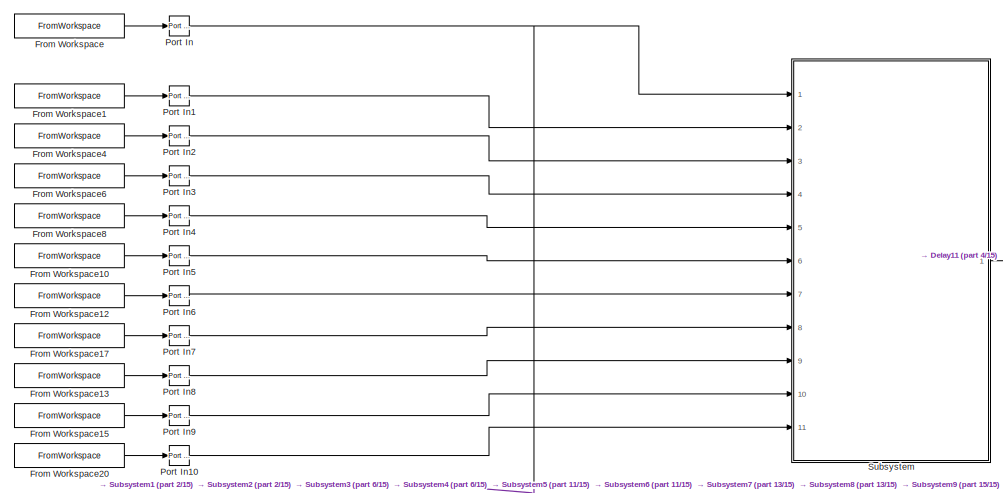
[diagram: root canvas - part 1/15, top left region]
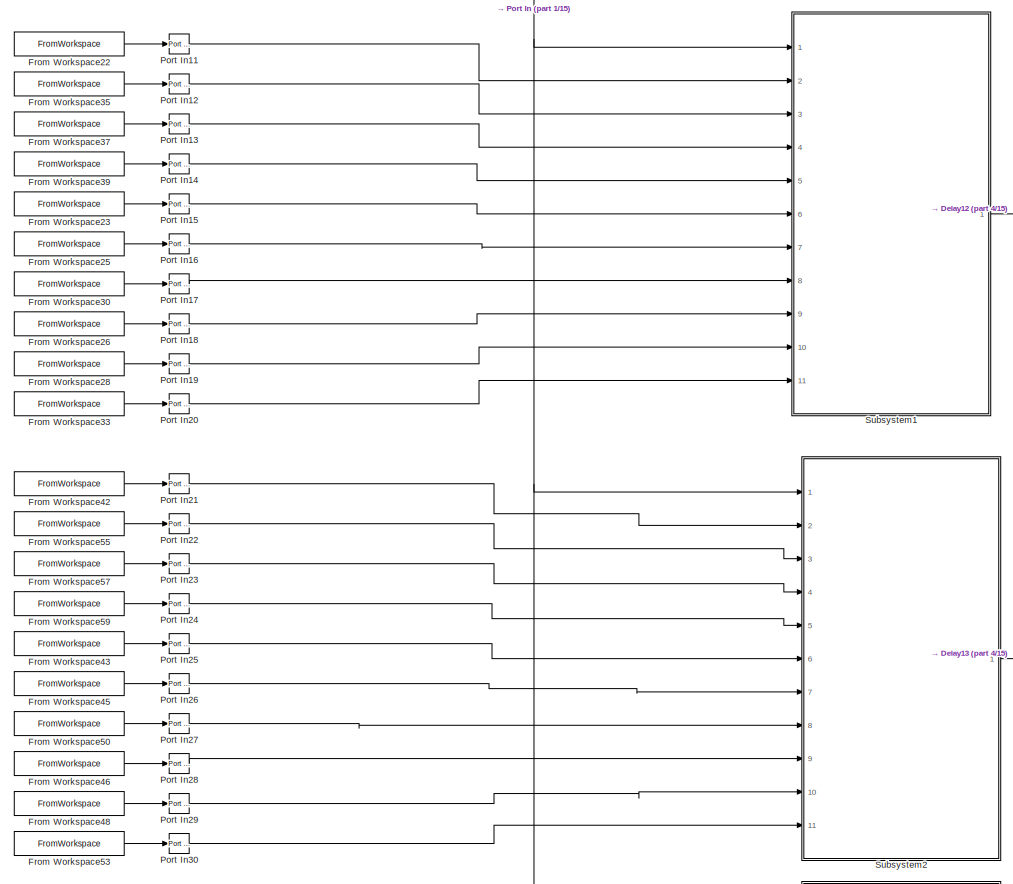
[diagram: root canvas - part 2/15, top left region]
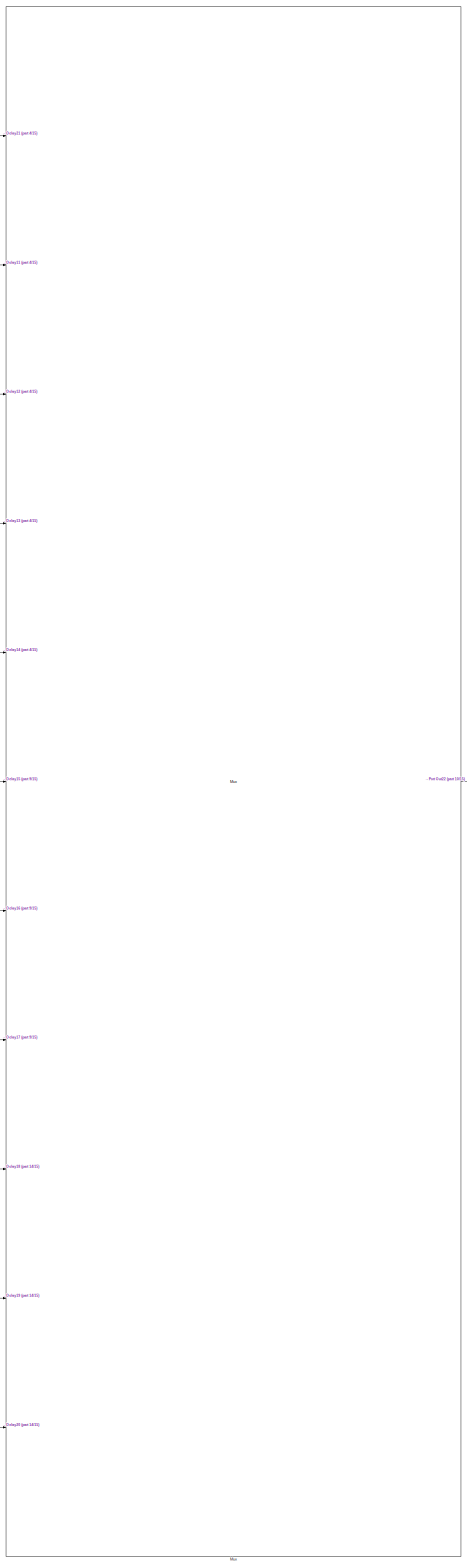
[diagram: root canvas - part 3/15, center side, full height]
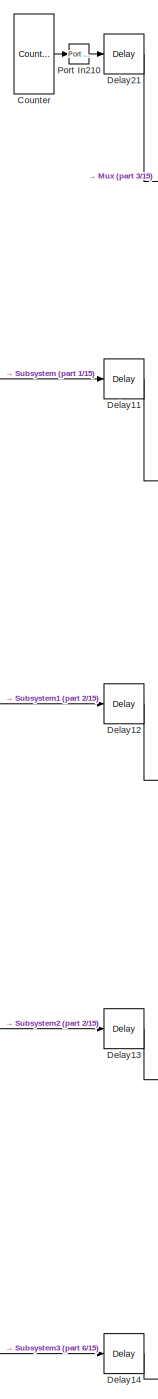
[diagram: root canvas - part 4/15, top center region]
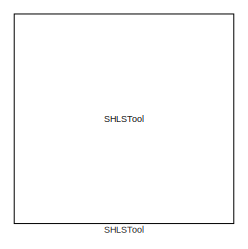
[diagram: root canvas - part 5/15, top right region]
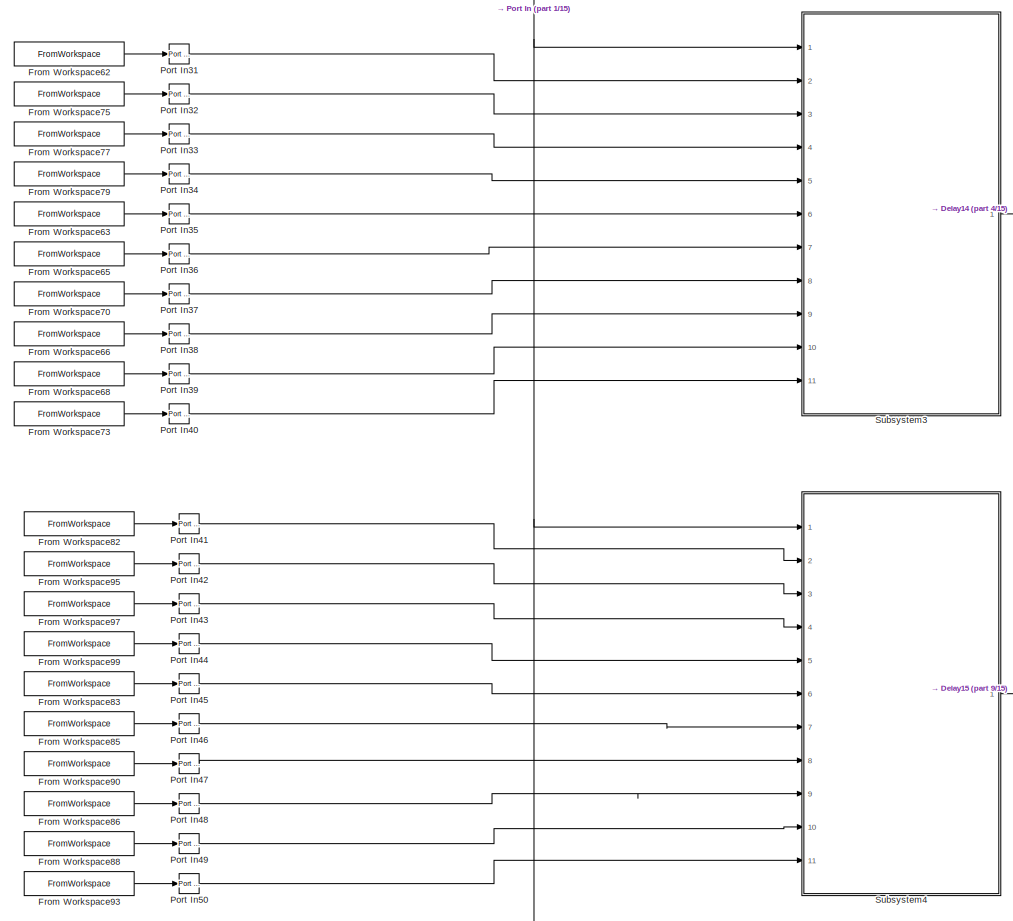
[diagram: root canvas - part 6/15, middle left region]
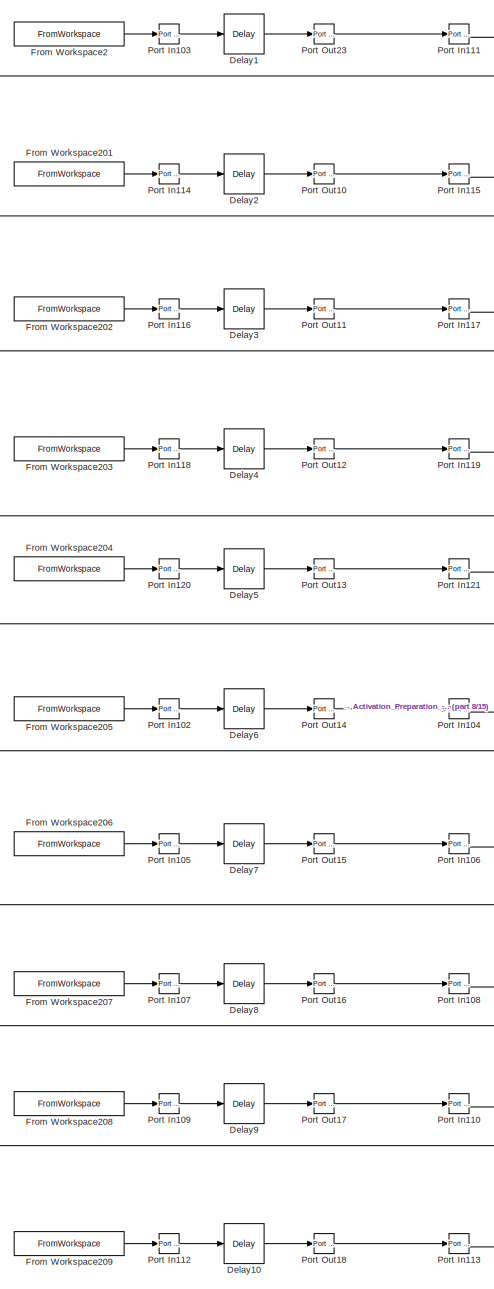
[diagram: root canvas - part 7/15, middle right region]
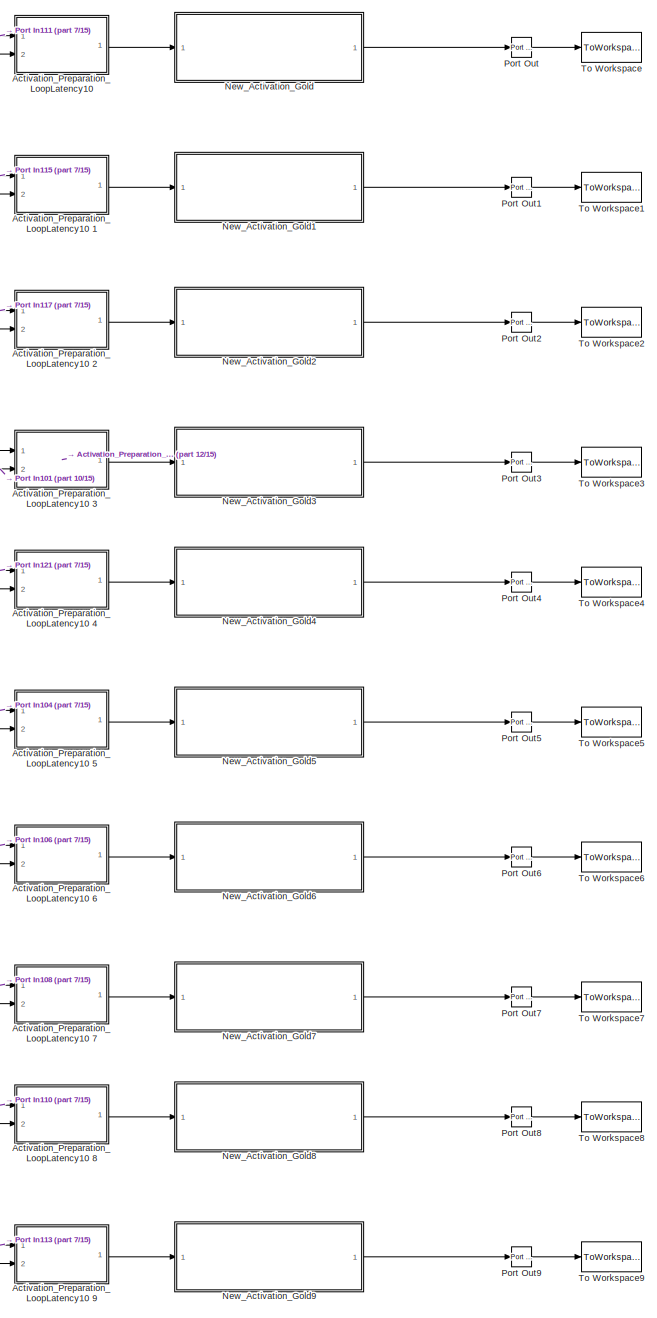
[diagram: root canvas - part 8/15, middle right region]
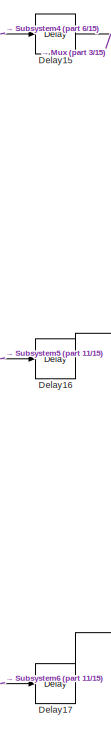
[diagram: root canvas - part 9/15, central region]
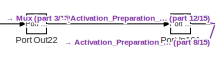
[diagram: root canvas - part 10/15, central region]
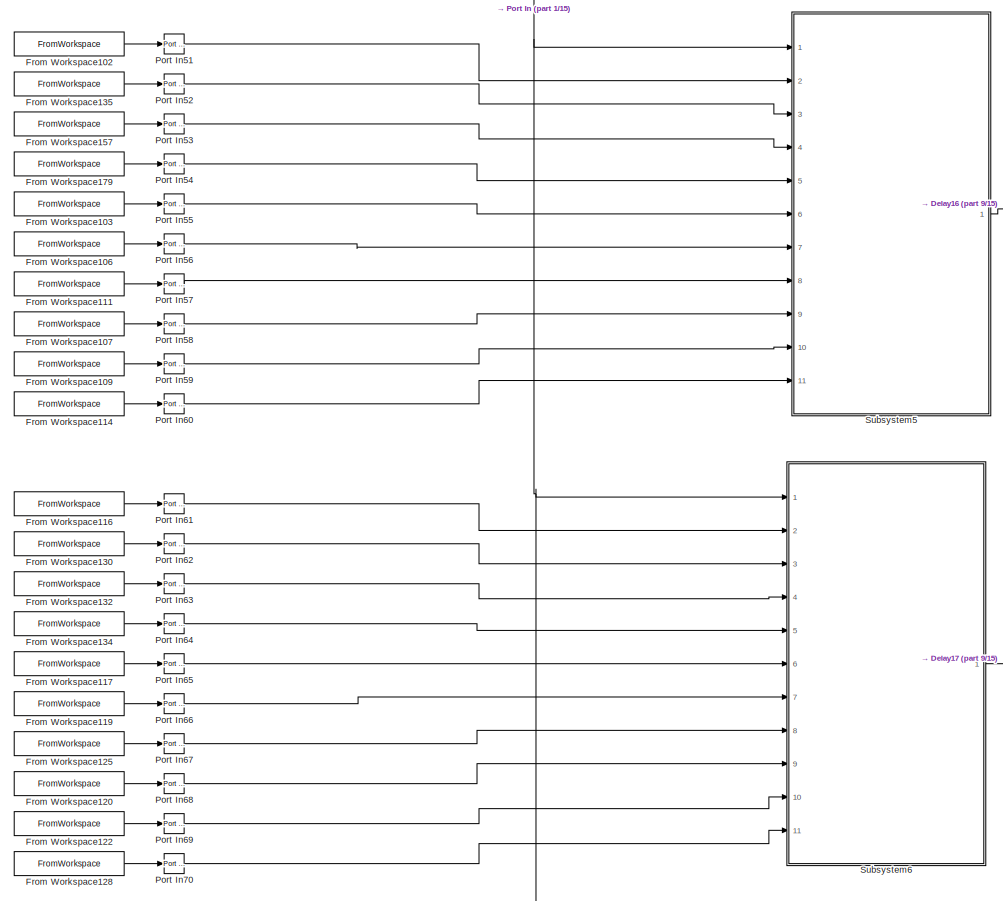
[diagram: root canvas - part 11/15, middle left region]
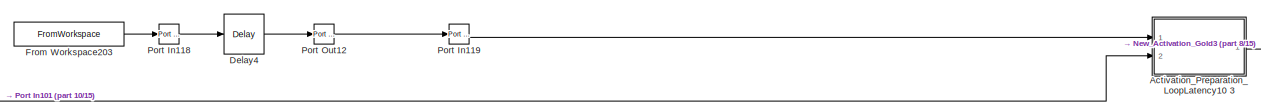
[diagram: root canvas - part 12/15, middle right region]
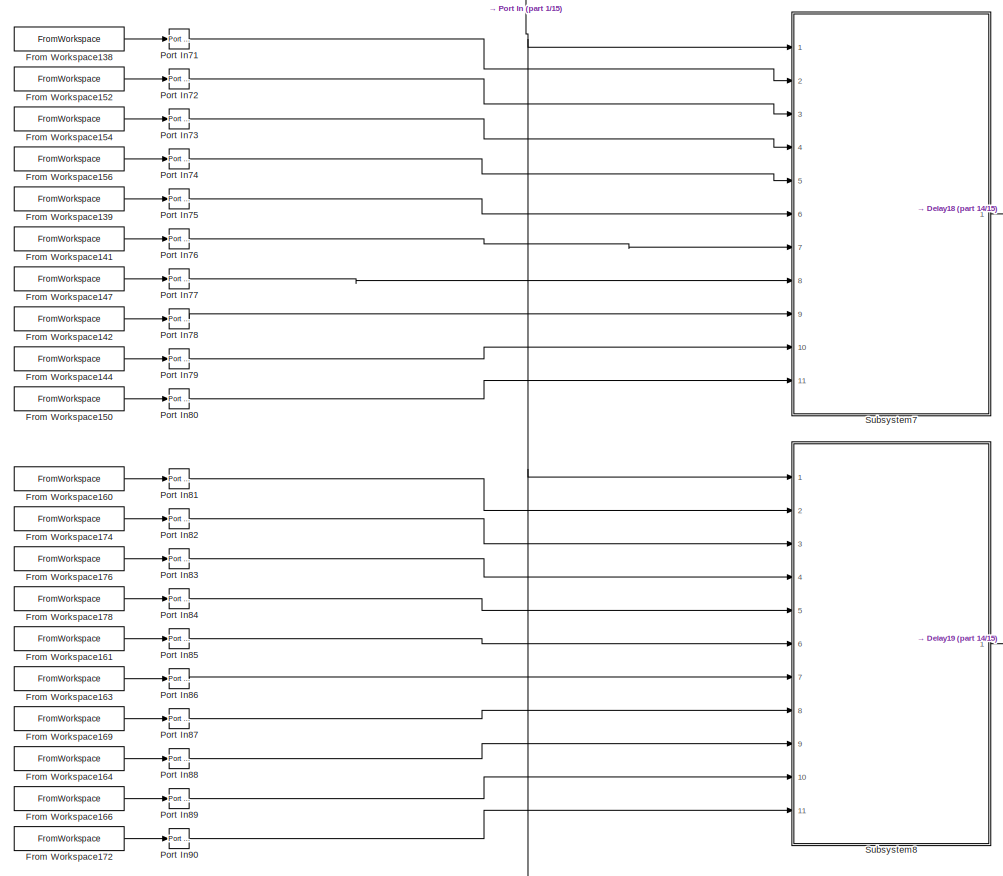
[diagram: root canvas - part 13/15, bottom left region]
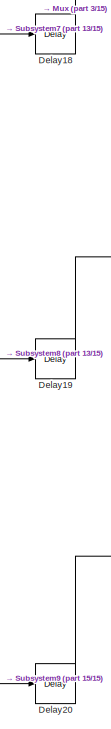
[diagram: root canvas - part 14/15, bottom center region]
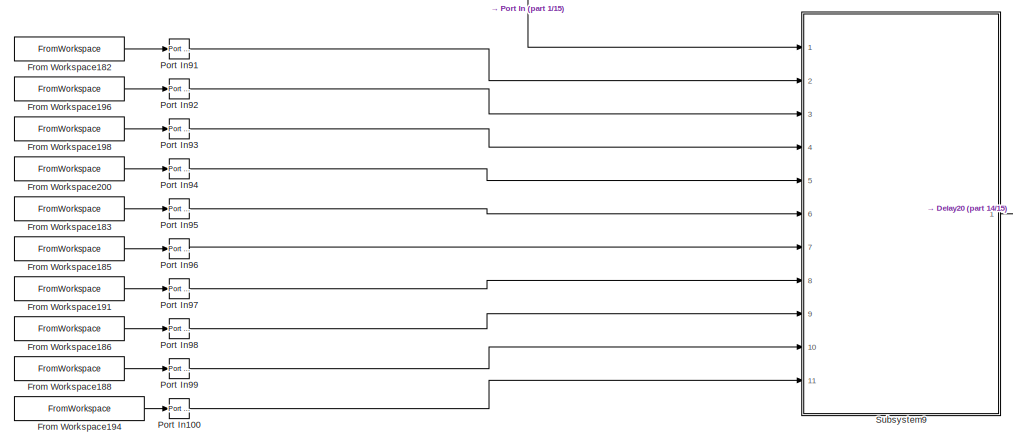
[diagram: root canvas - part 15/15, bottom left region]
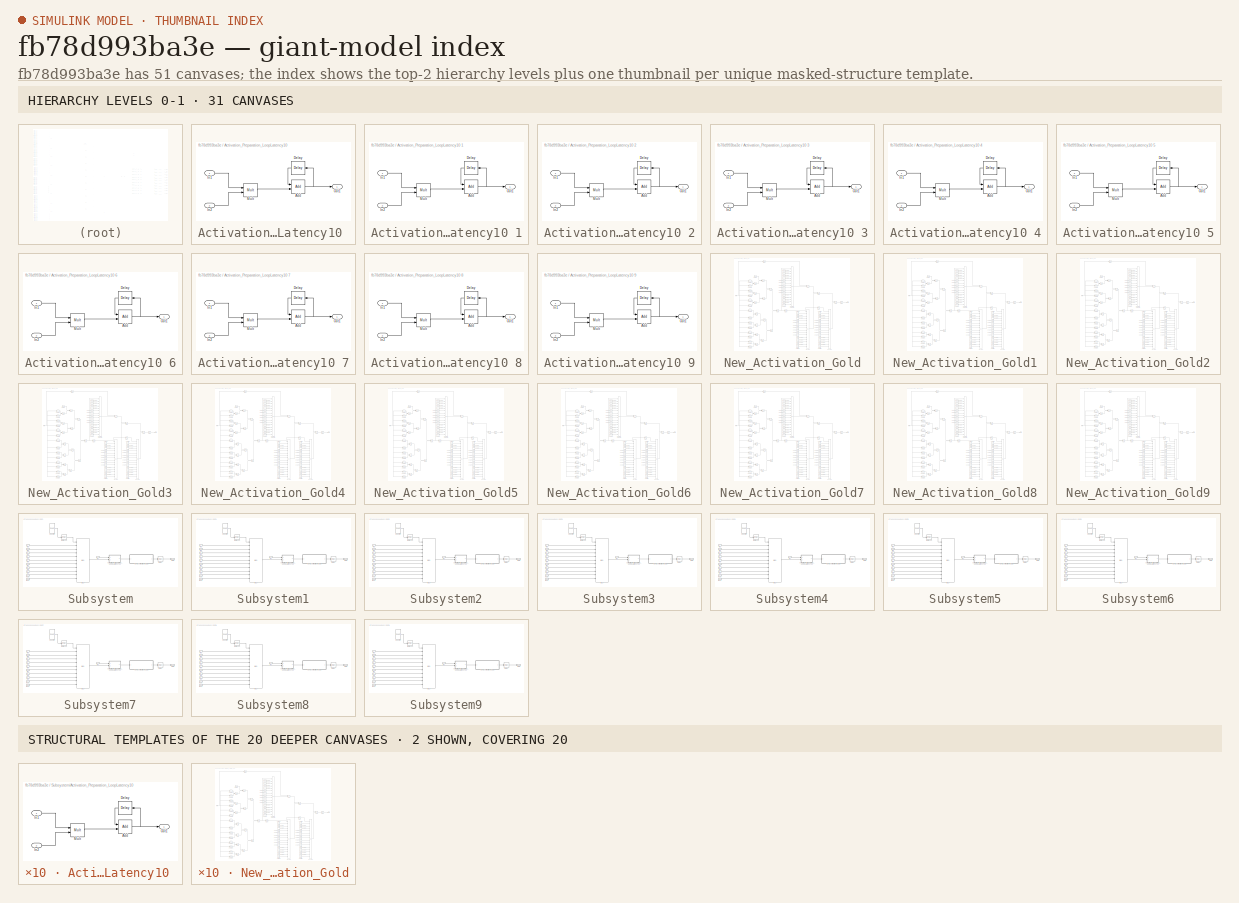
[diagram: thumbnail index - top-2 hierarchy levels (31 canvases) + 2 structural-template representatives of the remaining 20 canvases]
MODEL slx_fb78d993ba3e
KIND model
CONFIG AbsTol = auto
CONFIG FixedStep = auto
CONFIG MaxStep = auto
CONFIG MinStep = auto
CONFIG RelTol = 1e-3
CONFIG SampleTimeConstraint = Unconstrained
CONFIG Solver = FixedStepDiscrete
CONFIG SolverMode = SingleTasking
CONFIG SolverName = FixedStepDiscrete
CONFIG StartTime = 0.0
CONFIG StopTime = 1e-2
BLOCK [SubSystem] Activation_Preparation_LoopLatency10 
  Ports = [2, 1]
  RequestExecContextInheritance = off
  Variant = off
BLOCK [Reference] Activation_Preparation_LoopLatency10 /Add  REF=shlslibv1/Math Functions/Add
  Ports = [2, 1]
  SourceBlock = shlslibv1/Math Functions/Add
  SourceType = Synphony Model Compiler Add
BLOCK [Reference] Activation_Preparation_LoopLatency10 /Delay  REF=shlslibv1/Memories/Delay
  Ports = [1, 1]
  SourceBlock = shlslibv1/Memories/Delay
  SourceType = Synphony Model Compiler Delay
BLOCK [Inport] Activation_Preparation_LoopLatency10 /In1
  IconDisplay = Port number
BLOCK [Inport] Activation_Preparation_LoopLatency10 /In2
  IconDisplay = Port number
  Port = 2
BLOCK [Reference] Activation_Preparation_LoopLatency10 /Mult  REF=shlslibv1/Math Functions/Mult
  Ports = [2, 1]
  SourceBlock = shlslibv1/Math Functions/Mult
  SourceType = Synphony Model Compiler Mult
BLOCK [Outport] Activation_Preparation_LoopLatency10 /Out1
  IconDisplay = Port number
BLOCK [SubSystem] Activation_Preparation_LoopLatency10 1
  Ports = [2, 1]
  RequestExecContextInheritance = off
  Variant = off
BLOCK [Reference] Activation_Preparation_LoopLatency10 1/Add  REF=shlslibv1/Math Functions/Add
  Ports = [2, 1]
  SourceBlock = shlslibv1/Math Functions/Add
  SourceType = Synphony Model Compiler Add
BLOCK [Reference] Activation_Preparation_LoopLatency10 1/Delay  REF=shlslibv1/Memories/Delay
  Ports = [1, 1]
  SourceBlock = shlslibv1/Memories/Delay
  SourceType = Synphony Model Compiler Delay
BLOCK [Inport] Activation_Preparation_LoopLatency10 1/In1
  IconDisplay = Port number
BLOCK [Inport] Activation_Preparation_LoopLatency10 1/In2
  IconDisplay = Port number
  Port = 2
BLOCK [Reference] Activation_Preparation_LoopLatency10 1/Mult  REF=shlslibv1/Math Functions/Mult
  Ports = [2, 1]
  SourceBlock = shlslibv1/Math Functions/Mult
  SourceType = Synphony Model Compiler Mult
BLOCK [Outport] Activation_Preparation_LoopLatency10 1/Out1
  IconDisplay = Port number
BLOCK [SubSystem] Activation_Preparation_LoopLatency10 2
  Ports = [2, 1]
  RequestExecContextInheritance = off
  Variant = off
BLOCK [Reference] Activation_Preparation_LoopLatency10 2/Add  REF=shlslibv1/Math Functions/Add
  Ports = [2, 1]
  SourceBlock = shlslibv1/Math Functions/Add
  SourceType = Synphony Model Compiler Add
BLOCK [Reference] Activation_Preparation_LoopLatency10 2/Delay  REF=shlslibv1/Memories/Delay
  Ports = [1, 1]
  SourceBlock = shlslibv1/Memories/Delay
  SourceType = Synphony Model Compiler Delay
BLOCK [Inport] Activation_Preparation_LoopLatency10 2/In1
  IconDisplay = Port number
BLOCK [Inport] Activation_Preparation_LoopLatency10 2/In2
  IconDisplay = Port number
  Port = 2
BLOCK [Reference] Activation_Preparation_LoopLatency10 2/Mult  REF=shlslibv1/Math Functions/Mult
  Ports = [2, 1]
  SourceBlock = shlslibv1/Math Functions/Mult
  SourceType = Synphony Model Compiler Mult
BLOCK [Outport] Activation_Preparation_LoopLatency10 2/Out1
  IconDisplay = Port number
BLOCK [SubSystem] Activation_Preparation_LoopLatency10 3
  Ports = [2, 1]
  RequestExecContextInheritance = off
  Variant = off
BLOCK [Reference] Activation_Preparation_LoopLatency10 3/Add  REF=shlslibv1/Math Functions/Add
  Ports = [2, 1]
  SourceBlock = shlslibv1/Math Functions/Add
  SourceType = Synphony Model Compiler Add
BLOCK [Reference] Activation_Preparation_LoopLatency10 3/Delay  REF=shlslibv1/Memories/Delay
  Ports = [1, 1]
  SourceBlock = shlslibv1/Memories/Delay
  SourceType = Synphony Model Compiler Delay
BLOCK [Inport] Activation_Preparation_LoopLatency10 3/In1
  IconDisplay = Port number
BLOCK [Inport] Activation_Preparation_LoopLatency10 3/In2
  IconDisplay = Port number
  Port = 2
BLOCK [Reference] Activation_Preparation_LoopLatency10 3/Mult  REF=shlslibv1/Math Functions/Mult
  Ports = [2, 1]
  SourceBlock = shlslibv1/Math Functions/Mult
  SourceType = Synphony Model Compiler Mult
BLOCK [Outport] Activation_Preparation_LoopLatency10 3/Out1
  IconDisplay = Port number
BLOCK [SubSystem] Activation_Preparation_LoopLatency10 4
  Ports = [2, 1]
  RequestExecContextInheritance = off
  Variant = off
BLOCK [Reference] Activation_Preparation_LoopLatency10 4/Add  REF=shlslibv1/Math Functions/Add
  Ports = [2, 1]
  SourceBlock = shlslibv1/Math Functions/Add
  SourceType = Synphony Model Compiler Add
BLOCK [Reference] Activation_Preparation_LoopLatency10 4/Delay  REF=shlslibv1/Memories/Delay
  Ports = [1, 1]
  SourceBlock = shlslibv1/Memories/Delay
  SourceType = Synphony Model Compiler Delay
BLOCK [Inport] Activation_Preparation_LoopLatency10 4/In1
  IconDisplay = Port number
BLOCK [Inport] Activation_Preparation_LoopLatency10 4/In2
  IconDisplay = Port number
  Port = 2
BLOCK [Reference] Activation_Preparation_LoopLatency10 4/Mult  REF=shlslibv1/Math Functions/Mult
  Ports = [2, 1]
  SourceBlock = shlslibv1/Math Functions/Mult
  SourceType = Synphony Model Compiler Mult
BLOCK [Outport] Activation_Preparation_LoopLatency10 4/Out1
  IconDisplay = Port number
BLOCK [SubSystem] Activation_Preparation_LoopLatency10 5
  Ports = [2, 1]
  RequestExecContextInheritance = off
  Variant = off
BLOCK [Reference] Activation_Preparation_LoopLatency10 5/Add  REF=shlslibv1/Math Functions/Add
  Ports = [2, 1]
  SourceBlock = shlslibv1/Math Functions/Add
  SourceType = Synphony Model Compiler Add
BLOCK [Reference] Activation_Preparation_LoopLatency10 5/Delay  REF=shlslibv1/Memories/Delay
  Ports = [1, 1]
  SourceBlock = shlslibv1/Memories/Delay
  SourceType = Synphony Model Compiler Delay
BLOCK [Inport] Activation_Preparation_LoopLatency10 5/In1
  IconDisplay = Port number
BLOCK [Inport] Activation_Preparation_LoopLatency10 5/In2
  IconDisplay = Port number
  Port = 2
BLOCK [Reference] Activation_Preparation_LoopLatency10 5/Mult  REF=shlslibv1/Math Functions/Mult
  Ports = [2, 1]
  SourceBlock = shlslibv1/Math Functions/Mult
  SourceType = Synphony Model Compiler Mult
BLOCK [Outport] Activation_Preparation_LoopLatency10 5/Out1
  IconDisplay = Port number
BLOCK [SubSystem] Activation_Preparation_LoopLatency10 6
  Ports = [2, 1]
  RequestExecContextInheritance = off
  Variant = off
BLOCK [Reference] Activation_Preparation_LoopLatency10 6/Add  REF=shlslibv1/Math Functions/Add
  Ports = [2, 1]
  SourceBlock = shlslibv1/Math Functions/Add
  SourceType = Synphony Model Compiler Add
BLOCK [Reference] Activation_Preparation_LoopLatency10 6/Delay  REF=shlslibv1/Memories/Delay
  Ports = [1, 1]
  SourceBlock = shlslibv1/Memories/Delay
  SourceType = Synphony Model Compiler Delay
BLOCK [Inport] Activation_Preparation_LoopLatency10 6/In1
  IconDisplay = Port number
BLOCK [Inport] Activation_Preparation_LoopLatency10 6/In2
  IconDisplay = Port number
  Port = 2
BLOCK [Reference] Activation_Preparation_LoopLatency10 6/Mult  REF=shlslibv1/Math Functions/Mult
  Ports = [2, 1]
  SourceBlock = shlslibv1/Math Functions/Mult
  SourceType = Synphony Model Compiler Mult
BLOCK [Outport] Activation_Preparation_LoopLatency10 6/Out1
  IconDisplay = Port number
BLOCK [SubSystem] Activation_Preparation_LoopLatency10 7
  Ports = [2, 1]
  RequestExecContextInheritance = off
  Variant = off
BLOCK [Reference] Activation_Preparation_LoopLatency10 7/Add  REF=shlslibv1/Math Functions/Add
  Ports = [2, 1]
  SourceBlock = shlslibv1/Math Functions/Add
  SourceType = Synphony Model Compiler Add
BLOCK [Reference] Activation_Preparation_LoopLatency10 7/Delay  REF=shlslibv1/Memories/Delay
  Ports = [1, 1]
  SourceBlock = shlslibv1/Memories/Delay
  SourceType = Synphony Model Compiler Delay
BLOCK [Inport] Activation_Preparation_LoopLatency10 7/In1
  IconDisplay = Port number
BLOCK [Inport] Activation_Preparation_LoopLatency10 7/In2
  IconDisplay = Port number
  Port = 2
BLOCK [Reference] Activation_Preparation_LoopLatency10 7/Mult  REF=shlslibv1/Math Functions/Mult
  Ports = [2, 1]
  SourceBlock = shlslibv1/Math Functions/Mult
  SourceType = Synphony Model Compiler Mult
BLOCK [Outport] Activation_Preparation_LoopLatency10 7/Out1
  IconDisplay = Port number
BLOCK [SubSystem] Activation_Preparation_LoopLatency10 8
  Ports = [2, 1]
  RequestExecContextInheritance = off
  Variant = off
BLOCK [Reference] Activation_Preparation_LoopLatency10 8/Add  REF=shlslibv1/Math Functions/Add
  Ports = [2, 1]
  SourceBlock = shlslibv1/Math Functions/Add
  SourceType = Synphony Model Compiler Add
BLOCK [Reference] Activation_Preparation_LoopLatency10 8/Delay  REF=shlslibv1/Memories/Delay
  Ports = [1, 1]
  SourceBlock = shlslibv1/Memories/Delay
  SourceType = Synphony Model Compiler Delay
BLOCK [Inport] Activation_Preparation_LoopLatency10 8/In1
  IconDisplay = Port number
BLOCK [Inport] Activation_Preparation_LoopLatency10 8/In2
  IconDisplay = Port number
  Port = 2
BLOCK [Reference] Activation_Preparation_LoopLatency10 8/Mult  REF=shlslibv1/Math Functions/Mult
  Ports = [2, 1]
  SourceBlock = shlslibv1/Math Functions/Mult
  SourceType = Synphony Model Compiler Mult
BLOCK [Outport] Activation_Preparation_LoopLatency10 8/Out1
  IconDisplay = Port number
BLOCK [SubSystem] Activation_Preparation_LoopLatency10 9
  Ports = [2, 1]
  RequestExecContextInheritance = off
  Variant = off
BLOCK [Reference] Activation_Preparation_LoopLatency10 9/Add  REF=shlslibv1/Math Functions/Add
  Ports = [2, 1]
  SourceBlock = shlslibv1/Math Functions/Add
  SourceType = Synphony Model Compiler Add
BLOCK [Reference] Activation_Preparation_LoopLatency10 9/Delay  REF=shlslibv1/Memories/Delay
  Ports = [1, 1]
  SourceBlock = shlslibv1/Memories/Delay
  SourceType = Synphony Model Compiler Delay
BLOCK [Inport] Activation_Preparation_LoopLatency10 9/In1
  IconDisplay = Port number
BLOCK [Inport] Activation_Preparation_LoopLatency10 9/In2
  IconDisplay = Port number
  Port = 2
BLOCK [Reference] Activation_Preparation_LoopLatency10 9/Mult  REF=shlslibv1/Math Functions/Mult
  Ports = [2, 1]
  SourceBlock = shlslibv1/Math Functions/Mult
  SourceType = Synphony Model Compiler Mult
BLOCK [Outport] Activation_Preparation_LoopLatency10 9/Out1
  IconDisplay = Port number
BLOCK [Reference] Counter  REF=shlslibv1/Sources/Counter
  Ports = [0, 1]
  SourceBlock = shlslibv1/Sources/Counter
  SourceType = Synphony Model Compiler Counter
BLOCK [Reference] Delay1  REF=shlslibv1/Memories/Delay
  Ports = [1, 1]
  SourceBlock = shlslibv1/Memories/Delay
  SourceType = Synphony Model Compiler Delay
BLOCK [Reference] Delay10  REF=shlslibv1/Memories/Delay
  Ports = [1, 1]
  SourceBlock = shlslibv1/Memories/Delay
  SourceType = Synphony Model Compiler Delay
BLOCK [Reference] Delay11  REF=shlslibv1/Memories/Delay
  Ports = [1, 1]
  SourceBlock = shlslibv1/Memories/Delay
  SourceType = Synphony Model Compiler Delay
BLOCK [Reference] Delay12  REF=shlslibv1/Memories/Delay
  Ports = [1, 1]
  SourceBlock = shlslibv1/Memories/Delay
  SourceType = Synphony Model Compiler Delay
BLOCK [Reference] Delay13  REF=shlslibv1/Memories/Delay
  Ports = [1, 1]
  SourceBlock = shlslibv1/Memories/Delay
  SourceType = Synphony Model Compiler Delay
BLOCK [Reference] Delay14  REF=shlslibv1/Memories/Delay
  Ports = [1, 1]
  SourceBlock = shlslibv1/Memories/Delay
  SourceType = Synphony Model Compiler Delay
BLOCK [Reference] Delay15  REF=shlslibv1/Memories/Delay
  Ports = [1, 1]
  SourceBlock = shlslibv1/Memories/Delay
  SourceType = Synphony Model Compiler Delay
BLOCK [Reference] Delay16  REF=shlslibv1/Memories/Delay
  Ports = [1, 1]
  SourceBlock = shlslibv1/Memories/Delay
  SourceType = Synphony Model Compiler Delay
BLOCK [Reference] Delay17  REF=shlslibv1/Memories/Delay
  Ports = [1, 1]
  SourceBlock = shlslibv1/Memories/Delay
  SourceType = Synphony Model Compiler Delay
BLOCK [Reference] Delay18  REF=shlslibv1/Memories/Delay
  Ports = [1, 1]
  SourceBlock = shlslibv1/Memories/Delay
  SourceType = Synphony Model Compiler Delay
BLOCK [Reference] Delay19  REF=shlslibv1/Memories/Delay
  Ports = [1, 1]
  SourceBlock = shlslibv1/Memories/Delay
  SourceType = Synphony Model Compiler Delay
BLOCK [Reference] Delay2  REF=shlslibv1/Memories/Delay
  Ports = [1, 1]
  SourceBlock = shlslibv1/Memories/Delay
  SourceType = Synphony Model Compiler Delay
BLOCK [Reference] Delay20  REF=shlslibv1/Memories/Delay
  Ports = [1, 1]
  SourceBlock = shlslibv1/Memories/Delay
  SourceType = Synphony Model Compiler Delay
BLOCK [Reference] Delay21  REF=shlslibv1/Memories/Delay
  Ports = [1, 1]
  SourceBlock = shlslibv1/Memories/Delay
  SourceType = Synphony Model Compiler Delay
BLOCK [Reference] Delay3  REF=shlslibv1/Memories/Delay
  Ports = [1, 1]
  SourceBlock = shlslibv1/Memories/Delay
  SourceType = Synphony Model Compiler Delay
BLOCK [Reference] Delay4  REF=shlslibv1/Memories/Delay
  Ports = [1, 1]
  SourceBlock = shlslibv1/Memories/Delay
  SourceType = Synphony Model Compiler Delay
BLOCK [Reference] Delay5  REF=shlslibv1/Memories/Delay
  Ports = [1, 1]
  SourceBlock = shlslibv1/Memories/Delay
  SourceType = Synphony Model Compiler Delay
BLOCK [Reference] Delay6  REF=shlslibv1/Memories/Delay
  Ports = [1, 1]
  SourceBlock = shlslibv1/Memories/Delay
  SourceType = Synphony Model Compiler Delay
BLOCK [Reference] Delay7  REF=shlslibv1/Memories/Delay
  Ports = [1, 1]
  SourceBlock = shlslibv1/Memories/Delay
  SourceType = Synphony Model Compiler Delay
BLOCK [Reference] Delay8  REF=shlslibv1/Memories/Delay
  Ports = [1, 1]
  SourceBlock = shlslibv1/Memories/Delay
  SourceType = Synphony Model Compiler Delay
BLOCK [Reference] Delay9  REF=shlslibv1/Memories/Delay
  Ports = [1, 1]
  SourceBlock = shlslibv1/Memories/Delay
  SourceType = Synphony Model Compiler Delay
BLOCK [FromWorkspace] From Workspace
  OutputAfterFinalValue = Setting to zero
  SampleTime = input_sample_time
  VariableName = Input_Layer
  ZeroCross = on
BLOCK [FromWorkspace] From Workspace1
  OutputAfterFinalValue = Setting to zero
  SampleTime = input_sample_time
  VariableName = Hidden_Layer_Weight1
  ZeroCross = on
BLOCK [FromWorkspace] From Workspace10
  OutputAfterFinalValue = Setting to zero
  SampleTime = input_sample_time
  VariableName = Hidden_Layer_Weight5
  ZeroCross = on
BLOCK [FromWorkspace] From Workspace102
  OutputAfterFinalValue = Setting to zero
  SampleTime = input_sample_time
  VariableName = Hidden_Layer_Weight51
  ZeroCross = on
BLOCK [FromWorkspace] From Workspace103
  OutputAfterFinalValue = Setting to zero
  SampleTime = input_sample_time
  VariableName = Hidden_Layer_Weight55
  ZeroCross = on
BLOCK [FromWorkspace] From Workspace106
  OutputAfterFinalValue = Setting to zero
  SampleTime = input_sample_time
  VariableName = Hidden_Layer_Weight56
  ZeroCross = on
BLOCK [FromWorkspace] From Workspace107
  OutputAfterFinalValue = Setting to zero
  SampleTime = input_sample_time
  VariableName = Hidden_Layer_Weight58
  ZeroCross = on
BLOCK [FromWorkspace] From Workspace109
  OutputAfterFinalValue = Setting to zero
  SampleTime = input_sample_time
  VariableName = Hidden_Layer_Weight59
  ZeroCross = on
BLOCK [FromWorkspace] From Workspace111
  OutputAfterFinalValue = Setting to zero
  SampleTime = input_sample_time
  VariableName = Hidden_Layer_Weight57
  ZeroCross = on
BLOCK [FromWorkspace] From Workspace114
  OutputAfterFinalValue = Setting to zero
  SampleTime = input_sample_time
  VariableName = Hidden_Layer_Weight60
  ZeroCross = on
BLOCK [FromWorkspace] From Workspace116
  OutputAfterFinalValue = Setting to zero
  SampleTime = input_sample_time
  VariableName = Hidden_Layer_Weight61
  ZeroCross = on
BLOCK [FromWorkspace] From Workspace117
  OutputAfterFinalValue = Setting to zero
  SampleTime = input_sample_time
  VariableName = Hidden_Layer_Weight65
  ZeroCross = on
BLOCK [FromWorkspace] From Workspace119
  OutputAfterFinalValue = Setting to zero
  SampleTime = input_sample_time
  VariableName = Hidden_Layer_Weight66
  ZeroCross = on
BLOCK [FromWorkspace] From Workspace12
  OutputAfterFinalValue = Setting to zero
  SampleTime = input_sample_time
  VariableName = Hidden_Layer_Weight6
  ZeroCross = on
BLOCK [FromWorkspace] From Workspace120
  OutputAfterFinalValue = Setting to zero
  SampleTime = input_sample_time
  VariableName = Hidden_Layer_Weight68
  ZeroCross = on
BLOCK [FromWorkspace] From Workspace122
  OutputAfterFinalValue = Setting to zero
  SampleTime = input_sample_time
  VariableName = Hidden_Layer_Weight69
  ZeroCross = on
BLOCK [FromWorkspace] From Workspace125
  OutputAfterFinalValue = Setting to zero
  SampleTime = input_sample_time
  VariableName = Hidden_Layer_Weight67
  ZeroCross = on
BLOCK [FromWorkspace] From Workspace128
  OutputAfterFinalValue = Setting to zero
  SampleTime = input_sample_time
  VariableName = Hidden_Layer_Weight70
  ZeroCross = on
BLOCK [FromWorkspace] From Workspace13
  OutputAfterFinalValue = Setting to zero
  SampleTime = input_sample_time
  VariableName = Hidden_Layer_Weight8
  ZeroCross = on
BLOCK [FromWorkspace] From Workspace130
  OutputAfterFinalValue = Setting to zero
  SampleTime = input_sample_time
  VariableName = Hidden_Layer_Weight62
  ZeroCross = on
BLOCK [FromWorkspace] From Workspace132
  OutputAfterFinalValue = Setting to zero
  SampleTime = input_sample_time
  VariableName = Hidden_Layer_Weight63
  ZeroCross = on
BLOCK [FromWorkspace] From Workspace134
  OutputAfterFinalValue = Setting to zero
  SampleTime = input_sample_time
  VariableName = Hidden_Layer_Weight64
  ZeroCross = on
BLOCK [FromWorkspace] From Workspace135
  OutputAfterFinalValue = Setting to zero
  SampleTime = input_sample_time
  VariableName = Hidden_Layer_Weight52
  ZeroCross = on
BLOCK [FromWorkspace] From Workspace138
  OutputAfterFinalValue = Setting to zero
  SampleTime = input_sample_time
  VariableName = Hidden_Layer_Weight71
  ZeroCross = on
BLOCK [FromWorkspace] From Workspace139
  OutputAfterFinalValue = Setting to zero
  SampleTime = input_sample_time
  VariableName = Hidden_Layer_Weight75
  ZeroCross = on
BLOCK [FromWorkspace] From Workspace141
  OutputAfterFinalValue = Setting to zero
  SampleTime = input_sample_time
  VariableName = Hidden_Layer_Weight76
  ZeroCross = on
BLOCK [FromWorkspace] From Workspace142
  OutputAfterFinalValue = Setting to zero
  SampleTime = input_sample_time
  VariableName = Hidden_Layer_Weight78
  ZeroCross = on
BLOCK [FromWorkspace] From Workspace144
  OutputAfterFinalValue = Setting to zero
  SampleTime = input_sample_time
  VariableName = Hidden_Layer_Weight79
  ZeroCross = on
BLOCK [FromWorkspace] From Workspace147
  OutputAfterFinalValue = Setting to zero
  SampleTime = input_sample_time
  VariableName = Hidden_Layer_Weight77
  ZeroCross = on
BLOCK [FromWorkspace] From Workspace15
  OutputAfterFinalValue = Setting to zero
  SampleTime = input_sample_time
  VariableName = Hidden_Layer_Weight9
  ZeroCross = on
BLOCK [FromWorkspace] From Workspace150
  OutputAfterFinalValue = Setting to zero
  SampleTime = input_sample_time
  VariableName = Hidden_Layer_Weight80
  ZeroCross = on
BLOCK [FromWorkspace] From Workspace152
  OutputAfterFinalValue = Setting to zero
  SampleTime = input_sample_time
  VariableName = Hidden_Layer_Weight72
  ZeroCross = on
BLOCK [FromWorkspace] From Workspace154
  OutputAfterFinalValue = Setting to zero
  SampleTime = input_sample_time
  VariableName = Hidden_Layer_Weight73
  ZeroCross = on
BLOCK [FromWorkspace] From Workspace156
  OutputAfterFinalValue = Setting to zero
  SampleTime = input_sample_time
  VariableName = Hidden_Layer_Weight74
  ZeroCross = on
BLOCK [FromWorkspace] From Workspace157
  OutputAfterFinalValue = Setting to zero
  SampleTime = input_sample_time
  VariableName = Hidden_Layer_Weight53
  ZeroCross = on
BLOCK [FromWorkspace] From Workspace160
  OutputAfterFinalValue = Setting to zero
  SampleTime = input_sample_time
  VariableName = Hidden_Layer_Weight81
  ZeroCross = on
BLOCK [FromWorkspace] From Workspace161
  OutputAfterFinalValue = Setting to zero
  SampleTime = input_sample_time
  VariableName = Hidden_Layer_Weight85
  ZeroCross = on
BLOCK [FromWorkspace] From Workspace163
  OutputAfterFinalValue = Setting to zero
  SampleTime = input_sample_time
  VariableName = Hidden_Layer_Weight86
  ZeroCross = on
BLOCK [FromWorkspace] From Workspace164
  OutputAfterFinalValue = Setting to zero
  SampleTime = input_sample_time
  VariableName = Hidden_Layer_Weight88
  ZeroCross = on
BLOCK [FromWorkspace] From Workspace166
  OutputAfterFinalValue = Setting to zero
  SampleTime = input_sample_time
  VariableName = Hidden_Layer_Weight89
  ZeroCross = on
BLOCK [FromWorkspace] From Workspace169
  OutputAfterFinalValue = Setting to zero
  SampleTime = input_sample_time
  VariableName = Hidden_Layer_Weight87
  ZeroCross = on
BLOCK [FromWorkspace] From Workspace17
  OutputAfterFinalValue = Setting to zero
  SampleTime = input_sample_time
  VariableName = Hidden_Layer_Weight7
  ZeroCross = on
BLOCK [FromWorkspace] From Workspace172
  OutputAfterFinalValue = Setting to zero
  SampleTime = input_sample_time
  VariableName = Hidden_Layer_Weight90
  ZeroCross = on
BLOCK [FromWorkspace] From Workspace174
  OutputAfterFinalValue = Setting to zero
  SampleTime = input_sample_time
  VariableName = Hidden_Layer_Weight82
  ZeroCross = on
BLOCK [FromWorkspace] From Workspace176
  OutputAfterFinalValue = Setting to zero
  SampleTime = input_sample_time
  VariableName = Hidden_Layer_Weight83
  ZeroCross = on
BLOCK [FromWorkspace] From Workspace178
  OutputAfterFinalValue = Setting to zero
  SampleTime = input_sample_time
  VariableName = Hidden_Layer_Weight84
  ZeroCross = on
BLOCK [FromWorkspace] From Workspace179
  OutputAfterFinalValue = Setting to zero
  SampleTime = input_sample_time
  VariableName = Hidden_Layer_Weight54
  ZeroCross = on
BLOCK [FromWorkspace] From Workspace182
  OutputAfterFinalValue = Setting to zero
  SampleTime = input_sample_time
  VariableName = Hidden_Layer_Weight91
  ZeroCross = on
BLOCK [FromWorkspace] From Workspace183
  OutputAfterFinalValue = Setting to zero
  SampleTime = input_sample_time
  VariableName = Hidden_Layer_Weight95
  ZeroCross = on
BLOCK [FromWorkspace] From Workspace185
  OutputAfterFinalValue = Setting to zero
  SampleTime = input_sample_time
  VariableName = Hidden_Layer_Weight96
  ZeroCross = on
BLOCK [FromWorkspace] From Workspace186
  OutputAfterFinalValue = Setting to zero
  SampleTime = input_sample_time
  VariableName = Hidden_Layer_Weight98
  ZeroCross = on
BLOCK [FromWorkspace] From Workspace188
  OutputAfterFinalValue = Setting to zero
  SampleTime = input_sample_time
  VariableName = Hidden_Layer_Weight99
  ZeroCross = on
BLOCK [FromWorkspace] From Workspace191
  OutputAfterFinalValue = Setting to zero
  SampleTime = input_sample_time
  VariableName = Hidden_Layer_Weight97
  ZeroCross = on
BLOCK [FromWorkspace] From Workspace194
  OutputAfterFinalValue = Setting to zero
  SampleTime = input_sample_time
  VariableName = Hidden_Layer_Weight100
  ZeroCross = on
BLOCK [FromWorkspace] From Workspace196
  OutputAfterFinalValue = Setting to zero
  SampleTime = input_sample_time
  VariableName = Hidden_Layer_Weight92
  ZeroCross = on
BLOCK [FromWorkspace] From Workspace198
  OutputAfterFinalValue = Setting to zero
  SampleTime = input_sample_time
  VariableName = Hidden_Layer_Weight93
  ZeroCross = on
BLOCK [FromWorkspace] From Workspace2
  OutputAfterFinalValue = Setting to zero
  SampleTime = system_sample_time
  VariableName = Output_Layer_Weight1
  ZeroCross = on
BLOCK [FromWorkspace] From Workspace20
  OutputAfterFinalValue = Setting to zero
  SampleTime = input_sample_time
  VariableName = Hidden_Layer_Weight10
  ZeroCross = on
BLOCK [FromWorkspace] From Workspace200
  OutputAfterFinalValue = Setting to zero
  SampleTime = input_sample_time
  VariableName = Hidden_Layer_Weight94
  ZeroCross = on
BLOCK [FromWorkspace] From Workspace201
  OutputAfterFinalValue = Setting to zero
  SampleTime = system_sample_time
  VariableName = Output_Layer_Weight2
  ZeroCross = on
BLOCK [FromWorkspace] From Workspace202
  OutputAfterFinalValue = Setting to zero
  SampleTime = input_sample_time
  VariableName = Output_Layer_Weight3
  ZeroCross = on
BLOCK [FromWorkspace] From Workspace203
  OutputAfterFinalValue = Setting to zero
  SampleTime = system_sample_time
  VariableName = Output_Layer_Weight4
  ZeroCross = on
BLOCK [FromWorkspace] From Workspace204
  OutputAfterFinalValue = Setting to zero
  SampleTime = system_sample_time
  VariableName = Output_Layer_Weight5
  ZeroCross = on
BLOCK [FromWorkspace] From Workspace205
  OutputAfterFinalValue = Setting to zero
  SampleTime = system_sample_time
  VariableName = Output_Layer_Weight6
  ZeroCross = on
BLOCK [FromWorkspace] From Workspace206
  OutputAfterFinalValue = Setting to zero
  SampleTime = system_sample_time
  VariableName = Output_Layer_Weight7
  ZeroCross = on
BLOCK [FromWorkspace] From Workspace207
  OutputAfterFinalValue = Setting to zero
  SampleTime = system_sample_time
  VariableName = Output_Layer_Weight8
  ZeroCross = on
BLOCK [FromWorkspace] From Workspace208
  OutputAfterFinalValue = Setting to zero
  SampleTime = system_sample_time
  VariableName = Output_Layer_Weight9
  ZeroCross = on
BLOCK [FromWorkspace] From Workspace209
  OutputAfterFinalValue = Setting to zero
  SampleTime = input_sample_time
  VariableName = Output_Layer_Weight10
  ZeroCross = on
BLOCK [FromWorkspace] From Workspace22
  OutputAfterFinalValue = Setting to zero
  SampleTime = input_sample_time
  VariableName = Hidden_Layer_Weight11
  ZeroCross = on
BLOCK [FromWorkspace] From Workspace23
  OutputAfterFinalValue = Setting to zero
  SampleTime = input_sample_time
  VariableName = Hidden_Layer_Weight15
  ZeroCross = on
BLOCK [FromWorkspace] From Workspace25
  OutputAfterFinalValue = Setting to zero
  SampleTime = input_sample_time
  VariableName = Hidden_Layer_Weight16
  ZeroCross = on
BLOCK [FromWorkspace] From Workspace26
  OutputAfterFinalValue = Setting to zero
  SampleTime = input_sample_time
  VariableName = Hidden_Layer_Weight18
  ZeroCross = on
BLOCK [FromWorkspace] From Workspace28
  OutputAfterFinalValue = Setting to zero
  SampleTime = input_sample_time
  VariableName = Hidden_Layer_Weight19
  ZeroCross = on
BLOCK [FromWorkspace] From Workspace30
  OutputAfterFinalValue = Setting to zero
  SampleTime = input_sample_time
  VariableName = Hidden_Layer_Weight17
  ZeroCross = on
BLOCK [FromWorkspace] From Workspace33
  OutputAfterFinalValue = Setting to zero
  SampleTime = input_sample_time
  VariableName = Hidden_Layer_Weight20
  ZeroCross = on
BLOCK [FromWorkspace] From Workspace35
  OutputAfterFinalValue = Setting to zero
  SampleTime = input_sample_time
  VariableName = Hidden_Layer_Weight12
  ZeroCross = on
BLOCK [FromWorkspace] From Workspace37
  OutputAfterFinalValue = Setting to zero
  SampleTime = input_sample_time
  VariableName = Hidden_Layer_Weight13
  ZeroCross = on
BLOCK [FromWorkspace] From Workspace39
  OutputAfterFinalValue = Setting to zero
  SampleTime = input_sample_time
  VariableName = Hidden_Layer_Weight14
  ZeroCross = on
BLOCK [FromWorkspace] From Workspace4
  OutputAfterFinalValue = Setting to zero
  SampleTime = input_sample_time
  VariableName = Hidden_Layer_Weight2
  ZeroCross = on
BLOCK [FromWorkspace] From Workspace42
  OutputAfterFinalValue = Setting to zero
  SampleTime = input_sample_time
  VariableName = Hidden_Layer_Weight21
  ZeroCross = on
BLOCK [FromWorkspace] From Workspace43
  OutputAfterFinalValue = Setting to zero
  SampleTime = input_sample_time
  VariableName = Hidden_Layer_Weight25
  ZeroCross = on
BLOCK [FromWorkspace] From Workspace45
  OutputAfterFinalValue = Setting to zero
  SampleTime = input_sample_time
  VariableName = Hidden_Layer_Weight26
  ZeroCross = on
BLOCK [FromWorkspace] From Workspace46
  OutputAfterFinalValue = Setting to zero
  SampleTime = input_sample_time
  VariableName = Hidden_Layer_Weight28
  ZeroCross = on
BLOCK [FromWorkspace] From Workspace48
  OutputAfterFinalValue = Setting to zero
  SampleTime = input_sample_time
  VariableName = Hidden_Layer_Weight29
  ZeroCross = on
BLOCK [FromWorkspace] From Workspace50
  OutputAfterFinalValue = Setting to zero
  SampleTime = input_sample_time
  VariableName = Hidden_Layer_Weight27
  ZeroCross = on
BLOCK [FromWorkspace] From Workspace53
  OutputAfterFinalValue = Setting to zero
  SampleTime = input_sample_time
  VariableName = Hidden_Layer_Weight30
  ZeroCross = on
BLOCK [FromWorkspace] From Workspace55
  OutputAfterFinalValue = Setting to zero
  SampleTime = input_sample_time
  VariableName = Hidden_Layer_Weight22
  ZeroCross = on
BLOCK [FromWorkspace] From Workspace57
  OutputAfterFinalValue = Setting to zero
  SampleTime = input_sample_time
  VariableName = Hidden_Layer_Weight23
  ZeroCross = on
BLOCK [FromWorkspace] From Workspace59
  OutputAfterFinalValue = Setting to zero
  SampleTime = input_sample_time
  VariableName = Hidden_Layer_Weight24
  ZeroCross = on
BLOCK [FromWorkspace] From Workspace6
  OutputAfterFinalValue = Setting to zero
  SampleTime = input_sample_time
  VariableName = Hidden_Layer_Weight3
  ZeroCross = on
BLOCK [FromWorkspace] From Workspace62
  OutputAfterFinalValue = Setting to zero
  SampleTime = input_sample_time
  VariableName = Hidden_Layer_Weight31
  ZeroCross = on
BLOCK [FromWorkspace] From Workspace63
  OutputAfterFinalValue = Setting to zero
  SampleTime = input_sample_time
  VariableName = Hidden_Layer_Weight35
  ZeroCross = on
BLOCK [FromWorkspace] From Workspace65
  OutputAfterFinalValue = Setting to zero
  SampleTime = input_sample_time
  VariableName = Hidden_Layer_Weight36
  ZeroCross = on
BLOCK [FromWorkspace] From Workspace66
  OutputAfterFinalValue = Setting to zero
  SampleTime = input_sample_time
  VariableName = Hidden_Layer_Weight38
  ZeroCross = on
BLOCK [FromWorkspace] From Workspace68
  OutputAfterFinalValue = Setting to zero
  SampleTime = input_sample_time
  VariableName = Hidden_Layer_Weight39
  ZeroCross = on
BLOCK [FromWorkspace] From Workspace70
  OutputAfterFinalValue = Setting to zero
  SampleTime = input_sample_time
  VariableName = Hidden_Layer_Weight37
  ZeroCross = on
BLOCK [FromWorkspace] From Workspace73
  OutputAfterFinalValue = Setting to zero
  SampleTime = input_sample_time
  VariableName = Hidden_Layer_Weight40
  ZeroCross = on
BLOCK [FromWorkspace] From Workspace75
  OutputAfterFinalValue = Setting to zero
  SampleTime = input_sample_time
  VariableName = Hidden_Layer_Weight32
  ZeroCross = on
BLOCK [FromWorkspace] From Workspace77
  OutputAfterFinalValue = Setting to zero
  SampleTime = input_sample_time
  VariableName = Hidden_Layer_Weight33
  ZeroCross = on
BLOCK [FromWorkspace] From Workspace79
  OutputAfterFinalValue = Setting to zero
  SampleTime = input_sample_time
  VariableName = Hidden_Layer_Weight34
  ZeroCross = on
BLOCK [FromWorkspace] From Workspace8
  OutputAfterFinalValue = Setting to zero
  SampleTime = input_sample_time
  VariableName = Hidden_Layer_Weight4
  ZeroCross = on
BLOCK [FromWorkspace] From Workspace82
  OutputAfterFinalValue = Setting to zero
  SampleTime = input_sample_time
  VariableName = Hidden_Layer_Weight41
  ZeroCross = on
BLOCK [FromWorkspace] From Workspace83
  OutputAfterFinalValue = Setting to zero
  SampleTime = input_sample_time
  VariableName = Hidden_Layer_Weight45
  ZeroCross = on
BLOCK [FromWorkspace] From Workspace85
  OutputAfterFinalValue = Setting to zero
  SampleTime = input_sample_time
  VariableName = Hidden_Layer_Weight46
  ZeroCross = on
BLOCK [FromWorkspace] From Workspace86
  OutputAfterFinalValue = Setting to zero
  SampleTime = input_sample_time
  VariableName = Hidden_Layer_Weight48
  ZeroCross = on
BLOCK [FromWorkspace] From Workspace88
  OutputAfterFinalValue = Setting to zero
  SampleTime = input_sample_time
  VariableName = Hidden_Layer_Weight49
  ZeroCross = on
BLOCK [FromWorkspace] From Workspace90
  OutputAfterFinalValue = Setting to zero
  SampleTime = input_sample_time
  VariableName = Hidden_Layer_Weight47
  ZeroCross = on
BLOCK [FromWorkspace] From Workspace93
  OutputAfterFinalValue = Setting to zero
  SampleTime = input_sample_time
  VariableName = Hidden_Layer_Weight50
  ZeroCross = on
BLOCK [FromWorkspace] From Workspace95
  OutputAfterFinalValue = Setting to zero
  SampleTime = input_sample_time
  VariableName = Hidden_Layer_Weight42
  ZeroCross = on
BLOCK [FromWorkspace] From Workspace97
  OutputAfterFinalValue = Setting to zero
  SampleTime = input_sample_time
  VariableName = Hidden_Layer_Weight43
  ZeroCross = on
BLOCK [FromWorkspace] From Workspace99
  OutputAfterFinalValue = Setting to zero
  SampleTime = input_sample_time
  VariableName = Hidden_Layer_Weight44
  ZeroCross = on
BLOCK [Reference] Mux  REF=shlslibv1/Signal Operations/Mux
  Ports = [11, 1]
  SourceBlock = shlslibv1/Signal Operations/Mux
  SourceType = Synphony Model Compiler Mux
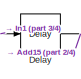
[diagram: New_Activation_Gold - part 1/4, top left region]
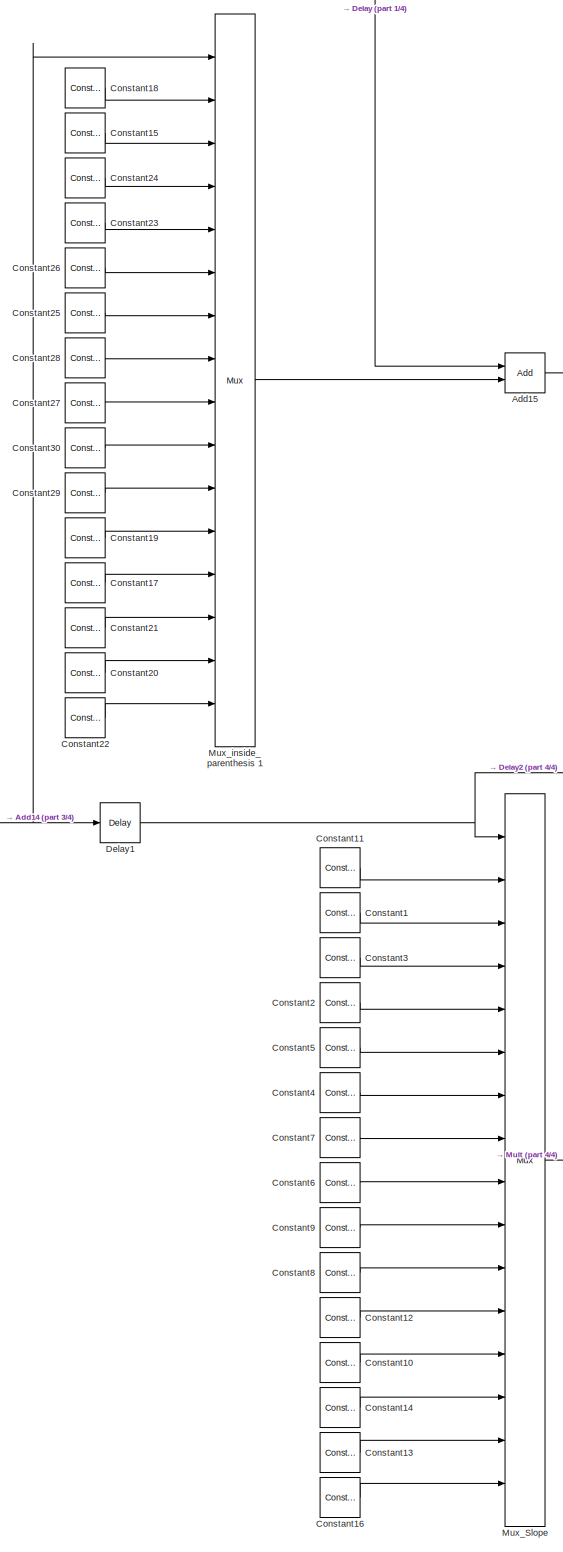
[diagram: New_Activation_Gold - part 2/4, center side, full height]
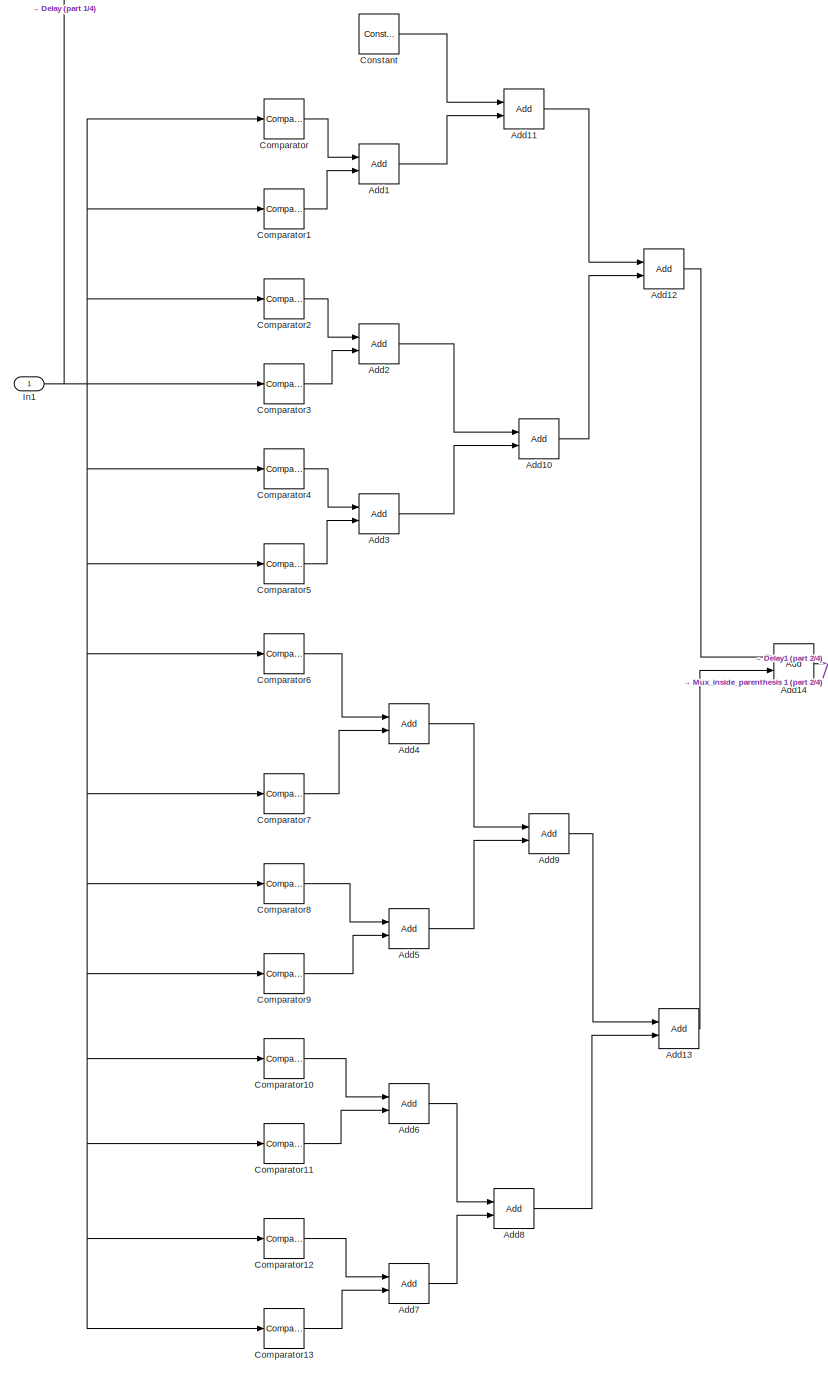
[diagram: New_Activation_Gold - part 3/4, left side, full height]
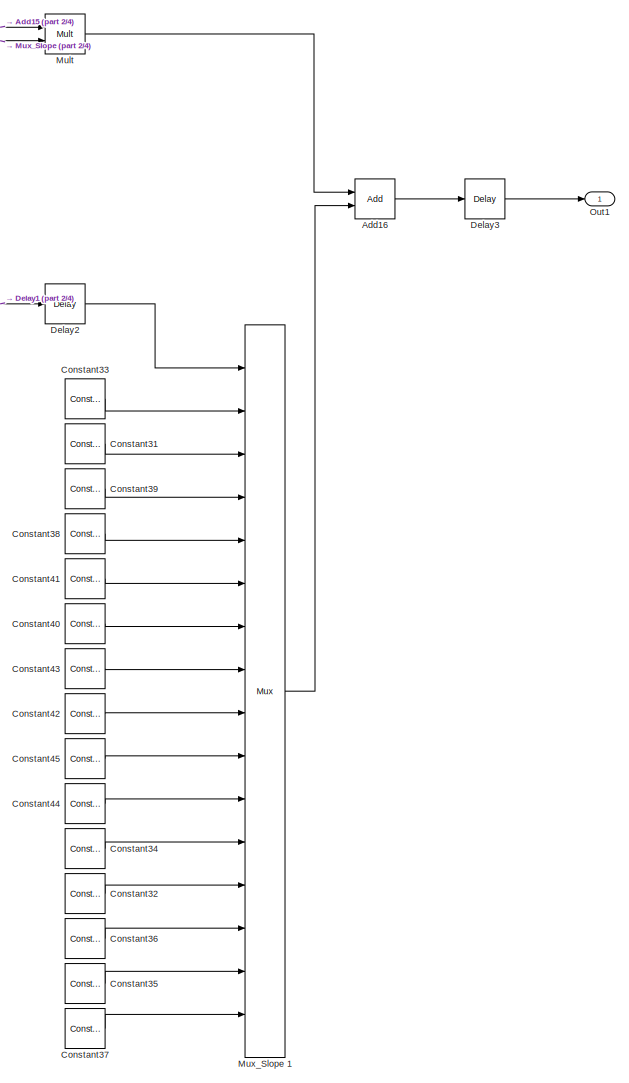
[diagram: New_Activation_Gold - part 4/4, bottom right region]
BLOCK [SubSystem] New_Activation_Gold
  Ports = [1, 1]
  RequestExecContextInheritance = off
  Variant = off
BLOCK [Reference] New_Activation_Gold/Add1  REF=shlslibv1/Math Functions/Add
  Ports = [2, 1]
  SourceBlock = shlslibv1/Math Functions/Add
  SourceType = Synphony Model Compiler Add
BLOCK [Reference] New_Activation_Gold/Add10  REF=shlslibv1/Math Functions/Add
  Ports = [2, 1]
  SourceBlock = shlslibv1/Math Functions/Add
  SourceType = Synphony Model Compiler Add
BLOCK [Reference] New_Activation_Gold/Add11  REF=shlslibv1/Math Functions/Add
  Ports = [2, 1]
  SourceBlock = shlslibv1/Math Functions/Add
  SourceType = Synphony Model Compiler Add
BLOCK [Reference] New_Activation_Gold/Add12  REF=shlslibv1/Math Functions/Add
  Ports = [2, 1]
  SourceBlock = shlslibv1/Math Functions/Add
  SourceType = Synphony Model Compiler Add
BLOCK [Reference] New_Activation_Gold/Add13  REF=shlslibv1/Math Functions/Add
  Ports = [2, 1]
  SourceBlock = shlslibv1/Math Functions/Add
  SourceType = Synphony Model Compiler Add
BLOCK [Reference] New_Activation_Gold/Add14  REF=shlslibv1/Math Functions/Add
  Ports = [2, 1]
  SourceBlock = shlslibv1/Math Functions/Add
  SourceType = Synphony Model Compiler Add
BLOCK [Reference] New_Activation_Gold/Add15  REF=shlslibv1/Math Functions/Add
  Ports = [2, 1]
  SourceBlock = shlslibv1/Math Functions/Add
  SourceType = Synphony Model Compiler Add
BLOCK [Reference] New_Activation_Gold/Add16  REF=shlslibv1/Math Functions/Add
  Ports = [2, 1]
  SourceBlock = shlslibv1/Math Functions/Add
  SourceType = Synphony Model Compiler Add
BLOCK [Reference] New_Activation_Gold/Add2  REF=shlslibv1/Math Functions/Add
  Ports = [2, 1]
  SourceBlock = shlslibv1/Math Functions/Add
  SourceType = Synphony Model Compiler Add
BLOCK [Reference] New_Activation_Gold/Add3  REF=shlslibv1/Math Functions/Add
  Ports = [2, 1]
  SourceBlock = shlslibv1/Math Functions/Add
  SourceType = Synphony Model Compiler Add
BLOCK [Reference] New_Activation_Gold/Add4  REF=shlslibv1/Math Functions/Add
  Ports = [2, 1]
  SourceBlock = shlslibv1/Math Functions/Add
  SourceType = Synphony Model Compiler Add
BLOCK [Reference] New_Activation_Gold/Add5  REF=shlslibv1/Math Functions/Add
  Ports = [2, 1]
  SourceBlock = shlslibv1/Math Functions/Add
  SourceType = Synphony Model Compiler Add
BLOCK [Reference] New_Activation_Gold/Add6  REF=shlslibv1/Math Functions/Add
  Ports = [2, 1]
  SourceBlock = shlslibv1/Math Functions/Add
  SourceType = Synphony Model Compiler Add
BLOCK [Reference] New_Activation_Gold/Add7  REF=shlslibv1/Math Functions/Add
  Ports = [2, 1]
  SourceBlock = shlslibv1/Math Functions/Add
  SourceType = Synphony Model Compiler Add
BLOCK [Reference] New_Activation_Gold/Add8  REF=shlslibv1/Math Functions/Add
  Ports = [2, 1]
  SourceBlock = shlslibv1/Math Functions/Add
  SourceType = Synphony Model Compiler Add
BLOCK [Reference] New_Activation_Gold/Add9  REF=shlslibv1/Math Functions/Add
  Ports = [2, 1]
  SourceBlock = shlslibv1/Math Functions/Add
  SourceType = Synphony Model Compiler Add
BLOCK [Reference] New_Activation_Gold/Comparator  REF=shlslibv1/Math Functions/Comparator
  Ports = [1, 1]
  SourceBlock = shlslibv1/Math Functions/Comparator
  SourceType = Synphony Model Compiler Comparator
BLOCK [Reference] New_Activation_Gold/Comparator1  REF=shlslibv1/Math Functions/Comparator
  Ports = [1, 1]
  SourceBlock = shlslibv1/Math Functions/Comparator
  SourceType = Synphony Model Compiler Comparator
BLOCK [Reference] New_Activation_Gold/Comparator10  REF=shlslibv1/Math Functions/Comparator
  Ports = [1, 1]
  SourceBlock = shlslibv1/Math Functions/Comparator
  SourceType = Synphony Model Compiler Comparator
BLOCK [Reference] New_Activation_Gold/Comparator11  REF=shlslibv1/Math Functions/Comparator
  Ports = [1, 1]
  SourceBlock = shlslibv1/Math Functions/Comparator
  SourceType = Synphony Model Compiler Comparator
BLOCK [Reference] New_Activation_Gold/Comparator12  REF=shlslibv1/Math Functions/Comparator
  Ports = [1, 1]
  SourceBlock = shlslibv1/Math Functions/Comparator
  SourceType = Synphony Model Compiler Comparator
BLOCK [Reference] New_Activation_Gold/Comparator13  REF=shlslibv1/Math Functions/Comparator
  Ports = [1, 1]
  SourceBlock = shlslibv1/Math Functions/Comparator
  SourceType = Synphony Model Compiler Comparator
BLOCK [Reference] New_Activation_Gold/Comparator2  REF=shlslibv1/Math Functions/Comparator
  Ports = [1, 1]
  SourceBlock = shlslibv1/Math Functions/Comparator
  SourceType = Synphony Model Compiler Comparator
BLOCK [Reference] New_Activation_Gold/Comparator3  REF=shlslibv1/Math Functions/Comparator
  Ports = [1, 1]
  SourceBlock = shlslibv1/Math Functions/Comparator
  SourceType = Synphony Model Compiler Comparator
BLOCK [Reference] New_Activation_Gold/Comparator4  REF=shlslibv1/Math Functions/Comparator
  Ports = [1, 1]
  SourceBlock = shlslibv1/Math Functions/Comparator
  SourceType = Synphony Model Compiler Comparator
BLOCK [Reference] New_Activation_Gold/Comparator5  REF=shlslibv1/Math Functions/Comparator
  Ports = [1, 1]
  SourceBlock = shlslibv1/Math Functions/Comparator
  SourceType = Synphony Model Compiler Comparator
BLOCK [Reference] New_Activation_Gold/Comparator6  REF=shlslibv1/Math Functions/Comparator
  Ports = [1, 1]
  SourceBlock = shlslibv1/Math Functions/Comparator
  SourceType = Synphony Model Compiler Comparator
BLOCK [Reference] New_Activation_Gold/Comparator7  REF=shlslibv1/Math Functions/Comparator
  Ports = [1, 1]
  SourceBlock = shlslibv1/Math Functions/Comparator
  SourceType = Synphony Model Compiler Comparator
BLOCK [Reference] New_Activation_Gold/Comparator8  REF=shlslibv1/Math Functions/Comparator
  Ports = [1, 1]
  SourceBlock = shlslibv1/Math Functions/Comparator
  SourceType = Synphony Model Compiler Comparator
BLOCK [Reference] New_Activation_Gold/Comparator9  REF=shlslibv1/Math Functions/Comparator
  Ports = [1, 1]
  SourceBlock = shlslibv1/Math Functions/Comparator
  SourceType = Synphony Model Compiler Comparator
BLOCK [Reference] New_Activation_Gold/Constant  REF=shlslibv1/Sources/Constant
  Ports = [0, 1]
  SourceBlock = shlslibv1/Sources/Constant
  SourceType = Synphony Model Compiler Constant
BLOCK [Reference] New_Activation_Gold/Constant1  REF=shlslibv1/Sources/Constant
  Ports = [0, 1]
  SourceBlock = shlslibv1/Sources/Constant
  SourceType = Synphony Model Compiler Constant
BLOCK [Reference] New_Activation_Gold/Constant10  REF=shlslibv1/Sources/Constant
  Ports = [0, 1]
  SourceBlock = shlslibv1/Sources/Constant
  SourceType = Synphony Model Compiler Constant
BLOCK [Reference] New_Activation_Gold/Constant11  REF=shlslibv1/Sources/Constant
  Ports = [0, 1]
  SourceBlock = shlslibv1/Sources/Constant
  SourceType = Synphony Model Compiler Constant
BLOCK [Reference] New_Activation_Gold/Constant12  REF=shlslibv1/Sources/Constant
  Ports = [0, 1]
  SourceBlock = shlslibv1/Sources/Constant
  SourceType = Synphony Model Compiler Constant
BLOCK [Reference] New_Activation_Gold/Constant13  REF=shlslibv1/Sources/Constant
  Ports = [0, 1]
  SourceBlock = shlslibv1/Sources/Constant
  SourceType = Synphony Model Compiler Constant
BLOCK [Reference] New_Activation_Gold/Constant14  REF=shlslibv1/Sources/Constant
  Ports = [0, 1]
  SourceBlock = shlslibv1/Sources/Constant
  SourceType = Synphony Model Compiler Constant
BLOCK [Reference] New_Activation_Gold/Constant15  REF=shlslibv1/Sources/Constant
  Ports = [0, 1]
  SourceBlock = shlslibv1/Sources/Constant
  SourceType = Synphony Model Compiler Constant
BLOCK [Reference] New_Activation_Gold/Constant16  REF=shlslibv1/Sources/Constant
  Ports = [0, 1]
  SourceBlock = shlslibv1/Sources/Constant
  SourceType = Synphony Model Compiler Constant
BLOCK [Reference] New_Activation_Gold/Constant17  REF=shlslibv1/Sources/Constant
  Ports = [0, 1]
  SourceBlock = shlslibv1/Sources/Constant
  SourceType = Synphony Model Compiler Constant
BLOCK [Reference] New_Activation_Gold/Constant18  REF=shlslibv1/Sources/Constant
  Ports = [0, 1]
  SourceBlock = shlslibv1/Sources/Constant
  SourceType = Synphony Model Compiler Constant
BLOCK [Reference] New_Activation_Gold/Constant19  REF=shlslibv1/Sources/Constant
  Ports = [0, 1]
  SourceBlock = shlslibv1/Sources/Constant
  SourceType = Synphony Model Compiler Constant
BLOCK [Reference] New_Activation_Gold/Constant2  REF=shlslibv1/Sources/Constant
  Ports = [0, 1]
  SourceBlock = shlslibv1/Sources/Constant
  SourceType = Synphony Model Compiler Constant
BLOCK [Reference] New_Activation_Gold/Constant20  REF=shlslibv1/Sources/Constant
  Ports = [0, 1]
  SourceBlock = shlslibv1/Sources/Constant
  SourceType = Synphony Model Compiler Constant
BLOCK [Reference] New_Activation_Gold/Constant21  REF=shlslibv1/Sources/Constant
  Ports = [0, 1]
  SourceBlock = shlslibv1/Sources/Constant
  SourceType = Synphony Model Compiler Constant
BLOCK [Reference] New_Activation_Gold/Constant22  REF=shlslibv1/Sources/Constant
  Ports = [0, 1]
  SourceBlock = shlslibv1/Sources/Constant
  SourceType = Synphony Model Compiler Constant
BLOCK [Reference] New_Activation_Gold/Constant23  REF=shlslibv1/Sources/Constant
  Ports = [0, 1]
  SourceBlock = shlslibv1/Sources/Constant
  SourceType = Synphony Model Compiler Constant
BLOCK [Reference] New_Activation_Gold/Constant24  REF=shlslibv1/Sources/Constant
  Ports = [0, 1]
  SourceBlock = shlslibv1/Sources/Constant
  SourceType = Synphony Model Compiler Constant
BLOCK [Reference] New_Activation_Gold/Constant25  REF=shlslibv1/Sources/Constant
  Ports = [0, 1]
  SourceBlock = shlslibv1/Sources/Constant
  SourceType = Synphony Model Compiler Constant
BLOCK [Reference] New_Activation_Gold/Constant26  REF=shlslibv1/Sources/Constant
  Ports = [0, 1]
  SourceBlock = shlslibv1/Sources/Constant
  SourceType = Synphony Model Compiler Constant
BLOCK [Reference] New_Activation_Gold/Constant27  REF=shlslibv1/Sources/Constant
  Ports = [0, 1]
  SourceBlock = shlslibv1/Sources/Constant
  SourceType = Synphony Model Compiler Constant
BLOCK [Reference] New_Activation_Gold/Constant28  REF=shlslibv1/Sources/Constant
  Ports = [0, 1]
  SourceBlock = shlslibv1/Sources/Constant
  SourceType = Synphony Model Compiler Constant
BLOCK [Reference] New_Activation_Gold/Constant29  REF=shlslibv1/Sources/Constant
  Ports = [0, 1]
  SourceBlock = shlslibv1/Sources/Constant
  SourceType = Synphony Model Compiler Constant
BLOCK [Reference] New_Activation_Gold/Constant3  REF=shlslibv1/Sources/Constant
  Ports = [0, 1]
  SourceBlock = shlslibv1/Sources/Constant
  SourceType = Synphony Model Compiler Constant
BLOCK [Reference] New_Activation_Gold/Constant30  REF=shlslibv1/Sources/Constant
  Ports = [0, 1]
  SourceBlock = shlslibv1/Sources/Constant
  SourceType = Synphony Model Compiler Constant
BLOCK [Reference] New_Activation_Gold/Constant31  REF=shlslibv1/Sources/Constant
  Ports = [0, 1]
  SourceBlock = shlslibv1/Sources/Constant
  SourceType = Synphony Model Compiler Constant
BLOCK [Reference] New_Activation_Gold/Constant32  REF=shlslibv1/Sources/Constant
  Ports = [0, 1]
  SourceBlock = shlslibv1/Sources/Constant
  SourceType = Synphony Model Compiler Constant
BLOCK [Reference] New_Activation_Gold/Constant33  REF=shlslibv1/Sources/Constant
  Ports = [0, 1]
  SourceBlock = shlslibv1/Sources/Constant
  SourceType = Synphony Model Compiler Constant
BLOCK [Reference] New_Activation_Gold/Constant34  REF=shlslibv1/Sources/Constant
  Ports = [0, 1]
  SourceBlock = shlslibv1/Sources/Constant
  SourceType = Synphony Model Compiler Constant
BLOCK [Reference] New_Activation_Gold/Constant35  REF=shlslibv1/Sources/Constant
  Ports = [0, 1]
  SourceBlock = shlslibv1/Sources/Constant
  SourceType = Synphony Model Compiler Constant
BLOCK [Reference] New_Activation_Gold/Constant36  REF=shlslibv1/Sources/Constant
  Ports = [0, 1]
  SourceBlock = shlslibv1/Sources/Constant
  SourceType = Synphony Model Compiler Constant
BLOCK [Reference] New_Activation_Gold/Constant37  REF=shlslibv1/Sources/Constant
  Ports = [0, 1]
  SourceBlock = shlslibv1/Sources/Constant
  SourceType = Synphony Model Compiler Constant
BLOCK [Reference] New_Activation_Gold/Constant38  REF=shlslibv1/Sources/Constant
  Ports = [0, 1]
  SourceBlock = shlslibv1/Sources/Constant
  SourceType = Synphony Model Compiler Constant
BLOCK [Reference] New_Activation_Gold/Constant39  REF=shlslibv1/Sources/Constant
  Ports = [0, 1]
  SourceBlock = shlslibv1/Sources/Constant
  SourceType = Synphony Model Compiler Constant
BLOCK [Reference] New_Activation_Gold/Constant4  REF=shlslibv1/Sources/Constant
  Ports = [0, 1]
  SourceBlock = shlslibv1/Sources/Constant
  SourceType = Synphony Model Compiler Constant
BLOCK [Reference] New_Activation_Gold/Constant40  REF=shlslibv1/Sources/Constant
  Ports = [0, 1]
  SourceBlock = shlslibv1/Sources/Constant
  SourceType = Synphony Model Compiler Constant
BLOCK [Reference] New_Activation_Gold/Constant41  REF=shlslibv1/Sources/Constant
  Ports = [0, 1]
  SourceBlock = shlslibv1/Sources/Constant
  SourceType = Synphony Model Compiler Constant
BLOCK [Reference] New_Activation_Gold/Constant42  REF=shlslibv1/Sources/Constant
  Ports = [0, 1]
  SourceBlock = shlslibv1/Sources/Constant
  SourceType = Synphony Model Compiler Constant
BLOCK [Reference] New_Activation_Gold/Constant43  REF=shlslibv1/Sources/Constant
  Ports = [0, 1]
  SourceBlock = shlslibv1/Sources/Constant
  SourceType = Synphony Model Compiler Constant
BLOCK [Reference] New_Activation_Gold/Constant44  REF=shlslibv1/Sources/Constant
  Ports = [0, 1]
  SourceBlock = shlslibv1/Sources/Constant
  SourceType = Synphony Model Compiler Constant
BLOCK [Reference] New_Activation_Gold/Constant45  REF=shlslibv1/Sources/Constant
  Ports = [0, 1]
  SourceBlock = shlslibv1/Sources/Constant
  SourceType = Synphony Model Compiler Constant
BLOCK [Reference] New_Activation_Gold/Constant5  REF=shlslibv1/Sources/Constant
  Ports = [0, 1]
  SourceBlock = shlslibv1/Sources/Constant
  SourceType = Synphony Model Compiler Constant
BLOCK [Reference] New_Activation_Gold/Constant6  REF=shlslibv1/Sources/Constant
  Ports = [0, 1]
  SourceBlock = shlslibv1/Sources/Constant
  SourceType = Synphony Model Compiler Constant
BLOCK [Reference] New_Activation_Gold/Constant7  REF=shlslibv1/Sources/Constant
  Ports = [0, 1]
  SourceBlock = shlslibv1/Sources/Constant
  SourceType = Synphony Model Compiler Constant
BLOCK [Reference] New_Activation_Gold/Constant8  REF=shlslibv1/Sources/Constant
  Ports = [0, 1]
  SourceBlock = shlslibv1/Sources/Constant
  SourceType = Synphony Model Compiler Constant
BLOCK [Reference] New_Activation_Gold/Constant9  REF=shlslibv1/Sources/Constant
  Ports = [0, 1]
  SourceBlock = shlslibv1/Sources/Constant
  SourceType = Synphony Model Compiler Constant
BLOCK [Reference] New_Activation_Gold/Delay  REF=shlslibv1/Memories/Delay
  Ports = [1, 1]
  SourceBlock = shlslibv1/Memories/Delay
  SourceType = Synphony Model Compiler Delay
BLOCK [Reference] New_Activation_Gold/Delay1  REF=shlslibv1/Memories/Delay
  Ports = [1, 1]
  SourceBlock = shlslibv1/Memories/Delay
  SourceType = Synphony Model Compiler Delay
BLOCK [Reference] New_Activation_Gold/Delay2  REF=shlslibv1/Memories/Delay
  Ports = [1, 1]
  SourceBlock = shlslibv1/Memories/Delay
  SourceType = Synphony Model Compiler Delay
BLOCK [Reference] New_Activation_Gold/Delay3  REF=shlslibv1/Memories/Delay
  Ports = [1, 1]
  SourceBlock = shlslibv1/Memories/Delay
  SourceType = Synphony Model Compiler Delay
BLOCK [Inport] New_Activation_Gold/In1
  IconDisplay = Port number
BLOCK [Reference] New_Activation_Gold/Mult  REF=shlslibv1/Math Functions/Mult
  Ports = [2, 1]
  SourceBlock = shlslibv1/Math Functions/Mult
  SourceType = Synphony Model Compiler Mult
BLOCK [Reference] New_Activation_Gold/Mux_Slope   REF=shlslibv1/Signal Operations/Mux
  Ports = [16, 1]
  SourceBlock = shlslibv1/Signal Operations/Mux
  SourceType = Synphony Model Compiler Mux
BLOCK [Reference] New_Activation_Gold/Mux_Slope 1  REF=shlslibv1/Signal Operations/Mux
  Ports = [16, 1]
  SourceBlock = shlslibv1/Signal Operations/Mux
  SourceType = Synphony Model Compiler Mux
BLOCK [Reference] New_Activation_Gold/Mux_inside_parenthesis 1  REF=shlslibv1/Signal Operations/Mux
  Ports = [16, 1]
  SourceBlock = shlslibv1/Signal Operations/Mux
  SourceType = Synphony Model Compiler Mux
BLOCK [Outport] New_Activation_Gold/Out1
  IconDisplay = Port number
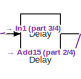
[diagram: New_Activation_Gold1 - part 1/4, top left region]
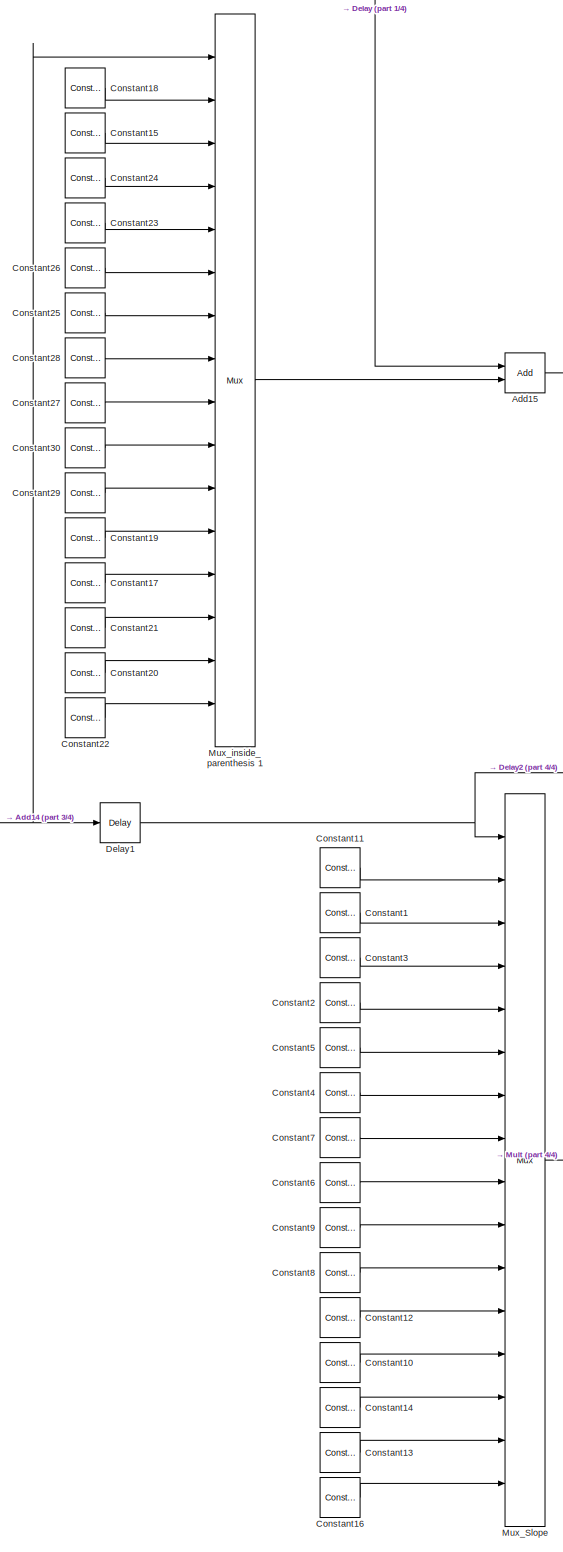
[diagram: New_Activation_Gold1 - part 2/4, center side, full height]
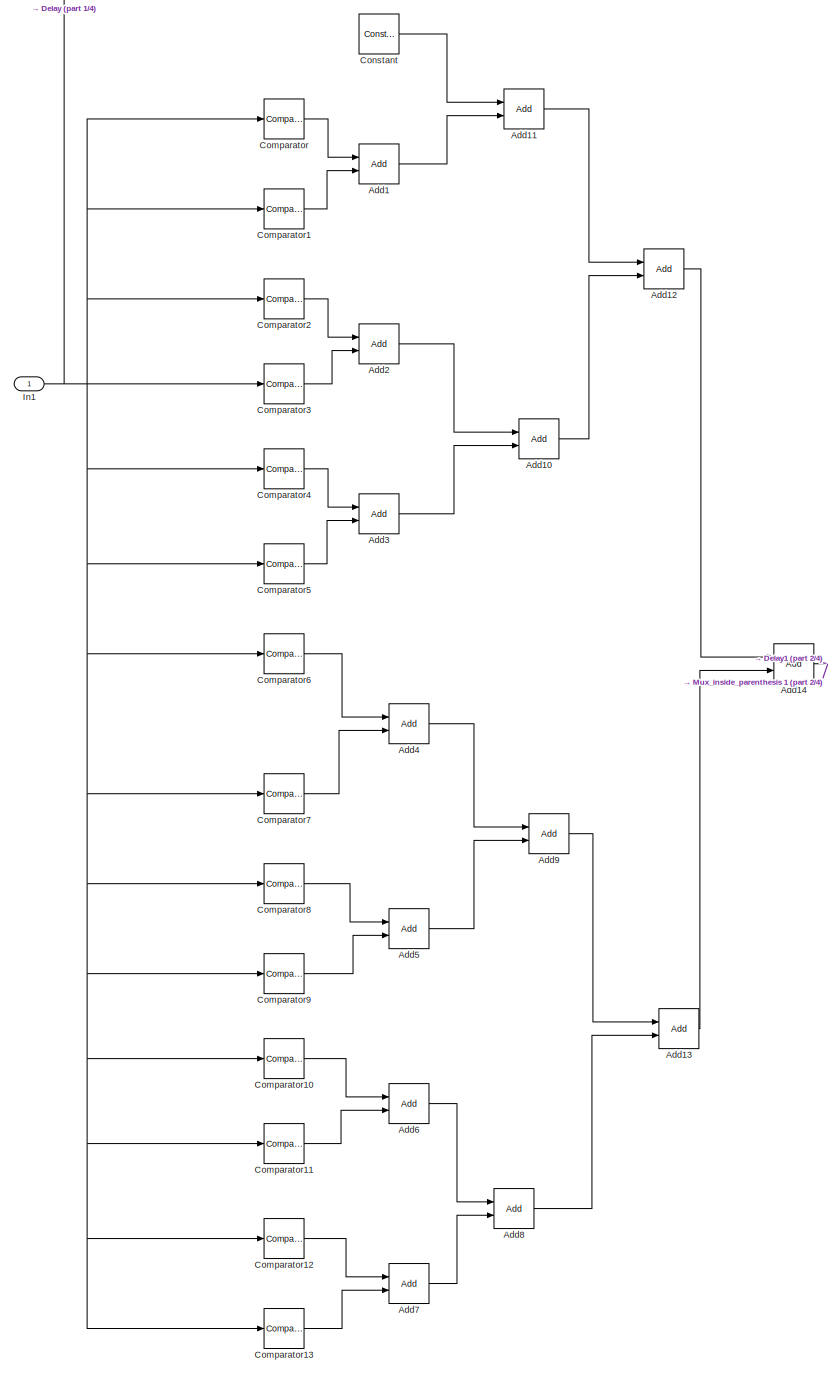
[diagram: New_Activation_Gold1 - part 3/4, left side, full height]
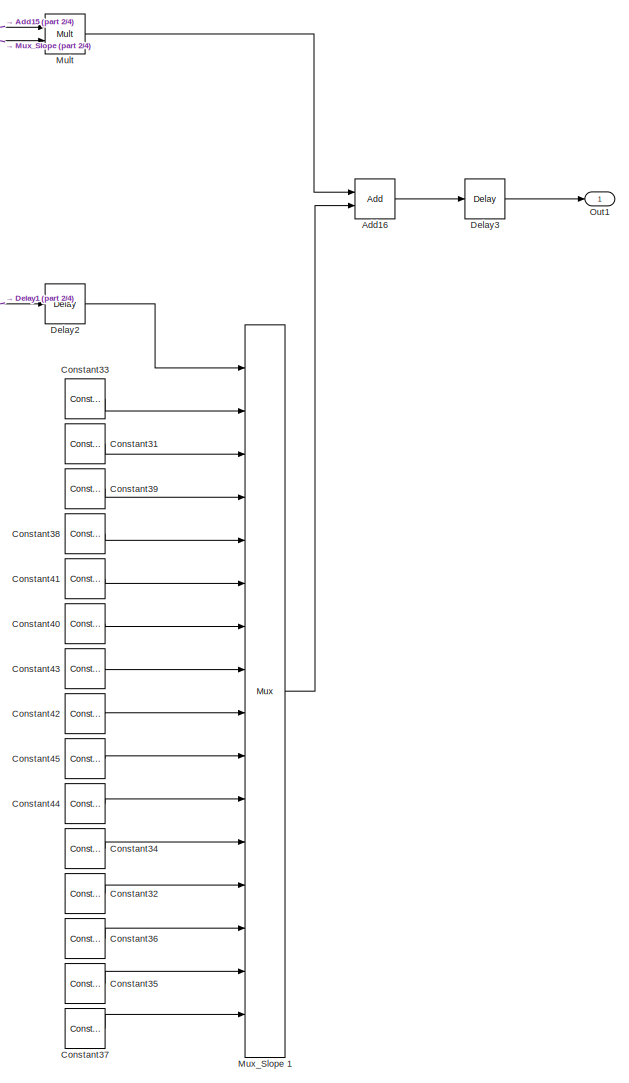
[diagram: New_Activation_Gold1 - part 4/4, bottom right region]
BLOCK [SubSystem] New_Activation_Gold1
  Ports = [1, 1]
  RequestExecContextInheritance = off
  Variant = off
BLOCK [Reference] New_Activation_Gold1/Add1  REF=shlslibv1/Math Functions/Add
  Ports = [2, 1]
  SourceBlock = shlslibv1/Math Functions/Add
  SourceType = Synphony Model Compiler Add
BLOCK [Reference] New_Activation_Gold1/Add10  REF=shlslibv1/Math Functions/Add
  Ports = [2, 1]
  SourceBlock = shlslibv1/Math Functions/Add
  SourceType = Synphony Model Compiler Add
BLOCK [Reference] New_Activation_Gold1/Add11  REF=shlslibv1/Math Functions/Add
  Ports = [2, 1]
  SourceBlock = shlslibv1/Math Functions/Add
  SourceType = Synphony Model Compiler Add
BLOCK [Reference] New_Activation_Gold1/Add12  REF=shlslibv1/Math Functions/Add
  Ports = [2, 1]
  SourceBlock = shlslibv1/Math Functions/Add
  SourceType = Synphony Model Compiler Add
BLOCK [Reference] New_Activation_Gold1/Add13  REF=shlslibv1/Math Functions/Add
  Ports = [2, 1]
  SourceBlock = shlslibv1/Math Functions/Add
  SourceType = Synphony Model Compiler Add
BLOCK [Reference] New_Activation_Gold1/Add14  REF=shlslibv1/Math Functions/Add
  Ports = [2, 1]
  SourceBlock = shlslibv1/Math Functions/Add
  SourceType = Synphony Model Compiler Add
BLOCK [Reference] New_Activation_Gold1/Add15  REF=shlslibv1/Math Functions/Add
  Ports = [2, 1]
  SourceBlock = shlslibv1/Math Functions/Add
  SourceType = Synphony Model Compiler Add
BLOCK [Reference] New_Activation_Gold1/Add16  REF=shlslibv1/Math Functions/Add
  Ports = [2, 1]
  SourceBlock = shlslibv1/Math Functions/Add
  SourceType = Synphony Model Compiler Add
BLOCK [Reference] New_Activation_Gold1/Add2  REF=shlslibv1/Math Functions/Add
  Ports = [2, 1]
  SourceBlock = shlslibv1/Math Functions/Add
  SourceType = Synphony Model Compiler Add
BLOCK [Reference] New_Activation_Gold1/Add3  REF=shlslibv1/Math Functions/Add
  Ports = [2, 1]
  SourceBlock = shlslibv1/Math Functions/Add
  SourceType = Synphony Model Compiler Add
BLOCK [Reference] New_Activation_Gold1/Add4  REF=shlslibv1/Math Functions/Add
  Ports = [2, 1]
  SourceBlock = shlslibv1/Math Functions/Add
  SourceType = Synphony Model Compiler Add
BLOCK [Reference] New_Activation_Gold1/Add5  REF=shlslibv1/Math Functions/Add
  Ports = [2, 1]
  SourceBlock = shlslibv1/Math Functions/Add
  SourceType = Synphony Model Compiler Add
BLOCK [Reference] New_Activation_Gold1/Add6  REF=shlslibv1/Math Functions/Add
  Ports = [2, 1]
  SourceBlock = shlslibv1/Math Functions/Add
  SourceType = Synphony Model Compiler Add
BLOCK [Reference] New_Activation_Gold1/Add7  REF=shlslibv1/Math Functions/Add
  Ports = [2, 1]
  SourceBlock = shlslibv1/Math Functions/Add
  SourceType = Synphony Model Compiler Add
BLOCK [Reference] New_Activation_Gold1/Add8  REF=shlslibv1/Math Functions/Add
  Ports = [2, 1]
  SourceBlock = shlslibv1/Math Functions/Add
  SourceType = Synphony Model Compiler Add
BLOCK [Reference] New_Activation_Gold1/Add9  REF=shlslibv1/Math Functions/Add
  Ports = [2, 1]
  SourceBlock = shlslibv1/Math Functions/Add
  SourceType = Synphony Model Compiler Add
BLOCK [Reference] New_Activation_Gold1/Comparator  REF=shlslibv1/Math Functions/Comparator
  Ports = [1, 1]
  SourceBlock = shlslibv1/Math Functions/Comparator
  SourceType = Synphony Model Compiler Comparator
BLOCK [Reference] New_Activation_Gold1/Comparator1  REF=shlslibv1/Math Functions/Comparator
  Ports = [1, 1]
  SourceBlock = shlslibv1/Math Functions/Comparator
  SourceType = Synphony Model Compiler Comparator
BLOCK [Reference] New_Activation_Gold1/Comparator10  REF=shlslibv1/Math Functions/Comparator
  Ports = [1, 1]
  SourceBlock = shlslibv1/Math Functions/Comparator
  SourceType = Synphony Model Compiler Comparator
BLOCK [Reference] New_Activation_Gold1/Comparator11  REF=shlslibv1/Math Functions/Comparator
  Ports = [1, 1]
  SourceBlock = shlslibv1/Math Functions/Comparator
  SourceType = Synphony Model Compiler Comparator
BLOCK [Reference] New_Activation_Gold1/Comparator12  REF=shlslibv1/Math Functions/Comparator
  Ports = [1, 1]
  SourceBlock = shlslibv1/Math Functions/Comparator
  SourceType = Synphony Model Compiler Comparator
BLOCK [Reference] New_Activation_Gold1/Comparator13  REF=shlslibv1/Math Functions/Comparator
  Ports = [1, 1]
  SourceBlock = shlslibv1/Math Functions/Comparator
  SourceType = Synphony Model Compiler Comparator
BLOCK [Reference] New_Activation_Gold1/Comparator2  REF=shlslibv1/Math Functions/Comparator
  Ports = [1, 1]
  SourceBlock = shlslibv1/Math Functions/Comparator
  SourceType = Synphony Model Compiler Comparator
BLOCK [Reference] New_Activation_Gold1/Comparator3  REF=shlslibv1/Math Functions/Comparator
  Ports = [1, 1]
  SourceBlock = shlslibv1/Math Functions/Comparator
  SourceType = Synphony Model Compiler Comparator
BLOCK [Reference] New_Activation_Gold1/Comparator4  REF=shlslibv1/Math Functions/Comparator
  Ports = [1, 1]
  SourceBlock = shlslibv1/Math Functions/Comparator
  SourceType = Synphony Model Compiler Comparator
BLOCK [Reference] New_Activation_Gold1/Comparator5  REF=shlslibv1/Math Functions/Comparator
  Ports = [1, 1]
  SourceBlock = shlslibv1/Math Functions/Comparator
  SourceType = Synphony Model Compiler Comparator
BLOCK [Reference] New_Activation_Gold1/Comparator6  REF=shlslibv1/Math Functions/Comparator
  Ports = [1, 1]
  SourceBlock = shlslibv1/Math Functions/Comparator
  SourceType = Synphony Model Compiler Comparator
BLOCK [Reference] New_Activation_Gold1/Comparator7  REF=shlslibv1/Math Functions/Comparator
  Ports = [1, 1]
  SourceBlock = shlslibv1/Math Functions/Comparator
  SourceType = Synphony Model Compiler Comparator
BLOCK [Reference] New_Activation_Gold1/Comparator8  REF=shlslibv1/Math Functions/Comparator
  Ports = [1, 1]
  SourceBlock = shlslibv1/Math Functions/Comparator
  SourceType = Synphony Model Compiler Comparator
BLOCK [Reference] New_Activation_Gold1/Comparator9  REF=shlslibv1/Math Functions/Comparator
  Ports = [1, 1]
  SourceBlock = shlslibv1/Math Functions/Comparator
  SourceType = Synphony Model Compiler Comparator
BLOCK [Reference] New_Activation_Gold1/Constant  REF=shlslibv1/Sources/Constant
  Ports = [0, 1]
  SourceBlock = shlslibv1/Sources/Constant
  SourceType = Synphony Model Compiler Constant
BLOCK [Reference] New_Activation_Gold1/Constant1  REF=shlslibv1/Sources/Constant
  Ports = [0, 1]
  SourceBlock = shlslibv1/Sources/Constant
  SourceType = Synphony Model Compiler Constant
BLOCK [Reference] New_Activation_Gold1/Constant10  REF=shlslibv1/Sources/Constant
  Ports = [0, 1]
  SourceBlock = shlslibv1/Sources/Constant
  SourceType = Synphony Model Compiler Constant
BLOCK [Reference] New_Activation_Gold1/Constant11  REF=shlslibv1/Sources/Constant
  Ports = [0, 1]
  SourceBlock = shlslibv1/Sources/Constant
  SourceType = Synphony Model Compiler Constant
BLOCK [Reference] New_Activation_Gold1/Constant12  REF=shlslibv1/Sources/Constant
  Ports = [0, 1]
  SourceBlock = shlslibv1/Sources/Constant
  SourceType = Synphony Model Compiler Constant
BLOCK [Reference] New_Activation_Gold1/Constant13  REF=shlslibv1/Sources/Constant
  Ports = [0, 1]
  SourceBlock = shlslibv1/Sources/Constant
  SourceType = Synphony Model Compiler Constant
BLOCK [Reference] New_Activation_Gold1/Constant14  REF=shlslibv1/Sources/Constant
  Ports = [0, 1]
  SourceBlock = shlslibv1/Sources/Constant
  SourceType = Synphony Model Compiler Constant
BLOCK [Reference] New_Activation_Gold1/Constant15  REF=shlslibv1/Sources/Constant
  Ports = [0, 1]
  SourceBlock = shlslibv1/Sources/Constant
  SourceType = Synphony Model Compiler Constant
BLOCK [Reference] New_Activation_Gold1/Constant16  REF=shlslibv1/Sources/Constant
  Ports = [0, 1]
  SourceBlock = shlslibv1/Sources/Constant
  SourceType = Synphony Model Compiler Constant
BLOCK [Reference] New_Activation_Gold1/Constant17  REF=shlslibv1/Sources/Constant
  Ports = [0, 1]
  SourceBlock = shlslibv1/Sources/Constant
  SourceType = Synphony Model Compiler Constant
BLOCK [Reference] New_Activation_Gold1/Constant18  REF=shlslibv1/Sources/Constant
  Ports = [0, 1]
  SourceBlock = shlslibv1/Sources/Constant
  SourceType = Synphony Model Compiler Constant
BLOCK [Reference] New_Activation_Gold1/Constant19  REF=shlslibv1/Sources/Constant
  Ports = [0, 1]
  SourceBlock = shlslibv1/Sources/Constant
  SourceType = Synphony Model Compiler Constant
BLOCK [Reference] New_Activation_Gold1/Constant2  REF=shlslibv1/Sources/Constant
  Ports = [0, 1]
  SourceBlock = shlslibv1/Sources/Constant
  SourceType = Synphony Model Compiler Constant
BLOCK [Reference] New_Activation_Gold1/Constant20  REF=shlslibv1/Sources/Constant
  Ports = [0, 1]
  SourceBlock = shlslibv1/Sources/Constant
  SourceType = Synphony Model Compiler Constant
BLOCK [Reference] New_Activation_Gold1/Constant21  REF=shlslibv1/Sources/Constant
  Ports = [0, 1]
  SourceBlock = shlslibv1/Sources/Constant
  SourceType = Synphony Model Compiler Constant
BLOCK [Reference] New_Activation_Gold1/Constant22  REF=shlslibv1/Sources/Constant
  Ports = [0, 1]
  SourceBlock = shlslibv1/Sources/Constant
  SourceType = Synphony Model Compiler Constant
BLOCK [Reference] New_Activation_Gold1/Constant23  REF=shlslibv1/Sources/Constant
  Ports = [0, 1]
  SourceBlock = shlslibv1/Sources/Constant
  SourceType = Synphony Model Compiler Constant
BLOCK [Reference] New_Activation_Gold1/Constant24  REF=shlslibv1/Sources/Constant
  Ports = [0, 1]
  SourceBlock = shlslibv1/Sources/Constant
  SourceType = Synphony Model Compiler Constant
BLOCK [Reference] New_Activation_Gold1/Constant25  REF=shlslibv1/Sources/Constant
  Ports = [0, 1]
  SourceBlock = shlslibv1/Sources/Constant
  SourceType = Synphony Model Compiler Constant
BLOCK [Reference] New_Activation_Gold1/Constant26  REF=shlslibv1/Sources/Constant
  Ports = [0, 1]
  SourceBlock = shlslibv1/Sources/Constant
  SourceType = Synphony Model Compiler Constant
BLOCK [Reference] New_Activation_Gold1/Constant27  REF=shlslibv1/Sources/Constant
  Ports = [0, 1]
  SourceBlock = shlslibv1/Sources/Constant
  SourceType = Synphony Model Compiler Constant
BLOCK [Reference] New_Activation_Gold1/Constant28  REF=shlslibv1/Sources/Constant
  Ports = [0, 1]
  SourceBlock = shlslibv1/Sources/Constant
  SourceType = Synphony Model Compiler Constant
BLOCK [Reference] New_Activation_Gold1/Constant29  REF=shlslibv1/Sources/Constant
  Ports = [0, 1]
  SourceBlock = shlslibv1/Sources/Constant
  SourceType = Synphony Model Compiler Constant
BLOCK [Reference] New_Activation_Gold1/Constant3  REF=shlslibv1/Sources/Constant
  Ports = [0, 1]
  SourceBlock = shlslibv1/Sources/Constant
  SourceType = Synphony Model Compiler Constant
BLOCK [Reference] New_Activation_Gold1/Constant30  REF=shlslibv1/Sources/Constant
  Ports = [0, 1]
  SourceBlock = shlslibv1/Sources/Constant
  SourceType = Synphony Model Compiler Constant
BLOCK [Reference] New_Activation_Gold1/Constant31  REF=shlslibv1/Sources/Constant
  Ports = [0, 1]
  SourceBlock = shlslibv1/Sources/Constant
  SourceType = Synphony Model Compiler Constant
BLOCK [Reference] New_Activation_Gold1/Constant32  REF=shlslibv1/Sources/Constant
  Ports = [0, 1]
  SourceBlock = shlslibv1/Sources/Constant
  SourceType = Synphony Model Compiler Constant
BLOCK [Reference] New_Activation_Gold1/Constant33  REF=shlslibv1/Sources/Constant
  Ports = [0, 1]
  SourceBlock = shlslibv1/Sources/Constant
  SourceType = Synphony Model Compiler Constant
BLOCK [Reference] New_Activation_Gold1/Constant34  REF=shlslibv1/Sources/Constant
  Ports = [0, 1]
  SourceBlock = shlslibv1/Sources/Constant
  SourceType = Synphony Model Compiler Constant
BLOCK [Reference] New_Activation_Gold1/Constant35  REF=shlslibv1/Sources/Constant
  Ports = [0, 1]
  SourceBlock = shlslibv1/Sources/Constant
  SourceType = Synphony Model Compiler Constant
BLOCK [Reference] New_Activation_Gold1/Constant36  REF=shlslibv1/Sources/Constant
  Ports = [0, 1]
  SourceBlock = shlslibv1/Sources/Constant
  SourceType = Synphony Model Compiler Constant
BLOCK [Reference] New_Activation_Gold1/Constant37  REF=shlslibv1/Sources/Constant
  Ports = [0, 1]
  SourceBlock = shlslibv1/Sources/Constant
  SourceType = Synphony Model Compiler Constant
BLOCK [Reference] New_Activation_Gold1/Constant38  REF=shlslibv1/Sources/Constant
  Ports = [0, 1]
  SourceBlock = shlslibv1/Sources/Constant
  SourceType = Synphony Model Compiler Constant
BLOCK [Reference] New_Activation_Gold1/Constant39  REF=shlslibv1/Sources/Constant
  Ports = [0, 1]
  SourceBlock = shlslibv1/Sources/Constant
  SourceType = Synphony Model Compiler Constant
BLOCK [Reference] New_Activation_Gold1/Constant4  REF=shlslibv1/Sources/Constant
  Ports = [0, 1]
  SourceBlock = shlslibv1/Sources/Constant
  SourceType = Synphony Model Compiler Constant
BLOCK [Reference] New_Activation_Gold1/Constant40  REF=shlslibv1/Sources/Constant
  Ports = [0, 1]
  SourceBlock = shlslibv1/Sources/Constant
  SourceType = Synphony Model Compiler Constant
BLOCK [Reference] New_Activation_Gold1/Constant41  REF=shlslibv1/Sources/Constant
  Ports = [0, 1]
  SourceBlock = shlslibv1/Sources/Constant
  SourceType = Synphony Model Compiler Constant
BLOCK [Reference] New_Activation_Gold1/Constant42  REF=shlslibv1/Sources/Constant
  Ports = [0, 1]
  SourceBlock = shlslibv1/Sources/Constant
  SourceType = Synphony Model Compiler Constant
BLOCK [Reference] New_Activation_Gold1/Constant43  REF=shlslibv1/Sources/Constant
  Ports = [0, 1]
  SourceBlock = shlslibv1/Sources/Constant
  SourceType = Synphony Model Compiler Constant
BLOCK [Reference] New_Activation_Gold1/Constant44  REF=shlslibv1/Sources/Constant
  Ports = [0, 1]
  SourceBlock = shlslibv1/Sources/Constant
  SourceType = Synphony Model Compiler Constant
BLOCK [Reference] New_Activation_Gold1/Constant45  REF=shlslibv1/Sources/Constant
  Ports = [0, 1]
  SourceBlock = shlslibv1/Sources/Constant
  SourceType = Synphony Model Compiler Constant
BLOCK [Reference] New_Activation_Gold1/Constant5  REF=shlslibv1/Sources/Constant
  Ports = [0, 1]
  SourceBlock = shlslibv1/Sources/Constant
  SourceType = Synphony Model Compiler Constant
BLOCK [Reference] New_Activation_Gold1/Constant6  REF=shlslibv1/Sources/Constant
  Ports = [0, 1]
  SourceBlock = shlslibv1/Sources/Constant
  SourceType = Synphony Model Compiler Constant
BLOCK [Reference] New_Activation_Gold1/Constant7  REF=shlslibv1/Sources/Constant
  Ports = [0, 1]
  SourceBlock = shlslibv1/Sources/Constant
  SourceType = Synphony Model Compiler Constant
BLOCK [Reference] New_Activation_Gold1/Constant8  REF=shlslibv1/Sources/Constant
  Ports = [0, 1]
  SourceBlock = shlslibv1/Sources/Constant
  SourceType = Synphony Model Compiler Constant
BLOCK [Reference] New_Activation_Gold1/Constant9  REF=shlslibv1/Sources/Constant
  Ports = [0, 1]
  SourceBlock = shlslibv1/Sources/Constant
  SourceType = Synphony Model Compiler Constant
BLOCK [Reference] New_Activation_Gold1/Delay  REF=shlslibv1/Memories/Delay
  Ports = [1, 1]
  SourceBlock = shlslibv1/Memories/Delay
  SourceType = Synphony Model Compiler Delay
BLOCK [Reference] New_Activation_Gold1/Delay1  REF=shlslibv1/Memories/Delay
  Ports = [1, 1]
  SourceBlock = shlslibv1/Memories/Delay
  SourceType = Synphony Model Compiler Delay
BLOCK [Reference] New_Activation_Gold1/Delay2  REF=shlslibv1/Memories/Delay
  Ports = [1, 1]
  SourceBlock = shlslibv1/Memories/Delay
  SourceType = Synphony Model Compiler Delay
BLOCK [Reference] New_Activation_Gold1/Delay3  REF=shlslibv1/Memories/Delay
  Ports = [1, 1]
  SourceBlock = shlslibv1/Memories/Delay
  SourceType = Synphony Model Compiler Delay
BLOCK [Inport] New_Activation_Gold1/In1
  IconDisplay = Port number
BLOCK [Reference] New_Activation_Gold1/Mult  REF=shlslibv1/Math Functions/Mult
  Ports = [2, 1]
  SourceBlock = shlslibv1/Math Functions/Mult
  SourceType = Synphony Model Compiler Mult
BLOCK [Reference] New_Activation_Gold1/Mux_Slope   REF=shlslibv1/Signal Operations/Mux
  Ports = [16, 1]
  SourceBlock = shlslibv1/Signal Operations/Mux
  SourceType = Synphony Model Compiler Mux
BLOCK [Reference] New_Activation_Gold1/Mux_Slope 1  REF=shlslibv1/Signal Operations/Mux
  Ports = [16, 1]
  SourceBlock = shlslibv1/Signal Operations/Mux
  SourceType = Synphony Model Compiler Mux
BLOCK [Reference] New_Activation_Gold1/Mux_inside_parenthesis 1  REF=shlslibv1/Signal Operations/Mux
  Ports = [16, 1]
  SourceBlock = shlslibv1/Signal Operations/Mux
  SourceType = Synphony Model Compiler Mux
BLOCK [Outport] New_Activation_Gold1/Out1
  IconDisplay = Port number
BLOCK [SubSystem] New_Activation_Gold2
  Ports = [1, 1]
  RequestExecContextInheritance = off
  Variant = off
BLOCK [Reference] New_Activation_Gold2/Add1  REF=shlslibv1/Math Functions/Add
  Ports = [2, 1]
  SourceBlock = shlslibv1/Math Functions/Add
  SourceType = Synphony Model Compiler Add
BLOCK [Reference] New_Activation_Gold2/Add10  REF=shlslibv1/Math Functions/Add
  Ports = [2, 1]
  SourceBlock = shlslibv1/Math Functions/Add
  SourceType = Synphony Model Compiler Add
BLOCK [Reference] New_Activation_Gold2/Add11  REF=shlslibv1/Math Functions/Add
  Ports = [2, 1]
  SourceBlock = shlslibv1/Math Functions/Add
  SourceType = Synphony Model Compiler Add
BLOCK [Reference] New_Activation_Gold2/Add12  REF=shlslibv1/Math Functions/Add
  Ports = [2, 1]
  SourceBlock = shlslibv1/Math Functions/Add
  SourceType = Synphony Model Compiler Add
BLOCK [Reference] New_Activation_Gold2/Add13  REF=shlslibv1/Math Functions/Add
  Ports = [2, 1]
  SourceBlock = shlslibv1/Math Functions/Add
  SourceType = Synphony Model Compiler Add
BLOCK [Reference] New_Activation_Gold2/Add14  REF=shlslibv1/Math Functions/Add
  Ports = [2, 1]
  SourceBlock = shlslibv1/Math Functions/Add
  SourceType = Synphony Model Compiler Add
BLOCK [Reference] New_Activation_Gold2/Add15  REF=shlslibv1/Math Functions/Add
  Ports = [2, 1]
  SourceBlock = shlslibv1/Math Functions/Add
  SourceType = Synphony Model Compiler Add
BLOCK [Reference] New_Activation_Gold2/Add16  REF=shlslibv1/Math Functions/Add
  Ports = [2, 1]
  SourceBlock = shlslibv1/Math Functions/Add
  SourceType = Synphony Model Compiler Add
BLOCK [Reference] New_Activation_Gold2/Add2  REF=shlslibv1/Math Functions/Add
  Ports = [2, 1]
  SourceBlock = shlslibv1/Math Functions/Add
  SourceType = Synphony Model Compiler Add
BLOCK [Reference] New_Activation_Gold2/Add3  REF=shlslibv1/Math Functions/Add
  Ports = [2, 1]
  SourceBlock = shlslibv1/Math Functions/Add
  SourceType = Synphony Model Compiler Add
BLOCK [Reference] New_Activation_Gold2/Add4  REF=shlslibv1/Math Functions/Add
  Ports = [2, 1]
  SourceBlock = shlslibv1/Math Functions/Add
  SourceType = Synphony Model Compiler Add
BLOCK [Reference] New_Activation_Gold2/Add5  REF=shlslibv1/Math Functions/Add
  Ports = [2, 1]
  SourceBlock = shlslibv1/Math Functions/Add
  SourceType = Synphony Model Compiler Add
BLOCK [Reference] New_Activation_Gold2/Add6  REF=shlslibv1/Math Functions/Add
  Ports = [2, 1]
  SourceBlock = shlslibv1/Math Functions/Add
  SourceType = Synphony Model Compiler Add
BLOCK [Reference] New_Activation_Gold2/Add7  REF=shlslibv1/Math Functions/Add
  Ports = [2, 1]
  SourceBlock = shlslibv1/Math Functions/Add
  SourceType = Synphony Model Compiler Add
BLOCK [Reference] New_Activation_Gold2/Add8  REF=shlslibv1/Math Functions/Add
  Ports = [2, 1]
  SourceBlock = shlslibv1/Math Functions/Add
  SourceType = Synphony Model Compiler Add
BLOCK [Reference] New_Activation_Gold2/Add9  REF=shlslibv1/Math Functions/Add
  Ports = [2, 1]
  SourceBlock = shlslibv1/Math Functions/Add
  SourceType = Synphony Model Compiler Add
BLOCK [Reference] New_Activation_Gold2/Comparator  REF=shlslibv1/Math Functions/Comparator
  Ports = [1, 1]
  SourceBlock = shlslibv1/Math Functions/Comparator
  SourceType = Synphony Model Compiler Comparator
BLOCK [Reference] New_Activation_Gold2/Comparator1  REF=shlslibv1/Math Functions/Comparator
  Ports = [1, 1]
  SourceBlock = shlslibv1/Math Functions/Comparator
  SourceType = Synphony Model Compiler Comparator
BLOCK [Reference] New_Activation_Gold2/Comparator10  REF=shlslibv1/Math Functions/Comparator
  Ports = [1, 1]
  SourceBlock = shlslibv1/Math Functions/Comparator
  SourceType = Synphony Model Compiler Comparator
BLOCK [Reference] New_Activation_Gold2/Comparator11  REF=shlslibv1/Math Functions/Comparator
  Ports = [1, 1]
  SourceBlock = shlslibv1/Math Functions/Comparator
  SourceType = Synphony Model Compiler Comparator
BLOCK [Reference] New_Activation_Gold2/Comparator12  REF=shlslibv1/Math Functions/Comparator
  Ports = [1, 1]
  SourceBlock = shlslibv1/Math Functions/Comparator
  SourceType = Synphony Model Compiler Comparator
BLOCK [Reference] New_Activation_Gold2/Comparator13  REF=shlslibv1/Math Functions/Comparator
  Ports = [1, 1]
  SourceBlock = shlslibv1/Math Functions/Comparator
  SourceType = Synphony Model Compiler Comparator
BLOCK [Reference] New_Activation_Gold2/Comparator2  REF=shlslibv1/Math Functions/Comparator
  Ports = [1, 1]
  SourceBlock = shlslibv1/Math Functions/Comparator
  SourceType = Synphony Model Compiler Comparator
BLOCK [Reference] New_Activation_Gold2/Comparator3  REF=shlslibv1/Math Functions/Comparator
  Ports = [1, 1]
  SourceBlock = shlslibv1/Math Functions/Comparator
  SourceType = Synphony Model Compiler Comparator
BLOCK [Reference] New_Activation_Gold2/Comparator4  REF=shlslibv1/Math Functions/Comparator
  Ports = [1, 1]
  SourceBlock = shlslibv1/Math Functions/Comparator
  SourceType = Synphony Model Compiler Comparator
BLOCK [Reference] New_Activation_Gold2/Comparator5  REF=shlslibv1/Math Functions/Comparator
  Ports = [1, 1]
  SourceBlock = shlslibv1/Math Functions/Comparator
  SourceType = Synphony Model Compiler Comparator
BLOCK [Reference] New_Activation_Gold2/Comparator6  REF=shlslibv1/Math Functions/Comparator
  Ports = [1, 1]
  SourceBlock = shlslibv1/Math Functions/Comparator
  SourceType = Synphony Model Compiler Comparator
BLOCK [Reference] New_Activation_Gold2/Comparator7  REF=shlslibv1/Math Functions/Comparator
  Ports = [1, 1]
  SourceBlock = shlslibv1/Math Functions/Comparator
  SourceType = Synphony Model Compiler Comparator
BLOCK [Reference] New_Activation_Gold2/Comparator8  REF=shlslibv1/Math Functions/Comparator
  Ports = [1, 1]
  SourceBlock = shlslibv1/Math Functions/Comparator
  SourceType = Synphony Model Compiler Comparator
BLOCK [Reference] New_Activation_Gold2/Comparator9  REF=shlslibv1/Math Functions/Comparator
  Ports = [1, 1]
  SourceBlock = shlslibv1/Math Functions/Comparator
  SourceType = Synphony Model Compiler Comparator
BLOCK [Reference] New_Activation_Gold2/Constant  REF=shlslibv1/Sources/Constant
  Ports = [0, 1]
  SourceBlock = shlslibv1/Sources/Constant
  SourceType = Synphony Model Compiler Constant
BLOCK [Reference] New_Activation_Gold2/Constant1  REF=shlslibv1/Sources/Constant
  Ports = [0, 1]
  SourceBlock = shlslibv1/Sources/Constant
  SourceType = Synphony Model Compiler Constant
BLOCK [Reference] New_Activation_Gold2/Constant10  REF=shlslibv1/Sources/Constant
  Ports = [0, 1]
  SourceBlock = shlslibv1/Sources/Constant
  SourceType = Synphony Model Compiler Constant
BLOCK [Reference] New_Activation_Gold2/Constant11  REF=shlslibv1/Sources/Constant
  Ports = [0, 1]
  SourceBlock = shlslibv1/Sources/Constant
  SourceType = Synphony Model Compiler Constant
BLOCK [Reference] New_Activation_Gold2/Constant12  REF=shlslibv1/Sources/Constant
  Ports = [0, 1]
  SourceBlock = shlslibv1/Sources/Constant
  SourceType = Synphony Model Compiler Constant
BLOCK [Reference] New_Activation_Gold2/Constant13  REF=shlslibv1/Sources/Constant
  Ports = [0, 1]
  SourceBlock = shlslibv1/Sources/Constant
  SourceType = Synphony Model Compiler Constant
BLOCK [Reference] New_Activation_Gold2/Constant14  REF=shlslibv1/Sources/Constant
  Ports = [0, 1]
  SourceBlock = shlslibv1/Sources/Constant
  SourceType = Synphony Model Compiler Constant
BLOCK [Reference] New_Activation_Gold2/Constant15  REF=shlslibv1/Sources/Constant
  Ports = [0, 1]
  SourceBlock = shlslibv1/Sources/Constant
  SourceType = Synphony Model Compiler Constant
BLOCK [Reference] New_Activation_Gold2/Constant16  REF=shlslibv1/Sources/Constant
  Ports = [0, 1]
  SourceBlock = shlslibv1/Sources/Constant
  SourceType = Synphony Model Compiler Constant
BLOCK [Reference] New_Activation_Gold2/Constant17  REF=shlslibv1/Sources/Constant
  Ports = [0, 1]
  SourceBlock = shlslibv1/Sources/Constant
  SourceType = Synphony Model Compiler Constant
BLOCK [Reference] New_Activation_Gold2/Constant18  REF=shlslibv1/Sources/Constant
  Ports = [0, 1]
  SourceBlock = shlslibv1/Sources/Constant
  SourceType = Synphony Model Compiler Constant
BLOCK [Reference] New_Activation_Gold2/Constant19  REF=shlslibv1/Sources/Constant
  Ports = [0, 1]
  SourceBlock = shlslibv1/Sources/Constant
  SourceType = Synphony Model Compiler Constant
BLOCK [Reference] New_Activation_Gold2/Constant2  REF=shlslibv1/Sources/Constant
  Ports = [0, 1]
  SourceBlock = shlslibv1/Sources/Constant
  SourceType = Synphony Model Compiler Constant
BLOCK [Reference] New_Activation_Gold2/Constant20  REF=shlslibv1/Sources/Constant
  Ports = [0, 1]
  SourceBlock = shlslibv1/Sources/Constant
  SourceType = Synphony Model Compiler Constant
BLOCK [Reference] New_Activation_Gold2/Constant21  REF=shlslibv1/Sources/Constant
  Ports = [0, 1]
  SourceBlock = shlslibv1/Sources/Constant
  SourceType = Synphony Model Compiler Constant
BLOCK [Reference] New_Activation_Gold2/Constant22  REF=shlslibv1/Sources/Constant
  Ports = [0, 1]
  SourceBlock = shlslibv1/Sources/Constant
  SourceType = Synphony Model Compiler Constant
BLOCK [Reference] New_Activation_Gold2/Constant23  REF=shlslibv1/Sources/Constant
  Ports = [0, 1]
  SourceBlock = shlslibv1/Sources/Constant
  SourceType = Synphony Model Compiler Constant
BLOCK [Reference] New_Activation_Gold2/Constant24  REF=shlslibv1/Sources/Constant
  Ports = [0, 1]
  SourceBlock = shlslibv1/Sources/Constant
  SourceType = Synphony Model Compiler Constant
BLOCK [Reference] New_Activation_Gold2/Constant25  REF=shlslibv1/Sources/Constant
  Ports = [0, 1]
  SourceBlock = shlslibv1/Sources/Constant
  SourceType = Synphony Model Compiler Constant
BLOCK [Reference] New_Activation_Gold2/Constant26  REF=shlslibv1/Sources/Constant
  Ports = [0, 1]
  SourceBlock = shlslibv1/Sources/Constant
  SourceType = Synphony Model Compiler Constant
BLOCK [Reference] New_Activation_Gold2/Constant27  REF=shlslibv1/Sources/Constant
  Ports = [0, 1]
  SourceBlock = shlslibv1/Sources/Constant
  SourceType = Synphony Model Compiler Constant
BLOCK [Reference] New_Activation_Gold2/Constant28  REF=shlslibv1/Sources/Constant
  Ports = [0, 1]
  SourceBlock = shlslibv1/Sources/Constant
  SourceType = Synphony Model Compiler Constant
BLOCK [Reference] New_Activation_Gold2/Constant29  REF=shlslibv1/Sources/Constant
  Ports = [0, 1]
  SourceBlock = shlslibv1/Sources/Constant
  SourceType = Synphony Model Compiler Constant
BLOCK [Reference] New_Activation_Gold2/Constant3  REF=shlslibv1/Sources/Constant
  Ports = [0, 1]
  SourceBlock = shlslibv1/Sources/Constant
  SourceType = Synphony Model Compiler Constant
BLOCK [Reference] New_Activation_Gold2/Constant30  REF=shlslibv1/Sources/Constant
  Ports = [0, 1]
  SourceBlock = shlslibv1/Sources/Constant
  SourceType = Synphony Model Compiler Constant
BLOCK [Reference] New_Activation_Gold2/Constant31  REF=shlslibv1/Sources/Constant
  Ports = [0, 1]
  SourceBlock = shlslibv1/Sources/Constant
  SourceType = Synphony Model Compiler Constant
BLOCK [Reference] New_Activation_Gold2/Constant32  REF=shlslibv1/Sources/Constant
  Ports = [0, 1]
  SourceBlock = shlslibv1/Sources/Constant
  SourceType = Synphony Model Compiler Constant
BLOCK [Reference] New_Activation_Gold2/Constant33  REF=shlslibv1/Sources/Constant
  Ports = [0, 1]
  SourceBlock = shlslibv1/Sources/Constant
  SourceType = Synphony Model Compiler Constant
BLOCK [Reference] New_Activation_Gold2/Constant34  REF=shlslibv1/Sources/Constant
  Ports = [0, 1]
  SourceBlock = shlslibv1/Sources/Constant
  SourceType = Synphony Model Compiler Constant
BLOCK [Reference] New_Activation_Gold2/Constant35  REF=shlslibv1/Sources/Constant
  Ports = [0, 1]
  SourceBlock = shlslibv1/Sources/Constant
  SourceType = Synphony Model Compiler Constant
BLOCK [Reference] New_Activation_Gold2/Constant36  REF=shlslibv1/Sources/Constant
  Ports = [0, 1]
  SourceBlock = shlslibv1/Sources/Constant
  SourceType = Synphony Model Compiler Constant
BLOCK [Reference] New_Activation_Gold2/Constant37  REF=shlslibv1/Sources/Constant
  Ports = [0, 1]
  SourceBlock = shlslibv1/Sources/Constant
  SourceType = Synphony Model Compiler Constant
BLOCK [Reference] New_Activation_Gold2/Constant38  REF=shlslibv1/Sources/Constant
  Ports = [0, 1]
  SourceBlock = shlslibv1/Sources/Constant
  SourceType = Synphony Model Compiler Constant
BLOCK [Reference] New_Activation_Gold2/Constant39  REF=shlslibv1/Sources/Constant
  Ports = [0, 1]
  SourceBlock = shlslibv1/Sources/Constant
  SourceType = Synphony Model Compiler Constant
BLOCK [Reference] New_Activation_Gold2/Constant4  REF=shlslibv1/Sources/Constant
  Ports = [0, 1]
  SourceBlock = shlslibv1/Sources/Constant
  SourceType = Synphony Model Compiler Constant
BLOCK [Reference] New_Activation_Gold2/Constant40  REF=shlslibv1/Sources/Constant
  Ports = [0, 1]
  SourceBlock = shlslibv1/Sources/Constant
  SourceType = Synphony Model Compiler Constant
BLOCK [Reference] New_Activation_Gold2/Constant41  REF=shlslibv1/Sources/Constant
  Ports = [0, 1]
  SourceBlock = shlslibv1/Sources/Constant
  SourceType = Synphony Model Compiler Constant
BLOCK [Reference] New_Activation_Gold2/Constant42  REF=shlslibv1/Sources/Constant
  Ports = [0, 1]
  SourceBlock = shlslibv1/Sources/Constant
  SourceType = Synphony Model Compiler Constant
BLOCK [Reference] New_Activation_Gold2/Constant43  REF=shlslibv1/Sources/Constant
  Ports = [0, 1]
  SourceBlock = shlslibv1/Sources/Constant
  SourceType = Synphony Model Compiler Constant
BLOCK [Reference] New_Activation_Gold2/Constant44  REF=shlslibv1/Sources/Constant
  Ports = [0, 1]
  SourceBlock = shlslibv1/Sources/Constant
  SourceType = Synphony Model Compiler Constant
BLOCK [Reference] New_Activation_Gold2/Constant45  REF=shlslibv1/Sources/Constant
  Ports = [0, 1]
  SourceBlock = shlslibv1/Sources/Constant
  SourceType = Synphony Model Compiler Constant
BLOCK [Reference] New_Activation_Gold2/Constant5  REF=shlslibv1/Sources/Constant
  Ports = [0, 1]
  SourceBlock = shlslibv1/Sources/Constant
  SourceType = Synphony Model Compiler Constant
BLOCK [Reference] New_Activation_Gold2/Constant6  REF=shlslibv1/Sources/Constant
  Ports = [0, 1]
  SourceBlock = shlslibv1/Sources/Constant
  SourceType = Synphony Model Compiler Constant
BLOCK [Reference] New_Activation_Gold2/Constant7  REF=shlslibv1/Sources/Constant
  Ports = [0, 1]
  SourceBlock = shlslibv1/Sources/Constant
  SourceType = Synphony Model Compiler Constant
BLOCK [Reference] New_Activation_Gold2/Constant8  REF=shlslibv1/Sources/Constant
  Ports = [0, 1]
  SourceBlock = shlslibv1/Sources/Constant
  SourceType = Synphony Model Compiler Constant
BLOCK [Reference] New_Activation_Gold2/Constant9  REF=shlslibv1/Sources/Constant
  Ports = [0, 1]
  SourceBlock = shlslibv1/Sources/Constant
  SourceType = Synphony Model Compiler Constant
BLOCK [Reference] New_Activation_Gold2/Delay  REF=shlslibv1/Memories/Delay
  Ports = [1, 1]
  SourceBlock = shlslibv1/Memories/Delay
  SourceType = Synphony Model Compiler Delay
BLOCK [Reference] New_Activation_Gold2/Delay1  REF=shlslibv1/Memories/Delay
  Ports = [1, 1]
  SourceBlock = shlslibv1/Memories/Delay
  SourceType = Synphony Model Compiler Delay
BLOCK [Reference] New_Activation_Gold2/Delay2  REF=shlslibv1/Memories/Delay
  Ports = [1, 1]
  SourceBlock = shlslibv1/Memories/Delay
  SourceType = Synphony Model Compiler Delay
BLOCK [Reference] New_Activation_Gold2/Delay3  REF=shlslibv1/Memories/Delay
  Ports = [1, 1]
  SourceBlock = shlslibv1/Memories/Delay
  SourceType = Synphony Model Compiler Delay
BLOCK [Inport] New_Activation_Gold2/In1
  IconDisplay = Port number
BLOCK [Reference] New_Activation_Gold2/Mult  REF=shlslibv1/Math Functions/Mult
  Ports = [2, 1]
  SourceBlock = shlslibv1/Math Functions/Mult
  SourceType = Synphony Model Compiler Mult
BLOCK [Reference] New_Activation_Gold2/Mux_Slope   REF=shlslibv1/Signal Operations/Mux
  Ports = [16, 1]
  SourceBlock = shlslibv1/Signal Operations/Mux
  SourceType = Synphony Model Compiler Mux
BLOCK [Reference] New_Activation_Gold2/Mux_Slope 1  REF=shlslibv1/Signal Operations/Mux
  Ports = [16, 1]
  SourceBlock = shlslibv1/Signal Operations/Mux
  SourceType = Synphony Model Compiler Mux
BLOCK [Reference] New_Activation_Gold2/Mux_inside_parenthesis 1  REF=shlslibv1/Signal Operations/Mux
  Ports = [16, 1]
  SourceBlock = shlslibv1/Signal Operations/Mux
  SourceType = Synphony Model Compiler Mux
BLOCK [Outport] New_Activation_Gold2/Out1
  IconDisplay = Port number
BLOCK [SubSystem] New_Activation_Gold3
  Ports = [1, 1]
  RequestExecContextInheritance = off
  Variant = off
BLOCK [Reference] New_Activation_Gold3/Add1  REF=shlslibv1/Math Functions/Add
  Ports = [2, 1]
  SourceBlock = shlslibv1/Math Functions/Add
  SourceType = Synphony Model Compiler Add
BLOCK [Reference] New_Activation_Gold3/Add10  REF=shlslibv1/Math Functions/Add
  Ports = [2, 1]
  SourceBlock = shlslibv1/Math Functions/Add
  SourceType = Synphony Model Compiler Add
BLOCK [Reference] New_Activation_Gold3/Add11  REF=shlslibv1/Math Functions/Add
  Ports = [2, 1]
  SourceBlock = shlslibv1/Math Functions/Add
  SourceType = Synphony Model Compiler Add
BLOCK [Reference] New_Activation_Gold3/Add12  REF=shlslibv1/Math Functions/Add
  Ports = [2, 1]
  SourceBlock = shlslibv1/Math Functions/Add
  SourceType = Synphony Model Compiler Add
BLOCK [Reference] New_Activation_Gold3/Add13  REF=shlslibv1/Math Functions/Add
  Ports = [2, 1]
  SourceBlock = shlslibv1/Math Functions/Add
  SourceType = Synphony Model Compiler Add
BLOCK [Reference] New_Activation_Gold3/Add14  REF=shlslibv1/Math Functions/Add
  Ports = [2, 1]
  SourceBlock = shlslibv1/Math Functions/Add
  SourceType = Synphony Model Compiler Add
BLOCK [Reference] New_Activation_Gold3/Add15  REF=shlslibv1/Math Functions/Add
  Ports = [2, 1]
  SourceBlock = shlslibv1/Math Functions/Add
  SourceType = Synphony Model Compiler Add
BLOCK [Reference] New_Activation_Gold3/Add16  REF=shlslibv1/Math Functions/Add
  Ports = [2, 1]
  SourceBlock = shlslibv1/Math Functions/Add
  SourceType = Synphony Model Compiler Add
BLOCK [Reference] New_Activation_Gold3/Add2  REF=shlslibv1/Math Functions/Add
  Ports = [2, 1]
  SourceBlock = shlslibv1/Math Functions/Add
  SourceType = Synphony Model Compiler Add
BLOCK [Reference] New_Activation_Gold3/Add3  REF=shlslibv1/Math Functions/Add
  Ports = [2, 1]
  SourceBlock = shlslibv1/Math Functions/Add
  SourceType = Synphony Model Compiler Add
BLOCK [Reference] New_Activation_Gold3/Add4  REF=shlslibv1/Math Functions/Add
  Ports = [2, 1]
  SourceBlock = shlslibv1/Math Functions/Add
  SourceType = Synphony Model Compiler Add
BLOCK [Reference] New_Activation_Gold3/Add5  REF=shlslibv1/Math Functions/Add
  Ports = [2, 1]
  SourceBlock = shlslibv1/Math Functions/Add
  SourceType = Synphony Model Compiler Add
BLOCK [Reference] New_Activation_Gold3/Add6  REF=shlslibv1/Math Functions/Add
  Ports = [2, 1]
  SourceBlock = shlslibv1/Math Functions/Add
  SourceType = Synphony Model Compiler Add
BLOCK [Reference] New_Activation_Gold3/Add7  REF=shlslibv1/Math Functions/Add
  Ports = [2, 1]
  SourceBlock = shlslibv1/Math Functions/Add
  SourceType = Synphony Model Compiler Add
BLOCK [Reference] New_Activation_Gold3/Add8  REF=shlslibv1/Math Functions/Add
  Ports = [2, 1]
  SourceBlock = shlslibv1/Math Functions/Add
  SourceType = Synphony Model Compiler Add
BLOCK [Reference] New_Activation_Gold3/Add9  REF=shlslibv1/Math Functions/Add
  Ports = [2, 1]
  SourceBlock = shlslibv1/Math Functions/Add
  SourceType = Synphony Model Compiler Add
BLOCK [Reference] New_Activation_Gold3/Comparator  REF=shlslibv1/Math Functions/Comparator
  Ports = [1, 1]
  SourceBlock = shlslibv1/Math Functions/Comparator
  SourceType = Synphony Model Compiler Comparator
BLOCK [Reference] New_Activation_Gold3/Comparator1  REF=shlslibv1/Math Functions/Comparator
  Ports = [1, 1]
  SourceBlock = shlslibv1/Math Functions/Comparator
  SourceType = Synphony Model Compiler Comparator
BLOCK [Reference] New_Activation_Gold3/Comparator10  REF=shlslibv1/Math Functions/Comparator
  Ports = [1, 1]
  SourceBlock = shlslibv1/Math Functions/Comparator
  SourceType = Synphony Model Compiler Comparator
BLOCK [Reference] New_Activation_Gold3/Comparator11  REF=shlslibv1/Math Functions/Comparator
  Ports = [1, 1]
  SourceBlock = shlslibv1/Math Functions/Comparator
  SourceType = Synphony Model Compiler Comparator
BLOCK [Reference] New_Activation_Gold3/Comparator12  REF=shlslibv1/Math Functions/Comparator
  Ports = [1, 1]
  SourceBlock = shlslibv1/Math Functions/Comparator
  SourceType = Synphony Model Compiler Comparator
BLOCK [Reference] New_Activation_Gold3/Comparator13  REF=shlslibv1/Math Functions/Comparator
  Ports = [1, 1]
  SourceBlock = shlslibv1/Math Functions/Comparator
  SourceType = Synphony Model Compiler Comparator
BLOCK [Reference] New_Activation_Gold3/Comparator2  REF=shlslibv1/Math Functions/Comparator
  Ports = [1, 1]
  SourceBlock = shlslibv1/Math Functions/Comparator
  SourceType = Synphony Model Compiler Comparator
BLOCK [Reference] New_Activation_Gold3/Comparator3  REF=shlslibv1/Math Functions/Comparator
  Ports = [1, 1]
  SourceBlock = shlslibv1/Math Functions/Comparator
  SourceType = Synphony Model Compiler Comparator
BLOCK [Reference] New_Activation_Gold3/Comparator4  REF=shlslibv1/Math Functions/Comparator
  Ports = [1, 1]
  SourceBlock = shlslibv1/Math Functions/Comparator
  SourceType = Synphony Model Compiler Comparator
BLOCK [Reference] New_Activation_Gold3/Comparator5  REF=shlslibv1/Math Functions/Comparator
  Ports = [1, 1]
  SourceBlock = shlslibv1/Math Functions/Comparator
  SourceType = Synphony Model Compiler Comparator
BLOCK [Reference] New_Activation_Gold3/Comparator6  REF=shlslibv1/Math Functions/Comparator
  Ports = [1, 1]
  SourceBlock = shlslibv1/Math Functions/Comparator
  SourceType = Synphony Model Compiler Comparator
BLOCK [Reference] New_Activation_Gold3/Comparator7  REF=shlslibv1/Math Functions/Comparator
  Ports = [1, 1]
  SourceBlock = shlslibv1/Math Functions/Comparator
  SourceType = Synphony Model Compiler Comparator
BLOCK [Reference] New_Activation_Gold3/Comparator8  REF=shlslibv1/Math Functions/Comparator
  Ports = [1, 1]
  SourceBlock = shlslibv1/Math Functions/Comparator
  SourceType = Synphony Model Compiler Comparator
BLOCK [Reference] New_Activation_Gold3/Comparator9  REF=shlslibv1/Math Functions/Comparator
  Ports = [1, 1]
  SourceBlock = shlslibv1/Math Functions/Comparator
  SourceType = Synphony Model Compiler Comparator
BLOCK [Reference] New_Activation_Gold3/Constant  REF=shlslibv1/Sources/Constant
  Ports = [0, 1]
  SourceBlock = shlslibv1/Sources/Constant
  SourceType = Synphony Model Compiler Constant
BLOCK [Reference] New_Activation_Gold3/Constant1  REF=shlslibv1/Sources/Constant
  Ports = [0, 1]
  SourceBlock = shlslibv1/Sources/Constant
  SourceType = Synphony Model Compiler Constant
BLOCK [Reference] New_Activation_Gold3/Constant10  REF=shlslibv1/Sources/Constant
  Ports = [0, 1]
  SourceBlock = shlslibv1/Sources/Constant
  SourceType = Synphony Model Compiler Constant
BLOCK [Reference] New_Activation_Gold3/Constant11  REF=shlslibv1/Sources/Constant
  Ports = [0, 1]
  SourceBlock = shlslibv1/Sources/Constant
  SourceType = Synphony Model Compiler Constant
BLOCK [Reference] New_Activation_Gold3/Constant12  REF=shlslibv1/Sources/Constant
  Ports = [0, 1]
  SourceBlock = shlslibv1/Sources/Constant
  SourceType = Synphony Model Compiler Constant
BLOCK [Reference] New_Activation_Gold3/Constant13  REF=shlslibv1/Sources/Constant
  Ports = [0, 1]
  SourceBlock = shlslibv1/Sources/Constant
  SourceType = Synphony Model Compiler Constant
BLOCK [Reference] New_Activation_Gold3/Constant14  REF=shlslibv1/Sources/Constant
  Ports = [0, 1]
  SourceBlock = shlslibv1/Sources/Constant
  SourceType = Synphony Model Compiler Constant
BLOCK [Reference] New_Activation_Gold3/Constant15  REF=shlslibv1/Sources/Constant
  Ports = [0, 1]
  SourceBlock = shlslibv1/Sources/Constant
  SourceType = Synphony Model Compiler Constant
BLOCK [Reference] New_Activation_Gold3/Constant16  REF=shlslibv1/Sources/Constant
  Ports = [0, 1]
  SourceBlock = shlslibv1/Sources/Constant
  SourceType = Synphony Model Compiler Constant
BLOCK [Reference] New_Activation_Gold3/Constant17  REF=shlslibv1/Sources/Constant
  Ports = [0, 1]
  SourceBlock = shlslibv1/Sources/Constant
  SourceType = Synphony Model Compiler Constant
BLOCK [Reference] New_Activation_Gold3/Constant18  REF=shlslibv1/Sources/Constant
  Ports = [0, 1]
  SourceBlock = shlslibv1/Sources/Constant
  SourceType = Synphony Model Compiler Constant
BLOCK [Reference] New_Activation_Gold3/Constant19  REF=shlslibv1/Sources/Constant
  Ports = [0, 1]
  SourceBlock = shlslibv1/Sources/Constant
  SourceType = Synphony Model Compiler Constant
BLOCK [Reference] New_Activation_Gold3/Constant2  REF=shlslibv1/Sources/Constant
  Ports = [0, 1]
  SourceBlock = shlslibv1/Sources/Constant
  SourceType = Synphony Model Compiler Constant
BLOCK [Reference] New_Activation_Gold3/Constant20  REF=shlslibv1/Sources/Constant
  Ports = [0, 1]
  SourceBlock = shlslibv1/Sources/Constant
  SourceType = Synphony Model Compiler Constant
BLOCK [Reference] New_Activation_Gold3/Constant21  REF=shlslibv1/Sources/Constant
  Ports = [0, 1]
  SourceBlock = shlslibv1/Sources/Constant
  SourceType = Synphony Model Compiler Constant
BLOCK [Reference] New_Activation_Gold3/Constant22  REF=shlslibv1/Sources/Constant
  Ports = [0, 1]
  SourceBlock = shlslibv1/Sources/Constant
  SourceType = Synphony Model Compiler Constant
BLOCK [Reference] New_Activation_Gold3/Constant23  REF=shlslibv1/Sources/Constant
  Ports = [0, 1]
  SourceBlock = shlslibv1/Sources/Constant
  SourceType = Synphony Model Compiler Constant
BLOCK [Reference] New_Activation_Gold3/Constant24  REF=shlslibv1/Sources/Constant
  Ports = [0, 1]
  SourceBlock = shlslibv1/Sources/Constant
  SourceType = Synphony Model Compiler Constant
BLOCK [Reference] New_Activation_Gold3/Constant25  REF=shlslibv1/Sources/Constant
  Ports = [0, 1]
  SourceBlock = shlslibv1/Sources/Constant
  SourceType = Synphony Model Compiler Constant
BLOCK [Reference] New_Activation_Gold3/Constant26  REF=shlslibv1/Sources/Constant
  Ports = [0, 1]
  SourceBlock = shlslibv1/Sources/Constant
  SourceType = Synphony Model Compiler Constant
BLOCK [Reference] New_Activation_Gold3/Constant27  REF=shlslibv1/Sources/Constant
  Ports = [0, 1]
  SourceBlock = shlslibv1/Sources/Constant
  SourceType = Synphony Model Compiler Constant
BLOCK [Reference] New_Activation_Gold3/Constant28  REF=shlslibv1/Sources/Constant
  Ports = [0, 1]
  SourceBlock = shlslibv1/Sources/Constant
  SourceType = Synphony Model Compiler Constant
BLOCK [Reference] New_Activation_Gold3/Constant29  REF=shlslibv1/Sources/Constant
  Ports = [0, 1]
  SourceBlock = shlslibv1/Sources/Constant
  SourceType = Synphony Model Compiler Constant
BLOCK [Reference] New_Activation_Gold3/Constant3  REF=shlslibv1/Sources/Constant
  Ports = [0, 1]
  SourceBlock = shlslibv1/Sources/Constant
  SourceType = Synphony Model Compiler Constant
BLOCK [Reference] New_Activation_Gold3/Constant30  REF=shlslibv1/Sources/Constant
  Ports = [0, 1]
  SourceBlock = shlslibv1/Sources/Constant
  SourceType = Synphony Model Compiler Constant
BLOCK [Reference] New_Activation_Gold3/Constant31  REF=shlslibv1/Sources/Constant
  Ports = [0, 1]
  SourceBlock = shlslibv1/Sources/Constant
  SourceType = Synphony Model Compiler Constant
BLOCK [Reference] New_Activation_Gold3/Constant32  REF=shlslibv1/Sources/Constant
  Ports = [0, 1]
  SourceBlock = shlslibv1/Sources/Constant
  SourceType = Synphony Model Compiler Constant
BLOCK [Reference] New_Activation_Gold3/Constant33  REF=shlslibv1/Sources/Constant
  Ports = [0, 1]
  SourceBlock = shlslibv1/Sources/Constant
  SourceType = Synphony Model Compiler Constant
BLOCK [Reference] New_Activation_Gold3/Constant34  REF=shlslibv1/Sources/Constant
  Ports = [0, 1]
  SourceBlock = shlslibv1/Sources/Constant
  SourceType = Synphony Model Compiler Constant
BLOCK [Reference] New_Activation_Gold3/Constant35  REF=shlslibv1/Sources/Constant
  Ports = [0, 1]
  SourceBlock = shlslibv1/Sources/Constant
  SourceType = Synphony Model Compiler Constant
BLOCK [Reference] New_Activation_Gold3/Constant36  REF=shlslibv1/Sources/Constant
  Ports = [0, 1]
  SourceBlock = shlslibv1/Sources/Constant
  SourceType = Synphony Model Compiler Constant
BLOCK [Reference] New_Activation_Gold3/Constant37  REF=shlslibv1/Sources/Constant
  Ports = [0, 1]
  SourceBlock = shlslibv1/Sources/Constant
  SourceType = Synphony Model Compiler Constant
BLOCK [Reference] New_Activation_Gold3/Constant38  REF=shlslibv1/Sources/Constant
  Ports = [0, 1]
  SourceBlock = shlslibv1/Sources/Constant
  SourceType = Synphony Model Compiler Constant
BLOCK [Reference] New_Activation_Gold3/Constant39  REF=shlslibv1/Sources/Constant
  Ports = [0, 1]
  SourceBlock = shlslibv1/Sources/Constant
  SourceType = Synphony Model Compiler Constant
BLOCK [Reference] New_Activation_Gold3/Constant4  REF=shlslibv1/Sources/Constant
  Ports = [0, 1]
  SourceBlock = shlslibv1/Sources/Constant
  SourceType = Synphony Model Compiler Constant
BLOCK [Reference] New_Activation_Gold3/Constant40  REF=shlslibv1/Sources/Constant
  Ports = [0, 1]
  SourceBlock = shlslibv1/Sources/Constant
  SourceType = Synphony Model Compiler Constant
BLOCK [Reference] New_Activation_Gold3/Constant41  REF=shlslibv1/Sources/Constant
  Ports = [0, 1]
  SourceBlock = shlslibv1/Sources/Constant
  SourceType = Synphony Model Compiler Constant
BLOCK [Reference] New_Activation_Gold3/Constant42  REF=shlslibv1/Sources/Constant
  Ports = [0, 1]
  SourceBlock = shlslibv1/Sources/Constant
  SourceType = Synphony Model Compiler Constant
BLOCK [Reference] New_Activation_Gold3/Constant43  REF=shlslibv1/Sources/Constant
  Ports = [0, 1]
  SourceBlock = shlslibv1/Sources/Constant
  SourceType = Synphony Model Compiler Constant
BLOCK [Reference] New_Activation_Gold3/Constant44  REF=shlslibv1/Sources/Constant
  Ports = [0, 1]
  SourceBlock = shlslibv1/Sources/Constant
  SourceType = Synphony Model Compiler Constant
BLOCK [Reference] New_Activation_Gold3/Constant45  REF=shlslibv1/Sources/Constant
  Ports = [0, 1]
  SourceBlock = shlslibv1/Sources/Constant
  SourceType = Synphony Model Compiler Constant
BLOCK [Reference] New_Activation_Gold3/Constant5  REF=shlslibv1/Sources/Constant
  Ports = [0, 1]
  SourceBlock = shlslibv1/Sources/Constant
  SourceType = Synphony Model Compiler Constant
BLOCK [Reference] New_Activation_Gold3/Constant6  REF=shlslibv1/Sources/Constant
  Ports = [0, 1]
  SourceBlock = shlslibv1/Sources/Constant
  SourceType = Synphony Model Compiler Constant
BLOCK [Reference] New_Activation_Gold3/Constant7  REF=shlslibv1/Sources/Constant
  Ports = [0, 1]
  SourceBlock = shlslibv1/Sources/Constant
  SourceType = Synphony Model Compiler Constant
BLOCK [Reference] New_Activation_Gold3/Constant8  REF=shlslibv1/Sources/Constant
  Ports = [0, 1]
  SourceBlock = shlslibv1/Sources/Constant
  SourceType = Synphony Model Compiler Constant
BLOCK [Reference] New_Activation_Gold3/Constant9  REF=shlslibv1/Sources/Constant
  Ports = [0, 1]
  SourceBlock = shlslibv1/Sources/Constant
  SourceType = Synphony Model Compiler Constant
BLOCK [Reference] New_Activation_Gold3/Delay  REF=shlslibv1/Memories/Delay
  Ports = [1, 1]
  SourceBlock = shlslibv1/Memories/Delay
  SourceType = Synphony Model Compiler Delay
BLOCK [Reference] New_Activation_Gold3/Delay1  REF=shlslibv1/Memories/Delay
  Ports = [1, 1]
  SourceBlock = shlslibv1/Memories/Delay
  SourceType = Synphony Model Compiler Delay
BLOCK [Reference] New_Activation_Gold3/Delay2  REF=shlslibv1/Memories/Delay
  Ports = [1, 1]
  SourceBlock = shlslibv1/Memories/Delay
  SourceType = Synphony Model Compiler Delay
BLOCK [Reference] New_Activation_Gold3/Delay3  REF=shlslibv1/Memories/Delay
  Ports = [1, 1]
  SourceBlock = shlslibv1/Memories/Delay
  SourceType = Synphony Model Compiler Delay
BLOCK [Inport] New_Activation_Gold3/In1
  IconDisplay = Port number
BLOCK [Reference] New_Activation_Gold3/Mult  REF=shlslibv1/Math Functions/Mult
  Ports = [2, 1]
  SourceBlock = shlslibv1/Math Functions/Mult
  SourceType = Synphony Model Compiler Mult
BLOCK [Reference] New_Activation_Gold3/Mux_Slope   REF=shlslibv1/Signal Operations/Mux
  Ports = [16, 1]
  SourceBlock = shlslibv1/Signal Operations/Mux
  SourceType = Synphony Model Compiler Mux
BLOCK [Reference] New_Activation_Gold3/Mux_Slope 1  REF=shlslibv1/Signal Operations/Mux
  Ports = [16, 1]
  SourceBlock = shlslibv1/Signal Operations/Mux
  SourceType = Synphony Model Compiler Mux
BLOCK [Reference] New_Activation_Gold3/Mux_inside_parenthesis 1  REF=shlslibv1/Signal Operations/Mux
  Ports = [16, 1]
  SourceBlock = shlslibv1/Signal Operations/Mux
  SourceType = Synphony Model Compiler Mux
BLOCK [Outport] New_Activation_Gold3/Out1
  IconDisplay = Port number
BLOCK [SubSystem] New_Activation_Gold4
  Ports = [1, 1]
  RequestExecContextInheritance = off
  Variant = off
BLOCK [Reference] New_Activation_Gold4/Add1  REF=shlslibv1/Math Functions/Add
  Ports = [2, 1]
  SourceBlock = shlslibv1/Math Functions/Add
  SourceType = Synphony Model Compiler Add
BLOCK [Reference] New_Activation_Gold4/Add10  REF=shlslibv1/Math Functions/Add
  Ports = [2, 1]
  SourceBlock = shlslibv1/Math Functions/Add
  SourceType = Synphony Model Compiler Add
BLOCK [Reference] New_Activation_Gold4/Add11  REF=shlslibv1/Math Functions/Add
  Ports = [2, 1]
  SourceBlock = shlslibv1/Math Functions/Add
  SourceType = Synphony Model Compiler Add
BLOCK [Reference] New_Activation_Gold4/Add12  REF=shlslibv1/Math Functions/Add
  Ports = [2, 1]
  SourceBlock = shlslibv1/Math Functions/Add
  SourceType = Synphony Model Compiler Add
BLOCK [Reference] New_Activation_Gold4/Add13  REF=shlslibv1/Math Functions/Add
  Ports = [2, 1]
  SourceBlock = shlslibv1/Math Functions/Add
  SourceType = Synphony Model Compiler Add
BLOCK [Reference] New_Activation_Gold4/Add14  REF=shlslibv1/Math Functions/Add
  Ports = [2, 1]
  SourceBlock = shlslibv1/Math Functions/Add
  SourceType = Synphony Model Compiler Add
BLOCK [Reference] New_Activation_Gold4/Add15  REF=shlslibv1/Math Functions/Add
  Ports = [2, 1]
  SourceBlock = shlslibv1/Math Functions/Add
  SourceType = Synphony Model Compiler Add
BLOCK [Reference] New_Activation_Gold4/Add16  REF=shlslibv1/Math Functions/Add
  Ports = [2, 1]
  SourceBlock = shlslibv1/Math Functions/Add
  SourceType = Synphony Model Compiler Add
BLOCK [Reference] New_Activation_Gold4/Add2  REF=shlslibv1/Math Functions/Add
  Ports = [2, 1]
  SourceBlock = shlslibv1/Math Functions/Add
  SourceType = Synphony Model Compiler Add
BLOCK [Reference] New_Activation_Gold4/Add3  REF=shlslibv1/Math Functions/Add
  Ports = [2, 1]
  SourceBlock = shlslibv1/Math Functions/Add
  SourceType = Synphony Model Compiler Add
BLOCK [Reference] New_Activation_Gold4/Add4  REF=shlslibv1/Math Functions/Add
  Ports = [2, 1]
  SourceBlock = shlslibv1/Math Functions/Add
  SourceType = Synphony Model Compiler Add
BLOCK [Reference] New_Activation_Gold4/Add5  REF=shlslibv1/Math Functions/Add
  Ports = [2, 1]
  SourceBlock = shlslibv1/Math Functions/Add
  SourceType = Synphony Model Compiler Add
BLOCK [Reference] New_Activation_Gold4/Add6  REF=shlslibv1/Math Functions/Add
  Ports = [2, 1]
  SourceBlock = shlslibv1/Math Functions/Add
  SourceType = Synphony Model Compiler Add
BLOCK [Reference] New_Activation_Gold4/Add7  REF=shlslibv1/Math Functions/Add
  Ports = [2, 1]
  SourceBlock = shlslibv1/Math Functions/Add
  SourceType = Synphony Model Compiler Add
BLOCK [Reference] New_Activation_Gold4/Add8  REF=shlslibv1/Math Functions/Add
  Ports = [2, 1]
  SourceBlock = shlslibv1/Math Functions/Add
  SourceType = Synphony Model Compiler Add
BLOCK [Reference] New_Activation_Gold4/Add9  REF=shlslibv1/Math Functions/Add
  Ports = [2, 1]
  SourceBlock = shlslibv1/Math Functions/Add
  SourceType = Synphony Model Compiler Add
BLOCK [Reference] New_Activation_Gold4/Comparator  REF=shlslibv1/Math Functions/Comparator
  Ports = [1, 1]
  SourceBlock = shlslibv1/Math Functions/Comparator
  SourceType = Synphony Model Compiler Comparator
BLOCK [Reference] New_Activation_Gold4/Comparator1  REF=shlslibv1/Math Functions/Comparator
  Ports = [1, 1]
  SourceBlock = shlslibv1/Math Functions/Comparator
  SourceType = Synphony Model Compiler Comparator
BLOCK [Reference] New_Activation_Gold4/Comparator10  REF=shlslibv1/Math Functions/Comparator
  Ports = [1, 1]
  SourceBlock = shlslibv1/Math Functions/Comparator
  SourceType = Synphony Model Compiler Comparator
BLOCK [Reference] New_Activation_Gold4/Comparator11  REF=shlslibv1/Math Functions/Comparator
  Ports = [1, 1]
  SourceBlock = shlslibv1/Math Functions/Comparator
  SourceType = Synphony Model Compiler Comparator
BLOCK [Reference] New_Activation_Gold4/Comparator12  REF=shlslibv1/Math Functions/Comparator
  Ports = [1, 1]
  SourceBlock = shlslibv1/Math Functions/Comparator
  SourceType = Synphony Model Compiler Comparator
BLOCK [Reference] New_Activation_Gold4/Comparator13  REF=shlslibv1/Math Functions/Comparator
  Ports = [1, 1]
  SourceBlock = shlslibv1/Math Functions/Comparator
  SourceType = Synphony Model Compiler Comparator
BLOCK [Reference] New_Activation_Gold4/Comparator2  REF=shlslibv1/Math Functions/Comparator
  Ports = [1, 1]
  SourceBlock = shlslibv1/Math Functions/Comparator
  SourceType = Synphony Model Compiler Comparator
BLOCK [Reference] New_Activation_Gold4/Comparator3  REF=shlslibv1/Math Functions/Comparator
  Ports = [1, 1]
  SourceBlock = shlslibv1/Math Functions/Comparator
  SourceType = Synphony Model Compiler Comparator
BLOCK [Reference] New_Activation_Gold4/Comparator4  REF=shlslibv1/Math Functions/Comparator
  Ports = [1, 1]
  SourceBlock = shlslibv1/Math Functions/Comparator
  SourceType = Synphony Model Compiler Comparator
BLOCK [Reference] New_Activation_Gold4/Comparator5  REF=shlslibv1/Math Functions/Comparator
  Ports = [1, 1]
  SourceBlock = shlslibv1/Math Functions/Comparator
  SourceType = Synphony Model Compiler Comparator
BLOCK [Reference] New_Activation_Gold4/Comparator6  REF=shlslibv1/Math Functions/Comparator
  Ports = [1, 1]
  SourceBlock = shlslibv1/Math Functions/Comparator
  SourceType = Synphony Model Compiler Comparator
BLOCK [Reference] New_Activation_Gold4/Comparator7  REF=shlslibv1/Math Functions/Comparator
  Ports = [1, 1]
  SourceBlock = shlslibv1/Math Functions/Comparator
  SourceType = Synphony Model Compiler Comparator
BLOCK [Reference] New_Activation_Gold4/Comparator8  REF=shlslibv1/Math Functions/Comparator
  Ports = [1, 1]
  SourceBlock = shlslibv1/Math Functions/Comparator
  SourceType = Synphony Model Compiler Comparator
BLOCK [Reference] New_Activation_Gold4/Comparator9  REF=shlslibv1/Math Functions/Comparator
  Ports = [1, 1]
  SourceBlock = shlslibv1/Math Functions/Comparator
  SourceType = Synphony Model Compiler Comparator
BLOCK [Reference] New_Activation_Gold4/Constant  REF=shlslibv1/Sources/Constant
  Ports = [0, 1]
  SourceBlock = shlslibv1/Sources/Constant
  SourceType = Synphony Model Compiler Constant
BLOCK [Reference] New_Activation_Gold4/Constant1  REF=shlslibv1/Sources/Constant
  Ports = [0, 1]
  SourceBlock = shlslibv1/Sources/Constant
  SourceType = Synphony Model Compiler Constant
BLOCK [Reference] New_Activation_Gold4/Constant10  REF=shlslibv1/Sources/Constant
  Ports = [0, 1]
  SourceBlock = shlslibv1/Sources/Constant
  SourceType = Synphony Model Compiler Constant
BLOCK [Reference] New_Activation_Gold4/Constant11  REF=shlslibv1/Sources/Constant
  Ports = [0, 1]
  SourceBlock = shlslibv1/Sources/Constant
  SourceType = Synphony Model Compiler Constant
BLOCK [Reference] New_Activation_Gold4/Constant12  REF=shlslibv1/Sources/Constant
  Ports = [0, 1]
  SourceBlock = shlslibv1/Sources/Constant
  SourceType = Synphony Model Compiler Constant
BLOCK [Reference] New_Activation_Gold4/Constant13  REF=shlslibv1/Sources/Constant
  Ports = [0, 1]
  SourceBlock = shlslibv1/Sources/Constant
  SourceType = Synphony Model Compiler Constant
BLOCK [Reference] New_Activation_Gold4/Constant14  REF=shlslibv1/Sources/Constant
  Ports = [0, 1]
  SourceBlock = shlslibv1/Sources/Constant
  SourceType = Synphony Model Compiler Constant
BLOCK [Reference] New_Activation_Gold4/Constant15  REF=shlslibv1/Sources/Constant
  Ports = [0, 1]
  SourceBlock = shlslibv1/Sources/Constant
  SourceType = Synphony Model Compiler Constant
BLOCK [Reference] New_Activation_Gold4/Constant16  REF=shlslibv1/Sources/Constant
  Ports = [0, 1]
  SourceBlock = shlslibv1/Sources/Constant
  SourceType = Synphony Model Compiler Constant
BLOCK [Reference] New_Activation_Gold4/Constant17  REF=shlslibv1/Sources/Constant
  Ports = [0, 1]
  SourceBlock = shlslibv1/Sources/Constant
  SourceType = Synphony Model Compiler Constant
BLOCK [Reference] New_Activation_Gold4/Constant18  REF=shlslibv1/Sources/Constant
  Ports = [0, 1]
  SourceBlock = shlslibv1/Sources/Constant
  SourceType = Synphony Model Compiler Constant
BLOCK [Reference] New_Activation_Gold4/Constant19  REF=shlslibv1/Sources/Constant
  Ports = [0, 1]
  SourceBlock = shlslibv1/Sources/Constant
  SourceType = Synphony Model Compiler Constant
BLOCK [Reference] New_Activation_Gold4/Constant2  REF=shlslibv1/Sources/Constant
  Ports = [0, 1]
  SourceBlock = shlslibv1/Sources/Constant
  SourceType = Synphony Model Compiler Constant
BLOCK [Reference] New_Activation_Gold4/Constant20  REF=shlslibv1/Sources/Constant
  Ports = [0, 1]
  SourceBlock = shlslibv1/Sources/Constant
  SourceType = Synphony Model Compiler Constant
BLOCK [Reference] New_Activation_Gold4/Constant21  REF=shlslibv1/Sources/Constant
  Ports = [0, 1]
  SourceBlock = shlslibv1/Sources/Constant
  SourceType = Synphony Model Compiler Constant
BLOCK [Reference] New_Activation_Gold4/Constant22  REF=shlslibv1/Sources/Constant
  Ports = [0, 1]
  SourceBlock = shlslibv1/Sources/Constant
  SourceType = Synphony Model Compiler Constant
BLOCK [Reference] New_Activation_Gold4/Constant23  REF=shlslibv1/Sources/Constant
  Ports = [0, 1]
  SourceBlock = shlslibv1/Sources/Constant
  SourceType = Synphony Model Compiler Constant
BLOCK [Reference] New_Activation_Gold4/Constant24  REF=shlslibv1/Sources/Constant
  Ports = [0, 1]
  SourceBlock = shlslibv1/Sources/Constant
  SourceType = Synphony Model Compiler Constant
BLOCK [Reference] New_Activation_Gold4/Constant25  REF=shlslibv1/Sources/Constant
  Ports = [0, 1]
  SourceBlock = shlslibv1/Sources/Constant
  SourceType = Synphony Model Compiler Constant
BLOCK [Reference] New_Activation_Gold4/Constant26  REF=shlslibv1/Sources/Constant
  Ports = [0, 1]
  SourceBlock = shlslibv1/Sources/Constant
  SourceType = Synphony Model Compiler Constant
BLOCK [Reference] New_Activation_Gold4/Constant27  REF=shlslibv1/Sources/Constant
  Ports = [0, 1]
  SourceBlock = shlslibv1/Sources/Constant
  SourceType = Synphony Model Compiler Constant
BLOCK [Reference] New_Activation_Gold4/Constant28  REF=shlslibv1/Sources/Constant
  Ports = [0, 1]
  SourceBlock = shlslibv1/Sources/Constant
  SourceType = Synphony Model Compiler Constant
BLOCK [Reference] New_Activation_Gold4/Constant29  REF=shlslibv1/Sources/Constant
  Ports = [0, 1]
  SourceBlock = shlslibv1/Sources/Constant
  SourceType = Synphony Model Compiler Constant
BLOCK [Reference] New_Activation_Gold4/Constant3  REF=shlslibv1/Sources/Constant
  Ports = [0, 1]
  SourceBlock = shlslibv1/Sources/Constant
  SourceType = Synphony Model Compiler Constant
BLOCK [Reference] New_Activation_Gold4/Constant30  REF=shlslibv1/Sources/Constant
  Ports = [0, 1]
  SourceBlock = shlslibv1/Sources/Constant
  SourceType = Synphony Model Compiler Constant
BLOCK [Reference] New_Activation_Gold4/Constant31  REF=shlslibv1/Sources/Constant
  Ports = [0, 1]
  SourceBlock = shlslibv1/Sources/Constant
  SourceType = Synphony Model Compiler Constant
BLOCK [Reference] New_Activation_Gold4/Constant32  REF=shlslibv1/Sources/Constant
  Ports = [0, 1]
  SourceBlock = shlslibv1/Sources/Constant
  SourceType = Synphony Model Compiler Constant
BLOCK [Reference] New_Activation_Gold4/Constant33  REF=shlslibv1/Sources/Constant
  Ports = [0, 1]
  SourceBlock = shlslibv1/Sources/Constant
  SourceType = Synphony Model Compiler Constant
BLOCK [Reference] New_Activation_Gold4/Constant34  REF=shlslibv1/Sources/Constant
  Ports = [0, 1]
  SourceBlock = shlslibv1/Sources/Constant
  SourceType = Synphony Model Compiler Constant
BLOCK [Reference] New_Activation_Gold4/Constant35  REF=shlslibv1/Sources/Constant
  Ports = [0, 1]
  SourceBlock = shlslibv1/Sources/Constant
  SourceType = Synphony Model Compiler Constant
BLOCK [Reference] New_Activation_Gold4/Constant36  REF=shlslibv1/Sources/Constant
  Ports = [0, 1]
  SourceBlock = shlslibv1/Sources/Constant
  SourceType = Synphony Model Compiler Constant
BLOCK [Reference] New_Activation_Gold4/Constant37  REF=shlslibv1/Sources/Constant
  Ports = [0, 1]
  SourceBlock = shlslibv1/Sources/Constant
  SourceType = Synphony Model Compiler Constant
BLOCK [Reference] New_Activation_Gold4/Constant38  REF=shlslibv1/Sources/Constant
  Ports = [0, 1]
  SourceBlock = shlslibv1/Sources/Constant
  SourceType = Synphony Model Compiler Constant
BLOCK [Reference] New_Activation_Gold4/Constant39  REF=shlslibv1/Sources/Constant
  Ports = [0, 1]
  SourceBlock = shlslibv1/Sources/Constant
  SourceType = Synphony Model Compiler Constant
BLOCK [Reference] New_Activation_Gold4/Constant4  REF=shlslibv1/Sources/Constant
  Ports = [0, 1]
  SourceBlock = shlslibv1/Sources/Constant
  SourceType = Synphony Model Compiler Constant
BLOCK [Reference] New_Activation_Gold4/Constant40  REF=shlslibv1/Sources/Constant
  Ports = [0, 1]
  SourceBlock = shlslibv1/Sources/Constant
  SourceType = Synphony Model Compiler Constant
BLOCK [Reference] New_Activation_Gold4/Constant41  REF=shlslibv1/Sources/Constant
  Ports = [0, 1]
  SourceBlock = shlslibv1/Sources/Constant
  SourceType = Synphony Model Compiler Constant
BLOCK [Reference] New_Activation_Gold4/Constant42  REF=shlslibv1/Sources/Constant
  Ports = [0, 1]
  SourceBlock = shlslibv1/Sources/Constant
  SourceType = Synphony Model Compiler Constant
BLOCK [Reference] New_Activation_Gold4/Constant43  REF=shlslibv1/Sources/Constant
  Ports = [0, 1]
  SourceBlock = shlslibv1/Sources/Constant
  SourceType = Synphony Model Compiler Constant
BLOCK [Reference] New_Activation_Gold4/Constant44  REF=shlslibv1/Sources/Constant
  Ports = [0, 1]
  SourceBlock = shlslibv1/Sources/Constant
  SourceType = Synphony Model Compiler Constant
BLOCK [Reference] New_Activation_Gold4/Constant45  REF=shlslibv1/Sources/Constant
  Ports = [0, 1]
  SourceBlock = shlslibv1/Sources/Constant
  SourceType = Synphony Model Compiler Constant
BLOCK [Reference] New_Activation_Gold4/Constant5  REF=shlslibv1/Sources/Constant
  Ports = [0, 1]
  SourceBlock = shlslibv1/Sources/Constant
  SourceType = Synphony Model Compiler Constant
BLOCK [Reference] New_Activation_Gold4/Constant6  REF=shlslibv1/Sources/Constant
  Ports = [0, 1]
  SourceBlock = shlslibv1/Sources/Constant
  SourceType = Synphony Model Compiler Constant
BLOCK [Reference] New_Activation_Gold4/Constant7  REF=shlslibv1/Sources/Constant
  Ports = [0, 1]
  SourceBlock = shlslibv1/Sources/Constant
  SourceType = Synphony Model Compiler Constant
BLOCK [Reference] New_Activation_Gold4/Constant8  REF=shlslibv1/Sources/Constant
  Ports = [0, 1]
  SourceBlock = shlslibv1/Sources/Constant
  SourceType = Synphony Model Compiler Constant
BLOCK [Reference] New_Activation_Gold4/Constant9  REF=shlslibv1/Sources/Constant
  Ports = [0, 1]
  SourceBlock = shlslibv1/Sources/Constant
  SourceType = Synphony Model Compiler Constant
BLOCK [Reference] New_Activation_Gold4/Delay  REF=shlslibv1/Memories/Delay
  Ports = [1, 1]
  SourceBlock = shlslibv1/Memories/Delay
  SourceType = Synphony Model Compiler Delay
BLOCK [Reference] New_Activation_Gold4/Delay1  REF=shlslibv1/Memories/Delay
  Ports = [1, 1]
  SourceBlock = shlslibv1/Memories/Delay
  SourceType = Synphony Model Compiler Delay
BLOCK [Reference] New_Activation_Gold4/Delay2  REF=shlslibv1/Memories/Delay
  Ports = [1, 1]
  SourceBlock = shlslibv1/Memories/Delay
  SourceType = Synphony Model Compiler Delay
BLOCK [Reference] New_Activation_Gold4/Delay3  REF=shlslibv1/Memories/Delay
  Ports = [1, 1]
  SourceBlock = shlslibv1/Memories/Delay
  SourceType = Synphony Model Compiler Delay
BLOCK [Inport] New_Activation_Gold4/In1
  IconDisplay = Port number
BLOCK [Reference] New_Activation_Gold4/Mult  REF=shlslibv1/Math Functions/Mult
  Ports = [2, 1]
  SourceBlock = shlslibv1/Math Functions/Mult
  SourceType = Synphony Model Compiler Mult
BLOCK [Reference] New_Activation_Gold4/Mux_Slope   REF=shlslibv1/Signal Operations/Mux
  Ports = [16, 1]
  SourceBlock = shlslibv1/Signal Operations/Mux
  SourceType = Synphony Model Compiler Mux
BLOCK [Reference] New_Activation_Gold4/Mux_Slope 1  REF=shlslibv1/Signal Operations/Mux
  Ports = [16, 1]
  SourceBlock = shlslibv1/Signal Operations/Mux
  SourceType = Synphony Model Compiler Mux
BLOCK [Reference] New_Activation_Gold4/Mux_inside_parenthesis 1  REF=shlslibv1/Signal Operations/Mux
  Ports = [16, 1]
  SourceBlock = shlslibv1/Signal Operations/Mux
  SourceType = Synphony Model Compiler Mux
BLOCK [Outport] New_Activation_Gold4/Out1
  IconDisplay = Port number
BLOCK [SubSystem] New_Activation_Gold5
  Ports = [1, 1]
  RequestExecContextInheritance = off
  Variant = off
BLOCK [Reference] New_Activation_Gold5/Add1  REF=shlslibv1/Math Functions/Add
  Ports = [2, 1]
  SourceBlock = shlslibv1/Math Functions/Add
  SourceType = Synphony Model Compiler Add
BLOCK [Reference] New_Activation_Gold5/Add10  REF=shlslibv1/Math Functions/Add
  Ports = [2, 1]
  SourceBlock = shlslibv1/Math Functions/Add
  SourceType = Synphony Model Compiler Add
BLOCK [Reference] New_Activation_Gold5/Add11  REF=shlslibv1/Math Functions/Add
  Ports = [2, 1]
  SourceBlock = shlslibv1/Math Functions/Add
  SourceType = Synphony Model Compiler Add
BLOCK [Reference] New_Activation_Gold5/Add12  REF=shlslibv1/Math Functions/Add
  Ports = [2, 1]
  SourceBlock = shlslibv1/Math Functions/Add
  SourceType = Synphony Model Compiler Add
BLOCK [Reference] New_Activation_Gold5/Add13  REF=shlslibv1/Math Functions/Add
  Ports = [2, 1]
  SourceBlock = shlslibv1/Math Functions/Add
  SourceType = Synphony Model Compiler Add
BLOCK [Reference] New_Activation_Gold5/Add14  REF=shlslibv1/Math Functions/Add
  Ports = [2, 1]
  SourceBlock = shlslibv1/Math Functions/Add
  SourceType = Synphony Model Compiler Add
BLOCK [Reference] New_Activation_Gold5/Add15  REF=shlslibv1/Math Functions/Add
  Ports = [2, 1]
  SourceBlock = shlslibv1/Math Functions/Add
  SourceType = Synphony Model Compiler Add
BLOCK [Reference] New_Activation_Gold5/Add16  REF=shlslibv1/Math Functions/Add
  Ports = [2, 1]
  SourceBlock = shlslibv1/Math Functions/Add
  SourceType = Synphony Model Compiler Add
BLOCK [Reference] New_Activation_Gold5/Add2  REF=shlslibv1/Math Functions/Add
  Ports = [2, 1]
  SourceBlock = shlslibv1/Math Functions/Add
  SourceType = Synphony Model Compiler Add
BLOCK [Reference] New_Activation_Gold5/Add3  REF=shlslibv1/Math Functions/Add
  Ports = [2, 1]
  SourceBlock = shlslibv1/Math Functions/Add
  SourceType = Synphony Model Compiler Add
BLOCK [Reference] New_Activation_Gold5/Add4  REF=shlslibv1/Math Functions/Add
  Ports = [2, 1]
  SourceBlock = shlslibv1/Math Functions/Add
  SourceType = Synphony Model Compiler Add
BLOCK [Reference] New_Activation_Gold5/Add5  REF=shlslibv1/Math Functions/Add
  Ports = [2, 1]
  SourceBlock = shlslibv1/Math Functions/Add
  SourceType = Synphony Model Compiler Add
BLOCK [Reference] New_Activation_Gold5/Add6  REF=shlslibv1/Math Functions/Add
  Ports = [2, 1]
  SourceBlock = shlslibv1/Math Functions/Add
  SourceType = Synphony Model Compiler Add
BLOCK [Reference] New_Activation_Gold5/Add7  REF=shlslibv1/Math Functions/Add
  Ports = [2, 1]
  SourceBlock = shlslibv1/Math Functions/Add
  SourceType = Synphony Model Compiler Add
BLOCK [Reference] New_Activation_Gold5/Add8  REF=shlslibv1/Math Functions/Add
  Ports = [2, 1]
  SourceBlock = shlslibv1/Math Functions/Add
  SourceType = Synphony Model Compiler Add
BLOCK [Reference] New_Activation_Gold5/Add9  REF=shlslibv1/Math Functions/Add
  Ports = [2, 1]
  SourceBlock = shlslibv1/Math Functions/Add
  SourceType = Synphony Model Compiler Add
BLOCK [Reference] New_Activation_Gold5/Comparator  REF=shlslibv1/Math Functions/Comparator
  Ports = [1, 1]
  SourceBlock = shlslibv1/Math Functions/Comparator
  SourceType = Synphony Model Compiler Comparator
BLOCK [Reference] New_Activation_Gold5/Comparator1  REF=shlslibv1/Math Functions/Comparator
  Ports = [1, 1]
  SourceBlock = shlslibv1/Math Functions/Comparator
  SourceType = Synphony Model Compiler Comparator
BLOCK [Reference] New_Activation_Gold5/Comparator10  REF=shlslibv1/Math Functions/Comparator
  Ports = [1, 1]
  SourceBlock = shlslibv1/Math Functions/Comparator
  SourceType = Synphony Model Compiler Comparator
BLOCK [Reference] New_Activation_Gold5/Comparator11  REF=shlslibv1/Math Functions/Comparator
  Ports = [1, 1]
  SourceBlock = shlslibv1/Math Functions/Comparator
  SourceType = Synphony Model Compiler Comparator
BLOCK [Reference] New_Activation_Gold5/Comparator12  REF=shlslibv1/Math Functions/Comparator
  Ports = [1, 1]
  SourceBlock = shlslibv1/Math Functions/Comparator
  SourceType = Synphony Model Compiler Comparator
BLOCK [Reference] New_Activation_Gold5/Comparator13  REF=shlslibv1/Math Functions/Comparator
  Ports = [1, 1]
  SourceBlock = shlslibv1/Math Functions/Comparator
  SourceType = Synphony Model Compiler Comparator
BLOCK [Reference] New_Activation_Gold5/Comparator2  REF=shlslibv1/Math Functions/Comparator
  Ports = [1, 1]
  SourceBlock = shlslibv1/Math Functions/Comparator
  SourceType = Synphony Model Compiler Comparator
BLOCK [Reference] New_Activation_Gold5/Comparator3  REF=shlslibv1/Math Functions/Comparator
  Ports = [1, 1]
  SourceBlock = shlslibv1/Math Functions/Comparator
  SourceType = Synphony Model Compiler Comparator
BLOCK [Reference] New_Activation_Gold5/Comparator4  REF=shlslibv1/Math Functions/Comparator
  Ports = [1, 1]
  SourceBlock = shlslibv1/Math Functions/Comparator
  SourceType = Synphony Model Compiler Comparator
BLOCK [Reference] New_Activation_Gold5/Comparator5  REF=shlslibv1/Math Functions/Comparator
  Ports = [1, 1]
  SourceBlock = shlslibv1/Math Functions/Comparator
  SourceType = Synphony Model Compiler Comparator
BLOCK [Reference] New_Activation_Gold5/Comparator6  REF=shlslibv1/Math Functions/Comparator
  Ports = [1, 1]
  SourceBlock = shlslibv1/Math Functions/Comparator
  SourceType = Synphony Model Compiler Comparator
BLOCK [Reference] New_Activation_Gold5/Comparator7  REF=shlslibv1/Math Functions/Comparator
  Ports = [1, 1]
  SourceBlock = shlslibv1/Math Functions/Comparator
  SourceType = Synphony Model Compiler Comparator
BLOCK [Reference] New_Activation_Gold5/Comparator8  REF=shlslibv1/Math Functions/Comparator
  Ports = [1, 1]
  SourceBlock = shlslibv1/Math Functions/Comparator
  SourceType = Synphony Model Compiler Comparator
BLOCK [Reference] New_Activation_Gold5/Comparator9  REF=shlslibv1/Math Functions/Comparator
  Ports = [1, 1]
  SourceBlock = shlslibv1/Math Functions/Comparator
  SourceType = Synphony Model Compiler Comparator
BLOCK [Reference] New_Activation_Gold5/Constant  REF=shlslibv1/Sources/Constant
  Ports = [0, 1]
  SourceBlock = shlslibv1/Sources/Constant
  SourceType = Synphony Model Compiler Constant
BLOCK [Reference] New_Activation_Gold5/Constant1  REF=shlslibv1/Sources/Constant
  Ports = [0, 1]
  SourceBlock = shlslibv1/Sources/Constant
  SourceType = Synphony Model Compiler Constant
BLOCK [Reference] New_Activation_Gold5/Constant10  REF=shlslibv1/Sources/Constant
  Ports = [0, 1]
  SourceBlock = shlslibv1/Sources/Constant
  SourceType = Synphony Model Compiler Constant
BLOCK [Reference] New_Activation_Gold5/Constant11  REF=shlslibv1/Sources/Constant
  Ports = [0, 1]
  SourceBlock = shlslibv1/Sources/Constant
  SourceType = Synphony Model Compiler Constant
BLOCK [Reference] New_Activation_Gold5/Constant12  REF=shlslibv1/Sources/Constant
  Ports = [0, 1]
  SourceBlock = shlslibv1/Sources/Constant
  SourceType = Synphony Model Compiler Constant
BLOCK [Reference] New_Activation_Gold5/Constant13  REF=shlslibv1/Sources/Constant
  Ports = [0, 1]
  SourceBlock = shlslibv1/Sources/Constant
  SourceType = Synphony Model Compiler Constant
BLOCK [Reference] New_Activation_Gold5/Constant14  REF=shlslibv1/Sources/Constant
  Ports = [0, 1]
  SourceBlock = shlslibv1/Sources/Constant
  SourceType = Synphony Model Compiler Constant
BLOCK [Reference] New_Activation_Gold5/Constant15  REF=shlslibv1/Sources/Constant
  Ports = [0, 1]
  SourceBlock = shlslibv1/Sources/Constant
  SourceType = Synphony Model Compiler Constant
BLOCK [Reference] New_Activation_Gold5/Constant16  REF=shlslibv1/Sources/Constant
  Ports = [0, 1]
  SourceBlock = shlslibv1/Sources/Constant
  SourceType = Synphony Model Compiler Constant
BLOCK [Reference] New_Activation_Gold5/Constant17  REF=shlslibv1/Sources/Constant
  Ports = [0, 1]
  SourceBlock = shlslibv1/Sources/Constant
  SourceType = Synphony Model Compiler Constant
BLOCK [Reference] New_Activation_Gold5/Constant18  REF=shlslibv1/Sources/Constant
  Ports = [0, 1]
  SourceBlock = shlslibv1/Sources/Constant
  SourceType = Synphony Model Compiler Constant
BLOCK [Reference] New_Activation_Gold5/Constant19  REF=shlslibv1/Sources/Constant
  Ports = [0, 1]
  SourceBlock = shlslibv1/Sources/Constant
  SourceType = Synphony Model Compiler Constant
BLOCK [Reference] New_Activation_Gold5/Constant2  REF=shlslibv1/Sources/Constant
  Ports = [0, 1]
  SourceBlock = shlslibv1/Sources/Constant
  SourceType = Synphony Model Compiler Constant
BLOCK [Reference] New_Activation_Gold5/Constant20  REF=shlslibv1/Sources/Constant
  Ports = [0, 1]
  SourceBlock = shlslibv1/Sources/Constant
  SourceType = Synphony Model Compiler Constant
BLOCK [Reference] New_Activation_Gold5/Constant21  REF=shlslibv1/Sources/Constant
  Ports = [0, 1]
  SourceBlock = shlslibv1/Sources/Constant
  SourceType = Synphony Model Compiler Constant
BLOCK [Reference] New_Activation_Gold5/Constant22  REF=shlslibv1/Sources/Constant
  Ports = [0, 1]
  SourceBlock = shlslibv1/Sources/Constant
  SourceType = Synphony Model Compiler Constant
BLOCK [Reference] New_Activation_Gold5/Constant23  REF=shlslibv1/Sources/Constant
  Ports = [0, 1]
  SourceBlock = shlslibv1/Sources/Constant
  SourceType = Synphony Model Compiler Constant
BLOCK [Reference] New_Activation_Gold5/Constant24  REF=shlslibv1/Sources/Constant
  Ports = [0, 1]
  SourceBlock = shlslibv1/Sources/Constant
  SourceType = Synphony Model Compiler Constant
BLOCK [Reference] New_Activation_Gold5/Constant25  REF=shlslibv1/Sources/Constant
  Ports = [0, 1]
  SourceBlock = shlslibv1/Sources/Constant
  SourceType = Synphony Model Compiler Constant
BLOCK [Reference] New_Activation_Gold5/Constant26  REF=shlslibv1/Sources/Constant
  Ports = [0, 1]
  SourceBlock = shlslibv1/Sources/Constant
  SourceType = Synphony Model Compiler Constant
BLOCK [Reference] New_Activation_Gold5/Constant27  REF=shlslibv1/Sources/Constant
  Ports = [0, 1]
  SourceBlock = shlslibv1/Sources/Constant
  SourceType = Synphony Model Compiler Constant
BLOCK [Reference] New_Activation_Gold5/Constant28  REF=shlslibv1/Sources/Constant
  Ports = [0, 1]
  SourceBlock = shlslibv1/Sources/Constant
  SourceType = Synphony Model Compiler Constant
BLOCK [Reference] New_Activation_Gold5/Constant29  REF=shlslibv1/Sources/Constant
  Ports = [0, 1]
  SourceBlock = shlslibv1/Sources/Constant
  SourceType = Synphony Model Compiler Constant
BLOCK [Reference] New_Activation_Gold5/Constant3  REF=shlslibv1/Sources/Constant
  Ports = [0, 1]
  SourceBlock = shlslibv1/Sources/Constant
  SourceType = Synphony Model Compiler Constant
BLOCK [Reference] New_Activation_Gold5/Constant30  REF=shlslibv1/Sources/Constant
  Ports = [0, 1]
  SourceBlock = shlslibv1/Sources/Constant
  SourceType = Synphony Model Compiler Constant
BLOCK [Reference] New_Activation_Gold5/Constant31  REF=shlslibv1/Sources/Constant
  Ports = [0, 1]
  SourceBlock = shlslibv1/Sources/Constant
  SourceType = Synphony Model Compiler Constant
BLOCK [Reference] New_Activation_Gold5/Constant32  REF=shlslibv1/Sources/Constant
  Ports = [0, 1]
  SourceBlock = shlslibv1/Sources/Constant
  SourceType = Synphony Model Compiler Constant
BLOCK [Reference] New_Activation_Gold5/Constant33  REF=shlslibv1/Sources/Constant
  Ports = [0, 1]
  SourceBlock = shlslibv1/Sources/Constant
  SourceType = Synphony Model Compiler Constant
BLOCK [Reference] New_Activation_Gold5/Constant34  REF=shlslibv1/Sources/Constant
  Ports = [0, 1]
  SourceBlock = shlslibv1/Sources/Constant
  SourceType = Synphony Model Compiler Constant
BLOCK [Reference] New_Activation_Gold5/Constant35  REF=shlslibv1/Sources/Constant
  Ports = [0, 1]
  SourceBlock = shlslibv1/Sources/Constant
  SourceType = Synphony Model Compiler Constant
BLOCK [Reference] New_Activation_Gold5/Constant36  REF=shlslibv1/Sources/Constant
  Ports = [0, 1]
  SourceBlock = shlslibv1/Sources/Constant
  SourceType = Synphony Model Compiler Constant
BLOCK [Reference] New_Activation_Gold5/Constant37  REF=shlslibv1/Sources/Constant
  Ports = [0, 1]
  SourceBlock = shlslibv1/Sources/Constant
  SourceType = Synphony Model Compiler Constant
BLOCK [Reference] New_Activation_Gold5/Constant38  REF=shlslibv1/Sources/Constant
  Ports = [0, 1]
  SourceBlock = shlslibv1/Sources/Constant
  SourceType = Synphony Model Compiler Constant
BLOCK [Reference] New_Activation_Gold5/Constant39  REF=shlslibv1/Sources/Constant
  Ports = [0, 1]
  SourceBlock = shlslibv1/Sources/Constant
  SourceType = Synphony Model Compiler Constant
BLOCK [Reference] New_Activation_Gold5/Constant4  REF=shlslibv1/Sources/Constant
  Ports = [0, 1]
  SourceBlock = shlslibv1/Sources/Constant
  SourceType = Synphony Model Compiler Constant
BLOCK [Reference] New_Activation_Gold5/Constant40  REF=shlslibv1/Sources/Constant
  Ports = [0, 1]
  SourceBlock = shlslibv1/Sources/Constant
  SourceType = Synphony Model Compiler Constant
BLOCK [Reference] New_Activation_Gold5/Constant41  REF=shlslibv1/Sources/Constant
  Ports = [0, 1]
  SourceBlock = shlslibv1/Sources/Constant
  SourceType = Synphony Model Compiler Constant
BLOCK [Reference] New_Activation_Gold5/Constant42  REF=shlslibv1/Sources/Constant
  Ports = [0, 1]
  SourceBlock = shlslibv1/Sources/Constant
  SourceType = Synphony Model Compiler Constant
BLOCK [Reference] New_Activation_Gold5/Constant43  REF=shlslibv1/Sources/Constant
  Ports = [0, 1]
  SourceBlock = shlslibv1/Sources/Constant
  SourceType = Synphony Model Compiler Constant
BLOCK [Reference] New_Activation_Gold5/Constant44  REF=shlslibv1/Sources/Constant
  Ports = [0, 1]
  SourceBlock = shlslibv1/Sources/Constant
  SourceType = Synphony Model Compiler Constant
BLOCK [Reference] New_Activation_Gold5/Constant45  REF=shlslibv1/Sources/Constant
  Ports = [0, 1]
  SourceBlock = shlslibv1/Sources/Constant
  SourceType = Synphony Model Compiler Constant
BLOCK [Reference] New_Activation_Gold5/Constant5  REF=shlslibv1/Sources/Constant
  Ports = [0, 1]
  SourceBlock = shlslibv1/Sources/Constant
  SourceType = Synphony Model Compiler Constant
BLOCK [Reference] New_Activation_Gold5/Constant6  REF=shlslibv1/Sources/Constant
  Ports = [0, 1]
  SourceBlock = shlslibv1/Sources/Constant
  SourceType = Synphony Model Compiler Constant
BLOCK [Reference] New_Activation_Gold5/Constant7  REF=shlslibv1/Sources/Constant
  Ports = [0, 1]
  SourceBlock = shlslibv1/Sources/Constant
  SourceType = Synphony Model Compiler Constant
BLOCK [Reference] New_Activation_Gold5/Constant8  REF=shlslibv1/Sources/Constant
  Ports = [0, 1]
  SourceBlock = shlslibv1/Sources/Constant
  SourceType = Synphony Model Compiler Constant
BLOCK [Reference] New_Activation_Gold5/Constant9  REF=shlslibv1/Sources/Constant
  Ports = [0, 1]
  SourceBlock = shlslibv1/Sources/Constant
  SourceType = Synphony Model Compiler Constant
BLOCK [Reference] New_Activation_Gold5/Delay  REF=shlslibv1/Memories/Delay
  Ports = [1, 1]
  SourceBlock = shlslibv1/Memories/Delay
  SourceType = Synphony Model Compiler Delay
BLOCK [Reference] New_Activation_Gold5/Delay1  REF=shlslibv1/Memories/Delay
  Ports = [1, 1]
  SourceBlock = shlslibv1/Memories/Delay
  SourceType = Synphony Model Compiler Delay
BLOCK [Reference] New_Activation_Gold5/Delay2  REF=shlslibv1/Memories/Delay
  Ports = [1, 1]
  SourceBlock = shlslibv1/Memories/Delay
  SourceType = Synphony Model Compiler Delay
BLOCK [Reference] New_Activation_Gold5/Delay3  REF=shlslibv1/Memories/Delay
  Ports = [1, 1]
  SourceBlock = shlslibv1/Memories/Delay
  SourceType = Synphony Model Compiler Delay
BLOCK [Inport] New_Activation_Gold5/In1
  IconDisplay = Port number
BLOCK [Reference] New_Activation_Gold5/Mult  REF=shlslibv1/Math Functions/Mult
  Ports = [2, 1]
  SourceBlock = shlslibv1/Math Functions/Mult
  SourceType = Synphony Model Compiler Mult
BLOCK [Reference] New_Activation_Gold5/Mux_Slope   REF=shlslibv1/Signal Operations/Mux
  Ports = [16, 1]
  SourceBlock = shlslibv1/Signal Operations/Mux
  SourceType = Synphony Model Compiler Mux
BLOCK [Reference] New_Activation_Gold5/Mux_Slope 1  REF=shlslibv1/Signal Operations/Mux
  Ports = [16, 1]
  SourceBlock = shlslibv1/Signal Operations/Mux
  SourceType = Synphony Model Compiler Mux
BLOCK [Reference] New_Activation_Gold5/Mux_inside_parenthesis 1  REF=shlslibv1/Signal Operations/Mux
  Ports = [16, 1]
  SourceBlock = shlslibv1/Signal Operations/Mux
  SourceType = Synphony Model Compiler Mux
BLOCK [Outport] New_Activation_Gold5/Out1
  IconDisplay = Port number
BLOCK [SubSystem] New_Activation_Gold6
  Ports = [1, 1]
  RequestExecContextInheritance = off
  Variant = off
BLOCK [Reference] New_Activation_Gold6/Add1  REF=shlslibv1/Math Functions/Add
  Ports = [2, 1]
  SourceBlock = shlslibv1/Math Functions/Add
  SourceType = Synphony Model Compiler Add
BLOCK [Reference] New_Activation_Gold6/Add10  REF=shlslibv1/Math Functions/Add
  Ports = [2, 1]
  SourceBlock = shlslibv1/Math Functions/Add
  SourceType = Synphony Model Compiler Add
BLOCK [Reference] New_Activation_Gold6/Add11  REF=shlslibv1/Math Functions/Add
  Ports = [2, 1]
  SourceBlock = shlslibv1/Math Functions/Add
  SourceType = Synphony Model Compiler Add
BLOCK [Reference] New_Activation_Gold6/Add12  REF=shlslibv1/Math Functions/Add
  Ports = [2, 1]
  SourceBlock = shlslibv1/Math Functions/Add
  SourceType = Synphony Model Compiler Add
BLOCK [Reference] New_Activation_Gold6/Add13  REF=shlslibv1/Math Functions/Add
  Ports = [2, 1]
  SourceBlock = shlslibv1/Math Functions/Add
  SourceType = Synphony Model Compiler Add
BLOCK [Reference] New_Activation_Gold6/Add14  REF=shlslibv1/Math Functions/Add
  Ports = [2, 1]
  SourceBlock = shlslibv1/Math Functions/Add
  SourceType = Synphony Model Compiler Add
BLOCK [Reference] New_Activation_Gold6/Add15  REF=shlslibv1/Math Functions/Add
  Ports = [2, 1]
  SourceBlock = shlslibv1/Math Functions/Add
  SourceType = Synphony Model Compiler Add
BLOCK [Reference] New_Activation_Gold6/Add16  REF=shlslibv1/Math Functions/Add
  Ports = [2, 1]
  SourceBlock = shlslibv1/Math Functions/Add
  SourceType = Synphony Model Compiler Add
BLOCK [Reference] New_Activation_Gold6/Add2  REF=shlslibv1/Math Functions/Add
  Ports = [2, 1]
  SourceBlock = shlslibv1/Math Functions/Add
  SourceType = Synphony Model Compiler Add
BLOCK [Reference] New_Activation_Gold6/Add3  REF=shlslibv1/Math Functions/Add
  Ports = [2, 1]
  SourceBlock = shlslibv1/Math Functions/Add
  SourceType = Synphony Model Compiler Add
BLOCK [Reference] New_Activation_Gold6/Add4  REF=shlslibv1/Math Functions/Add
  Ports = [2, 1]
  SourceBlock = shlslibv1/Math Functions/Add
  SourceType = Synphony Model Compiler Add
BLOCK [Reference] New_Activation_Gold6/Add5  REF=shlslibv1/Math Functions/Add
  Ports = [2, 1]
  SourceBlock = shlslibv1/Math Functions/Add
  SourceType = Synphony Model Compiler Add
BLOCK [Reference] New_Activation_Gold6/Add6  REF=shlslibv1/Math Functions/Add
  Ports = [2, 1]
  SourceBlock = shlslibv1/Math Functions/Add
  SourceType = Synphony Model Compiler Add
BLOCK [Reference] New_Activation_Gold6/Add7  REF=shlslibv1/Math Functions/Add
  Ports = [2, 1]
  SourceBlock = shlslibv1/Math Functions/Add
  SourceType = Synphony Model Compiler Add
BLOCK [Reference] New_Activation_Gold6/Add8  REF=shlslibv1/Math Functions/Add
  Ports = [2, 1]
  SourceBlock = shlslibv1/Math Functions/Add
  SourceType = Synphony Model Compiler Add
BLOCK [Reference] New_Activation_Gold6/Add9  REF=shlslibv1/Math Functions/Add
  Ports = [2, 1]
  SourceBlock = shlslibv1/Math Functions/Add
  SourceType = Synphony Model Compiler Add
BLOCK [Reference] New_Activation_Gold6/Comparator  REF=shlslibv1/Math Functions/Comparator
  Ports = [1, 1]
  SourceBlock = shlslibv1/Math Functions/Comparator
  SourceType = Synphony Model Compiler Comparator
BLOCK [Reference] New_Activation_Gold6/Comparator1  REF=shlslibv1/Math Functions/Comparator
  Ports = [1, 1]
  SourceBlock = shlslibv1/Math Functions/Comparator
  SourceType = Synphony Model Compiler Comparator
BLOCK [Reference] New_Activation_Gold6/Comparator10  REF=shlslibv1/Math Functions/Comparator
  Ports = [1, 1]
  SourceBlock = shlslibv1/Math Functions/Comparator
  SourceType = Synphony Model Compiler Comparator
BLOCK [Reference] New_Activation_Gold6/Comparator11  REF=shlslibv1/Math Functions/Comparator
  Ports = [1, 1]
  SourceBlock = shlslibv1/Math Functions/Comparator
  SourceType = Synphony Model Compiler Comparator
BLOCK [Reference] New_Activation_Gold6/Comparator12  REF=shlslibv1/Math Functions/Comparator
  Ports = [1, 1]
  SourceBlock = shlslibv1/Math Functions/Comparator
  SourceType = Synphony Model Compiler Comparator
BLOCK [Reference] New_Activation_Gold6/Comparator13  REF=shlslibv1/Math Functions/Comparator
  Ports = [1, 1]
  SourceBlock = shlslibv1/Math Functions/Comparator
  SourceType = Synphony Model Compiler Comparator
BLOCK [Reference] New_Activation_Gold6/Comparator2  REF=shlslibv1/Math Functions/Comparator
  Ports = [1, 1]
  SourceBlock = shlslibv1/Math Functions/Comparator
  SourceType = Synphony Model Compiler Comparator
BLOCK [Reference] New_Activation_Gold6/Comparator3  REF=shlslibv1/Math Functions/Comparator
  Ports = [1, 1]
  SourceBlock = shlslibv1/Math Functions/Comparator
  SourceType = Synphony Model Compiler Comparator
BLOCK [Reference] New_Activation_Gold6/Comparator4  REF=shlslibv1/Math Functions/Comparator
  Ports = [1, 1]
  SourceBlock = shlslibv1/Math Functions/Comparator
  SourceType = Synphony Model Compiler Comparator
BLOCK [Reference] New_Activation_Gold6/Comparator5  REF=shlslibv1/Math Functions/Comparator
  Ports = [1, 1]
  SourceBlock = shlslibv1/Math Functions/Comparator
  SourceType = Synphony Model Compiler Comparator
BLOCK [Reference] New_Activation_Gold6/Comparator6  REF=shlslibv1/Math Functions/Comparator
  Ports = [1, 1]
  SourceBlock = shlslibv1/Math Functions/Comparator
  SourceType = Synphony Model Compiler Comparator
BLOCK [Reference] New_Activation_Gold6/Comparator7  REF=shlslibv1/Math Functions/Comparator
  Ports = [1, 1]
  SourceBlock = shlslibv1/Math Functions/Comparator
  SourceType = Synphony Model Compiler Comparator
BLOCK [Reference] New_Activation_Gold6/Comparator8  REF=shlslibv1/Math Functions/Comparator
  Ports = [1, 1]
  SourceBlock = shlslibv1/Math Functions/Comparator
  SourceType = Synphony Model Compiler Comparator
BLOCK [Reference] New_Activation_Gold6/Comparator9  REF=shlslibv1/Math Functions/Comparator
  Ports = [1, 1]
  SourceBlock = shlslibv1/Math Functions/Comparator
  SourceType = Synphony Model Compiler Comparator
BLOCK [Reference] New_Activation_Gold6/Constant  REF=shlslibv1/Sources/Constant
  Ports = [0, 1]
  SourceBlock = shlslibv1/Sources/Constant
  SourceType = Synphony Model Compiler Constant
BLOCK [Reference] New_Activation_Gold6/Constant1  REF=shlslibv1/Sources/Constant
  Ports = [0, 1]
  SourceBlock = shlslibv1/Sources/Constant
  SourceType = Synphony Model Compiler Constant
BLOCK [Reference] New_Activation_Gold6/Constant10  REF=shlslibv1/Sources/Constant
  Ports = [0, 1]
  SourceBlock = shlslibv1/Sources/Constant
  SourceType = Synphony Model Compiler Constant
BLOCK [Reference] New_Activation_Gold6/Constant11  REF=shlslibv1/Sources/Constant
  Ports = [0, 1]
  SourceBlock = shlslibv1/Sources/Constant
  SourceType = Synphony Model Compiler Constant
BLOCK [Reference] New_Activation_Gold6/Constant12  REF=shlslibv1/Sources/Constant
  Ports = [0, 1]
  SourceBlock = shlslibv1/Sources/Constant
  SourceType = Synphony Model Compiler Constant
BLOCK [Reference] New_Activation_Gold6/Constant13  REF=shlslibv1/Sources/Constant
  Ports = [0, 1]
  SourceBlock = shlslibv1/Sources/Constant
  SourceType = Synphony Model Compiler Constant
BLOCK [Reference] New_Activation_Gold6/Constant14  REF=shlslibv1/Sources/Constant
  Ports = [0, 1]
  SourceBlock = shlslibv1/Sources/Constant
  SourceType = Synphony Model Compiler Constant
BLOCK [Reference] New_Activation_Gold6/Constant15  REF=shlslibv1/Sources/Constant
  Ports = [0, 1]
  SourceBlock = shlslibv1/Sources/Constant
  SourceType = Synphony Model Compiler Constant
BLOCK [Reference] New_Activation_Gold6/Constant16  REF=shlslibv1/Sources/Constant
  Ports = [0, 1]
  SourceBlock = shlslibv1/Sources/Constant
  SourceType = Synphony Model Compiler Constant
BLOCK [Reference] New_Activation_Gold6/Constant17  REF=shlslibv1/Sources/Constant
  Ports = [0, 1]
  SourceBlock = shlslibv1/Sources/Constant
  SourceType = Synphony Model Compiler Constant
BLOCK [Reference] New_Activation_Gold6/Constant18  REF=shlslibv1/Sources/Constant
  Ports = [0, 1]
  SourceBlock = shlslibv1/Sources/Constant
  SourceType = Synphony Model Compiler Constant
BLOCK [Reference] New_Activation_Gold6/Constant19  REF=shlslibv1/Sources/Constant
  Ports = [0, 1]
  SourceBlock = shlslibv1/Sources/Constant
  SourceType = Synphony Model Compiler Constant
BLOCK [Reference] New_Activation_Gold6/Constant2  REF=shlslibv1/Sources/Constant
  Ports = [0, 1]
  SourceBlock = shlslibv1/Sources/Constant
  SourceType = Synphony Model Compiler Constant
BLOCK [Reference] New_Activation_Gold6/Constant20  REF=shlslibv1/Sources/Constant
  Ports = [0, 1]
  SourceBlock = shlslibv1/Sources/Constant
  SourceType = Synphony Model Compiler Constant
BLOCK [Reference] New_Activation_Gold6/Constant21  REF=shlslibv1/Sources/Constant
  Ports = [0, 1]
  SourceBlock = shlslibv1/Sources/Constant
  SourceType = Synphony Model Compiler Constant
BLOCK [Reference] New_Activation_Gold6/Constant22  REF=shlslibv1/Sources/Constant
  Ports = [0, 1]
  SourceBlock = shlslibv1/Sources/Constant
  SourceType = Synphony Model Compiler Constant
BLOCK [Reference] New_Activation_Gold6/Constant23  REF=shlslibv1/Sources/Constant
  Ports = [0, 1]
  SourceBlock = shlslibv1/Sources/Constant
  SourceType = Synphony Model Compiler Constant
BLOCK [Reference] New_Activation_Gold6/Constant24  REF=shlslibv1/Sources/Constant
  Ports = [0, 1]
  SourceBlock = shlslibv1/Sources/Constant
  SourceType = Synphony Model Compiler Constant
BLOCK [Reference] New_Activation_Gold6/Constant25  REF=shlslibv1/Sources/Constant
  Ports = [0, 1]
  SourceBlock = shlslibv1/Sources/Constant
  SourceType = Synphony Model Compiler Constant
BLOCK [Reference] New_Activation_Gold6/Constant26  REF=shlslibv1/Sources/Constant
  Ports = [0, 1]
  SourceBlock = shlslibv1/Sources/Constant
  SourceType = Synphony Model Compiler Constant
BLOCK [Reference] New_Activation_Gold6/Constant27  REF=shlslibv1/Sources/Constant
  Ports = [0, 1]
  SourceBlock = shlslibv1/Sources/Constant
  SourceType = Synphony Model Compiler Constant
BLOCK [Reference] New_Activation_Gold6/Constant28  REF=shlslibv1/Sources/Constant
  Ports = [0, 1]
  SourceBlock = shlslibv1/Sources/Constant
  SourceType = Synphony Model Compiler Constant
BLOCK [Reference] New_Activation_Gold6/Constant29  REF=shlslibv1/Sources/Constant
  Ports = [0, 1]
  SourceBlock = shlslibv1/Sources/Constant
  SourceType = Synphony Model Compiler Constant
BLOCK [Reference] New_Activation_Gold6/Constant3  REF=shlslibv1/Sources/Constant
  Ports = [0, 1]
  SourceBlock = shlslibv1/Sources/Constant
  SourceType = Synphony Model Compiler Constant
BLOCK [Reference] New_Activation_Gold6/Constant30  REF=shlslibv1/Sources/Constant
  Ports = [0, 1]
  SourceBlock = shlslibv1/Sources/Constant
  SourceType = Synphony Model Compiler Constant
BLOCK [Reference] New_Activation_Gold6/Constant31  REF=shlslibv1/Sources/Constant
  Ports = [0, 1]
  SourceBlock = shlslibv1/Sources/Constant
  SourceType = Synphony Model Compiler Constant
BLOCK [Reference] New_Activation_Gold6/Constant32  REF=shlslibv1/Sources/Constant
  Ports = [0, 1]
  SourceBlock = shlslibv1/Sources/Constant
  SourceType = Synphony Model Compiler Constant
BLOCK [Reference] New_Activation_Gold6/Constant33  REF=shlslibv1/Sources/Constant
  Ports = [0, 1]
  SourceBlock = shlslibv1/Sources/Constant
  SourceType = Synphony Model Compiler Constant
BLOCK [Reference] New_Activation_Gold6/Constant34  REF=shlslibv1/Sources/Constant
  Ports = [0, 1]
  SourceBlock = shlslibv1/Sources/Constant
  SourceType = Synphony Model Compiler Constant
BLOCK [Reference] New_Activation_Gold6/Constant35  REF=shlslibv1/Sources/Constant
  Ports = [0, 1]
  SourceBlock = shlslibv1/Sources/Constant
  SourceType = Synphony Model Compiler Constant
BLOCK [Reference] New_Activation_Gold6/Constant36  REF=shlslibv1/Sources/Constant
  Ports = [0, 1]
  SourceBlock = shlslibv1/Sources/Constant
  SourceType = Synphony Model Compiler Constant
BLOCK [Reference] New_Activation_Gold6/Constant37  REF=shlslibv1/Sources/Constant
  Ports = [0, 1]
  SourceBlock = shlslibv1/Sources/Constant
  SourceType = Synphony Model Compiler Constant
BLOCK [Reference] New_Activation_Gold6/Constant38  REF=shlslibv1/Sources/Constant
  Ports = [0, 1]
  SourceBlock = shlslibv1/Sources/Constant
  SourceType = Synphony Model Compiler Constant
BLOCK [Reference] New_Activation_Gold6/Constant39  REF=shlslibv1/Sources/Constant
  Ports = [0, 1]
  SourceBlock = shlslibv1/Sources/Constant
  SourceType = Synphony Model Compiler Constant
BLOCK [Reference] New_Activation_Gold6/Constant4  REF=shlslibv1/Sources/Constant
  Ports = [0, 1]
  SourceBlock = shlslibv1/Sources/Constant
  SourceType = Synphony Model Compiler Constant
BLOCK [Reference] New_Activation_Gold6/Constant40  REF=shlslibv1/Sources/Constant
  Ports = [0, 1]
  SourceBlock = shlslibv1/Sources/Constant
  SourceType = Synphony Model Compiler Constant
BLOCK [Reference] New_Activation_Gold6/Constant41  REF=shlslibv1/Sources/Constant
  Ports = [0, 1]
  SourceBlock = shlslibv1/Sources/Constant
  SourceType = Synphony Model Compiler Constant
BLOCK [Reference] New_Activation_Gold6/Constant42  REF=shlslibv1/Sources/Constant
  Ports = [0, 1]
  SourceBlock = shlslibv1/Sources/Constant
  SourceType = Synphony Model Compiler Constant
BLOCK [Reference] New_Activation_Gold6/Constant43  REF=shlslibv1/Sources/Constant
  Ports = [0, 1]
  SourceBlock = shlslibv1/Sources/Constant
  SourceType = Synphony Model Compiler Constant
BLOCK [Reference] New_Activation_Gold6/Constant44  REF=shlslibv1/Sources/Constant
  Ports = [0, 1]
  SourceBlock = shlslibv1/Sources/Constant
  SourceType = Synphony Model Compiler Constant
BLOCK [Reference] New_Activation_Gold6/Constant45  REF=shlslibv1/Sources/Constant
  Ports = [0, 1]
  SourceBlock = shlslibv1/Sources/Constant
  SourceType = Synphony Model Compiler Constant
BLOCK [Reference] New_Activation_Gold6/Constant5  REF=shlslibv1/Sources/Constant
  Ports = [0, 1]
  SourceBlock = shlslibv1/Sources/Constant
  SourceType = Synphony Model Compiler Constant
BLOCK [Reference] New_Activation_Gold6/Constant6  REF=shlslibv1/Sources/Constant
  Ports = [0, 1]
  SourceBlock = shlslibv1/Sources/Constant
  SourceType = Synphony Model Compiler Constant
BLOCK [Reference] New_Activation_Gold6/Constant7  REF=shlslibv1/Sources/Constant
  Ports = [0, 1]
  SourceBlock = shlslibv1/Sources/Constant
  SourceType = Synphony Model Compiler Constant
BLOCK [Reference] New_Activation_Gold6/Constant8  REF=shlslibv1/Sources/Constant
  Ports = [0, 1]
  SourceBlock = shlslibv1/Sources/Constant
  SourceType = Synphony Model Compiler Constant
BLOCK [Reference] New_Activation_Gold6/Constant9  REF=shlslibv1/Sources/Constant
  Ports = [0, 1]
  SourceBlock = shlslibv1/Sources/Constant
  SourceType = Synphony Model Compiler Constant
BLOCK [Reference] New_Activation_Gold6/Delay  REF=shlslibv1/Memories/Delay
  Ports = [1, 1]
  SourceBlock = shlslibv1/Memories/Delay
  SourceType = Synphony Model Compiler Delay
BLOCK [Reference] New_Activation_Gold6/Delay1  REF=shlslibv1/Memories/Delay
  Ports = [1, 1]
  SourceBlock = shlslibv1/Memories/Delay
  SourceType = Synphony Model Compiler Delay
BLOCK [Reference] New_Activation_Gold6/Delay2  REF=shlslibv1/Memories/Delay
  Ports = [1, 1]
  SourceBlock = shlslibv1/Memories/Delay
  SourceType = Synphony Model Compiler Delay
BLOCK [Reference] New_Activation_Gold6/Delay3  REF=shlslibv1/Memories/Delay
  Ports = [1, 1]
  SourceBlock = shlslibv1/Memories/Delay
  SourceType = Synphony Model Compiler Delay
BLOCK [Inport] New_Activation_Gold6/In1
  IconDisplay = Port number
BLOCK [Reference] New_Activation_Gold6/Mult  REF=shlslibv1/Math Functions/Mult
  Ports = [2, 1]
  SourceBlock = shlslibv1/Math Functions/Mult
  SourceType = Synphony Model Compiler Mult
BLOCK [Reference] New_Activation_Gold6/Mux_Slope   REF=shlslibv1/Signal Operations/Mux
  Ports = [16, 1]
  SourceBlock = shlslibv1/Signal Operations/Mux
  SourceType = Synphony Model Compiler Mux
BLOCK [Reference] New_Activation_Gold6/Mux_Slope 1  REF=shlslibv1/Signal Operations/Mux
  Ports = [16, 1]
  SourceBlock = shlslibv1/Signal Operations/Mux
  SourceType = Synphony Model Compiler Mux
BLOCK [Reference] New_Activation_Gold6/Mux_inside_parenthesis 1  REF=shlslibv1/Signal Operations/Mux
  Ports = [16, 1]
  SourceBlock = shlslibv1/Signal Operations/Mux
  SourceType = Synphony Model Compiler Mux
BLOCK [Outport] New_Activation_Gold6/Out1
  IconDisplay = Port number
BLOCK [SubSystem] New_Activation_Gold7
  Ports = [1, 1]
  RequestExecContextInheritance = off
  Variant = off
BLOCK [Reference] New_Activation_Gold7/Add1  REF=shlslibv1/Math Functions/Add
  Ports = [2, 1]
  SourceBlock = shlslibv1/Math Functions/Add
  SourceType = Synphony Model Compiler Add
BLOCK [Reference] New_Activation_Gold7/Add10  REF=shlslibv1/Math Functions/Add
  Ports = [2, 1]
  SourceBlock = shlslibv1/Math Functions/Add
  SourceType = Synphony Model Compiler Add
BLOCK [Reference] New_Activation_Gold7/Add11  REF=shlslibv1/Math Functions/Add
  Ports = [2, 1]
  SourceBlock = shlslibv1/Math Functions/Add
  SourceType = Synphony Model Compiler Add
BLOCK [Reference] New_Activation_Gold7/Add12  REF=shlslibv1/Math Functions/Add
  Ports = [2, 1]
  SourceBlock = shlslibv1/Math Functions/Add
  SourceType = Synphony Model Compiler Add
BLOCK [Reference] New_Activation_Gold7/Add13  REF=shlslibv1/Math Functions/Add
  Ports = [2, 1]
  SourceBlock = shlslibv1/Math Functions/Add
  SourceType = Synphony Model Compiler Add
BLOCK [Reference] New_Activation_Gold7/Add14  REF=shlslibv1/Math Functions/Add
  Ports = [2, 1]
  SourceBlock = shlslibv1/Math Functions/Add
  SourceType = Synphony Model Compiler Add
BLOCK [Reference] New_Activation_Gold7/Add15  REF=shlslibv1/Math Functions/Add
  Ports = [2, 1]
  SourceBlock = shlslibv1/Math Functions/Add
  SourceType = Synphony Model Compiler Add
BLOCK [Reference] New_Activation_Gold7/Add16  REF=shlslibv1/Math Functions/Add
  Ports = [2, 1]
  SourceBlock = shlslibv1/Math Functions/Add
  SourceType = Synphony Model Compiler Add
BLOCK [Reference] New_Activation_Gold7/Add2  REF=shlslibv1/Math Functions/Add
  Ports = [2, 1]
  SourceBlock = shlslibv1/Math Functions/Add
  SourceType = Synphony Model Compiler Add
BLOCK [Reference] New_Activation_Gold7/Add3  REF=shlslibv1/Math Functions/Add
  Ports = [2, 1]
  SourceBlock = shlslibv1/Math Functions/Add
  SourceType = Synphony Model Compiler Add
BLOCK [Reference] New_Activation_Gold7/Add4  REF=shlslibv1/Math Functions/Add
  Ports = [2, 1]
  SourceBlock = shlslibv1/Math Functions/Add
  SourceType = Synphony Model Compiler Add
BLOCK [Reference] New_Activation_Gold7/Add5  REF=shlslibv1/Math Functions/Add
  Ports = [2, 1]
  SourceBlock = shlslibv1/Math Functions/Add
  SourceType = Synphony Model Compiler Add
BLOCK [Reference] New_Activation_Gold7/Add6  REF=shlslibv1/Math Functions/Add
  Ports = [2, 1]
  SourceBlock = shlslibv1/Math Functions/Add
  SourceType = Synphony Model Compiler Add
BLOCK [Reference] New_Activation_Gold7/Add7  REF=shlslibv1/Math Functions/Add
  Ports = [2, 1]
  SourceBlock = shlslibv1/Math Functions/Add
  SourceType = Synphony Model Compiler Add
BLOCK [Reference] New_Activation_Gold7/Add8  REF=shlslibv1/Math Functions/Add
  Ports = [2, 1]
  SourceBlock = shlslibv1/Math Functions/Add
  SourceType = Synphony Model Compiler Add
BLOCK [Reference] New_Activation_Gold7/Add9  REF=shlslibv1/Math Functions/Add
  Ports = [2, 1]
  SourceBlock = shlslibv1/Math Functions/Add
  SourceType = Synphony Model Compiler Add
BLOCK [Reference] New_Activation_Gold7/Comparator  REF=shlslibv1/Math Functions/Comparator
  Ports = [1, 1]
  SourceBlock = shlslibv1/Math Functions/Comparator
  SourceType = Synphony Model Compiler Comparator
BLOCK [Reference] New_Activation_Gold7/Comparator1  REF=shlslibv1/Math Functions/Comparator
  Ports = [1, 1]
  SourceBlock = shlslibv1/Math Functions/Comparator
  SourceType = Synphony Model Compiler Comparator
BLOCK [Reference] New_Activation_Gold7/Comparator10  REF=shlslibv1/Math Functions/Comparator
  Ports = [1, 1]
  SourceBlock = shlslibv1/Math Functions/Comparator
  SourceType = Synphony Model Compiler Comparator
BLOCK [Reference] New_Activation_Gold7/Comparator11  REF=shlslibv1/Math Functions/Comparator
  Ports = [1, 1]
  SourceBlock = shlslibv1/Math Functions/Comparator
  SourceType = Synphony Model Compiler Comparator
BLOCK [Reference] New_Activation_Gold7/Comparator12  REF=shlslibv1/Math Functions/Comparator
  Ports = [1, 1]
  SourceBlock = shlslibv1/Math Functions/Comparator
  SourceType = Synphony Model Compiler Comparator
BLOCK [Reference] New_Activation_Gold7/Comparator13  REF=shlslibv1/Math Functions/Comparator
  Ports = [1, 1]
  SourceBlock = shlslibv1/Math Functions/Comparator
  SourceType = Synphony Model Compiler Comparator
BLOCK [Reference] New_Activation_Gold7/Comparator2  REF=shlslibv1/Math Functions/Comparator
  Ports = [1, 1]
  SourceBlock = shlslibv1/Math Functions/Comparator
  SourceType = Synphony Model Compiler Comparator
BLOCK [Reference] New_Activation_Gold7/Comparator3  REF=shlslibv1/Math Functions/Comparator
  Ports = [1, 1]
  SourceBlock = shlslibv1/Math Functions/Comparator
  SourceType = Synphony Model Compiler Comparator
BLOCK [Reference] New_Activation_Gold7/Comparator4  REF=shlslibv1/Math Functions/Comparator
  Ports = [1, 1]
  SourceBlock = shlslibv1/Math Functions/Comparator
  SourceType = Synphony Model Compiler Comparator
BLOCK [Reference] New_Activation_Gold7/Comparator5  REF=shlslibv1/Math Functions/Comparator
  Ports = [1, 1]
  SourceBlock = shlslibv1/Math Functions/Comparator
  SourceType = Synphony Model Compiler Comparator
BLOCK [Reference] New_Activation_Gold7/Comparator6  REF=shlslibv1/Math Functions/Comparator
  Ports = [1, 1]
  SourceBlock = shlslibv1/Math Functions/Comparator
  SourceType = Synphony Model Compiler Comparator
BLOCK [Reference] New_Activation_Gold7/Comparator7  REF=shlslibv1/Math Functions/Comparator
  Ports = [1, 1]
  SourceBlock = shlslibv1/Math Functions/Comparator
  SourceType = Synphony Model Compiler Comparator
BLOCK [Reference] New_Activation_Gold7/Comparator8  REF=shlslibv1/Math Functions/Comparator
  Ports = [1, 1]
  SourceBlock = shlslibv1/Math Functions/Comparator
  SourceType = Synphony Model Compiler Comparator
BLOCK [Reference] New_Activation_Gold7/Comparator9  REF=shlslibv1/Math Functions/Comparator
  Ports = [1, 1]
  SourceBlock = shlslibv1/Math Functions/Comparator
  SourceType = Synphony Model Compiler Comparator
BLOCK [Reference] New_Activation_Gold7/Constant  REF=shlslibv1/Sources/Constant
  Ports = [0, 1]
  SourceBlock = shlslibv1/Sources/Constant
  SourceType = Synphony Model Compiler Constant
BLOCK [Reference] New_Activation_Gold7/Constant1  REF=shlslibv1/Sources/Constant
  Ports = [0, 1]
  SourceBlock = shlslibv1/Sources/Constant
  SourceType = Synphony Model Compiler Constant
BLOCK [Reference] New_Activation_Gold7/Constant10  REF=shlslibv1/Sources/Constant
  Ports = [0, 1]
  SourceBlock = shlslibv1/Sources/Constant
  SourceType = Synphony Model Compiler Constant
BLOCK [Reference] New_Activation_Gold7/Constant11  REF=shlslibv1/Sources/Constant
  Ports = [0, 1]
  SourceBlock = shlslibv1/Sources/Constant
  SourceType = Synphony Model Compiler Constant
BLOCK [Reference] New_Activation_Gold7/Constant12  REF=shlslibv1/Sources/Constant
  Ports = [0, 1]
  SourceBlock = shlslibv1/Sources/Constant
  SourceType = Synphony Model Compiler Constant
BLOCK [Reference] New_Activation_Gold7/Constant13  REF=shlslibv1/Sources/Constant
  Ports = [0, 1]
  SourceBlock = shlslibv1/Sources/Constant
  SourceType = Synphony Model Compiler Constant
BLOCK [Reference] New_Activation_Gold7/Constant14  REF=shlslibv1/Sources/Constant
  Ports = [0, 1]
  SourceBlock = shlslibv1/Sources/Constant
  SourceType = Synphony Model Compiler Constant
BLOCK [Reference] New_Activation_Gold7/Constant15  REF=shlslibv1/Sources/Constant
  Ports = [0, 1]
  SourceBlock = shlslibv1/Sources/Constant
  SourceType = Synphony Model Compiler Constant
BLOCK [Reference] New_Activation_Gold7/Constant16  REF=shlslibv1/Sources/Constant
  Ports = [0, 1]
  SourceBlock = shlslibv1/Sources/Constant
  SourceType = Synphony Model Compiler Constant
BLOCK [Reference] New_Activation_Gold7/Constant17  REF=shlslibv1/Sources/Constant
  Ports = [0, 1]
  SourceBlock = shlslibv1/Sources/Constant
  SourceType = Synphony Model Compiler Constant
BLOCK [Reference] New_Activation_Gold7/Constant18  REF=shlslibv1/Sources/Constant
  Ports = [0, 1]
  SourceBlock = shlslibv1/Sources/Constant
  SourceType = Synphony Model Compiler Constant
BLOCK [Reference] New_Activation_Gold7/Constant19  REF=shlslibv1/Sources/Constant
  Ports = [0, 1]
  SourceBlock = shlslibv1/Sources/Constant
  SourceType = Synphony Model Compiler Constant
BLOCK [Reference] New_Activation_Gold7/Constant2  REF=shlslibv1/Sources/Constant
  Ports = [0, 1]
  SourceBlock = shlslibv1/Sources/Constant
  SourceType = Synphony Model Compiler Constant
BLOCK [Reference] New_Activation_Gold7/Constant20  REF=shlslibv1/Sources/Constant
  Ports = [0, 1]
  SourceBlock = shlslibv1/Sources/Constant
  SourceType = Synphony Model Compiler Constant
BLOCK [Reference] New_Activation_Gold7/Constant21  REF=shlslibv1/Sources/Constant
  Ports = [0, 1]
  SourceBlock = shlslibv1/Sources/Constant
  SourceType = Synphony Model Compiler Constant
BLOCK [Reference] New_Activation_Gold7/Constant22  REF=shlslibv1/Sources/Constant
  Ports = [0, 1]
  SourceBlock = shlslibv1/Sources/Constant
  SourceType = Synphony Model Compiler Constant
BLOCK [Reference] New_Activation_Gold7/Constant23  REF=shlslibv1/Sources/Constant
  Ports = [0, 1]
  SourceBlock = shlslibv1/Sources/Constant
  SourceType = Synphony Model Compiler Constant
BLOCK [Reference] New_Activation_Gold7/Constant24  REF=shlslibv1/Sources/Constant
  Ports = [0, 1]
  SourceBlock = shlslibv1/Sources/Constant
  SourceType = Synphony Model Compiler Constant
BLOCK [Reference] New_Activation_Gold7/Constant25  REF=shlslibv1/Sources/Constant
  Ports = [0, 1]
  SourceBlock = shlslibv1/Sources/Constant
  SourceType = Synphony Model Compiler Constant
BLOCK [Reference] New_Activation_Gold7/Constant26  REF=shlslibv1/Sources/Constant
  Ports = [0, 1]
  SourceBlock = shlslibv1/Sources/Constant
  SourceType = Synphony Model Compiler Constant
BLOCK [Reference] New_Activation_Gold7/Constant27  REF=shlslibv1/Sources/Constant
  Ports = [0, 1]
  SourceBlock = shlslibv1/Sources/Constant
  SourceType = Synphony Model Compiler Constant
BLOCK [Reference] New_Activation_Gold7/Constant28  REF=shlslibv1/Sources/Constant
  Ports = [0, 1]
  SourceBlock = shlslibv1/Sources/Constant
  SourceType = Synphony Model Compiler Constant
BLOCK [Reference] New_Activation_Gold7/Constant29  REF=shlslibv1/Sources/Constant
  Ports = [0, 1]
  SourceBlock = shlslibv1/Sources/Constant
  SourceType = Synphony Model Compiler Constant
BLOCK [Reference] New_Activation_Gold7/Constant3  REF=shlslibv1/Sources/Constant
  Ports = [0, 1]
  SourceBlock = shlslibv1/Sources/Constant
  SourceType = Synphony Model Compiler Constant
BLOCK [Reference] New_Activation_Gold7/Constant30  REF=shlslibv1/Sources/Constant
  Ports = [0, 1]
  SourceBlock = shlslibv1/Sources/Constant
  SourceType = Synphony Model Compiler Constant
BLOCK [Reference] New_Activation_Gold7/Constant31  REF=shlslibv1/Sources/Constant
  Ports = [0, 1]
  SourceBlock = shlslibv1/Sources/Constant
  SourceType = Synphony Model Compiler Constant
BLOCK [Reference] New_Activation_Gold7/Constant32  REF=shlslibv1/Sources/Constant
  Ports = [0, 1]
  SourceBlock = shlslibv1/Sources/Constant
  SourceType = Synphony Model Compiler Constant
BLOCK [Reference] New_Activation_Gold7/Constant33  REF=shlslibv1/Sources/Constant
  Ports = [0, 1]
  SourceBlock = shlslibv1/Sources/Constant
  SourceType = Synphony Model Compiler Constant
BLOCK [Reference] New_Activation_Gold7/Constant34  REF=shlslibv1/Sources/Constant
  Ports = [0, 1]
  SourceBlock = shlslibv1/Sources/Constant
  SourceType = Synphony Model Compiler Constant
BLOCK [Reference] New_Activation_Gold7/Constant35  REF=shlslibv1/Sources/Constant
  Ports = [0, 1]
  SourceBlock = shlslibv1/Sources/Constant
  SourceType = Synphony Model Compiler Constant
BLOCK [Reference] New_Activation_Gold7/Constant36  REF=shlslibv1/Sources/Constant
  Ports = [0, 1]
  SourceBlock = shlslibv1/Sources/Constant
  SourceType = Synphony Model Compiler Constant
BLOCK [Reference] New_Activation_Gold7/Constant37  REF=shlslibv1/Sources/Constant
  Ports = [0, 1]
  SourceBlock = shlslibv1/Sources/Constant
  SourceType = Synphony Model Compiler Constant
BLOCK [Reference] New_Activation_Gold7/Constant38  REF=shlslibv1/Sources/Constant
  Ports = [0, 1]
  SourceBlock = shlslibv1/Sources/Constant
  SourceType = Synphony Model Compiler Constant
BLOCK [Reference] New_Activation_Gold7/Constant39  REF=shlslibv1/Sources/Constant
  Ports = [0, 1]
  SourceBlock = shlslibv1/Sources/Constant
  SourceType = Synphony Model Compiler Constant
BLOCK [Reference] New_Activation_Gold7/Constant4  REF=shlslibv1/Sources/Constant
  Ports = [0, 1]
  SourceBlock = shlslibv1/Sources/Constant
  SourceType = Synphony Model Compiler Constant
BLOCK [Reference] New_Activation_Gold7/Constant40  REF=shlslibv1/Sources/Constant
  Ports = [0, 1]
  SourceBlock = shlslibv1/Sources/Constant
  SourceType = Synphony Model Compiler Constant
BLOCK [Reference] New_Activation_Gold7/Constant41  REF=shlslibv1/Sources/Constant
  Ports = [0, 1]
  SourceBlock = shlslibv1/Sources/Constant
  SourceType = Synphony Model Compiler Constant
BLOCK [Reference] New_Activation_Gold7/Constant42  REF=shlslibv1/Sources/Constant
  Ports = [0, 1]
  SourceBlock = shlslibv1/Sources/Constant
  SourceType = Synphony Model Compiler Constant
BLOCK [Reference] New_Activation_Gold7/Constant43  REF=shlslibv1/Sources/Constant
  Ports = [0, 1]
  SourceBlock = shlslibv1/Sources/Constant
  SourceType = Synphony Model Compiler Constant
BLOCK [Reference] New_Activation_Gold7/Constant44  REF=shlslibv1/Sources/Constant
  Ports = [0, 1]
  SourceBlock = shlslibv1/Sources/Constant
  SourceType = Synphony Model Compiler Constant
BLOCK [Reference] New_Activation_Gold7/Constant45  REF=shlslibv1/Sources/Constant
  Ports = [0, 1]
  SourceBlock = shlslibv1/Sources/Constant
  SourceType = Synphony Model Compiler Constant
BLOCK [Reference] New_Activation_Gold7/Constant5  REF=shlslibv1/Sources/Constant
  Ports = [0, 1]
  SourceBlock = shlslibv1/Sources/Constant
  SourceType = Synphony Model Compiler Constant
BLOCK [Reference] New_Activation_Gold7/Constant6  REF=shlslibv1/Sources/Constant
  Ports = [0, 1]
  SourceBlock = shlslibv1/Sources/Constant
  SourceType = Synphony Model Compiler Constant
BLOCK [Reference] New_Activation_Gold7/Constant7  REF=shlslibv1/Sources/Constant
  Ports = [0, 1]
  SourceBlock = shlslibv1/Sources/Constant
  SourceType = Synphony Model Compiler Constant
BLOCK [Reference] New_Activation_Gold7/Constant8  REF=shlslibv1/Sources/Constant
  Ports = [0, 1]
  SourceBlock = shlslibv1/Sources/Constant
  SourceType = Synphony Model Compiler Constant
BLOCK [Reference] New_Activation_Gold7/Constant9  REF=shlslibv1/Sources/Constant
  Ports = [0, 1]
  SourceBlock = shlslibv1/Sources/Constant
  SourceType = Synphony Model Compiler Constant
BLOCK [Reference] New_Activation_Gold7/Delay  REF=shlslibv1/Memories/Delay
  Ports = [1, 1]
  SourceBlock = shlslibv1/Memories/Delay
  SourceType = Synphony Model Compiler Delay
BLOCK [Reference] New_Activation_Gold7/Delay1  REF=shlslibv1/Memories/Delay
  Ports = [1, 1]
  SourceBlock = shlslibv1/Memories/Delay
  SourceType = Synphony Model Compiler Delay
BLOCK [Reference] New_Activation_Gold7/Delay2  REF=shlslibv1/Memories/Delay
  Ports = [1, 1]
  SourceBlock = shlslibv1/Memories/Delay
  SourceType = Synphony Model Compiler Delay
BLOCK [Reference] New_Activation_Gold7/Delay3  REF=shlslibv1/Memories/Delay
  Ports = [1, 1]
  SourceBlock = shlslibv1/Memories/Delay
  SourceType = Synphony Model Compiler Delay
BLOCK [Inport] New_Activation_Gold7/In1
  IconDisplay = Port number
BLOCK [Reference] New_Activation_Gold7/Mult  REF=shlslibv1/Math Functions/Mult
  Ports = [2, 1]
  SourceBlock = shlslibv1/Math Functions/Mult
  SourceType = Synphony Model Compiler Mult
BLOCK [Reference] New_Activation_Gold7/Mux_Slope   REF=shlslibv1/Signal Operations/Mux
  Ports = [16, 1]
  SourceBlock = shlslibv1/Signal Operations/Mux
  SourceType = Synphony Model Compiler Mux
BLOCK [Reference] New_Activation_Gold7/Mux_Slope 1  REF=shlslibv1/Signal Operations/Mux
  Ports = [16, 1]
  SourceBlock = shlslibv1/Signal Operations/Mux
  SourceType = Synphony Model Compiler Mux
BLOCK [Reference] New_Activation_Gold7/Mux_inside_parenthesis 1  REF=shlslibv1/Signal Operations/Mux
  Ports = [16, 1]
  SourceBlock = shlslibv1/Signal Operations/Mux
  SourceType = Synphony Model Compiler Mux
BLOCK [Outport] New_Activation_Gold7/Out1
  IconDisplay = Port number
BLOCK [SubSystem] New_Activation_Gold8
  Ports = [1, 1]
  RequestExecContextInheritance = off
  Variant = off
BLOCK [Reference] New_Activation_Gold8/Add1  REF=shlslibv1/Math Functions/Add
  Ports = [2, 1]
  SourceBlock = shlslibv1/Math Functions/Add
  SourceType = Synphony Model Compiler Add
BLOCK [Reference] New_Activation_Gold8/Add10  REF=shlslibv1/Math Functions/Add
  Ports = [2, 1]
  SourceBlock = shlslibv1/Math Functions/Add
  SourceType = Synphony Model Compiler Add
BLOCK [Reference] New_Activation_Gold8/Add11  REF=shlslibv1/Math Functions/Add
  Ports = [2, 1]
  SourceBlock = shlslibv1/Math Functions/Add
  SourceType = Synphony Model Compiler Add
BLOCK [Reference] New_Activation_Gold8/Add12  REF=shlslibv1/Math Functions/Add
  Ports = [2, 1]
  SourceBlock = shlslibv1/Math Functions/Add
  SourceType = Synphony Model Compiler Add
BLOCK [Reference] New_Activation_Gold8/Add13  REF=shlslibv1/Math Functions/Add
  Ports = [2, 1]
  SourceBlock = shlslibv1/Math Functions/Add
  SourceType = Synphony Model Compiler Add
BLOCK [Reference] New_Activation_Gold8/Add14  REF=shlslibv1/Math Functions/Add
  Ports = [2, 1]
  SourceBlock = shlslibv1/Math Functions/Add
  SourceType = Synphony Model Compiler Add
BLOCK [Reference] New_Activation_Gold8/Add15  REF=shlslibv1/Math Functions/Add
  Ports = [2, 1]
  SourceBlock = shlslibv1/Math Functions/Add
  SourceType = Synphony Model Compiler Add
BLOCK [Reference] New_Activation_Gold8/Add16  REF=shlslibv1/Math Functions/Add
  Ports = [2, 1]
  SourceBlock = shlslibv1/Math Functions/Add
  SourceType = Synphony Model Compiler Add
BLOCK [Reference] New_Activation_Gold8/Add2  REF=shlslibv1/Math Functions/Add
  Ports = [2, 1]
  SourceBlock = shlslibv1/Math Functions/Add
  SourceType = Synphony Model Compiler Add
BLOCK [Reference] New_Activation_Gold8/Add3  REF=shlslibv1/Math Functions/Add
  Ports = [2, 1]
  SourceBlock = shlslibv1/Math Functions/Add
  SourceType = Synphony Model Compiler Add
BLOCK [Reference] New_Activation_Gold8/Add4  REF=shlslibv1/Math Functions/Add
  Ports = [2, 1]
  SourceBlock = shlslibv1/Math Functions/Add
  SourceType = Synphony Model Compiler Add
BLOCK [Reference] New_Activation_Gold8/Add5  REF=shlslibv1/Math Functions/Add
  Ports = [2, 1]
  SourceBlock = shlslibv1/Math Functions/Add
  SourceType = Synphony Model Compiler Add
BLOCK [Reference] New_Activation_Gold8/Add6  REF=shlslibv1/Math Functions/Add
  Ports = [2, 1]
  SourceBlock = shlslibv1/Math Functions/Add
  SourceType = Synphony Model Compiler Add
BLOCK [Reference] New_Activation_Gold8/Add7  REF=shlslibv1/Math Functions/Add
  Ports = [2, 1]
  SourceBlock = shlslibv1/Math Functions/Add
  SourceType = Synphony Model Compiler Add
BLOCK [Reference] New_Activation_Gold8/Add8  REF=shlslibv1/Math Functions/Add
  Ports = [2, 1]
  SourceBlock = shlslibv1/Math Functions/Add
  SourceType = Synphony Model Compiler Add
BLOCK [Reference] New_Activation_Gold8/Add9  REF=shlslibv1/Math Functions/Add
  Ports = [2, 1]
  SourceBlock = shlslibv1/Math Functions/Add
  SourceType = Synphony Model Compiler Add
BLOCK [Reference] New_Activation_Gold8/Comparator  REF=shlslibv1/Math Functions/Comparator
  Ports = [1, 1]
  SourceBlock = shlslibv1/Math Functions/Comparator
  SourceType = Synphony Model Compiler Comparator
BLOCK [Reference] New_Activation_Gold8/Comparator1  REF=shlslibv1/Math Functions/Comparator
  Ports = [1, 1]
  SourceBlock = shlslibv1/Math Functions/Comparator
  SourceType = Synphony Model Compiler Comparator
BLOCK [Reference] New_Activation_Gold8/Comparator10  REF=shlslibv1/Math Functions/Comparator
  Ports = [1, 1]
  SourceBlock = shlslibv1/Math Functions/Comparator
  SourceType = Synphony Model Compiler Comparator
BLOCK [Reference] New_Activation_Gold8/Comparator11  REF=shlslibv1/Math Functions/Comparator
  Ports = [1, 1]
  SourceBlock = shlslibv1/Math Functions/Comparator
  SourceType = Synphony Model Compiler Comparator
BLOCK [Reference] New_Activation_Gold8/Comparator12  REF=shlslibv1/Math Functions/Comparator
  Ports = [1, 1]
  SourceBlock = shlslibv1/Math Functions/Comparator
  SourceType = Synphony Model Compiler Comparator
BLOCK [Reference] New_Activation_Gold8/Comparator13  REF=shlslibv1/Math Functions/Comparator
  Ports = [1, 1]
  SourceBlock = shlslibv1/Math Functions/Comparator
  SourceType = Synphony Model Compiler Comparator
BLOCK [Reference] New_Activation_Gold8/Comparator2  REF=shlslibv1/Math Functions/Comparator
  Ports = [1, 1]
  SourceBlock = shlslibv1/Math Functions/Comparator
  SourceType = Synphony Model Compiler Comparator
BLOCK [Reference] New_Activation_Gold8/Comparator3  REF=shlslibv1/Math Functions/Comparator
  Ports = [1, 1]
  SourceBlock = shlslibv1/Math Functions/Comparator
  SourceType = Synphony Model Compiler Comparator
BLOCK [Reference] New_Activation_Gold8/Comparator4  REF=shlslibv1/Math Functions/Comparator
  Ports = [1, 1]
  SourceBlock = shlslibv1/Math Functions/Comparator
  SourceType = Synphony Model Compiler Comparator
BLOCK [Reference] New_Activation_Gold8/Comparator5  REF=shlslibv1/Math Functions/Comparator
  Ports = [1, 1]
  SourceBlock = shlslibv1/Math Functions/Comparator
  SourceType = Synphony Model Compiler Comparator
BLOCK [Reference] New_Activation_Gold8/Comparator6  REF=shlslibv1/Math Functions/Comparator
  Ports = [1, 1]
  SourceBlock = shlslibv1/Math Functions/Comparator
  SourceType = Synphony Model Compiler Comparator
BLOCK [Reference] New_Activation_Gold8/Comparator7  REF=shlslibv1/Math Functions/Comparator
  Ports = [1, 1]
  SourceBlock = shlslibv1/Math Functions/Comparator
  SourceType = Synphony Model Compiler Comparator
BLOCK [Reference] New_Activation_Gold8/Comparator8  REF=shlslibv1/Math Functions/Comparator
  Ports = [1, 1]
  SourceBlock = shlslibv1/Math Functions/Comparator
  SourceType = Synphony Model Compiler Comparator
BLOCK [Reference] New_Activation_Gold8/Comparator9  REF=shlslibv1/Math Functions/Comparator
  Ports = [1, 1]
  SourceBlock = shlslibv1/Math Functions/Comparator
  SourceType = Synphony Model Compiler Comparator
BLOCK [Reference] New_Activation_Gold8/Constant  REF=shlslibv1/Sources/Constant
  Ports = [0, 1]
  SourceBlock = shlslibv1/Sources/Constant
  SourceType = Synphony Model Compiler Constant
BLOCK [Reference] New_Activation_Gold8/Constant1  REF=shlslibv1/Sources/Constant
  Ports = [0, 1]
  SourceBlock = shlslibv1/Sources/Constant
  SourceType = Synphony Model Compiler Constant
BLOCK [Reference] New_Activation_Gold8/Constant10  REF=shlslibv1/Sources/Constant
  Ports = [0, 1]
  SourceBlock = shlslibv1/Sources/Constant
  SourceType = Synphony Model Compiler Constant
BLOCK [Reference] New_Activation_Gold8/Constant11  REF=shlslibv1/Sources/Constant
  Ports = [0, 1]
  SourceBlock = shlslibv1/Sources/Constant
  SourceType = Synphony Model Compiler Constant
BLOCK [Reference] New_Activation_Gold8/Constant12  REF=shlslibv1/Sources/Constant
  Ports = [0, 1]
  SourceBlock = shlslibv1/Sources/Constant
  SourceType = Synphony Model Compiler Constant
BLOCK [Reference] New_Activation_Gold8/Constant13  REF=shlslibv1/Sources/Constant
  Ports = [0, 1]
  SourceBlock = shlslibv1/Sources/Constant
  SourceType = Synphony Model Compiler Constant
BLOCK [Reference] New_Activation_Gold8/Constant14  REF=shlslibv1/Sources/Constant
  Ports = [0, 1]
  SourceBlock = shlslibv1/Sources/Constant
  SourceType = Synphony Model Compiler Constant
BLOCK [Reference] New_Activation_Gold8/Constant15  REF=shlslibv1/Sources/Constant
  Ports = [0, 1]
  SourceBlock = shlslibv1/Sources/Constant
  SourceType = Synphony Model Compiler Constant
BLOCK [Reference] New_Activation_Gold8/Constant16  REF=shlslibv1/Sources/Constant
  Ports = [0, 1]
  SourceBlock = shlslibv1/Sources/Constant
  SourceType = Synphony Model Compiler Constant
BLOCK [Reference] New_Activation_Gold8/Constant17  REF=shlslibv1/Sources/Constant
  Ports = [0, 1]
  SourceBlock = shlslibv1/Sources/Constant
  SourceType = Synphony Model Compiler Constant
BLOCK [Reference] New_Activation_Gold8/Constant18  REF=shlslibv1/Sources/Constant
  Ports = [0, 1]
  SourceBlock = shlslibv1/Sources/Constant
  SourceType = Synphony Model Compiler Constant
BLOCK [Reference] New_Activation_Gold8/Constant19  REF=shlslibv1/Sources/Constant
  Ports = [0, 1]
  SourceBlock = shlslibv1/Sources/Constant
  SourceType = Synphony Model Compiler Constant
BLOCK [Reference] New_Activation_Gold8/Constant2  REF=shlslibv1/Sources/Constant
  Ports = [0, 1]
  SourceBlock = shlslibv1/Sources/Constant
  SourceType = Synphony Model Compiler Constant
BLOCK [Reference] New_Activation_Gold8/Constant20  REF=shlslibv1/Sources/Constant
  Ports = [0, 1]
  SourceBlock = shlslibv1/Sources/Constant
  SourceType = Synphony Model Compiler Constant
BLOCK [Reference] New_Activation_Gold8/Constant21  REF=shlslibv1/Sources/Constant
  Ports = [0, 1]
  SourceBlock = shlslibv1/Sources/Constant
  SourceType = Synphony Model Compiler Constant
BLOCK [Reference] New_Activation_Gold8/Constant22  REF=shlslibv1/Sources/Constant
  Ports = [0, 1]
  SourceBlock = shlslibv1/Sources/Constant
  SourceType = Synphony Model Compiler Constant
BLOCK [Reference] New_Activation_Gold8/Constant23  REF=shlslibv1/Sources/Constant
  Ports = [0, 1]
  SourceBlock = shlslibv1/Sources/Constant
  SourceType = Synphony Model Compiler Constant
BLOCK [Reference] New_Activation_Gold8/Constant24  REF=shlslibv1/Sources/Constant
  Ports = [0, 1]
  SourceBlock = shlslibv1/Sources/Constant
  SourceType = Synphony Model Compiler Constant
BLOCK [Reference] New_Activation_Gold8/Constant25  REF=shlslibv1/Sources/Constant
  Ports = [0, 1]
  SourceBlock = shlslibv1/Sources/Constant
  SourceType = Synphony Model Compiler Constant
BLOCK [Reference] New_Activation_Gold8/Constant26  REF=shlslibv1/Sources/Constant
  Ports = [0, 1]
  SourceBlock = shlslibv1/Sources/Constant
  SourceType = Synphony Model Compiler Constant
BLOCK [Reference] New_Activation_Gold8/Constant27  REF=shlslibv1/Sources/Constant
  Ports = [0, 1]
  SourceBlock = shlslibv1/Sources/Constant
  SourceType = Synphony Model Compiler Constant
BLOCK [Reference] New_Activation_Gold8/Constant28  REF=shlslibv1/Sources/Constant
  Ports = [0, 1]
  SourceBlock = shlslibv1/Sources/Constant
  SourceType = Synphony Model Compiler Constant
BLOCK [Reference] New_Activation_Gold8/Constant29  REF=shlslibv1/Sources/Constant
  Ports = [0, 1]
  SourceBlock = shlslibv1/Sources/Constant
  SourceType = Synphony Model Compiler Constant
BLOCK [Reference] New_Activation_Gold8/Constant3  REF=shlslibv1/Sources/Constant
  Ports = [0, 1]
  SourceBlock = shlslibv1/Sources/Constant
  SourceType = Synphony Model Compiler Constant
BLOCK [Reference] New_Activation_Gold8/Constant30  REF=shlslibv1/Sources/Constant
  Ports = [0, 1]
  SourceBlock = shlslibv1/Sources/Constant
  SourceType = Synphony Model Compiler Constant
BLOCK [Reference] New_Activation_Gold8/Constant31  REF=shlslibv1/Sources/Constant
  Ports = [0, 1]
  SourceBlock = shlslibv1/Sources/Constant
  SourceType = Synphony Model Compiler Constant
BLOCK [Reference] New_Activation_Gold8/Constant32  REF=shlslibv1/Sources/Constant
  Ports = [0, 1]
  SourceBlock = shlslibv1/Sources/Constant
  SourceType = Synphony Model Compiler Constant
BLOCK [Reference] New_Activation_Gold8/Constant33  REF=shlslibv1/Sources/Constant
  Ports = [0, 1]
  SourceBlock = shlslibv1/Sources/Constant
  SourceType = Synphony Model Compiler Constant
BLOCK [Reference] New_Activation_Gold8/Constant34  REF=shlslibv1/Sources/Constant
  Ports = [0, 1]
  SourceBlock = shlslibv1/Sources/Constant
  SourceType = Synphony Model Compiler Constant
BLOCK [Reference] New_Activation_Gold8/Constant35  REF=shlslibv1/Sources/Constant
  Ports = [0, 1]
  SourceBlock = shlslibv1/Sources/Constant
  SourceType = Synphony Model Compiler Constant
BLOCK [Reference] New_Activation_Gold8/Constant36  REF=shlslibv1/Sources/Constant
  Ports = [0, 1]
  SourceBlock = shlslibv1/Sources/Constant
  SourceType = Synphony Model Compiler Constant
BLOCK [Reference] New_Activation_Gold8/Constant37  REF=shlslibv1/Sources/Constant
  Ports = [0, 1]
  SourceBlock = shlslibv1/Sources/Constant
  SourceType = Synphony Model Compiler Constant
BLOCK [Reference] New_Activation_Gold8/Constant38  REF=shlslibv1/Sources/Constant
  Ports = [0, 1]
  SourceBlock = shlslibv1/Sources/Constant
  SourceType = Synphony Model Compiler Constant
BLOCK [Reference] New_Activation_Gold8/Constant39  REF=shlslibv1/Sources/Constant
  Ports = [0, 1]
  SourceBlock = shlslibv1/Sources/Constant
  SourceType = Synphony Model Compiler Constant
BLOCK [Reference] New_Activation_Gold8/Constant4  REF=shlslibv1/Sources/Constant
  Ports = [0, 1]
  SourceBlock = shlslibv1/Sources/Constant
  SourceType = Synphony Model Compiler Constant
BLOCK [Reference] New_Activation_Gold8/Constant40  REF=shlslibv1/Sources/Constant
  Ports = [0, 1]
  SourceBlock = shlslibv1/Sources/Constant
  SourceType = Synphony Model Compiler Constant
BLOCK [Reference] New_Activation_Gold8/Constant41  REF=shlslibv1/Sources/Constant
  Ports = [0, 1]
  SourceBlock = shlslibv1/Sources/Constant
  SourceType = Synphony Model Compiler Constant
BLOCK [Reference] New_Activation_Gold8/Constant42  REF=shlslibv1/Sources/Constant
  Ports = [0, 1]
  SourceBlock = shlslibv1/Sources/Constant
  SourceType = Synphony Model Compiler Constant
BLOCK [Reference] New_Activation_Gold8/Constant43  REF=shlslibv1/Sources/Constant
  Ports = [0, 1]
  SourceBlock = shlslibv1/Sources/Constant
  SourceType = Synphony Model Compiler Constant
BLOCK [Reference] New_Activation_Gold8/Constant44  REF=shlslibv1/Sources/Constant
  Ports = [0, 1]
  SourceBlock = shlslibv1/Sources/Constant
  SourceType = Synphony Model Compiler Constant
BLOCK [Reference] New_Activation_Gold8/Constant45  REF=shlslibv1/Sources/Constant
  Ports = [0, 1]
  SourceBlock = shlslibv1/Sources/Constant
  SourceType = Synphony Model Compiler Constant
BLOCK [Reference] New_Activation_Gold8/Constant5  REF=shlslibv1/Sources/Constant
  Ports = [0, 1]
  SourceBlock = shlslibv1/Sources/Constant
  SourceType = Synphony Model Compiler Constant
BLOCK [Reference] New_Activation_Gold8/Constant6  REF=shlslibv1/Sources/Constant
  Ports = [0, 1]
  SourceBlock = shlslibv1/Sources/Constant
  SourceType = Synphony Model Compiler Constant
BLOCK [Reference] New_Activation_Gold8/Constant7  REF=shlslibv1/Sources/Constant
  Ports = [0, 1]
  SourceBlock = shlslibv1/Sources/Constant
  SourceType = Synphony Model Compiler Constant
BLOCK [Reference] New_Activation_Gold8/Constant8  REF=shlslibv1/Sources/Constant
  Ports = [0, 1]
  SourceBlock = shlslibv1/Sources/Constant
  SourceType = Synphony Model Compiler Constant
BLOCK [Reference] New_Activation_Gold8/Constant9  REF=shlslibv1/Sources/Constant
  Ports = [0, 1]
  SourceBlock = shlslibv1/Sources/Constant
  SourceType = Synphony Model Compiler Constant
BLOCK [Reference] New_Activation_Gold8/Delay  REF=shlslibv1/Memories/Delay
  Ports = [1, 1]
  SourceBlock = shlslibv1/Memories/Delay
  SourceType = Synphony Model Compiler Delay
BLOCK [Reference] New_Activation_Gold8/Delay1  REF=shlslibv1/Memories/Delay
  Ports = [1, 1]
  SourceBlock = shlslibv1/Memories/Delay
  SourceType = Synphony Model Compiler Delay
BLOCK [Reference] New_Activation_Gold8/Delay2  REF=shlslibv1/Memories/Delay
  Ports = [1, 1]
  SourceBlock = shlslibv1/Memories/Delay
  SourceType = Synphony Model Compiler Delay
BLOCK [Reference] New_Activation_Gold8/Delay3  REF=shlslibv1/Memories/Delay
  Ports = [1, 1]
  SourceBlock = shlslibv1/Memories/Delay
  SourceType = Synphony Model Compiler Delay
BLOCK [Inport] New_Activation_Gold8/In1
  IconDisplay = Port number
BLOCK [Reference] New_Activation_Gold8/Mult  REF=shlslibv1/Math Functions/Mult
  Ports = [2, 1]
  SourceBlock = shlslibv1/Math Functions/Mult
  SourceType = Synphony Model Compiler Mult
BLOCK [Reference] New_Activation_Gold8/Mux_Slope   REF=shlslibv1/Signal Operations/Mux
  Ports = [16, 1]
  SourceBlock = shlslibv1/Signal Operations/Mux
  SourceType = Synphony Model Compiler Mux
BLOCK [Reference] New_Activation_Gold8/Mux_Slope 1  REF=shlslibv1/Signal Operations/Mux
  Ports = [16, 1]
  SourceBlock = shlslibv1/Signal Operations/Mux
  SourceType = Synphony Model Compiler Mux
BLOCK [Reference] New_Activation_Gold8/Mux_inside_parenthesis 1  REF=shlslibv1/Signal Operations/Mux
  Ports = [16, 1]
  SourceBlock = shlslibv1/Signal Operations/Mux
  SourceType = Synphony Model Compiler Mux
BLOCK [Outport] New_Activation_Gold8/Out1
  IconDisplay = Port number
BLOCK [SubSystem] New_Activation_Gold9
  Ports = [1, 1]
  RequestExecContextInheritance = off
  Variant = off
BLOCK [Reference] New_Activation_Gold9/Add1  REF=shlslibv1/Math Functions/Add
  Ports = [2, 1]
  SourceBlock = shlslibv1/Math Functions/Add
  SourceType = Synphony Model Compiler Add
BLOCK [Reference] New_Activation_Gold9/Add10  REF=shlslibv1/Math Functions/Add
  Ports = [2, 1]
  SourceBlock = shlslibv1/Math Functions/Add
  SourceType = Synphony Model Compiler Add
BLOCK [Reference] New_Activation_Gold9/Add11  REF=shlslibv1/Math Functions/Add
  Ports = [2, 1]
  SourceBlock = shlslibv1/Math Functions/Add
  SourceType = Synphony Model Compiler Add
BLOCK [Reference] New_Activation_Gold9/Add12  REF=shlslibv1/Math Functions/Add
  Ports = [2, 1]
  SourceBlock = shlslibv1/Math Functions/Add
  SourceType = Synphony Model Compiler Add
BLOCK [Reference] New_Activation_Gold9/Add13  REF=shlslibv1/Math Functions/Add
  Ports = [2, 1]
  SourceBlock = shlslibv1/Math Functions/Add
  SourceType = Synphony Model Compiler Add
BLOCK [Reference] New_Activation_Gold9/Add14  REF=shlslibv1/Math Functions/Add
  Ports = [2, 1]
  SourceBlock = shlslibv1/Math Functions/Add
  SourceType = Synphony Model Compiler Add
BLOCK [Reference] New_Activation_Gold9/Add15  REF=shlslibv1/Math Functions/Add
  Ports = [2, 1]
  SourceBlock = shlslibv1/Math Functions/Add
  SourceType = Synphony Model Compiler Add
BLOCK [Reference] New_Activation_Gold9/Add16  REF=shlslibv1/Math Functions/Add
  Ports = [2, 1]
  SourceBlock = shlslibv1/Math Functions/Add
  SourceType = Synphony Model Compiler Add
BLOCK [Reference] New_Activation_Gold9/Add2  REF=shlslibv1/Math Functions/Add
  Ports = [2, 1]
  SourceBlock = shlslibv1/Math Functions/Add
  SourceType = Synphony Model Compiler Add
BLOCK [Reference] New_Activation_Gold9/Add3  REF=shlslibv1/Math Functions/Add
  Ports = [2, 1]
  SourceBlock = shlslibv1/Math Functions/Add
  SourceType = Synphony Model Compiler Add
BLOCK [Reference] New_Activation_Gold9/Add4  REF=shlslibv1/Math Functions/Add
  Ports = [2, 1]
  SourceBlock = shlslibv1/Math Functions/Add
  SourceType = Synphony Model Compiler Add
BLOCK [Reference] New_Activation_Gold9/Add5  REF=shlslibv1/Math Functions/Add
  Ports = [2, 1]
  SourceBlock = shlslibv1/Math Functions/Add
  SourceType = Synphony Model Compiler Add
BLOCK [Reference] New_Activation_Gold9/Add6  REF=shlslibv1/Math Functions/Add
  Ports = [2, 1]
  SourceBlock = shlslibv1/Math Functions/Add
  SourceType = Synphony Model Compiler Add
BLOCK [Reference] New_Activation_Gold9/Add7  REF=shlslibv1/Math Functions/Add
  Ports = [2, 1]
  SourceBlock = shlslibv1/Math Functions/Add
  SourceType = Synphony Model Compiler Add
BLOCK [Reference] New_Activation_Gold9/Add8  REF=shlslibv1/Math Functions/Add
  Ports = [2, 1]
  SourceBlock = shlslibv1/Math Functions/Add
  SourceType = Synphony Model Compiler Add
BLOCK [Reference] New_Activation_Gold9/Add9  REF=shlslibv1/Math Functions/Add
  Ports = [2, 1]
  SourceBlock = shlslibv1/Math Functions/Add
  SourceType = Synphony Model Compiler Add
BLOCK [Reference] New_Activation_Gold9/Comparator  REF=shlslibv1/Math Functions/Comparator
  Ports = [1, 1]
  SourceBlock = shlslibv1/Math Functions/Comparator
  SourceType = Synphony Model Compiler Comparator
BLOCK [Reference] New_Activation_Gold9/Comparator1  REF=shlslibv1/Math Functions/Comparator
  Ports = [1, 1]
  SourceBlock = shlslibv1/Math Functions/Comparator
  SourceType = Synphony Model Compiler Comparator
BLOCK [Reference] New_Activation_Gold9/Comparator10  REF=shlslibv1/Math Functions/Comparator
  Ports = [1, 1]
  SourceBlock = shlslibv1/Math Functions/Comparator
  SourceType = Synphony Model Compiler Comparator
BLOCK [Reference] New_Activation_Gold9/Comparator11  REF=shlslibv1/Math Functions/Comparator
  Ports = [1, 1]
  SourceBlock = shlslibv1/Math Functions/Comparator
  SourceType = Synphony Model Compiler Comparator
BLOCK [Reference] New_Activation_Gold9/Comparator12  REF=shlslibv1/Math Functions/Comparator
  Ports = [1, 1]
  SourceBlock = shlslibv1/Math Functions/Comparator
  SourceType = Synphony Model Compiler Comparator
BLOCK [Reference] New_Activation_Gold9/Comparator13  REF=shlslibv1/Math Functions/Comparator
  Ports = [1, 1]
  SourceBlock = shlslibv1/Math Functions/Comparator
  SourceType = Synphony Model Compiler Comparator
BLOCK [Reference] New_Activation_Gold9/Comparator2  REF=shlslibv1/Math Functions/Comparator
  Ports = [1, 1]
  SourceBlock = shlslibv1/Math Functions/Comparator
  SourceType = Synphony Model Compiler Comparator
BLOCK [Reference] New_Activation_Gold9/Comparator3  REF=shlslibv1/Math Functions/Comparator
  Ports = [1, 1]
  SourceBlock = shlslibv1/Math Functions/Comparator
  SourceType = Synphony Model Compiler Comparator
BLOCK [Reference] New_Activation_Gold9/Comparator4  REF=shlslibv1/Math Functions/Comparator
  Ports = [1, 1]
  SourceBlock = shlslibv1/Math Functions/Comparator
  SourceType = Synphony Model Compiler Comparator
BLOCK [Reference] New_Activation_Gold9/Comparator5  REF=shlslibv1/Math Functions/Comparator
  Ports = [1, 1]
  SourceBlock = shlslibv1/Math Functions/Comparator
  SourceType = Synphony Model Compiler Comparator
BLOCK [Reference] New_Activation_Gold9/Comparator6  REF=shlslibv1/Math Functions/Comparator
  Ports = [1, 1]
  SourceBlock = shlslibv1/Math Functions/Comparator
  SourceType = Synphony Model Compiler Comparator
BLOCK [Reference] New_Activation_Gold9/Comparator7  REF=shlslibv1/Math Functions/Comparator
  Ports = [1, 1]
  SourceBlock = shlslibv1/Math Functions/Comparator
  SourceType = Synphony Model Compiler Comparator
BLOCK [Reference] New_Activation_Gold9/Comparator8  REF=shlslibv1/Math Functions/Comparator
  Ports = [1, 1]
  SourceBlock = shlslibv1/Math Functions/Comparator
  SourceType = Synphony Model Compiler Comparator
BLOCK [Reference] New_Activation_Gold9/Comparator9  REF=shlslibv1/Math Functions/Comparator
  Ports = [1, 1]
  SourceBlock = shlslibv1/Math Functions/Comparator
  SourceType = Synphony Model Compiler Comparator
BLOCK [Reference] New_Activation_Gold9/Constant  REF=shlslibv1/Sources/Constant
  Ports = [0, 1]
  SourceBlock = shlslibv1/Sources/Constant
  SourceType = Synphony Model Compiler Constant
BLOCK [Reference] New_Activation_Gold9/Constant1  REF=shlslibv1/Sources/Constant
  Ports = [0, 1]
  SourceBlock = shlslibv1/Sources/Constant
  SourceType = Synphony Model Compiler Constant
BLOCK [Reference] New_Activation_Gold9/Constant10  REF=shlslibv1/Sources/Constant
  Ports = [0, 1]
  SourceBlock = shlslibv1/Sources/Constant
  SourceType = Synphony Model Compiler Constant
BLOCK [Reference] New_Activation_Gold9/Constant11  REF=shlslibv1/Sources/Constant
  Ports = [0, 1]
  SourceBlock = shlslibv1/Sources/Constant
  SourceType = Synphony Model Compiler Constant
BLOCK [Reference] New_Activation_Gold9/Constant12  REF=shlslibv1/Sources/Constant
  Ports = [0, 1]
  SourceBlock = shlslibv1/Sources/Constant
  SourceType = Synphony Model Compiler Constant
BLOCK [Reference] New_Activation_Gold9/Constant13  REF=shlslibv1/Sources/Constant
  Ports = [0, 1]
  SourceBlock = shlslibv1/Sources/Constant
  SourceType = Synphony Model Compiler Constant
BLOCK [Reference] New_Activation_Gold9/Constant14  REF=shlslibv1/Sources/Constant
  Ports = [0, 1]
  SourceBlock = shlslibv1/Sources/Constant
  SourceType = Synphony Model Compiler Constant
BLOCK [Reference] New_Activation_Gold9/Constant15  REF=shlslibv1/Sources/Constant
  Ports = [0, 1]
  SourceBlock = shlslibv1/Sources/Constant
  SourceType = Synphony Model Compiler Constant
BLOCK [Reference] New_Activation_Gold9/Constant16  REF=shlslibv1/Sources/Constant
  Ports = [0, 1]
  SourceBlock = shlslibv1/Sources/Constant
  SourceType = Synphony Model Compiler Constant
BLOCK [Reference] New_Activation_Gold9/Constant17  REF=shlslibv1/Sources/Constant
  Ports = [0, 1]
  SourceBlock = shlslibv1/Sources/Constant
  SourceType = Synphony Model Compiler Constant
BLOCK [Reference] New_Activation_Gold9/Constant18  REF=shlslibv1/Sources/Constant
  Ports = [0, 1]
  SourceBlock = shlslibv1/Sources/Constant
  SourceType = Synphony Model Compiler Constant
BLOCK [Reference] New_Activation_Gold9/Constant19  REF=shlslibv1/Sources/Constant
  Ports = [0, 1]
  SourceBlock = shlslibv1/Sources/Constant
  SourceType = Synphony Model Compiler Constant
BLOCK [Reference] New_Activation_Gold9/Constant2  REF=shlslibv1/Sources/Constant
  Ports = [0, 1]
  SourceBlock = shlslibv1/Sources/Constant
  SourceType = Synphony Model Compiler Constant
BLOCK [Reference] New_Activation_Gold9/Constant20  REF=shlslibv1/Sources/Constant
  Ports = [0, 1]
  SourceBlock = shlslibv1/Sources/Constant
  SourceType = Synphony Model Compiler Constant
BLOCK [Reference] New_Activation_Gold9/Constant21  REF=shlslibv1/Sources/Constant
  Ports = [0, 1]
  SourceBlock = shlslibv1/Sources/Constant
  SourceType = Synphony Model Compiler Constant
BLOCK [Reference] New_Activation_Gold9/Constant22  REF=shlslibv1/Sources/Constant
  Ports = [0, 1]
  SourceBlock = shlslibv1/Sources/Constant
  SourceType = Synphony Model Compiler Constant
BLOCK [Reference] New_Activation_Gold9/Constant23  REF=shlslibv1/Sources/Constant
  Ports = [0, 1]
  SourceBlock = shlslibv1/Sources/Constant
  SourceType = Synphony Model Compiler Constant
BLOCK [Reference] New_Activation_Gold9/Constant24  REF=shlslibv1/Sources/Constant
  Ports = [0, 1]
  SourceBlock = shlslibv1/Sources/Constant
  SourceType = Synphony Model Compiler Constant
BLOCK [Reference] New_Activation_Gold9/Constant25  REF=shlslibv1/Sources/Constant
  Ports = [0, 1]
  SourceBlock = shlslibv1/Sources/Constant
  SourceType = Synphony Model Compiler Constant
BLOCK [Reference] New_Activation_Gold9/Constant26  REF=shlslibv1/Sources/Constant
  Ports = [0, 1]
  SourceBlock = shlslibv1/Sources/Constant
  SourceType = Synphony Model Compiler Constant
BLOCK [Reference] New_Activation_Gold9/Constant27  REF=shlslibv1/Sources/Constant
  Ports = [0, 1]
  SourceBlock = shlslibv1/Sources/Constant
  SourceType = Synphony Model Compiler Constant
BLOCK [Reference] New_Activation_Gold9/Constant28  REF=shlslibv1/Sources/Constant
  Ports = [0, 1]
  SourceBlock = shlslibv1/Sources/Constant
  SourceType = Synphony Model Compiler Constant
BLOCK [Reference] New_Activation_Gold9/Constant29  REF=shlslibv1/Sources/Constant
  Ports = [0, 1]
  SourceBlock = shlslibv1/Sources/Constant
  SourceType = Synphony Model Compiler Constant
BLOCK [Reference] New_Activation_Gold9/Constant3  REF=shlslibv1/Sources/Constant
  Ports = [0, 1]
  SourceBlock = shlslibv1/Sources/Constant
  SourceType = Synphony Model Compiler Constant
BLOCK [Reference] New_Activation_Gold9/Constant30  REF=shlslibv1/Sources/Constant
  Ports = [0, 1]
  SourceBlock = shlslibv1/Sources/Constant
  SourceType = Synphony Model Compiler Constant
BLOCK [Reference] New_Activation_Gold9/Constant31  REF=shlslibv1/Sources/Constant
  Ports = [0, 1]
  SourceBlock = shlslibv1/Sources/Constant
  SourceType = Synphony Model Compiler Constant
BLOCK [Reference] New_Activation_Gold9/Constant32  REF=shlslibv1/Sources/Constant
  Ports = [0, 1]
  SourceBlock = shlslibv1/Sources/Constant
  SourceType = Synphony Model Compiler Constant
BLOCK [Reference] New_Activation_Gold9/Constant33  REF=shlslibv1/Sources/Constant
  Ports = [0, 1]
  SourceBlock = shlslibv1/Sources/Constant
  SourceType = Synphony Model Compiler Constant
BLOCK [Reference] New_Activation_Gold9/Constant34  REF=shlslibv1/Sources/Constant
  Ports = [0, 1]
  SourceBlock = shlslibv1/Sources/Constant
  SourceType = Synphony Model Compiler Constant
BLOCK [Reference] New_Activation_Gold9/Constant35  REF=shlslibv1/Sources/Constant
  Ports = [0, 1]
  SourceBlock = shlslibv1/Sources/Constant
  SourceType = Synphony Model Compiler Constant
BLOCK [Reference] New_Activation_Gold9/Constant36  REF=shlslibv1/Sources/Constant
  Ports = [0, 1]
  SourceBlock = shlslibv1/Sources/Constant
  SourceType = Synphony Model Compiler Constant
BLOCK [Reference] New_Activation_Gold9/Constant37  REF=shlslibv1/Sources/Constant
  Ports = [0, 1]
  SourceBlock = shlslibv1/Sources/Constant
  SourceType = Synphony Model Compiler Constant
BLOCK [Reference] New_Activation_Gold9/Constant38  REF=shlslibv1/Sources/Constant
  Ports = [0, 1]
  SourceBlock = shlslibv1/Sources/Constant
  SourceType = Synphony Model Compiler Constant
BLOCK [Reference] New_Activation_Gold9/Constant39  REF=shlslibv1/Sources/Constant
  Ports = [0, 1]
  SourceBlock = shlslibv1/Sources/Constant
  SourceType = Synphony Model Compiler Constant
BLOCK [Reference] New_Activation_Gold9/Constant4  REF=shlslibv1/Sources/Constant
  Ports = [0, 1]
  SourceBlock = shlslibv1/Sources/Constant
  SourceType = Synphony Model Compiler Constant
BLOCK [Reference] New_Activation_Gold9/Constant40  REF=shlslibv1/Sources/Constant
  Ports = [0, 1]
  SourceBlock = shlslibv1/Sources/Constant
  SourceType = Synphony Model Compiler Constant
BLOCK [Reference] New_Activation_Gold9/Constant41  REF=shlslibv1/Sources/Constant
  Ports = [0, 1]
  SourceBlock = shlslibv1/Sources/Constant
  SourceType = Synphony Model Compiler Constant
BLOCK [Reference] New_Activation_Gold9/Constant42  REF=shlslibv1/Sources/Constant
  Ports = [0, 1]
  SourceBlock = shlslibv1/Sources/Constant
  SourceType = Synphony Model Compiler Constant
BLOCK [Reference] New_Activation_Gold9/Constant43  REF=shlslibv1/Sources/Constant
  Ports = [0, 1]
  SourceBlock = shlslibv1/Sources/Constant
  SourceType = Synphony Model Compiler Constant
BLOCK [Reference] New_Activation_Gold9/Constant44  REF=shlslibv1/Sources/Constant
  Ports = [0, 1]
  SourceBlock = shlslibv1/Sources/Constant
  SourceType = Synphony Model Compiler Constant
BLOCK [Reference] New_Activation_Gold9/Constant45  REF=shlslibv1/Sources/Constant
  Ports = [0, 1]
  SourceBlock = shlslibv1/Sources/Constant
  SourceType = Synphony Model Compiler Constant
BLOCK [Reference] New_Activation_Gold9/Constant5  REF=shlslibv1/Sources/Constant
  Ports = [0, 1]
  SourceBlock = shlslibv1/Sources/Constant
  SourceType = Synphony Model Compiler Constant
BLOCK [Reference] New_Activation_Gold9/Constant6  REF=shlslibv1/Sources/Constant
  Ports = [0, 1]
  SourceBlock = shlslibv1/Sources/Constant
  SourceType = Synphony Model Compiler Constant
BLOCK [Reference] New_Activation_Gold9/Constant7  REF=shlslibv1/Sources/Constant
  Ports = [0, 1]
  SourceBlock = shlslibv1/Sources/Constant
  SourceType = Synphony Model Compiler Constant
BLOCK [Reference] New_Activation_Gold9/Constant8  REF=shlslibv1/Sources/Constant
  Ports = [0, 1]
  SourceBlock = shlslibv1/Sources/Constant
  SourceType = Synphony Model Compiler Constant
BLOCK [Reference] New_Activation_Gold9/Constant9  REF=shlslibv1/Sources/Constant
  Ports = [0, 1]
  SourceBlock = shlslibv1/Sources/Constant
  SourceType = Synphony Model Compiler Constant
BLOCK [Reference] New_Activation_Gold9/Delay  REF=shlslibv1/Memories/Delay
  Ports = [1, 1]
  SourceBlock = shlslibv1/Memories/Delay
  SourceType = Synphony Model Compiler Delay
BLOCK [Reference] New_Activation_Gold9/Delay1  REF=shlslibv1/Memories/Delay
  Ports = [1, 1]
  SourceBlock = shlslibv1/Memories/Delay
  SourceType = Synphony Model Compiler Delay
BLOCK [Reference] New_Activation_Gold9/Delay2  REF=shlslibv1/Memories/Delay
  Ports = [1, 1]
  SourceBlock = shlslibv1/Memories/Delay
  SourceType = Synphony Model Compiler Delay
BLOCK [Reference] New_Activation_Gold9/Delay3  REF=shlslibv1/Memories/Delay
  Ports = [1, 1]
  SourceBlock = shlslibv1/Memories/Delay
  SourceType = Synphony Model Compiler Delay
BLOCK [Inport] New_Activation_Gold9/In1
  IconDisplay = Port number
BLOCK [Reference] New_Activation_Gold9/Mult  REF=shlslibv1/Math Functions/Mult
  Ports = [2, 1]
  SourceBlock = shlslibv1/Math Functions/Mult
  SourceType = Synphony Model Compiler Mult
BLOCK [Reference] New_Activation_Gold9/Mux_Slope   REF=shlslibv1/Signal Operations/Mux
  Ports = [16, 1]
  SourceBlock = shlslibv1/Signal Operations/Mux
  SourceType = Synphony Model Compiler Mux
BLOCK [Reference] New_Activation_Gold9/Mux_Slope 1  REF=shlslibv1/Signal Operations/Mux
  Ports = [16, 1]
  SourceBlock = shlslibv1/Signal Operations/Mux
  SourceType = Synphony Model Compiler Mux
BLOCK [Reference] New_Activation_Gold9/Mux_inside_parenthesis 1  REF=shlslibv1/Signal Operations/Mux
  Ports = [16, 1]
  SourceBlock = shlslibv1/Signal Operations/Mux
  SourceType = Synphony Model Compiler Mux
BLOCK [Outport] New_Activation_Gold9/Out1
  IconDisplay = Port number
BLOCK [Reference] Port In  REF=shlslibv1/Ports & Subsystems/Port In
  Ports = [1, 1]
  SourceBlock = shlslibv1/Ports & Subsystems/Port In
  SourceType = Synphony Model Compiler Port In
BLOCK [Reference] Port In1  REF=shlslibv1/Ports & Subsystems/Port In
  Ports = [1, 1]
  SourceBlock = shlslibv1/Ports & Subsystems/Port In
  SourceType = Synphony Model Compiler Port In
BLOCK [Reference] Port In10  REF=shlslibv1/Ports & Subsystems/Port In
  Ports = [1, 1]
  SourceBlock = shlslibv1/Ports & Subsystems/Port In
  SourceType = Synphony Model Compiler Port In
BLOCK [Reference] Port In100  REF=shlslibv1/Ports & Subsystems/Port In
  Ports = [1, 1]
  SourceBlock = shlslibv1/Ports & Subsystems/Port In
  SourceType = Synphony Model Compiler Port In
BLOCK [Reference] Port In101  REF=shlslibv1/Ports & Subsystems/Port In
  Ports = [1, 1]
  SourceBlock = shlslibv1/Ports & Subsystems/Port In
  SourceType = Synphony Model Compiler Port In
BLOCK [Reference] Port In102  REF=shlslibv1/Ports & Subsystems/Port In
  Ports = [1, 1]
  SourceBlock = shlslibv1/Ports & Subsystems/Port In
  SourceType = Synphony Model Compiler Port In
BLOCK [Reference] Port In103  REF=shlslibv1/Ports & Subsystems/Port In
  Ports = [1, 1]
  SourceBlock = shlslibv1/Ports & Subsystems/Port In
  SourceType = Synphony Model Compiler Port In
BLOCK [Reference] Port In104  REF=shlslibv1/Ports & Subsystems/Port In
  Ports = [1, 1]
  SourceBlock = shlslibv1/Ports & Subsystems/Port In
  SourceType = Synphony Model Compiler Port In
BLOCK [Reference] Port In105  REF=shlslibv1/Ports & Subsystems/Port In
  Ports = [1, 1]
  SourceBlock = shlslibv1/Ports & Subsystems/Port In
  SourceType = Synphony Model Compiler Port In
BLOCK [Reference] Port In106  REF=shlslibv1/Ports & Subsystems/Port In
  Ports = [1, 1]
  SourceBlock = shlslibv1/Ports & Subsystems/Port In
  SourceType = Synphony Model Compiler Port In
BLOCK [Reference] Port In107  REF=shlslibv1/Ports & Subsystems/Port In
  Ports = [1, 1]
  SourceBlock = shlslibv1/Ports & Subsystems/Port In
  SourceType = Synphony Model Compiler Port In
BLOCK [Reference] Port In108  REF=shlslibv1/Ports & Subsystems/Port In
  Ports = [1, 1]
  SourceBlock = shlslibv1/Ports & Subsystems/Port In
  SourceType = Synphony Model Compiler Port In
BLOCK [Reference] Port In109  REF=shlslibv1/Ports & Subsystems/Port In
  Ports = [1, 1]
  SourceBlock = shlslibv1/Ports & Subsystems/Port In
  SourceType = Synphony Model Compiler Port In
BLOCK [Reference] Port In11  REF=shlslibv1/Ports & Subsystems/Port In
  Ports = [1, 1]
  SourceBlock = shlslibv1/Ports & Subsystems/Port In
  SourceType = Synphony Model Compiler Port In
BLOCK [Reference] Port In110  REF=shlslibv1/Ports & Subsystems/Port In
  Ports = [1, 1]
  SourceBlock = shlslibv1/Ports & Subsystems/Port In
  SourceType = Synphony Model Compiler Port In
BLOCK [Reference] Port In111  REF=shlslibv1/Ports & Subsystems/Port In
  Ports = [1, 1]
  SourceBlock = shlslibv1/Ports & Subsystems/Port In
  SourceType = Synphony Model Compiler Port In
BLOCK [Reference] Port In112  REF=shlslibv1/Ports & Subsystems/Port In
  Ports = [1, 1]
  SourceBlock = shlslibv1/Ports & Subsystems/Port In
  SourceType = Synphony Model Compiler Port In
BLOCK [Reference] Port In113  REF=shlslibv1/Ports & Subsystems/Port In
  Ports = [1, 1]
  SourceBlock = shlslibv1/Ports & Subsystems/Port In
  SourceType = Synphony Model Compiler Port In
BLOCK [Reference] Port In114  REF=shlslibv1/Ports & Subsystems/Port In
  Ports = [1, 1]
  SourceBlock = shlslibv1/Ports & Subsystems/Port In
  SourceType = Synphony Model Compiler Port In
BLOCK [Reference] Port In115  REF=shlslibv1/Ports & Subsystems/Port In
  Ports = [1, 1]
  SourceBlock = shlslibv1/Ports & Subsystems/Port In
  SourceType = Synphony Model Compiler Port In
BLOCK [Reference] Port In116  REF=shlslibv1/Ports & Subsystems/Port In
  Ports = [1, 1]
  SourceBlock = shlslibv1/Ports & Subsystems/Port In
  SourceType = Synphony Model Compiler Port In
BLOCK [Reference] Port In117  REF=shlslibv1/Ports & Subsystems/Port In
  Ports = [1, 1]
  SourceBlock = shlslibv1/Ports & Subsystems/Port In
  SourceType = Synphony Model Compiler Port In
BLOCK [Reference] Port In118  REF=shlslibv1/Ports & Subsystems/Port In
  Ports = [1, 1]
  SourceBlock = shlslibv1/Ports & Subsystems/Port In
  SourceType = Synphony Model Compiler Port In
BLOCK [Reference] Port In119  REF=shlslibv1/Ports & Subsystems/Port In
  Ports = [1, 1]
  SourceBlock = shlslibv1/Ports & Subsystems/Port In
  SourceType = Synphony Model Compiler Port In
BLOCK [Reference] Port In12  REF=shlslibv1/Ports & Subsystems/Port In
  Ports = [1, 1]
  SourceBlock = shlslibv1/Ports & Subsystems/Port In
  SourceType = Synphony Model Compiler Port In
BLOCK [Reference] Port In120  REF=shlslibv1/Ports & Subsystems/Port In
  Ports = [1, 1]
  SourceBlock = shlslibv1/Ports & Subsystems/Port In
  SourceType = Synphony Model Compiler Port In
BLOCK [Reference] Port In121  REF=shlslibv1/Ports & Subsystems/Port In
  Ports = [1, 1]
  SourceBlock = shlslibv1/Ports & Subsystems/Port In
  SourceType = Synphony Model Compiler Port In
BLOCK [Reference] Port In13  REF=shlslibv1/Ports & Subsystems/Port In
  Ports = [1, 1]
  SourceBlock = shlslibv1/Ports & Subsystems/Port In
  SourceType = Synphony Model Compiler Port In
BLOCK [Reference] Port In14  REF=shlslibv1/Ports & Subsystems/Port In
  Ports = [1, 1]
  SourceBlock = shlslibv1/Ports & Subsystems/Port In
  SourceType = Synphony Model Compiler Port In
BLOCK [Reference] Port In15  REF=shlslibv1/Ports & Subsystems/Port In
  Ports = [1, 1]
  SourceBlock = shlslibv1/Ports & Subsystems/Port In
  SourceType = Synphony Model Compiler Port In
BLOCK [Reference] Port In16  REF=shlslibv1/Ports & Subsystems/Port In
  Ports = [1, 1]
  SourceBlock = shlslibv1/Ports & Subsystems/Port In
  SourceType = Synphony Model Compiler Port In
BLOCK [Reference] Port In17  REF=shlslibv1/Ports & Subsystems/Port In
  Ports = [1, 1]
  SourceBlock = shlslibv1/Ports & Subsystems/Port In
  SourceType = Synphony Model Compiler Port In
BLOCK [Reference] Port In18  REF=shlslibv1/Ports & Subsystems/Port In
  Ports = [1, 1]
  SourceBlock = shlslibv1/Ports & Subsystems/Port In
  SourceType = Synphony Model Compiler Port In
BLOCK [Reference] Port In19  REF=shlslibv1/Ports & Subsystems/Port In
  Ports = [1, 1]
  SourceBlock = shlslibv1/Ports & Subsystems/Port In
  SourceType = Synphony Model Compiler Port In
BLOCK [Reference] Port In2  REF=shlslibv1/Ports & Subsystems/Port In
  Ports = [1, 1]
  SourceBlock = shlslibv1/Ports & Subsystems/Port In
  SourceType = Synphony Model Compiler Port In
BLOCK [Reference] Port In20  REF=shlslibv1/Ports & Subsystems/Port In
  Ports = [1, 1]
  SourceBlock = shlslibv1/Ports & Subsystems/Port In
  SourceType = Synphony Model Compiler Port In
BLOCK [Reference] Port In21  REF=shlslibv1/Ports & Subsystems/Port In
  Ports = [1, 1]
  SourceBlock = shlslibv1/Ports & Subsystems/Port In
  SourceType = Synphony Model Compiler Port In
BLOCK [Reference] Port In210  REF=shlslibv1/Ports & Subsystems/Port In
  Ports = [1, 1]
  SourceBlock = shlslibv1/Ports & Subsystems/Port In
  SourceType = Synphony Model Compiler Port In
BLOCK [Reference] Port In22  REF=shlslibv1/Ports & Subsystems/Port In
  Ports = [1, 1]
  SourceBlock = shlslibv1/Ports & Subsystems/Port In
  SourceType = Synphony Model Compiler Port In
BLOCK [Reference] Port In23  REF=shlslibv1/Ports & Subsystems/Port In
  Ports = [1, 1]
  SourceBlock = shlslibv1/Ports & Subsystems/Port In
  SourceType = Synphony Model Compiler Port In
BLOCK [Reference] Port In24  REF=shlslibv1/Ports & Subsystems/Port In
  Ports = [1, 1]
  SourceBlock = shlslibv1/Ports & Subsystems/Port In
  SourceType = Synphony Model Compiler Port In
BLOCK [Reference] Port In25  REF=shlslibv1/Ports & Subsystems/Port In
  Ports = [1, 1]
  SourceBlock = shlslibv1/Ports & Subsystems/Port In
  SourceType = Synphony Model Compiler Port In
BLOCK [Reference] Port In26  REF=shlslibv1/Ports & Subsystems/Port In
  Ports = [1, 1]
  SourceBlock = shlslibv1/Ports & Subsystems/Port In
  SourceType = Synphony Model Compiler Port In
BLOCK [Reference] Port In27  REF=shlslibv1/Ports & Subsystems/Port In
  Ports = [1, 1]
  SourceBlock = shlslibv1/Ports & Subsystems/Port In
  SourceType = Synphony Model Compiler Port In
BLOCK [Reference] Port In28  REF=shlslibv1/Ports & Subsystems/Port In
  Ports = [1, 1]
  SourceBlock = shlslibv1/Ports & Subsystems/Port In
  SourceType = Synphony Model Compiler Port In
BLOCK [Reference] Port In29  REF=shlslibv1/Ports & Subsystems/Port In
  Ports = [1, 1]
  SourceBlock = shlslibv1/Ports & Subsystems/Port In
  SourceType = Synphony Model Compiler Port In
BLOCK [Reference] Port In3  REF=shlslibv1/Ports & Subsystems/Port In
  Ports = [1, 1]
  SourceBlock = shlslibv1/Ports & Subsystems/Port In
  SourceType = Synphony Model Compiler Port In
BLOCK [Reference] Port In30  REF=shlslibv1/Ports & Subsystems/Port In
  Ports = [1, 1]
  SourceBlock = shlslibv1/Ports & Subsystems/Port In
  SourceType = Synphony Model Compiler Port In
BLOCK [Reference] Port In31  REF=shlslibv1/Ports & Subsystems/Port In
  Ports = [1, 1]
  SourceBlock = shlslibv1/Ports & Subsystems/Port In
  SourceType = Synphony Model Compiler Port In
BLOCK [Reference] Port In32  REF=shlslibv1/Ports & Subsystems/Port In
  Ports = [1, 1]
  SourceBlock = shlslibv1/Ports & Subsystems/Port In
  SourceType = Synphony Model Compiler Port In
BLOCK [Reference] Port In33  REF=shlslibv1/Ports & Subsystems/Port In
  Ports = [1, 1]
  SourceBlock = shlslibv1/Ports & Subsystems/Port In
  SourceType = Synphony Model Compiler Port In
BLOCK [Reference] Port In34  REF=shlslibv1/Ports & Subsystems/Port In
  Ports = [1, 1]
  SourceBlock = shlslibv1/Ports & Subsystems/Port In
  SourceType = Synphony Model Compiler Port In
BLOCK [Reference] Port In35  REF=shlslibv1/Ports & Subsystems/Port In
  Ports = [1, 1]
  SourceBlock = shlslibv1/Ports & Subsystems/Port In
  SourceType = Synphony Model Compiler Port In
BLOCK [Reference] Port In36  REF=shlslibv1/Ports & Subsystems/Port In
  Ports = [1, 1]
  SourceBlock = shlslibv1/Ports & Subsystems/Port In
  SourceType = Synphony Model Compiler Port In
BLOCK [Reference] Port In37  REF=shlslibv1/Ports & Subsystems/Port In
  Ports = [1, 1]
  SourceBlock = shlslibv1/Ports & Subsystems/Port In
  SourceType = Synphony Model Compiler Port In
BLOCK [Reference] Port In38  REF=shlslibv1/Ports & Subsystems/Port In
  Ports = [1, 1]
  SourceBlock = shlslibv1/Ports & Subsystems/Port In
  SourceType = Synphony Model Compiler Port In
BLOCK [Reference] Port In39  REF=shlslibv1/Ports & Subsystems/Port In
  Ports = [1, 1]
  SourceBlock = shlslibv1/Ports & Subsystems/Port In
  SourceType = Synphony Model Compiler Port In
BLOCK [Reference] Port In4  REF=shlslibv1/Ports & Subsystems/Port In
  Ports = [1, 1]
  SourceBlock = shlslibv1/Ports & Subsystems/Port In
  SourceType = Synphony Model Compiler Port In
BLOCK [Reference] Port In40  REF=shlslibv1/Ports & Subsystems/Port In
  Ports = [1, 1]
  SourceBlock = shlslibv1/Ports & Subsystems/Port In
  SourceType = Synphony Model Compiler Port In
BLOCK [Reference] Port In41  REF=shlslibv1/Ports & Subsystems/Port In
  Ports = [1, 1]
  SourceBlock = shlslibv1/Ports & Subsystems/Port In
  SourceType = Synphony Model Compiler Port In
BLOCK [Reference] Port In42  REF=shlslibv1/Ports & Subsystems/Port In
  Ports = [1, 1]
  SourceBlock = shlslibv1/Ports & Subsystems/Port In
  SourceType = Synphony Model Compiler Port In
BLOCK [Reference] Port In43  REF=shlslibv1/Ports & Subsystems/Port In
  Ports = [1, 1]
  SourceBlock = shlslibv1/Ports & Subsystems/Port In
  SourceType = Synphony Model Compiler Port In
BLOCK [Reference] Port In44  REF=shlslibv1/Ports & Subsystems/Port In
  Ports = [1, 1]
  SourceBlock = shlslibv1/Ports & Subsystems/Port In
  SourceType = Synphony Model Compiler Port In
BLOCK [Reference] Port In45  REF=shlslibv1/Ports & Subsystems/Port In
  Ports = [1, 1]
  SourceBlock = shlslibv1/Ports & Subsystems/Port In
  SourceType = Synphony Model Compiler Port In
BLOCK [Reference] Port In46  REF=shlslibv1/Ports & Subsystems/Port In
  Ports = [1, 1]
  SourceBlock = shlslibv1/Ports & Subsystems/Port In
  SourceType = Synphony Model Compiler Port In
BLOCK [Reference] Port In47  REF=shlslibv1/Ports & Subsystems/Port In
  Ports = [1, 1]
  SourceBlock = shlslibv1/Ports & Subsystems/Port In
  SourceType = Synphony Model Compiler Port In
BLOCK [Reference] Port In48  REF=shlslibv1/Ports & Subsystems/Port In
  Ports = [1, 1]
  SourceBlock = shlslibv1/Ports & Subsystems/Port In
  SourceType = Synphony Model Compiler Port In
BLOCK [Reference] Port In49  REF=shlslibv1/Ports & Subsystems/Port In
  Ports = [1, 1]
  SourceBlock = shlslibv1/Ports & Subsystems/Port In
  SourceType = Synphony Model Compiler Port In
BLOCK [Reference] Port In5  REF=shlslibv1/Ports & Subsystems/Port In
  Ports = [1, 1]
  SourceBlock = shlslibv1/Ports & Subsystems/Port In
  SourceType = Synphony Model Compiler Port In
BLOCK [Reference] Port In50  REF=shlslibv1/Ports & Subsystems/Port In
  Ports = [1, 1]
  SourceBlock = shlslibv1/Ports & Subsystems/Port In
  SourceType = Synphony Model Compiler Port In
BLOCK [Reference] Port In51  REF=shlslibv1/Ports & Subsystems/Port In
  Ports = [1, 1]
  SourceBlock = shlslibv1/Ports & Subsystems/Port In
  SourceType = Synphony Model Compiler Port In
BLOCK [Reference] Port In52  REF=shlslibv1/Ports & Subsystems/Port In
  Ports = [1, 1]
  SourceBlock = shlslibv1/Ports & Subsystems/Port In
  SourceType = Synphony Model Compiler Port In
BLOCK [Reference] Port In53  REF=shlslibv1/Ports & Subsystems/Port In
  Ports = [1, 1]
  SourceBlock = shlslibv1/Ports & Subsystems/Port In
  SourceType = Synphony Model Compiler Port In
BLOCK [Reference] Port In54  REF=shlslibv1/Ports & Subsystems/Port In
  Ports = [1, 1]
  SourceBlock = shlslibv1/Ports & Subsystems/Port In
  SourceType = Synphony Model Compiler Port In
BLOCK [Reference] Port In55  REF=shlslibv1/Ports & Subsystems/Port In
  Ports = [1, 1]
  SourceBlock = shlslibv1/Ports & Subsystems/Port In
  SourceType = Synphony Model Compiler Port In
BLOCK [Reference] Port In56  REF=shlslibv1/Ports & Subsystems/Port In
  Ports = [1, 1]
  SourceBlock = shlslibv1/Ports & Subsystems/Port In
  SourceType = Synphony Model Compiler Port In
BLOCK [Reference] Port In57  REF=shlslibv1/Ports & Subsystems/Port In
  Ports = [1, 1]
  SourceBlock = shlslibv1/Ports & Subsystems/Port In
  SourceType = Synphony Model Compiler Port In
BLOCK [Reference] Port In58  REF=shlslibv1/Ports & Subsystems/Port In
  Ports = [1, 1]
  SourceBlock = shlslibv1/Ports & Subsystems/Port In
  SourceType = Synphony Model Compiler Port In
BLOCK [Reference] Port In59  REF=shlslibv1/Ports & Subsystems/Port In
  Ports = [1, 1]
  SourceBlock = shlslibv1/Ports & Subsystems/Port In
  SourceType = Synphony Model Compiler Port In
BLOCK [Reference] Port In6  REF=shlslibv1/Ports & Subsystems/Port In
  Ports = [1, 1]
  SourceBlock = shlslibv1/Ports & Subsystems/Port In
  SourceType = Synphony Model Compiler Port In
BLOCK [Reference] Port In60  REF=shlslibv1/Ports & Subsystems/Port In
  Ports = [1, 1]
  SourceBlock = shlslibv1/Ports & Subsystems/Port In
  SourceType = Synphony Model Compiler Port In
BLOCK [Reference] Port In61  REF=shlslibv1/Ports & Subsystems/Port In
  Ports = [1, 1]
  SourceBlock = shlslibv1/Ports & Subsystems/Port In
  SourceType = Synphony Model Compiler Port In
BLOCK [Reference] Port In62  REF=shlslibv1/Ports & Subsystems/Port In
  Ports = [1, 1]
  SourceBlock = shlslibv1/Ports & Subsystems/Port In
  SourceType = Synphony Model Compiler Port In
BLOCK [Reference] Port In63  REF=shlslibv1/Ports & Subsystems/Port In
  Ports = [1, 1]
  SourceBlock = shlslibv1/Ports & Subsystems/Port In
  SourceType = Synphony Model Compiler Port In
BLOCK [Reference] Port In64  REF=shlslibv1/Ports & Subsystems/Port In
  Ports = [1, 1]
  SourceBlock = shlslibv1/Ports & Subsystems/Port In
  SourceType = Synphony Model Compiler Port In
BLOCK [Reference] Port In65  REF=shlslibv1/Ports & Subsystems/Port In
  Ports = [1, 1]
  SourceBlock = shlslibv1/Ports & Subsystems/Port In
  SourceType = Synphony Model Compiler Port In
BLOCK [Reference] Port In66  REF=shlslibv1/Ports & Subsystems/Port In
  Ports = [1, 1]
  SourceBlock = shlslibv1/Ports & Subsystems/Port In
  SourceType = Synphony Model Compiler Port In
BLOCK [Reference] Port In67  REF=shlslibv1/Ports & Subsystems/Port In
  Ports = [1, 1]
  SourceBlock = shlslibv1/Ports & Subsystems/Port In
  SourceType = Synphony Model Compiler Port In
BLOCK [Reference] Port In68  REF=shlslibv1/Ports & Subsystems/Port In
  Ports = [1, 1]
  SourceBlock = shlslibv1/Ports & Subsystems/Port In
  SourceType = Synphony Model Compiler Port In
BLOCK [Reference] Port In69  REF=shlslibv1/Ports & Subsystems/Port In
  Ports = [1, 1]
  SourceBlock = shlslibv1/Ports & Subsystems/Port In
  SourceType = Synphony Model Compiler Port In
BLOCK [Reference] Port In7  REF=shlslibv1/Ports & Subsystems/Port In
  Ports = [1, 1]
  SourceBlock = shlslibv1/Ports & Subsystems/Port In
  SourceType = Synphony Model Compiler Port In
BLOCK [Reference] Port In70  REF=shlslibv1/Ports & Subsystems/Port In
  Ports = [1, 1]
  SourceBlock = shlslibv1/Ports & Subsystems/Port In
  SourceType = Synphony Model Compiler Port In
BLOCK [Reference] Port In71  REF=shlslibv1/Ports & Subsystems/Port In
  Ports = [1, 1]
  SourceBlock = shlslibv1/Ports & Subsystems/Port In
  SourceType = Synphony Model Compiler Port In
BLOCK [Reference] Port In72  REF=shlslibv1/Ports & Subsystems/Port In
  Ports = [1, 1]
  SourceBlock = shlslibv1/Ports & Subsystems/Port In
  SourceType = Synphony Model Compiler Port In
BLOCK [Reference] Port In73  REF=shlslibv1/Ports & Subsystems/Port In
  Ports = [1, 1]
  SourceBlock = shlslibv1/Ports & Subsystems/Port In
  SourceType = Synphony Model Compiler Port In
BLOCK [Reference] Port In74  REF=shlslibv1/Ports & Subsystems/Port In
  Ports = [1, 1]
  SourceBlock = shlslibv1/Ports & Subsystems/Port In
  SourceType = Synphony Model Compiler Port In
BLOCK [Reference] Port In75  REF=shlslibv1/Ports & Subsystems/Port In
  Ports = [1, 1]
  SourceBlock = shlslibv1/Ports & Subsystems/Port In
  SourceType = Synphony Model Compiler Port In
BLOCK [Reference] Port In76  REF=shlslibv1/Ports & Subsystems/Port In
  Ports = [1, 1]
  SourceBlock = shlslibv1/Ports & Subsystems/Port In
  SourceType = Synphony Model Compiler Port In
BLOCK [Reference] Port In77  REF=shlslibv1/Ports & Subsystems/Port In
  Ports = [1, 1]
  SourceBlock = shlslibv1/Ports & Subsystems/Port In
  SourceType = Synphony Model Compiler Port In
BLOCK [Reference] Port In78  REF=shlslibv1/Ports & Subsystems/Port In
  Ports = [1, 1]
  SourceBlock = shlslibv1/Ports & Subsystems/Port In
  SourceType = Synphony Model Compiler Port In
BLOCK [Reference] Port In79  REF=shlslibv1/Ports & Subsystems/Port In
  Ports = [1, 1]
  SourceBlock = shlslibv1/Ports & Subsystems/Port In
  SourceType = Synphony Model Compiler Port In
BLOCK [Reference] Port In8  REF=shlslibv1/Ports & Subsystems/Port In
  Ports = [1, 1]
  SourceBlock = shlslibv1/Ports & Subsystems/Port In
  SourceType = Synphony Model Compiler Port In
BLOCK [Reference] Port In80  REF=shlslibv1/Ports & Subsystems/Port In
  Ports = [1, 1]
  SourceBlock = shlslibv1/Ports & Subsystems/Port In
  SourceType = Synphony Model Compiler Port In
BLOCK [Reference] Port In81  REF=shlslibv1/Ports & Subsystems/Port In
  Ports = [1, 1]
  SourceBlock = shlslibv1/Ports & Subsystems/Port In
  SourceType = Synphony Model Compiler Port In
BLOCK [Reference] Port In82  REF=shlslibv1/Ports & Subsystems/Port In
  Ports = [1, 1]
  SourceBlock = shlslibv1/Ports & Subsystems/Port In
  SourceType = Synphony Model Compiler Port In
BLOCK [Reference] Port In83  REF=shlslibv1/Ports & Subsystems/Port In
  Ports = [1, 1]
  SourceBlock = shlslibv1/Ports & Subsystems/Port In
  SourceType = Synphony Model Compiler Port In
BLOCK [Reference] Port In84  REF=shlslibv1/Ports & Subsystems/Port In
  Ports = [1, 1]
  SourceBlock = shlslibv1/Ports & Subsystems/Port In
  SourceType = Synphony Model Compiler Port In
BLOCK [Reference] Port In85  REF=shlslibv1/Ports & Subsystems/Port In
  Ports = [1, 1]
  SourceBlock = shlslibv1/Ports & Subsystems/Port In
  SourceType = Synphony Model Compiler Port In
BLOCK [Reference] Port In86  REF=shlslibv1/Ports & Subsystems/Port In
  Ports = [1, 1]
  SourceBlock = shlslibv1/Ports & Subsystems/Port In
  SourceType = Synphony Model Compiler Port In
BLOCK [Reference] Port In87  REF=shlslibv1/Ports & Subsystems/Port In
  Ports = [1, 1]
  SourceBlock = shlslibv1/Ports & Subsystems/Port In
  SourceType = Synphony Model Compiler Port In
BLOCK [Reference] Port In88  REF=shlslibv1/Ports & Subsystems/Port In
  Ports = [1, 1]
  SourceBlock = shlslibv1/Ports & Subsystems/Port In
  SourceType = Synphony Model Compiler Port In
BLOCK [Reference] Port In89  REF=shlslibv1/Ports & Subsystems/Port In
  Ports = [1, 1]
  SourceBlock = shlslibv1/Ports & Subsystems/Port In
  SourceType = Synphony Model Compiler Port In
BLOCK [Reference] Port In9  REF=shlslibv1/Ports & Subsystems/Port In
  Ports = [1, 1]
  SourceBlock = shlslibv1/Ports & Subsystems/Port In
  SourceType = Synphony Model Compiler Port In
BLOCK [Reference] Port In90  REF=shlslibv1/Ports & Subsystems/Port In
  Ports = [1, 1]
  SourceBlock = shlslibv1/Ports & Subsystems/Port In
  SourceType = Synphony Model Compiler Port In
BLOCK [Reference] Port In91  REF=shlslibv1/Ports & Subsystems/Port In
  Ports = [1, 1]
  SourceBlock = shlslibv1/Ports & Subsystems/Port In
  SourceType = Synphony Model Compiler Port In
BLOCK [Reference] Port In92  REF=shlslibv1/Ports & Subsystems/Port In
  Ports = [1, 1]
  SourceBlock = shlslibv1/Ports & Subsystems/Port In
  SourceType = Synphony Model Compiler Port In
BLOCK [Reference] Port In93  REF=shlslibv1/Ports & Subsystems/Port In
  Ports = [1, 1]
  SourceBlock = shlslibv1/Ports & Subsystems/Port In
  SourceType = Synphony Model Compiler Port In
BLOCK [Reference] Port In94  REF=shlslibv1/Ports & Subsystems/Port In
  Ports = [1, 1]
  SourceBlock = shlslibv1/Ports & Subsystems/Port In
  SourceType = Synphony Model Compiler Port In
BLOCK [Reference] Port In95  REF=shlslibv1/Ports & Subsystems/Port In
  Ports = [1, 1]
  SourceBlock = shlslibv1/Ports & Subsystems/Port In
  SourceType = Synphony Model Compiler Port In
BLOCK [Reference] Port In96  REF=shlslibv1/Ports & Subsystems/Port In
  Ports = [1, 1]
  SourceBlock = shlslibv1/Ports & Subsystems/Port In
  SourceType = Synphony Model Compiler Port In
BLOCK [Reference] Port In97  REF=shlslibv1/Ports & Subsystems/Port In
  Ports = [1, 1]
  SourceBlock = shlslibv1/Ports & Subsystems/Port In
  SourceType = Synphony Model Compiler Port In
BLOCK [Reference] Port In98  REF=shlslibv1/Ports & Subsystems/Port In
  Ports = [1, 1]
  SourceBlock = shlslibv1/Ports & Subsystems/Port In
  SourceType = Synphony Model Compiler Port In
BLOCK [Reference] Port In99  REF=shlslibv1/Ports & Subsystems/Port In
  Ports = [1, 1]
  SourceBlock = shlslibv1/Ports & Subsystems/Port In
  SourceType = Synphony Model Compiler Port In
BLOCK [Reference] Port Out  REF=shlslibv1/Ports & Subsystems/Port Out
  Ports = [1, 1]
  SourceBlock = shlslibv1/Ports & Subsystems/Port Out
  SourceType = Synphony Model Compiler Port Out
BLOCK [Reference] Port Out1  REF=shlslibv1/Ports & Subsystems/Port Out
  Ports = [1, 1]
  SourceBlock = shlslibv1/Ports & Subsystems/Port Out
  SourceType = Synphony Model Compiler Port Out
BLOCK [Reference] Port Out10  REF=shlslibv1/Ports & Subsystems/Port Out
  Ports = [1, 1]
  SourceBlock = shlslibv1/Ports & Subsystems/Port Out
  SourceType = Synphony Model Compiler Port Out
BLOCK [Reference] Port Out11  REF=shlslibv1/Ports & Subsystems/Port Out
  Ports = [1, 1]
  SourceBlock = shlslibv1/Ports & Subsystems/Port Out
  SourceType = Synphony Model Compiler Port Out
BLOCK [Reference] Port Out12  REF=shlslibv1/Ports & Subsystems/Port Out
  Ports = [1, 1]
  SourceBlock = shlslibv1/Ports & Subsystems/Port Out
  SourceType = Synphony Model Compiler Port Out
BLOCK [Reference] Port Out13  REF=shlslibv1/Ports & Subsystems/Port Out
  Ports = [1, 1]
  SourceBlock = shlslibv1/Ports & Subsystems/Port Out
  SourceType = Synphony Model Compiler Port Out
BLOCK [Reference] Port Out14  REF=shlslibv1/Ports & Subsystems/Port Out
  Ports = [1, 1]
  SourceBlock = shlslibv1/Ports & Subsystems/Port Out
  SourceType = Synphony Model Compiler Port Out
BLOCK [Reference] Port Out15  REF=shlslibv1/Ports & Subsystems/Port Out
  Ports = [1, 1]
  SourceBlock = shlslibv1/Ports & Subsystems/Port Out
  SourceType = Synphony Model Compiler Port Out
BLOCK [Reference] Port Out16  REF=shlslibv1/Ports & Subsystems/Port Out
  Ports = [1, 1]
  SourceBlock = shlslibv1/Ports & Subsystems/Port Out
  SourceType = Synphony Model Compiler Port Out
BLOCK [Reference] Port Out17  REF=shlslibv1/Ports & Subsystems/Port Out
  Ports = [1, 1]
  SourceBlock = shlslibv1/Ports & Subsystems/Port Out
  SourceType = Synphony Model Compiler Port Out
BLOCK [Reference] Port Out18  REF=shlslibv1/Ports & Subsystems/Port Out
  Ports = [1, 1]
  SourceBlock = shlslibv1/Ports & Subsystems/Port Out
  SourceType = Synphony Model Compiler Port Out
BLOCK [Reference] Port Out2  REF=shlslibv1/Ports & Subsystems/Port Out
  Ports = [1, 1]
  SourceBlock = shlslibv1/Ports & Subsystems/Port Out
  SourceType = Synphony Model Compiler Port Out
BLOCK [Reference] Port Out22  REF=shlslibv1/Ports & Subsystems/Port Out
  Ports = [1, 1]
  SourceBlock = shlslibv1/Ports & Subsystems/Port Out
  SourceType = Synphony Model Compiler Port Out
BLOCK [Reference] Port Out23  REF=shlslibv1/Ports & Subsystems/Port Out
  Ports = [1, 1]
  SourceBlock = shlslibv1/Ports & Subsystems/Port Out
  SourceType = Synphony Model Compiler Port Out
BLOCK [Reference] Port Out3  REF=shlslibv1/Ports & Subsystems/Port Out
  Ports = [1, 1]
  SourceBlock = shlslibv1/Ports & Subsystems/Port Out
  SourceType = Synphony Model Compiler Port Out
BLOCK [Reference] Port Out4  REF=shlslibv1/Ports & Subsystems/Port Out
  Ports = [1, 1]
  SourceBlock = shlslibv1/Ports & Subsystems/Port Out
  SourceType = Synphony Model Compiler Port Out
BLOCK [Reference] Port Out5  REF=shlslibv1/Ports & Subsystems/Port Out
  Ports = [1, 1]
  SourceBlock = shlslibv1/Ports & Subsystems/Port Out
  SourceType = Synphony Model Compiler Port Out
BLOCK [Reference] Port Out6  REF=shlslibv1/Ports & Subsystems/Port Out
  Ports = [1, 1]
  SourceBlock = shlslibv1/Ports & Subsystems/Port Out
  SourceType = Synphony Model Compiler Port Out
BLOCK [Reference] Port Out7  REF=shlslibv1/Ports & Subsystems/Port Out
  Ports = [1, 1]
  SourceBlock = shlslibv1/Ports & Subsystems/Port Out
  SourceType = Synphony Model Compiler Port Out
BLOCK [Reference] Port Out8  REF=shlslibv1/Ports & Subsystems/Port Out
  Ports = [1, 1]
  SourceBlock = shlslibv1/Ports & Subsystems/Port Out
  SourceType = Synphony Model Compiler Port Out
BLOCK [Reference] Port Out9  REF=shlslibv1/Ports & Subsystems/Port Out
  Ports = [1, 1]
  SourceBlock = shlslibv1/Ports & Subsystems/Port Out
  SourceType = Synphony Model Compiler Port Out
BLOCK [Reference] SHLSTool  REF=shlslibv1/SHLSTool
  Ports = []
  SourceBlock = shlslibv1/SHLSTool
  SourceType = Synphony HLS Toolbox
BLOCK [SubSystem] Subsystem
  Ports = [11, 1]
  RequestExecContextInheritance = off
  Variant = off
BLOCK [SubSystem] Subsystem/Activation_Preparation_LoopLatency10 
  Ports = [2, 1]
  RequestExecContextInheritance = off
  Variant = off
BLOCK [Reference] Subsystem/Activation_Preparation_LoopLatency10 /Add  REF=shlslibv1/Math Functions/Add
  Ports = [2, 1]
  SourceBlock = shlslibv1/Math Functions/Add
  SourceType = Synphony Model Compiler Add
BLOCK [Reference] Subsystem/Activation_Preparation_LoopLatency10 /Delay  REF=shlslibv1/Memories/Delay
  Ports = [1, 1]
  SourceBlock = shlslibv1/Memories/Delay
  SourceType = Synphony Model Compiler Delay
BLOCK [Inport] Subsystem/Activation_Preparation_LoopLatency10 /In1
  IconDisplay = Port number
BLOCK [Inport] Subsystem/Activation_Preparation_LoopLatency10 /In2
  IconDisplay = Port number
  Port = 2
BLOCK [Reference] Subsystem/Activation_Preparation_LoopLatency10 /Mult  REF=shlslibv1/Math Functions/Mult
  Ports = [2, 1]
  SourceBlock = shlslibv1/Math Functions/Mult
  SourceType = Synphony Model Compiler Mult
BLOCK [Outport] Subsystem/Activation_Preparation_LoopLatency10 /Out1
  IconDisplay = Port number
BLOCK [Reference] Subsystem/Counter  REF=shlslibv1/Sources/Counter
  Ports = [0, 1]
  SourceBlock = shlslibv1/Sources/Counter
  SourceType = Synphony Model Compiler Counter
BLOCK [Reference] Subsystem/Delay  REF=shlslibv1/Memories/Delay
  Ports = [1, 1]
  SourceBlock = shlslibv1/Memories/Delay
  SourceType = Synphony Model Compiler Delay
BLOCK [Reference] Subsystem/Delay11  REF=shlslibv1/Memories/Delay
  Ports = [1, 1]
  SourceBlock = shlslibv1/Memories/Delay
  SourceType = Synphony Model Compiler Delay
BLOCK [Inport] Subsystem/In1
  IconDisplay = Port number
BLOCK [Inport] Subsystem/In10
  IconDisplay = Port number
  Port = 10
BLOCK [Inport] Subsystem/In11
  IconDisplay = Port number
  Port = 11
BLOCK [Inport] Subsystem/In2
  IconDisplay = Port number
  Port = 2
BLOCK [Inport] Subsystem/In3
  IconDisplay = Port number
  Port = 3
BLOCK [Inport] Subsystem/In4
  IconDisplay = Port number
  Port = 4
BLOCK [Inport] Subsystem/In5
  IconDisplay = Port number
  Port = 5
BLOCK [Inport] Subsystem/In6
  IconDisplay = Port number
  Port = 6
BLOCK [Inport] Subsystem/In7
  IconDisplay = Port number
  Port = 7
BLOCK [Inport] Subsystem/In8
  IconDisplay = Port number
  Port = 8
BLOCK [Inport] Subsystem/In9
  IconDisplay = Port number
  Port = 9
BLOCK [Reference] Subsystem/Mux  REF=shlslibv1/Signal Operations/Mux
  Ports = [11, 1]
  SourceBlock = shlslibv1/Signal Operations/Mux
  SourceType = Synphony Model Compiler Mux
BLOCK [SubSystem] Subsystem/New_Activation_Gold
  Ports = [1, 1]
  RequestExecContextInheritance = off
  Variant = off
BLOCK [Reference] Subsystem/New_Activation_Gold/Add1  REF=shlslibv1/Math Functions/Add
  Ports = [2, 1]
  SourceBlock = shlslibv1/Math Functions/Add
  SourceType = Synphony Model Compiler Add
BLOCK [Reference] Subsystem/New_Activation_Gold/Add10  REF=shlslibv1/Math Functions/Add
  Ports = [2, 1]
  SourceBlock = shlslibv1/Math Functions/Add
  SourceType = Synphony Model Compiler Add
BLOCK [Reference] Subsystem/New_Activation_Gold/Add11  REF=shlslibv1/Math Functions/Add
  Ports = [2, 1]
  SourceBlock = shlslibv1/Math Functions/Add
  SourceType = Synphony Model Compiler Add
BLOCK [Reference] Subsystem/New_Activation_Gold/Add12  REF=shlslibv1/Math Functions/Add
  Ports = [2, 1]
  SourceBlock = shlslibv1/Math Functions/Add
  SourceType = Synphony Model Compiler Add
BLOCK [Reference] Subsystem/New_Activation_Gold/Add13  REF=shlslibv1/Math Functions/Add
  Ports = [2, 1]
  SourceBlock = shlslibv1/Math Functions/Add
  SourceType = Synphony Model Compiler Add
BLOCK [Reference] Subsystem/New_Activation_Gold/Add14  REF=shlslibv1/Math Functions/Add
  Ports = [2, 1]
  SourceBlock = shlslibv1/Math Functions/Add
  SourceType = Synphony Model Compiler Add
BLOCK [Reference] Subsystem/New_Activation_Gold/Add15  REF=shlslibv1/Math Functions/Add
  Ports = [2, 1]
  SourceBlock = shlslibv1/Math Functions/Add
  SourceType = Synphony Model Compiler Add
BLOCK [Reference] Subsystem/New_Activation_Gold/Add16  REF=shlslibv1/Math Functions/Add
  Ports = [2, 1]
  SourceBlock = shlslibv1/Math Functions/Add
  SourceType = Synphony Model Compiler Add
BLOCK [Reference] Subsystem/New_Activation_Gold/Add2  REF=shlslibv1/Math Functions/Add
  Ports = [2, 1]
  SourceBlock = shlslibv1/Math Functions/Add
  SourceType = Synphony Model Compiler Add
BLOCK [Reference] Subsystem/New_Activation_Gold/Add3  REF=shlslibv1/Math Functions/Add
  Ports = [2, 1]
  SourceBlock = shlslibv1/Math Functions/Add
  SourceType = Synphony Model Compiler Add
BLOCK [Reference] Subsystem/New_Activation_Gold/Add4  REF=shlslibv1/Math Functions/Add
  Ports = [2, 1]
  SourceBlock = shlslibv1/Math Functions/Add
  SourceType = Synphony Model Compiler Add
BLOCK [Reference] Subsystem/New_Activation_Gold/Add5  REF=shlslibv1/Math Functions/Add
  Ports = [2, 1]
  SourceBlock = shlslibv1/Math Functions/Add
  SourceType = Synphony Model Compiler Add
BLOCK [Reference] Subsystem/New_Activation_Gold/Add6  REF=shlslibv1/Math Functions/Add
  Ports = [2, 1]
  SourceBlock = shlslibv1/Math Functions/Add
  SourceType = Synphony Model Compiler Add
BLOCK [Reference] Subsystem/New_Activation_Gold/Add7  REF=shlslibv1/Math Functions/Add
  Ports = [2, 1]
  SourceBlock = shlslibv1/Math Functions/Add
  SourceType = Synphony Model Compiler Add
BLOCK [Reference] Subsystem/New_Activation_Gold/Add8  REF=shlslibv1/Math Functions/Add
  Ports = [2, 1]
  SourceBlock = shlslibv1/Math Functions/Add
  SourceType = Synphony Model Compiler Add
BLOCK [Reference] Subsystem/New_Activation_Gold/Add9  REF=shlslibv1/Math Functions/Add
  Ports = [2, 1]
  SourceBlock = shlslibv1/Math Functions/Add
  SourceType = Synphony Model Compiler Add
BLOCK [Reference] Subsystem/New_Activation_Gold/Comparator  REF=shlslibv1/Math Functions/Comparator
  Ports = [1, 1]
  SourceBlock = shlslibv1/Math Functions/Comparator
  SourceType = Synphony Model Compiler Comparator
BLOCK [Reference] Subsystem/New_Activation_Gold/Comparator1  REF=shlslibv1/Math Functions/Comparator
  Ports = [1, 1]
  SourceBlock = shlslibv1/Math Functions/Comparator
  SourceType = Synphony Model Compiler Comparator
BLOCK [Reference] Subsystem/New_Activation_Gold/Comparator10  REF=shlslibv1/Math Functions/Comparator
  Ports = [1, 1]
  SourceBlock = shlslibv1/Math Functions/Comparator
  SourceType = Synphony Model Compiler Comparator
BLOCK [Reference] Subsystem/New_Activation_Gold/Comparator11  REF=shlslibv1/Math Functions/Comparator
  Ports = [1, 1]
  SourceBlock = shlslibv1/Math Functions/Comparator
  SourceType = Synphony Model Compiler Comparator
BLOCK [Reference] Subsystem/New_Activation_Gold/Comparator12  REF=shlslibv1/Math Functions/Comparator
  Ports = [1, 1]
  SourceBlock = shlslibv1/Math Functions/Comparator
  SourceType = Synphony Model Compiler Comparator
BLOCK [Reference] Subsystem/New_Activation_Gold/Comparator13  REF=shlslibv1/Math Functions/Comparator
  Ports = [1, 1]
  SourceBlock = shlslibv1/Math Functions/Comparator
  SourceType = Synphony Model Compiler Comparator
BLOCK [Reference] Subsystem/New_Activation_Gold/Comparator2  REF=shlslibv1/Math Functions/Comparator
  Ports = [1, 1]
  SourceBlock = shlslibv1/Math Functions/Comparator
  SourceType = Synphony Model Compiler Comparator
BLOCK [Reference] Subsystem/New_Activation_Gold/Comparator3  REF=shlslibv1/Math Functions/Comparator
  Ports = [1, 1]
  SourceBlock = shlslibv1/Math Functions/Comparator
  SourceType = Synphony Model Compiler Comparator
BLOCK [Reference] Subsystem/New_Activation_Gold/Comparator4  REF=shlslibv1/Math Functions/Comparator
  Ports = [1, 1]
  SourceBlock = shlslibv1/Math Functions/Comparator
  SourceType = Synphony Model Compiler Comparator
BLOCK [Reference] Subsystem/New_Activation_Gold/Comparator5  REF=shlslibv1/Math Functions/Comparator
  Ports = [1, 1]
  SourceBlock = shlslibv1/Math Functions/Comparator
  SourceType = Synphony Model Compiler Comparator
BLOCK [Reference] Subsystem/New_Activation_Gold/Comparator6  REF=shlslibv1/Math Functions/Comparator
  Ports = [1, 1]
  SourceBlock = shlslibv1/Math Functions/Comparator
  SourceType = Synphony Model Compiler Comparator
BLOCK [Reference] Subsystem/New_Activation_Gold/Comparator7  REF=shlslibv1/Math Functions/Comparator
  Ports = [1, 1]
  SourceBlock = shlslibv1/Math Functions/Comparator
  SourceType = Synphony Model Compiler Comparator
BLOCK [Reference] Subsystem/New_Activation_Gold/Comparator8  REF=shlslibv1/Math Functions/Comparator
  Ports = [1, 1]
  SourceBlock = shlslibv1/Math Functions/Comparator
  SourceType = Synphony Model Compiler Comparator
BLOCK [Reference] Subsystem/New_Activation_Gold/Comparator9  REF=shlslibv1/Math Functions/Comparator
  Ports = [1, 1]
  SourceBlock = shlslibv1/Math Functions/Comparator
  SourceType = Synphony Model Compiler Comparator
BLOCK [Reference] Subsystem/New_Activation_Gold/Constant  REF=shlslibv1/Sources/Constant
  Ports = [0, 1]
  SourceBlock = shlslibv1/Sources/Constant
  SourceType = Synphony Model Compiler Constant
BLOCK [Reference] Subsystem/New_Activation_Gold/Constant1  REF=shlslibv1/Sources/Constant
  Ports = [0, 1]
  SourceBlock = shlslibv1/Sources/Constant
  SourceType = Synphony Model Compiler Constant
BLOCK [Reference] Subsystem/New_Activation_Gold/Constant10  REF=shlslibv1/Sources/Constant
  Ports = [0, 1]
  SourceBlock = shlslibv1/Sources/Constant
  SourceType = Synphony Model Compiler Constant
BLOCK [Reference] Subsystem/New_Activation_Gold/Constant11  REF=shlslibv1/Sources/Constant
  Ports = [0, 1]
  SourceBlock = shlslibv1/Sources/Constant
  SourceType = Synphony Model Compiler Constant
BLOCK [Reference] Subsystem/New_Activation_Gold/Constant12  REF=shlslibv1/Sources/Constant
  Ports = [0, 1]
  SourceBlock = shlslibv1/Sources/Constant
  SourceType = Synphony Model Compiler Constant
BLOCK [Reference] Subsystem/New_Activation_Gold/Constant13  REF=shlslibv1/Sources/Constant
  Ports = [0, 1]
  SourceBlock = shlslibv1/Sources/Constant
  SourceType = Synphony Model Compiler Constant
BLOCK [Reference] Subsystem/New_Activation_Gold/Constant14  REF=shlslibv1/Sources/Constant
  Ports = [0, 1]
  SourceBlock = shlslibv1/Sources/Constant
  SourceType = Synphony Model Compiler Constant
BLOCK [Reference] Subsystem/New_Activation_Gold/Constant15  REF=shlslibv1/Sources/Constant
  Ports = [0, 1]
  SourceBlock = shlslibv1/Sources/Constant
  SourceType = Synphony Model Compiler Constant
BLOCK [Reference] Subsystem/New_Activation_Gold/Constant16  REF=shlslibv1/Sources/Constant
  Ports = [0, 1]
  SourceBlock = shlslibv1/Sources/Constant
  SourceType = Synphony Model Compiler Constant
BLOCK [Reference] Subsystem/New_Activation_Gold/Constant17  REF=shlslibv1/Sources/Constant
  Ports = [0, 1]
  SourceBlock = shlslibv1/Sources/Constant
  SourceType = Synphony Model Compiler Constant
BLOCK [Reference] Subsystem/New_Activation_Gold/Constant18  REF=shlslibv1/Sources/Constant
  Ports = [0, 1]
  SourceBlock = shlslibv1/Sources/Constant
  SourceType = Synphony Model Compiler Constant
BLOCK [Reference] Subsystem/New_Activation_Gold/Constant19  REF=shlslibv1/Sources/Constant
  Ports = [0, 1]
  SourceBlock = shlslibv1/Sources/Constant
  SourceType = Synphony Model Compiler Constant
BLOCK [Reference] Subsystem/New_Activation_Gold/Constant2  REF=shlslibv1/Sources/Constant
  Ports = [0, 1]
  SourceBlock = shlslibv1/Sources/Constant
  SourceType = Synphony Model Compiler Constant
BLOCK [Reference] Subsystem/New_Activation_Gold/Constant20  REF=shlslibv1/Sources/Constant
  Ports = [0, 1]
  SourceBlock = shlslibv1/Sources/Constant
  SourceType = Synphony Model Compiler Constant
BLOCK [Reference] Subsystem/New_Activation_Gold/Constant21  REF=shlslibv1/Sources/Constant
  Ports = [0, 1]
  SourceBlock = shlslibv1/Sources/Constant
  SourceType = Synphony Model Compiler Constant
BLOCK [Reference] Subsystem/New_Activation_Gold/Constant22  REF=shlslibv1/Sources/Constant
  Ports = [0, 1]
  SourceBlock = shlslibv1/Sources/Constant
  SourceType = Synphony Model Compiler Constant
BLOCK [Reference] Subsystem/New_Activation_Gold/Constant23  REF=shlslibv1/Sources/Constant
  Ports = [0, 1]
  SourceBlock = shlslibv1/Sources/Constant
  SourceType = Synphony Model Compiler Constant
BLOCK [Reference] Subsystem/New_Activation_Gold/Constant24  REF=shlslibv1/Sources/Constant
  Ports = [0, 1]
  SourceBlock = shlslibv1/Sources/Constant
  SourceType = Synphony Model Compiler Constant
BLOCK [Reference] Subsystem/New_Activation_Gold/Constant25  REF=shlslibv1/Sources/Constant
  Ports = [0, 1]
  SourceBlock = shlslibv1/Sources/Constant
  SourceType = Synphony Model Compiler Constant
BLOCK [Reference] Subsystem/New_Activation_Gold/Constant26  REF=shlslibv1/Sources/Constant
  Ports = [0, 1]
  SourceBlock = shlslibv1/Sources/Constant
  SourceType = Synphony Model Compiler Constant
BLOCK [Reference] Subsystem/New_Activation_Gold/Constant27  REF=shlslibv1/Sources/Constant
  Ports = [0, 1]
  SourceBlock = shlslibv1/Sources/Constant
  SourceType = Synphony Model Compiler Constant
BLOCK [Reference] Subsystem/New_Activation_Gold/Constant28  REF=shlslibv1/Sources/Constant
  Ports = [0, 1]
  SourceBlock = shlslibv1/Sources/Constant
  SourceType = Synphony Model Compiler Constant
BLOCK [Reference] Subsystem/New_Activation_Gold/Constant29  REF=shlslibv1/Sources/Constant
  Ports = [0, 1]
  SourceBlock = shlslibv1/Sources/Constant
  SourceType = Synphony Model Compiler Constant
BLOCK [Reference] Subsystem/New_Activation_Gold/Constant3  REF=shlslibv1/Sources/Constant
  Ports = [0, 1]
  SourceBlock = shlslibv1/Sources/Constant
  SourceType = Synphony Model Compiler Constant
BLOCK [Reference] Subsystem/New_Activation_Gold/Constant30  REF=shlslibv1/Sources/Constant
  Ports = [0, 1]
  SourceBlock = shlslibv1/Sources/Constant
  SourceType = Synphony Model Compiler Constant
BLOCK [Reference] Subsystem/New_Activation_Gold/Constant31  REF=shlslibv1/Sources/Constant
  Ports = [0, 1]
  SourceBlock = shlslibv1/Sources/Constant
  SourceType = Synphony Model Compiler Constant
BLOCK [Reference] Subsystem/New_Activation_Gold/Constant32  REF=shlslibv1/Sources/Constant
  Ports = [0, 1]
  SourceBlock = shlslibv1/Sources/Constant
  SourceType = Synphony Model Compiler Constant
BLOCK [Reference] Subsystem/New_Activation_Gold/Constant33  REF=shlslibv1/Sources/Constant
  Ports = [0, 1]
  SourceBlock = shlslibv1/Sources/Constant
  SourceType = Synphony Model Compiler Constant
BLOCK [Reference] Subsystem/New_Activation_Gold/Constant34  REF=shlslibv1/Sources/Constant
  Ports = [0, 1]
  SourceBlock = shlslibv1/Sources/Constant
  SourceType = Synphony Model Compiler Constant
BLOCK [Reference] Subsystem/New_Activation_Gold/Constant35  REF=shlslibv1/Sources/Constant
  Ports = [0, 1]
  SourceBlock = shlslibv1/Sources/Constant
  SourceType = Synphony Model Compiler Constant
BLOCK [Reference] Subsystem/New_Activation_Gold/Constant36  REF=shlslibv1/Sources/Constant
  Ports = [0, 1]
  SourceBlock = shlslibv1/Sources/Constant
  SourceType = Synphony Model Compiler Constant
BLOCK [Reference] Subsystem/New_Activation_Gold/Constant37  REF=shlslibv1/Sources/Constant
  Ports = [0, 1]
  SourceBlock = shlslibv1/Sources/Constant
  SourceType = Synphony Model Compiler Constant
BLOCK [Reference] Subsystem/New_Activation_Gold/Constant38  REF=shlslibv1/Sources/Constant
  Ports = [0, 1]
  SourceBlock = shlslibv1/Sources/Constant
  SourceType = Synphony Model Compiler Constant
BLOCK [Reference] Subsystem/New_Activation_Gold/Constant39  REF=shlslibv1/Sources/Constant
  Ports = [0, 1]
  SourceBlock = shlslibv1/Sources/Constant
  SourceType = Synphony Model Compiler Constant
BLOCK [Reference] Subsystem/New_Activation_Gold/Constant4  REF=shlslibv1/Sources/Constant
  Ports = [0, 1]
  SourceBlock = shlslibv1/Sources/Constant
  SourceType = Synphony Model Compiler Constant
BLOCK [Reference] Subsystem/New_Activation_Gold/Constant40  REF=shlslibv1/Sources/Constant
  Ports = [0, 1]
  SourceBlock = shlslibv1/Sources/Constant
  SourceType = Synphony Model Compiler Constant
BLOCK [Reference] Subsystem/New_Activation_Gold/Constant41  REF=shlslibv1/Sources/Constant
  Ports = [0, 1]
  SourceBlock = shlslibv1/Sources/Constant
  SourceType = Synphony Model Compiler Constant
BLOCK [Reference] Subsystem/New_Activation_Gold/Constant42  REF=shlslibv1/Sources/Constant
  Ports = [0, 1]
  SourceBlock = shlslibv1/Sources/Constant
  SourceType = Synphony Model Compiler Constant
BLOCK [Reference] Subsystem/New_Activation_Gold/Constant43  REF=shlslibv1/Sources/Constant
  Ports = [0, 1]
  SourceBlock = shlslibv1/Sources/Constant
  SourceType = Synphony Model Compiler Constant
BLOCK [Reference] Subsystem/New_Activation_Gold/Constant44  REF=shlslibv1/Sources/Constant
  Ports = [0, 1]
  SourceBlock = shlslibv1/Sources/Constant
  SourceType = Synphony Model Compiler Constant
BLOCK [Reference] Subsystem/New_Activation_Gold/Constant45  REF=shlslibv1/Sources/Constant
  Ports = [0, 1]
  SourceBlock = shlslibv1/Sources/Constant
  SourceType = Synphony Model Compiler Constant
BLOCK [Reference] Subsystem/New_Activation_Gold/Constant5  REF=shlslibv1/Sources/Constant
  Ports = [0, 1]
  SourceBlock = shlslibv1/Sources/Constant
  SourceType = Synphony Model Compiler Constant
BLOCK [Reference] Subsystem/New_Activation_Gold/Constant6  REF=shlslibv1/Sources/Constant
  Ports = [0, 1]
  SourceBlock = shlslibv1/Sources/Constant
  SourceType = Synphony Model Compiler Constant
BLOCK [Reference] Subsystem/New_Activation_Gold/Constant7  REF=shlslibv1/Sources/Constant
  Ports = [0, 1]
  SourceBlock = shlslibv1/Sources/Constant
  SourceType = Synphony Model Compiler Constant
BLOCK [Reference] Subsystem/New_Activation_Gold/Constant8  REF=shlslibv1/Sources/Constant
  Ports = [0, 1]
  SourceBlock = shlslibv1/Sources/Constant
  SourceType = Synphony Model Compiler Constant
BLOCK [Reference] Subsystem/New_Activation_Gold/Constant9  REF=shlslibv1/Sources/Constant
  Ports = [0, 1]
  SourceBlock = shlslibv1/Sources/Constant
  SourceType = Synphony Model Compiler Constant
BLOCK [Reference] Subsystem/New_Activation_Gold/Delay  REF=shlslibv1/Memories/Delay
  Ports = [1, 1]
  SourceBlock = shlslibv1/Memories/Delay
  SourceType = Synphony Model Compiler Delay
BLOCK [Reference] Subsystem/New_Activation_Gold/Delay1  REF=shlslibv1/Memories/Delay
  Ports = [1, 1]
  SourceBlock = shlslibv1/Memories/Delay
  SourceType = Synphony Model Compiler Delay
BLOCK [Reference] Subsystem/New_Activation_Gold/Delay2  REF=shlslibv1/Memories/Delay
  Ports = [1, 1]
  SourceBlock = shlslibv1/Memories/Delay
  SourceType = Synphony Model Compiler Delay
BLOCK [Reference] Subsystem/New_Activation_Gold/Delay3  REF=shlslibv1/Memories/Delay
  Ports = [1, 1]
  SourceBlock = shlslibv1/Memories/Delay
  SourceType = Synphony Model Compiler Delay
BLOCK [Inport] Subsystem/New_Activation_Gold/In1
  IconDisplay = Port number
BLOCK [Reference] Subsystem/New_Activation_Gold/Mult  REF=shlslibv1/Math Functions/Mult
  Ports = [2, 1]
  SourceBlock = shlslibv1/Math Functions/Mult
  SourceType = Synphony Model Compiler Mult
BLOCK [Reference] Subsystem/New_Activation_Gold/Mux_Slope   REF=shlslibv1/Signal Operations/Mux
  Ports = [16, 1]
  SourceBlock = shlslibv1/Signal Operations/Mux
  SourceType = Synphony Model Compiler Mux
BLOCK [Reference] Subsystem/New_Activation_Gold/Mux_Slope 1  REF=shlslibv1/Signal Operations/Mux
  Ports = [16, 1]
  SourceBlock = shlslibv1/Signal Operations/Mux
  SourceType = Synphony Model Compiler Mux
BLOCK [Reference] Subsystem/New_Activation_Gold/Mux_inside_parenthesis 1  REF=shlslibv1/Signal Operations/Mux
  Ports = [16, 1]
  SourceBlock = shlslibv1/Signal Operations/Mux
  SourceType = Synphony Model Compiler Mux
BLOCK [Outport] Subsystem/New_Activation_Gold/Out1
  IconDisplay = Port number
BLOCK [Outport] Subsystem/Out1
  IconDisplay = Port number
BLOCK [SubSystem] Subsystem1
  Ports = [11, 1]
  RequestExecContextInheritance = off
  Variant = off
BLOCK [SubSystem] Subsystem1/Activation_Preparation_LoopLatency10 
  Ports = [2, 1]
  RequestExecContextInheritance = off
  Variant = off
BLOCK [Reference] Subsystem1/Activation_Preparation_LoopLatency10 /Add  REF=shlslibv1/Math Functions/Add
  Ports = [2, 1]
  SourceBlock = shlslibv1/Math Functions/Add
  SourceType = Synphony Model Compiler Add
BLOCK [Reference] Subsystem1/Activation_Preparation_LoopLatency10 /Delay  REF=shlslibv1/Memories/Delay
  Ports = [1, 1]
  SourceBlock = shlslibv1/Memories/Delay
  SourceType = Synphony Model Compiler Delay
BLOCK [Inport] Subsystem1/Activation_Preparation_LoopLatency10 /In1
  IconDisplay = Port number
BLOCK [Inport] Subsystem1/Activation_Preparation_LoopLatency10 /In2
  IconDisplay = Port number
  Port = 2
BLOCK [Reference] Subsystem1/Activation_Preparation_LoopLatency10 /Mult  REF=shlslibv1/Math Functions/Mult
  Ports = [2, 1]
  SourceBlock = shlslibv1/Math Functions/Mult
  SourceType = Synphony Model Compiler Mult
BLOCK [Outport] Subsystem1/Activation_Preparation_LoopLatency10 /Out1
  IconDisplay = Port number
BLOCK [Reference] Subsystem1/Counter  REF=shlslibv1/Sources/Counter
  Ports = [0, 1]
  SourceBlock = shlslibv1/Sources/Counter
  SourceType = Synphony Model Compiler Counter
BLOCK [Reference] Subsystem1/Delay  REF=shlslibv1/Memories/Delay
  Ports = [1, 1]
  SourceBlock = shlslibv1/Memories/Delay
  SourceType = Synphony Model Compiler Delay
BLOCK [Reference] Subsystem1/Delay11  REF=shlslibv1/Memories/Delay
  Ports = [1, 1]
  SourceBlock = shlslibv1/Memories/Delay
  SourceType = Synphony Model Compiler Delay
BLOCK [Inport] Subsystem1/In1
  IconDisplay = Port number
BLOCK [Inport] Subsystem1/In10
  IconDisplay = Port number
  Port = 10
BLOCK [Inport] Subsystem1/In11
  IconDisplay = Port number
  Port = 11
BLOCK [Inport] Subsystem1/In2
  IconDisplay = Port number
  Port = 2
BLOCK [Inport] Subsystem1/In3
  IconDisplay = Port number
  Port = 3
BLOCK [Inport] Subsystem1/In4
  IconDisplay = Port number
  Port = 4
BLOCK [Inport] Subsystem1/In5
  IconDisplay = Port number
  Port = 5
BLOCK [Inport] Subsystem1/In6
  IconDisplay = Port number
  Port = 6
BLOCK [Inport] Subsystem1/In7
  IconDisplay = Port number
  Port = 7
BLOCK [Inport] Subsystem1/In8
  IconDisplay = Port number
  Port = 8
BLOCK [Inport] Subsystem1/In9
  IconDisplay = Port number
  Port = 9
BLOCK [Reference] Subsystem1/Mux  REF=shlslibv1/Signal Operations/Mux
  Ports = [11, 1]
  SourceBlock = shlslibv1/Signal Operations/Mux
  SourceType = Synphony Model Compiler Mux
BLOCK [SubSystem] Subsystem1/New_Activation_Gold
  Ports = [1, 1]
  RequestExecContextInheritance = off
  Variant = off
BLOCK [Reference] Subsystem1/New_Activation_Gold/Add1  REF=shlslibv1/Math Functions/Add
  Ports = [2, 1]
  SourceBlock = shlslibv1/Math Functions/Add
  SourceType = Synphony Model Compiler Add
BLOCK [Reference] Subsystem1/New_Activation_Gold/Add10  REF=shlslibv1/Math Functions/Add
  Ports = [2, 1]
  SourceBlock = shlslibv1/Math Functions/Add
  SourceType = Synphony Model Compiler Add
BLOCK [Reference] Subsystem1/New_Activation_Gold/Add11  REF=shlslibv1/Math Functions/Add
  Ports = [2, 1]
  SourceBlock = shlslibv1/Math Functions/Add
  SourceType = Synphony Model Compiler Add
BLOCK [Reference] Subsystem1/New_Activation_Gold/Add12  REF=shlslibv1/Math Functions/Add
  Ports = [2, 1]
  SourceBlock = shlslibv1/Math Functions/Add
  SourceType = Synphony Model Compiler Add
BLOCK [Reference] Subsystem1/New_Activation_Gold/Add13  REF=shlslibv1/Math Functions/Add
  Ports = [2, 1]
  SourceBlock = shlslibv1/Math Functions/Add
  SourceType = Synphony Model Compiler Add
BLOCK [Reference] Subsystem1/New_Activation_Gold/Add14  REF=shlslibv1/Math Functions/Add
  Ports = [2, 1]
  SourceBlock = shlslibv1/Math Functions/Add
  SourceType = Synphony Model Compiler Add
BLOCK [Reference] Subsystem1/New_Activation_Gold/Add15  REF=shlslibv1/Math Functions/Add
  Ports = [2, 1]
  SourceBlock = shlslibv1/Math Functions/Add
  SourceType = Synphony Model Compiler Add
BLOCK [Reference] Subsystem1/New_Activation_Gold/Add16  REF=shlslibv1/Math Functions/Add
  Ports = [2, 1]
  SourceBlock = shlslibv1/Math Functions/Add
  SourceType = Synphony Model Compiler Add
BLOCK [Reference] Subsystem1/New_Activation_Gold/Add2  REF=shlslibv1/Math Functions/Add
  Ports = [2, 1]
  SourceBlock = shlslibv1/Math Functions/Add
  SourceType = Synphony Model Compiler Add
BLOCK [Reference] Subsystem1/New_Activation_Gold/Add3  REF=shlslibv1/Math Functions/Add
  Ports = [2, 1]
  SourceBlock = shlslibv1/Math Functions/Add
  SourceType = Synphony Model Compiler Add
BLOCK [Reference] Subsystem1/New_Activation_Gold/Add4  REF=shlslibv1/Math Functions/Add
  Ports = [2, 1]
  SourceBlock = shlslibv1/Math Functions/Add
  SourceType = Synphony Model Compiler Add
BLOCK [Reference] Subsystem1/New_Activation_Gold/Add5  REF=shlslibv1/Math Functions/Add
  Ports = [2, 1]
  SourceBlock = shlslibv1/Math Functions/Add
  SourceType = Synphony Model Compiler Add
BLOCK [Reference] Subsystem1/New_Activation_Gold/Add6  REF=shlslibv1/Math Functions/Add
  Ports = [2, 1]
  SourceBlock = shlslibv1/Math Functions/Add
  SourceType = Synphony Model Compiler Add
BLOCK [Reference] Subsystem1/New_Activation_Gold/Add7  REF=shlslibv1/Math Functions/Add
  Ports = [2, 1]
  SourceBlock = shlslibv1/Math Functions/Add
  SourceType = Synphony Model Compiler Add
BLOCK [Reference] Subsystem1/New_Activation_Gold/Add8  REF=shlslibv1/Math Functions/Add
  Ports = [2, 1]
  SourceBlock = shlslibv1/Math Functions/Add
  SourceType = Synphony Model Compiler Add
BLOCK [Reference] Subsystem1/New_Activation_Gold/Add9  REF=shlslibv1/Math Functions/Add
  Ports = [2, 1]
  SourceBlock = shlslibv1/Math Functions/Add
  SourceType = Synphony Model Compiler Add
BLOCK [Reference] Subsystem1/New_Activation_Gold/Comparator  REF=shlslibv1/Math Functions/Comparator
  Ports = [1, 1]
  SourceBlock = shlslibv1/Math Functions/Comparator
  SourceType = Synphony Model Compiler Comparator
BLOCK [Reference] Subsystem1/New_Activation_Gold/Comparator1  REF=shlslibv1/Math Functions/Comparator
  Ports = [1, 1]
  SourceBlock = shlslibv1/Math Functions/Comparator
  SourceType = Synphony Model Compiler Comparator
BLOCK [Reference] Subsystem1/New_Activation_Gold/Comparator10  REF=shlslibv1/Math Functions/Comparator
  Ports = [1, 1]
  SourceBlock = shlslibv1/Math Functions/Comparator
  SourceType = Synphony Model Compiler Comparator
BLOCK [Reference] Subsystem1/New_Activation_Gold/Comparator11  REF=shlslibv1/Math Functions/Comparator
  Ports = [1, 1]
  SourceBlock = shlslibv1/Math Functions/Comparator
  SourceType = Synphony Model Compiler Comparator
BLOCK [Reference] Subsystem1/New_Activation_Gold/Comparator12  REF=shlslibv1/Math Functions/Comparator
  Ports = [1, 1]
  SourceBlock = shlslibv1/Math Functions/Comparator
  SourceType = Synphony Model Compiler Comparator
BLOCK [Reference] Subsystem1/New_Activation_Gold/Comparator13  REF=shlslibv1/Math Functions/Comparator
  Ports = [1, 1]
  SourceBlock = shlslibv1/Math Functions/Comparator
  SourceType = Synphony Model Compiler Comparator
BLOCK [Reference] Subsystem1/New_Activation_Gold/Comparator2  REF=shlslibv1/Math Functions/Comparator
  Ports = [1, 1]
  SourceBlock = shlslibv1/Math Functions/Comparator
  SourceType = Synphony Model Compiler Comparator
BLOCK [Reference] Subsystem1/New_Activation_Gold/Comparator3  REF=shlslibv1/Math Functions/Comparator
  Ports = [1, 1]
  SourceBlock = shlslibv1/Math Functions/Comparator
  SourceType = Synphony Model Compiler Comparator
BLOCK [Reference] Subsystem1/New_Activation_Gold/Comparator4  REF=shlslibv1/Math Functions/Comparator
  Ports = [1, 1]
  SourceBlock = shlslibv1/Math Functions/Comparator
  SourceType = Synphony Model Compiler Comparator
BLOCK [Reference] Subsystem1/New_Activation_Gold/Comparator5  REF=shlslibv1/Math Functions/Comparator
  Ports = [1, 1]
  SourceBlock = shlslibv1/Math Functions/Comparator
  SourceType = Synphony Model Compiler Comparator
BLOCK [Reference] Subsystem1/New_Activation_Gold/Comparator6  REF=shlslibv1/Math Functions/Comparator
  Ports = [1, 1]
  SourceBlock = shlslibv1/Math Functions/Comparator
  SourceType = Synphony Model Compiler Comparator
BLOCK [Reference] Subsystem1/New_Activation_Gold/Comparator7  REF=shlslibv1/Math Functions/Comparator
  Ports = [1, 1]
  SourceBlock = shlslibv1/Math Functions/Comparator
  SourceType = Synphony Model Compiler Comparator
BLOCK [Reference] Subsystem1/New_Activation_Gold/Comparator8  REF=shlslibv1/Math Functions/Comparator
  Ports = [1, 1]
  SourceBlock = shlslibv1/Math Functions/Comparator
  SourceType = Synphony Model Compiler Comparator
BLOCK [Reference] Subsystem1/New_Activation_Gold/Comparator9  REF=shlslibv1/Math Functions/Comparator
  Ports = [1, 1]
  SourceBlock = shlslibv1/Math Functions/Comparator
  SourceType = Synphony Model Compiler Comparator
BLOCK [Reference] Subsystem1/New_Activation_Gold/Constant  REF=shlslibv1/Sources/Constant
  Ports = [0, 1]
  SourceBlock = shlslibv1/Sources/Constant
  SourceType = Synphony Model Compiler Constant
BLOCK [Reference] Subsystem1/New_Activation_Gold/Constant1  REF=shlslibv1/Sources/Constant
  Ports = [0, 1]
  SourceBlock = shlslibv1/Sources/Constant
  SourceType = Synphony Model Compiler Constant
BLOCK [Reference] Subsystem1/New_Activation_Gold/Constant10  REF=shlslibv1/Sources/Constant
  Ports = [0, 1]
  SourceBlock = shlslibv1/Sources/Constant
  SourceType = Synphony Model Compiler Constant
BLOCK [Reference] Subsystem1/New_Activation_Gold/Constant11  REF=shlslibv1/Sources/Constant
  Ports = [0, 1]
  SourceBlock = shlslibv1/Sources/Constant
  SourceType = Synphony Model Compiler Constant
BLOCK [Reference] Subsystem1/New_Activation_Gold/Constant12  REF=shlslibv1/Sources/Constant
  Ports = [0, 1]
  SourceBlock = shlslibv1/Sources/Constant
  SourceType = Synphony Model Compiler Constant
BLOCK [Reference] Subsystem1/New_Activation_Gold/Constant13  REF=shlslibv1/Sources/Constant
  Ports = [0, 1]
  SourceBlock = shlslibv1/Sources/Constant
  SourceType = Synphony Model Compiler Constant
BLOCK [Reference] Subsystem1/New_Activation_Gold/Constant14  REF=shlslibv1/Sources/Constant
  Ports = [0, 1]
  SourceBlock = shlslibv1/Sources/Constant
  SourceType = Synphony Model Compiler Constant
BLOCK [Reference] Subsystem1/New_Activation_Gold/Constant15  REF=shlslibv1/Sources/Constant
  Ports = [0, 1]
  SourceBlock = shlslibv1/Sources/Constant
  SourceType = Synphony Model Compiler Constant
BLOCK [Reference] Subsystem1/New_Activation_Gold/Constant16  REF=shlslibv1/Sources/Constant
  Ports = [0, 1]
  SourceBlock = shlslibv1/Sources/Constant
  SourceType = Synphony Model Compiler Constant
BLOCK [Reference] Subsystem1/New_Activation_Gold/Constant17  REF=shlslibv1/Sources/Constant
  Ports = [0, 1]
  SourceBlock = shlslibv1/Sources/Constant
  SourceType = Synphony Model Compiler Constant
BLOCK [Reference] Subsystem1/New_Activation_Gold/Constant18  REF=shlslibv1/Sources/Constant
  Ports = [0, 1]
  SourceBlock = shlslibv1/Sources/Constant
  SourceType = Synphony Model Compiler Constant
BLOCK [Reference] Subsystem1/New_Activation_Gold/Constant19  REF=shlslibv1/Sources/Constant
  Ports = [0, 1]
  SourceBlock = shlslibv1/Sources/Constant
  SourceType = Synphony Model Compiler Constant
BLOCK [Reference] Subsystem1/New_Activation_Gold/Constant2  REF=shlslibv1/Sources/Constant
  Ports = [0, 1]
  SourceBlock = shlslibv1/Sources/Constant
  SourceType = Synphony Model Compiler Constant
BLOCK [Reference] Subsystem1/New_Activation_Gold/Constant20  REF=shlslibv1/Sources/Constant
  Ports = [0, 1]
  SourceBlock = shlslibv1/Sources/Constant
  SourceType = Synphony Model Compiler Constant
BLOCK [Reference] Subsystem1/New_Activation_Gold/Constant21  REF=shlslibv1/Sources/Constant
  Ports = [0, 1]
  SourceBlock = shlslibv1/Sources/Constant
  SourceType = Synphony Model Compiler Constant
BLOCK [Reference] Subsystem1/New_Activation_Gold/Constant22  REF=shlslibv1/Sources/Constant
  Ports = [0, 1]
  SourceBlock = shlslibv1/Sources/Constant
  SourceType = Synphony Model Compiler Constant
BLOCK [Reference] Subsystem1/New_Activation_Gold/Constant23  REF=shlslibv1/Sources/Constant
  Ports = [0, 1]
  SourceBlock = shlslibv1/Sources/Constant
  SourceType = Synphony Model Compiler Constant
BLOCK [Reference] Subsystem1/New_Activation_Gold/Constant24  REF=shlslibv1/Sources/Constant
  Ports = [0, 1]
  SourceBlock = shlslibv1/Sources/Constant
  SourceType = Synphony Model Compiler Constant
BLOCK [Reference] Subsystem1/New_Activation_Gold/Constant25  REF=shlslibv1/Sources/Constant
  Ports = [0, 1]
  SourceBlock = shlslibv1/Sources/Constant
  SourceType = Synphony Model Compiler Constant
BLOCK [Reference] Subsystem1/New_Activation_Gold/Constant26  REF=shlslibv1/Sources/Constant
  Ports = [0, 1]
  SourceBlock = shlslibv1/Sources/Constant
  SourceType = Synphony Model Compiler Constant
BLOCK [Reference] Subsystem1/New_Activation_Gold/Constant27  REF=shlslibv1/Sources/Constant
  Ports = [0, 1]
  SourceBlock = shlslibv1/Sources/Constant
  SourceType = Synphony Model Compiler Constant
BLOCK [Reference] Subsystem1/New_Activation_Gold/Constant28  REF=shlslibv1/Sources/Constant
  Ports = [0, 1]
  SourceBlock = shlslibv1/Sources/Constant
  SourceType = Synphony Model Compiler Constant
BLOCK [Reference] Subsystem1/New_Activation_Gold/Constant29  REF=shlslibv1/Sources/Constant
  Ports = [0, 1]
  SourceBlock = shlslibv1/Sources/Constant
  SourceType = Synphony Model Compiler Constant
BLOCK [Reference] Subsystem1/New_Activation_Gold/Constant3  REF=shlslibv1/Sources/Constant
  Ports = [0, 1]
  SourceBlock = shlslibv1/Sources/Constant
  SourceType = Synphony Model Compiler Constant
BLOCK [Reference] Subsystem1/New_Activation_Gold/Constant30  REF=shlslibv1/Sources/Constant
  Ports = [0, 1]
  SourceBlock = shlslibv1/Sources/Constant
  SourceType = Synphony Model Compiler Constant
BLOCK [Reference] Subsystem1/New_Activation_Gold/Constant31  REF=shlslibv1/Sources/Constant
  Ports = [0, 1]
  SourceBlock = shlslibv1/Sources/Constant
  SourceType = Synphony Model Compiler Constant
BLOCK [Reference] Subsystem1/New_Activation_Gold/Constant32  REF=shlslibv1/Sources/Constant
  Ports = [0, 1]
  SourceBlock = shlslibv1/Sources/Constant
  SourceType = Synphony Model Compiler Constant
BLOCK [Reference] Subsystem1/New_Activation_Gold/Constant33  REF=shlslibv1/Sources/Constant
  Ports = [0, 1]
  SourceBlock = shlslibv1/Sources/Constant
  SourceType = Synphony Model Compiler Constant
BLOCK [Reference] Subsystem1/New_Activation_Gold/Constant34  REF=shlslibv1/Sources/Constant
  Ports = [0, 1]
  SourceBlock = shlslibv1/Sources/Constant
  SourceType = Synphony Model Compiler Constant
BLOCK [Reference] Subsystem1/New_Activation_Gold/Constant35  REF=shlslibv1/Sources/Constant
  Ports = [0, 1]
  SourceBlock = shlslibv1/Sources/Constant
  SourceType = Synphony Model Compiler Constant
BLOCK [Reference] Subsystem1/New_Activation_Gold/Constant36  REF=shlslibv1/Sources/Constant
  Ports = [0, 1]
  SourceBlock = shlslibv1/Sources/Constant
  SourceType = Synphony Model Compiler Constant
BLOCK [Reference] Subsystem1/New_Activation_Gold/Constant37  REF=shlslibv1/Sources/Constant
  Ports = [0, 1]
  SourceBlock = shlslibv1/Sources/Constant
  SourceType = Synphony Model Compiler Constant
BLOCK [Reference] Subsystem1/New_Activation_Gold/Constant38  REF=shlslibv1/Sources/Constant
  Ports = [0, 1]
  SourceBlock = shlslibv1/Sources/Constant
  SourceType = Synphony Model Compiler Constant
BLOCK [Reference] Subsystem1/New_Activation_Gold/Constant39  REF=shlslibv1/Sources/Constant
  Ports = [0, 1]
  SourceBlock = shlslibv1/Sources/Constant
  SourceType = Synphony Model Compiler Constant
BLOCK [Reference] Subsystem1/New_Activation_Gold/Constant4  REF=shlslibv1/Sources/Constant
  Ports = [0, 1]
  SourceBlock = shlslibv1/Sources/Constant
  SourceType = Synphony Model Compiler Constant
BLOCK [Reference] Subsystem1/New_Activation_Gold/Constant40  REF=shlslibv1/Sources/Constant
  Ports = [0, 1]
  SourceBlock = shlslibv1/Sources/Constant
  SourceType = Synphony Model Compiler Constant
BLOCK [Reference] Subsystem1/New_Activation_Gold/Constant41  REF=shlslibv1/Sources/Constant
  Ports = [0, 1]
  SourceBlock = shlslibv1/Sources/Constant
  SourceType = Synphony Model Compiler Constant
BLOCK [Reference] Subsystem1/New_Activation_Gold/Constant42  REF=shlslibv1/Sources/Constant
  Ports = [0, 1]
  SourceBlock = shlslibv1/Sources/Constant
  SourceType = Synphony Model Compiler Constant
BLOCK [Reference] Subsystem1/New_Activation_Gold/Constant43  REF=shlslibv1/Sources/Constant
  Ports = [0, 1]
  SourceBlock = shlslibv1/Sources/Constant
  SourceType = Synphony Model Compiler Constant
BLOCK [Reference] Subsystem1/New_Activation_Gold/Constant44  REF=shlslibv1/Sources/Constant
  Ports = [0, 1]
  SourceBlock = shlslibv1/Sources/Constant
  SourceType = Synphony Model Compiler Constant
BLOCK [Reference] Subsystem1/New_Activation_Gold/Constant45  REF=shlslibv1/Sources/Constant
  Ports = [0, 1]
  SourceBlock = shlslibv1/Sources/Constant
  SourceType = Synphony Model Compiler Constant
BLOCK [Reference] Subsystem1/New_Activation_Gold/Constant5  REF=shlslibv1/Sources/Constant
  Ports = [0, 1]
  SourceBlock = shlslibv1/Sources/Constant
  SourceType = Synphony Model Compiler Constant
BLOCK [Reference] Subsystem1/New_Activation_Gold/Constant6  REF=shlslibv1/Sources/Constant
  Ports = [0, 1]
  SourceBlock = shlslibv1/Sources/Constant
  SourceType = Synphony Model Compiler Constant
BLOCK [Reference] Subsystem1/New_Activation_Gold/Constant7  REF=shlslibv1/Sources/Constant
  Ports = [0, 1]
  SourceBlock = shlslibv1/Sources/Constant
  SourceType = Synphony Model Compiler Constant
BLOCK [Reference] Subsystem1/New_Activation_Gold/Constant8  REF=shlslibv1/Sources/Constant
  Ports = [0, 1]
  SourceBlock = shlslibv1/Sources/Constant
  SourceType = Synphony Model Compiler Constant
BLOCK [Reference] Subsystem1/New_Activation_Gold/Constant9  REF=shlslibv1/Sources/Constant
  Ports = [0, 1]
  SourceBlock = shlslibv1/Sources/Constant
  SourceType = Synphony Model Compiler Constant
BLOCK [Reference] Subsystem1/New_Activation_Gold/Delay  REF=shlslibv1/Memories/Delay
  Ports = [1, 1]
  SourceBlock = shlslibv1/Memories/Delay
  SourceType = Synphony Model Compiler Delay
BLOCK [Reference] Subsystem1/New_Activation_Gold/Delay1  REF=shlslibv1/Memories/Delay
  Ports = [1, 1]
  SourceBlock = shlslibv1/Memories/Delay
  SourceType = Synphony Model Compiler Delay
BLOCK [Reference] Subsystem1/New_Activation_Gold/Delay2  REF=shlslibv1/Memories/Delay
  Ports = [1, 1]
  SourceBlock = shlslibv1/Memories/Delay
  SourceType = Synphony Model Compiler Delay
BLOCK [Reference] Subsystem1/New_Activation_Gold/Delay3  REF=shlslibv1/Memories/Delay
  Ports = [1, 1]
  SourceBlock = shlslibv1/Memories/Delay
  SourceType = Synphony Model Compiler Delay
BLOCK [Inport] Subsystem1/New_Activation_Gold/In1
  IconDisplay = Port number
BLOCK [Reference] Subsystem1/New_Activation_Gold/Mult  REF=shlslibv1/Math Functions/Mult
  Ports = [2, 1]
  SourceBlock = shlslibv1/Math Functions/Mult
  SourceType = Synphony Model Compiler Mult
BLOCK [Reference] Subsystem1/New_Activation_Gold/Mux_Slope   REF=shlslibv1/Signal Operations/Mux
  Ports = [16, 1]
  SourceBlock = shlslibv1/Signal Operations/Mux
  SourceType = Synphony Model Compiler Mux
BLOCK [Reference] Subsystem1/New_Activation_Gold/Mux_Slope 1  REF=shlslibv1/Signal Operations/Mux
  Ports = [16, 1]
  SourceBlock = shlslibv1/Signal Operations/Mux
  SourceType = Synphony Model Compiler Mux
BLOCK [Reference] Subsystem1/New_Activation_Gold/Mux_inside_parenthesis 1  REF=shlslibv1/Signal Operations/Mux
  Ports = [16, 1]
  SourceBlock = shlslibv1/Signal Operations/Mux
  SourceType = Synphony Model Compiler Mux
BLOCK [Outport] Subsystem1/New_Activation_Gold/Out1
  IconDisplay = Port number
BLOCK [Outport] Subsystem1/Out1
  IconDisplay = Port number
BLOCK [SubSystem] Subsystem2
  Ports = [11, 1]
  RequestExecContextInheritance = off
  Variant = off
BLOCK [SubSystem] Subsystem2/Activation_Preparation_LoopLatency10 
  Ports = [2, 1]
  RequestExecContextInheritance = off
  Variant = off
BLOCK [Reference] Subsystem2/Activation_Preparation_LoopLatency10 /Add  REF=shlslibv1/Math Functions/Add
  Ports = [2, 1]
  SourceBlock = shlslibv1/Math Functions/Add
  SourceType = Synphony Model Compiler Add
BLOCK [Reference] Subsystem2/Activation_Preparation_LoopLatency10 /Delay  REF=shlslibv1/Memories/Delay
  Ports = [1, 1]
  SourceBlock = shlslibv1/Memories/Delay
  SourceType = Synphony Model Compiler Delay
BLOCK [Inport] Subsystem2/Activation_Preparation_LoopLatency10 /In1
  IconDisplay = Port number
BLOCK [Inport] Subsystem2/Activation_Preparation_LoopLatency10 /In2
  IconDisplay = Port number
  Port = 2
BLOCK [Reference] Subsystem2/Activation_Preparation_LoopLatency10 /Mult  REF=shlslibv1/Math Functions/Mult
  Ports = [2, 1]
  SourceBlock = shlslibv1/Math Functions/Mult
  SourceType = Synphony Model Compiler Mult
BLOCK [Outport] Subsystem2/Activation_Preparation_LoopLatency10 /Out1
  IconDisplay = Port number
BLOCK [Reference] Subsystem2/Counter  REF=shlslibv1/Sources/Counter
  Ports = [0, 1]
  SourceBlock = shlslibv1/Sources/Counter
  SourceType = Synphony Model Compiler Counter
BLOCK [Reference] Subsystem2/Delay  REF=shlslibv1/Memories/Delay
  Ports = [1, 1]
  SourceBlock = shlslibv1/Memories/Delay
  SourceType = Synphony Model Compiler Delay
BLOCK [Reference] Subsystem2/Delay11  REF=shlslibv1/Memories/Delay
  Ports = [1, 1]
  SourceBlock = shlslibv1/Memories/Delay
  SourceType = Synphony Model Compiler Delay
BLOCK [Inport] Subsystem2/In1
  IconDisplay = Port number
BLOCK [Inport] Subsystem2/In10
  IconDisplay = Port number
  Port = 10
BLOCK [Inport] Subsystem2/In11
  IconDisplay = Port number
  Port = 11
BLOCK [Inport] Subsystem2/In2
  IconDisplay = Port number
  Port = 2
BLOCK [Inport] Subsystem2/In3
  IconDisplay = Port number
  Port = 3
BLOCK [Inport] Subsystem2/In4
  IconDisplay = Port number
  Port = 4
BLOCK [Inport] Subsystem2/In5
  IconDisplay = Port number
  Port = 5
BLOCK [Inport] Subsystem2/In6
  IconDisplay = Port number
  Port = 6
BLOCK [Inport] Subsystem2/In7
  IconDisplay = Port number
  Port = 7
BLOCK [Inport] Subsystem2/In8
  IconDisplay = Port number
  Port = 8
BLOCK [Inport] Subsystem2/In9
  IconDisplay = Port number
  Port = 9
BLOCK [Reference] Subsystem2/Mux  REF=shlslibv1/Signal Operations/Mux
  Ports = [11, 1]
  SourceBlock = shlslibv1/Signal Operations/Mux
  SourceType = Synphony Model Compiler Mux
BLOCK [SubSystem] Subsystem2/New_Activation_Gold
  Ports = [1, 1]
  RequestExecContextInheritance = off
  Variant = off
BLOCK [Reference] Subsystem2/New_Activation_Gold/Add1  REF=shlslibv1/Math Functions/Add
  Ports = [2, 1]
  SourceBlock = shlslibv1/Math Functions/Add
  SourceType = Synphony Model Compiler Add
BLOCK [Reference] Subsystem2/New_Activation_Gold/Add10  REF=shlslibv1/Math Functions/Add
  Ports = [2, 1]
  SourceBlock = shlslibv1/Math Functions/Add
  SourceType = Synphony Model Compiler Add
BLOCK [Reference] Subsystem2/New_Activation_Gold/Add11  REF=shlslibv1/Math Functions/Add
  Ports = [2, 1]
  SourceBlock = shlslibv1/Math Functions/Add
  SourceType = Synphony Model Compiler Add
BLOCK [Reference] Subsystem2/New_Activation_Gold/Add12  REF=shlslibv1/Math Functions/Add
  Ports = [2, 1]
  SourceBlock = shlslibv1/Math Functions/Add
  SourceType = Synphony Model Compiler Add
BLOCK [Reference] Subsystem2/New_Activation_Gold/Add13  REF=shlslibv1/Math Functions/Add
  Ports = [2, 1]
  SourceBlock = shlslibv1/Math Functions/Add
  SourceType = Synphony Model Compiler Add
BLOCK [Reference] Subsystem2/New_Activation_Gold/Add14  REF=shlslibv1/Math Functions/Add
  Ports = [2, 1]
  SourceBlock = shlslibv1/Math Functions/Add
  SourceType = Synphony Model Compiler Add
BLOCK [Reference] Subsystem2/New_Activation_Gold/Add15  REF=shlslibv1/Math Functions/Add
  Ports = [2, 1]
  SourceBlock = shlslibv1/Math Functions/Add
  SourceType = Synphony Model Compiler Add
BLOCK [Reference] Subsystem2/New_Activation_Gold/Add16  REF=shlslibv1/Math Functions/Add
  Ports = [2, 1]
  SourceBlock = shlslibv1/Math Functions/Add
  SourceType = Synphony Model Compiler Add
BLOCK [Reference] Subsystem2/New_Activation_Gold/Add2  REF=shlslibv1/Math Functions/Add
  Ports = [2, 1]
  SourceBlock = shlslibv1/Math Functions/Add
  SourceType = Synphony Model Compiler Add
BLOCK [Reference] Subsystem2/New_Activation_Gold/Add3  REF=shlslibv1/Math Functions/Add
  Ports = [2, 1]
  SourceBlock = shlslibv1/Math Functions/Add
  SourceType = Synphony Model Compiler Add
BLOCK [Reference] Subsystem2/New_Activation_Gold/Add4  REF=shlslibv1/Math Functions/Add
  Ports = [2, 1]
  SourceBlock = shlslibv1/Math Functions/Add
  SourceType = Synphony Model Compiler Add
BLOCK [Reference] Subsystem2/New_Activation_Gold/Add5  REF=shlslibv1/Math Functions/Add
  Ports = [2, 1]
  SourceBlock = shlslibv1/Math Functions/Add
  SourceType = Synphony Model Compiler Add
BLOCK [Reference] Subsystem2/New_Activation_Gold/Add6  REF=shlslibv1/Math Functions/Add
  Ports = [2, 1]
  SourceBlock = shlslibv1/Math Functions/Add
  SourceType = Synphony Model Compiler Add
BLOCK [Reference] Subsystem2/New_Activation_Gold/Add7  REF=shlslibv1/Math Functions/Add
  Ports = [2, 1]
  SourceBlock = shlslibv1/Math Functions/Add
  SourceType = Synphony Model Compiler Add
BLOCK [Reference] Subsystem2/New_Activation_Gold/Add8  REF=shlslibv1/Math Functions/Add
  Ports = [2, 1]
  SourceBlock = shlslibv1/Math Functions/Add
  SourceType = Synphony Model Compiler Add
BLOCK [Reference] Subsystem2/New_Activation_Gold/Add9  REF=shlslibv1/Math Functions/Add
  Ports = [2, 1]
  SourceBlock = shlslibv1/Math Functions/Add
  SourceType = Synphony Model Compiler Add
BLOCK [Reference] Subsystem2/New_Activation_Gold/Comparator  REF=shlslibv1/Math Functions/Comparator
  Ports = [1, 1]
  SourceBlock = shlslibv1/Math Functions/Comparator
  SourceType = Synphony Model Compiler Comparator
BLOCK [Reference] Subsystem2/New_Activation_Gold/Comparator1  REF=shlslibv1/Math Functions/Comparator
  Ports = [1, 1]
  SourceBlock = shlslibv1/Math Functions/Comparator
  SourceType = Synphony Model Compiler Comparator
BLOCK [Reference] Subsystem2/New_Activation_Gold/Comparator10  REF=shlslibv1/Math Functions/Comparator
  Ports = [1, 1]
  SourceBlock = shlslibv1/Math Functions/Comparator
  SourceType = Synphony Model Compiler Comparator
BLOCK [Reference] Subsystem2/New_Activation_Gold/Comparator11  REF=shlslibv1/Math Functions/Comparator
  Ports = [1, 1]
  SourceBlock = shlslibv1/Math Functions/Comparator
  SourceType = Synphony Model Compiler Comparator
BLOCK [Reference] Subsystem2/New_Activation_Gold/Comparator12  REF=shlslibv1/Math Functions/Comparator
  Ports = [1, 1]
  SourceBlock = shlslibv1/Math Functions/Comparator
  SourceType = Synphony Model Compiler Comparator
BLOCK [Reference] Subsystem2/New_Activation_Gold/Comparator13  REF=shlslibv1/Math Functions/Comparator
  Ports = [1, 1]
  SourceBlock = shlslibv1/Math Functions/Comparator
  SourceType = Synphony Model Compiler Comparator
BLOCK [Reference] Subsystem2/New_Activation_Gold/Comparator2  REF=shlslibv1/Math Functions/Comparator
  Ports = [1, 1]
  SourceBlock = shlslibv1/Math Functions/Comparator
  SourceType = Synphony Model Compiler Comparator
BLOCK [Reference] Subsystem2/New_Activation_Gold/Comparator3  REF=shlslibv1/Math Functions/Comparator
  Ports = [1, 1]
  SourceBlock = shlslibv1/Math Functions/Comparator
  SourceType = Synphony Model Compiler Comparator
BLOCK [Reference] Subsystem2/New_Activation_Gold/Comparator4  REF=shlslibv1/Math Functions/Comparator
  Ports = [1, 1]
  SourceBlock = shlslibv1/Math Functions/Comparator
  SourceType = Synphony Model Compiler Comparator
BLOCK [Reference] Subsystem2/New_Activation_Gold/Comparator5  REF=shlslibv1/Math Functions/Comparator
  Ports = [1, 1]
  SourceBlock = shlslibv1/Math Functions/Comparator
  SourceType = Synphony Model Compiler Comparator
BLOCK [Reference] Subsystem2/New_Activation_Gold/Comparator6  REF=shlslibv1/Math Functions/Comparator
  Ports = [1, 1]
  SourceBlock = shlslibv1/Math Functions/Comparator
  SourceType = Synphony Model Compiler Comparator
BLOCK [Reference] Subsystem2/New_Activation_Gold/Comparator7  REF=shlslibv1/Math Functions/Comparator
  Ports = [1, 1]
  SourceBlock = shlslibv1/Math Functions/Comparator
  SourceType = Synphony Model Compiler Comparator
BLOCK [Reference] Subsystem2/New_Activation_Gold/Comparator8  REF=shlslibv1/Math Functions/Comparator
  Ports = [1, 1]
  SourceBlock = shlslibv1/Math Functions/Comparator
  SourceType = Synphony Model Compiler Comparator
BLOCK [Reference] Subsystem2/New_Activation_Gold/Comparator9  REF=shlslibv1/Math Functions/Comparator
  Ports = [1, 1]
  SourceBlock = shlslibv1/Math Functions/Comparator
  SourceType = Synphony Model Compiler Comparator
BLOCK [Reference] Subsystem2/New_Activation_Gold/Constant  REF=shlslibv1/Sources/Constant
  Ports = [0, 1]
  SourceBlock = shlslibv1/Sources/Constant
  SourceType = Synphony Model Compiler Constant
BLOCK [Reference] Subsystem2/New_Activation_Gold/Constant1  REF=shlslibv1/Sources/Constant
  Ports = [0, 1]
  SourceBlock = shlslibv1/Sources/Constant
  SourceType = Synphony Model Compiler Constant
BLOCK [Reference] Subsystem2/New_Activation_Gold/Constant10  REF=shlslibv1/Sources/Constant
  Ports = [0, 1]
  SourceBlock = shlslibv1/Sources/Constant
  SourceType = Synphony Model Compiler Constant
BLOCK [Reference] Subsystem2/New_Activation_Gold/Constant11  REF=shlslibv1/Sources/Constant
  Ports = [0, 1]
  SourceBlock = shlslibv1/Sources/Constant
  SourceType = Synphony Model Compiler Constant
BLOCK [Reference] Subsystem2/New_Activation_Gold/Constant12  REF=shlslibv1/Sources/Constant
  Ports = [0, 1]
  SourceBlock = shlslibv1/Sources/Constant
  SourceType = Synphony Model Compiler Constant
BLOCK [Reference] Subsystem2/New_Activation_Gold/Constant13  REF=shlslibv1/Sources/Constant
  Ports = [0, 1]
  SourceBlock = shlslibv1/Sources/Constant
  SourceType = Synphony Model Compiler Constant
BLOCK [Reference] Subsystem2/New_Activation_Gold/Constant14  REF=shlslibv1/Sources/Constant
  Ports = [0, 1]
  SourceBlock = shlslibv1/Sources/Constant
  SourceType = Synphony Model Compiler Constant
BLOCK [Reference] Subsystem2/New_Activation_Gold/Constant15  REF=shlslibv1/Sources/Constant
  Ports = [0, 1]
  SourceBlock = shlslibv1/Sources/Constant
  SourceType = Synphony Model Compiler Constant
BLOCK [Reference] Subsystem2/New_Activation_Gold/Constant16  REF=shlslibv1/Sources/Constant
  Ports = [0, 1]
  SourceBlock = shlslibv1/Sources/Constant
  SourceType = Synphony Model Compiler Constant
BLOCK [Reference] Subsystem2/New_Activation_Gold/Constant17  REF=shlslibv1/Sources/Constant
  Ports = [0, 1]
  SourceBlock = shlslibv1/Sources/Constant
  SourceType = Synphony Model Compiler Constant
BLOCK [Reference] Subsystem2/New_Activation_Gold/Constant18  REF=shlslibv1/Sources/Constant
  Ports = [0, 1]
  SourceBlock = shlslibv1/Sources/Constant
  SourceType = Synphony Model Compiler Constant
BLOCK [Reference] Subsystem2/New_Activation_Gold/Constant19  REF=shlslibv1/Sources/Constant
  Ports = [0, 1]
  SourceBlock = shlslibv1/Sources/Constant
  SourceType = Synphony Model Compiler Constant
BLOCK [Reference] Subsystem2/New_Activation_Gold/Constant2  REF=shlslibv1/Sources/Constant
  Ports = [0, 1]
  SourceBlock = shlslibv1/Sources/Constant
  SourceType = Synphony Model Compiler Constant
BLOCK [Reference] Subsystem2/New_Activation_Gold/Constant20  REF=shlslibv1/Sources/Constant
  Ports = [0, 1]
  SourceBlock = shlslibv1/Sources/Constant
  SourceType = Synphony Model Compiler Constant
BLOCK [Reference] Subsystem2/New_Activation_Gold/Constant21  REF=shlslibv1/Sources/Constant
  Ports = [0, 1]
  SourceBlock = shlslibv1/Sources/Constant
  SourceType = Synphony Model Compiler Constant
BLOCK [Reference] Subsystem2/New_Activation_Gold/Constant22  REF=shlslibv1/Sources/Constant
  Ports = [0, 1]
  SourceBlock = shlslibv1/Sources/Constant
  SourceType = Synphony Model Compiler Constant
BLOCK [Reference] Subsystem2/New_Activation_Gold/Constant23  REF=shlslibv1/Sources/Constant
  Ports = [0, 1]
  SourceBlock = shlslibv1/Sources/Constant
  SourceType = Synphony Model Compiler Constant
BLOCK [Reference] Subsystem2/New_Activation_Gold/Constant24  REF=shlslibv1/Sources/Constant
  Ports = [0, 1]
  SourceBlock = shlslibv1/Sources/Constant
  SourceType = Synphony Model Compiler Constant
BLOCK [Reference] Subsystem2/New_Activation_Gold/Constant25  REF=shlslibv1/Sources/Constant
  Ports = [0, 1]
  SourceBlock = shlslibv1/Sources/Constant
  SourceType = Synphony Model Compiler Constant
BLOCK [Reference] Subsystem2/New_Activation_Gold/Constant26  REF=shlslibv1/Sources/Constant
  Ports = [0, 1]
  SourceBlock = shlslibv1/Sources/Constant
  SourceType = Synphony Model Compiler Constant
BLOCK [Reference] Subsystem2/New_Activation_Gold/Constant27  REF=shlslibv1/Sources/Constant
  Ports = [0, 1]
  SourceBlock = shlslibv1/Sources/Constant
  SourceType = Synphony Model Compiler Constant
BLOCK [Reference] Subsystem2/New_Activation_Gold/Constant28  REF=shlslibv1/Sources/Constant
  Ports = [0, 1]
  SourceBlock = shlslibv1/Sources/Constant
  SourceType = Synphony Model Compiler Constant
BLOCK [Reference] Subsystem2/New_Activation_Gold/Constant29  REF=shlslibv1/Sources/Constant
  Ports = [0, 1]
  SourceBlock = shlslibv1/Sources/Constant
  SourceType = Synphony Model Compiler Constant
BLOCK [Reference] Subsystem2/New_Activation_Gold/Constant3  REF=shlslibv1/Sources/Constant
  Ports = [0, 1]
  SourceBlock = shlslibv1/Sources/Constant
  SourceType = Synphony Model Compiler Constant
BLOCK [Reference] Subsystem2/New_Activation_Gold/Constant30  REF=shlslibv1/Sources/Constant
  Ports = [0, 1]
  SourceBlock = shlslibv1/Sources/Constant
  SourceType = Synphony Model Compiler Constant
BLOCK [Reference] Subsystem2/New_Activation_Gold/Constant31  REF=shlslibv1/Sources/Constant
  Ports = [0, 1]
  SourceBlock = shlslibv1/Sources/Constant
  SourceType = Synphony Model Compiler Constant
BLOCK [Reference] Subsystem2/New_Activation_Gold/Constant32  REF=shlslibv1/Sources/Constant
  Ports = [0, 1]
  SourceBlock = shlslibv1/Sources/Constant
  SourceType = Synphony Model Compiler Constant
BLOCK [Reference] Subsystem2/New_Activation_Gold/Constant33  REF=shlslibv1/Sources/Constant
  Ports = [0, 1]
  SourceBlock = shlslibv1/Sources/Constant
  SourceType = Synphony Model Compiler Constant
BLOCK [Reference] Subsystem2/New_Activation_Gold/Constant34  REF=shlslibv1/Sources/Constant
  Ports = [0, 1]
  SourceBlock = shlslibv1/Sources/Constant
  SourceType = Synphony Model Compiler Constant
BLOCK [Reference] Subsystem2/New_Activation_Gold/Constant35  REF=shlslibv1/Sources/Constant
  Ports = [0, 1]
  SourceBlock = shlslibv1/Sources/Constant
  SourceType = Synphony Model Compiler Constant
BLOCK [Reference] Subsystem2/New_Activation_Gold/Constant36  REF=shlslibv1/Sources/Constant
  Ports = [0, 1]
  SourceBlock = shlslibv1/Sources/Constant
  SourceType = Synphony Model Compiler Constant
BLOCK [Reference] Subsystem2/New_Activation_Gold/Constant37  REF=shlslibv1/Sources/Constant
  Ports = [0, 1]
  SourceBlock = shlslibv1/Sources/Constant
  SourceType = Synphony Model Compiler Constant
BLOCK [Reference] Subsystem2/New_Activation_Gold/Constant38  REF=shlslibv1/Sources/Constant
  Ports = [0, 1]
  SourceBlock = shlslibv1/Sources/Constant
  SourceType = Synphony Model Compiler Constant
BLOCK [Reference] Subsystem2/New_Activation_Gold/Constant39  REF=shlslibv1/Sources/Constant
  Ports = [0, 1]
  SourceBlock = shlslibv1/Sources/Constant
  SourceType = Synphony Model Compiler Constant
BLOCK [Reference] Subsystem2/New_Activation_Gold/Constant4  REF=shlslibv1/Sources/Constant
  Ports = [0, 1]
  SourceBlock = shlslibv1/Sources/Constant
  SourceType = Synphony Model Compiler Constant
BLOCK [Reference] Subsystem2/New_Activation_Gold/Constant40  REF=shlslibv1/Sources/Constant
  Ports = [0, 1]
  SourceBlock = shlslibv1/Sources/Constant
  SourceType = Synphony Model Compiler Constant
BLOCK [Reference] Subsystem2/New_Activation_Gold/Constant41  REF=shlslibv1/Sources/Constant
  Ports = [0, 1]
  SourceBlock = shlslibv1/Sources/Constant
  SourceType = Synphony Model Compiler Constant
BLOCK [Reference] Subsystem2/New_Activation_Gold/Constant42  REF=shlslibv1/Sources/Constant
  Ports = [0, 1]
  SourceBlock = shlslibv1/Sources/Constant
  SourceType = Synphony Model Compiler Constant
BLOCK [Reference] Subsystem2/New_Activation_Gold/Constant43  REF=shlslibv1/Sources/Constant
  Ports = [0, 1]
  SourceBlock = shlslibv1/Sources/Constant
  SourceType = Synphony Model Compiler Constant
BLOCK [Reference] Subsystem2/New_Activation_Gold/Constant44  REF=shlslibv1/Sources/Constant
  Ports = [0, 1]
  SourceBlock = shlslibv1/Sources/Constant
  SourceType = Synphony Model Compiler Constant
BLOCK [Reference] Subsystem2/New_Activation_Gold/Constant45  REF=shlslibv1/Sources/Constant
  Ports = [0, 1]
  SourceBlock = shlslibv1/Sources/Constant
  SourceType = Synphony Model Compiler Constant
BLOCK [Reference] Subsystem2/New_Activation_Gold/Constant5  REF=shlslibv1/Sources/Constant
  Ports = [0, 1]
  SourceBlock = shlslibv1/Sources/Constant
  SourceType = Synphony Model Compiler Constant
BLOCK [Reference] Subsystem2/New_Activation_Gold/Constant6  REF=shlslibv1/Sources/Constant
  Ports = [0, 1]
  SourceBlock = shlslibv1/Sources/Constant
  SourceType = Synphony Model Compiler Constant
BLOCK [Reference] Subsystem2/New_Activation_Gold/Constant7  REF=shlslibv1/Sources/Constant
  Ports = [0, 1]
  SourceBlock = shlslibv1/Sources/Constant
  SourceType = Synphony Model Compiler Constant
BLOCK [Reference] Subsystem2/New_Activation_Gold/Constant8  REF=shlslibv1/Sources/Constant
  Ports = [0, 1]
  SourceBlock = shlslibv1/Sources/Constant
  SourceType = Synphony Model Compiler Constant
BLOCK [Reference] Subsystem2/New_Activation_Gold/Constant9  REF=shlslibv1/Sources/Constant
  Ports = [0, 1]
  SourceBlock = shlslibv1/Sources/Constant
  SourceType = Synphony Model Compiler Constant
BLOCK [Reference] Subsystem2/New_Activation_Gold/Delay  REF=shlslibv1/Memories/Delay
  Ports = [1, 1]
  SourceBlock = shlslibv1/Memories/Delay
  SourceType = Synphony Model Compiler Delay
BLOCK [Reference] Subsystem2/New_Activation_Gold/Delay1  REF=shlslibv1/Memories/Delay
  Ports = [1, 1]
  SourceBlock = shlslibv1/Memories/Delay
  SourceType = Synphony Model Compiler Delay
BLOCK [Reference] Subsystem2/New_Activation_Gold/Delay2  REF=shlslibv1/Memories/Delay
  Ports = [1, 1]
  SourceBlock = shlslibv1/Memories/Delay
  SourceType = Synphony Model Compiler Delay
BLOCK [Reference] Subsystem2/New_Activation_Gold/Delay3  REF=shlslibv1/Memories/Delay
  Ports = [1, 1]
  SourceBlock = shlslibv1/Memories/Delay
  SourceType = Synphony Model Compiler Delay
BLOCK [Inport] Subsystem2/New_Activation_Gold/In1
  IconDisplay = Port number
BLOCK [Reference] Subsystem2/New_Activation_Gold/Mult  REF=shlslibv1/Math Functions/Mult
  Ports = [2, 1]
  SourceBlock = shlslibv1/Math Functions/Mult
  SourceType = Synphony Model Compiler Mult
BLOCK [Reference] Subsystem2/New_Activation_Gold/Mux_Slope   REF=shlslibv1/Signal Operations/Mux
  Ports = [16, 1]
  SourceBlock = shlslibv1/Signal Operations/Mux
  SourceType = Synphony Model Compiler Mux
BLOCK [Reference] Subsystem2/New_Activation_Gold/Mux_Slope 1  REF=shlslibv1/Signal Operations/Mux
  Ports = [16, 1]
  SourceBlock = shlslibv1/Signal Operations/Mux
  SourceType = Synphony Model Compiler Mux
BLOCK [Reference] Subsystem2/New_Activation_Gold/Mux_inside_parenthesis 1  REF=shlslibv1/Signal Operations/Mux
  Ports = [16, 1]
  SourceBlock = shlslibv1/Signal Operations/Mux
  SourceType = Synphony Model Compiler Mux
BLOCK [Outport] Subsystem2/New_Activation_Gold/Out1
  IconDisplay = Port number
BLOCK [Outport] Subsystem2/Out1
  IconDisplay = Port number
BLOCK [SubSystem] Subsystem3
  Ports = [11, 1]
  RequestExecContextInheritance = off
  Variant = off
BLOCK [SubSystem] Subsystem3/Activation_Preparation_LoopLatency10 
  Ports = [2, 1]
  RequestExecContextInheritance = off
  Variant = off
BLOCK [Reference] Subsystem3/Activation_Preparation_LoopLatency10 /Add  REF=shlslibv1/Math Functions/Add
  Ports = [2, 1]
  SourceBlock = shlslibv1/Math Functions/Add
  SourceType = Synphony Model Compiler Add
BLOCK [Reference] Subsystem3/Activation_Preparation_LoopLatency10 /Delay  REF=shlslibv1/Memories/Delay
  Ports = [1, 1]
  SourceBlock = shlslibv1/Memories/Delay
  SourceType = Synphony Model Compiler Delay
BLOCK [Inport] Subsystem3/Activation_Preparation_LoopLatency10 /In1
  IconDisplay = Port number
BLOCK [Inport] Subsystem3/Activation_Preparation_LoopLatency10 /In2
  IconDisplay = Port number
  Port = 2
BLOCK [Reference] Subsystem3/Activation_Preparation_LoopLatency10 /Mult  REF=shlslibv1/Math Functions/Mult
  Ports = [2, 1]
  SourceBlock = shlslibv1/Math Functions/Mult
  SourceType = Synphony Model Compiler Mult
BLOCK [Outport] Subsystem3/Activation_Preparation_LoopLatency10 /Out1
  IconDisplay = Port number
BLOCK [Reference] Subsystem3/Counter  REF=shlslibv1/Sources/Counter
  Ports = [0, 1]
  SourceBlock = shlslibv1/Sources/Counter
  SourceType = Synphony Model Compiler Counter
BLOCK [Reference] Subsystem3/Delay  REF=shlslibv1/Memories/Delay
  Ports = [1, 1]
  SourceBlock = shlslibv1/Memories/Delay
  SourceType = Synphony Model Compiler Delay
BLOCK [Reference] Subsystem3/Delay11  REF=shlslibv1/Memories/Delay
  Ports = [1, 1]
  SourceBlock = shlslibv1/Memories/Delay
  SourceType = Synphony Model Compiler Delay
BLOCK [Inport] Subsystem3/In1
  IconDisplay = Port number
BLOCK [Inport] Subsystem3/In10
  IconDisplay = Port number
  Port = 10
BLOCK [Inport] Subsystem3/In11
  IconDisplay = Port number
  Port = 11
BLOCK [Inport] Subsystem3/In2
  IconDisplay = Port number
  Port = 2
BLOCK [Inport] Subsystem3/In3
  IconDisplay = Port number
  Port = 3
BLOCK [Inport] Subsystem3/In4
  IconDisplay = Port number
  Port = 4
BLOCK [Inport] Subsystem3/In5
  IconDisplay = Port number
  Port = 5
BLOCK [Inport] Subsystem3/In6
  IconDisplay = Port number
  Port = 6
BLOCK [Inport] Subsystem3/In7
  IconDisplay = Port number
  Port = 7
BLOCK [Inport] Subsystem3/In8
  IconDisplay = Port number
  Port = 8
BLOCK [Inport] Subsystem3/In9
  IconDisplay = Port number
  Port = 9
BLOCK [Reference] Subsystem3/Mux  REF=shlslibv1/Signal Operations/Mux
  Ports = [11, 1]
  SourceBlock = shlslibv1/Signal Operations/Mux
  SourceType = Synphony Model Compiler Mux
BLOCK [SubSystem] Subsystem3/New_Activation_Gold
  Ports = [1, 1]
  RequestExecContextInheritance = off
  Variant = off
BLOCK [Reference] Subsystem3/New_Activation_Gold/Add1  REF=shlslibv1/Math Functions/Add
  Ports = [2, 1]
  SourceBlock = shlslibv1/Math Functions/Add
  SourceType = Synphony Model Compiler Add
BLOCK [Reference] Subsystem3/New_Activation_Gold/Add10  REF=shlslibv1/Math Functions/Add
  Ports = [2, 1]
  SourceBlock = shlslibv1/Math Functions/Add
  SourceType = Synphony Model Compiler Add
BLOCK [Reference] Subsystem3/New_Activation_Gold/Add11  REF=shlslibv1/Math Functions/Add
  Ports = [2, 1]
  SourceBlock = shlslibv1/Math Functions/Add
  SourceType = Synphony Model Compiler Add
BLOCK [Reference] Subsystem3/New_Activation_Gold/Add12  REF=shlslibv1/Math Functions/Add
  Ports = [2, 1]
  SourceBlock = shlslibv1/Math Functions/Add
  SourceType = Synphony Model Compiler Add
BLOCK [Reference] Subsystem3/New_Activation_Gold/Add13  REF=shlslibv1/Math Functions/Add
  Ports = [2, 1]
  SourceBlock = shlslibv1/Math Functions/Add
  SourceType = Synphony Model Compiler Add
BLOCK [Reference] Subsystem3/New_Activation_Gold/Add14  REF=shlslibv1/Math Functions/Add
  Ports = [2, 1]
  SourceBlock = shlslibv1/Math Functions/Add
  SourceType = Synphony Model Compiler Add
BLOCK [Reference] Subsystem3/New_Activation_Gold/Add15  REF=shlslibv1/Math Functions/Add
  Ports = [2, 1]
  SourceBlock = shlslibv1/Math Functions/Add
  SourceType = Synphony Model Compiler Add
BLOCK [Reference] Subsystem3/New_Activation_Gold/Add16  REF=shlslibv1/Math Functions/Add
  Ports = [2, 1]
  SourceBlock = shlslibv1/Math Functions/Add
  SourceType = Synphony Model Compiler Add
BLOCK [Reference] Subsystem3/New_Activation_Gold/Add2  REF=shlslibv1/Math Functions/Add
  Ports = [2, 1]
  SourceBlock = shlslibv1/Math Functions/Add
  SourceType = Synphony Model Compiler Add
BLOCK [Reference] Subsystem3/New_Activation_Gold/Add3  REF=shlslibv1/Math Functions/Add
  Ports = [2, 1]
  SourceBlock = shlslibv1/Math Functions/Add
  SourceType = Synphony Model Compiler Add
BLOCK [Reference] Subsystem3/New_Activation_Gold/Add4  REF=shlslibv1/Math Functions/Add
  Ports = [2, 1]
  SourceBlock = shlslibv1/Math Functions/Add
  SourceType = Synphony Model Compiler Add
BLOCK [Reference] Subsystem3/New_Activation_Gold/Add5  REF=shlslibv1/Math Functions/Add
  Ports = [2, 1]
  SourceBlock = shlslibv1/Math Functions/Add
  SourceType = Synphony Model Compiler Add
BLOCK [Reference] Subsystem3/New_Activation_Gold/Add6  REF=shlslibv1/Math Functions/Add
  Ports = [2, 1]
  SourceBlock = shlslibv1/Math Functions/Add
  SourceType = Synphony Model Compiler Add
BLOCK [Reference] Subsystem3/New_Activation_Gold/Add7  REF=shlslibv1/Math Functions/Add
  Ports = [2, 1]
  SourceBlock = shlslibv1/Math Functions/Add
  SourceType = Synphony Model Compiler Add
BLOCK [Reference] Subsystem3/New_Activation_Gold/Add8  REF=shlslibv1/Math Functions/Add
  Ports = [2, 1]
  SourceBlock = shlslibv1/Math Functions/Add
  SourceType = Synphony Model Compiler Add
BLOCK [Reference] Subsystem3/New_Activation_Gold/Add9  REF=shlslibv1/Math Functions/Add
  Ports = [2, 1]
  SourceBlock = shlslibv1/Math Functions/Add
  SourceType = Synphony Model Compiler Add
BLOCK [Reference] Subsystem3/New_Activation_Gold/Comparator  REF=shlslibv1/Math Functions/Comparator
  Ports = [1, 1]
  SourceBlock = shlslibv1/Math Functions/Comparator
  SourceType = Synphony Model Compiler Comparator
BLOCK [Reference] Subsystem3/New_Activation_Gold/Comparator1  REF=shlslibv1/Math Functions/Comparator
  Ports = [1, 1]
  SourceBlock = shlslibv1/Math Functions/Comparator
  SourceType = Synphony Model Compiler Comparator
BLOCK [Reference] Subsystem3/New_Activation_Gold/Comparator10  REF=shlslibv1/Math Functions/Comparator
  Ports = [1, 1]
  SourceBlock = shlslibv1/Math Functions/Comparator
  SourceType = Synphony Model Compiler Comparator
BLOCK [Reference] Subsystem3/New_Activation_Gold/Comparator11  REF=shlslibv1/Math Functions/Comparator
  Ports = [1, 1]
  SourceBlock = shlslibv1/Math Functions/Comparator
  SourceType = Synphony Model Compiler Comparator
BLOCK [Reference] Subsystem3/New_Activation_Gold/Comparator12  REF=shlslibv1/Math Functions/Comparator
  Ports = [1, 1]
  SourceBlock = shlslibv1/Math Functions/Comparator
  SourceType = Synphony Model Compiler Comparator
BLOCK [Reference] Subsystem3/New_Activation_Gold/Comparator13  REF=shlslibv1/Math Functions/Comparator
  Ports = [1, 1]
  SourceBlock = shlslibv1/Math Functions/Comparator
  SourceType = Synphony Model Compiler Comparator
BLOCK [Reference] Subsystem3/New_Activation_Gold/Comparator2  REF=shlslibv1/Math Functions/Comparator
  Ports = [1, 1]
  SourceBlock = shlslibv1/Math Functions/Comparator
  SourceType = Synphony Model Compiler Comparator
BLOCK [Reference] Subsystem3/New_Activation_Gold/Comparator3  REF=shlslibv1/Math Functions/Comparator
  Ports = [1, 1]
  SourceBlock = shlslibv1/Math Functions/Comparator
  SourceType = Synphony Model Compiler Comparator
BLOCK [Reference] Subsystem3/New_Activation_Gold/Comparator4  REF=shlslibv1/Math Functions/Comparator
  Ports = [1, 1]
  SourceBlock = shlslibv1/Math Functions/Comparator
  SourceType = Synphony Model Compiler Comparator
BLOCK [Reference] Subsystem3/New_Activation_Gold/Comparator5  REF=shlslibv1/Math Functions/Comparator
  Ports = [1, 1]
  SourceBlock = shlslibv1/Math Functions/Comparator
  SourceType = Synphony Model Compiler Comparator
BLOCK [Reference] Subsystem3/New_Activation_Gold/Comparator6  REF=shlslibv1/Math Functions/Comparator
  Ports = [1, 1]
  SourceBlock = shlslibv1/Math Functions/Comparator
  SourceType = Synphony Model Compiler Comparator
BLOCK [Reference] Subsystem3/New_Activation_Gold/Comparator7  REF=shlslibv1/Math Functions/Comparator
  Ports = [1, 1]
  SourceBlock = shlslibv1/Math Functions/Comparator
  SourceType = Synphony Model Compiler Comparator
BLOCK [Reference] Subsystem3/New_Activation_Gold/Comparator8  REF=shlslibv1/Math Functions/Comparator
  Ports = [1, 1]
  SourceBlock = shlslibv1/Math Functions/Comparator
  SourceType = Synphony Model Compiler Comparator
BLOCK [Reference] Subsystem3/New_Activation_Gold/Comparator9  REF=shlslibv1/Math Functions/Comparator
  Ports = [1, 1]
  SourceBlock = shlslibv1/Math Functions/Comparator
  SourceType = Synphony Model Compiler Comparator
BLOCK [Reference] Subsystem3/New_Activation_Gold/Constant  REF=shlslibv1/Sources/Constant
  Ports = [0, 1]
  SourceBlock = shlslibv1/Sources/Constant
  SourceType = Synphony Model Compiler Constant
BLOCK [Reference] Subsystem3/New_Activation_Gold/Constant1  REF=shlslibv1/Sources/Constant
  Ports = [0, 1]
  SourceBlock = shlslibv1/Sources/Constant
  SourceType = Synphony Model Compiler Constant
BLOCK [Reference] Subsystem3/New_Activation_Gold/Constant10  REF=shlslibv1/Sources/Constant
  Ports = [0, 1]
  SourceBlock = shlslibv1/Sources/Constant
  SourceType = Synphony Model Compiler Constant
BLOCK [Reference] Subsystem3/New_Activation_Gold/Constant11  REF=shlslibv1/Sources/Constant
  Ports = [0, 1]
  SourceBlock = shlslibv1/Sources/Constant
  SourceType = Synphony Model Compiler Constant
BLOCK [Reference] Subsystem3/New_Activation_Gold/Constant12  REF=shlslibv1/Sources/Constant
  Ports = [0, 1]
  SourceBlock = shlslibv1/Sources/Constant
  SourceType = Synphony Model Compiler Constant
BLOCK [Reference] Subsystem3/New_Activation_Gold/Constant13  REF=shlslibv1/Sources/Constant
  Ports = [0, 1]
  SourceBlock = shlslibv1/Sources/Constant
  SourceType = Synphony Model Compiler Constant
BLOCK [Reference] Subsystem3/New_Activation_Gold/Constant14  REF=shlslibv1/Sources/Constant
  Ports = [0, 1]
  SourceBlock = shlslibv1/Sources/Constant
  SourceType = Synphony Model Compiler Constant
BLOCK [Reference] Subsystem3/New_Activation_Gold/Constant15  REF=shlslibv1/Sources/Constant
  Ports = [0, 1]
  SourceBlock = shlslibv1/Sources/Constant
  SourceType = Synphony Model Compiler Constant
BLOCK [Reference] Subsystem3/New_Activation_Gold/Constant16  REF=shlslibv1/Sources/Constant
  Ports = [0, 1]
  SourceBlock = shlslibv1/Sources/Constant
  SourceType = Synphony Model Compiler Constant
BLOCK [Reference] Subsystem3/New_Activation_Gold/Constant17  REF=shlslibv1/Sources/Constant
  Ports = [0, 1]
  SourceBlock = shlslibv1/Sources/Constant
  SourceType = Synphony Model Compiler Constant
BLOCK [Reference] Subsystem3/New_Activation_Gold/Constant18  REF=shlslibv1/Sources/Constant
  Ports = [0, 1]
  SourceBlock = shlslibv1/Sources/Constant
  SourceType = Synphony Model Compiler Constant
BLOCK [Reference] Subsystem3/New_Activation_Gold/Constant19  REF=shlslibv1/Sources/Constant
  Ports = [0, 1]
  SourceBlock = shlslibv1/Sources/Constant
  SourceType = Synphony Model Compiler Constant
BLOCK [Reference] Subsystem3/New_Activation_Gold/Constant2  REF=shlslibv1/Sources/Constant
  Ports = [0, 1]
  SourceBlock = shlslibv1/Sources/Constant
  SourceType = Synphony Model Compiler Constant
BLOCK [Reference] Subsystem3/New_Activation_Gold/Constant20  REF=shlslibv1/Sources/Constant
  Ports = [0, 1]
  SourceBlock = shlslibv1/Sources/Constant
  SourceType = Synphony Model Compiler Constant
BLOCK [Reference] Subsystem3/New_Activation_Gold/Constant21  REF=shlslibv1/Sources/Constant
  Ports = [0, 1]
  SourceBlock = shlslibv1/Sources/Constant
  SourceType = Synphony Model Compiler Constant
BLOCK [Reference] Subsystem3/New_Activation_Gold/Constant22  REF=shlslibv1/Sources/Constant
  Ports = [0, 1]
  SourceBlock = shlslibv1/Sources/Constant
  SourceType = Synphony Model Compiler Constant
BLOCK [Reference] Subsystem3/New_Activation_Gold/Constant23  REF=shlslibv1/Sources/Constant
  Ports = [0, 1]
  SourceBlock = shlslibv1/Sources/Constant
  SourceType = Synphony Model Compiler Constant
BLOCK [Reference] Subsystem3/New_Activation_Gold/Constant24  REF=shlslibv1/Sources/Constant
  Ports = [0, 1]
  SourceBlock = shlslibv1/Sources/Constant
  SourceType = Synphony Model Compiler Constant
BLOCK [Reference] Subsystem3/New_Activation_Gold/Constant25  REF=shlslibv1/Sources/Constant
  Ports = [0, 1]
  SourceBlock = shlslibv1/Sources/Constant
  SourceType = Synphony Model Compiler Constant
BLOCK [Reference] Subsystem3/New_Activation_Gold/Constant26  REF=shlslibv1/Sources/Constant
  Ports = [0, 1]
  SourceBlock = shlslibv1/Sources/Constant
  SourceType = Synphony Model Compiler Constant
BLOCK [Reference] Subsystem3/New_Activation_Gold/Constant27  REF=shlslibv1/Sources/Constant
  Ports = [0, 1]
  SourceBlock = shlslibv1/Sources/Constant
  SourceType = Synphony Model Compiler Constant
BLOCK [Reference] Subsystem3/New_Activation_Gold/Constant28  REF=shlslibv1/Sources/Constant
  Ports = [0, 1]
  SourceBlock = shlslibv1/Sources/Constant
  SourceType = Synphony Model Compiler Constant
BLOCK [Reference] Subsystem3/New_Activation_Gold/Constant29  REF=shlslibv1/Sources/Constant
  Ports = [0, 1]
  SourceBlock = shlslibv1/Sources/Constant
  SourceType = Synphony Model Compiler Constant
BLOCK [Reference] Subsystem3/New_Activation_Gold/Constant3  REF=shlslibv1/Sources/Constant
  Ports = [0, 1]
  SourceBlock = shlslibv1/Sources/Constant
  SourceType = Synphony Model Compiler Constant
BLOCK [Reference] Subsystem3/New_Activation_Gold/Constant30  REF=shlslibv1/Sources/Constant
  Ports = [0, 1]
  SourceBlock = shlslibv1/Sources/Constant
  SourceType = Synphony Model Compiler Constant
BLOCK [Reference] Subsystem3/New_Activation_Gold/Constant31  REF=shlslibv1/Sources/Constant
  Ports = [0, 1]
  SourceBlock = shlslibv1/Sources/Constant
  SourceType = Synphony Model Compiler Constant
BLOCK [Reference] Subsystem3/New_Activation_Gold/Constant32  REF=shlslibv1/Sources/Constant
  Ports = [0, 1]
  SourceBlock = shlslibv1/Sources/Constant
  SourceType = Synphony Model Compiler Constant
BLOCK [Reference] Subsystem3/New_Activation_Gold/Constant33  REF=shlslibv1/Sources/Constant
  Ports = [0, 1]
  SourceBlock = shlslibv1/Sources/Constant
  SourceType = Synphony Model Compiler Constant
BLOCK [Reference] Subsystem3/New_Activation_Gold/Constant34  REF=shlslibv1/Sources/Constant
  Ports = [0, 1]
  SourceBlock = shlslibv1/Sources/Constant
  SourceType = Synphony Model Compiler Constant
BLOCK [Reference] Subsystem3/New_Activation_Gold/Constant35  REF=shlslibv1/Sources/Constant
  Ports = [0, 1]
  SourceBlock = shlslibv1/Sources/Constant
  SourceType = Synphony Model Compiler Constant
BLOCK [Reference] Subsystem3/New_Activation_Gold/Constant36  REF=shlslibv1/Sources/Constant
  Ports = [0, 1]
  SourceBlock = shlslibv1/Sources/Constant
  SourceType = Synphony Model Compiler Constant
BLOCK [Reference] Subsystem3/New_Activation_Gold/Constant37  REF=shlslibv1/Sources/Constant
  Ports = [0, 1]
  SourceBlock = shlslibv1/Sources/Constant
  SourceType = Synphony Model Compiler Constant
BLOCK [Reference] Subsystem3/New_Activation_Gold/Constant38  REF=shlslibv1/Sources/Constant
  Ports = [0, 1]
  SourceBlock = shlslibv1/Sources/Constant
  SourceType = Synphony Model Compiler Constant
BLOCK [Reference] Subsystem3/New_Activation_Gold/Constant39  REF=shlslibv1/Sources/Constant
  Ports = [0, 1]
  SourceBlock = shlslibv1/Sources/Constant
  SourceType = Synphony Model Compiler Constant
BLOCK [Reference] Subsystem3/New_Activation_Gold/Constant4  REF=shlslibv1/Sources/Constant
  Ports = [0, 1]
  SourceBlock = shlslibv1/Sources/Constant
  SourceType = Synphony Model Compiler Constant
BLOCK [Reference] Subsystem3/New_Activation_Gold/Constant40  REF=shlslibv1/Sources/Constant
  Ports = [0, 1]
  SourceBlock = shlslibv1/Sources/Constant
  SourceType = Synphony Model Compiler Constant
BLOCK [Reference] Subsystem3/New_Activation_Gold/Constant41  REF=shlslibv1/Sources/Constant
  Ports = [0, 1]
  SourceBlock = shlslibv1/Sources/Constant
  SourceType = Synphony Model Compiler Constant
BLOCK [Reference] Subsystem3/New_Activation_Gold/Constant42  REF=shlslibv1/Sources/Constant
  Ports = [0, 1]
  SourceBlock = shlslibv1/Sources/Constant
  SourceType = Synphony Model Compiler Constant
BLOCK [Reference] Subsystem3/New_Activation_Gold/Constant43  REF=shlslibv1/Sources/Constant
  Ports = [0, 1]
  SourceBlock = shlslibv1/Sources/Constant
  SourceType = Synphony Model Compiler Constant
BLOCK [Reference] Subsystem3/New_Activation_Gold/Constant44  REF=shlslibv1/Sources/Constant
  Ports = [0, 1]
  SourceBlock = shlslibv1/Sources/Constant
  SourceType = Synphony Model Compiler Constant
BLOCK [Reference] Subsystem3/New_Activation_Gold/Constant45  REF=shlslibv1/Sources/Constant
  Ports = [0, 1]
  SourceBlock = shlslibv1/Sources/Constant
  SourceType = Synphony Model Compiler Constant
BLOCK [Reference] Subsystem3/New_Activation_Gold/Constant5  REF=shlslibv1/Sources/Constant
  Ports = [0, 1]
  SourceBlock = shlslibv1/Sources/Constant
  SourceType = Synphony Model Compiler Constant
BLOCK [Reference] Subsystem3/New_Activation_Gold/Constant6  REF=shlslibv1/Sources/Constant
  Ports = [0, 1]
  SourceBlock = shlslibv1/Sources/Constant
  SourceType = Synphony Model Compiler Constant
BLOCK [Reference] Subsystem3/New_Activation_Gold/Constant7  REF=shlslibv1/Sources/Constant
  Ports = [0, 1]
  SourceBlock = shlslibv1/Sources/Constant
  SourceType = Synphony Model Compiler Constant
BLOCK [Reference] Subsystem3/New_Activation_Gold/Constant8  REF=shlslibv1/Sources/Constant
  Ports = [0, 1]
  SourceBlock = shlslibv1/Sources/Constant
  SourceType = Synphony Model Compiler Constant
BLOCK [Reference] Subsystem3/New_Activation_Gold/Constant9  REF=shlslibv1/Sources/Constant
  Ports = [0, 1]
  SourceBlock = shlslibv1/Sources/Constant
  SourceType = Synphony Model Compiler Constant
BLOCK [Reference] Subsystem3/New_Activation_Gold/Delay  REF=shlslibv1/Memories/Delay
  Ports = [1, 1]
  SourceBlock = shlslibv1/Memories/Delay
  SourceType = Synphony Model Compiler Delay
BLOCK [Reference] Subsystem3/New_Activation_Gold/Delay1  REF=shlslibv1/Memories/Delay
  Ports = [1, 1]
  SourceBlock = shlslibv1/Memories/Delay
  SourceType = Synphony Model Compiler Delay
BLOCK [Reference] Subsystem3/New_Activation_Gold/Delay2  REF=shlslibv1/Memories/Delay
  Ports = [1, 1]
  SourceBlock = shlslibv1/Memories/Delay
  SourceType = Synphony Model Compiler Delay
BLOCK [Reference] Subsystem3/New_Activation_Gold/Delay3  REF=shlslibv1/Memories/Delay
  Ports = [1, 1]
  SourceBlock = shlslibv1/Memories/Delay
  SourceType = Synphony Model Compiler Delay
BLOCK [Inport] Subsystem3/New_Activation_Gold/In1
  IconDisplay = Port number
BLOCK [Reference] Subsystem3/New_Activation_Gold/Mult  REF=shlslibv1/Math Functions/Mult
  Ports = [2, 1]
  SourceBlock = shlslibv1/Math Functions/Mult
  SourceType = Synphony Model Compiler Mult
BLOCK [Reference] Subsystem3/New_Activation_Gold/Mux_Slope   REF=shlslibv1/Signal Operations/Mux
  Ports = [16, 1]
  SourceBlock = shlslibv1/Signal Operations/Mux
  SourceType = Synphony Model Compiler Mux
BLOCK [Reference] Subsystem3/New_Activation_Gold/Mux_Slope 1  REF=shlslibv1/Signal Operations/Mux
  Ports = [16, 1]
  SourceBlock = shlslibv1/Signal Operations/Mux
  SourceType = Synphony Model Compiler Mux
BLOCK [Reference] Subsystem3/New_Activation_Gold/Mux_inside_parenthesis 1  REF=shlslibv1/Signal Operations/Mux
  Ports = [16, 1]
  SourceBlock = shlslibv1/Signal Operations/Mux
  SourceType = Synphony Model Compiler Mux
BLOCK [Outport] Subsystem3/New_Activation_Gold/Out1
  IconDisplay = Port number
BLOCK [Outport] Subsystem3/Out1
  IconDisplay = Port number
BLOCK [SubSystem] Subsystem4
  Ports = [11, 1]
  RequestExecContextInheritance = off
  Variant = off
BLOCK [SubSystem] Subsystem4/Activation_Preparation_LoopLatency10 
  Ports = [2, 1]
  RequestExecContextInheritance = off
  Variant = off
BLOCK [Reference] Subsystem4/Activation_Preparation_LoopLatency10 /Add  REF=shlslibv1/Math Functions/Add
  Ports = [2, 1]
  SourceBlock = shlslibv1/Math Functions/Add
  SourceType = Synphony Model Compiler Add
BLOCK [Reference] Subsystem4/Activation_Preparation_LoopLatency10 /Delay  REF=shlslibv1/Memories/Delay
  Ports = [1, 1]
  SourceBlock = shlslibv1/Memories/Delay
  SourceType = Synphony Model Compiler Delay
BLOCK [Inport] Subsystem4/Activation_Preparation_LoopLatency10 /In1
  IconDisplay = Port number
BLOCK [Inport] Subsystem4/Activation_Preparation_LoopLatency10 /In2
  IconDisplay = Port number
  Port = 2
BLOCK [Reference] Subsystem4/Activation_Preparation_LoopLatency10 /Mult  REF=shlslibv1/Math Functions/Mult
  Ports = [2, 1]
  SourceBlock = shlslibv1/Math Functions/Mult
  SourceType = Synphony Model Compiler Mult
BLOCK [Outport] Subsystem4/Activation_Preparation_LoopLatency10 /Out1
  IconDisplay = Port number
BLOCK [Reference] Subsystem4/Counter  REF=shlslibv1/Sources/Counter
  Ports = [0, 1]
  SourceBlock = shlslibv1/Sources/Counter
  SourceType = Synphony Model Compiler Counter
BLOCK [Reference] Subsystem4/Delay  REF=shlslibv1/Memories/Delay
  Ports = [1, 1]
  SourceBlock = shlslibv1/Memories/Delay
  SourceType = Synphony Model Compiler Delay
BLOCK [Reference] Subsystem4/Delay11  REF=shlslibv1/Memories/Delay
  Ports = [1, 1]
  SourceBlock = shlslibv1/Memories/Delay
  SourceType = Synphony Model Compiler Delay
BLOCK [Inport] Subsystem4/In1
  IconDisplay = Port number
BLOCK [Inport] Subsystem4/In10
  IconDisplay = Port number
  Port = 10
BLOCK [Inport] Subsystem4/In11
  IconDisplay = Port number
  Port = 11
BLOCK [Inport] Subsystem4/In2
  IconDisplay = Port number
  Port = 2
BLOCK [Inport] Subsystem4/In3
  IconDisplay = Port number
  Port = 3
BLOCK [Inport] Subsystem4/In4
  IconDisplay = Port number
  Port = 4
BLOCK [Inport] Subsystem4/In5
  IconDisplay = Port number
  Port = 5
BLOCK [Inport] Subsystem4/In6
  IconDisplay = Port number
  Port = 6
BLOCK [Inport] Subsystem4/In7
  IconDisplay = Port number
  Port = 7
BLOCK [Inport] Subsystem4/In8
  IconDisplay = Port number
  Port = 8
BLOCK [Inport] Subsystem4/In9
  IconDisplay = Port number
  Port = 9
BLOCK [Reference] Subsystem4/Mux  REF=shlslibv1/Signal Operations/Mux
  Ports = [11, 1]
  SourceBlock = shlslibv1/Signal Operations/Mux
  SourceType = Synphony Model Compiler Mux
BLOCK [SubSystem] Subsystem4/New_Activation_Gold
  Ports = [1, 1]
  RequestExecContextInheritance = off
  Variant = off
BLOCK [Reference] Subsystem4/New_Activation_Gold/Add1  REF=shlslibv1/Math Functions/Add
  Ports = [2, 1]
  SourceBlock = shlslibv1/Math Functions/Add
  SourceType = Synphony Model Compiler Add
BLOCK [Reference] Subsystem4/New_Activation_Gold/Add10  REF=shlslibv1/Math Functions/Add
  Ports = [2, 1]
  SourceBlock = shlslibv1/Math Functions/Add
  SourceType = Synphony Model Compiler Add
BLOCK [Reference] Subsystem4/New_Activation_Gold/Add11  REF=shlslibv1/Math Functions/Add
  Ports = [2, 1]
  SourceBlock = shlslibv1/Math Functions/Add
  SourceType = Synphony Model Compiler Add
BLOCK [Reference] Subsystem4/New_Activation_Gold/Add12  REF=shlslibv1/Math Functions/Add
  Ports = [2, 1]
  SourceBlock = shlslibv1/Math Functions/Add
  SourceType = Synphony Model Compiler Add
BLOCK [Reference] Subsystem4/New_Activation_Gold/Add13  REF=shlslibv1/Math Functions/Add
  Ports = [2, 1]
  SourceBlock = shlslibv1/Math Functions/Add
  SourceType = Synphony Model Compiler Add
BLOCK [Reference] Subsystem4/New_Activation_Gold/Add14  REF=shlslibv1/Math Functions/Add
  Ports = [2, 1]
  SourceBlock = shlslibv1/Math Functions/Add
  SourceType = Synphony Model Compiler Add
BLOCK [Reference] Subsystem4/New_Activation_Gold/Add15  REF=shlslibv1/Math Functions/Add
  Ports = [2, 1]
  SourceBlock = shlslibv1/Math Functions/Add
  SourceType = Synphony Model Compiler Add
BLOCK [Reference] Subsystem4/New_Activation_Gold/Add16  REF=shlslibv1/Math Functions/Add
  Ports = [2, 1]
  SourceBlock = shlslibv1/Math Functions/Add
  SourceType = Synphony Model Compiler Add
BLOCK [Reference] Subsystem4/New_Activation_Gold/Add2  REF=shlslibv1/Math Functions/Add
  Ports = [2, 1]
  SourceBlock = shlslibv1/Math Functions/Add
  SourceType = Synphony Model Compiler Add
BLOCK [Reference] Subsystem4/New_Activation_Gold/Add3  REF=shlslibv1/Math Functions/Add
  Ports = [2, 1]
  SourceBlock = shlslibv1/Math Functions/Add
  SourceType = Synphony Model Compiler Add
BLOCK [Reference] Subsystem4/New_Activation_Gold/Add4  REF=shlslibv1/Math Functions/Add
  Ports = [2, 1]
  SourceBlock = shlslibv1/Math Functions/Add
  SourceType = Synphony Model Compiler Add
BLOCK [Reference] Subsystem4/New_Activation_Gold/Add5  REF=shlslibv1/Math Functions/Add
  Ports = [2, 1]
  SourceBlock = shlslibv1/Math Functions/Add
  SourceType = Synphony Model Compiler Add
BLOCK [Reference] Subsystem4/New_Activation_Gold/Add6  REF=shlslibv1/Math Functions/Add
  Ports = [2, 1]
  SourceBlock = shlslibv1/Math Functions/Add
  SourceType = Synphony Model Compiler Add
BLOCK [Reference] Subsystem4/New_Activation_Gold/Add7  REF=shlslibv1/Math Functions/Add
  Ports = [2, 1]
  SourceBlock = shlslibv1/Math Functions/Add
  SourceType = Synphony Model Compiler Add
BLOCK [Reference] Subsystem4/New_Activation_Gold/Add8  REF=shlslibv1/Math Functions/Add
  Ports = [2, 1]
  SourceBlock = shlslibv1/Math Functions/Add
  SourceType = Synphony Model Compiler Add
BLOCK [Reference] Subsystem4/New_Activation_Gold/Add9  REF=shlslibv1/Math Functions/Add
  Ports = [2, 1]
  SourceBlock = shlslibv1/Math Functions/Add
  SourceType = Synphony Model Compiler Add
BLOCK [Reference] Subsystem4/New_Activation_Gold/Comparator  REF=shlslibv1/Math Functions/Comparator
  Ports = [1, 1]
  SourceBlock = shlslibv1/Math Functions/Comparator
  SourceType = Synphony Model Compiler Comparator
BLOCK [Reference] Subsystem4/New_Activation_Gold/Comparator1  REF=shlslibv1/Math Functions/Comparator
  Ports = [1, 1]
  SourceBlock = shlslibv1/Math Functions/Comparator
  SourceType = Synphony Model Compiler Comparator
BLOCK [Reference] Subsystem4/New_Activation_Gold/Comparator10  REF=shlslibv1/Math Functions/Comparator
  Ports = [1, 1]
  SourceBlock = shlslibv1/Math Functions/Comparator
  SourceType = Synphony Model Compiler Comparator
BLOCK [Reference] Subsystem4/New_Activation_Gold/Comparator11  REF=shlslibv1/Math Functions/Comparator
  Ports = [1, 1]
  SourceBlock = shlslibv1/Math Functions/Comparator
  SourceType = Synphony Model Compiler Comparator
BLOCK [Reference] Subsystem4/New_Activation_Gold/Comparator12  REF=shlslibv1/Math Functions/Comparator
  Ports = [1, 1]
  SourceBlock = shlslibv1/Math Functions/Comparator
  SourceType = Synphony Model Compiler Comparator
BLOCK [Reference] Subsystem4/New_Activation_Gold/Comparator13  REF=shlslibv1/Math Functions/Comparator
  Ports = [1, 1]
  SourceBlock = shlslibv1/Math Functions/Comparator
  SourceType = Synphony Model Compiler Comparator
BLOCK [Reference] Subsystem4/New_Activation_Gold/Comparator2  REF=shlslibv1/Math Functions/Comparator
  Ports = [1, 1]
  SourceBlock = shlslibv1/Math Functions/Comparator
  SourceType = Synphony Model Compiler Comparator
BLOCK [Reference] Subsystem4/New_Activation_Gold/Comparator3  REF=shlslibv1/Math Functions/Comparator
  Ports = [1, 1]
  SourceBlock = shlslibv1/Math Functions/Comparator
  SourceType = Synphony Model Compiler Comparator
BLOCK [Reference] Subsystem4/New_Activation_Gold/Comparator4  REF=shlslibv1/Math Functions/Comparator
  Ports = [1, 1]
  SourceBlock = shlslibv1/Math Functions/Comparator
  SourceType = Synphony Model Compiler Comparator
BLOCK [Reference] Subsystem4/New_Activation_Gold/Comparator5  REF=shlslibv1/Math Functions/Comparator
  Ports = [1, 1]
  SourceBlock = shlslibv1/Math Functions/Comparator
  SourceType = Synphony Model Compiler Comparator
BLOCK [Reference] Subsystem4/New_Activation_Gold/Comparator6  REF=shlslibv1/Math Functions/Comparator
  Ports = [1, 1]
  SourceBlock = shlslibv1/Math Functions/Comparator
  SourceType = Synphony Model Compiler Comparator
BLOCK [Reference] Subsystem4/New_Activation_Gold/Comparator7  REF=shlslibv1/Math Functions/Comparator
  Ports = [1, 1]
  SourceBlock = shlslibv1/Math Functions/Comparator
  SourceType = Synphony Model Compiler Comparator
BLOCK [Reference] Subsystem4/New_Activation_Gold/Comparator8  REF=shlslibv1/Math Functions/Comparator
  Ports = [1, 1]
  SourceBlock = shlslibv1/Math Functions/Comparator
  SourceType = Synphony Model Compiler Comparator
BLOCK [Reference] Subsystem4/New_Activation_Gold/Comparator9  REF=shlslibv1/Math Functions/Comparator
  Ports = [1, 1]
  SourceBlock = shlslibv1/Math Functions/Comparator
  SourceType = Synphony Model Compiler Comparator
BLOCK [Reference] Subsystem4/New_Activation_Gold/Constant  REF=shlslibv1/Sources/Constant
  Ports = [0, 1]
  SourceBlock = shlslibv1/Sources/Constant
  SourceType = Synphony Model Compiler Constant
BLOCK [Reference] Subsystem4/New_Activation_Gold/Constant1  REF=shlslibv1/Sources/Constant
  Ports = [0, 1]
  SourceBlock = shlslibv1/Sources/Constant
  SourceType = Synphony Model Compiler Constant
BLOCK [Reference] Subsystem4/New_Activation_Gold/Constant10  REF=shlslibv1/Sources/Constant
  Ports = [0, 1]
  SourceBlock = shlslibv1/Sources/Constant
  SourceType = Synphony Model Compiler Constant
BLOCK [Reference] Subsystem4/New_Activation_Gold/Constant11  REF=shlslibv1/Sources/Constant
  Ports = [0, 1]
  SourceBlock = shlslibv1/Sources/Constant
  SourceType = Synphony Model Compiler Constant
BLOCK [Reference] Subsystem4/New_Activation_Gold/Constant12  REF=shlslibv1/Sources/Constant
  Ports = [0, 1]
  SourceBlock = shlslibv1/Sources/Constant
  SourceType = Synphony Model Compiler Constant
BLOCK [Reference] Subsystem4/New_Activation_Gold/Constant13  REF=shlslibv1/Sources/Constant
  Ports = [0, 1]
  SourceBlock = shlslibv1/Sources/Constant
  SourceType = Synphony Model Compiler Constant
BLOCK [Reference] Subsystem4/New_Activation_Gold/Constant14  REF=shlslibv1/Sources/Constant
  Ports = [0, 1]
  SourceBlock = shlslibv1/Sources/Constant
  SourceType = Synphony Model Compiler Constant
BLOCK [Reference] Subsystem4/New_Activation_Gold/Constant15  REF=shlslibv1/Sources/Constant
  Ports = [0, 1]
  SourceBlock = shlslibv1/Sources/Constant
  SourceType = Synphony Model Compiler Constant
BLOCK [Reference] Subsystem4/New_Activation_Gold/Constant16  REF=shlslibv1/Sources/Constant
  Ports = [0, 1]
  SourceBlock = shlslibv1/Sources/Constant
  SourceType = Synphony Model Compiler Constant
BLOCK [Reference] Subsystem4/New_Activation_Gold/Constant17  REF=shlslibv1/Sources/Constant
  Ports = [0, 1]
  SourceBlock = shlslibv1/Sources/Constant
  SourceType = Synphony Model Compiler Constant
BLOCK [Reference] Subsystem4/New_Activation_Gold/Constant18  REF=shlslibv1/Sources/Constant
  Ports = [0, 1]
  SourceBlock = shlslibv1/Sources/Constant
  SourceType = Synphony Model Compiler Constant
BLOCK [Reference] Subsystem4/New_Activation_Gold/Constant19  REF=shlslibv1/Sources/Constant
  Ports = [0, 1]
  SourceBlock = shlslibv1/Sources/Constant
  SourceType = Synphony Model Compiler Constant
BLOCK [Reference] Subsystem4/New_Activation_Gold/Constant2  REF=shlslibv1/Sources/Constant
  Ports = [0, 1]
  SourceBlock = shlslibv1/Sources/Constant
  SourceType = Synphony Model Compiler Constant
BLOCK [Reference] Subsystem4/New_Activation_Gold/Constant20  REF=shlslibv1/Sources/Constant
  Ports = [0, 1]
  SourceBlock = shlslibv1/Sources/Constant
  SourceType = Synphony Model Compiler Constant
BLOCK [Reference] Subsystem4/New_Activation_Gold/Constant21  REF=shlslibv1/Sources/Constant
  Ports = [0, 1]
  SourceBlock = shlslibv1/Sources/Constant
  SourceType = Synphony Model Compiler Constant
BLOCK [Reference] Subsystem4/New_Activation_Gold/Constant22  REF=shlslibv1/Sources/Constant
  Ports = [0, 1]
  SourceBlock = shlslibv1/Sources/Constant
  SourceType = Synphony Model Compiler Constant
BLOCK [Reference] Subsystem4/New_Activation_Gold/Constant23  REF=shlslibv1/Sources/Constant
  Ports = [0, 1]
  SourceBlock = shlslibv1/Sources/Constant
  SourceType = Synphony Model Compiler Constant
BLOCK [Reference] Subsystem4/New_Activation_Gold/Constant24  REF=shlslibv1/Sources/Constant
  Ports = [0, 1]
  SourceBlock = shlslibv1/Sources/Constant
  SourceType = Synphony Model Compiler Constant
BLOCK [Reference] Subsystem4/New_Activation_Gold/Constant25  REF=shlslibv1/Sources/Constant
  Ports = [0, 1]
  SourceBlock = shlslibv1/Sources/Constant
  SourceType = Synphony Model Compiler Constant
BLOCK [Reference] Subsystem4/New_Activation_Gold/Constant26  REF=shlslibv1/Sources/Constant
  Ports = [0, 1]
  SourceBlock = shlslibv1/Sources/Constant
  SourceType = Synphony Model Compiler Constant
BLOCK [Reference] Subsystem4/New_Activation_Gold/Constant27  REF=shlslibv1/Sources/Constant
  Ports = [0, 1]
  SourceBlock = shlslibv1/Sources/Constant
  SourceType = Synphony Model Compiler Constant
BLOCK [Reference] Subsystem4/New_Activation_Gold/Constant28  REF=shlslibv1/Sources/Constant
  Ports = [0, 1]
  SourceBlock = shlslibv1/Sources/Constant
  SourceType = Synphony Model Compiler Constant
BLOCK [Reference] Subsystem4/New_Activation_Gold/Constant29  REF=shlslibv1/Sources/Constant
  Ports = [0, 1]
  SourceBlock = shlslibv1/Sources/Constant
  SourceType = Synphony Model Compiler Constant
BLOCK [Reference] Subsystem4/New_Activation_Gold/Constant3  REF=shlslibv1/Sources/Constant
  Ports = [0, 1]
  SourceBlock = shlslibv1/Sources/Constant
  SourceType = Synphony Model Compiler Constant
BLOCK [Reference] Subsystem4/New_Activation_Gold/Constant30  REF=shlslibv1/Sources/Constant
  Ports = [0, 1]
  SourceBlock = shlslibv1/Sources/Constant
  SourceType = Synphony Model Compiler Constant
BLOCK [Reference] Subsystem4/New_Activation_Gold/Constant31  REF=shlslibv1/Sources/Constant
  Ports = [0, 1]
  SourceBlock = shlslibv1/Sources/Constant
  SourceType = Synphony Model Compiler Constant
BLOCK [Reference] Subsystem4/New_Activation_Gold/Constant32  REF=shlslibv1/Sources/Constant
  Ports = [0, 1]
  SourceBlock = shlslibv1/Sources/Constant
  SourceType = Synphony Model Compiler Constant
BLOCK [Reference] Subsystem4/New_Activation_Gold/Constant33  REF=shlslibv1/Sources/Constant
  Ports = [0, 1]
  SourceBlock = shlslibv1/Sources/Constant
  SourceType = Synphony Model Compiler Constant
BLOCK [Reference] Subsystem4/New_Activation_Gold/Constant34  REF=shlslibv1/Sources/Constant
  Ports = [0, 1]
  SourceBlock = shlslibv1/Sources/Constant
  SourceType = Synphony Model Compiler Constant
BLOCK [Reference] Subsystem4/New_Activation_Gold/Constant35  REF=shlslibv1/Sources/Constant
  Ports = [0, 1]
  SourceBlock = shlslibv1/Sources/Constant
  SourceType = Synphony Model Compiler Constant
BLOCK [Reference] Subsystem4/New_Activation_Gold/Constant36  REF=shlslibv1/Sources/Constant
  Ports = [0, 1]
  SourceBlock = shlslibv1/Sources/Constant
  SourceType = Synphony Model Compiler Constant
BLOCK [Reference] Subsystem4/New_Activation_Gold/Constant37  REF=shlslibv1/Sources/Constant
  Ports = [0, 1]
  SourceBlock = shlslibv1/Sources/Constant
  SourceType = Synphony Model Compiler Constant
BLOCK [Reference] Subsystem4/New_Activation_Gold/Constant38  REF=shlslibv1/Sources/Constant
  Ports = [0, 1]
  SourceBlock = shlslibv1/Sources/Constant
  SourceType = Synphony Model Compiler Constant
BLOCK [Reference] Subsystem4/New_Activation_Gold/Constant39  REF=shlslibv1/Sources/Constant
  Ports = [0, 1]
  SourceBlock = shlslibv1/Sources/Constant
  SourceType = Synphony Model Compiler Constant
BLOCK [Reference] Subsystem4/New_Activation_Gold/Constant4  REF=shlslibv1/Sources/Constant
  Ports = [0, 1]
  SourceBlock = shlslibv1/Sources/Constant
  SourceType = Synphony Model Compiler Constant
BLOCK [Reference] Subsystem4/New_Activation_Gold/Constant40  REF=shlslibv1/Sources/Constant
  Ports = [0, 1]
  SourceBlock = shlslibv1/Sources/Constant
  SourceType = Synphony Model Compiler Constant
BLOCK [Reference] Subsystem4/New_Activation_Gold/Constant41  REF=shlslibv1/Sources/Constant
  Ports = [0, 1]
  SourceBlock = shlslibv1/Sources/Constant
  SourceType = Synphony Model Compiler Constant
BLOCK [Reference] Subsystem4/New_Activation_Gold/Constant42  REF=shlslibv1/Sources/Constant
  Ports = [0, 1]
  SourceBlock = shlslibv1/Sources/Constant
  SourceType = Synphony Model Compiler Constant
BLOCK [Reference] Subsystem4/New_Activation_Gold/Constant43  REF=shlslibv1/Sources/Constant
  Ports = [0, 1]
  SourceBlock = shlslibv1/Sources/Constant
  SourceType = Synphony Model Compiler Constant
BLOCK [Reference] Subsystem4/New_Activation_Gold/Constant44  REF=shlslibv1/Sources/Constant
  Ports = [0, 1]
  SourceBlock = shlslibv1/Sources/Constant
  SourceType = Synphony Model Compiler Constant
BLOCK [Reference] Subsystem4/New_Activation_Gold/Constant45  REF=shlslibv1/Sources/Constant
  Ports = [0, 1]
  SourceBlock = shlslibv1/Sources/Constant
  SourceType = Synphony Model Compiler Constant
BLOCK [Reference] Subsystem4/New_Activation_Gold/Constant5  REF=shlslibv1/Sources/Constant
  Ports = [0, 1]
  SourceBlock = shlslibv1/Sources/Constant
  SourceType = Synphony Model Compiler Constant
BLOCK [Reference] Subsystem4/New_Activation_Gold/Constant6  REF=shlslibv1/Sources/Constant
  Ports = [0, 1]
  SourceBlock = shlslibv1/Sources/Constant
  SourceType = Synphony Model Compiler Constant
BLOCK [Reference] Subsystem4/New_Activation_Gold/Constant7  REF=shlslibv1/Sources/Constant
  Ports = [0, 1]
  SourceBlock = shlslibv1/Sources/Constant
  SourceType = Synphony Model Compiler Constant
BLOCK [Reference] Subsystem4/New_Activation_Gold/Constant8  REF=shlslibv1/Sources/Constant
  Ports = [0, 1]
  SourceBlock = shlslibv1/Sources/Constant
  SourceType = Synphony Model Compiler Constant
BLOCK [Reference] Subsystem4/New_Activation_Gold/Constant9  REF=shlslibv1/Sources/Constant
  Ports = [0, 1]
  SourceBlock = shlslibv1/Sources/Constant
  SourceType = Synphony Model Compiler Constant
BLOCK [Reference] Subsystem4/New_Activation_Gold/Delay  REF=shlslibv1/Memories/Delay
  Ports = [1, 1]
  SourceBlock = shlslibv1/Memories/Delay
  SourceType = Synphony Model Compiler Delay
BLOCK [Reference] Subsystem4/New_Activation_Gold/Delay1  REF=shlslibv1/Memories/Delay
  Ports = [1, 1]
  SourceBlock = shlslibv1/Memories/Delay
  SourceType = Synphony Model Compiler Delay
BLOCK [Reference] Subsystem4/New_Activation_Gold/Delay2  REF=shlslibv1/Memories/Delay
  Ports = [1, 1]
  SourceBlock = shlslibv1/Memories/Delay
  SourceType = Synphony Model Compiler Delay
BLOCK [Reference] Subsystem4/New_Activation_Gold/Delay3  REF=shlslibv1/Memories/Delay
  Ports = [1, 1]
  SourceBlock = shlslibv1/Memories/Delay
  SourceType = Synphony Model Compiler Delay
BLOCK [Inport] Subsystem4/New_Activation_Gold/In1
  IconDisplay = Port number
BLOCK [Reference] Subsystem4/New_Activation_Gold/Mult  REF=shlslibv1/Math Functions/Mult
  Ports = [2, 1]
  SourceBlock = shlslibv1/Math Functions/Mult
  SourceType = Synphony Model Compiler Mult
BLOCK [Reference] Subsystem4/New_Activation_Gold/Mux_Slope   REF=shlslibv1/Signal Operations/Mux
  Ports = [16, 1]
  SourceBlock = shlslibv1/Signal Operations/Mux
  SourceType = Synphony Model Compiler Mux
BLOCK [Reference] Subsystem4/New_Activation_Gold/Mux_Slope 1  REF=shlslibv1/Signal Operations/Mux
  Ports = [16, 1]
  SourceBlock = shlslibv1/Signal Operations/Mux
  SourceType = Synphony Model Compiler Mux
BLOCK [Reference] Subsystem4/New_Activation_Gold/Mux_inside_parenthesis 1  REF=shlslibv1/Signal Operations/Mux
  Ports = [16, 1]
  SourceBlock = shlslibv1/Signal Operations/Mux
  SourceType = Synphony Model Compiler Mux
BLOCK [Outport] Subsystem4/New_Activation_Gold/Out1
  IconDisplay = Port number
BLOCK [Outport] Subsystem4/Out1
  IconDisplay = Port number
BLOCK [SubSystem] Subsystem5
  Ports = [11, 1]
  RequestExecContextInheritance = off
  Variant = off
BLOCK [SubSystem] Subsystem5/Activation_Preparation_LoopLatency10 
  Ports = [2, 1]
  RequestExecContextInheritance = off
  Variant = off
BLOCK [Reference] Subsystem5/Activation_Preparation_LoopLatency10 /Add  REF=shlslibv1/Math Functions/Add
  Ports = [2, 1]
  SourceBlock = shlslibv1/Math Functions/Add
  SourceType = Synphony Model Compiler Add
BLOCK [Reference] Subsystem5/Activation_Preparation_LoopLatency10 /Delay  REF=shlslibv1/Memories/Delay
  Ports = [1, 1]
  SourceBlock = shlslibv1/Memories/Delay
  SourceType = Synphony Model Compiler Delay
BLOCK [Inport] Subsystem5/Activation_Preparation_LoopLatency10 /In1
  IconDisplay = Port number
BLOCK [Inport] Subsystem5/Activation_Preparation_LoopLatency10 /In2
  IconDisplay = Port number
  Port = 2
BLOCK [Reference] Subsystem5/Activation_Preparation_LoopLatency10 /Mult  REF=shlslibv1/Math Functions/Mult
  Ports = [2, 1]
  SourceBlock = shlslibv1/Math Functions/Mult
  SourceType = Synphony Model Compiler Mult
BLOCK [Outport] Subsystem5/Activation_Preparation_LoopLatency10 /Out1
  IconDisplay = Port number
BLOCK [Reference] Subsystem5/Counter  REF=shlslibv1/Sources/Counter
  Ports = [0, 1]
  SourceBlock = shlslibv1/Sources/Counter
  SourceType = Synphony Model Compiler Counter
BLOCK [Reference] Subsystem5/Delay  REF=shlslibv1/Memories/Delay
  Ports = [1, 1]
  SourceBlock = shlslibv1/Memories/Delay
  SourceType = Synphony Model Compiler Delay
BLOCK [Reference] Subsystem5/Delay11  REF=shlslibv1/Memories/Delay
  Ports = [1, 1]
  SourceBlock = shlslibv1/Memories/Delay
  SourceType = Synphony Model Compiler Delay
BLOCK [Inport] Subsystem5/In1
  IconDisplay = Port number
BLOCK [Inport] Subsystem5/In10
  IconDisplay = Port number
  Port = 10
BLOCK [Inport] Subsystem5/In11
  IconDisplay = Port number
  Port = 11
BLOCK [Inport] Subsystem5/In2
  IconDisplay = Port number
  Port = 2
BLOCK [Inport] Subsystem5/In3
  IconDisplay = Port number
  Port = 3
BLOCK [Inport] Subsystem5/In4
  IconDisplay = Port number
  Port = 4
BLOCK [Inport] Subsystem5/In5
  IconDisplay = Port number
  Port = 5
BLOCK [Inport] Subsystem5/In6
  IconDisplay = Port number
  Port = 6
BLOCK [Inport] Subsystem5/In7
  IconDisplay = Port number
  Port = 7
BLOCK [Inport] Subsystem5/In8
  IconDisplay = Port number
  Port = 8
BLOCK [Inport] Subsystem5/In9
  IconDisplay = Port number
  Port = 9
BLOCK [Reference] Subsystem5/Mux  REF=shlslibv1/Signal Operations/Mux
  Ports = [11, 1]
  SourceBlock = shlslibv1/Signal Operations/Mux
  SourceType = Synphony Model Compiler Mux
BLOCK [SubSystem] Subsystem5/New_Activation_Gold
  Ports = [1, 1]
  RequestExecContextInheritance = off
  Variant = off
BLOCK [Reference] Subsystem5/New_Activation_Gold/Add1  REF=shlslibv1/Math Functions/Add
  Ports = [2, 1]
  SourceBlock = shlslibv1/Math Functions/Add
  SourceType = Synphony Model Compiler Add
BLOCK [Reference] Subsystem5/New_Activation_Gold/Add10  REF=shlslibv1/Math Functions/Add
  Ports = [2, 1]
  SourceBlock = shlslibv1/Math Functions/Add
  SourceType = Synphony Model Compiler Add
BLOCK [Reference] Subsystem5/New_Activation_Gold/Add11  REF=shlslibv1/Math Functions/Add
  Ports = [2, 1]
  SourceBlock = shlslibv1/Math Functions/Add
  SourceType = Synphony Model Compiler Add
BLOCK [Reference] Subsystem5/New_Activation_Gold/Add12  REF=shlslibv1/Math Functions/Add
  Ports = [2, 1]
  SourceBlock = shlslibv1/Math Functions/Add
  SourceType = Synphony Model Compiler Add
BLOCK [Reference] Subsystem5/New_Activation_Gold/Add13  REF=shlslibv1/Math Functions/Add
  Ports = [2, 1]
  SourceBlock = shlslibv1/Math Functions/Add
  SourceType = Synphony Model Compiler Add
BLOCK [Reference] Subsystem5/New_Activation_Gold/Add14  REF=shlslibv1/Math Functions/Add
  Ports = [2, 1]
  SourceBlock = shlslibv1/Math Functions/Add
  SourceType = Synphony Model Compiler Add
BLOCK [Reference] Subsystem5/New_Activation_Gold/Add15  REF=shlslibv1/Math Functions/Add
  Ports = [2, 1]
  SourceBlock = shlslibv1/Math Functions/Add
  SourceType = Synphony Model Compiler Add
BLOCK [Reference] Subsystem5/New_Activation_Gold/Add16  REF=shlslibv1/Math Functions/Add
  Ports = [2, 1]
  SourceBlock = shlslibv1/Math Functions/Add
  SourceType = Synphony Model Compiler Add
BLOCK [Reference] Subsystem5/New_Activation_Gold/Add2  REF=shlslibv1/Math Functions/Add
  Ports = [2, 1]
  SourceBlock = shlslibv1/Math Functions/Add
  SourceType = Synphony Model Compiler Add
BLOCK [Reference] Subsystem5/New_Activation_Gold/Add3  REF=shlslibv1/Math Functions/Add
  Ports = [2, 1]
  SourceBlock = shlslibv1/Math Functions/Add
  SourceType = Synphony Model Compiler Add
BLOCK [Reference] Subsystem5/New_Activation_Gold/Add4  REF=shlslibv1/Math Functions/Add
  Ports = [2, 1]
  SourceBlock = shlslibv1/Math Functions/Add
  SourceType = Synphony Model Compiler Add
BLOCK [Reference] Subsystem5/New_Activation_Gold/Add5  REF=shlslibv1/Math Functions/Add
  Ports = [2, 1]
  SourceBlock = shlslibv1/Math Functions/Add
  SourceType = Synphony Model Compiler Add
BLOCK [Reference] Subsystem5/New_Activation_Gold/Add6  REF=shlslibv1/Math Functions/Add
  Ports = [2, 1]
  SourceBlock = shlslibv1/Math Functions/Add
  SourceType = Synphony Model Compiler Add
BLOCK [Reference] Subsystem5/New_Activation_Gold/Add7  REF=shlslibv1/Math Functions/Add
  Ports = [2, 1]
  SourceBlock = shlslibv1/Math Functions/Add
  SourceType = Synphony Model Compiler Add
BLOCK [Reference] Subsystem5/New_Activation_Gold/Add8  REF=shlslibv1/Math Functions/Add
  Ports = [2, 1]
  SourceBlock = shlslibv1/Math Functions/Add
  SourceType = Synphony Model Compiler Add
BLOCK [Reference] Subsystem5/New_Activation_Gold/Add9  REF=shlslibv1/Math Functions/Add
  Ports = [2, 1]
  SourceBlock = shlslibv1/Math Functions/Add
  SourceType = Synphony Model Compiler Add
BLOCK [Reference] Subsystem5/New_Activation_Gold/Comparator  REF=shlslibv1/Math Functions/Comparator
  Ports = [1, 1]
  SourceBlock = shlslibv1/Math Functions/Comparator
  SourceType = Synphony Model Compiler Comparator
BLOCK [Reference] Subsystem5/New_Activation_Gold/Comparator1  REF=shlslibv1/Math Functions/Comparator
  Ports = [1, 1]
  SourceBlock = shlslibv1/Math Functions/Comparator
  SourceType = Synphony Model Compiler Comparator
BLOCK [Reference] Subsystem5/New_Activation_Gold/Comparator10  REF=shlslibv1/Math Functions/Comparator
  Ports = [1, 1]
  SourceBlock = shlslibv1/Math Functions/Comparator
  SourceType = Synphony Model Compiler Comparator
BLOCK [Reference] Subsystem5/New_Activation_Gold/Comparator11  REF=shlslibv1/Math Functions/Comparator
  Ports = [1, 1]
  SourceBlock = shlslibv1/Math Functions/Comparator
  SourceType = Synphony Model Compiler Comparator
BLOCK [Reference] Subsystem5/New_Activation_Gold/Comparator12  REF=shlslibv1/Math Functions/Comparator
  Ports = [1, 1]
  SourceBlock = shlslibv1/Math Functions/Comparator
  SourceType = Synphony Model Compiler Comparator
BLOCK [Reference] Subsystem5/New_Activation_Gold/Comparator13  REF=shlslibv1/Math Functions/Comparator
  Ports = [1, 1]
  SourceBlock = shlslibv1/Math Functions/Comparator
  SourceType = Synphony Model Compiler Comparator
BLOCK [Reference] Subsystem5/New_Activation_Gold/Comparator2  REF=shlslibv1/Math Functions/Comparator
  Ports = [1, 1]
  SourceBlock = shlslibv1/Math Functions/Comparator
  SourceType = Synphony Model Compiler Comparator
BLOCK [Reference] Subsystem5/New_Activation_Gold/Comparator3  REF=shlslibv1/Math Functions/Comparator
  Ports = [1, 1]
  SourceBlock = shlslibv1/Math Functions/Comparator
  SourceType = Synphony Model Compiler Comparator
BLOCK [Reference] Subsystem5/New_Activation_Gold/Comparator4  REF=shlslibv1/Math Functions/Comparator
  Ports = [1, 1]
  SourceBlock = shlslibv1/Math Functions/Comparator
  SourceType = Synphony Model Compiler Comparator
BLOCK [Reference] Subsystem5/New_Activation_Gold/Comparator5  REF=shlslibv1/Math Functions/Comparator
  Ports = [1, 1]
  SourceBlock = shlslibv1/Math Functions/Comparator
  SourceType = Synphony Model Compiler Comparator
BLOCK [Reference] Subsystem5/New_Activation_Gold/Comparator6  REF=shlslibv1/Math Functions/Comparator
  Ports = [1, 1]
  SourceBlock = shlslibv1/Math Functions/Comparator
  SourceType = Synphony Model Compiler Comparator
BLOCK [Reference] Subsystem5/New_Activation_Gold/Comparator7  REF=shlslibv1/Math Functions/Comparator
  Ports = [1, 1]
  SourceBlock = shlslibv1/Math Functions/Comparator
  SourceType = Synphony Model Compiler Comparator
BLOCK [Reference] Subsystem5/New_Activation_Gold/Comparator8  REF=shlslibv1/Math Functions/Comparator
  Ports = [1, 1]
  SourceBlock = shlslibv1/Math Functions/Comparator
  SourceType = Synphony Model Compiler Comparator
BLOCK [Reference] Subsystem5/New_Activation_Gold/Comparator9  REF=shlslibv1/Math Functions/Comparator
  Ports = [1, 1]
  SourceBlock = shlslibv1/Math Functions/Comparator
  SourceType = Synphony Model Compiler Comparator
BLOCK [Reference] Subsystem5/New_Activation_Gold/Constant  REF=shlslibv1/Sources/Constant
  Ports = [0, 1]
  SourceBlock = shlslibv1/Sources/Constant
  SourceType = Synphony Model Compiler Constant
BLOCK [Reference] Subsystem5/New_Activation_Gold/Constant1  REF=shlslibv1/Sources/Constant
  Ports = [0, 1]
  SourceBlock = shlslibv1/Sources/Constant
  SourceType = Synphony Model Compiler Constant
BLOCK [Reference] Subsystem5/New_Activation_Gold/Constant10  REF=shlslibv1/Sources/Constant
  Ports = [0, 1]
  SourceBlock = shlslibv1/Sources/Constant
  SourceType = Synphony Model Compiler Constant
BLOCK [Reference] Subsystem5/New_Activation_Gold/Constant11  REF=shlslibv1/Sources/Constant
  Ports = [0, 1]
  SourceBlock = shlslibv1/Sources/Constant
  SourceType = Synphony Model Compiler Constant
BLOCK [Reference] Subsystem5/New_Activation_Gold/Constant12  REF=shlslibv1/Sources/Constant
  Ports = [0, 1]
  SourceBlock = shlslibv1/Sources/Constant
  SourceType = Synphony Model Compiler Constant
BLOCK [Reference] Subsystem5/New_Activation_Gold/Constant13  REF=shlslibv1/Sources/Constant
  Ports = [0, 1]
  SourceBlock = shlslibv1/Sources/Constant
  SourceType = Synphony Model Compiler Constant
BLOCK [Reference] Subsystem5/New_Activation_Gold/Constant14  REF=shlslibv1/Sources/Constant
  Ports = [0, 1]
  SourceBlock = shlslibv1/Sources/Constant
  SourceType = Synphony Model Compiler Constant
BLOCK [Reference] Subsystem5/New_Activation_Gold/Constant15  REF=shlslibv1/Sources/Constant
  Ports = [0, 1]
  SourceBlock = shlslibv1/Sources/Constant
  SourceType = Synphony Model Compiler Constant
BLOCK [Reference] Subsystem5/New_Activation_Gold/Constant16  REF=shlslibv1/Sources/Constant
  Ports = [0, 1]
  SourceBlock = shlslibv1/Sources/Constant
  SourceType = Synphony Model Compiler Constant
BLOCK [Reference] Subsystem5/New_Activation_Gold/Constant17  REF=shlslibv1/Sources/Constant
  Ports = [0, 1]
  SourceBlock = shlslibv1/Sources/Constant
  SourceType = Synphony Model Compiler Constant
BLOCK [Reference] Subsystem5/New_Activation_Gold/Constant18  REF=shlslibv1/Sources/Constant
  Ports = [0, 1]
  SourceBlock = shlslibv1/Sources/Constant
  SourceType = Synphony Model Compiler Constant
BLOCK [Reference] Subsystem5/New_Activation_Gold/Constant19  REF=shlslibv1/Sources/Constant
  Ports = [0, 1]
  SourceBlock = shlslibv1/Sources/Constant
  SourceType = Synphony Model Compiler Constant
BLOCK [Reference] Subsystem5/New_Activation_Gold/Constant2  REF=shlslibv1/Sources/Constant
  Ports = [0, 1]
  SourceBlock = shlslibv1/Sources/Constant
  SourceType = Synphony Model Compiler Constant
BLOCK [Reference] Subsystem5/New_Activation_Gold/Constant20  REF=shlslibv1/Sources/Constant
  Ports = [0, 1]
  SourceBlock = shlslibv1/Sources/Constant
  SourceType = Synphony Model Compiler Constant
BLOCK [Reference] Subsystem5/New_Activation_Gold/Constant21  REF=shlslibv1/Sources/Constant
  Ports = [0, 1]
  SourceBlock = shlslibv1/Sources/Constant
  SourceType = Synphony Model Compiler Constant
BLOCK [Reference] Subsystem5/New_Activation_Gold/Constant22  REF=shlslibv1/Sources/Constant
  Ports = [0, 1]
  SourceBlock = shlslibv1/Sources/Constant
  SourceType = Synphony Model Compiler Constant
BLOCK [Reference] Subsystem5/New_Activation_Gold/Constant23  REF=shlslibv1/Sources/Constant
  Ports = [0, 1]
  SourceBlock = shlslibv1/Sources/Constant
  SourceType = Synphony Model Compiler Constant
BLOCK [Reference] Subsystem5/New_Activation_Gold/Constant24  REF=shlslibv1/Sources/Constant
  Ports = [0, 1]
  SourceBlock = shlslibv1/Sources/Constant
  SourceType = Synphony Model Compiler Constant
BLOCK [Reference] Subsystem5/New_Activation_Gold/Constant25  REF=shlslibv1/Sources/Constant
  Ports = [0, 1]
  SourceBlock = shlslibv1/Sources/Constant
  SourceType = Synphony Model Compiler Constant
BLOCK [Reference] Subsystem5/New_Activation_Gold/Constant26  REF=shlslibv1/Sources/Constant
  Ports = [0, 1]
  SourceBlock = shlslibv1/Sources/Constant
  SourceType = Synphony Model Compiler Constant
BLOCK [Reference] Subsystem5/New_Activation_Gold/Constant27  REF=shlslibv1/Sources/Constant
  Ports = [0, 1]
  SourceBlock = shlslibv1/Sources/Constant
  SourceType = Synphony Model Compiler Constant
BLOCK [Reference] Subsystem5/New_Activation_Gold/Constant28  REF=shlslibv1/Sources/Constant
  Ports = [0, 1]
  SourceBlock = shlslibv1/Sources/Constant
  SourceType = Synphony Model Compiler Constant
BLOCK [Reference] Subsystem5/New_Activation_Gold/Constant29  REF=shlslibv1/Sources/Constant
  Ports = [0, 1]
  SourceBlock = shlslibv1/Sources/Constant
  SourceType = Synphony Model Compiler Constant
BLOCK [Reference] Subsystem5/New_Activation_Gold/Constant3  REF=shlslibv1/Sources/Constant
  Ports = [0, 1]
  SourceBlock = shlslibv1/Sources/Constant
  SourceType = Synphony Model Compiler Constant
BLOCK [Reference] Subsystem5/New_Activation_Gold/Constant30  REF=shlslibv1/Sources/Constant
  Ports = [0, 1]
  SourceBlock = shlslibv1/Sources/Constant
  SourceType = Synphony Model Compiler Constant
BLOCK [Reference] Subsystem5/New_Activation_Gold/Constant31  REF=shlslibv1/Sources/Constant
  Ports = [0, 1]
  SourceBlock = shlslibv1/Sources/Constant
  SourceType = Synphony Model Compiler Constant
BLOCK [Reference] Subsystem5/New_Activation_Gold/Constant32  REF=shlslibv1/Sources/Constant
  Ports = [0, 1]
  SourceBlock = shlslibv1/Sources/Constant
  SourceType = Synphony Model Compiler Constant
BLOCK [Reference] Subsystem5/New_Activation_Gold/Constant33  REF=shlslibv1/Sources/Constant
  Ports = [0, 1]
  SourceBlock = shlslibv1/Sources/Constant
  SourceType = Synphony Model Compiler Constant
BLOCK [Reference] Subsystem5/New_Activation_Gold/Constant34  REF=shlslibv1/Sources/Constant
  Ports = [0, 1]
  SourceBlock = shlslibv1/Sources/Constant
  SourceType = Synphony Model Compiler Constant
BLOCK [Reference] Subsystem5/New_Activation_Gold/Constant35  REF=shlslibv1/Sources/Constant
  Ports = [0, 1]
  SourceBlock = shlslibv1/Sources/Constant
  SourceType = Synphony Model Compiler Constant
BLOCK [Reference] Subsystem5/New_Activation_Gold/Constant36  REF=shlslibv1/Sources/Constant
  Ports = [0, 1]
  SourceBlock = shlslibv1/Sources/Constant
  SourceType = Synphony Model Compiler Constant
BLOCK [Reference] Subsystem5/New_Activation_Gold/Constant37  REF=shlslibv1/Sources/Constant
  Ports = [0, 1]
  SourceBlock = shlslibv1/Sources/Constant
  SourceType = Synphony Model Compiler Constant
BLOCK [Reference] Subsystem5/New_Activation_Gold/Constant38  REF=shlslibv1/Sources/Constant
  Ports = [0, 1]
  SourceBlock = shlslibv1/Sources/Constant
  SourceType = Synphony Model Compiler Constant
BLOCK [Reference] Subsystem5/New_Activation_Gold/Constant39  REF=shlslibv1/Sources/Constant
  Ports = [0, 1]
  SourceBlock = shlslibv1/Sources/Constant
  SourceType = Synphony Model Compiler Constant
BLOCK [Reference] Subsystem5/New_Activation_Gold/Constant4  REF=shlslibv1/Sources/Constant
  Ports = [0, 1]
  SourceBlock = shlslibv1/Sources/Constant
  SourceType = Synphony Model Compiler Constant
BLOCK [Reference] Subsystem5/New_Activation_Gold/Constant40  REF=shlslibv1/Sources/Constant
  Ports = [0, 1]
  SourceBlock = shlslibv1/Sources/Constant
  SourceType = Synphony Model Compiler Constant
BLOCK [Reference] Subsystem5/New_Activation_Gold/Constant41  REF=shlslibv1/Sources/Constant
  Ports = [0, 1]
  SourceBlock = shlslibv1/Sources/Constant
  SourceType = Synphony Model Compiler Constant
BLOCK [Reference] Subsystem5/New_Activation_Gold/Constant42  REF=shlslibv1/Sources/Constant
  Ports = [0, 1]
  SourceBlock = shlslibv1/Sources/Constant
  SourceType = Synphony Model Compiler Constant
BLOCK [Reference] Subsystem5/New_Activation_Gold/Constant43  REF=shlslibv1/Sources/Constant
  Ports = [0, 1]
  SourceBlock = shlslibv1/Sources/Constant
  SourceType = Synphony Model Compiler Constant
BLOCK [Reference] Subsystem5/New_Activation_Gold/Constant44  REF=shlslibv1/Sources/Constant
  Ports = [0, 1]
  SourceBlock = shlslibv1/Sources/Constant
  SourceType = Synphony Model Compiler Constant
BLOCK [Reference] Subsystem5/New_Activation_Gold/Constant45  REF=shlslibv1/Sources/Constant
  Ports = [0, 1]
  SourceBlock = shlslibv1/Sources/Constant
  SourceType = Synphony Model Compiler Constant
BLOCK [Reference] Subsystem5/New_Activation_Gold/Constant5  REF=shlslibv1/Sources/Constant
  Ports = [0, 1]
  SourceBlock = shlslibv1/Sources/Constant
  SourceType = Synphony Model Compiler Constant
BLOCK [Reference] Subsystem5/New_Activation_Gold/Constant6  REF=shlslibv1/Sources/Constant
  Ports = [0, 1]
  SourceBlock = shlslibv1/Sources/Constant
  SourceType = Synphony Model Compiler Constant
BLOCK [Reference] Subsystem5/New_Activation_Gold/Constant7  REF=shlslibv1/Sources/Constant
  Ports = [0, 1]
  SourceBlock = shlslibv1/Sources/Constant
  SourceType = Synphony Model Compiler Constant
BLOCK [Reference] Subsystem5/New_Activation_Gold/Constant8  REF=shlslibv1/Sources/Constant
  Ports = [0, 1]
  SourceBlock = shlslibv1/Sources/Constant
  SourceType = Synphony Model Compiler Constant
BLOCK [Reference] Subsystem5/New_Activation_Gold/Constant9  REF=shlslibv1/Sources/Constant
  Ports = [0, 1]
  SourceBlock = shlslibv1/Sources/Constant
  SourceType = Synphony Model Compiler Constant
BLOCK [Reference] Subsystem5/New_Activation_Gold/Delay  REF=shlslibv1/Memories/Delay
  Ports = [1, 1]
  SourceBlock = shlslibv1/Memories/Delay
  SourceType = Synphony Model Compiler Delay
BLOCK [Reference] Subsystem5/New_Activation_Gold/Delay1  REF=shlslibv1/Memories/Delay
  Ports = [1, 1]
  SourceBlock = shlslibv1/Memories/Delay
  SourceType = Synphony Model Compiler Delay
BLOCK [Reference] Subsystem5/New_Activation_Gold/Delay2  REF=shlslibv1/Memories/Delay
  Ports = [1, 1]
  SourceBlock = shlslibv1/Memories/Delay
  SourceType = Synphony Model Compiler Delay
BLOCK [Reference] Subsystem5/New_Activation_Gold/Delay3  REF=shlslibv1/Memories/Delay
  Ports = [1, 1]
  SourceBlock = shlslibv1/Memories/Delay
  SourceType = Synphony Model Compiler Delay
BLOCK [Inport] Subsystem5/New_Activation_Gold/In1
  IconDisplay = Port number
BLOCK [Reference] Subsystem5/New_Activation_Gold/Mult  REF=shlslibv1/Math Functions/Mult
  Ports = [2, 1]
  SourceBlock = shlslibv1/Math Functions/Mult
  SourceType = Synphony Model Compiler Mult
BLOCK [Reference] Subsystem5/New_Activation_Gold/Mux_Slope   REF=shlslibv1/Signal Operations/Mux
  Ports = [16, 1]
  SourceBlock = shlslibv1/Signal Operations/Mux
  SourceType = Synphony Model Compiler Mux
BLOCK [Reference] Subsystem5/New_Activation_Gold/Mux_Slope 1  REF=shlslibv1/Signal Operations/Mux
  Ports = [16, 1]
  SourceBlock = shlslibv1/Signal Operations/Mux
  SourceType = Synphony Model Compiler Mux
BLOCK [Reference] Subsystem5/New_Activation_Gold/Mux_inside_parenthesis 1  REF=shlslibv1/Signal Operations/Mux
  Ports = [16, 1]
  SourceBlock = shlslibv1/Signal Operations/Mux
  SourceType = Synphony Model Compiler Mux
BLOCK [Outport] Subsystem5/New_Activation_Gold/Out1
  IconDisplay = Port number
BLOCK [Outport] Subsystem5/Out1
  IconDisplay = Port number
BLOCK [SubSystem] Subsystem6
  Ports = [11, 1]
  RequestExecContextInheritance = off
  Variant = off
BLOCK [SubSystem] Subsystem6/Activation_Preparation_LoopLatency10 
  Ports = [2, 1]
  RequestExecContextInheritance = off
  Variant = off
BLOCK [Reference] Subsystem6/Activation_Preparation_LoopLatency10 /Add  REF=shlslibv1/Math Functions/Add
  Ports = [2, 1]
  SourceBlock = shlslibv1/Math Functions/Add
  SourceType = Synphony Model Compiler Add
BLOCK [Reference] Subsystem6/Activation_Preparation_LoopLatency10 /Delay  REF=shlslibv1/Memories/Delay
  Ports = [1, 1]
  SourceBlock = shlslibv1/Memories/Delay
  SourceType = Synphony Model Compiler Delay
BLOCK [Inport] Subsystem6/Activation_Preparation_LoopLatency10 /In1
  IconDisplay = Port number
BLOCK [Inport] Subsystem6/Activation_Preparation_LoopLatency10 /In2
  IconDisplay = Port number
  Port = 2
BLOCK [Reference] Subsystem6/Activation_Preparation_LoopLatency10 /Mult  REF=shlslibv1/Math Functions/Mult
  Ports = [2, 1]
  SourceBlock = shlslibv1/Math Functions/Mult
  SourceType = Synphony Model Compiler Mult
BLOCK [Outport] Subsystem6/Activation_Preparation_LoopLatency10 /Out1
  IconDisplay = Port number
BLOCK [Reference] Subsystem6/Counter  REF=shlslibv1/Sources/Counter
  Ports = [0, 1]
  SourceBlock = shlslibv1/Sources/Counter
  SourceType = Synphony Model Compiler Counter
BLOCK [Reference] Subsystem6/Delay  REF=shlslibv1/Memories/Delay
  Ports = [1, 1]
  SourceBlock = shlslibv1/Memories/Delay
  SourceType = Synphony Model Compiler Delay
BLOCK [Reference] Subsystem6/Delay11  REF=shlslibv1/Memories/Delay
  Ports = [1, 1]
  SourceBlock = shlslibv1/Memories/Delay
  SourceType = Synphony Model Compiler Delay
BLOCK [Inport] Subsystem6/In1
  IconDisplay = Port number
BLOCK [Inport] Subsystem6/In10
  IconDisplay = Port number
  Port = 10
BLOCK [Inport] Subsystem6/In11
  IconDisplay = Port number
  Port = 11
BLOCK [Inport] Subsystem6/In2
  IconDisplay = Port number
  Port = 2
BLOCK [Inport] Subsystem6/In3
  IconDisplay = Port number
  Port = 3
BLOCK [Inport] Subsystem6/In4
  IconDisplay = Port number
  Port = 4
BLOCK [Inport] Subsystem6/In5
  IconDisplay = Port number
  Port = 5
BLOCK [Inport] Subsystem6/In6
  IconDisplay = Port number
  Port = 6
BLOCK [Inport] Subsystem6/In7
  IconDisplay = Port number
  Port = 7
BLOCK [Inport] Subsystem6/In8
  IconDisplay = Port number
  Port = 8
BLOCK [Inport] Subsystem6/In9
  IconDisplay = Port number
  Port = 9
BLOCK [Reference] Subsystem6/Mux  REF=shlslibv1/Signal Operations/Mux
  Ports = [11, 1]
  SourceBlock = shlslibv1/Signal Operations/Mux
  SourceType = Synphony Model Compiler Mux
BLOCK [SubSystem] Subsystem6/New_Activation_Gold
  Ports = [1, 1]
  RequestExecContextInheritance = off
  Variant = off
BLOCK [Reference] Subsystem6/New_Activation_Gold/Add1  REF=shlslibv1/Math Functions/Add
  Ports = [2, 1]
  SourceBlock = shlslibv1/Math Functions/Add
  SourceType = Synphony Model Compiler Add
BLOCK [Reference] Subsystem6/New_Activation_Gold/Add10  REF=shlslibv1/Math Functions/Add
  Ports = [2, 1]
  SourceBlock = shlslibv1/Math Functions/Add
  SourceType = Synphony Model Compiler Add
BLOCK [Reference] Subsystem6/New_Activation_Gold/Add11  REF=shlslibv1/Math Functions/Add
  Ports = [2, 1]
  SourceBlock = shlslibv1/Math Functions/Add
  SourceType = Synphony Model Compiler Add
BLOCK [Reference] Subsystem6/New_Activation_Gold/Add12  REF=shlslibv1/Math Functions/Add
  Ports = [2, 1]
  SourceBlock = shlslibv1/Math Functions/Add
  SourceType = Synphony Model Compiler Add
BLOCK [Reference] Subsystem6/New_Activation_Gold/Add13  REF=shlslibv1/Math Functions/Add
  Ports = [2, 1]
  SourceBlock = shlslibv1/Math Functions/Add
  SourceType = Synphony Model Compiler Add
BLOCK [Reference] Subsystem6/New_Activation_Gold/Add14  REF=shlslibv1/Math Functions/Add
  Ports = [2, 1]
  SourceBlock = shlslibv1/Math Functions/Add
  SourceType = Synphony Model Compiler Add
BLOCK [Reference] Subsystem6/New_Activation_Gold/Add15  REF=shlslibv1/Math Functions/Add
  Ports = [2, 1]
  SourceBlock = shlslibv1/Math Functions/Add
  SourceType = Synphony Model Compiler Add
BLOCK [Reference] Subsystem6/New_Activation_Gold/Add16  REF=shlslibv1/Math Functions/Add
  Ports = [2, 1]
  SourceBlock = shlslibv1/Math Functions/Add
  SourceType = Synphony Model Compiler Add
BLOCK [Reference] Subsystem6/New_Activation_Gold/Add2  REF=shlslibv1/Math Functions/Add
  Ports = [2, 1]
  SourceBlock = shlslibv1/Math Functions/Add
  SourceType = Synphony Model Compiler Add
BLOCK [Reference] Subsystem6/New_Activation_Gold/Add3  REF=shlslibv1/Math Functions/Add
  Ports = [2, 1]
  SourceBlock = shlslibv1/Math Functions/Add
  SourceType = Synphony Model Compiler Add
BLOCK [Reference] Subsystem6/New_Activation_Gold/Add4  REF=shlslibv1/Math Functions/Add
  Ports = [2, 1]
  SourceBlock = shlslibv1/Math Functions/Add
  SourceType = Synphony Model Compiler Add
BLOCK [Reference] Subsystem6/New_Activation_Gold/Add5  REF=shlslibv1/Math Functions/Add
  Ports = [2, 1]
  SourceBlock = shlslibv1/Math Functions/Add
  SourceType = Synphony Model Compiler Add
BLOCK [Reference] Subsystem6/New_Activation_Gold/Add6  REF=shlslibv1/Math Functions/Add
  Ports = [2, 1]
  SourceBlock = shlslibv1/Math Functions/Add
  SourceType = Synphony Model Compiler Add
BLOCK [Reference] Subsystem6/New_Activation_Gold/Add7  REF=shlslibv1/Math Functions/Add
  Ports = [2, 1]
  SourceBlock = shlslibv1/Math Functions/Add
  SourceType = Synphony Model Compiler Add
BLOCK [Reference] Subsystem6/New_Activation_Gold/Add8  REF=shlslibv1/Math Functions/Add
  Ports = [2, 1]
  SourceBlock = shlslibv1/Math Functions/Add
  SourceType = Synphony Model Compiler Add
BLOCK [Reference] Subsystem6/New_Activation_Gold/Add9  REF=shlslibv1/Math Functions/Add
  Ports = [2, 1]
  SourceBlock = shlslibv1/Math Functions/Add
  SourceType = Synphony Model Compiler Add
BLOCK [Reference] Subsystem6/New_Activation_Gold/Comparator  REF=shlslibv1/Math Functions/Comparator
  Ports = [1, 1]
  SourceBlock = shlslibv1/Math Functions/Comparator
  SourceType = Synphony Model Compiler Comparator
BLOCK [Reference] Subsystem6/New_Activation_Gold/Comparator1  REF=shlslibv1/Math Functions/Comparator
  Ports = [1, 1]
  SourceBlock = shlslibv1/Math Functions/Comparator
  SourceType = Synphony Model Compiler Comparator
BLOCK [Reference] Subsystem6/New_Activation_Gold/Comparator10  REF=shlslibv1/Math Functions/Comparator
  Ports = [1, 1]
  SourceBlock = shlslibv1/Math Functions/Comparator
  SourceType = Synphony Model Compiler Comparator
BLOCK [Reference] Subsystem6/New_Activation_Gold/Comparator11  REF=shlslibv1/Math Functions/Comparator
  Ports = [1, 1]
  SourceBlock = shlslibv1/Math Functions/Comparator
  SourceType = Synphony Model Compiler Comparator
BLOCK [Reference] Subsystem6/New_Activation_Gold/Comparator12  REF=shlslibv1/Math Functions/Comparator
  Ports = [1, 1]
  SourceBlock = shlslibv1/Math Functions/Comparator
  SourceType = Synphony Model Compiler Comparator
BLOCK [Reference] Subsystem6/New_Activation_Gold/Comparator13  REF=shlslibv1/Math Functions/Comparator
  Ports = [1, 1]
  SourceBlock = shlslibv1/Math Functions/Comparator
  SourceType = Synphony Model Compiler Comparator
BLOCK [Reference] Subsystem6/New_Activation_Gold/Comparator2  REF=shlslibv1/Math Functions/Comparator
  Ports = [1, 1]
  SourceBlock = shlslibv1/Math Functions/Comparator
  SourceType = Synphony Model Compiler Comparator
BLOCK [Reference] Subsystem6/New_Activation_Gold/Comparator3  REF=shlslibv1/Math Functions/Comparator
  Ports = [1, 1]
  SourceBlock = shlslibv1/Math Functions/Comparator
  SourceType = Synphony Model Compiler Comparator
BLOCK [Reference] Subsystem6/New_Activation_Gold/Comparator4  REF=shlslibv1/Math Functions/Comparator
  Ports = [1, 1]
  SourceBlock = shlslibv1/Math Functions/Comparator
  SourceType = Synphony Model Compiler Comparator
BLOCK [Reference] Subsystem6/New_Activation_Gold/Comparator5  REF=shlslibv1/Math Functions/Comparator
  Ports = [1, 1]
  SourceBlock = shlslibv1/Math Functions/Comparator
  SourceType = Synphony Model Compiler Comparator
BLOCK [Reference] Subsystem6/New_Activation_Gold/Comparator6  REF=shlslibv1/Math Functions/Comparator
  Ports = [1, 1]
  SourceBlock = shlslibv1/Math Functions/Comparator
  SourceType = Synphony Model Compiler Comparator
BLOCK [Reference] Subsystem6/New_Activation_Gold/Comparator7  REF=shlslibv1/Math Functions/Comparator
  Ports = [1, 1]
  SourceBlock = shlslibv1/Math Functions/Comparator
  SourceType = Synphony Model Compiler Comparator
BLOCK [Reference] Subsystem6/New_Activation_Gold/Comparator8  REF=shlslibv1/Math Functions/Comparator
  Ports = [1, 1]
  SourceBlock = shlslibv1/Math Functions/Comparator
  SourceType = Synphony Model Compiler Comparator
BLOCK [Reference] Subsystem6/New_Activation_Gold/Comparator9  REF=shlslibv1/Math Functions/Comparator
  Ports = [1, 1]
  SourceBlock = shlslibv1/Math Functions/Comparator
  SourceType = Synphony Model Compiler Comparator
BLOCK [Reference] Subsystem6/New_Activation_Gold/Constant  REF=shlslibv1/Sources/Constant
  Ports = [0, 1]
  SourceBlock = shlslibv1/Sources/Constant
  SourceType = Synphony Model Compiler Constant
BLOCK [Reference] Subsystem6/New_Activation_Gold/Constant1  REF=shlslibv1/Sources/Constant
  Ports = [0, 1]
  SourceBlock = shlslibv1/Sources/Constant
  SourceType = Synphony Model Compiler Constant
BLOCK [Reference] Subsystem6/New_Activation_Gold/Constant10  REF=shlslibv1/Sources/Constant
  Ports = [0, 1]
  SourceBlock = shlslibv1/Sources/Constant
  SourceType = Synphony Model Compiler Constant
BLOCK [Reference] Subsystem6/New_Activation_Gold/Constant11  REF=shlslibv1/Sources/Constant
  Ports = [0, 1]
  SourceBlock = shlslibv1/Sources/Constant
  SourceType = Synphony Model Compiler Constant
BLOCK [Reference] Subsystem6/New_Activation_Gold/Constant12  REF=shlslibv1/Sources/Constant
  Ports = [0, 1]
  SourceBlock = shlslibv1/Sources/Constant
  SourceType = Synphony Model Compiler Constant
BLOCK [Reference] Subsystem6/New_Activation_Gold/Constant13  REF=shlslibv1/Sources/Constant
  Ports = [0, 1]
  SourceBlock = shlslibv1/Sources/Constant
  SourceType = Synphony Model Compiler Constant
BLOCK [Reference] Subsystem6/New_Activation_Gold/Constant14  REF=shlslibv1/Sources/Constant
  Ports = [0, 1]
  SourceBlock = shlslibv1/Sources/Constant
  SourceType = Synphony Model Compiler Constant
BLOCK [Reference] Subsystem6/New_Activation_Gold/Constant15  REF=shlslibv1/Sources/Constant
  Ports = [0, 1]
  SourceBlock = shlslibv1/Sources/Constant
  SourceType = Synphony Model Compiler Constant
BLOCK [Reference] Subsystem6/New_Activation_Gold/Constant16  REF=shlslibv1/Sources/Constant
  Ports = [0, 1]
  SourceBlock = shlslibv1/Sources/Constant
  SourceType = Synphony Model Compiler Constant
BLOCK [Reference] Subsystem6/New_Activation_Gold/Constant17  REF=shlslibv1/Sources/Constant
  Ports = [0, 1]
  SourceBlock = shlslibv1/Sources/Constant
  SourceType = Synphony Model Compiler Constant
BLOCK [Reference] Subsystem6/New_Activation_Gold/Constant18  REF=shlslibv1/Sources/Constant
  Ports = [0, 1]
  SourceBlock = shlslibv1/Sources/Constant
  SourceType = Synphony Model Compiler Constant
BLOCK [Reference] Subsystem6/New_Activation_Gold/Constant19  REF=shlslibv1/Sources/Constant
  Ports = [0, 1]
  SourceBlock = shlslibv1/Sources/Constant
  SourceType = Synphony Model Compiler Constant
BLOCK [Reference] Subsystem6/New_Activation_Gold/Constant2  REF=shlslibv1/Sources/Constant
  Ports = [0, 1]
  SourceBlock = shlslibv1/Sources/Constant
  SourceType = Synphony Model Compiler Constant
BLOCK [Reference] Subsystem6/New_Activation_Gold/Constant20  REF=shlslibv1/Sources/Constant
  Ports = [0, 1]
  SourceBlock = shlslibv1/Sources/Constant
  SourceType = Synphony Model Compiler Constant
BLOCK [Reference] Subsystem6/New_Activation_Gold/Constant21  REF=shlslibv1/Sources/Constant
  Ports = [0, 1]
  SourceBlock = shlslibv1/Sources/Constant
  SourceType = Synphony Model Compiler Constant
BLOCK [Reference] Subsystem6/New_Activation_Gold/Constant22  REF=shlslibv1/Sources/Constant
  Ports = [0, 1]
  SourceBlock = shlslibv1/Sources/Constant
  SourceType = Synphony Model Compiler Constant
BLOCK [Reference] Subsystem6/New_Activation_Gold/Constant23  REF=shlslibv1/Sources/Constant
  Ports = [0, 1]
  SourceBlock = shlslibv1/Sources/Constant
  SourceType = Synphony Model Compiler Constant
BLOCK [Reference] Subsystem6/New_Activation_Gold/Constant24  REF=shlslibv1/Sources/Constant
  Ports = [0, 1]
  SourceBlock = shlslibv1/Sources/Constant
  SourceType = Synphony Model Compiler Constant
BLOCK [Reference] Subsystem6/New_Activation_Gold/Constant25  REF=shlslibv1/Sources/Constant
  Ports = [0, 1]
  SourceBlock = shlslibv1/Sources/Constant
  SourceType = Synphony Model Compiler Constant
BLOCK [Reference] Subsystem6/New_Activation_Gold/Constant26  REF=shlslibv1/Sources/Constant
  Ports = [0, 1]
  SourceBlock = shlslibv1/Sources/Constant
  SourceType = Synphony Model Compiler Constant
BLOCK [Reference] Subsystem6/New_Activation_Gold/Constant27  REF=shlslibv1/Sources/Constant
  Ports = [0, 1]
  SourceBlock = shlslibv1/Sources/Constant
  SourceType = Synphony Model Compiler Constant
BLOCK [Reference] Subsystem6/New_Activation_Gold/Constant28  REF=shlslibv1/Sources/Constant
  Ports = [0, 1]
  SourceBlock = shlslibv1/Sources/Constant
  SourceType = Synphony Model Compiler Constant
BLOCK [Reference] Subsystem6/New_Activation_Gold/Constant29  REF=shlslibv1/Sources/Constant
  Ports = [0, 1]
  SourceBlock = shlslibv1/Sources/Constant
  SourceType = Synphony Model Compiler Constant
BLOCK [Reference] Subsystem6/New_Activation_Gold/Constant3  REF=shlslibv1/Sources/Constant
  Ports = [0, 1]
  SourceBlock = shlslibv1/Sources/Constant
  SourceType = Synphony Model Compiler Constant
BLOCK [Reference] Subsystem6/New_Activation_Gold/Constant30  REF=shlslibv1/Sources/Constant
  Ports = [0, 1]
  SourceBlock = shlslibv1/Sources/Constant
  SourceType = Synphony Model Compiler Constant
BLOCK [Reference] Subsystem6/New_Activation_Gold/Constant31  REF=shlslibv1/Sources/Constant
  Ports = [0, 1]
  SourceBlock = shlslibv1/Sources/Constant
  SourceType = Synphony Model Compiler Constant
BLOCK [Reference] Subsystem6/New_Activation_Gold/Constant32  REF=shlslibv1/Sources/Constant
  Ports = [0, 1]
  SourceBlock = shlslibv1/Sources/Constant
  SourceType = Synphony Model Compiler Constant
BLOCK [Reference] Subsystem6/New_Activation_Gold/Constant33  REF=shlslibv1/Sources/Constant
  Ports = [0, 1]
  SourceBlock = shlslibv1/Sources/Constant
  SourceType = Synphony Model Compiler Constant
BLOCK [Reference] Subsystem6/New_Activation_Gold/Constant34  REF=shlslibv1/Sources/Constant
  Ports = [0, 1]
  SourceBlock = shlslibv1/Sources/Constant
  SourceType = Synphony Model Compiler Constant
BLOCK [Reference] Subsystem6/New_Activation_Gold/Constant35  REF=shlslibv1/Sources/Constant
  Ports = [0, 1]
  SourceBlock = shlslibv1/Sources/Constant
  SourceType = Synphony Model Compiler Constant
BLOCK [Reference] Subsystem6/New_Activation_Gold/Constant36  REF=shlslibv1/Sources/Constant
  Ports = [0, 1]
  SourceBlock = shlslibv1/Sources/Constant
  SourceType = Synphony Model Compiler Constant
BLOCK [Reference] Subsystem6/New_Activation_Gold/Constant37  REF=shlslibv1/Sources/Constant
  Ports = [0, 1]
  SourceBlock = shlslibv1/Sources/Constant
  SourceType = Synphony Model Compiler Constant
BLOCK [Reference] Subsystem6/New_Activation_Gold/Constant38  REF=shlslibv1/Sources/Constant
  Ports = [0, 1]
  SourceBlock = shlslibv1/Sources/Constant
  SourceType = Synphony Model Compiler Constant
BLOCK [Reference] Subsystem6/New_Activation_Gold/Constant39  REF=shlslibv1/Sources/Constant
  Ports = [0, 1]
  SourceBlock = shlslibv1/Sources/Constant
  SourceType = Synphony Model Compiler Constant
BLOCK [Reference] Subsystem6/New_Activation_Gold/Constant4  REF=shlslibv1/Sources/Constant
  Ports = [0, 1]
  SourceBlock = shlslibv1/Sources/Constant
  SourceType = Synphony Model Compiler Constant
BLOCK [Reference] Subsystem6/New_Activation_Gold/Constant40  REF=shlslibv1/Sources/Constant
  Ports = [0, 1]
  SourceBlock = shlslibv1/Sources/Constant
  SourceType = Synphony Model Compiler Constant
BLOCK [Reference] Subsystem6/New_Activation_Gold/Constant41  REF=shlslibv1/Sources/Constant
  Ports = [0, 1]
  SourceBlock = shlslibv1/Sources/Constant
  SourceType = Synphony Model Compiler Constant
BLOCK [Reference] Subsystem6/New_Activation_Gold/Constant42  REF=shlslibv1/Sources/Constant
  Ports = [0, 1]
  SourceBlock = shlslibv1/Sources/Constant
  SourceType = Synphony Model Compiler Constant
BLOCK [Reference] Subsystem6/New_Activation_Gold/Constant43  REF=shlslibv1/Sources/Constant
  Ports = [0, 1]
  SourceBlock = shlslibv1/Sources/Constant
  SourceType = Synphony Model Compiler Constant
BLOCK [Reference] Subsystem6/New_Activation_Gold/Constant44  REF=shlslibv1/Sources/Constant
  Ports = [0, 1]
  SourceBlock = shlslibv1/Sources/Constant
  SourceType = Synphony Model Compiler Constant
BLOCK [Reference] Subsystem6/New_Activation_Gold/Constant45  REF=shlslibv1/Sources/Constant
  Ports = [0, 1]
  SourceBlock = shlslibv1/Sources/Constant
  SourceType = Synphony Model Compiler Constant
BLOCK [Reference] Subsystem6/New_Activation_Gold/Constant5  REF=shlslibv1/Sources/Constant
  Ports = [0, 1]
  SourceBlock = shlslibv1/Sources/Constant
  SourceType = Synphony Model Compiler Constant
BLOCK [Reference] Subsystem6/New_Activation_Gold/Constant6  REF=shlslibv1/Sources/Constant
  Ports = [0, 1]
  SourceBlock = shlslibv1/Sources/Constant
  SourceType = Synphony Model Compiler Constant
BLOCK [Reference] Subsystem6/New_Activation_Gold/Constant7  REF=shlslibv1/Sources/Constant
  Ports = [0, 1]
  SourceBlock = shlslibv1/Sources/Constant
  SourceType = Synphony Model Compiler Constant
BLOCK [Reference] Subsystem6/New_Activation_Gold/Constant8  REF=shlslibv1/Sources/Constant
  Ports = [0, 1]
  SourceBlock = shlslibv1/Sources/Constant
  SourceType = Synphony Model Compiler Constant
BLOCK [Reference] Subsystem6/New_Activation_Gold/Constant9  REF=shlslibv1/Sources/Constant
  Ports = [0, 1]
  SourceBlock = shlslibv1/Sources/Constant
  SourceType = Synphony Model Compiler Constant
BLOCK [Reference] Subsystem6/New_Activation_Gold/Delay  REF=shlslibv1/Memories/Delay
  Ports = [1, 1]
  SourceBlock = shlslibv1/Memories/Delay
  SourceType = Synphony Model Compiler Delay
BLOCK [Reference] Subsystem6/New_Activation_Gold/Delay1  REF=shlslibv1/Memories/Delay
  Ports = [1, 1]
  SourceBlock = shlslibv1/Memories/Delay
  SourceType = Synphony Model Compiler Delay
BLOCK [Reference] Subsystem6/New_Activation_Gold/Delay2  REF=shlslibv1/Memories/Delay
  Ports = [1, 1]
  SourceBlock = shlslibv1/Memories/Delay
  SourceType = Synphony Model Compiler Delay
BLOCK [Reference] Subsystem6/New_Activation_Gold/Delay3  REF=shlslibv1/Memories/Delay
  Ports = [1, 1]
  SourceBlock = shlslibv1/Memories/Delay
  SourceType = Synphony Model Compiler Delay
BLOCK [Inport] Subsystem6/New_Activation_Gold/In1
  IconDisplay = Port number
BLOCK [Reference] Subsystem6/New_Activation_Gold/Mult  REF=shlslibv1/Math Functions/Mult
  Ports = [2, 1]
  SourceBlock = shlslibv1/Math Functions/Mult
  SourceType = Synphony Model Compiler Mult
BLOCK [Reference] Subsystem6/New_Activation_Gold/Mux_Slope   REF=shlslibv1/Signal Operations/Mux
  Ports = [16, 1]
  SourceBlock = shlslibv1/Signal Operations/Mux
  SourceType = Synphony Model Compiler Mux
BLOCK [Reference] Subsystem6/New_Activation_Gold/Mux_Slope 1  REF=shlslibv1/Signal Operations/Mux
  Ports = [16, 1]
  SourceBlock = shlslibv1/Signal Operations/Mux
  SourceType = Synphony Model Compiler Mux
BLOCK [Reference] Subsystem6/New_Activation_Gold/Mux_inside_parenthesis 1  REF=shlslibv1/Signal Operations/Mux
  Ports = [16, 1]
  SourceBlock = shlslibv1/Signal Operations/Mux
  SourceType = Synphony Model Compiler Mux
BLOCK [Outport] Subsystem6/New_Activation_Gold/Out1
  IconDisplay = Port number
BLOCK [Outport] Subsystem6/Out1
  IconDisplay = Port number
BLOCK [SubSystem] Subsystem7
  Ports = [11, 1]
  RequestExecContextInheritance = off
  Variant = off
BLOCK [SubSystem] Subsystem7/Activation_Preparation_LoopLatency10 
  Ports = [2, 1]
  RequestExecContextInheritance = off
  Variant = off
BLOCK [Reference] Subsystem7/Activation_Preparation_LoopLatency10 /Add  REF=shlslibv1/Math Functions/Add
  Ports = [2, 1]
  SourceBlock = shlslibv1/Math Functions/Add
  SourceType = Synphony Model Compiler Add
BLOCK [Reference] Subsystem7/Activation_Preparation_LoopLatency10 /Delay  REF=shlslibv1/Memories/Delay
  Ports = [1, 1]
  SourceBlock = shlslibv1/Memories/Delay
  SourceType = Synphony Model Compiler Delay
BLOCK [Inport] Subsystem7/Activation_Preparation_LoopLatency10 /In1
  IconDisplay = Port number
BLOCK [Inport] Subsystem7/Activation_Preparation_LoopLatency10 /In2
  IconDisplay = Port number
  Port = 2
BLOCK [Reference] Subsystem7/Activation_Preparation_LoopLatency10 /Mult  REF=shlslibv1/Math Functions/Mult
  Ports = [2, 1]
  SourceBlock = shlslibv1/Math Functions/Mult
  SourceType = Synphony Model Compiler Mult
BLOCK [Outport] Subsystem7/Activation_Preparation_LoopLatency10 /Out1
  IconDisplay = Port number
BLOCK [Reference] Subsystem7/Counter  REF=shlslibv1/Sources/Counter
  Ports = [0, 1]
  SourceBlock = shlslibv1/Sources/Counter
  SourceType = Synphony Model Compiler Counter
BLOCK [Reference] Subsystem7/Delay  REF=shlslibv1/Memories/Delay
  Ports = [1, 1]
  SourceBlock = shlslibv1/Memories/Delay
  SourceType = Synphony Model Compiler Delay
BLOCK [Reference] Subsystem7/Delay11  REF=shlslibv1/Memories/Delay
  Ports = [1, 1]
  SourceBlock = shlslibv1/Memories/Delay
  SourceType = Synphony Model Compiler Delay
BLOCK [Inport] Subsystem7/In1
  IconDisplay = Port number
BLOCK [Inport] Subsystem7/In10
  IconDisplay = Port number
  Port = 10
BLOCK [Inport] Subsystem7/In11
  IconDisplay = Port number
  Port = 11
BLOCK [Inport] Subsystem7/In2
  IconDisplay = Port number
  Port = 2
BLOCK [Inport] Subsystem7/In3
  IconDisplay = Port number
  Port = 3
BLOCK [Inport] Subsystem7/In4
  IconDisplay = Port number
  Port = 4
BLOCK [Inport] Subsystem7/In5
  IconDisplay = Port number
  Port = 5
BLOCK [Inport] Subsystem7/In6
  IconDisplay = Port number
  Port = 6
BLOCK [Inport] Subsystem7/In7
  IconDisplay = Port number
  Port = 7
BLOCK [Inport] Subsystem7/In8
  IconDisplay = Port number
  Port = 8
BLOCK [Inport] Subsystem7/In9
  IconDisplay = Port number
  Port = 9
BLOCK [Reference] Subsystem7/Mux  REF=shlslibv1/Signal Operations/Mux
  Ports = [11, 1]
  SourceBlock = shlslibv1/Signal Operations/Mux
  SourceType = Synphony Model Compiler Mux
BLOCK [SubSystem] Subsystem7/New_Activation_Gold
  Ports = [1, 1]
  RequestExecContextInheritance = off
  Variant = off
BLOCK [Reference] Subsystem7/New_Activation_Gold/Add1  REF=shlslibv1/Math Functions/Add
  Ports = [2, 1]
  SourceBlock = shlslibv1/Math Functions/Add
  SourceType = Synphony Model Compiler Add
BLOCK [Reference] Subsystem7/New_Activation_Gold/Add10  REF=shlslibv1/Math Functions/Add
  Ports = [2, 1]
  SourceBlock = shlslibv1/Math Functions/Add
  SourceType = Synphony Model Compiler Add
BLOCK [Reference] Subsystem7/New_Activation_Gold/Add11  REF=shlslibv1/Math Functions/Add
  Ports = [2, 1]
  SourceBlock = shlslibv1/Math Functions/Add
  SourceType = Synphony Model Compiler Add
BLOCK [Reference] Subsystem7/New_Activation_Gold/Add12  REF=shlslibv1/Math Functions/Add
  Ports = [2, 1]
  SourceBlock = shlslibv1/Math Functions/Add
  SourceType = Synphony Model Compiler Add
BLOCK [Reference] Subsystem7/New_Activation_Gold/Add13  REF=shlslibv1/Math Functions/Add
  Ports = [2, 1]
  SourceBlock = shlslibv1/Math Functions/Add
  SourceType = Synphony Model Compiler Add
BLOCK [Reference] Subsystem7/New_Activation_Gold/Add14  REF=shlslibv1/Math Functions/Add
  Ports = [2, 1]
  SourceBlock = shlslibv1/Math Functions/Add
  SourceType = Synphony Model Compiler Add
BLOCK [Reference] Subsystem7/New_Activation_Gold/Add15  REF=shlslibv1/Math Functions/Add
  Ports = [2, 1]
  SourceBlock = shlslibv1/Math Functions/Add
  SourceType = Synphony Model Compiler Add
BLOCK [Reference] Subsystem7/New_Activation_Gold/Add16  REF=shlslibv1/Math Functions/Add
  Ports = [2, 1]
  SourceBlock = shlslibv1/Math Functions/Add
  SourceType = Synphony Model Compiler Add
BLOCK [Reference] Subsystem7/New_Activation_Gold/Add2  REF=shlslibv1/Math Functions/Add
  Ports = [2, 1]
  SourceBlock = shlslibv1/Math Functions/Add
  SourceType = Synphony Model Compiler Add
BLOCK [Reference] Subsystem7/New_Activation_Gold/Add3  REF=shlslibv1/Math Functions/Add
  Ports = [2, 1]
  SourceBlock = shlslibv1/Math Functions/Add
  SourceType = Synphony Model Compiler Add
BLOCK [Reference] Subsystem7/New_Activation_Gold/Add4  REF=shlslibv1/Math Functions/Add
  Ports = [2, 1]
  SourceBlock = shlslibv1/Math Functions/Add
  SourceType = Synphony Model Compiler Add
BLOCK [Reference] Subsystem7/New_Activation_Gold/Add5  REF=shlslibv1/Math Functions/Add
  Ports = [2, 1]
  SourceBlock = shlslibv1/Math Functions/Add
  SourceType = Synphony Model Compiler Add
BLOCK [Reference] Subsystem7/New_Activation_Gold/Add6  REF=shlslibv1/Math Functions/Add
  Ports = [2, 1]
  SourceBlock = shlslibv1/Math Functions/Add
  SourceType = Synphony Model Compiler Add
BLOCK [Reference] Subsystem7/New_Activation_Gold/Add7  REF=shlslibv1/Math Functions/Add
  Ports = [2, 1]
  SourceBlock = shlslibv1/Math Functions/Add
  SourceType = Synphony Model Compiler Add
BLOCK [Reference] Subsystem7/New_Activation_Gold/Add8  REF=shlslibv1/Math Functions/Add
  Ports = [2, 1]
  SourceBlock = shlslibv1/Math Functions/Add
  SourceType = Synphony Model Compiler Add
BLOCK [Reference] Subsystem7/New_Activation_Gold/Add9  REF=shlslibv1/Math Functions/Add
  Ports = [2, 1]
  SourceBlock = shlslibv1/Math Functions/Add
  SourceType = Synphony Model Compiler Add
BLOCK [Reference] Subsystem7/New_Activation_Gold/Comparator  REF=shlslibv1/Math Functions/Comparator
  Ports = [1, 1]
  SourceBlock = shlslibv1/Math Functions/Comparator
  SourceType = Synphony Model Compiler Comparator
BLOCK [Reference] Subsystem7/New_Activation_Gold/Comparator1  REF=shlslibv1/Math Functions/Comparator
  Ports = [1, 1]
  SourceBlock = shlslibv1/Math Functions/Comparator
  SourceType = Synphony Model Compiler Comparator
BLOCK [Reference] Subsystem7/New_Activation_Gold/Comparator10  REF=shlslibv1/Math Functions/Comparator
  Ports = [1, 1]
  SourceBlock = shlslibv1/Math Functions/Comparator
  SourceType = Synphony Model Compiler Comparator
BLOCK [Reference] Subsystem7/New_Activation_Gold/Comparator11  REF=shlslibv1/Math Functions/Comparator
  Ports = [1, 1]
  SourceBlock = shlslibv1/Math Functions/Comparator
  SourceType = Synphony Model Compiler Comparator
BLOCK [Reference] Subsystem7/New_Activation_Gold/Comparator12  REF=shlslibv1/Math Functions/Comparator
  Ports = [1, 1]
  SourceBlock = shlslibv1/Math Functions/Comparator
  SourceType = Synphony Model Compiler Comparator
BLOCK [Reference] Subsystem7/New_Activation_Gold/Comparator13  REF=shlslibv1/Math Functions/Comparator
  Ports = [1, 1]
  SourceBlock = shlslibv1/Math Functions/Comparator
  SourceType = Synphony Model Compiler Comparator
BLOCK [Reference] Subsystem7/New_Activation_Gold/Comparator2  REF=shlslibv1/Math Functions/Comparator
  Ports = [1, 1]
  SourceBlock = shlslibv1/Math Functions/Comparator
  SourceType = Synphony Model Compiler Comparator
BLOCK [Reference] Subsystem7/New_Activation_Gold/Comparator3  REF=shlslibv1/Math Functions/Comparator
  Ports = [1, 1]
  SourceBlock = shlslibv1/Math Functions/Comparator
  SourceType = Synphony Model Compiler Comparator
BLOCK [Reference] Subsystem7/New_Activation_Gold/Comparator4  REF=shlslibv1/Math Functions/Comparator
  Ports = [1, 1]
  SourceBlock = shlslibv1/Math Functions/Comparator
  SourceType = Synphony Model Compiler Comparator
BLOCK [Reference] Subsystem7/New_Activation_Gold/Comparator5  REF=shlslibv1/Math Functions/Comparator
  Ports = [1, 1]
  SourceBlock = shlslibv1/Math Functions/Comparator
  SourceType = Synphony Model Compiler Comparator
BLOCK [Reference] Subsystem7/New_Activation_Gold/Comparator6  REF=shlslibv1/Math Functions/Comparator
  Ports = [1, 1]
  SourceBlock = shlslibv1/Math Functions/Comparator
  SourceType = Synphony Model Compiler Comparator
BLOCK [Reference] Subsystem7/New_Activation_Gold/Comparator7  REF=shlslibv1/Math Functions/Comparator
  Ports = [1, 1]
  SourceBlock = shlslibv1/Math Functions/Comparator
  SourceType = Synphony Model Compiler Comparator
BLOCK [Reference] Subsystem7/New_Activation_Gold/Comparator8  REF=shlslibv1/Math Functions/Comparator
  Ports = [1, 1]
  SourceBlock = shlslibv1/Math Functions/Comparator
  SourceType = Synphony Model Compiler Comparator
BLOCK [Reference] Subsystem7/New_Activation_Gold/Comparator9  REF=shlslibv1/Math Functions/Comparator
  Ports = [1, 1]
  SourceBlock = shlslibv1/Math Functions/Comparator
  SourceType = Synphony Model Compiler Comparator
BLOCK [Reference] Subsystem7/New_Activation_Gold/Constant  REF=shlslibv1/Sources/Constant
  Ports = [0, 1]
  SourceBlock = shlslibv1/Sources/Constant
  SourceType = Synphony Model Compiler Constant
BLOCK [Reference] Subsystem7/New_Activation_Gold/Constant1  REF=shlslibv1/Sources/Constant
  Ports = [0, 1]
  SourceBlock = shlslibv1/Sources/Constant
  SourceType = Synphony Model Compiler Constant
BLOCK [Reference] Subsystem7/New_Activation_Gold/Constant10  REF=shlslibv1/Sources/Constant
  Ports = [0, 1]
  SourceBlock = shlslibv1/Sources/Constant
  SourceType = Synphony Model Compiler Constant
BLOCK [Reference] Subsystem7/New_Activation_Gold/Constant11  REF=shlslibv1/Sources/Constant
  Ports = [0, 1]
  SourceBlock = shlslibv1/Sources/Constant
  SourceType = Synphony Model Compiler Constant
BLOCK [Reference] Subsystem7/New_Activation_Gold/Constant12  REF=shlslibv1/Sources/Constant
  Ports = [0, 1]
  SourceBlock = shlslibv1/Sources/Constant
  SourceType = Synphony Model Compiler Constant
BLOCK [Reference] Subsystem7/New_Activation_Gold/Constant13  REF=shlslibv1/Sources/Constant
  Ports = [0, 1]
  SourceBlock = shlslibv1/Sources/Constant
  SourceType = Synphony Model Compiler Constant
BLOCK [Reference] Subsystem7/New_Activation_Gold/Constant14  REF=shlslibv1/Sources/Constant
  Ports = [0, 1]
  SourceBlock = shlslibv1/Sources/Constant
  SourceType = Synphony Model Compiler Constant
BLOCK [Reference] Subsystem7/New_Activation_Gold/Constant15  REF=shlslibv1/Sources/Constant
  Ports = [0, 1]
  SourceBlock = shlslibv1/Sources/Constant
  SourceType = Synphony Model Compiler Constant
BLOCK [Reference] Subsystem7/New_Activation_Gold/Constant16  REF=shlslibv1/Sources/Constant
  Ports = [0, 1]
  SourceBlock = shlslibv1/Sources/Constant
  SourceType = Synphony Model Compiler Constant
BLOCK [Reference] Subsystem7/New_Activation_Gold/Constant17  REF=shlslibv1/Sources/Constant
  Ports = [0, 1]
  SourceBlock = shlslibv1/Sources/Constant
  SourceType = Synphony Model Compiler Constant
BLOCK [Reference] Subsystem7/New_Activation_Gold/Constant18  REF=shlslibv1/Sources/Constant
  Ports = [0, 1]
  SourceBlock = shlslibv1/Sources/Constant
  SourceType = Synphony Model Compiler Constant
BLOCK [Reference] Subsystem7/New_Activation_Gold/Constant19  REF=shlslibv1/Sources/Constant
  Ports = [0, 1]
  SourceBlock = shlslibv1/Sources/Constant
  SourceType = Synphony Model Compiler Constant
BLOCK [Reference] Subsystem7/New_Activation_Gold/Constant2  REF=shlslibv1/Sources/Constant
  Ports = [0, 1]
  SourceBlock = shlslibv1/Sources/Constant
  SourceType = Synphony Model Compiler Constant
BLOCK [Reference] Subsystem7/New_Activation_Gold/Constant20  REF=shlslibv1/Sources/Constant
  Ports = [0, 1]
  SourceBlock = shlslibv1/Sources/Constant
  SourceType = Synphony Model Compiler Constant
BLOCK [Reference] Subsystem7/New_Activation_Gold/Constant21  REF=shlslibv1/Sources/Constant
  Ports = [0, 1]
  SourceBlock = shlslibv1/Sources/Constant
  SourceType = Synphony Model Compiler Constant
BLOCK [Reference] Subsystem7/New_Activation_Gold/Constant22  REF=shlslibv1/Sources/Constant
  Ports = [0, 1]
  SourceBlock = shlslibv1/Sources/Constant
  SourceType = Synphony Model Compiler Constant
BLOCK [Reference] Subsystem7/New_Activation_Gold/Constant23  REF=shlslibv1/Sources/Constant
  Ports = [0, 1]
  SourceBlock = shlslibv1/Sources/Constant
  SourceType = Synphony Model Compiler Constant
BLOCK [Reference] Subsystem7/New_Activation_Gold/Constant24  REF=shlslibv1/Sources/Constant
  Ports = [0, 1]
  SourceBlock = shlslibv1/Sources/Constant
  SourceType = Synphony Model Compiler Constant
BLOCK [Reference] Subsystem7/New_Activation_Gold/Constant25  REF=shlslibv1/Sources/Constant
  Ports = [0, 1]
  SourceBlock = shlslibv1/Sources/Constant
  SourceType = Synphony Model Compiler Constant
BLOCK [Reference] Subsystem7/New_Activation_Gold/Constant26  REF=shlslibv1/Sources/Constant
  Ports = [0, 1]
  SourceBlock = shlslibv1/Sources/Constant
  SourceType = Synphony Model Compiler Constant
BLOCK [Reference] Subsystem7/New_Activation_Gold/Constant27  REF=shlslibv1/Sources/Constant
  Ports = [0, 1]
  SourceBlock = shlslibv1/Sources/Constant
  SourceType = Synphony Model Compiler Constant
BLOCK [Reference] Subsystem7/New_Activation_Gold/Constant28  REF=shlslibv1/Sources/Constant
  Ports = [0, 1]
  SourceBlock = shlslibv1/Sources/Constant
  SourceType = Synphony Model Compiler Constant
BLOCK [Reference] Subsystem7/New_Activation_Gold/Constant29  REF=shlslibv1/Sources/Constant
  Ports = [0, 1]
  SourceBlock = shlslibv1/Sources/Constant
  SourceType = Synphony Model Compiler Constant
BLOCK [Reference] Subsystem7/New_Activation_Gold/Constant3  REF=shlslibv1/Sources/Constant
  Ports = [0, 1]
  SourceBlock = shlslibv1/Sources/Constant
  SourceType = Synphony Model Compiler Constant
BLOCK [Reference] Subsystem7/New_Activation_Gold/Constant30  REF=shlslibv1/Sources/Constant
  Ports = [0, 1]
  SourceBlock = shlslibv1/Sources/Constant
  SourceType = Synphony Model Compiler Constant
BLOCK [Reference] Subsystem7/New_Activation_Gold/Constant31  REF=shlslibv1/Sources/Constant
  Ports = [0, 1]
  SourceBlock = shlslibv1/Sources/Constant
  SourceType = Synphony Model Compiler Constant
BLOCK [Reference] Subsystem7/New_Activation_Gold/Constant32  REF=shlslibv1/Sources/Constant
  Ports = [0, 1]
  SourceBlock = shlslibv1/Sources/Constant
  SourceType = Synphony Model Compiler Constant
BLOCK [Reference] Subsystem7/New_Activation_Gold/Constant33  REF=shlslibv1/Sources/Constant
  Ports = [0, 1]
  SourceBlock = shlslibv1/Sources/Constant
  SourceType = Synphony Model Compiler Constant
BLOCK [Reference] Subsystem7/New_Activation_Gold/Constant34  REF=shlslibv1/Sources/Constant
  Ports = [0, 1]
  SourceBlock = shlslibv1/Sources/Constant
  SourceType = Synphony Model Compiler Constant
BLOCK [Reference] Subsystem7/New_Activation_Gold/Constant35  REF=shlslibv1/Sources/Constant
  Ports = [0, 1]
  SourceBlock = shlslibv1/Sources/Constant
  SourceType = Synphony Model Compiler Constant
BLOCK [Reference] Subsystem7/New_Activation_Gold/Constant36  REF=shlslibv1/Sources/Constant
  Ports = [0, 1]
  SourceBlock = shlslibv1/Sources/Constant
  SourceType = Synphony Model Compiler Constant
BLOCK [Reference] Subsystem7/New_Activation_Gold/Constant37  REF=shlslibv1/Sources/Constant
  Ports = [0, 1]
  SourceBlock = shlslibv1/Sources/Constant
  SourceType = Synphony Model Compiler Constant
BLOCK [Reference] Subsystem7/New_Activation_Gold/Constant38  REF=shlslibv1/Sources/Constant
  Ports = [0, 1]
  SourceBlock = shlslibv1/Sources/Constant
  SourceType = Synphony Model Compiler Constant
BLOCK [Reference] Subsystem7/New_Activation_Gold/Constant39  REF=shlslibv1/Sources/Constant
  Ports = [0, 1]
  SourceBlock = shlslibv1/Sources/Constant
  SourceType = Synphony Model Compiler Constant
BLOCK [Reference] Subsystem7/New_Activation_Gold/Constant4  REF=shlslibv1/Sources/Constant
  Ports = [0, 1]
  SourceBlock = shlslibv1/Sources/Constant
  SourceType = Synphony Model Compiler Constant
BLOCK [Reference] Subsystem7/New_Activation_Gold/Constant40  REF=shlslibv1/Sources/Constant
  Ports = [0, 1]
  SourceBlock = shlslibv1/Sources/Constant
  SourceType = Synphony Model Compiler Constant
BLOCK [Reference] Subsystem7/New_Activation_Gold/Constant41  REF=shlslibv1/Sources/Constant
  Ports = [0, 1]
  SourceBlock = shlslibv1/Sources/Constant
  SourceType = Synphony Model Compiler Constant
BLOCK [Reference] Subsystem7/New_Activation_Gold/Constant42  REF=shlslibv1/Sources/Constant
  Ports = [0, 1]
  SourceBlock = shlslibv1/Sources/Constant
  SourceType = Synphony Model Compiler Constant
BLOCK [Reference] Subsystem7/New_Activation_Gold/Constant43  REF=shlslibv1/Sources/Constant
  Ports = [0, 1]
  SourceBlock = shlslibv1/Sources/Constant
  SourceType = Synphony Model Compiler Constant
BLOCK [Reference] Subsystem7/New_Activation_Gold/Constant44  REF=shlslibv1/Sources/Constant
  Ports = [0, 1]
  SourceBlock = shlslibv1/Sources/Constant
  SourceType = Synphony Model Compiler Constant
BLOCK [Reference] Subsystem7/New_Activation_Gold/Constant45  REF=shlslibv1/Sources/Constant
  Ports = [0, 1]
  SourceBlock = shlslibv1/Sources/Constant
  SourceType = Synphony Model Compiler Constant
BLOCK [Reference] Subsystem7/New_Activation_Gold/Constant5  REF=shlslibv1/Sources/Constant
  Ports = [0, 1]
  SourceBlock = shlslibv1/Sources/Constant
  SourceType = Synphony Model Compiler Constant
BLOCK [Reference] Subsystem7/New_Activation_Gold/Constant6  REF=shlslibv1/Sources/Constant
  Ports = [0, 1]
  SourceBlock = shlslibv1/Sources/Constant
  SourceType = Synphony Model Compiler Constant
BLOCK [Reference] Subsystem7/New_Activation_Gold/Constant7  REF=shlslibv1/Sources/Constant
  Ports = [0, 1]
  SourceBlock = shlslibv1/Sources/Constant
  SourceType = Synphony Model Compiler Constant
BLOCK [Reference] Subsystem7/New_Activation_Gold/Constant8  REF=shlslibv1/Sources/Constant
  Ports = [0, 1]
  SourceBlock = shlslibv1/Sources/Constant
  SourceType = Synphony Model Compiler Constant
BLOCK [Reference] Subsystem7/New_Activation_Gold/Constant9  REF=shlslibv1/Sources/Constant
  Ports = [0, 1]
  SourceBlock = shlslibv1/Sources/Constant
  SourceType = Synphony Model Compiler Constant
BLOCK [Reference] Subsystem7/New_Activation_Gold/Delay  REF=shlslibv1/Memories/Delay
  Ports = [1, 1]
  SourceBlock = shlslibv1/Memories/Delay
  SourceType = Synphony Model Compiler Delay
BLOCK [Reference] Subsystem7/New_Activation_Gold/Delay1  REF=shlslibv1/Memories/Delay
  Ports = [1, 1]
  SourceBlock = shlslibv1/Memories/Delay
  SourceType = Synphony Model Compiler Delay
BLOCK [Reference] Subsystem7/New_Activation_Gold/Delay2  REF=shlslibv1/Memories/Delay
  Ports = [1, 1]
  SourceBlock = shlslibv1/Memories/Delay
  SourceType = Synphony Model Compiler Delay
BLOCK [Reference] Subsystem7/New_Activation_Gold/Delay3  REF=shlslibv1/Memories/Delay
  Ports = [1, 1]
  SourceBlock = shlslibv1/Memories/Delay
  SourceType = Synphony Model Compiler Delay
BLOCK [Inport] Subsystem7/New_Activation_Gold/In1
  IconDisplay = Port number
BLOCK [Reference] Subsystem7/New_Activation_Gold/Mult  REF=shlslibv1/Math Functions/Mult
  Ports = [2, 1]
  SourceBlock = shlslibv1/Math Functions/Mult
  SourceType = Synphony Model Compiler Mult
BLOCK [Reference] Subsystem7/New_Activation_Gold/Mux_Slope   REF=shlslibv1/Signal Operations/Mux
  Ports = [16, 1]
  SourceBlock = shlslibv1/Signal Operations/Mux
  SourceType = Synphony Model Compiler Mux
BLOCK [Reference] Subsystem7/New_Activation_Gold/Mux_Slope 1  REF=shlslibv1/Signal Operations/Mux
  Ports = [16, 1]
  SourceBlock = shlslibv1/Signal Operations/Mux
  SourceType = Synphony Model Compiler Mux
BLOCK [Reference] Subsystem7/New_Activation_Gold/Mux_inside_parenthesis 1  REF=shlslibv1/Signal Operations/Mux
  Ports = [16, 1]
  SourceBlock = shlslibv1/Signal Operations/Mux
  SourceType = Synphony Model Compiler Mux
BLOCK [Outport] Subsystem7/New_Activation_Gold/Out1
  IconDisplay = Port number
BLOCK [Outport] Subsystem7/Out1
  IconDisplay = Port number
BLOCK [SubSystem] Subsystem8
  Ports = [11, 1]
  RequestExecContextInheritance = off
  Variant = off
BLOCK [SubSystem] Subsystem8/Activation_Preparation_LoopLatency10 
  Ports = [2, 1]
  RequestExecContextInheritance = off
  Variant = off
BLOCK [Reference] Subsystem8/Activation_Preparation_LoopLatency10 /Add  REF=shlslibv1/Math Functions/Add
  Ports = [2, 1]
  SourceBlock = shlslibv1/Math Functions/Add
  SourceType = Synphony Model Compiler Add
BLOCK [Reference] Subsystem8/Activation_Preparation_LoopLatency10 /Delay  REF=shlslibv1/Memories/Delay
  Ports = [1, 1]
  SourceBlock = shlslibv1/Memories/Delay
  SourceType = Synphony Model Compiler Delay
BLOCK [Inport] Subsystem8/Activation_Preparation_LoopLatency10 /In1
  IconDisplay = Port number
BLOCK [Inport] Subsystem8/Activation_Preparation_LoopLatency10 /In2
  IconDisplay = Port number
  Port = 2
BLOCK [Reference] Subsystem8/Activation_Preparation_LoopLatency10 /Mult  REF=shlslibv1/Math Functions/Mult
  Ports = [2, 1]
  SourceBlock = shlslibv1/Math Functions/Mult
  SourceType = Synphony Model Compiler Mult
BLOCK [Outport] Subsystem8/Activation_Preparation_LoopLatency10 /Out1
  IconDisplay = Port number
BLOCK [Reference] Subsystem8/Counter  REF=shlslibv1/Sources/Counter
  Ports = [0, 1]
  SourceBlock = shlslibv1/Sources/Counter
  SourceType = Synphony Model Compiler Counter
BLOCK [Reference] Subsystem8/Delay  REF=shlslibv1/Memories/Delay
  Ports = [1, 1]
  SourceBlock = shlslibv1/Memories/Delay
  SourceType = Synphony Model Compiler Delay
BLOCK [Reference] Subsystem8/Delay11  REF=shlslibv1/Memories/Delay
  Ports = [1, 1]
  SourceBlock = shlslibv1/Memories/Delay
  SourceType = Synphony Model Compiler Delay
BLOCK [Inport] Subsystem8/In1
  IconDisplay = Port number
BLOCK [Inport] Subsystem8/In10
  IconDisplay = Port number
  Port = 10
BLOCK [Inport] Subsystem8/In11
  IconDisplay = Port number
  Port = 11
BLOCK [Inport] Subsystem8/In2
  IconDisplay = Port number
  Port = 2
BLOCK [Inport] Subsystem8/In3
  IconDisplay = Port number
  Port = 3
BLOCK [Inport] Subsystem8/In4
  IconDisplay = Port number
  Port = 4
BLOCK [Inport] Subsystem8/In5
  IconDisplay = Port number
  Port = 5
BLOCK [Inport] Subsystem8/In6
  IconDisplay = Port number
  Port = 6
BLOCK [Inport] Subsystem8/In7
  IconDisplay = Port number
  Port = 7
BLOCK [Inport] Subsystem8/In8
  IconDisplay = Port number
  Port = 8
BLOCK [Inport] Subsystem8/In9
  IconDisplay = Port number
  Port = 9
BLOCK [Reference] Subsystem8/Mux  REF=shlslibv1/Signal Operations/Mux
  Ports = [11, 1]
  SourceBlock = shlslibv1/Signal Operations/Mux
  SourceType = Synphony Model Compiler Mux
BLOCK [SubSystem] Subsystem8/New_Activation_Gold
  Ports = [1, 1]
  RequestExecContextInheritance = off
  Variant = off
BLOCK [Reference] Subsystem8/New_Activation_Gold/Add1  REF=shlslibv1/Math Functions/Add
  Ports = [2, 1]
  SourceBlock = shlslibv1/Math Functions/Add
  SourceType = Synphony Model Compiler Add
BLOCK [Reference] Subsystem8/New_Activation_Gold/Add10  REF=shlslibv1/Math Functions/Add
  Ports = [2, 1]
  SourceBlock = shlslibv1/Math Functions/Add
  SourceType = Synphony Model Compiler Add
BLOCK [Reference] Subsystem8/New_Activation_Gold/Add11  REF=shlslibv1/Math Functions/Add
  Ports = [2, 1]
  SourceBlock = shlslibv1/Math Functions/Add
  SourceType = Synphony Model Compiler Add
BLOCK [Reference] Subsystem8/New_Activation_Gold/Add12  REF=shlslibv1/Math Functions/Add
  Ports = [2, 1]
  SourceBlock = shlslibv1/Math Functions/Add
  SourceType = Synphony Model Compiler Add
BLOCK [Reference] Subsystem8/New_Activation_Gold/Add13  REF=shlslibv1/Math Functions/Add
  Ports = [2, 1]
  SourceBlock = shlslibv1/Math Functions/Add
  SourceType = Synphony Model Compiler Add
BLOCK [Reference] Subsystem8/New_Activation_Gold/Add14  REF=shlslibv1/Math Functions/Add
  Ports = [2, 1]
  SourceBlock = shlslibv1/Math Functions/Add
  SourceType = Synphony Model Compiler Add
BLOCK [Reference] Subsystem8/New_Activation_Gold/Add15  REF=shlslibv1/Math Functions/Add
  Ports = [2, 1]
  SourceBlock = shlslibv1/Math Functions/Add
  SourceType = Synphony Model Compiler Add
BLOCK [Reference] Subsystem8/New_Activation_Gold/Add16  REF=shlslibv1/Math Functions/Add
  Ports = [2, 1]
  SourceBlock = shlslibv1/Math Functions/Add
  SourceType = Synphony Model Compiler Add
BLOCK [Reference] Subsystem8/New_Activation_Gold/Add2  REF=shlslibv1/Math Functions/Add
  Ports = [2, 1]
  SourceBlock = shlslibv1/Math Functions/Add
  SourceType = Synphony Model Compiler Add
BLOCK [Reference] Subsystem8/New_Activation_Gold/Add3  REF=shlslibv1/Math Functions/Add
  Ports = [2, 1]
  SourceBlock = shlslibv1/Math Functions/Add
  SourceType = Synphony Model Compiler Add
BLOCK [Reference] Subsystem8/New_Activation_Gold/Add4  REF=shlslibv1/Math Functions/Add
  Ports = [2, 1]
  SourceBlock = shlslibv1/Math Functions/Add
  SourceType = Synphony Model Compiler Add
BLOCK [Reference] Subsystem8/New_Activation_Gold/Add5  REF=shlslibv1/Math Functions/Add
  Ports = [2, 1]
  SourceBlock = shlslibv1/Math Functions/Add
  SourceType = Synphony Model Compiler Add
BLOCK [Reference] Subsystem8/New_Activation_Gold/Add6  REF=shlslibv1/Math Functions/Add
  Ports = [2, 1]
  SourceBlock = shlslibv1/Math Functions/Add
  SourceType = Synphony Model Compiler Add
BLOCK [Reference] Subsystem8/New_Activation_Gold/Add7  REF=shlslibv1/Math Functions/Add
  Ports = [2, 1]
  SourceBlock = shlslibv1/Math Functions/Add
  SourceType = Synphony Model Compiler Add
BLOCK [Reference] Subsystem8/New_Activation_Gold/Add8  REF=shlslibv1/Math Functions/Add
  Ports = [2, 1]
  SourceBlock = shlslibv1/Math Functions/Add
  SourceType = Synphony Model Compiler Add
BLOCK [Reference] Subsystem8/New_Activation_Gold/Add9  REF=shlslibv1/Math Functions/Add
  Ports = [2, 1]
  SourceBlock = shlslibv1/Math Functions/Add
  SourceType = Synphony Model Compiler Add
BLOCK [Reference] Subsystem8/New_Activation_Gold/Comparator  REF=shlslibv1/Math Functions/Comparator
  Ports = [1, 1]
  SourceBlock = shlslibv1/Math Functions/Comparator
  SourceType = Synphony Model Compiler Comparator
BLOCK [Reference] Subsystem8/New_Activation_Gold/Comparator1  REF=shlslibv1/Math Functions/Comparator
  Ports = [1, 1]
  SourceBlock = shlslibv1/Math Functions/Comparator
  SourceType = Synphony Model Compiler Comparator
BLOCK [Reference] Subsystem8/New_Activation_Gold/Comparator10  REF=shlslibv1/Math Functions/Comparator
  Ports = [1, 1]
  SourceBlock = shlslibv1/Math Functions/Comparator
  SourceType = Synphony Model Compiler Comparator
BLOCK [Reference] Subsystem8/New_Activation_Gold/Comparator11  REF=shlslibv1/Math Functions/Comparator
  Ports = [1, 1]
  SourceBlock = shlslibv1/Math Functions/Comparator
  SourceType = Synphony Model Compiler Comparator
BLOCK [Reference] Subsystem8/New_Activation_Gold/Comparator12  REF=shlslibv1/Math Functions/Comparator
  Ports = [1, 1]
  SourceBlock = shlslibv1/Math Functions/Comparator
  SourceType = Synphony Model Compiler Comparator
BLOCK [Reference] Subsystem8/New_Activation_Gold/Comparator13  REF=shlslibv1/Math Functions/Comparator
  Ports = [1, 1]
  SourceBlock = shlslibv1/Math Functions/Comparator
  SourceType = Synphony Model Compiler Comparator
BLOCK [Reference] Subsystem8/New_Activation_Gold/Comparator2  REF=shlslibv1/Math Functions/Comparator
  Ports = [1, 1]
  SourceBlock = shlslibv1/Math Functions/Comparator
  SourceType = Synphony Model Compiler Comparator
BLOCK [Reference] Subsystem8/New_Activation_Gold/Comparator3  REF=shlslibv1/Math Functions/Comparator
  Ports = [1, 1]
  SourceBlock = shlslibv1/Math Functions/Comparator
  SourceType = Synphony Model Compiler Comparator
BLOCK [Reference] Subsystem8/New_Activation_Gold/Comparator4  REF=shlslibv1/Math Functions/Comparator
  Ports = [1, 1]
  SourceBlock = shlslibv1/Math Functions/Comparator
  SourceType = Synphony Model Compiler Comparator
BLOCK [Reference] Subsystem8/New_Activation_Gold/Comparator5  REF=shlslibv1/Math Functions/Comparator
  Ports = [1, 1]
  SourceBlock = shlslibv1/Math Functions/Comparator
  SourceType = Synphony Model Compiler Comparator
BLOCK [Reference] Subsystem8/New_Activation_Gold/Comparator6  REF=shlslibv1/Math Functions/Comparator
  Ports = [1, 1]
  SourceBlock = shlslibv1/Math Functions/Comparator
  SourceType = Synphony Model Compiler Comparator
BLOCK [Reference] Subsystem8/New_Activation_Gold/Comparator7  REF=shlslibv1/Math Functions/Comparator
  Ports = [1, 1]
  SourceBlock = shlslibv1/Math Functions/Comparator
  SourceType = Synphony Model Compiler Comparator
BLOCK [Reference] Subsystem8/New_Activation_Gold/Comparator8  REF=shlslibv1/Math Functions/Comparator
  Ports = [1, 1]
  SourceBlock = shlslibv1/Math Functions/Comparator
  SourceType = Synphony Model Compiler Comparator
BLOCK [Reference] Subsystem8/New_Activation_Gold/Comparator9  REF=shlslibv1/Math Functions/Comparator
  Ports = [1, 1]
  SourceBlock = shlslibv1/Math Functions/Comparator
  SourceType = Synphony Model Compiler Comparator
BLOCK [Reference] Subsystem8/New_Activation_Gold/Constant  REF=shlslibv1/Sources/Constant
  Ports = [0, 1]
  SourceBlock = shlslibv1/Sources/Constant
  SourceType = Synphony Model Compiler Constant
BLOCK [Reference] Subsystem8/New_Activation_Gold/Constant1  REF=shlslibv1/Sources/Constant
  Ports = [0, 1]
  SourceBlock = shlslibv1/Sources/Constant
  SourceType = Synphony Model Compiler Constant
BLOCK [Reference] Subsystem8/New_Activation_Gold/Constant10  REF=shlslibv1/Sources/Constant
  Ports = [0, 1]
  SourceBlock = shlslibv1/Sources/Constant
  SourceType = Synphony Model Compiler Constant
BLOCK [Reference] Subsystem8/New_Activation_Gold/Constant11  REF=shlslibv1/Sources/Constant
  Ports = [0, 1]
  SourceBlock = shlslibv1/Sources/Constant
  SourceType = Synphony Model Compiler Constant
BLOCK [Reference] Subsystem8/New_Activation_Gold/Constant12  REF=shlslibv1/Sources/Constant
  Ports = [0, 1]
  SourceBlock = shlslibv1/Sources/Constant
  SourceType = Synphony Model Compiler Constant
BLOCK [Reference] Subsystem8/New_Activation_Gold/Constant13  REF=shlslibv1/Sources/Constant
  Ports = [0, 1]
  SourceBlock = shlslibv1/Sources/Constant
  SourceType = Synphony Model Compiler Constant
BLOCK [Reference] Subsystem8/New_Activation_Gold/Constant14  REF=shlslibv1/Sources/Constant
  Ports = [0, 1]
  SourceBlock = shlslibv1/Sources/Constant
  SourceType = Synphony Model Compiler Constant
BLOCK [Reference] Subsystem8/New_Activation_Gold/Constant15  REF=shlslibv1/Sources/Constant
  Ports = [0, 1]
  SourceBlock = shlslibv1/Sources/Constant
  SourceType = Synphony Model Compiler Constant
BLOCK [Reference] Subsystem8/New_Activation_Gold/Constant16  REF=shlslibv1/Sources/Constant
  Ports = [0, 1]
  SourceBlock = shlslibv1/Sources/Constant
  SourceType = Synphony Model Compiler Constant
BLOCK [Reference] Subsystem8/New_Activation_Gold/Constant17  REF=shlslibv1/Sources/Constant
  Ports = [0, 1]
  SourceBlock = shlslibv1/Sources/Constant
  SourceType = Synphony Model Compiler Constant
BLOCK [Reference] Subsystem8/New_Activation_Gold/Constant18  REF=shlslibv1/Sources/Constant
  Ports = [0, 1]
  SourceBlock = shlslibv1/Sources/Constant
  SourceType = Synphony Model Compiler Constant
BLOCK [Reference] Subsystem8/New_Activation_Gold/Constant19  REF=shlslibv1/Sources/Constant
  Ports = [0, 1]
  SourceBlock = shlslibv1/Sources/Constant
  SourceType = Synphony Model Compiler Constant
BLOCK [Reference] Subsystem8/New_Activation_Gold/Constant2  REF=shlslibv1/Sources/Constant
  Ports = [0, 1]
  SourceBlock = shlslibv1/Sources/Constant
  SourceType = Synphony Model Compiler Constant
BLOCK [Reference] Subsystem8/New_Activation_Gold/Constant20  REF=shlslibv1/Sources/Constant
  Ports = [0, 1]
  SourceBlock = shlslibv1/Sources/Constant
  SourceType = Synphony Model Compiler Constant
BLOCK [Reference] Subsystem8/New_Activation_Gold/Constant21  REF=shlslibv1/Sources/Constant
  Ports = [0, 1]
  SourceBlock = shlslibv1/Sources/Constant
  SourceType = Synphony Model Compiler Constant
BLOCK [Reference] Subsystem8/New_Activation_Gold/Constant22  REF=shlslibv1/Sources/Constant
  Ports = [0, 1]
  SourceBlock = shlslibv1/Sources/Constant
  SourceType = Synphony Model Compiler Constant
BLOCK [Reference] Subsystem8/New_Activation_Gold/Constant23  REF=shlslibv1/Sources/Constant
  Ports = [0, 1]
  SourceBlock = shlslibv1/Sources/Constant
  SourceType = Synphony Model Compiler Constant
BLOCK [Reference] Subsystem8/New_Activation_Gold/Constant24  REF=shlslibv1/Sources/Constant
  Ports = [0, 1]
  SourceBlock = shlslibv1/Sources/Constant
  SourceType = Synphony Model Compiler Constant
BLOCK [Reference] Subsystem8/New_Activation_Gold/Constant25  REF=shlslibv1/Sources/Constant
  Ports = [0, 1]
  SourceBlock = shlslibv1/Sources/Constant
  SourceType = Synphony Model Compiler Constant
BLOCK [Reference] Subsystem8/New_Activation_Gold/Constant26  REF=shlslibv1/Sources/Constant
  Ports = [0, 1]
  SourceBlock = shlslibv1/Sources/Constant
  SourceType = Synphony Model Compiler Constant
BLOCK [Reference] Subsystem8/New_Activation_Gold/Constant27  REF=shlslibv1/Sources/Constant
  Ports = [0, 1]
  SourceBlock = shlslibv1/Sources/Constant
  SourceType = Synphony Model Compiler Constant
BLOCK [Reference] Subsystem8/New_Activation_Gold/Constant28  REF=shlslibv1/Sources/Constant
  Ports = [0, 1]
  SourceBlock = shlslibv1/Sources/Constant
  SourceType = Synphony Model Compiler Constant
BLOCK [Reference] Subsystem8/New_Activation_Gold/Constant29  REF=shlslibv1/Sources/Constant
  Ports = [0, 1]
  SourceBlock = shlslibv1/Sources/Constant
  SourceType = Synphony Model Compiler Constant
BLOCK [Reference] Subsystem8/New_Activation_Gold/Constant3  REF=shlslibv1/Sources/Constant
  Ports = [0, 1]
  SourceBlock = shlslibv1/Sources/Constant
  SourceType = Synphony Model Compiler Constant
BLOCK [Reference] Subsystem8/New_Activation_Gold/Constant30  REF=shlslibv1/Sources/Constant
  Ports = [0, 1]
  SourceBlock = shlslibv1/Sources/Constant
  SourceType = Synphony Model Compiler Constant
BLOCK [Reference] Subsystem8/New_Activation_Gold/Constant31  REF=shlslibv1/Sources/Constant
  Ports = [0, 1]
  SourceBlock = shlslibv1/Sources/Constant
  SourceType = Synphony Model Compiler Constant
BLOCK [Reference] Subsystem8/New_Activation_Gold/Constant32  REF=shlslibv1/Sources/Constant
  Ports = [0, 1]
  SourceBlock = shlslibv1/Sources/Constant
  SourceType = Synphony Model Compiler Constant
BLOCK [Reference] Subsystem8/New_Activation_Gold/Constant33  REF=shlslibv1/Sources/Constant
  Ports = [0, 1]
  SourceBlock = shlslibv1/Sources/Constant
  SourceType = Synphony Model Compiler Constant
BLOCK [Reference] Subsystem8/New_Activation_Gold/Constant34  REF=shlslibv1/Sources/Constant
  Ports = [0, 1]
  SourceBlock = shlslibv1/Sources/Constant
  SourceType = Synphony Model Compiler Constant
BLOCK [Reference] Subsystem8/New_Activation_Gold/Constant35  REF=shlslibv1/Sources/Constant
  Ports = [0, 1]
  SourceBlock = shlslibv1/Sources/Constant
  SourceType = Synphony Model Compiler Constant
BLOCK [Reference] Subsystem8/New_Activation_Gold/Constant36  REF=shlslibv1/Sources/Constant
  Ports = [0, 1]
  SourceBlock = shlslibv1/Sources/Constant
  SourceType = Synphony Model Compiler Constant
BLOCK [Reference] Subsystem8/New_Activation_Gold/Constant37  REF=shlslibv1/Sources/Constant
  Ports = [0, 1]
  SourceBlock = shlslibv1/Sources/Constant
  SourceType = Synphony Model Compiler Constant
BLOCK [Reference] Subsystem8/New_Activation_Gold/Constant38  REF=shlslibv1/Sources/Constant
  Ports = [0, 1]
  SourceBlock = shlslibv1/Sources/Constant
  SourceType = Synphony Model Compiler Constant
BLOCK [Reference] Subsystem8/New_Activation_Gold/Constant39  REF=shlslibv1/Sources/Constant
  Ports = [0, 1]
  SourceBlock = shlslibv1/Sources/Constant
  SourceType = Synphony Model Compiler Constant
BLOCK [Reference] Subsystem8/New_Activation_Gold/Constant4  REF=shlslibv1/Sources/Constant
  Ports = [0, 1]
  SourceBlock = shlslibv1/Sources/Constant
  SourceType = Synphony Model Compiler Constant
BLOCK [Reference] Subsystem8/New_Activation_Gold/Constant40  REF=shlslibv1/Sources/Constant
  Ports = [0, 1]
  SourceBlock = shlslibv1/Sources/Constant
  SourceType = Synphony Model Compiler Constant
BLOCK [Reference] Subsystem8/New_Activation_Gold/Constant41  REF=shlslibv1/Sources/Constant
  Ports = [0, 1]
  SourceBlock = shlslibv1/Sources/Constant
  SourceType = Synphony Model Compiler Constant
BLOCK [Reference] Subsystem8/New_Activation_Gold/Constant42  REF=shlslibv1/Sources/Constant
  Ports = [0, 1]
  SourceBlock = shlslibv1/Sources/Constant
  SourceType = Synphony Model Compiler Constant
BLOCK [Reference] Subsystem8/New_Activation_Gold/Constant43  REF=shlslibv1/Sources/Constant
  Ports = [0, 1]
  SourceBlock = shlslibv1/Sources/Constant
  SourceType = Synphony Model Compiler Constant
BLOCK [Reference] Subsystem8/New_Activation_Gold/Constant44  REF=shlslibv1/Sources/Constant
  Ports = [0, 1]
  SourceBlock = shlslibv1/Sources/Constant
  SourceType = Synphony Model Compiler Constant
BLOCK [Reference] Subsystem8/New_Activation_Gold/Constant45  REF=shlslibv1/Sources/Constant
  Ports = [0, 1]
  SourceBlock = shlslibv1/Sources/Constant
  SourceType = Synphony Model Compiler Constant
BLOCK [Reference] Subsystem8/New_Activation_Gold/Constant5  REF=shlslibv1/Sources/Constant
  Ports = [0, 1]
  SourceBlock = shlslibv1/Sources/Constant
  SourceType = Synphony Model Compiler Constant
BLOCK [Reference] Subsystem8/New_Activation_Gold/Constant6  REF=shlslibv1/Sources/Constant
  Ports = [0, 1]
  SourceBlock = shlslibv1/Sources/Constant
  SourceType = Synphony Model Compiler Constant
BLOCK [Reference] Subsystem8/New_Activation_Gold/Constant7  REF=shlslibv1/Sources/Constant
  Ports = [0, 1]
  SourceBlock = shlslibv1/Sources/Constant
  SourceType = Synphony Model Compiler Constant
BLOCK [Reference] Subsystem8/New_Activation_Gold/Constant8  REF=shlslibv1/Sources/Constant
  Ports = [0, 1]
  SourceBlock = shlslibv1/Sources/Constant
  SourceType = Synphony Model Compiler Constant
BLOCK [Reference] Subsystem8/New_Activation_Gold/Constant9  REF=shlslibv1/Sources/Constant
  Ports = [0, 1]
  SourceBlock = shlslibv1/Sources/Constant
  SourceType = Synphony Model Compiler Constant
BLOCK [Reference] Subsystem8/New_Activation_Gold/Delay  REF=shlslibv1/Memories/Delay
  Ports = [1, 1]
  SourceBlock = shlslibv1/Memories/Delay
  SourceType = Synphony Model Compiler Delay
BLOCK [Reference] Subsystem8/New_Activation_Gold/Delay1  REF=shlslibv1/Memories/Delay
  Ports = [1, 1]
  SourceBlock = shlslibv1/Memories/Delay
  SourceType = Synphony Model Compiler Delay
BLOCK [Reference] Subsystem8/New_Activation_Gold/Delay2  REF=shlslibv1/Memories/Delay
  Ports = [1, 1]
  SourceBlock = shlslibv1/Memories/Delay
  SourceType = Synphony Model Compiler Delay
BLOCK [Reference] Subsystem8/New_Activation_Gold/Delay3  REF=shlslibv1/Memories/Delay
  Ports = [1, 1]
  SourceBlock = shlslibv1/Memories/Delay
  SourceType = Synphony Model Compiler Delay
BLOCK [Inport] Subsystem8/New_Activation_Gold/In1
  IconDisplay = Port number
BLOCK [Reference] Subsystem8/New_Activation_Gold/Mult  REF=shlslibv1/Math Functions/Mult
  Ports = [2, 1]
  SourceBlock = shlslibv1/Math Functions/Mult
  SourceType = Synphony Model Compiler Mult
BLOCK [Reference] Subsystem8/New_Activation_Gold/Mux_Slope   REF=shlslibv1/Signal Operations/Mux
  Ports = [16, 1]
  SourceBlock = shlslibv1/Signal Operations/Mux
  SourceType = Synphony Model Compiler Mux
BLOCK [Reference] Subsystem8/New_Activation_Gold/Mux_Slope 1  REF=shlslibv1/Signal Operations/Mux
  Ports = [16, 1]
  SourceBlock = shlslibv1/Signal Operations/Mux
  SourceType = Synphony Model Compiler Mux
BLOCK [Reference] Subsystem8/New_Activation_Gold/Mux_inside_parenthesis 1  REF=shlslibv1/Signal Operations/Mux
  Ports = [16, 1]
  SourceBlock = shlslibv1/Signal Operations/Mux
  SourceType = Synphony Model Compiler Mux
BLOCK [Outport] Subsystem8/New_Activation_Gold/Out1
  IconDisplay = Port number
BLOCK [Outport] Subsystem8/Out1
  IconDisplay = Port number
BLOCK [SubSystem] Subsystem9
  Ports = [11, 1]
  RequestExecContextInheritance = off
  Variant = off
BLOCK [SubSystem] Subsystem9/Activation_Preparation_LoopLatency10 
  Ports = [2, 1]
  RequestExecContextInheritance = off
  Variant = off
BLOCK [Reference] Subsystem9/Activation_Preparation_LoopLatency10 /Add  REF=shlslibv1/Math Functions/Add
  Ports = [2, 1]
  SourceBlock = shlslibv1/Math Functions/Add
  SourceType = Synphony Model Compiler Add
BLOCK [Reference] Subsystem9/Activation_Preparation_LoopLatency10 /Delay  REF=shlslibv1/Memories/Delay
  Ports = [1, 1]
  SourceBlock = shlslibv1/Memories/Delay
  SourceType = Synphony Model Compiler Delay
BLOCK [Inport] Subsystem9/Activation_Preparation_LoopLatency10 /In1
  IconDisplay = Port number
BLOCK [Inport] Subsystem9/Activation_Preparation_LoopLatency10 /In2
  IconDisplay = Port number
  Port = 2
BLOCK [Reference] Subsystem9/Activation_Preparation_LoopLatency10 /Mult  REF=shlslibv1/Math Functions/Mult
  Ports = [2, 1]
  SourceBlock = shlslibv1/Math Functions/Mult
  SourceType = Synphony Model Compiler Mult
BLOCK [Outport] Subsystem9/Activation_Preparation_LoopLatency10 /Out1
  IconDisplay = Port number
BLOCK [Reference] Subsystem9/Counter  REF=shlslibv1/Sources/Counter
  Ports = [0, 1]
  SourceBlock = shlslibv1/Sources/Counter
  SourceType = Synphony Model Compiler Counter
BLOCK [Reference] Subsystem9/Delay  REF=shlslibv1/Memories/Delay
  Ports = [1, 1]
  SourceBlock = shlslibv1/Memories/Delay
  SourceType = Synphony Model Compiler Delay
BLOCK [Reference] Subsystem9/Delay11  REF=shlslibv1/Memories/Delay
  Ports = [1, 1]
  SourceBlock = shlslibv1/Memories/Delay
  SourceType = Synphony Model Compiler Delay
BLOCK [Inport] Subsystem9/In1
  IconDisplay = Port number
BLOCK [Inport] Subsystem9/In10
  IconDisplay = Port number
  Port = 10
BLOCK [Inport] Subsystem9/In11
  IconDisplay = Port number
  Port = 11
BLOCK [Inport] Subsystem9/In2
  IconDisplay = Port number
  Port = 2
BLOCK [Inport] Subsystem9/In3
  IconDisplay = Port number
  Port = 3
BLOCK [Inport] Subsystem9/In4
  IconDisplay = Port number
  Port = 4
BLOCK [Inport] Subsystem9/In5
  IconDisplay = Port number
  Port = 5
BLOCK [Inport] Subsystem9/In6
  IconDisplay = Port number
  Port = 6
BLOCK [Inport] Subsystem9/In7
  IconDisplay = Port number
  Port = 7
BLOCK [Inport] Subsystem9/In8
  IconDisplay = Port number
  Port = 8
BLOCK [Inport] Subsystem9/In9
  IconDisplay = Port number
  Port = 9
BLOCK [Reference] Subsystem9/Mux  REF=shlslibv1/Signal Operations/Mux
  Ports = [11, 1]
  SourceBlock = shlslibv1/Signal Operations/Mux
  SourceType = Synphony Model Compiler Mux
BLOCK [SubSystem] Subsystem9/New_Activation_Gold
  Ports = [1, 1]
  RequestExecContextInheritance = off
  Variant = off
BLOCK [Reference] Subsystem9/New_Activation_Gold/Add1  REF=shlslibv1/Math Functions/Add
  Ports = [2, 1]
  SourceBlock = shlslibv1/Math Functions/Add
  SourceType = Synphony Model Compiler Add
BLOCK [Reference] Subsystem9/New_Activation_Gold/Add10  REF=shlslibv1/Math Functions/Add
  Ports = [2, 1]
  SourceBlock = shlslibv1/Math Functions/Add
  SourceType = Synphony Model Compiler Add
BLOCK [Reference] Subsystem9/New_Activation_Gold/Add11  REF=shlslibv1/Math Functions/Add
  Ports = [2, 1]
  SourceBlock = shlslibv1/Math Functions/Add
  SourceType = Synphony Model Compiler Add
BLOCK [Reference] Subsystem9/New_Activation_Gold/Add12  REF=shlslibv1/Math Functions/Add
  Ports = [2, 1]
  SourceBlock = shlslibv1/Math Functions/Add
  SourceType = Synphony Model Compiler Add
BLOCK [Reference] Subsystem9/New_Activation_Gold/Add13  REF=shlslibv1/Math Functions/Add
  Ports = [2, 1]
  SourceBlock = shlslibv1/Math Functions/Add
  SourceType = Synphony Model Compiler Add
BLOCK [Reference] Subsystem9/New_Activation_Gold/Add14  REF=shlslibv1/Math Functions/Add
  Ports = [2, 1]
  SourceBlock = shlslibv1/Math Functions/Add
  SourceType = Synphony Model Compiler Add
BLOCK [Reference] Subsystem9/New_Activation_Gold/Add15  REF=shlslibv1/Math Functions/Add
  Ports = [2, 1]
  SourceBlock = shlslibv1/Math Functions/Add
  SourceType = Synphony Model Compiler Add
BLOCK [Reference] Subsystem9/New_Activation_Gold/Add16  REF=shlslibv1/Math Functions/Add
  Ports = [2, 1]
  SourceBlock = shlslibv1/Math Functions/Add
  SourceType = Synphony Model Compiler Add
BLOCK [Reference] Subsystem9/New_Activation_Gold/Add2  REF=shlslibv1/Math Functions/Add
  Ports = [2, 1]
  SourceBlock = shlslibv1/Math Functions/Add
  SourceType = Synphony Model Compiler Add
BLOCK [Reference] Subsystem9/New_Activation_Gold/Add3  REF=shlslibv1/Math Functions/Add
  Ports = [2, 1]
  SourceBlock = shlslibv1/Math Functions/Add
  SourceType = Synphony Model Compiler Add
BLOCK [Reference] Subsystem9/New_Activation_Gold/Add4  REF=shlslibv1/Math Functions/Add
  Ports = [2, 1]
  SourceBlock = shlslibv1/Math Functions/Add
  SourceType = Synphony Model Compiler Add
BLOCK [Reference] Subsystem9/New_Activation_Gold/Add5  REF=shlslibv1/Math Functions/Add
  Ports = [2, 1]
  SourceBlock = shlslibv1/Math Functions/Add
  SourceType = Synphony Model Compiler Add
BLOCK [Reference] Subsystem9/New_Activation_Gold/Add6  REF=shlslibv1/Math Functions/Add
  Ports = [2, 1]
  SourceBlock = shlslibv1/Math Functions/Add
  SourceType = Synphony Model Compiler Add
BLOCK [Reference] Subsystem9/New_Activation_Gold/Add7  REF=shlslibv1/Math Functions/Add
  Ports = [2, 1]
  SourceBlock = shlslibv1/Math Functions/Add
  SourceType = Synphony Model Compiler Add
BLOCK [Reference] Subsystem9/New_Activation_Gold/Add8  REF=shlslibv1/Math Functions/Add
  Ports = [2, 1]
  SourceBlock = shlslibv1/Math Functions/Add
  SourceType = Synphony Model Compiler Add
BLOCK [Reference] Subsystem9/New_Activation_Gold/Add9  REF=shlslibv1/Math Functions/Add
  Ports = [2, 1]
  SourceBlock = shlslibv1/Math Functions/Add
  SourceType = Synphony Model Compiler Add
BLOCK [Reference] Subsystem9/New_Activation_Gold/Comparator  REF=shlslibv1/Math Functions/Comparator
  Ports = [1, 1]
  SourceBlock = shlslibv1/Math Functions/Comparator
  SourceType = Synphony Model Compiler Comparator
BLOCK [Reference] Subsystem9/New_Activation_Gold/Comparator1  REF=shlslibv1/Math Functions/Comparator
  Ports = [1, 1]
  SourceBlock = shlslibv1/Math Functions/Comparator
  SourceType = Synphony Model Compiler Comparator
BLOCK [Reference] Subsystem9/New_Activation_Gold/Comparator10  REF=shlslibv1/Math Functions/Comparator
  Ports = [1, 1]
  SourceBlock = shlslibv1/Math Functions/Comparator
  SourceType = Synphony Model Compiler Comparator
BLOCK [Reference] Subsystem9/New_Activation_Gold/Comparator11  REF=shlslibv1/Math Functions/Comparator
  Ports = [1, 1]
  SourceBlock = shlslibv1/Math Functions/Comparator
  SourceType = Synphony Model Compiler Comparator
BLOCK [Reference] Subsystem9/New_Activation_Gold/Comparator12  REF=shlslibv1/Math Functions/Comparator
  Ports = [1, 1]
  SourceBlock = shlslibv1/Math Functions/Comparator
  SourceType = Synphony Model Compiler Comparator
BLOCK [Reference] Subsystem9/New_Activation_Gold/Comparator13  REF=shlslibv1/Math Functions/Comparator
  Ports = [1, 1]
  SourceBlock = shlslibv1/Math Functions/Comparator
  SourceType = Synphony Model Compiler Comparator
BLOCK [Reference] Subsystem9/New_Activation_Gold/Comparator2  REF=shlslibv1/Math Functions/Comparator
  Ports = [1, 1]
  SourceBlock = shlslibv1/Math Functions/Comparator
  SourceType = Synphony Model Compiler Comparator
BLOCK [Reference] Subsystem9/New_Activation_Gold/Comparator3  REF=shlslibv1/Math Functions/Comparator
  Ports = [1, 1]
  SourceBlock = shlslibv1/Math Functions/Comparator
  SourceType = Synphony Model Compiler Comparator
BLOCK [Reference] Subsystem9/New_Activation_Gold/Comparator4  REF=shlslibv1/Math Functions/Comparator
  Ports = [1, 1]
  SourceBlock = shlslibv1/Math Functions/Comparator
  SourceType = Synphony Model Compiler Comparator
BLOCK [Reference] Subsystem9/New_Activation_Gold/Comparator5  REF=shlslibv1/Math Functions/Comparator
  Ports = [1, 1]
  SourceBlock = shlslibv1/Math Functions/Comparator
  SourceType = Synphony Model Compiler Comparator
BLOCK [Reference] Subsystem9/New_Activation_Gold/Comparator6  REF=shlslibv1/Math Functions/Comparator
  Ports = [1, 1]
  SourceBlock = shlslibv1/Math Functions/Comparator
  SourceType = Synphony Model Compiler Comparator
BLOCK [Reference] Subsystem9/New_Activation_Gold/Comparator7  REF=shlslibv1/Math Functions/Comparator
  Ports = [1, 1]
  SourceBlock = shlslibv1/Math Functions/Comparator
  SourceType = Synphony Model Compiler Comparator
BLOCK [Reference] Subsystem9/New_Activation_Gold/Comparator8  REF=shlslibv1/Math Functions/Comparator
  Ports = [1, 1]
  SourceBlock = shlslibv1/Math Functions/Comparator
  SourceType = Synphony Model Compiler Comparator
BLOCK [Reference] Subsystem9/New_Activation_Gold/Comparator9  REF=shlslibv1/Math Functions/Comparator
  Ports = [1, 1]
  SourceBlock = shlslibv1/Math Functions/Comparator
  SourceType = Synphony Model Compiler Comparator
BLOCK [Reference] Subsystem9/New_Activation_Gold/Constant  REF=shlslibv1/Sources/Constant
  Ports = [0, 1]
  SourceBlock = shlslibv1/Sources/Constant
  SourceType = Synphony Model Compiler Constant
BLOCK [Reference] Subsystem9/New_Activation_Gold/Constant1  REF=shlslibv1/Sources/Constant
  Ports = [0, 1]
  SourceBlock = shlslibv1/Sources/Constant
  SourceType = Synphony Model Compiler Constant
BLOCK [Reference] Subsystem9/New_Activation_Gold/Constant10  REF=shlslibv1/Sources/Constant
  Ports = [0, 1]
  SourceBlock = shlslibv1/Sources/Constant
  SourceType = Synphony Model Compiler Constant
BLOCK [Reference] Subsystem9/New_Activation_Gold/Constant11  REF=shlslibv1/Sources/Constant
  Ports = [0, 1]
  SourceBlock = shlslibv1/Sources/Constant
  SourceType = Synphony Model Compiler Constant
BLOCK [Reference] Subsystem9/New_Activation_Gold/Constant12  REF=shlslibv1/Sources/Constant
  Ports = [0, 1]
  SourceBlock = shlslibv1/Sources/Constant
  SourceType = Synphony Model Compiler Constant
BLOCK [Reference] Subsystem9/New_Activation_Gold/Constant13  REF=shlslibv1/Sources/Constant
  Ports = [0, 1]
  SourceBlock = shlslibv1/Sources/Constant
  SourceType = Synphony Model Compiler Constant
BLOCK [Reference] Subsystem9/New_Activation_Gold/Constant14  REF=shlslibv1/Sources/Constant
  Ports = [0, 1]
  SourceBlock = shlslibv1/Sources/Constant
  SourceType = Synphony Model Compiler Constant
BLOCK [Reference] Subsystem9/New_Activation_Gold/Constant15  REF=shlslibv1/Sources/Constant
  Ports = [0, 1]
  SourceBlock = shlslibv1/Sources/Constant
  SourceType = Synphony Model Compiler Constant
BLOCK [Reference] Subsystem9/New_Activation_Gold/Constant16  REF=shlslibv1/Sources/Constant
  Ports = [0, 1]
  SourceBlock = shlslibv1/Sources/Constant
  SourceType = Synphony Model Compiler Constant
BLOCK [Reference] Subsystem9/New_Activation_Gold/Constant17  REF=shlslibv1/Sources/Constant
  Ports = [0, 1]
  SourceBlock = shlslibv1/Sources/Constant
  SourceType = Synphony Model Compiler Constant
BLOCK [Reference] Subsystem9/New_Activation_Gold/Constant18  REF=shlslibv1/Sources/Constant
  Ports = [0, 1]
  SourceBlock = shlslibv1/Sources/Constant
  SourceType = Synphony Model Compiler Constant
BLOCK [Reference] Subsystem9/New_Activation_Gold/Constant19  REF=shlslibv1/Sources/Constant
  Ports = [0, 1]
  SourceBlock = shlslibv1/Sources/Constant
  SourceType = Synphony Model Compiler Constant
BLOCK [Reference] Subsystem9/New_Activation_Gold/Constant2  REF=shlslibv1/Sources/Constant
  Ports = [0, 1]
  SourceBlock = shlslibv1/Sources/Constant
  SourceType = Synphony Model Compiler Constant
BLOCK [Reference] Subsystem9/New_Activation_Gold/Constant20  REF=shlslibv1/Sources/Constant
  Ports = [0, 1]
  SourceBlock = shlslibv1/Sources/Constant
  SourceType = Synphony Model Compiler Constant
BLOCK [Reference] Subsystem9/New_Activation_Gold/Constant21  REF=shlslibv1/Sources/Constant
  Ports = [0, 1]
  SourceBlock = shlslibv1/Sources/Constant
  SourceType = Synphony Model Compiler Constant
BLOCK [Reference] Subsystem9/New_Activation_Gold/Constant22  REF=shlslibv1/Sources/Constant
  Ports = [0, 1]
  SourceBlock = shlslibv1/Sources/Constant
  SourceType = Synphony Model Compiler Constant
BLOCK [Reference] Subsystem9/New_Activation_Gold/Constant23  REF=shlslibv1/Sources/Constant
  Ports = [0, 1]
  SourceBlock = shlslibv1/Sources/Constant
  SourceType = Synphony Model Compiler Constant
BLOCK [Reference] Subsystem9/New_Activation_Gold/Constant24  REF=shlslibv1/Sources/Constant
  Ports = [0, 1]
  SourceBlock = shlslibv1/Sources/Constant
  SourceType = Synphony Model Compiler Constant
BLOCK [Reference] Subsystem9/New_Activation_Gold/Constant25  REF=shlslibv1/Sources/Constant
  Ports = [0, 1]
  SourceBlock = shlslibv1/Sources/Constant
  SourceType = Synphony Model Compiler Constant
BLOCK [Reference] Subsystem9/New_Activation_Gold/Constant26  REF=shlslibv1/Sources/Constant
  Ports = [0, 1]
  SourceBlock = shlslibv1/Sources/Constant
  SourceType = Synphony Model Compiler Constant
BLOCK [Reference] Subsystem9/New_Activation_Gold/Constant27  REF=shlslibv1/Sources/Constant
  Ports = [0, 1]
  SourceBlock = shlslibv1/Sources/Constant
  SourceType = Synphony Model Compiler Constant
BLOCK [Reference] Subsystem9/New_Activation_Gold/Constant28  REF=shlslibv1/Sources/Constant
  Ports = [0, 1]
  SourceBlock = shlslibv1/Sources/Constant
  SourceType = Synphony Model Compiler Constant
BLOCK [Reference] Subsystem9/New_Activation_Gold/Constant29  REF=shlslibv1/Sources/Constant
  Ports = [0, 1]
  SourceBlock = shlslibv1/Sources/Constant
  SourceType = Synphony Model Compiler Constant
BLOCK [Reference] Subsystem9/New_Activation_Gold/Constant3  REF=shlslibv1/Sources/Constant
  Ports = [0, 1]
  SourceBlock = shlslibv1/Sources/Constant
  SourceType = Synphony Model Compiler Constant
BLOCK [Reference] Subsystem9/New_Activation_Gold/Constant30  REF=shlslibv1/Sources/Constant
  Ports = [0, 1]
  SourceBlock = shlslibv1/Sources/Constant
  SourceType = Synphony Model Compiler Constant
BLOCK [Reference] Subsystem9/New_Activation_Gold/Constant31  REF=shlslibv1/Sources/Constant
  Ports = [0, 1]
  SourceBlock = shlslibv1/Sources/Constant
  SourceType = Synphony Model Compiler Constant
BLOCK [Reference] Subsystem9/New_Activation_Gold/Constant32  REF=shlslibv1/Sources/Constant
  Ports = [0, 1]
  SourceBlock = shlslibv1/Sources/Constant
  SourceType = Synphony Model Compiler Constant
BLOCK [Reference] Subsystem9/New_Activation_Gold/Constant33  REF=shlslibv1/Sources/Constant
  Ports = [0, 1]
  SourceBlock = shlslibv1/Sources/Constant
  SourceType = Synphony Model Compiler Constant
BLOCK [Reference] Subsystem9/New_Activation_Gold/Constant34  REF=shlslibv1/Sources/Constant
  Ports = [0, 1]
  SourceBlock = shlslibv1/Sources/Constant
  SourceType = Synphony Model Compiler Constant
BLOCK [Reference] Subsystem9/New_Activation_Gold/Constant35  REF=shlslibv1/Sources/Constant
  Ports = [0, 1]
  SourceBlock = shlslibv1/Sources/Constant
  SourceType = Synphony Model Compiler Constant
BLOCK [Reference] Subsystem9/New_Activation_Gold/Constant36  REF=shlslibv1/Sources/Constant
  Ports = [0, 1]
  SourceBlock = shlslibv1/Sources/Constant
  SourceType = Synphony Model Compiler Constant
BLOCK [Reference] Subsystem9/New_Activation_Gold/Constant37  REF=shlslibv1/Sources/Constant
  Ports = [0, 1]
  SourceBlock = shlslibv1/Sources/Constant
  SourceType = Synphony Model Compiler Constant
BLOCK [Reference] Subsystem9/New_Activation_Gold/Constant38  REF=shlslibv1/Sources/Constant
  Ports = [0, 1]
  SourceBlock = shlslibv1/Sources/Constant
  SourceType = Synphony Model Compiler Constant
BLOCK [Reference] Subsystem9/New_Activation_Gold/Constant39  REF=shlslibv1/Sources/Constant
  Ports = [0, 1]
  SourceBlock = shlslibv1/Sources/Constant
  SourceType = Synphony Model Compiler Constant
BLOCK [Reference] Subsystem9/New_Activation_Gold/Constant4  REF=shlslibv1/Sources/Constant
  Ports = [0, 1]
  SourceBlock = shlslibv1/Sources/Constant
  SourceType = Synphony Model Compiler Constant
BLOCK [Reference] Subsystem9/New_Activation_Gold/Constant40  REF=shlslibv1/Sources/Constant
  Ports = [0, 1]
  SourceBlock = shlslibv1/Sources/Constant
  SourceType = Synphony Model Compiler Constant
BLOCK [Reference] Subsystem9/New_Activation_Gold/Constant41  REF=shlslibv1/Sources/Constant
  Ports = [0, 1]
  SourceBlock = shlslibv1/Sources/Constant
  SourceType = Synphony Model Compiler Constant
BLOCK [Reference] Subsystem9/New_Activation_Gold/Constant42  REF=shlslibv1/Sources/Constant
  Ports = [0, 1]
  SourceBlock = shlslibv1/Sources/Constant
  SourceType = Synphony Model Compiler Constant
BLOCK [Reference] Subsystem9/New_Activation_Gold/Constant43  REF=shlslibv1/Sources/Constant
  Ports = [0, 1]
  SourceBlock = shlslibv1/Sources/Constant
  SourceType = Synphony Model Compiler Constant
BLOCK [Reference] Subsystem9/New_Activation_Gold/Constant44  REF=shlslibv1/Sources/Constant
  Ports = [0, 1]
  SourceBlock = shlslibv1/Sources/Constant
  SourceType = Synphony Model Compiler Constant
BLOCK [Reference] Subsystem9/New_Activation_Gold/Constant45  REF=shlslibv1/Sources/Constant
  Ports = [0, 1]
  SourceBlock = shlslibv1/Sources/Constant
  SourceType = Synphony Model Compiler Constant
BLOCK [Reference] Subsystem9/New_Activation_Gold/Constant5  REF=shlslibv1/Sources/Constant
  Ports = [0, 1]
  SourceBlock = shlslibv1/Sources/Constant
  SourceType = Synphony Model Compiler Constant
BLOCK [Reference] Subsystem9/New_Activation_Gold/Constant6  REF=shlslibv1/Sources/Constant
  Ports = [0, 1]
  SourceBlock = shlslibv1/Sources/Constant
  SourceType = Synphony Model Compiler Constant
BLOCK [Reference] Subsystem9/New_Activation_Gold/Constant7  REF=shlslibv1/Sources/Constant
  Ports = [0, 1]
  SourceBlock = shlslibv1/Sources/Constant
  SourceType = Synphony Model Compiler Constant
BLOCK [Reference] Subsystem9/New_Activation_Gold/Constant8  REF=shlslibv1/Sources/Constant
  Ports = [0, 1]
  SourceBlock = shlslibv1/Sources/Constant
  SourceType = Synphony Model Compiler Constant
BLOCK [Reference] Subsystem9/New_Activation_Gold/Constant9  REF=shlslibv1/Sources/Constant
  Ports = [0, 1]
  SourceBlock = shlslibv1/Sources/Constant
  SourceType = Synphony Model Compiler Constant
BLOCK [Reference] Subsystem9/New_Activation_Gold/Delay  REF=shlslibv1/Memories/Delay
  Ports = [1, 1]
  SourceBlock = shlslibv1/Memories/Delay
  SourceType = Synphony Model Compiler Delay
BLOCK [Reference] Subsystem9/New_Activation_Gold/Delay1  REF=shlslibv1/Memories/Delay
  Ports = [1, 1]
  SourceBlock = shlslibv1/Memories/Delay
  SourceType = Synphony Model Compiler Delay
BLOCK [Reference] Subsystem9/New_Activation_Gold/Delay2  REF=shlslibv1/Memories/Delay
  Ports = [1, 1]
  SourceBlock = shlslibv1/Memories/Delay
  SourceType = Synphony Model Compiler Delay
BLOCK [Reference] Subsystem9/New_Activation_Gold/Delay3  REF=shlslibv1/Memories/Delay
  Ports = [1, 1]
  SourceBlock = shlslibv1/Memories/Delay
  SourceType = Synphony Model Compiler Delay
BLOCK [Inport] Subsystem9/New_Activation_Gold/In1
  IconDisplay = Port number
BLOCK [Reference] Subsystem9/New_Activation_Gold/Mult  REF=shlslibv1/Math Functions/Mult
  Ports = [2, 1]
  SourceBlock = shlslibv1/Math Functions/Mult
  SourceType = Synphony Model Compiler Mult
BLOCK [Reference] Subsystem9/New_Activation_Gold/Mux_Slope   REF=shlslibv1/Signal Operations/Mux
  Ports = [16, 1]
  SourceBlock = shlslibv1/Signal Operations/Mux
  SourceType = Synphony Model Compiler Mux
BLOCK [Reference] Subsystem9/New_Activation_Gold/Mux_Slope 1  REF=shlslibv1/Signal Operations/Mux
  Ports = [16, 1]
  SourceBlock = shlslibv1/Signal Operations/Mux
  SourceType = Synphony Model Compiler Mux
BLOCK [Reference] Subsystem9/New_Activation_Gold/Mux_inside_parenthesis 1  REF=shlslibv1/Signal Operations/Mux
  Ports = [16, 1]
  SourceBlock = shlslibv1/Signal Operations/Mux
  SourceType = Synphony Model Compiler Mux
BLOCK [Outport] Subsystem9/New_Activation_Gold/Out1
  IconDisplay = Port number
BLOCK [Outport] Subsystem9/Out1
  IconDisplay = Port number
BLOCK [ToWorkspace] To Workspace
  FixptAsFi = on
  MaxDataPoints = inf
  Ports = [1]
  SampleTime = -1
  Save2DSignal = 3-D array (concatenate along third dimension)
  SaveFormat = Structure With Time
  VariableName = Number0
BLOCK [ToWorkspace] To Workspace1
  FixptAsFi = on
  MaxDataPoints = inf
  Ports = [1]
  SampleTime = -1
  Save2DSignal = 3-D array (concatenate along third dimension)
  SaveFormat = Structure With Time
  VariableName = Number1
BLOCK [ToWorkspace] To Workspace2
  FixptAsFi = on
  MaxDataPoints = inf
  Ports = [1]
  SampleTime = -1
  Save2DSignal = 3-D array (concatenate along third dimension)
  SaveFormat = Structure With Time
  VariableName = Number2
BLOCK [ToWorkspace] To Workspace3
  FixptAsFi = on
  MaxDataPoints = inf
  Ports = [1]
  SampleTime = -1
  Save2DSignal = 3-D array (concatenate along third dimension)
  SaveFormat = Structure With Time
  VariableName = Number3
BLOCK [ToWorkspace] To Workspace4
  FixptAsFi = on
  MaxDataPoints = inf
  Ports = [1]
  SampleTime = -1
  Save2DSignal = 3-D array (concatenate along third dimension)
  SaveFormat = Structure With Time
  VariableName = Number4
BLOCK [ToWorkspace] To Workspace5
  FixptAsFi = on
  MaxDataPoints = inf
  Ports = [1]
  SampleTime = -1
  Save2DSignal = 3-D array (concatenate along third dimension)
  SaveFormat = Structure With Time
  VariableName = Number5
BLOCK [ToWorkspace] To Workspace6
  FixptAsFi = on
  MaxDataPoints = inf
  Ports = [1]
  SampleTime = -1
  Save2DSignal = 3-D array (concatenate along third dimension)
  SaveFormat = Structure With Time
  VariableName = Number6
BLOCK [ToWorkspace] To Workspace7
  FixptAsFi = on
  MaxDataPoints = inf
  Ports = [1]
  SampleTime = -1
  Save2DSignal = 3-D array (concatenate along third dimension)
  SaveFormat = Structure With Time
  VariableName = Number7
BLOCK [ToWorkspace] To Workspace8
  FixptAsFi = on
  MaxDataPoints = inf
  Ports = [1]
  SampleTime = -1
  Save2DSignal = 3-D array (concatenate along third dimension)
  SaveFormat = Structure With Time
  VariableName = Number8
BLOCK [ToWorkspace] To Workspace9
  FixptAsFi = on
  MaxDataPoints = inf
  Ports = [1]
  SampleTime = -1
  Save2DSignal = 3-D array (concatenate along third dimension)
  SaveFormat = Structure With Time
  VariableName = Number9
NET Activation_Preparation_LoopLatency10 /Add:1 -> Activation_Preparation_LoopLatency10 /Delay:1, Activation_Preparation_LoopLatency10 /Out1:1
LINE Activation_Preparation_LoopLatency10 /Delay:1 -> Activation_Preparation_LoopLatency10 /Add:1
LINE Activation_Preparation_LoopLatency10 /In1:1 -> Activation_Preparation_LoopLatency10 /Mult:1
LINE Activation_Preparation_LoopLatency10 /In2:1 -> Activation_Preparation_LoopLatency10 /Mult:2
LINE Activation_Preparation_LoopLatency10 /Mult:1 -> Activation_Preparation_LoopLatency10 /Add:2
NET Activation_Preparation_LoopLatency10 1/Add:1 -> Activation_Preparation_LoopLatency10 1/Delay:1, Activation_Preparation_LoopLatency10 1/Out1:1
LINE Activation_Preparation_LoopLatency10 1/Delay:1 -> Activation_Preparation_LoopLatency10 1/Add:1
LINE Activation_Preparation_LoopLatency10 1/In1:1 -> Activation_Preparation_LoopLatency10 1/Mult:1
LINE Activation_Preparation_LoopLatency10 1/In2:1 -> Activation_Preparation_LoopLatency10 1/Mult:2
LINE Activation_Preparation_LoopLatency10 1/Mult:1 -> Activation_Preparation_LoopLatency10 1/Add:2
LINE Activation_Preparation_LoopLatency10 1:1 -> New_Activation_Gold1:1
NET Activation_Preparation_LoopLatency10 2/Add:1 -> Activation_Preparation_LoopLatency10 2/Delay:1, Activation_Preparation_LoopLatency10 2/Out1:1
LINE Activation_Preparation_LoopLatency10 2/Delay:1 -> Activation_Preparation_LoopLatency10 2/Add:1
LINE Activation_Preparation_LoopLatency10 2/In1:1 -> Activation_Preparation_LoopLatency10 2/Mult:1
LINE Activation_Preparation_LoopLatency10 2/In2:1 -> Activation_Preparation_LoopLatency10 2/Mult:2
LINE Activation_Preparation_LoopLatency10 2/Mult:1 -> Activation_Preparation_LoopLatency10 2/Add:2
LINE Activation_Preparation_LoopLatency10 2:1 -> New_Activation_Gold2:1
NET Activation_Preparation_LoopLatency10 3/Add:1 -> Activation_Preparation_LoopLatency10 3/Delay:1, Activation_Preparation_LoopLatency10 3/Out1:1
LINE Activation_Preparation_LoopLatency10 3/Delay:1 -> Activation_Preparation_LoopLatency10 3/Add:1
LINE Activation_Preparation_LoopLatency10 3/In1:1 -> Activation_Preparation_LoopLatency10 3/Mult:1
LINE Activation_Preparation_LoopLatency10 3/In2:1 -> Activation_Preparation_LoopLatency10 3/Mult:2
LINE Activation_Preparation_LoopLatency10 3/Mult:1 -> Activation_Preparation_LoopLatency10 3/Add:2
LINE Activation_Preparation_LoopLatency10 3:1 -> New_Activation_Gold3:1
NET Activation_Preparation_LoopLatency10 4/Add:1 -> Activation_Preparation_LoopLatency10 4/Delay:1, Activation_Preparation_LoopLatency10 4/Out1:1
LINE Activation_Preparation_LoopLatency10 4/Delay:1 -> Activation_Preparation_LoopLatency10 4/Add:1
LINE Activation_Preparation_LoopLatency10 4/In1:1 -> Activation_Preparation_LoopLatency10 4/Mult:1
LINE Activation_Preparation_LoopLatency10 4/In2:1 -> Activation_Preparation_LoopLatency10 4/Mult:2
LINE Activation_Preparation_LoopLatency10 4/Mult:1 -> Activation_Preparation_LoopLatency10 4/Add:2
LINE Activation_Preparation_LoopLatency10 4:1 -> New_Activation_Gold4:1
NET Activation_Preparation_LoopLatency10 5/Add:1 -> Activation_Preparation_LoopLatency10 5/Delay:1, Activation_Preparation_LoopLatency10 5/Out1:1
LINE Activation_Preparation_LoopLatency10 5/Delay:1 -> Activation_Preparation_LoopLatency10 5/Add:1
LINE Activation_Preparation_LoopLatency10 5/In1:1 -> Activation_Preparation_LoopLatency10 5/Mult:1
LINE Activation_Preparation_LoopLatency10 5/In2:1 -> Activation_Preparation_LoopLatency10 5/Mult:2
LINE Activation_Preparation_LoopLatency10 5/Mult:1 -> Activation_Preparation_LoopLatency10 5/Add:2
LINE Activation_Preparation_LoopLatency10 5:1 -> New_Activation_Gold5:1
NET Activation_Preparation_LoopLatency10 6/Add:1 -> Activation_Preparation_LoopLatency10 6/Delay:1, Activation_Preparation_LoopLatency10 6/Out1:1
LINE Activation_Preparation_LoopLatency10 6/Delay:1 -> Activation_Preparation_LoopLatency10 6/Add:1
LINE Activation_Preparation_LoopLatency10 6/In1:1 -> Activation_Preparation_LoopLatency10 6/Mult:1
LINE Activation_Preparation_LoopLatency10 6/In2:1 -> Activation_Preparation_LoopLatency10 6/Mult:2
LINE Activation_Preparation_LoopLatency10 6/Mult:1 -> Activation_Preparation_LoopLatency10 6/Add:2
LINE Activation_Preparation_LoopLatency10 6:1 -> New_Activation_Gold6:1
NET Activation_Preparation_LoopLatency10 7/Add:1 -> Activation_Preparation_LoopLatency10 7/Delay:1, Activation_Preparation_LoopLatency10 7/Out1:1
LINE Activation_Preparation_LoopLatency10 7/Delay:1 -> Activation_Preparation_LoopLatency10 7/Add:1
LINE Activation_Preparation_LoopLatency10 7/In1:1 -> Activation_Preparation_LoopLatency10 7/Mult:1
LINE Activation_Preparation_LoopLatency10 7/In2:1 -> Activation_Preparation_LoopLatency10 7/Mult:2
LINE Activation_Preparation_LoopLatency10 7/Mult:1 -> Activation_Preparation_LoopLatency10 7/Add:2
LINE Activation_Preparation_LoopLatency10 7:1 -> New_Activation_Gold7:1
NET Activation_Preparation_LoopLatency10 8/Add:1 -> Activation_Preparation_LoopLatency10 8/Delay:1, Activation_Preparation_LoopLatency10 8/Out1:1
LINE Activation_Preparation_LoopLatency10 8/Delay:1 -> Activation_Preparation_LoopLatency10 8/Add:1
LINE Activation_Preparation_LoopLatency10 8/In1:1 -> Activation_Preparation_LoopLatency10 8/Mult:1
LINE Activation_Preparation_LoopLatency10 8/In2:1 -> Activation_Preparation_LoopLatency10 8/Mult:2
LINE Activation_Preparation_LoopLatency10 8/Mult:1 -> Activation_Preparation_LoopLatency10 8/Add:2
LINE Activation_Preparation_LoopLatency10 8:1 -> New_Activation_Gold8:1
NET Activation_Preparation_LoopLatency10 9/Add:1 -> Activation_Preparation_LoopLatency10 9/Delay:1, Activation_Preparation_LoopLatency10 9/Out1:1
LINE Activation_Preparation_LoopLatency10 9/Delay:1 -> Activation_Preparation_LoopLatency10 9/Add:1
LINE Activation_Preparation_LoopLatency10 9/In1:1 -> Activation_Preparation_LoopLatency10 9/Mult:1
LINE Activation_Preparation_LoopLatency10 9/In2:1 -> Activation_Preparation_LoopLatency10 9/Mult:2
LINE Activation_Preparation_LoopLatency10 9/Mult:1 -> Activation_Preparation_LoopLatency10 9/Add:2
LINE Activation_Preparation_LoopLatency10 9:1 -> New_Activation_Gold9:1
LINE Activation_Preparation_LoopLatency10 :1 -> New_Activation_Gold:1
LINE Counter:1 -> Port In210:1
LINE Delay10:1 -> Port Out18:1
LINE Delay11:1 -> Mux:2
LINE Delay12:1 -> Mux:3
LINE Delay13:1 -> Mux:4
LINE Delay14:1 -> Mux:5
LINE Delay15:1 -> Mux:6
LINE Delay16:1 -> Mux:7
LINE Delay17:1 -> Mux:8
LINE Delay18:1 -> Mux:9
LINE Delay19:1 -> Mux:10
LINE Delay1:1 -> Port Out23:1
LINE Delay20:1 -> Mux:11
LINE Delay21:1 -> Mux:1
LINE Delay2:1 -> Port Out10:1
LINE Delay3:1 -> Port Out11:1
LINE Delay4:1 -> Port Out12:1
LINE Delay5:1 -> Port Out13:1
LINE Delay6:1 -> Port Out14:1
LINE Delay7:1 -> Port Out15:1
LINE Delay8:1 -> Port Out16:1
LINE Delay9:1 -> Port Out17:1
LINE From Workspace102:1 -> Port In51:1
LINE From Workspace103:1 -> Port In55:1
LINE From Workspace106:1 -> Port In56:1
LINE From Workspace107:1 -> Port In58:1
LINE From Workspace109:1 -> Port In59:1
LINE From Workspace10:1 -> Port In5:1
LINE From Workspace111:1 -> Port In57:1
LINE From Workspace114:1 -> Port In60:1
LINE From Workspace116:1 -> Port In61:1
LINE From Workspace117:1 -> Port In65:1
LINE From Workspace119:1 -> Port In66:1
LINE From Workspace120:1 -> Port In68:1
LINE From Workspace122:1 -> Port In69:1
LINE From Workspace125:1 -> Port In67:1
LINE From Workspace128:1 -> Port In70:1
LINE From Workspace12:1 -> Port In6:1
LINE From Workspace130:1 -> Port In62:1
LINE From Workspace132:1 -> Port In63:1
LINE From Workspace134:1 -> Port In64:1
LINE From Workspace135:1 -> Port In52:1
LINE From Workspace138:1 -> Port In71:1
LINE From Workspace139:1 -> Port In75:1
LINE From Workspace13:1 -> Port In8:1
LINE From Workspace141:1 -> Port In76:1
LINE From Workspace142:1 -> Port In78:1
LINE From Workspace144:1 -> Port In79:1
LINE From Workspace147:1 -> Port In77:1
LINE From Workspace150:1 -> Port In80:1
LINE From Workspace152:1 -> Port In72:1
LINE From Workspace154:1 -> Port In73:1
LINE From Workspace156:1 -> Port In74:1
LINE From Workspace157:1 -> Port In53:1
LINE From Workspace15:1 -> Port In9:1
LINE From Workspace160:1 -> Port In81:1
LINE From Workspace161:1 -> Port In85:1
LINE From Workspace163:1 -> Port In86:1
LINE From Workspace164:1 -> Port In88:1
LINE From Workspace166:1 -> Port In89:1
LINE From Workspace169:1 -> Port In87:1
LINE From Workspace172:1 -> Port In90:1
LINE From Workspace174:1 -> Port In82:1
LINE From Workspace176:1 -> Port In83:1
LINE From Workspace178:1 -> Port In84:1
LINE From Workspace179:1 -> Port In54:1
LINE From Workspace17:1 -> Port In7:1
LINE From Workspace182:1 -> Port In91:1
LINE From Workspace183:1 -> Port In95:1
LINE From Workspace185:1 -> Port In96:1
LINE From Workspace186:1 -> Port In98:1
LINE From Workspace188:1 -> Port In99:1
LINE From Workspace191:1 -> Port In97:1
LINE From Workspace194:1 -> Port In100:1
LINE From Workspace196:1 -> Port In92:1
LINE From Workspace198:1 -> Port In93:1
LINE From Workspace1:1 -> Port In1:1
LINE From Workspace200:1 -> Port In94:1
LINE From Workspace201:1 -> Port In114:1
LINE From Workspace202:1 -> Port In116:1
LINE From Workspace203:1 -> Port In118:1
LINE From Workspace204:1 -> Port In120:1
LINE From Workspace205:1 -> Port In102:1
LINE From Workspace206:1 -> Port In105:1
LINE From Workspace207:1 -> Port In107:1
LINE From Workspace208:1 -> Port In109:1
LINE From Workspace209:1 -> Port In112:1
LINE From Workspace20:1 -> Port In10:1
LINE From Workspace22:1 -> Port In11:1
LINE From Workspace23:1 -> Port In15:1
LINE From Workspace25:1 -> Port In16:1
LINE From Workspace26:1 -> Port In18:1
LINE From Workspace28:1 -> Port In19:1
LINE From Workspace2:1 -> Port In103:1
LINE From Workspace30:1 -> Port In17:1
LINE From Workspace33:1 -> Port In20:1
LINE From Workspace35:1 -> Port In12:1
LINE From Workspace37:1 -> Port In13:1
LINE From Workspace39:1 -> Port In14:1
LINE From Workspace42:1 -> Port In21:1
LINE From Workspace43:1 -> Port In25:1
LINE From Workspace45:1 -> Port In26:1
LINE From Workspace46:1 -> Port In28:1
LINE From Workspace48:1 -> Port In29:1
LINE From Workspace4:1 -> Port In2:1
LINE From Workspace50:1 -> Port In27:1
LINE From Workspace53:1 -> Port In30:1
LINE From Workspace55:1 -> Port In22:1
LINE From Workspace57:1 -> Port In23:1
LINE From Workspace59:1 -> Port In24:1
LINE From Workspace62:1 -> Port In31:1
LINE From Workspace63:1 -> Port In35:1
LINE From Workspace65:1 -> Port In36:1
LINE From Workspace66:1 -> Port In38:1
LINE From Workspace68:1 -> Port In39:1
LINE From Workspace6:1 -> Port In3:1
LINE From Workspace70:1 -> Port In37:1
LINE From Workspace73:1 -> Port In40:1
LINE From Workspace75:1 -> Port In32:1
LINE From Workspace77:1 -> Port In33:1
LINE From Workspace79:1 -> Port In34:1
LINE From Workspace82:1 -> Port In41:1
LINE From Workspace83:1 -> Port In45:1
LINE From Workspace85:1 -> Port In46:1
LINE From Workspace86:1 -> Port In48:1
LINE From Workspace88:1 -> Port In49:1
LINE From Workspace8:1 -> Port In4:1
LINE From Workspace90:1 -> Port In47:1
LINE From Workspace93:1 -> Port In50:1
LINE From Workspace95:1 -> Port In42:1
LINE From Workspace97:1 -> Port In43:1
LINE From Workspace99:1 -> Port In44:1
LINE From Workspace:1 -> Port In:1
LINE Mux:1 -> Port Out22:1
LINE New_Activation_Gold/Add10:1 -> New_Activation_Gold/Add12:2
LINE New_Activation_Gold/Add11:1 -> New_Activation_Gold/Add12:1
LINE New_Activation_Gold/Add12:1 -> New_Activation_Gold/Add14:1
LINE New_Activation_Gold/Add13:1 -> New_Activation_Gold/Add14:2
NET New_Activation_Gold/Add14:1 -> New_Activation_Gold/Delay1:1, New_Activation_Gold/Mux_inside_parenthesis 1:1
LINE New_Activation_Gold/Add15:1 -> New_Activation_Gold/Mult:1
LINE New_Activation_Gold/Add16:1 -> New_Activation_Gold/Delay3:1
LINE New_Activation_Gold/Add1:1 -> New_Activation_Gold/Add11:2
LINE New_Activation_Gold/Add2:1 -> New_Activation_Gold/Add10:1
LINE New_Activation_Gold/Add3:1 -> New_Activation_Gold/Add10:2
LINE New_Activation_Gold/Add4:1 -> New_Activation_Gold/Add9:1
LINE New_Activation_Gold/Add5:1 -> New_Activation_Gold/Add9:2
LINE New_Activation_Gold/Add6:1 -> New_Activation_Gold/Add8:1
LINE New_Activation_Gold/Add7:1 -> New_Activation_Gold/Add8:2
LINE New_Activation_Gold/Add8:1 -> New_Activation_Gold/Add13:2
LINE New_Activation_Gold/Add9:1 -> New_Activation_Gold/Add13:1
LINE New_Activation_Gold/Comparator10:1 -> New_Activation_Gold/Add6:1
LINE New_Activation_Gold/Comparator11:1 -> New_Activation_Gold/Add6:2
LINE New_Activation_Gold/Comparator12:1 -> New_Activation_Gold/Add7:1
LINE New_Activation_Gold/Comparator13:1 -> New_Activation_Gold/Add7:2
LINE New_Activation_Gold/Comparator1:1 -> New_Activation_Gold/Add1:2
LINE New_Activation_Gold/Comparator2:1 -> New_Activation_Gold/Add2:1
LINE New_Activation_Gold/Comparator3:1 -> New_Activation_Gold/Add2:2
LINE New_Activation_Gold/Comparator4:1 -> New_Activation_Gold/Add3:1
LINE New_Activation_Gold/Comparator5:1 -> New_Activation_Gold/Add3:2
LINE New_Activation_Gold/Comparator6:1 -> New_Activation_Gold/Add4:1
LINE New_Activation_Gold/Comparator7:1 -> New_Activation_Gold/Add4:2
LINE New_Activation_Gold/Comparator8:1 -> New_Activation_Gold/Add5:1
LINE New_Activation_Gold/Comparator9:1 -> New_Activation_Gold/Add5:2
LINE New_Activation_Gold/Comparator:1 -> New_Activation_Gold/Add1:1
LINE New_Activation_Gold/Constant10:1 -> New_Activation_Gold/Mux_Slope :13
LINE New_Activation_Gold/Constant11:1 -> New_Activation_Gold/Mux_Slope :2
LINE New_Activation_Gold/Constant12:1 -> New_Activation_Gold/Mux_Slope :12
LINE New_Activation_Gold/Constant13:1 -> New_Activation_Gold/Mux_Slope :15
LINE New_Activation_Gold/Constant14:1 -> New_Activation_Gold/Mux_Slope :14
LINE New_Activation_Gold/Constant15:1 -> New_Activation_Gold/Mux_inside_parenthesis 1:3
LINE New_Activation_Gold/Constant16:1 -> New_Activation_Gold/Mux_Slope :16
LINE New_Activation_Gold/Constant17:1 -> New_Activation_Gold/Mux_inside_parenthesis 1:13
LINE New_Activation_Gold/Constant18:1 -> New_Activation_Gold/Mux_inside_parenthesis 1:2
LINE New_Activation_Gold/Constant19:1 -> New_Activation_Gold/Mux_inside_parenthesis 1:12
LINE New_Activation_Gold/Constant1:1 -> New_Activation_Gold/Mux_Slope :3
LINE New_Activation_Gold/Constant20:1 -> New_Activation_Gold/Mux_inside_parenthesis 1:15
LINE New_Activation_Gold/Constant21:1 -> New_Activation_Gold/Mux_inside_parenthesis 1:14
LINE New_Activation_Gold/Constant22:1 -> New_Activation_Gold/Mux_inside_parenthesis 1:16
LINE New_Activation_Gold/Constant23:1 -> New_Activation_Gold/Mux_inside_parenthesis 1:5
LINE New_Activation_Gold/Constant24:1 -> New_Activation_Gold/Mux_inside_parenthesis 1:4
LINE New_Activation_Gold/Constant25:1 -> New_Activation_Gold/Mux_inside_parenthesis 1:7
LINE New_Activation_Gold/Constant26:1 -> New_Activation_Gold/Mux_inside_parenthesis 1:6
LINE New_Activation_Gold/Constant27:1 -> New_Activation_Gold/Mux_inside_parenthesis 1:9
LINE New_Activation_Gold/Constant28:1 -> New_Activation_Gold/Mux_inside_parenthesis 1:8
LINE New_Activation_Gold/Constant29:1 -> New_Activation_Gold/Mux_inside_parenthesis 1:11
LINE New_Activation_Gold/Constant2:1 -> New_Activation_Gold/Mux_Slope :5
LINE New_Activation_Gold/Constant30:1 -> New_Activation_Gold/Mux_inside_parenthesis 1:10
LINE New_Activation_Gold/Constant31:1 -> New_Activation_Gold/Mux_Slope 1:3
LINE New_Activation_Gold/Constant32:1 -> New_Activation_Gold/Mux_Slope 1:13
LINE New_Activation_Gold/Constant33:1 -> New_Activation_Gold/Mux_Slope 1:2
LINE New_Activation_Gold/Constant34:1 -> New_Activation_Gold/Mux_Slope 1:12
LINE New_Activation_Gold/Constant35:1 -> New_Activation_Gold/Mux_Slope 1:15
LINE New_Activation_Gold/Constant36:1 -> New_Activation_Gold/Mux_Slope 1:14
LINE New_Activation_Gold/Constant37:1 -> New_Activation_Gold/Mux_Slope 1:16
LINE New_Activation_Gold/Constant38:1 -> New_Activation_Gold/Mux_Slope 1:5
LINE New_Activation_Gold/Constant39:1 -> New_Activation_Gold/Mux_Slope 1:4
LINE New_Activation_Gold/Constant3:1 -> New_Activation_Gold/Mux_Slope :4
LINE New_Activation_Gold/Constant40:1 -> New_Activation_Gold/Mux_Slope 1:7
LINE New_Activation_Gold/Constant41:1 -> New_Activation_Gold/Mux_Slope 1:6
LINE New_Activation_Gold/Constant42:1 -> New_Activation_Gold/Mux_Slope 1:9
LINE New_Activation_Gold/Constant43:1 -> New_Activation_Gold/Mux_Slope 1:8
LINE New_Activation_Gold/Constant44:1 -> New_Activation_Gold/Mux_Slope 1:11
LINE New_Activation_Gold/Constant45:1 -> New_Activation_Gold/Mux_Slope 1:10
LINE New_Activation_Gold/Constant4:1 -> New_Activation_Gold/Mux_Slope :7
LINE New_Activation_Gold/Constant5:1 -> New_Activation_Gold/Mux_Slope :6
LINE New_Activation_Gold/Constant6:1 -> New_Activation_Gold/Mux_Slope :9
LINE New_Activation_Gold/Constant7:1 -> New_Activation_Gold/Mux_Slope :8
LINE New_Activation_Gold/Constant8:1 -> New_Activation_Gold/Mux_Slope :11
LINE New_Activation_Gold/Constant9:1 -> New_Activation_Gold/Mux_Slope :10
LINE New_Activation_Gold/Constant:1 -> New_Activation_Gold/Add11:1
NET New_Activation_Gold/Delay1:1 -> New_Activation_Gold/Delay2:1, New_Activation_Gold/Mux_Slope :1
LINE New_Activation_Gold/Delay2:1 -> New_Activation_Gold/Mux_Slope 1:1
LINE New_Activation_Gold/Delay3:1 -> New_Activation_Gold/Out1:1
LINE New_Activation_Gold/Delay:1 -> New_Activation_Gold/Add15:1
NET New_Activation_Gold/In1:1 -> New_Activation_Gold/Comparator10:1, New_Activation_Gold/Comparator11:1, New_Activation_Gold/Comparator12:1, New_Activation_Gold/Comparator13:1, New_Activation_Gold/Comparator1:1, New_Activation_Gold/Comparator2:1, New_Activation_Gold/Comparator3:1, New_Activation_Gold/Comparator4:1, New_Activation_Gold/Comparator5:1, New_Activation_Gold/Comparator6:1, New_Activation_Gold/Comparator7:1, New_Activation_Gold/Comparator8:1, New_Activation_Gold/Comparator9:1, New_Activation_Gold/Comparator:1, New_Activation_Gold/Delay:1
LINE New_Activation_Gold/Mult:1 -> New_Activation_Gold/Add16:1
LINE New_Activation_Gold/Mux_Slope 1:1 -> New_Activation_Gold/Add16:2
LINE New_Activation_Gold/Mux_Slope :1 -> New_Activation_Gold/Mult:2
LINE New_Activation_Gold/Mux_inside_parenthesis 1:1 -> New_Activation_Gold/Add15:2
LINE New_Activation_Gold1/Add10:1 -> New_Activation_Gold1/Add12:2
LINE New_Activation_Gold1/Add11:1 -> New_Activation_Gold1/Add12:1
LINE New_Activation_Gold1/Add12:1 -> New_Activation_Gold1/Add14:1
LINE New_Activation_Gold1/Add13:1 -> New_Activation_Gold1/Add14:2
NET New_Activation_Gold1/Add14:1 -> New_Activation_Gold1/Delay1:1, New_Activation_Gold1/Mux_inside_parenthesis 1:1
LINE New_Activation_Gold1/Add15:1 -> New_Activation_Gold1/Mult:1
LINE New_Activation_Gold1/Add16:1 -> New_Activation_Gold1/Delay3:1
LINE New_Activation_Gold1/Add1:1 -> New_Activation_Gold1/Add11:2
LINE New_Activation_Gold1/Add2:1 -> New_Activation_Gold1/Add10:1
LINE New_Activation_Gold1/Add3:1 -> New_Activation_Gold1/Add10:2
LINE New_Activation_Gold1/Add4:1 -> New_Activation_Gold1/Add9:1
LINE New_Activation_Gold1/Add5:1 -> New_Activation_Gold1/Add9:2
LINE New_Activation_Gold1/Add6:1 -> New_Activation_Gold1/Add8:1
LINE New_Activation_Gold1/Add7:1 -> New_Activation_Gold1/Add8:2
LINE New_Activation_Gold1/Add8:1 -> New_Activation_Gold1/Add13:2
LINE New_Activation_Gold1/Add9:1 -> New_Activation_Gold1/Add13:1
LINE New_Activation_Gold1/Comparator10:1 -> New_Activation_Gold1/Add6:1
LINE New_Activation_Gold1/Comparator11:1 -> New_Activation_Gold1/Add6:2
LINE New_Activation_Gold1/Comparator12:1 -> New_Activation_Gold1/Add7:1
LINE New_Activation_Gold1/Comparator13:1 -> New_Activation_Gold1/Add7:2
LINE New_Activation_Gold1/Comparator1:1 -> New_Activation_Gold1/Add1:2
LINE New_Activation_Gold1/Comparator2:1 -> New_Activation_Gold1/Add2:1
LINE New_Activation_Gold1/Comparator3:1 -> New_Activation_Gold1/Add2:2
LINE New_Activation_Gold1/Comparator4:1 -> New_Activation_Gold1/Add3:1
LINE New_Activation_Gold1/Comparator5:1 -> New_Activation_Gold1/Add3:2
LINE New_Activation_Gold1/Comparator6:1 -> New_Activation_Gold1/Add4:1
LINE New_Activation_Gold1/Comparator7:1 -> New_Activation_Gold1/Add4:2
LINE New_Activation_Gold1/Comparator8:1 -> New_Activation_Gold1/Add5:1
LINE New_Activation_Gold1/Comparator9:1 -> New_Activation_Gold1/Add5:2
LINE New_Activation_Gold1/Comparator:1 -> New_Activation_Gold1/Add1:1
LINE New_Activation_Gold1/Constant10:1 -> New_Activation_Gold1/Mux_Slope :13
LINE New_Activation_Gold1/Constant11:1 -> New_Activation_Gold1/Mux_Slope :2
LINE New_Activation_Gold1/Constant12:1 -> New_Activation_Gold1/Mux_Slope :12
LINE New_Activation_Gold1/Constant13:1 -> New_Activation_Gold1/Mux_Slope :15
LINE New_Activation_Gold1/Constant14:1 -> New_Activation_Gold1/Mux_Slope :14
LINE New_Activation_Gold1/Constant15:1 -> New_Activation_Gold1/Mux_inside_parenthesis 1:3
LINE New_Activation_Gold1/Constant16:1 -> New_Activation_Gold1/Mux_Slope :16
LINE New_Activation_Gold1/Constant17:1 -> New_Activation_Gold1/Mux_inside_parenthesis 1:13
LINE New_Activation_Gold1/Constant18:1 -> New_Activation_Gold1/Mux_inside_parenthesis 1:2
LINE New_Activation_Gold1/Constant19:1 -> New_Activation_Gold1/Mux_inside_parenthesis 1:12
LINE New_Activation_Gold1/Constant1:1 -> New_Activation_Gold1/Mux_Slope :3
LINE New_Activation_Gold1/Constant20:1 -> New_Activation_Gold1/Mux_inside_parenthesis 1:15
LINE New_Activation_Gold1/Constant21:1 -> New_Activation_Gold1/Mux_inside_parenthesis 1:14
LINE New_Activation_Gold1/Constant22:1 -> New_Activation_Gold1/Mux_inside_parenthesis 1:16
LINE New_Activation_Gold1/Constant23:1 -> New_Activation_Gold1/Mux_inside_parenthesis 1:5
LINE New_Activation_Gold1/Constant24:1 -> New_Activation_Gold1/Mux_inside_parenthesis 1:4
LINE New_Activation_Gold1/Constant25:1 -> New_Activation_Gold1/Mux_inside_parenthesis 1:7
LINE New_Activation_Gold1/Constant26:1 -> New_Activation_Gold1/Mux_inside_parenthesis 1:6
LINE New_Activation_Gold1/Constant27:1 -> New_Activation_Gold1/Mux_inside_parenthesis 1:9
LINE New_Activation_Gold1/Constant28:1 -> New_Activation_Gold1/Mux_inside_parenthesis 1:8
LINE New_Activation_Gold1/Constant29:1 -> New_Activation_Gold1/Mux_inside_parenthesis 1:11
LINE New_Activation_Gold1/Constant2:1 -> New_Activation_Gold1/Mux_Slope :5
LINE New_Activation_Gold1/Constant30:1 -> New_Activation_Gold1/Mux_inside_parenthesis 1:10
LINE New_Activation_Gold1/Constant31:1 -> New_Activation_Gold1/Mux_Slope 1:3
LINE New_Activation_Gold1/Constant32:1 -> New_Activation_Gold1/Mux_Slope 1:13
LINE New_Activation_Gold1/Constant33:1 -> New_Activation_Gold1/Mux_Slope 1:2
LINE New_Activation_Gold1/Constant34:1 -> New_Activation_Gold1/Mux_Slope 1:12
LINE New_Activation_Gold1/Constant35:1 -> New_Activation_Gold1/Mux_Slope 1:15
LINE New_Activation_Gold1/Constant36:1 -> New_Activation_Gold1/Mux_Slope 1:14
LINE New_Activation_Gold1/Constant37:1 -> New_Activation_Gold1/Mux_Slope 1:16
LINE New_Activation_Gold1/Constant38:1 -> New_Activation_Gold1/Mux_Slope 1:5
LINE New_Activation_Gold1/Constant39:1 -> New_Activation_Gold1/Mux_Slope 1:4
LINE New_Activation_Gold1/Constant3:1 -> New_Activation_Gold1/Mux_Slope :4
LINE New_Activation_Gold1/Constant40:1 -> New_Activation_Gold1/Mux_Slope 1:7
LINE New_Activation_Gold1/Constant41:1 -> New_Activation_Gold1/Mux_Slope 1:6
LINE New_Activation_Gold1/Constant42:1 -> New_Activation_Gold1/Mux_Slope 1:9
LINE New_Activation_Gold1/Constant43:1 -> New_Activation_Gold1/Mux_Slope 1:8
LINE New_Activation_Gold1/Constant44:1 -> New_Activation_Gold1/Mux_Slope 1:11
LINE New_Activation_Gold1/Constant45:1 -> New_Activation_Gold1/Mux_Slope 1:10
LINE New_Activation_Gold1/Constant4:1 -> New_Activation_Gold1/Mux_Slope :7
LINE New_Activation_Gold1/Constant5:1 -> New_Activation_Gold1/Mux_Slope :6
LINE New_Activation_Gold1/Constant6:1 -> New_Activation_Gold1/Mux_Slope :9
LINE New_Activation_Gold1/Constant7:1 -> New_Activation_Gold1/Mux_Slope :8
LINE New_Activation_Gold1/Constant8:1 -> New_Activation_Gold1/Mux_Slope :11
LINE New_Activation_Gold1/Constant9:1 -> New_Activation_Gold1/Mux_Slope :10
LINE New_Activation_Gold1/Constant:1 -> New_Activation_Gold1/Add11:1
NET New_Activation_Gold1/Delay1:1 -> New_Activation_Gold1/Delay2:1, New_Activation_Gold1/Mux_Slope :1
LINE New_Activation_Gold1/Delay2:1 -> New_Activation_Gold1/Mux_Slope 1:1
LINE New_Activation_Gold1/Delay3:1 -> New_Activation_Gold1/Out1:1
LINE New_Activation_Gold1/Delay:1 -> New_Activation_Gold1/Add15:1
NET New_Activation_Gold1/In1:1 -> New_Activation_Gold1/Comparator10:1, New_Activation_Gold1/Comparator11:1, New_Activation_Gold1/Comparator12:1, New_Activation_Gold1/Comparator13:1, New_Activation_Gold1/Comparator1:1, New_Activation_Gold1/Comparator2:1, New_Activation_Gold1/Comparator3:1, New_Activation_Gold1/Comparator4:1, New_Activation_Gold1/Comparator5:1, New_Activation_Gold1/Comparator6:1, New_Activation_Gold1/Comparator7:1, New_Activation_Gold1/Comparator8:1, New_Activation_Gold1/Comparator9:1, New_Activation_Gold1/Comparator:1, New_Activation_Gold1/Delay:1
LINE New_Activation_Gold1/Mult:1 -> New_Activation_Gold1/Add16:1
LINE New_Activation_Gold1/Mux_Slope 1:1 -> New_Activation_Gold1/Add16:2
LINE New_Activation_Gold1/Mux_Slope :1 -> New_Activation_Gold1/Mult:2
LINE New_Activation_Gold1/Mux_inside_parenthesis 1:1 -> New_Activation_Gold1/Add15:2
LINE New_Activation_Gold1:1 -> Port Out1:1
LINE New_Activation_Gold2/Add10:1 -> New_Activation_Gold2/Add12:2
LINE New_Activation_Gold2/Add11:1 -> New_Activation_Gold2/Add12:1
LINE New_Activation_Gold2/Add12:1 -> New_Activation_Gold2/Add14:1
LINE New_Activation_Gold2/Add13:1 -> New_Activation_Gold2/Add14:2
NET New_Activation_Gold2/Add14:1 -> New_Activation_Gold2/Delay1:1, New_Activation_Gold2/Mux_inside_parenthesis 1:1
LINE New_Activation_Gold2/Add15:1 -> New_Activation_Gold2/Mult:1
LINE New_Activation_Gold2/Add16:1 -> New_Activation_Gold2/Delay3:1
LINE New_Activation_Gold2/Add1:1 -> New_Activation_Gold2/Add11:2
LINE New_Activation_Gold2/Add2:1 -> New_Activation_Gold2/Add10:1
LINE New_Activation_Gold2/Add3:1 -> New_Activation_Gold2/Add10:2
LINE New_Activation_Gold2/Add4:1 -> New_Activation_Gold2/Add9:1
LINE New_Activation_Gold2/Add5:1 -> New_Activation_Gold2/Add9:2
LINE New_Activation_Gold2/Add6:1 -> New_Activation_Gold2/Add8:1
LINE New_Activation_Gold2/Add7:1 -> New_Activation_Gold2/Add8:2
LINE New_Activation_Gold2/Add8:1 -> New_Activation_Gold2/Add13:2
LINE New_Activation_Gold2/Add9:1 -> New_Activation_Gold2/Add13:1
LINE New_Activation_Gold2/Comparator10:1 -> New_Activation_Gold2/Add6:1
LINE New_Activation_Gold2/Comparator11:1 -> New_Activation_Gold2/Add6:2
LINE New_Activation_Gold2/Comparator12:1 -> New_Activation_Gold2/Add7:1
LINE New_Activation_Gold2/Comparator13:1 -> New_Activation_Gold2/Add7:2
LINE New_Activation_Gold2/Comparator1:1 -> New_Activation_Gold2/Add1:2
LINE New_Activation_Gold2/Comparator2:1 -> New_Activation_Gold2/Add2:1
LINE New_Activation_Gold2/Comparator3:1 -> New_Activation_Gold2/Add2:2
LINE New_Activation_Gold2/Comparator4:1 -> New_Activation_Gold2/Add3:1
LINE New_Activation_Gold2/Comparator5:1 -> New_Activation_Gold2/Add3:2
LINE New_Activation_Gold2/Comparator6:1 -> New_Activation_Gold2/Add4:1
LINE New_Activation_Gold2/Comparator7:1 -> New_Activation_Gold2/Add4:2
LINE New_Activation_Gold2/Comparator8:1 -> New_Activation_Gold2/Add5:1
LINE New_Activation_Gold2/Comparator9:1 -> New_Activation_Gold2/Add5:2
LINE New_Activation_Gold2/Comparator:1 -> New_Activation_Gold2/Add1:1
LINE New_Activation_Gold2/Constant10:1 -> New_Activation_Gold2/Mux_Slope :13
LINE New_Activation_Gold2/Constant11:1 -> New_Activation_Gold2/Mux_Slope :2
LINE New_Activation_Gold2/Constant12:1 -> New_Activation_Gold2/Mux_Slope :12
LINE New_Activation_Gold2/Constant13:1 -> New_Activation_Gold2/Mux_Slope :15
LINE New_Activation_Gold2/Constant14:1 -> New_Activation_Gold2/Mux_Slope :14
LINE New_Activation_Gold2/Constant15:1 -> New_Activation_Gold2/Mux_inside_parenthesis 1:3
LINE New_Activation_Gold2/Constant16:1 -> New_Activation_Gold2/Mux_Slope :16
LINE New_Activation_Gold2/Constant17:1 -> New_Activation_Gold2/Mux_inside_parenthesis 1:13
LINE New_Activation_Gold2/Constant18:1 -> New_Activation_Gold2/Mux_inside_parenthesis 1:2
LINE New_Activation_Gold2/Constant19:1 -> New_Activation_Gold2/Mux_inside_parenthesis 1:12
LINE New_Activation_Gold2/Constant1:1 -> New_Activation_Gold2/Mux_Slope :3
LINE New_Activation_Gold2/Constant20:1 -> New_Activation_Gold2/Mux_inside_parenthesis 1:15
LINE New_Activation_Gold2/Constant21:1 -> New_Activation_Gold2/Mux_inside_parenthesis 1:14
LINE New_Activation_Gold2/Constant22:1 -> New_Activation_Gold2/Mux_inside_parenthesis 1:16
LINE New_Activation_Gold2/Constant23:1 -> New_Activation_Gold2/Mux_inside_parenthesis 1:5
LINE New_Activation_Gold2/Constant24:1 -> New_Activation_Gold2/Mux_inside_parenthesis 1:4
LINE New_Activation_Gold2/Constant25:1 -> New_Activation_Gold2/Mux_inside_parenthesis 1:7
LINE New_Activation_Gold2/Constant26:1 -> New_Activation_Gold2/Mux_inside_parenthesis 1:6
LINE New_Activation_Gold2/Constant27:1 -> New_Activation_Gold2/Mux_inside_parenthesis 1:9
LINE New_Activation_Gold2/Constant28:1 -> New_Activation_Gold2/Mux_inside_parenthesis 1:8
LINE New_Activation_Gold2/Constant29:1 -> New_Activation_Gold2/Mux_inside_parenthesis 1:11
LINE New_Activation_Gold2/Constant2:1 -> New_Activation_Gold2/Mux_Slope :5
LINE New_Activation_Gold2/Constant30:1 -> New_Activation_Gold2/Mux_inside_parenthesis 1:10
LINE New_Activation_Gold2/Constant31:1 -> New_Activation_Gold2/Mux_Slope 1:3
LINE New_Activation_Gold2/Constant32:1 -> New_Activation_Gold2/Mux_Slope 1:13
LINE New_Activation_Gold2/Constant33:1 -> New_Activation_Gold2/Mux_Slope 1:2
LINE New_Activation_Gold2/Constant34:1 -> New_Activation_Gold2/Mux_Slope 1:12
LINE New_Activation_Gold2/Constant35:1 -> New_Activation_Gold2/Mux_Slope 1:15
LINE New_Activation_Gold2/Constant36:1 -> New_Activation_Gold2/Mux_Slope 1:14
LINE New_Activation_Gold2/Constant37:1 -> New_Activation_Gold2/Mux_Slope 1:16
LINE New_Activation_Gold2/Constant38:1 -> New_Activation_Gold2/Mux_Slope 1:5
LINE New_Activation_Gold2/Constant39:1 -> New_Activation_Gold2/Mux_Slope 1:4
LINE New_Activation_Gold2/Constant3:1 -> New_Activation_Gold2/Mux_Slope :4
LINE New_Activation_Gold2/Constant40:1 -> New_Activation_Gold2/Mux_Slope 1:7
LINE New_Activation_Gold2/Constant41:1 -> New_Activation_Gold2/Mux_Slope 1:6
LINE New_Activation_Gold2/Constant42:1 -> New_Activation_Gold2/Mux_Slope 1:9
LINE New_Activation_Gold2/Constant43:1 -> New_Activation_Gold2/Mux_Slope 1:8
LINE New_Activation_Gold2/Constant44:1 -> New_Activation_Gold2/Mux_Slope 1:11
LINE New_Activation_Gold2/Constant45:1 -> New_Activation_Gold2/Mux_Slope 1:10
LINE New_Activation_Gold2/Constant4:1 -> New_Activation_Gold2/Mux_Slope :7
LINE New_Activation_Gold2/Constant5:1 -> New_Activation_Gold2/Mux_Slope :6
LINE New_Activation_Gold2/Constant6:1 -> New_Activation_Gold2/Mux_Slope :9
LINE New_Activation_Gold2/Constant7:1 -> New_Activation_Gold2/Mux_Slope :8
LINE New_Activation_Gold2/Constant8:1 -> New_Activation_Gold2/Mux_Slope :11
LINE New_Activation_Gold2/Constant9:1 -> New_Activation_Gold2/Mux_Slope :10
LINE New_Activation_Gold2/Constant:1 -> New_Activation_Gold2/Add11:1
NET New_Activation_Gold2/Delay1:1 -> New_Activation_Gold2/Delay2:1, New_Activation_Gold2/Mux_Slope :1
LINE New_Activation_Gold2/Delay2:1 -> New_Activation_Gold2/Mux_Slope 1:1
LINE New_Activation_Gold2/Delay3:1 -> New_Activation_Gold2/Out1:1
LINE New_Activation_Gold2/Delay:1 -> New_Activation_Gold2/Add15:1
NET New_Activation_Gold2/In1:1 -> New_Activation_Gold2/Comparator10:1, New_Activation_Gold2/Comparator11:1, New_Activation_Gold2/Comparator12:1, New_Activation_Gold2/Comparator13:1, New_Activation_Gold2/Comparator1:1, New_Activation_Gold2/Comparator2:1, New_Activation_Gold2/Comparator3:1, New_Activation_Gold2/Comparator4:1, New_Activation_Gold2/Comparator5:1, New_Activation_Gold2/Comparator6:1, New_Activation_Gold2/Comparator7:1, New_Activation_Gold2/Comparator8:1, New_Activation_Gold2/Comparator9:1, New_Activation_Gold2/Comparator:1, New_Activation_Gold2/Delay:1
LINE New_Activation_Gold2/Mult:1 -> New_Activation_Gold2/Add16:1
LINE New_Activation_Gold2/Mux_Slope 1:1 -> New_Activation_Gold2/Add16:2
LINE New_Activation_Gold2/Mux_Slope :1 -> New_Activation_Gold2/Mult:2
LINE New_Activation_Gold2/Mux_inside_parenthesis 1:1 -> New_Activation_Gold2/Add15:2
LINE New_Activation_Gold2:1 -> Port Out2:1
LINE New_Activation_Gold3/Add10:1 -> New_Activation_Gold3/Add12:2
LINE New_Activation_Gold3/Add11:1 -> New_Activation_Gold3/Add12:1
LINE New_Activation_Gold3/Add12:1 -> New_Activation_Gold3/Add14:1
LINE New_Activation_Gold3/Add13:1 -> New_Activation_Gold3/Add14:2
NET New_Activation_Gold3/Add14:1 -> New_Activation_Gold3/Delay1:1, New_Activation_Gold3/Mux_inside_parenthesis 1:1
LINE New_Activation_Gold3/Add15:1 -> New_Activation_Gold3/Mult:1
LINE New_Activation_Gold3/Add16:1 -> New_Activation_Gold3/Delay3:1
LINE New_Activation_Gold3/Add1:1 -> New_Activation_Gold3/Add11:2
LINE New_Activation_Gold3/Add2:1 -> New_Activation_Gold3/Add10:1
LINE New_Activation_Gold3/Add3:1 -> New_Activation_Gold3/Add10:2
LINE New_Activation_Gold3/Add4:1 -> New_Activation_Gold3/Add9:1
LINE New_Activation_Gold3/Add5:1 -> New_Activation_Gold3/Add9:2
LINE New_Activation_Gold3/Add6:1 -> New_Activation_Gold3/Add8:1
LINE New_Activation_Gold3/Add7:1 -> New_Activation_Gold3/Add8:2
LINE New_Activation_Gold3/Add8:1 -> New_Activation_Gold3/Add13:2
LINE New_Activation_Gold3/Add9:1 -> New_Activation_Gold3/Add13:1
LINE New_Activation_Gold3/Comparator10:1 -> New_Activation_Gold3/Add6:1
LINE New_Activation_Gold3/Comparator11:1 -> New_Activation_Gold3/Add6:2
LINE New_Activation_Gold3/Comparator12:1 -> New_Activation_Gold3/Add7:1
LINE New_Activation_Gold3/Comparator13:1 -> New_Activation_Gold3/Add7:2
LINE New_Activation_Gold3/Comparator1:1 -> New_Activation_Gold3/Add1:2
LINE New_Activation_Gold3/Comparator2:1 -> New_Activation_Gold3/Add2:1
LINE New_Activation_Gold3/Comparator3:1 -> New_Activation_Gold3/Add2:2
LINE New_Activation_Gold3/Comparator4:1 -> New_Activation_Gold3/Add3:1
LINE New_Activation_Gold3/Comparator5:1 -> New_Activation_Gold3/Add3:2
LINE New_Activation_Gold3/Comparator6:1 -> New_Activation_Gold3/Add4:1
LINE New_Activation_Gold3/Comparator7:1 -> New_Activation_Gold3/Add4:2
LINE New_Activation_Gold3/Comparator8:1 -> New_Activation_Gold3/Add5:1
LINE New_Activation_Gold3/Comparator9:1 -> New_Activation_Gold3/Add5:2
LINE New_Activation_Gold3/Comparator:1 -> New_Activation_Gold3/Add1:1
LINE New_Activation_Gold3/Constant10:1 -> New_Activation_Gold3/Mux_Slope :13
LINE New_Activation_Gold3/Constant11:1 -> New_Activation_Gold3/Mux_Slope :2
LINE New_Activation_Gold3/Constant12:1 -> New_Activation_Gold3/Mux_Slope :12
LINE New_Activation_Gold3/Constant13:1 -> New_Activation_Gold3/Mux_Slope :15
LINE New_Activation_Gold3/Constant14:1 -> New_Activation_Gold3/Mux_Slope :14
LINE New_Activation_Gold3/Constant15:1 -> New_Activation_Gold3/Mux_inside_parenthesis 1:3
LINE New_Activation_Gold3/Constant16:1 -> New_Activation_Gold3/Mux_Slope :16
LINE New_Activation_Gold3/Constant17:1 -> New_Activation_Gold3/Mux_inside_parenthesis 1:13
LINE New_Activation_Gold3/Constant18:1 -> New_Activation_Gold3/Mux_inside_parenthesis 1:2
LINE New_Activation_Gold3/Constant19:1 -> New_Activation_Gold3/Mux_inside_parenthesis 1:12
LINE New_Activation_Gold3/Constant1:1 -> New_Activation_Gold3/Mux_Slope :3
LINE New_Activation_Gold3/Constant20:1 -> New_Activation_Gold3/Mux_inside_parenthesis 1:15
LINE New_Activation_Gold3/Constant21:1 -> New_Activation_Gold3/Mux_inside_parenthesis 1:14
LINE New_Activation_Gold3/Constant22:1 -> New_Activation_Gold3/Mux_inside_parenthesis 1:16
LINE New_Activation_Gold3/Constant23:1 -> New_Activation_Gold3/Mux_inside_parenthesis 1:5
LINE New_Activation_Gold3/Constant24:1 -> New_Activation_Gold3/Mux_inside_parenthesis 1:4
LINE New_Activation_Gold3/Constant25:1 -> New_Activation_Gold3/Mux_inside_parenthesis 1:7
LINE New_Activation_Gold3/Constant26:1 -> New_Activation_Gold3/Mux_inside_parenthesis 1:6
LINE New_Activation_Gold3/Constant27:1 -> New_Activation_Gold3/Mux_inside_parenthesis 1:9
LINE New_Activation_Gold3/Constant28:1 -> New_Activation_Gold3/Mux_inside_parenthesis 1:8
LINE New_Activation_Gold3/Constant29:1 -> New_Activation_Gold3/Mux_inside_parenthesis 1:11
LINE New_Activation_Gold3/Constant2:1 -> New_Activation_Gold3/Mux_Slope :5
LINE New_Activation_Gold3/Constant30:1 -> New_Activation_Gold3/Mux_inside_parenthesis 1:10
LINE New_Activation_Gold3/Constant31:1 -> New_Activation_Gold3/Mux_Slope 1:3
LINE New_Activation_Gold3/Constant32:1 -> New_Activation_Gold3/Mux_Slope 1:13
LINE New_Activation_Gold3/Constant33:1 -> New_Activation_Gold3/Mux_Slope 1:2
LINE New_Activation_Gold3/Constant34:1 -> New_Activation_Gold3/Mux_Slope 1:12
LINE New_Activation_Gold3/Constant35:1 -> New_Activation_Gold3/Mux_Slope 1:15
LINE New_Activation_Gold3/Constant36:1 -> New_Activation_Gold3/Mux_Slope 1:14
LINE New_Activation_Gold3/Constant37:1 -> New_Activation_Gold3/Mux_Slope 1:16
LINE New_Activation_Gold3/Constant38:1 -> New_Activation_Gold3/Mux_Slope 1:5
LINE New_Activation_Gold3/Constant39:1 -> New_Activation_Gold3/Mux_Slope 1:4
LINE New_Activation_Gold3/Constant3:1 -> New_Activation_Gold3/Mux_Slope :4
LINE New_Activation_Gold3/Constant40:1 -> New_Activation_Gold3/Mux_Slope 1:7
LINE New_Activation_Gold3/Constant41:1 -> New_Activation_Gold3/Mux_Slope 1:6
LINE New_Activation_Gold3/Constant42:1 -> New_Activation_Gold3/Mux_Slope 1:9
LINE New_Activation_Gold3/Constant43:1 -> New_Activation_Gold3/Mux_Slope 1:8
LINE New_Activation_Gold3/Constant44:1 -> New_Activation_Gold3/Mux_Slope 1:11
LINE New_Activation_Gold3/Constant45:1 -> New_Activation_Gold3/Mux_Slope 1:10
LINE New_Activation_Gold3/Constant4:1 -> New_Activation_Gold3/Mux_Slope :7
LINE New_Activation_Gold3/Constant5:1 -> New_Activation_Gold3/Mux_Slope :6
LINE New_Activation_Gold3/Constant6:1 -> New_Activation_Gold3/Mux_Slope :9
LINE New_Activation_Gold3/Constant7:1 -> New_Activation_Gold3/Mux_Slope :8
LINE New_Activation_Gold3/Constant8:1 -> New_Activation_Gold3/Mux_Slope :11
LINE New_Activation_Gold3/Constant9:1 -> New_Activation_Gold3/Mux_Slope :10
LINE New_Activation_Gold3/Constant:1 -> New_Activation_Gold3/Add11:1
NET New_Activation_Gold3/Delay1:1 -> New_Activation_Gold3/Delay2:1, New_Activation_Gold3/Mux_Slope :1
LINE New_Activation_Gold3/Delay2:1 -> New_Activation_Gold3/Mux_Slope 1:1
LINE New_Activation_Gold3/Delay3:1 -> New_Activation_Gold3/Out1:1
LINE New_Activation_Gold3/Delay:1 -> New_Activation_Gold3/Add15:1
NET New_Activation_Gold3/In1:1 -> New_Activation_Gold3/Comparator10:1, New_Activation_Gold3/Comparator11:1, New_Activation_Gold3/Comparator12:1, New_Activation_Gold3/Comparator13:1, New_Activation_Gold3/Comparator1:1, New_Activation_Gold3/Comparator2:1, New_Activation_Gold3/Comparator3:1, New_Activation_Gold3/Comparator4:1, New_Activation_Gold3/Comparator5:1, New_Activation_Gold3/Comparator6:1, New_Activation_Gold3/Comparator7:1, New_Activation_Gold3/Comparator8:1, New_Activation_Gold3/Comparator9:1, New_Activation_Gold3/Comparator:1, New_Activation_Gold3/Delay:1
LINE New_Activation_Gold3/Mult:1 -> New_Activation_Gold3/Add16:1
LINE New_Activation_Gold3/Mux_Slope 1:1 -> New_Activation_Gold3/Add16:2
LINE New_Activation_Gold3/Mux_Slope :1 -> New_Activation_Gold3/Mult:2
LINE New_Activation_Gold3/Mux_inside_parenthesis 1:1 -> New_Activation_Gold3/Add15:2
LINE New_Activation_Gold3:1 -> Port Out3:1
LINE New_Activation_Gold4/Add10:1 -> New_Activation_Gold4/Add12:2
LINE New_Activation_Gold4/Add11:1 -> New_Activation_Gold4/Add12:1
LINE New_Activation_Gold4/Add12:1 -> New_Activation_Gold4/Add14:1
LINE New_Activation_Gold4/Add13:1 -> New_Activation_Gold4/Add14:2
NET New_Activation_Gold4/Add14:1 -> New_Activation_Gold4/Delay1:1, New_Activation_Gold4/Mux_inside_parenthesis 1:1
LINE New_Activation_Gold4/Add15:1 -> New_Activation_Gold4/Mult:1
LINE New_Activation_Gold4/Add16:1 -> New_Activation_Gold4/Delay3:1
LINE New_Activation_Gold4/Add1:1 -> New_Activation_Gold4/Add11:2
LINE New_Activation_Gold4/Add2:1 -> New_Activation_Gold4/Add10:1
LINE New_Activation_Gold4/Add3:1 -> New_Activation_Gold4/Add10:2
LINE New_Activation_Gold4/Add4:1 -> New_Activation_Gold4/Add9:1
LINE New_Activation_Gold4/Add5:1 -> New_Activation_Gold4/Add9:2
LINE New_Activation_Gold4/Add6:1 -> New_Activation_Gold4/Add8:1
LINE New_Activation_Gold4/Add7:1 -> New_Activation_Gold4/Add8:2
LINE New_Activation_Gold4/Add8:1 -> New_Activation_Gold4/Add13:2
LINE New_Activation_Gold4/Add9:1 -> New_Activation_Gold4/Add13:1
LINE New_Activation_Gold4/Comparator10:1 -> New_Activation_Gold4/Add6:1
LINE New_Activation_Gold4/Comparator11:1 -> New_Activation_Gold4/Add6:2
LINE New_Activation_Gold4/Comparator12:1 -> New_Activation_Gold4/Add7:1
LINE New_Activation_Gold4/Comparator13:1 -> New_Activation_Gold4/Add7:2
LINE New_Activation_Gold4/Comparator1:1 -> New_Activation_Gold4/Add1:2
LINE New_Activation_Gold4/Comparator2:1 -> New_Activation_Gold4/Add2:1
LINE New_Activation_Gold4/Comparator3:1 -> New_Activation_Gold4/Add2:2
LINE New_Activation_Gold4/Comparator4:1 -> New_Activation_Gold4/Add3:1
LINE New_Activation_Gold4/Comparator5:1 -> New_Activation_Gold4/Add3:2
LINE New_Activation_Gold4/Comparator6:1 -> New_Activation_Gold4/Add4:1
LINE New_Activation_Gold4/Comparator7:1 -> New_Activation_Gold4/Add4:2
LINE New_Activation_Gold4/Comparator8:1 -> New_Activation_Gold4/Add5:1
LINE New_Activation_Gold4/Comparator9:1 -> New_Activation_Gold4/Add5:2
LINE New_Activation_Gold4/Comparator:1 -> New_Activation_Gold4/Add1:1
LINE New_Activation_Gold4/Constant10:1 -> New_Activation_Gold4/Mux_Slope :13
LINE New_Activation_Gold4/Constant11:1 -> New_Activation_Gold4/Mux_Slope :2
LINE New_Activation_Gold4/Constant12:1 -> New_Activation_Gold4/Mux_Slope :12
LINE New_Activation_Gold4/Constant13:1 -> New_Activation_Gold4/Mux_Slope :15
LINE New_Activation_Gold4/Constant14:1 -> New_Activation_Gold4/Mux_Slope :14
LINE New_Activation_Gold4/Constant15:1 -> New_Activation_Gold4/Mux_inside_parenthesis 1:3
LINE New_Activation_Gold4/Constant16:1 -> New_Activation_Gold4/Mux_Slope :16
LINE New_Activation_Gold4/Constant17:1 -> New_Activation_Gold4/Mux_inside_parenthesis 1:13
LINE New_Activation_Gold4/Constant18:1 -> New_Activation_Gold4/Mux_inside_parenthesis 1:2
LINE New_Activation_Gold4/Constant19:1 -> New_Activation_Gold4/Mux_inside_parenthesis 1:12
LINE New_Activation_Gold4/Constant1:1 -> New_Activation_Gold4/Mux_Slope :3
LINE New_Activation_Gold4/Constant20:1 -> New_Activation_Gold4/Mux_inside_parenthesis 1:15
LINE New_Activation_Gold4/Constant21:1 -> New_Activation_Gold4/Mux_inside_parenthesis 1:14
LINE New_Activation_Gold4/Constant22:1 -> New_Activation_Gold4/Mux_inside_parenthesis 1:16
LINE New_Activation_Gold4/Constant23:1 -> New_Activation_Gold4/Mux_inside_parenthesis 1:5
LINE New_Activation_Gold4/Constant24:1 -> New_Activation_Gold4/Mux_inside_parenthesis 1:4
LINE New_Activation_Gold4/Constant25:1 -> New_Activation_Gold4/Mux_inside_parenthesis 1:7
LINE New_Activation_Gold4/Constant26:1 -> New_Activation_Gold4/Mux_inside_parenthesis 1:6
LINE New_Activation_Gold4/Constant27:1 -> New_Activation_Gold4/Mux_inside_parenthesis 1:9
LINE New_Activation_Gold4/Constant28:1 -> New_Activation_Gold4/Mux_inside_parenthesis 1:8
LINE New_Activation_Gold4/Constant29:1 -> New_Activation_Gold4/Mux_inside_parenthesis 1:11
LINE New_Activation_Gold4/Constant2:1 -> New_Activation_Gold4/Mux_Slope :5
LINE New_Activation_Gold4/Constant30:1 -> New_Activation_Gold4/Mux_inside_parenthesis 1:10
LINE New_Activation_Gold4/Constant31:1 -> New_Activation_Gold4/Mux_Slope 1:3
LINE New_Activation_Gold4/Constant32:1 -> New_Activation_Gold4/Mux_Slope 1:13
LINE New_Activation_Gold4/Constant33:1 -> New_Activation_Gold4/Mux_Slope 1:2
LINE New_Activation_Gold4/Constant34:1 -> New_Activation_Gold4/Mux_Slope 1:12
LINE New_Activation_Gold4/Constant35:1 -> New_Activation_Gold4/Mux_Slope 1:15
LINE New_Activation_Gold4/Constant36:1 -> New_Activation_Gold4/Mux_Slope 1:14
LINE New_Activation_Gold4/Constant37:1 -> New_Activation_Gold4/Mux_Slope 1:16
LINE New_Activation_Gold4/Constant38:1 -> New_Activation_Gold4/Mux_Slope 1:5
LINE New_Activation_Gold4/Constant39:1 -> New_Activation_Gold4/Mux_Slope 1:4
LINE New_Activation_Gold4/Constant3:1 -> New_Activation_Gold4/Mux_Slope :4
LINE New_Activation_Gold4/Constant40:1 -> New_Activation_Gold4/Mux_Slope 1:7
LINE New_Activation_Gold4/Constant41:1 -> New_Activation_Gold4/Mux_Slope 1:6
LINE New_Activation_Gold4/Constant42:1 -> New_Activation_Gold4/Mux_Slope 1:9
LINE New_Activation_Gold4/Constant43:1 -> New_Activation_Gold4/Mux_Slope 1:8
LINE New_Activation_Gold4/Constant44:1 -> New_Activation_Gold4/Mux_Slope 1:11
LINE New_Activation_Gold4/Constant45:1 -> New_Activation_Gold4/Mux_Slope 1:10
LINE New_Activation_Gold4/Constant4:1 -> New_Activation_Gold4/Mux_Slope :7
LINE New_Activation_Gold4/Constant5:1 -> New_Activation_Gold4/Mux_Slope :6
LINE New_Activation_Gold4/Constant6:1 -> New_Activation_Gold4/Mux_Slope :9
LINE New_Activation_Gold4/Constant7:1 -> New_Activation_Gold4/Mux_Slope :8
LINE New_Activation_Gold4/Constant8:1 -> New_Activation_Gold4/Mux_Slope :11
LINE New_Activation_Gold4/Constant9:1 -> New_Activation_Gold4/Mux_Slope :10
LINE New_Activation_Gold4/Constant:1 -> New_Activation_Gold4/Add11:1
NET New_Activation_Gold4/Delay1:1 -> New_Activation_Gold4/Delay2:1, New_Activation_Gold4/Mux_Slope :1
LINE New_Activation_Gold4/Delay2:1 -> New_Activation_Gold4/Mux_Slope 1:1
LINE New_Activation_Gold4/Delay3:1 -> New_Activation_Gold4/Out1:1
LINE New_Activation_Gold4/Delay:1 -> New_Activation_Gold4/Add15:1
NET New_Activation_Gold4/In1:1 -> New_Activation_Gold4/Comparator10:1, New_Activation_Gold4/Comparator11:1, New_Activation_Gold4/Comparator12:1, New_Activation_Gold4/Comparator13:1, New_Activation_Gold4/Comparator1:1, New_Activation_Gold4/Comparator2:1, New_Activation_Gold4/Comparator3:1, New_Activation_Gold4/Comparator4:1, New_Activation_Gold4/Comparator5:1, New_Activation_Gold4/Comparator6:1, New_Activation_Gold4/Comparator7:1, New_Activation_Gold4/Comparator8:1, New_Activation_Gold4/Comparator9:1, New_Activation_Gold4/Comparator:1, New_Activation_Gold4/Delay:1
LINE New_Activation_Gold4/Mult:1 -> New_Activation_Gold4/Add16:1
LINE New_Activation_Gold4/Mux_Slope 1:1 -> New_Activation_Gold4/Add16:2
LINE New_Activation_Gold4/Mux_Slope :1 -> New_Activation_Gold4/Mult:2
LINE New_Activation_Gold4/Mux_inside_parenthesis 1:1 -> New_Activation_Gold4/Add15:2
LINE New_Activation_Gold4:1 -> Port Out4:1
LINE New_Activation_Gold5/Add10:1 -> New_Activation_Gold5/Add12:2
LINE New_Activation_Gold5/Add11:1 -> New_Activation_Gold5/Add12:1
LINE New_Activation_Gold5/Add12:1 -> New_Activation_Gold5/Add14:1
LINE New_Activation_Gold5/Add13:1 -> New_Activation_Gold5/Add14:2
NET New_Activation_Gold5/Add14:1 -> New_Activation_Gold5/Delay1:1, New_Activation_Gold5/Mux_inside_parenthesis 1:1
LINE New_Activation_Gold5/Add15:1 -> New_Activation_Gold5/Mult:1
LINE New_Activation_Gold5/Add16:1 -> New_Activation_Gold5/Delay3:1
LINE New_Activation_Gold5/Add1:1 -> New_Activation_Gold5/Add11:2
LINE New_Activation_Gold5/Add2:1 -> New_Activation_Gold5/Add10:1
LINE New_Activation_Gold5/Add3:1 -> New_Activation_Gold5/Add10:2
LINE New_Activation_Gold5/Add4:1 -> New_Activation_Gold5/Add9:1
LINE New_Activation_Gold5/Add5:1 -> New_Activation_Gold5/Add9:2
LINE New_Activation_Gold5/Add6:1 -> New_Activation_Gold5/Add8:1
LINE New_Activation_Gold5/Add7:1 -> New_Activation_Gold5/Add8:2
LINE New_Activation_Gold5/Add8:1 -> New_Activation_Gold5/Add13:2
LINE New_Activation_Gold5/Add9:1 -> New_Activation_Gold5/Add13:1
LINE New_Activation_Gold5/Comparator10:1 -> New_Activation_Gold5/Add6:1
LINE New_Activation_Gold5/Comparator11:1 -> New_Activation_Gold5/Add6:2
LINE New_Activation_Gold5/Comparator12:1 -> New_Activation_Gold5/Add7:1
LINE New_Activation_Gold5/Comparator13:1 -> New_Activation_Gold5/Add7:2
LINE New_Activation_Gold5/Comparator1:1 -> New_Activation_Gold5/Add1:2
LINE New_Activation_Gold5/Comparator2:1 -> New_Activation_Gold5/Add2:1
LINE New_Activation_Gold5/Comparator3:1 -> New_Activation_Gold5/Add2:2
LINE New_Activation_Gold5/Comparator4:1 -> New_Activation_Gold5/Add3:1
LINE New_Activation_Gold5/Comparator5:1 -> New_Activation_Gold5/Add3:2
LINE New_Activation_Gold5/Comparator6:1 -> New_Activation_Gold5/Add4:1
LINE New_Activation_Gold5/Comparator7:1 -> New_Activation_Gold5/Add4:2
LINE New_Activation_Gold5/Comparator8:1 -> New_Activation_Gold5/Add5:1
LINE New_Activation_Gold5/Comparator9:1 -> New_Activation_Gold5/Add5:2
LINE New_Activation_Gold5/Comparator:1 -> New_Activation_Gold5/Add1:1
LINE New_Activation_Gold5/Constant10:1 -> New_Activation_Gold5/Mux_Slope :13
LINE New_Activation_Gold5/Constant11:1 -> New_Activation_Gold5/Mux_Slope :2
LINE New_Activation_Gold5/Constant12:1 -> New_Activation_Gold5/Mux_Slope :12
LINE New_Activation_Gold5/Constant13:1 -> New_Activation_Gold5/Mux_Slope :15
LINE New_Activation_Gold5/Constant14:1 -> New_Activation_Gold5/Mux_Slope :14
LINE New_Activation_Gold5/Constant15:1 -> New_Activation_Gold5/Mux_inside_parenthesis 1:3
LINE New_Activation_Gold5/Constant16:1 -> New_Activation_Gold5/Mux_Slope :16
LINE New_Activation_Gold5/Constant17:1 -> New_Activation_Gold5/Mux_inside_parenthesis 1:13
LINE New_Activation_Gold5/Constant18:1 -> New_Activation_Gold5/Mux_inside_parenthesis 1:2
LINE New_Activation_Gold5/Constant19:1 -> New_Activation_Gold5/Mux_inside_parenthesis 1:12
LINE New_Activation_Gold5/Constant1:1 -> New_Activation_Gold5/Mux_Slope :3
LINE New_Activation_Gold5/Constant20:1 -> New_Activation_Gold5/Mux_inside_parenthesis 1:15
LINE New_Activation_Gold5/Constant21:1 -> New_Activation_Gold5/Mux_inside_parenthesis 1:14
LINE New_Activation_Gold5/Constant22:1 -> New_Activation_Gold5/Mux_inside_parenthesis 1:16
LINE New_Activation_Gold5/Constant23:1 -> New_Activation_Gold5/Mux_inside_parenthesis 1:5
LINE New_Activation_Gold5/Constant24:1 -> New_Activation_Gold5/Mux_inside_parenthesis 1:4
LINE New_Activation_Gold5/Constant25:1 -> New_Activation_Gold5/Mux_inside_parenthesis 1:7
LINE New_Activation_Gold5/Constant26:1 -> New_Activation_Gold5/Mux_inside_parenthesis 1:6
LINE New_Activation_Gold5/Constant27:1 -> New_Activation_Gold5/Mux_inside_parenthesis 1:9
LINE New_Activation_Gold5/Constant28:1 -> New_Activation_Gold5/Mux_inside_parenthesis 1:8
LINE New_Activation_Gold5/Constant29:1 -> New_Activation_Gold5/Mux_inside_parenthesis 1:11
LINE New_Activation_Gold5/Constant2:1 -> New_Activation_Gold5/Mux_Slope :5
LINE New_Activation_Gold5/Constant30:1 -> New_Activation_Gold5/Mux_inside_parenthesis 1:10
LINE New_Activation_Gold5/Constant31:1 -> New_Activation_Gold5/Mux_Slope 1:3
LINE New_Activation_Gold5/Constant32:1 -> New_Activation_Gold5/Mux_Slope 1:13
LINE New_Activation_Gold5/Constant33:1 -> New_Activation_Gold5/Mux_Slope 1:2
LINE New_Activation_Gold5/Constant34:1 -> New_Activation_Gold5/Mux_Slope 1:12
LINE New_Activation_Gold5/Constant35:1 -> New_Activation_Gold5/Mux_Slope 1:15
LINE New_Activation_Gold5/Constant36:1 -> New_Activation_Gold5/Mux_Slope 1:14
LINE New_Activation_Gold5/Constant37:1 -> New_Activation_Gold5/Mux_Slope 1:16
LINE New_Activation_Gold5/Constant38:1 -> New_Activation_Gold5/Mux_Slope 1:5
LINE New_Activation_Gold5/Constant39:1 -> New_Activation_Gold5/Mux_Slope 1:4
LINE New_Activation_Gold5/Constant3:1 -> New_Activation_Gold5/Mux_Slope :4
LINE New_Activation_Gold5/Constant40:1 -> New_Activation_Gold5/Mux_Slope 1:7
LINE New_Activation_Gold5/Constant41:1 -> New_Activation_Gold5/Mux_Slope 1:6
LINE New_Activation_Gold5/Constant42:1 -> New_Activation_Gold5/Mux_Slope 1:9
LINE New_Activation_Gold5/Constant43:1 -> New_Activation_Gold5/Mux_Slope 1:8
LINE New_Activation_Gold5/Constant44:1 -> New_Activation_Gold5/Mux_Slope 1:11
LINE New_Activation_Gold5/Constant45:1 -> New_Activation_Gold5/Mux_Slope 1:10
LINE New_Activation_Gold5/Constant4:1 -> New_Activation_Gold5/Mux_Slope :7
LINE New_Activation_Gold5/Constant5:1 -> New_Activation_Gold5/Mux_Slope :6
LINE New_Activation_Gold5/Constant6:1 -> New_Activation_Gold5/Mux_Slope :9
LINE New_Activation_Gold5/Constant7:1 -> New_Activation_Gold5/Mux_Slope :8
LINE New_Activation_Gold5/Constant8:1 -> New_Activation_Gold5/Mux_Slope :11
LINE New_Activation_Gold5/Constant9:1 -> New_Activation_Gold5/Mux_Slope :10
LINE New_Activation_Gold5/Constant:1 -> New_Activation_Gold5/Add11:1
NET New_Activation_Gold5/Delay1:1 -> New_Activation_Gold5/Delay2:1, New_Activation_Gold5/Mux_Slope :1
LINE New_Activation_Gold5/Delay2:1 -> New_Activation_Gold5/Mux_Slope 1:1
LINE New_Activation_Gold5/Delay3:1 -> New_Activation_Gold5/Out1:1
LINE New_Activation_Gold5/Delay:1 -> New_Activation_Gold5/Add15:1
NET New_Activation_Gold5/In1:1 -> New_Activation_Gold5/Comparator10:1, New_Activation_Gold5/Comparator11:1, New_Activation_Gold5/Comparator12:1, New_Activation_Gold5/Comparator13:1, New_Activation_Gold5/Comparator1:1, New_Activation_Gold5/Comparator2:1, New_Activation_Gold5/Comparator3:1, New_Activation_Gold5/Comparator4:1, New_Activation_Gold5/Comparator5:1, New_Activation_Gold5/Comparator6:1, New_Activation_Gold5/Comparator7:1, New_Activation_Gold5/Comparator8:1, New_Activation_Gold5/Comparator9:1, New_Activation_Gold5/Comparator:1, New_Activation_Gold5/Delay:1
LINE New_Activation_Gold5/Mult:1 -> New_Activation_Gold5/Add16:1
LINE New_Activation_Gold5/Mux_Slope 1:1 -> New_Activation_Gold5/Add16:2
LINE New_Activation_Gold5/Mux_Slope :1 -> New_Activation_Gold5/Mult:2
LINE New_Activation_Gold5/Mux_inside_parenthesis 1:1 -> New_Activation_Gold5/Add15:2
LINE New_Activation_Gold5:1 -> Port Out5:1
LINE New_Activation_Gold6/Add10:1 -> New_Activation_Gold6/Add12:2
LINE New_Activation_Gold6/Add11:1 -> New_Activation_Gold6/Add12:1
LINE New_Activation_Gold6/Add12:1 -> New_Activation_Gold6/Add14:1
LINE New_Activation_Gold6/Add13:1 -> New_Activation_Gold6/Add14:2
NET New_Activation_Gold6/Add14:1 -> New_Activation_Gold6/Delay1:1, New_Activation_Gold6/Mux_inside_parenthesis 1:1
LINE New_Activation_Gold6/Add15:1 -> New_Activation_Gold6/Mult:1
LINE New_Activation_Gold6/Add16:1 -> New_Activation_Gold6/Delay3:1
LINE New_Activation_Gold6/Add1:1 -> New_Activation_Gold6/Add11:2
LINE New_Activation_Gold6/Add2:1 -> New_Activation_Gold6/Add10:1
LINE New_Activation_Gold6/Add3:1 -> New_Activation_Gold6/Add10:2
LINE New_Activation_Gold6/Add4:1 -> New_Activation_Gold6/Add9:1
LINE New_Activation_Gold6/Add5:1 -> New_Activation_Gold6/Add9:2
LINE New_Activation_Gold6/Add6:1 -> New_Activation_Gold6/Add8:1
LINE New_Activation_Gold6/Add7:1 -> New_Activation_Gold6/Add8:2
LINE New_Activation_Gold6/Add8:1 -> New_Activation_Gold6/Add13:2
LINE New_Activation_Gold6/Add9:1 -> New_Activation_Gold6/Add13:1
LINE New_Activation_Gold6/Comparator10:1 -> New_Activation_Gold6/Add6:1
LINE New_Activation_Gold6/Comparator11:1 -> New_Activation_Gold6/Add6:2
LINE New_Activation_Gold6/Comparator12:1 -> New_Activation_Gold6/Add7:1
LINE New_Activation_Gold6/Comparator13:1 -> New_Activation_Gold6/Add7:2
LINE New_Activation_Gold6/Comparator1:1 -> New_Activation_Gold6/Add1:2
LINE New_Activation_Gold6/Comparator2:1 -> New_Activation_Gold6/Add2:1
LINE New_Activation_Gold6/Comparator3:1 -> New_Activation_Gold6/Add2:2
LINE New_Activation_Gold6/Comparator4:1 -> New_Activation_Gold6/Add3:1
LINE New_Activation_Gold6/Comparator5:1 -> New_Activation_Gold6/Add3:2
LINE New_Activation_Gold6/Comparator6:1 -> New_Activation_Gold6/Add4:1
LINE New_Activation_Gold6/Comparator7:1 -> New_Activation_Gold6/Add4:2
LINE New_Activation_Gold6/Comparator8:1 -> New_Activation_Gold6/Add5:1
LINE New_Activation_Gold6/Comparator9:1 -> New_Activation_Gold6/Add5:2
LINE New_Activation_Gold6/Comparator:1 -> New_Activation_Gold6/Add1:1
LINE New_Activation_Gold6/Constant10:1 -> New_Activation_Gold6/Mux_Slope :13
LINE New_Activation_Gold6/Constant11:1 -> New_Activation_Gold6/Mux_Slope :2
LINE New_Activation_Gold6/Constant12:1 -> New_Activation_Gold6/Mux_Slope :12
LINE New_Activation_Gold6/Constant13:1 -> New_Activation_Gold6/Mux_Slope :15
LINE New_Activation_Gold6/Constant14:1 -> New_Activation_Gold6/Mux_Slope :14
LINE New_Activation_Gold6/Constant15:1 -> New_Activation_Gold6/Mux_inside_parenthesis 1:3
LINE New_Activation_Gold6/Constant16:1 -> New_Activation_Gold6/Mux_Slope :16
LINE New_Activation_Gold6/Constant17:1 -> New_Activation_Gold6/Mux_inside_parenthesis 1:13
LINE New_Activation_Gold6/Constant18:1 -> New_Activation_Gold6/Mux_inside_parenthesis 1:2
LINE New_Activation_Gold6/Constant19:1 -> New_Activation_Gold6/Mux_inside_parenthesis 1:12
LINE New_Activation_Gold6/Constant1:1 -> New_Activation_Gold6/Mux_Slope :3
LINE New_Activation_Gold6/Constant20:1 -> New_Activation_Gold6/Mux_inside_parenthesis 1:15
LINE New_Activation_Gold6/Constant21:1 -> New_Activation_Gold6/Mux_inside_parenthesis 1:14
LINE New_Activation_Gold6/Constant22:1 -> New_Activation_Gold6/Mux_inside_parenthesis 1:16
LINE New_Activation_Gold6/Constant23:1 -> New_Activation_Gold6/Mux_inside_parenthesis 1:5
LINE New_Activation_Gold6/Constant24:1 -> New_Activation_Gold6/Mux_inside_parenthesis 1:4
LINE New_Activation_Gold6/Constant25:1 -> New_Activation_Gold6/Mux_inside_parenthesis 1:7
LINE New_Activation_Gold6/Constant26:1 -> New_Activation_Gold6/Mux_inside_parenthesis 1:6
LINE New_Activation_Gold6/Constant27:1 -> New_Activation_Gold6/Mux_inside_parenthesis 1:9
LINE New_Activation_Gold6/Constant28:1 -> New_Activation_Gold6/Mux_inside_parenthesis 1:8
LINE New_Activation_Gold6/Constant29:1 -> New_Activation_Gold6/Mux_inside_parenthesis 1:11
LINE New_Activation_Gold6/Constant2:1 -> New_Activation_Gold6/Mux_Slope :5
LINE New_Activation_Gold6/Constant30:1 -> New_Activation_Gold6/Mux_inside_parenthesis 1:10
LINE New_Activation_Gold6/Constant31:1 -> New_Activation_Gold6/Mux_Slope 1:3
LINE New_Activation_Gold6/Constant32:1 -> New_Activation_Gold6/Mux_Slope 1:13
LINE New_Activation_Gold6/Constant33:1 -> New_Activation_Gold6/Mux_Slope 1:2
LINE New_Activation_Gold6/Constant34:1 -> New_Activation_Gold6/Mux_Slope 1:12
LINE New_Activation_Gold6/Constant35:1 -> New_Activation_Gold6/Mux_Slope 1:15
LINE New_Activation_Gold6/Constant36:1 -> New_Activation_Gold6/Mux_Slope 1:14
LINE New_Activation_Gold6/Constant37:1 -> New_Activation_Gold6/Mux_Slope 1:16
LINE New_Activation_Gold6/Constant38:1 -> New_Activation_Gold6/Mux_Slope 1:5
LINE New_Activation_Gold6/Constant39:1 -> New_Activation_Gold6/Mux_Slope 1:4
LINE New_Activation_Gold6/Constant3:1 -> New_Activation_Gold6/Mux_Slope :4
LINE New_Activation_Gold6/Constant40:1 -> New_Activation_Gold6/Mux_Slope 1:7
LINE New_Activation_Gold6/Constant41:1 -> New_Activation_Gold6/Mux_Slope 1:6
LINE New_Activation_Gold6/Constant42:1 -> New_Activation_Gold6/Mux_Slope 1:9
LINE New_Activation_Gold6/Constant43:1 -> New_Activation_Gold6/Mux_Slope 1:8
LINE New_Activation_Gold6/Constant44:1 -> New_Activation_Gold6/Mux_Slope 1:11
LINE New_Activation_Gold6/Constant45:1 -> New_Activation_Gold6/Mux_Slope 1:10
LINE New_Activation_Gold6/Constant4:1 -> New_Activation_Gold6/Mux_Slope :7
LINE New_Activation_Gold6/Constant5:1 -> New_Activation_Gold6/Mux_Slope :6
LINE New_Activation_Gold6/Constant6:1 -> New_Activation_Gold6/Mux_Slope :9
LINE New_Activation_Gold6/Constant7:1 -> New_Activation_Gold6/Mux_Slope :8
LINE New_Activation_Gold6/Constant8:1 -> New_Activation_Gold6/Mux_Slope :11
LINE New_Activation_Gold6/Constant9:1 -> New_Activation_Gold6/Mux_Slope :10
LINE New_Activation_Gold6/Constant:1 -> New_Activation_Gold6/Add11:1
NET New_Activation_Gold6/Delay1:1 -> New_Activation_Gold6/Delay2:1, New_Activation_Gold6/Mux_Slope :1
LINE New_Activation_Gold6/Delay2:1 -> New_Activation_Gold6/Mux_Slope 1:1
LINE New_Activation_Gold6/Delay3:1 -> New_Activation_Gold6/Out1:1
LINE New_Activation_Gold6/Delay:1 -> New_Activation_Gold6/Add15:1
NET New_Activation_Gold6/In1:1 -> New_Activation_Gold6/Comparator10:1, New_Activation_Gold6/Comparator11:1, New_Activation_Gold6/Comparator12:1, New_Activation_Gold6/Comparator13:1, New_Activation_Gold6/Comparator1:1, New_Activation_Gold6/Comparator2:1, New_Activation_Gold6/Comparator3:1, New_Activation_Gold6/Comparator4:1, New_Activation_Gold6/Comparator5:1, New_Activation_Gold6/Comparator6:1, New_Activation_Gold6/Comparator7:1, New_Activation_Gold6/Comparator8:1, New_Activation_Gold6/Comparator9:1, New_Activation_Gold6/Comparator:1, New_Activation_Gold6/Delay:1
LINE New_Activation_Gold6/Mult:1 -> New_Activation_Gold6/Add16:1
LINE New_Activation_Gold6/Mux_Slope 1:1 -> New_Activation_Gold6/Add16:2
LINE New_Activation_Gold6/Mux_Slope :1 -> New_Activation_Gold6/Mult:2
LINE New_Activation_Gold6/Mux_inside_parenthesis 1:1 -> New_Activation_Gold6/Add15:2
LINE New_Activation_Gold6:1 -> Port Out6:1
LINE New_Activation_Gold7/Add10:1 -> New_Activation_Gold7/Add12:2
LINE New_Activation_Gold7/Add11:1 -> New_Activation_Gold7/Add12:1
LINE New_Activation_Gold7/Add12:1 -> New_Activation_Gold7/Add14:1
LINE New_Activation_Gold7/Add13:1 -> New_Activation_Gold7/Add14:2
NET New_Activation_Gold7/Add14:1 -> New_Activation_Gold7/Delay1:1, New_Activation_Gold7/Mux_inside_parenthesis 1:1
LINE New_Activation_Gold7/Add15:1 -> New_Activation_Gold7/Mult:1
LINE New_Activation_Gold7/Add16:1 -> New_Activation_Gold7/Delay3:1
LINE New_Activation_Gold7/Add1:1 -> New_Activation_Gold7/Add11:2
LINE New_Activation_Gold7/Add2:1 -> New_Activation_Gold7/Add10:1
LINE New_Activation_Gold7/Add3:1 -> New_Activation_Gold7/Add10:2
LINE New_Activation_Gold7/Add4:1 -> New_Activation_Gold7/Add9:1
LINE New_Activation_Gold7/Add5:1 -> New_Activation_Gold7/Add9:2
LINE New_Activation_Gold7/Add6:1 -> New_Activation_Gold7/Add8:1
LINE New_Activation_Gold7/Add7:1 -> New_Activation_Gold7/Add8:2
LINE New_Activation_Gold7/Add8:1 -> New_Activation_Gold7/Add13:2
LINE New_Activation_Gold7/Add9:1 -> New_Activation_Gold7/Add13:1
LINE New_Activation_Gold7/Comparator10:1 -> New_Activation_Gold7/Add6:1
LINE New_Activation_Gold7/Comparator11:1 -> New_Activation_Gold7/Add6:2
LINE New_Activation_Gold7/Comparator12:1 -> New_Activation_Gold7/Add7:1
LINE New_Activation_Gold7/Comparator13:1 -> New_Activation_Gold7/Add7:2
LINE New_Activation_Gold7/Comparator1:1 -> New_Activation_Gold7/Add1:2
LINE New_Activation_Gold7/Comparator2:1 -> New_Activation_Gold7/Add2:1
LINE New_Activation_Gold7/Comparator3:1 -> New_Activation_Gold7/Add2:2
LINE New_Activation_Gold7/Comparator4:1 -> New_Activation_Gold7/Add3:1
LINE New_Activation_Gold7/Comparator5:1 -> New_Activation_Gold7/Add3:2
LINE New_Activation_Gold7/Comparator6:1 -> New_Activation_Gold7/Add4:1
LINE New_Activation_Gold7/Comparator7:1 -> New_Activation_Gold7/Add4:2
LINE New_Activation_Gold7/Comparator8:1 -> New_Activation_Gold7/Add5:1
LINE New_Activation_Gold7/Comparator9:1 -> New_Activation_Gold7/Add5:2
LINE New_Activation_Gold7/Comparator:1 -> New_Activation_Gold7/Add1:1
LINE New_Activation_Gold7/Constant10:1 -> New_Activation_Gold7/Mux_Slope :13
LINE New_Activation_Gold7/Constant11:1 -> New_Activation_Gold7/Mux_Slope :2
LINE New_Activation_Gold7/Constant12:1 -> New_Activation_Gold7/Mux_Slope :12
LINE New_Activation_Gold7/Constant13:1 -> New_Activation_Gold7/Mux_Slope :15
LINE New_Activation_Gold7/Constant14:1 -> New_Activation_Gold7/Mux_Slope :14
LINE New_Activation_Gold7/Constant15:1 -> New_Activation_Gold7/Mux_inside_parenthesis 1:3
LINE New_Activation_Gold7/Constant16:1 -> New_Activation_Gold7/Mux_Slope :16
LINE New_Activation_Gold7/Constant17:1 -> New_Activation_Gold7/Mux_inside_parenthesis 1:13
LINE New_Activation_Gold7/Constant18:1 -> New_Activation_Gold7/Mux_inside_parenthesis 1:2
LINE New_Activation_Gold7/Constant19:1 -> New_Activation_Gold7/Mux_inside_parenthesis 1:12
LINE New_Activation_Gold7/Constant1:1 -> New_Activation_Gold7/Mux_Slope :3
LINE New_Activation_Gold7/Constant20:1 -> New_Activation_Gold7/Mux_inside_parenthesis 1:15
LINE New_Activation_Gold7/Constant21:1 -> New_Activation_Gold7/Mux_inside_parenthesis 1:14
LINE New_Activation_Gold7/Constant22:1 -> New_Activation_Gold7/Mux_inside_parenthesis 1:16
LINE New_Activation_Gold7/Constant23:1 -> New_Activation_Gold7/Mux_inside_parenthesis 1:5
LINE New_Activation_Gold7/Constant24:1 -> New_Activation_Gold7/Mux_inside_parenthesis 1:4
LINE New_Activation_Gold7/Constant25:1 -> New_Activation_Gold7/Mux_inside_parenthesis 1:7
LINE New_Activation_Gold7/Constant26:1 -> New_Activation_Gold7/Mux_inside_parenthesis 1:6
LINE New_Activation_Gold7/Constant27:1 -> New_Activation_Gold7/Mux_inside_parenthesis 1:9
LINE New_Activation_Gold7/Constant28:1 -> New_Activation_Gold7/Mux_inside_parenthesis 1:8
LINE New_Activation_Gold7/Constant29:1 -> New_Activation_Gold7/Mux_inside_parenthesis 1:11
LINE New_Activation_Gold7/Constant2:1 -> New_Activation_Gold7/Mux_Slope :5
LINE New_Activation_Gold7/Constant30:1 -> New_Activation_Gold7/Mux_inside_parenthesis 1:10
LINE New_Activation_Gold7/Constant31:1 -> New_Activation_Gold7/Mux_Slope 1:3
LINE New_Activation_Gold7/Constant32:1 -> New_Activation_Gold7/Mux_Slope 1:13
LINE New_Activation_Gold7/Constant33:1 -> New_Activation_Gold7/Mux_Slope 1:2
LINE New_Activation_Gold7/Constant34:1 -> New_Activation_Gold7/Mux_Slope 1:12
LINE New_Activation_Gold7/Constant35:1 -> New_Activation_Gold7/Mux_Slope 1:15
LINE New_Activation_Gold7/Constant36:1 -> New_Activation_Gold7/Mux_Slope 1:14
LINE New_Activation_Gold7/Constant37:1 -> New_Activation_Gold7/Mux_Slope 1:16
LINE New_Activation_Gold7/Constant38:1 -> New_Activation_Gold7/Mux_Slope 1:5
LINE New_Activation_Gold7/Constant39:1 -> New_Activation_Gold7/Mux_Slope 1:4
LINE New_Activation_Gold7/Constant3:1 -> New_Activation_Gold7/Mux_Slope :4
LINE New_Activation_Gold7/Constant40:1 -> New_Activation_Gold7/Mux_Slope 1:7
LINE New_Activation_Gold7/Constant41:1 -> New_Activation_Gold7/Mux_Slope 1:6
LINE New_Activation_Gold7/Constant42:1 -> New_Activation_Gold7/Mux_Slope 1:9
LINE New_Activation_Gold7/Constant43:1 -> New_Activation_Gold7/Mux_Slope 1:8
LINE New_Activation_Gold7/Constant44:1 -> New_Activation_Gold7/Mux_Slope 1:11
LINE New_Activation_Gold7/Constant45:1 -> New_Activation_Gold7/Mux_Slope 1:10
LINE New_Activation_Gold7/Constant4:1 -> New_Activation_Gold7/Mux_Slope :7
LINE New_Activation_Gold7/Constant5:1 -> New_Activation_Gold7/Mux_Slope :6
LINE New_Activation_Gold7/Constant6:1 -> New_Activation_Gold7/Mux_Slope :9
LINE New_Activation_Gold7/Constant7:1 -> New_Activation_Gold7/Mux_Slope :8
LINE New_Activation_Gold7/Constant8:1 -> New_Activation_Gold7/Mux_Slope :11
LINE New_Activation_Gold7/Constant9:1 -> New_Activation_Gold7/Mux_Slope :10
LINE New_Activation_Gold7/Constant:1 -> New_Activation_Gold7/Add11:1
NET New_Activation_Gold7/Delay1:1 -> New_Activation_Gold7/Delay2:1, New_Activation_Gold7/Mux_Slope :1
LINE New_Activation_Gold7/Delay2:1 -> New_Activation_Gold7/Mux_Slope 1:1
LINE New_Activation_Gold7/Delay3:1 -> New_Activation_Gold7/Out1:1
LINE New_Activation_Gold7/Delay:1 -> New_Activation_Gold7/Add15:1
NET New_Activation_Gold7/In1:1 -> New_Activation_Gold7/Comparator10:1, New_Activation_Gold7/Comparator11:1, New_Activation_Gold7/Comparator12:1, New_Activation_Gold7/Comparator13:1, New_Activation_Gold7/Comparator1:1, New_Activation_Gold7/Comparator2:1, New_Activation_Gold7/Comparator3:1, New_Activation_Gold7/Comparator4:1, New_Activation_Gold7/Comparator5:1, New_Activation_Gold7/Comparator6:1, New_Activation_Gold7/Comparator7:1, New_Activation_Gold7/Comparator8:1, New_Activation_Gold7/Comparator9:1, New_Activation_Gold7/Comparator:1, New_Activation_Gold7/Delay:1
LINE New_Activation_Gold7/Mult:1 -> New_Activation_Gold7/Add16:1
LINE New_Activation_Gold7/Mux_Slope 1:1 -> New_Activation_Gold7/Add16:2
LINE New_Activation_Gold7/Mux_Slope :1 -> New_Activation_Gold7/Mult:2
LINE New_Activation_Gold7/Mux_inside_parenthesis 1:1 -> New_Activation_Gold7/Add15:2
LINE New_Activation_Gold7:1 -> Port Out7:1
LINE New_Activation_Gold8/Add10:1 -> New_Activation_Gold8/Add12:2
LINE New_Activation_Gold8/Add11:1 -> New_Activation_Gold8/Add12:1
LINE New_Activation_Gold8/Add12:1 -> New_Activation_Gold8/Add14:1
LINE New_Activation_Gold8/Add13:1 -> New_Activation_Gold8/Add14:2
NET New_Activation_Gold8/Add14:1 -> New_Activation_Gold8/Delay1:1, New_Activation_Gold8/Mux_inside_parenthesis 1:1
LINE New_Activation_Gold8/Add15:1 -> New_Activation_Gold8/Mult:1
LINE New_Activation_Gold8/Add16:1 -> New_Activation_Gold8/Delay3:1
LINE New_Activation_Gold8/Add1:1 -> New_Activation_Gold8/Add11:2
LINE New_Activation_Gold8/Add2:1 -> New_Activation_Gold8/Add10:1
LINE New_Activation_Gold8/Add3:1 -> New_Activation_Gold8/Add10:2
LINE New_Activation_Gold8/Add4:1 -> New_Activation_Gold8/Add9:1
LINE New_Activation_Gold8/Add5:1 -> New_Activation_Gold8/Add9:2
LINE New_Activation_Gold8/Add6:1 -> New_Activation_Gold8/Add8:1
LINE New_Activation_Gold8/Add7:1 -> New_Activation_Gold8/Add8:2
LINE New_Activation_Gold8/Add8:1 -> New_Activation_Gold8/Add13:2
LINE New_Activation_Gold8/Add9:1 -> New_Activation_Gold8/Add13:1
LINE New_Activation_Gold8/Comparator10:1 -> New_Activation_Gold8/Add6:1
LINE New_Activation_Gold8/Comparator11:1 -> New_Activation_Gold8/Add6:2
LINE New_Activation_Gold8/Comparator12:1 -> New_Activation_Gold8/Add7:1
LINE New_Activation_Gold8/Comparator13:1 -> New_Activation_Gold8/Add7:2
LINE New_Activation_Gold8/Comparator1:1 -> New_Activation_Gold8/Add1:2
LINE New_Activation_Gold8/Comparator2:1 -> New_Activation_Gold8/Add2:1
LINE New_Activation_Gold8/Comparator3:1 -> New_Activation_Gold8/Add2:2
LINE New_Activation_Gold8/Comparator4:1 -> New_Activation_Gold8/Add3:1
LINE New_Activation_Gold8/Comparator5:1 -> New_Activation_Gold8/Add3:2
LINE New_Activation_Gold8/Comparator6:1 -> New_Activation_Gold8/Add4:1
LINE New_Activation_Gold8/Comparator7:1 -> New_Activation_Gold8/Add4:2
LINE New_Activation_Gold8/Comparator8:1 -> New_Activation_Gold8/Add5:1
LINE New_Activation_Gold8/Comparator9:1 -> New_Activation_Gold8/Add5:2
LINE New_Activation_Gold8/Comparator:1 -> New_Activation_Gold8/Add1:1
LINE New_Activation_Gold8/Constant10:1 -> New_Activation_Gold8/Mux_Slope :13
LINE New_Activation_Gold8/Constant11:1 -> New_Activation_Gold8/Mux_Slope :2
LINE New_Activation_Gold8/Constant12:1 -> New_Activation_Gold8/Mux_Slope :12
LINE New_Activation_Gold8/Constant13:1 -> New_Activation_Gold8/Mux_Slope :15
LINE New_Activation_Gold8/Constant14:1 -> New_Activation_Gold8/Mux_Slope :14
LINE New_Activation_Gold8/Constant15:1 -> New_Activation_Gold8/Mux_inside_parenthesis 1:3
LINE New_Activation_Gold8/Constant16:1 -> New_Activation_Gold8/Mux_Slope :16
LINE New_Activation_Gold8/Constant17:1 -> New_Activation_Gold8/Mux_inside_parenthesis 1:13
LINE New_Activation_Gold8/Constant18:1 -> New_Activation_Gold8/Mux_inside_parenthesis 1:2
LINE New_Activation_Gold8/Constant19:1 -> New_Activation_Gold8/Mux_inside_parenthesis 1:12
LINE New_Activation_Gold8/Constant1:1 -> New_Activation_Gold8/Mux_Slope :3
LINE New_Activation_Gold8/Constant20:1 -> New_Activation_Gold8/Mux_inside_parenthesis 1:15
LINE New_Activation_Gold8/Constant21:1 -> New_Activation_Gold8/Mux_inside_parenthesis 1:14
LINE New_Activation_Gold8/Constant22:1 -> New_Activation_Gold8/Mux_inside_parenthesis 1:16
LINE New_Activation_Gold8/Constant23:1 -> New_Activation_Gold8/Mux_inside_parenthesis 1:5
LINE New_Activation_Gold8/Constant24:1 -> New_Activation_Gold8/Mux_inside_parenthesis 1:4
LINE New_Activation_Gold8/Constant25:1 -> New_Activation_Gold8/Mux_inside_parenthesis 1:7
LINE New_Activation_Gold8/Constant26:1 -> New_Activation_Gold8/Mux_inside_parenthesis 1:6
LINE New_Activation_Gold8/Constant27:1 -> New_Activation_Gold8/Mux_inside_parenthesis 1:9
LINE New_Activation_Gold8/Constant28:1 -> New_Activation_Gold8/Mux_inside_parenthesis 1:8
LINE New_Activation_Gold8/Constant29:1 -> New_Activation_Gold8/Mux_inside_parenthesis 1:11
LINE New_Activation_Gold8/Constant2:1 -> New_Activation_Gold8/Mux_Slope :5
LINE New_Activation_Gold8/Constant30:1 -> New_Activation_Gold8/Mux_inside_parenthesis 1:10
LINE New_Activation_Gold8/Constant31:1 -> New_Activation_Gold8/Mux_Slope 1:3
LINE New_Activation_Gold8/Constant32:1 -> New_Activation_Gold8/Mux_Slope 1:13
LINE New_Activation_Gold8/Constant33:1 -> New_Activation_Gold8/Mux_Slope 1:2
LINE New_Activation_Gold8/Constant34:1 -> New_Activation_Gold8/Mux_Slope 1:12
LINE New_Activation_Gold8/Constant35:1 -> New_Activation_Gold8/Mux_Slope 1:15
LINE New_Activation_Gold8/Constant36:1 -> New_Activation_Gold8/Mux_Slope 1:14
LINE New_Activation_Gold8/Constant37:1 -> New_Activation_Gold8/Mux_Slope 1:16
LINE New_Activation_Gold8/Constant38:1 -> New_Activation_Gold8/Mux_Slope 1:5
LINE New_Activation_Gold8/Constant39:1 -> New_Activation_Gold8/Mux_Slope 1:4
LINE New_Activation_Gold8/Constant3:1 -> New_Activation_Gold8/Mux_Slope :4
LINE New_Activation_Gold8/Constant40:1 -> New_Activation_Gold8/Mux_Slope 1:7
LINE New_Activation_Gold8/Constant41:1 -> New_Activation_Gold8/Mux_Slope 1:6
LINE New_Activation_Gold8/Constant42:1 -> New_Activation_Gold8/Mux_Slope 1:9
LINE New_Activation_Gold8/Constant43:1 -> New_Activation_Gold8/Mux_Slope 1:8
LINE New_Activation_Gold8/Constant44:1 -> New_Activation_Gold8/Mux_Slope 1:11
LINE New_Activation_Gold8/Constant45:1 -> New_Activation_Gold8/Mux_Slope 1:10
LINE New_Activation_Gold8/Constant4:1 -> New_Activation_Gold8/Mux_Slope :7
LINE New_Activation_Gold8/Constant5:1 -> New_Activation_Gold8/Mux_Slope :6
LINE New_Activation_Gold8/Constant6:1 -> New_Activation_Gold8/Mux_Slope :9
LINE New_Activation_Gold8/Constant7:1 -> New_Activation_Gold8/Mux_Slope :8
LINE New_Activation_Gold8/Constant8:1 -> New_Activation_Gold8/Mux_Slope :11
LINE New_Activation_Gold8/Constant9:1 -> New_Activation_Gold8/Mux_Slope :10
LINE New_Activation_Gold8/Constant:1 -> New_Activation_Gold8/Add11:1
NET New_Activation_Gold8/Delay1:1 -> New_Activation_Gold8/Delay2:1, New_Activation_Gold8/Mux_Slope :1
LINE New_Activation_Gold8/Delay2:1 -> New_Activation_Gold8/Mux_Slope 1:1
LINE New_Activation_Gold8/Delay3:1 -> New_Activation_Gold8/Out1:1
LINE New_Activation_Gold8/Delay:1 -> New_Activation_Gold8/Add15:1
NET New_Activation_Gold8/In1:1 -> New_Activation_Gold8/Comparator10:1, New_Activation_Gold8/Comparator11:1, New_Activation_Gold8/Comparator12:1, New_Activation_Gold8/Comparator13:1, New_Activation_Gold8/Comparator1:1, New_Activation_Gold8/Comparator2:1, New_Activation_Gold8/Comparator3:1, New_Activation_Gold8/Comparator4:1, New_Activation_Gold8/Comparator5:1, New_Activation_Gold8/Comparator6:1, New_Activation_Gold8/Comparator7:1, New_Activation_Gold8/Comparator8:1, New_Activation_Gold8/Comparator9:1, New_Activation_Gold8/Comparator:1, New_Activation_Gold8/Delay:1
LINE New_Activation_Gold8/Mult:1 -> New_Activation_Gold8/Add16:1
LINE New_Activation_Gold8/Mux_Slope 1:1 -> New_Activation_Gold8/Add16:2
LINE New_Activation_Gold8/Mux_Slope :1 -> New_Activation_Gold8/Mult:2
LINE New_Activation_Gold8/Mux_inside_parenthesis 1:1 -> New_Activation_Gold8/Add15:2
LINE New_Activation_Gold8:1 -> Port Out8:1
LINE New_Activation_Gold9/Add10:1 -> New_Activation_Gold9/Add12:2
LINE New_Activation_Gold9/Add11:1 -> New_Activation_Gold9/Add12:1
LINE New_Activation_Gold9/Add12:1 -> New_Activation_Gold9/Add14:1
LINE New_Activation_Gold9/Add13:1 -> New_Activation_Gold9/Add14:2
NET New_Activation_Gold9/Add14:1 -> New_Activation_Gold9/Delay1:1, New_Activation_Gold9/Mux_inside_parenthesis 1:1
LINE New_Activation_Gold9/Add15:1 -> New_Activation_Gold9/Mult:1
LINE New_Activation_Gold9/Add16:1 -> New_Activation_Gold9/Delay3:1
LINE New_Activation_Gold9/Add1:1 -> New_Activation_Gold9/Add11:2
LINE New_Activation_Gold9/Add2:1 -> New_Activation_Gold9/Add10:1
LINE New_Activation_Gold9/Add3:1 -> New_Activation_Gold9/Add10:2
LINE New_Activation_Gold9/Add4:1 -> New_Activation_Gold9/Add9:1
LINE New_Activation_Gold9/Add5:1 -> New_Activation_Gold9/Add9:2
LINE New_Activation_Gold9/Add6:1 -> New_Activation_Gold9/Add8:1
LINE New_Activation_Gold9/Add7:1 -> New_Activation_Gold9/Add8:2
LINE New_Activation_Gold9/Add8:1 -> New_Activation_Gold9/Add13:2
LINE New_Activation_Gold9/Add9:1 -> New_Activation_Gold9/Add13:1
LINE New_Activation_Gold9/Comparator10:1 -> New_Activation_Gold9/Add6:1
LINE New_Activation_Gold9/Comparator11:1 -> New_Activation_Gold9/Add6:2
LINE New_Activation_Gold9/Comparator12:1 -> New_Activation_Gold9/Add7:1
LINE New_Activation_Gold9/Comparator13:1 -> New_Activation_Gold9/Add7:2
LINE New_Activation_Gold9/Comparator1:1 -> New_Activation_Gold9/Add1:2
LINE New_Activation_Gold9/Comparator2:1 -> New_Activation_Gold9/Add2:1
LINE New_Activation_Gold9/Comparator3:1 -> New_Activation_Gold9/Add2:2
LINE New_Activation_Gold9/Comparator4:1 -> New_Activation_Gold9/Add3:1
LINE New_Activation_Gold9/Comparator5:1 -> New_Activation_Gold9/Add3:2
LINE New_Activation_Gold9/Comparator6:1 -> New_Activation_Gold9/Add4:1
LINE New_Activation_Gold9/Comparator7:1 -> New_Activation_Gold9/Add4:2
LINE New_Activation_Gold9/Comparator8:1 -> New_Activation_Gold9/Add5:1
LINE New_Activation_Gold9/Comparator9:1 -> New_Activation_Gold9/Add5:2
LINE New_Activation_Gold9/Comparator:1 -> New_Activation_Gold9/Add1:1
LINE New_Activation_Gold9/Constant10:1 -> New_Activation_Gold9/Mux_Slope :13
LINE New_Activation_Gold9/Constant11:1 -> New_Activation_Gold9/Mux_Slope :2
LINE New_Activation_Gold9/Constant12:1 -> New_Activation_Gold9/Mux_Slope :12
LINE New_Activation_Gold9/Constant13:1 -> New_Activation_Gold9/Mux_Slope :15
LINE New_Activation_Gold9/Constant14:1 -> New_Activation_Gold9/Mux_Slope :14
LINE New_Activation_Gold9/Constant15:1 -> New_Activation_Gold9/Mux_inside_parenthesis 1:3
LINE New_Activation_Gold9/Constant16:1 -> New_Activation_Gold9/Mux_Slope :16
LINE New_Activation_Gold9/Constant17:1 -> New_Activation_Gold9/Mux_inside_parenthesis 1:13
LINE New_Activation_Gold9/Constant18:1 -> New_Activation_Gold9/Mux_inside_parenthesis 1:2
LINE New_Activation_Gold9/Constant19:1 -> New_Activation_Gold9/Mux_inside_parenthesis 1:12
LINE New_Activation_Gold9/Constant1:1 -> New_Activation_Gold9/Mux_Slope :3
LINE New_Activation_Gold9/Constant20:1 -> New_Activation_Gold9/Mux_inside_parenthesis 1:15
LINE New_Activation_Gold9/Constant21:1 -> New_Activation_Gold9/Mux_inside_parenthesis 1:14
LINE New_Activation_Gold9/Constant22:1 -> New_Activation_Gold9/Mux_inside_parenthesis 1:16
LINE New_Activation_Gold9/Constant23:1 -> New_Activation_Gold9/Mux_inside_parenthesis 1:5
LINE New_Activation_Gold9/Constant24:1 -> New_Activation_Gold9/Mux_inside_parenthesis 1:4
LINE New_Activation_Gold9/Constant25:1 -> New_Activation_Gold9/Mux_inside_parenthesis 1:7
LINE New_Activation_Gold9/Constant26:1 -> New_Activation_Gold9/Mux_inside_parenthesis 1:6
LINE New_Activation_Gold9/Constant27:1 -> New_Activation_Gold9/Mux_inside_parenthesis 1:9
LINE New_Activation_Gold9/Constant28:1 -> New_Activation_Gold9/Mux_inside_parenthesis 1:8
LINE New_Activation_Gold9/Constant29:1 -> New_Activation_Gold9/Mux_inside_parenthesis 1:11
LINE New_Activation_Gold9/Constant2:1 -> New_Activation_Gold9/Mux_Slope :5
LINE New_Activation_Gold9/Constant30:1 -> New_Activation_Gold9/Mux_inside_parenthesis 1:10
LINE New_Activation_Gold9/Constant31:1 -> New_Activation_Gold9/Mux_Slope 1:3
LINE New_Activation_Gold9/Constant32:1 -> New_Activation_Gold9/Mux_Slope 1:13
LINE New_Activation_Gold9/Constant33:1 -> New_Activation_Gold9/Mux_Slope 1:2
LINE New_Activation_Gold9/Constant34:1 -> New_Activation_Gold9/Mux_Slope 1:12
LINE New_Activation_Gold9/Constant35:1 -> New_Activation_Gold9/Mux_Slope 1:15
LINE New_Activation_Gold9/Constant36:1 -> New_Activation_Gold9/Mux_Slope 1:14
LINE New_Activation_Gold9/Constant37:1 -> New_Activation_Gold9/Mux_Slope 1:16
LINE New_Activation_Gold9/Constant38:1 -> New_Activation_Gold9/Mux_Slope 1:5
LINE New_Activation_Gold9/Constant39:1 -> New_Activation_Gold9/Mux_Slope 1:4
LINE New_Activation_Gold9/Constant3:1 -> New_Activation_Gold9/Mux_Slope :4
LINE New_Activation_Gold9/Constant40:1 -> New_Activation_Gold9/Mux_Slope 1:7
LINE New_Activation_Gold9/Constant41:1 -> New_Activation_Gold9/Mux_Slope 1:6
LINE New_Activation_Gold9/Constant42:1 -> New_Activation_Gold9/Mux_Slope 1:9
LINE New_Activation_Gold9/Constant43:1 -> New_Activation_Gold9/Mux_Slope 1:8
LINE New_Activation_Gold9/Constant44:1 -> New_Activation_Gold9/Mux_Slope 1:11
LINE New_Activation_Gold9/Constant45:1 -> New_Activation_Gold9/Mux_Slope 1:10
LINE New_Activation_Gold9/Constant4:1 -> New_Activation_Gold9/Mux_Slope :7
LINE New_Activation_Gold9/Constant5:1 -> New_Activation_Gold9/Mux_Slope :6
LINE New_Activation_Gold9/Constant6:1 -> New_Activation_Gold9/Mux_Slope :9
LINE New_Activation_Gold9/Constant7:1 -> New_Activation_Gold9/Mux_Slope :8
LINE New_Activation_Gold9/Constant8:1 -> New_Activation_Gold9/Mux_Slope :11
LINE New_Activation_Gold9/Constant9:1 -> New_Activation_Gold9/Mux_Slope :10
LINE New_Activation_Gold9/Constant:1 -> New_Activation_Gold9/Add11:1
NET New_Activation_Gold9/Delay1:1 -> New_Activation_Gold9/Delay2:1, New_Activation_Gold9/Mux_Slope :1
LINE New_Activation_Gold9/Delay2:1 -> New_Activation_Gold9/Mux_Slope 1:1
LINE New_Activation_Gold9/Delay3:1 -> New_Activation_Gold9/Out1:1
LINE New_Activation_Gold9/Delay:1 -> New_Activation_Gold9/Add15:1
NET New_Activation_Gold9/In1:1 -> New_Activation_Gold9/Comparator10:1, New_Activation_Gold9/Comparator11:1, New_Activation_Gold9/Comparator12:1, New_Activation_Gold9/Comparator13:1, New_Activation_Gold9/Comparator1:1, New_Activation_Gold9/Comparator2:1, New_Activation_Gold9/Comparator3:1, New_Activation_Gold9/Comparator4:1, New_Activation_Gold9/Comparator5:1, New_Activation_Gold9/Comparator6:1, New_Activation_Gold9/Comparator7:1, New_Activation_Gold9/Comparator8:1, New_Activation_Gold9/Comparator9:1, New_Activation_Gold9/Comparator:1, New_Activation_Gold9/Delay:1
LINE New_Activation_Gold9/Mult:1 -> New_Activation_Gold9/Add16:1
LINE New_Activation_Gold9/Mux_Slope 1:1 -> New_Activation_Gold9/Add16:2
LINE New_Activation_Gold9/Mux_Slope :1 -> New_Activation_Gold9/Mult:2
LINE New_Activation_Gold9/Mux_inside_parenthesis 1:1 -> New_Activation_Gold9/Add15:2
LINE New_Activation_Gold9:1 -> Port Out9:1
LINE New_Activation_Gold:1 -> Port Out:1
LINE Port In100:1 -> Subsystem9:11
NET Port In101:1 -> Activation_Preparation_LoopLatency10 1:2, Activation_Preparation_LoopLatency10 2:2, Activation_Preparation_LoopLatency10 3:2, Activation_Preparation_LoopLatency10 4:2, Activation_Preparation_LoopLatency10 5:2, Activation_Preparation_LoopLatency10 6:2, Activation_Preparation_LoopLatency10 7:2, Activation_Preparation_LoopLatency10 8:2, Activation_Preparation_LoopLatency10 9:2, Activation_Preparation_LoopLatency10 :2
LINE Port In102:1 -> Delay6:1
LINE Port In103:1 -> Delay1:1
LINE Port In104:1 -> Activation_Preparation_LoopLatency10 5:1
LINE Port In105:1 -> Delay7:1
LINE Port In106:1 -> Activation_Preparation_LoopLatency10 6:1
LINE Port In107:1 -> Delay8:1
LINE Port In108:1 -> Activation_Preparation_LoopLatency10 7:1
LINE Port In109:1 -> Delay9:1
LINE Port In10:1 -> Subsystem:11
LINE Port In110:1 -> Activation_Preparation_LoopLatency10 8:1
LINE Port In111:1 -> Activation_Preparation_LoopLatency10 :1
LINE Port In112:1 -> Delay10:1
LINE Port In113:1 -> Activation_Preparation_LoopLatency10 9:1
LINE Port In114:1 -> Delay2:1
LINE Port In115:1 -> Activation_Preparation_LoopLatency10 1:1
LINE Port In116:1 -> Delay3:1
LINE Port In117:1 -> Activation_Preparation_LoopLatency10 2:1
LINE Port In118:1 -> Delay4:1
LINE Port In119:1 -> Activation_Preparation_LoopLatency10 3:1
LINE Port In11:1 -> Subsystem1:2
LINE Port In120:1 -> Delay5:1
LINE Port In121:1 -> Activation_Preparation_LoopLatency10 4:1
LINE Port In12:1 -> Subsystem1:3
LINE Port In13:1 -> Subsystem1:4
LINE Port In14:1 -> Subsystem1:5
LINE Port In15:1 -> Subsystem1:6
LINE Port In16:1 -> Subsystem1:7
LINE Port In17:1 -> Subsystem1:8
LINE Port In18:1 -> Subsystem1:9
LINE Port In19:1 -> Subsystem1:10
LINE Port In1:1 -> Subsystem:2
LINE Port In20:1 -> Subsystem1:11
LINE Port In210:1 -> Delay21:1
LINE Port In21:1 -> Subsystem2:2
LINE Port In22:1 -> Subsystem2:3
LINE Port In23:1 -> Subsystem2:4
LINE Port In24:1 -> Subsystem2:5
LINE Port In25:1 -> Subsystem2:6
LINE Port In26:1 -> Subsystem2:7
LINE Port In27:1 -> Subsystem2:8
LINE Port In28:1 -> Subsystem2:9
LINE Port In29:1 -> Subsystem2:10
LINE Port In2:1 -> Subsystem:3
LINE Port In30:1 -> Subsystem2:11
LINE Port In31:1 -> Subsystem3:2
LINE Port In32:1 -> Subsystem3:3
LINE Port In33:1 -> Subsystem3:4
LINE Port In34:1 -> Subsystem3:5
LINE Port In35:1 -> Subsystem3:6
LINE Port In36:1 -> Subsystem3:7
LINE Port In37:1 -> Subsystem3:8
LINE Port In38:1 -> Subsystem3:9
LINE Port In39:1 -> Subsystem3:10
LINE Port In3:1 -> Subsystem:4
LINE Port In40:1 -> Subsystem3:11
LINE Port In41:1 -> Subsystem4:2
LINE Port In42:1 -> Subsystem4:3
LINE Port In43:1 -> Subsystem4:4
LINE Port In44:1 -> Subsystem4:5
LINE Port In45:1 -> Subsystem4:6
LINE Port In46:1 -> Subsystem4:7
LINE Port In47:1 -> Subsystem4:8
LINE Port In48:1 -> Subsystem4:9
LINE Port In49:1 -> Subsystem4:10
LINE Port In4:1 -> Subsystem:5
LINE Port In50:1 -> Subsystem4:11
LINE Port In51:1 -> Subsystem5:2
LINE Port In52:1 -> Subsystem5:3
LINE Port In53:1 -> Subsystem5:4
LINE Port In54:1 -> Subsystem5:5
LINE Port In55:1 -> Subsystem5:6
LINE Port In56:1 -> Subsystem5:7
LINE Port In57:1 -> Subsystem5:8
LINE Port In58:1 -> Subsystem5:9
LINE Port In59:1 -> Subsystem5:10
LINE Port In5:1 -> Subsystem:6
LINE Port In60:1 -> Subsystem5:11
LINE Port In61:1 -> Subsystem6:2
LINE Port In62:1 -> Subsystem6:3
LINE Port In63:1 -> Subsystem6:4
LINE Port In64:1 -> Subsystem6:5
LINE Port In65:1 -> Subsystem6:6
LINE Port In66:1 -> Subsystem6:7
LINE Port In67:1 -> Subsystem6:8
LINE Port In68:1 -> Subsystem6:9
LINE Port In69:1 -> Subsystem6:10
LINE Port In6:1 -> Subsystem:7
LINE Port In70:1 -> Subsystem6:11
LINE Port In71:1 -> Subsystem7:2
LINE Port In72:1 -> Subsystem7:3
LINE Port In73:1 -> Subsystem7:4
LINE Port In74:1 -> Subsystem7:5
LINE Port In75:1 -> Subsystem7:6
LINE Port In76:1 -> Subsystem7:7
LINE Port In77:1 -> Subsystem7:8
LINE Port In78:1 -> Subsystem7:9
LINE Port In79:1 -> Subsystem7:10
LINE Port In7:1 -> Subsystem:8
LINE Port In80:1 -> Subsystem7:11
LINE Port In81:1 -> Subsystem8:2
LINE Port In82:1 -> Subsystem8:3
LINE Port In83:1 -> Subsystem8:4
LINE Port In84:1 -> Subsystem8:5
LINE Port In85:1 -> Subsystem8:6
LINE Port In86:1 -> Subsystem8:7
LINE Port In87:1 -> Subsystem8:8
LINE Port In88:1 -> Subsystem8:9
LINE Port In89:1 -> Subsystem8:10
LINE Port In8:1 -> Subsystem:9
LINE Port In90:1 -> Subsystem8:11
LINE Port In91:1 -> Subsystem9:2
LINE Port In92:1 -> Subsystem9:3
LINE Port In93:1 -> Subsystem9:4
LINE Port In94:1 -> Subsystem9:5
LINE Port In95:1 -> Subsystem9:6
LINE Port In96:1 -> Subsystem9:7
LINE Port In97:1 -> Subsystem9:8
LINE Port In98:1 -> Subsystem9:9
LINE Port In99:1 -> Subsystem9:10
LINE Port In9:1 -> Subsystem:10
NET Port In:1 -> Subsystem1:1, Subsystem2:1, Subsystem3:1, Subsystem4:1, Subsystem5:1, Subsystem6:1, Subsystem7:1, Subsystem8:1, Subsystem9:1, Subsystem:1
LINE Port Out10:1 -> Port In115:1
LINE Port Out11:1 -> Port In117:1
LINE Port Out12:1 -> Port In119:1
LINE Port Out13:1 -> Port In121:1
LINE Port Out14:1 -> Port In104:1
LINE Port Out15:1 -> Port In106:1
LINE Port Out16:1 -> Port In108:1
LINE Port Out17:1 -> Port In110:1
LINE Port Out18:1 -> Port In113:1
LINE Port Out1:1 -> To Workspace1:1
LINE Port Out22:1 -> Port In101:1
LINE Port Out23:1 -> Port In111:1
LINE Port Out2:1 -> To Workspace2:1
LINE Port Out3:1 -> To Workspace3:1
LINE Port Out4:1 -> To Workspace4:1
LINE Port Out5:1 -> To Workspace5:1
LINE Port Out6:1 -> To Workspace6:1
LINE Port Out7:1 -> To Workspace7:1
LINE Port Out8:1 -> To Workspace8:1
LINE Port Out9:1 -> To Workspace9:1
LINE Port Out:1 -> To Workspace:1
NET Subsystem/Activation_Preparation_LoopLatency10 /Add:1 -> Subsystem/Activation_Preparation_LoopLatency10 /Delay:1, Subsystem/Activation_Preparation_LoopLatency10 /Out1:1
LINE Subsystem/Activation_Preparation_LoopLatency10 /Delay:1 -> Subsystem/Activation_Preparation_LoopLatency10 /Add:1
LINE Subsystem/Activation_Preparation_LoopLatency10 /In1:1 -> Subsystem/Activation_Preparation_LoopLatency10 /Mult:1
LINE Subsystem/Activation_Preparation_LoopLatency10 /In2:1 -> Subsystem/Activation_Preparation_LoopLatency10 /Mult:2
LINE Subsystem/Activation_Preparation_LoopLatency10 /Mult:1 -> Subsystem/Activation_Preparation_LoopLatency10 /Add:2
LINE Subsystem/Activation_Preparation_LoopLatency10 :1 -> Subsystem/New_Activation_Gold:1
LINE Subsystem/Counter:1 -> Subsystem/Delay11:1
LINE Subsystem/Delay11:1 -> Subsystem/Mux:1
LINE Subsystem/Delay:1 -> Subsystem/Out1:1
LINE Subsystem/In10:1 -> Subsystem/Mux:10
LINE Subsystem/In11:1 -> Subsystem/Mux:11
LINE Subsystem/In1:1 -> Subsystem/Activation_Preparation_LoopLatency10 :1
LINE Subsystem/In2:1 -> Subsystem/Mux:2
LINE Subsystem/In3:1 -> Subsystem/Mux:3
LINE Subsystem/In4:1 -> Subsystem/Mux:4
LINE Subsystem/In5:1 -> Subsystem/Mux:5
LINE Subsystem/In6:1 -> Subsystem/Mux:6
LINE Subsystem/In7:1 -> Subsystem/Mux:7
LINE Subsystem/In8:1 -> Subsystem/Mux:8
LINE Subsystem/In9:1 -> Subsystem/Mux:9
LINE Subsystem/Mux:1 -> Subsystem/Activation_Preparation_LoopLatency10 :2
LINE Subsystem/New_Activation_Gold/Add10:1 -> Subsystem/New_Activation_Gold/Add12:2
LINE Subsystem/New_Activation_Gold/Add11:1 -> Subsystem/New_Activation_Gold/Add12:1
LINE Subsystem/New_Activation_Gold/Add12:1 -> Subsystem/New_Activation_Gold/Add14:1
LINE Subsystem/New_Activation_Gold/Add13:1 -> Subsystem/New_Activation_Gold/Add14:2
NET Subsystem/New_Activation_Gold/Add14:1 -> Subsystem/New_Activation_Gold/Delay1:1, Subsystem/New_Activation_Gold/Mux_inside_parenthesis 1:1
LINE Subsystem/New_Activation_Gold/Add15:1 -> Subsystem/New_Activation_Gold/Mult:1
LINE Subsystem/New_Activation_Gold/Add16:1 -> Subsystem/New_Activation_Gold/Delay3:1
LINE Subsystem/New_Activation_Gold/Add1:1 -> Subsystem/New_Activation_Gold/Add11:2
LINE Subsystem/New_Activation_Gold/Add2:1 -> Subsystem/New_Activation_Gold/Add10:1
LINE Subsystem/New_Activation_Gold/Add3:1 -> Subsystem/New_Activation_Gold/Add10:2
LINE Subsystem/New_Activation_Gold/Add4:1 -> Subsystem/New_Activation_Gold/Add9:1
LINE Subsystem/New_Activation_Gold/Add5:1 -> Subsystem/New_Activation_Gold/Add9:2
LINE Subsystem/New_Activation_Gold/Add6:1 -> Subsystem/New_Activation_Gold/Add8:1
LINE Subsystem/New_Activation_Gold/Add7:1 -> Subsystem/New_Activation_Gold/Add8:2
LINE Subsystem/New_Activation_Gold/Add8:1 -> Subsystem/New_Activation_Gold/Add13:2
LINE Subsystem/New_Activation_Gold/Add9:1 -> Subsystem/New_Activation_Gold/Add13:1
LINE Subsystem/New_Activation_Gold/Comparator10:1 -> Subsystem/New_Activation_Gold/Add6:1
LINE Subsystem/New_Activation_Gold/Comparator11:1 -> Subsystem/New_Activation_Gold/Add6:2
LINE Subsystem/New_Activation_Gold/Comparator12:1 -> Subsystem/New_Activation_Gold/Add7:1
LINE Subsystem/New_Activation_Gold/Comparator13:1 -> Subsystem/New_Activation_Gold/Add7:2
LINE Subsystem/New_Activation_Gold/Comparator1:1 -> Subsystem/New_Activation_Gold/Add1:2
LINE Subsystem/New_Activation_Gold/Comparator2:1 -> Subsystem/New_Activation_Gold/Add2:1
LINE Subsystem/New_Activation_Gold/Comparator3:1 -> Subsystem/New_Activation_Gold/Add2:2
LINE Subsystem/New_Activation_Gold/Comparator4:1 -> Subsystem/New_Activation_Gold/Add3:1
LINE Subsystem/New_Activation_Gold/Comparator5:1 -> Subsystem/New_Activation_Gold/Add3:2
LINE Subsystem/New_Activation_Gold/Comparator6:1 -> Subsystem/New_Activation_Gold/Add4:1
LINE Subsystem/New_Activation_Gold/Comparator7:1 -> Subsystem/New_Activation_Gold/Add4:2
LINE Subsystem/New_Activation_Gold/Comparator8:1 -> Subsystem/New_Activation_Gold/Add5:1
LINE Subsystem/New_Activation_Gold/Comparator9:1 -> Subsystem/New_Activation_Gold/Add5:2
LINE Subsystem/New_Activation_Gold/Comparator:1 -> Subsystem/New_Activation_Gold/Add1:1
LINE Subsystem/New_Activation_Gold/Constant10:1 -> Subsystem/New_Activation_Gold/Mux_Slope :13
LINE Subsystem/New_Activation_Gold/Constant11:1 -> Subsystem/New_Activation_Gold/Mux_Slope :2
LINE Subsystem/New_Activation_Gold/Constant12:1 -> Subsystem/New_Activation_Gold/Mux_Slope :12
LINE Subsystem/New_Activation_Gold/Constant13:1 -> Subsystem/New_Activation_Gold/Mux_Slope :15
LINE Subsystem/New_Activation_Gold/Constant14:1 -> Subsystem/New_Activation_Gold/Mux_Slope :14
LINE Subsystem/New_Activation_Gold/Constant15:1 -> Subsystem/New_Activation_Gold/Mux_inside_parenthesis 1:3
LINE Subsystem/New_Activation_Gold/Constant16:1 -> Subsystem/New_Activation_Gold/Mux_Slope :16
LINE Subsystem/New_Activation_Gold/Constant17:1 -> Subsystem/New_Activation_Gold/Mux_inside_parenthesis 1:13
LINE Subsystem/New_Activation_Gold/Constant18:1 -> Subsystem/New_Activation_Gold/Mux_inside_parenthesis 1:2
LINE Subsystem/New_Activation_Gold/Constant19:1 -> Subsystem/New_Activation_Gold/Mux_inside_parenthesis 1:12
LINE Subsystem/New_Activation_Gold/Constant1:1 -> Subsystem/New_Activation_Gold/Mux_Slope :3
LINE Subsystem/New_Activation_Gold/Constant20:1 -> Subsystem/New_Activation_Gold/Mux_inside_parenthesis 1:15
LINE Subsystem/New_Activation_Gold/Constant21:1 -> Subsystem/New_Activation_Gold/Mux_inside_parenthesis 1:14
LINE Subsystem/New_Activation_Gold/Constant22:1 -> Subsystem/New_Activation_Gold/Mux_inside_parenthesis 1:16
LINE Subsystem/New_Activation_Gold/Constant23:1 -> Subsystem/New_Activation_Gold/Mux_inside_parenthesis 1:5
LINE Subsystem/New_Activation_Gold/Constant24:1 -> Subsystem/New_Activation_Gold/Mux_inside_parenthesis 1:4
LINE Subsystem/New_Activation_Gold/Constant25:1 -> Subsystem/New_Activation_Gold/Mux_inside_parenthesis 1:7
LINE Subsystem/New_Activation_Gold/Constant26:1 -> Subsystem/New_Activation_Gold/Mux_inside_parenthesis 1:6
LINE Subsystem/New_Activation_Gold/Constant27:1 -> Subsystem/New_Activation_Gold/Mux_inside_parenthesis 1:9
LINE Subsystem/New_Activation_Gold/Constant28:1 -> Subsystem/New_Activation_Gold/Mux_inside_parenthesis 1:8
LINE Subsystem/New_Activation_Gold/Constant29:1 -> Subsystem/New_Activation_Gold/Mux_inside_parenthesis 1:11
LINE Subsystem/New_Activation_Gold/Constant2:1 -> Subsystem/New_Activation_Gold/Mux_Slope :5
LINE Subsystem/New_Activation_Gold/Constant30:1 -> Subsystem/New_Activation_Gold/Mux_inside_parenthesis 1:10
LINE Subsystem/New_Activation_Gold/Constant31:1 -> Subsystem/New_Activation_Gold/Mux_Slope 1:3
LINE Subsystem/New_Activation_Gold/Constant32:1 -> Subsystem/New_Activation_Gold/Mux_Slope 1:13
LINE Subsystem/New_Activation_Gold/Constant33:1 -> Subsystem/New_Activation_Gold/Mux_Slope 1:2
LINE Subsystem/New_Activation_Gold/Constant34:1 -> Subsystem/New_Activation_Gold/Mux_Slope 1:12
LINE Subsystem/New_Activation_Gold/Constant35:1 -> Subsystem/New_Activation_Gold/Mux_Slope 1:15
LINE Subsystem/New_Activation_Gold/Constant36:1 -> Subsystem/New_Activation_Gold/Mux_Slope 1:14
LINE Subsystem/New_Activation_Gold/Constant37:1 -> Subsystem/New_Activation_Gold/Mux_Slope 1:16
LINE Subsystem/New_Activation_Gold/Constant38:1 -> Subsystem/New_Activation_Gold/Mux_Slope 1:5
LINE Subsystem/New_Activation_Gold/Constant39:1 -> Subsystem/New_Activation_Gold/Mux_Slope 1:4
LINE Subsystem/New_Activation_Gold/Constant3:1 -> Subsystem/New_Activation_Gold/Mux_Slope :4
LINE Subsystem/New_Activation_Gold/Constant40:1 -> Subsystem/New_Activation_Gold/Mux_Slope 1:7
LINE Subsystem/New_Activation_Gold/Constant41:1 -> Subsystem/New_Activation_Gold/Mux_Slope 1:6
LINE Subsystem/New_Activation_Gold/Constant42:1 -> Subsystem/New_Activation_Gold/Mux_Slope 1:9
LINE Subsystem/New_Activation_Gold/Constant43:1 -> Subsystem/New_Activation_Gold/Mux_Slope 1:8
LINE Subsystem/New_Activation_Gold/Constant44:1 -> Subsystem/New_Activation_Gold/Mux_Slope 1:11
LINE Subsystem/New_Activation_Gold/Constant45:1 -> Subsystem/New_Activation_Gold/Mux_Slope 1:10
LINE Subsystem/New_Activation_Gold/Constant4:1 -> Subsystem/New_Activation_Gold/Mux_Slope :7
LINE Subsystem/New_Activation_Gold/Constant5:1 -> Subsystem/New_Activation_Gold/Mux_Slope :6
LINE Subsystem/New_Activation_Gold/Constant6:1 -> Subsystem/New_Activation_Gold/Mux_Slope :9
LINE Subsystem/New_Activation_Gold/Constant7:1 -> Subsystem/New_Activation_Gold/Mux_Slope :8
LINE Subsystem/New_Activation_Gold/Constant8:1 -> Subsystem/New_Activation_Gold/Mux_Slope :11
LINE Subsystem/New_Activation_Gold/Constant9:1 -> Subsystem/New_Activation_Gold/Mux_Slope :10
LINE Subsystem/New_Activation_Gold/Constant:1 -> Subsystem/New_Activation_Gold/Add11:1
NET Subsystem/New_Activation_Gold/Delay1:1 -> Subsystem/New_Activation_Gold/Delay2:1, Subsystem/New_Activation_Gold/Mux_Slope :1
LINE Subsystem/New_Activation_Gold/Delay2:1 -> Subsystem/New_Activation_Gold/Mux_Slope 1:1
LINE Subsystem/New_Activation_Gold/Delay3:1 -> Subsystem/New_Activation_Gold/Out1:1
LINE Subsystem/New_Activation_Gold/Delay:1 -> Subsystem/New_Activation_Gold/Add15:1
NET Subsystem/New_Activation_Gold/In1:1 -> Subsystem/New_Activation_Gold/Comparator10:1, Subsystem/New_Activation_Gold/Comparator11:1, Subsystem/New_Activation_Gold/Comparator12:1, Subsystem/New_Activation_Gold/Comparator13:1, Subsystem/New_Activation_Gold/Comparator1:1, Subsystem/New_Activation_Gold/Comparator2:1, Subsystem/New_Activation_Gold/Comparator3:1, Subsystem/New_Activation_Gold/Comparator4:1, Subsystem/New_Activation_Gold/Comparator5:1, Subsystem/New_Activation_Gold/Comparator6:1, Subsystem/New_Activation_Gold/Comparator7:1, Subsystem/New_Activation_Gold/Comparator8:1, Subsystem/New_Activation_Gold/Comparator9:1, Subsystem/New_Activation_Gold/Comparator:1, Subsystem/New_Activation_Gold/Delay:1
LINE Subsystem/New_Activation_Gold/Mult:1 -> Subsystem/New_Activation_Gold/Add16:1
LINE Subsystem/New_Activation_Gold/Mux_Slope 1:1 -> Subsystem/New_Activation_Gold/Add16:2
LINE Subsystem/New_Activation_Gold/Mux_Slope :1 -> Subsystem/New_Activation_Gold/Mult:2
LINE Subsystem/New_Activation_Gold/Mux_inside_parenthesis 1:1 -> Subsystem/New_Activation_Gold/Add15:2
LINE Subsystem/New_Activation_Gold:1 -> Subsystem/Delay:1
NET Subsystem1/Activation_Preparation_LoopLatency10 /Add:1 -> Subsystem1/Activation_Preparation_LoopLatency10 /Delay:1, Subsystem1/Activation_Preparation_LoopLatency10 /Out1:1
LINE Subsystem1/Activation_Preparation_LoopLatency10 /Delay:1 -> Subsystem1/Activation_Preparation_LoopLatency10 /Add:1
LINE Subsystem1/Activation_Preparation_LoopLatency10 /In1:1 -> Subsystem1/Activation_Preparation_LoopLatency10 /Mult:1
LINE Subsystem1/Activation_Preparation_LoopLatency10 /In2:1 -> Subsystem1/Activation_Preparation_LoopLatency10 /Mult:2
LINE Subsystem1/Activation_Preparation_LoopLatency10 /Mult:1 -> Subsystem1/Activation_Preparation_LoopLatency10 /Add:2
LINE Subsystem1/Activation_Preparation_LoopLatency10 :1 -> Subsystem1/New_Activation_Gold:1
LINE Subsystem1/Counter:1 -> Subsystem1/Delay11:1
LINE Subsystem1/Delay11:1 -> Subsystem1/Mux:1
LINE Subsystem1/Delay:1 -> Subsystem1/Out1:1
LINE Subsystem1/In10:1 -> Subsystem1/Mux:10
LINE Subsystem1/In11:1 -> Subsystem1/Mux:11
LINE Subsystem1/In1:1 -> Subsystem1/Activation_Preparation_LoopLatency10 :1
LINE Subsystem1/In2:1 -> Subsystem1/Mux:2
LINE Subsystem1/In3:1 -> Subsystem1/Mux:3
LINE Subsystem1/In4:1 -> Subsystem1/Mux:4
LINE Subsystem1/In5:1 -> Subsystem1/Mux:5
LINE Subsystem1/In6:1 -> Subsystem1/Mux:6
LINE Subsystem1/In7:1 -> Subsystem1/Mux:7
LINE Subsystem1/In8:1 -> Subsystem1/Mux:8
LINE Subsystem1/In9:1 -> Subsystem1/Mux:9
LINE Subsystem1/Mux:1 -> Subsystem1/Activation_Preparation_LoopLatency10 :2
LINE Subsystem1/New_Activation_Gold/Add10:1 -> Subsystem1/New_Activation_Gold/Add12:2
LINE Subsystem1/New_Activation_Gold/Add11:1 -> Subsystem1/New_Activation_Gold/Add12:1
LINE Subsystem1/New_Activation_Gold/Add12:1 -> Subsystem1/New_Activation_Gold/Add14:1
LINE Subsystem1/New_Activation_Gold/Add13:1 -> Subsystem1/New_Activation_Gold/Add14:2
NET Subsystem1/New_Activation_Gold/Add14:1 -> Subsystem1/New_Activation_Gold/Delay1:1, Subsystem1/New_Activation_Gold/Mux_inside_parenthesis 1:1
LINE Subsystem1/New_Activation_Gold/Add15:1 -> Subsystem1/New_Activation_Gold/Mult:1
LINE Subsystem1/New_Activation_Gold/Add16:1 -> Subsystem1/New_Activation_Gold/Delay3:1
LINE Subsystem1/New_Activation_Gold/Add1:1 -> Subsystem1/New_Activation_Gold/Add11:2
LINE Subsystem1/New_Activation_Gold/Add2:1 -> Subsystem1/New_Activation_Gold/Add10:1
LINE Subsystem1/New_Activation_Gold/Add3:1 -> Subsystem1/New_Activation_Gold/Add10:2
LINE Subsystem1/New_Activation_Gold/Add4:1 -> Subsystem1/New_Activation_Gold/Add9:1
LINE Subsystem1/New_Activation_Gold/Add5:1 -> Subsystem1/New_Activation_Gold/Add9:2
LINE Subsystem1/New_Activation_Gold/Add6:1 -> Subsystem1/New_Activation_Gold/Add8:1
LINE Subsystem1/New_Activation_Gold/Add7:1 -> Subsystem1/New_Activation_Gold/Add8:2
LINE Subsystem1/New_Activation_Gold/Add8:1 -> Subsystem1/New_Activation_Gold/Add13:2
LINE Subsystem1/New_Activation_Gold/Add9:1 -> Subsystem1/New_Activation_Gold/Add13:1
LINE Subsystem1/New_Activation_Gold/Comparator10:1 -> Subsystem1/New_Activation_Gold/Add6:1
LINE Subsystem1/New_Activation_Gold/Comparator11:1 -> Subsystem1/New_Activation_Gold/Add6:2
LINE Subsystem1/New_Activation_Gold/Comparator12:1 -> Subsystem1/New_Activation_Gold/Add7:1
LINE Subsystem1/New_Activation_Gold/Comparator13:1 -> Subsystem1/New_Activation_Gold/Add7:2
LINE Subsystem1/New_Activation_Gold/Comparator1:1 -> Subsystem1/New_Activation_Gold/Add1:2
LINE Subsystem1/New_Activation_Gold/Comparator2:1 -> Subsystem1/New_Activation_Gold/Add2:1
LINE Subsystem1/New_Activation_Gold/Comparator3:1 -> Subsystem1/New_Activation_Gold/Add2:2
LINE Subsystem1/New_Activation_Gold/Comparator4:1 -> Subsystem1/New_Activation_Gold/Add3:1
LINE Subsystem1/New_Activation_Gold/Comparator5:1 -> Subsystem1/New_Activation_Gold/Add3:2
LINE Subsystem1/New_Activation_Gold/Comparator6:1 -> Subsystem1/New_Activation_Gold/Add4:1
LINE Subsystem1/New_Activation_Gold/Comparator7:1 -> Subsystem1/New_Activation_Gold/Add4:2
LINE Subsystem1/New_Activation_Gold/Comparator8:1 -> Subsystem1/New_Activation_Gold/Add5:1
LINE Subsystem1/New_Activation_Gold/Comparator9:1 -> Subsystem1/New_Activation_Gold/Add5:2
LINE Subsystem1/New_Activation_Gold/Comparator:1 -> Subsystem1/New_Activation_Gold/Add1:1
LINE Subsystem1/New_Activation_Gold/Constant10:1 -> Subsystem1/New_Activation_Gold/Mux_Slope :13
LINE Subsystem1/New_Activation_Gold/Constant11:1 -> Subsystem1/New_Activation_Gold/Mux_Slope :2
LINE Subsystem1/New_Activation_Gold/Constant12:1 -> Subsystem1/New_Activation_Gold/Mux_Slope :12
LINE Subsystem1/New_Activation_Gold/Constant13:1 -> Subsystem1/New_Activation_Gold/Mux_Slope :15
LINE Subsystem1/New_Activation_Gold/Constant14:1 -> Subsystem1/New_Activation_Gold/Mux_Slope :14
LINE Subsystem1/New_Activation_Gold/Constant15:1 -> Subsystem1/New_Activation_Gold/Mux_inside_parenthesis 1:3
LINE Subsystem1/New_Activation_Gold/Constant16:1 -> Subsystem1/New_Activation_Gold/Mux_Slope :16
LINE Subsystem1/New_Activation_Gold/Constant17:1 -> Subsystem1/New_Activation_Gold/Mux_inside_parenthesis 1:13
LINE Subsystem1/New_Activation_Gold/Constant18:1 -> Subsystem1/New_Activation_Gold/Mux_inside_parenthesis 1:2
LINE Subsystem1/New_Activation_Gold/Constant19:1 -> Subsystem1/New_Activation_Gold/Mux_inside_parenthesis 1:12
LINE Subsystem1/New_Activation_Gold/Constant1:1 -> Subsystem1/New_Activation_Gold/Mux_Slope :3
LINE Subsystem1/New_Activation_Gold/Constant20:1 -> Subsystem1/New_Activation_Gold/Mux_inside_parenthesis 1:15
LINE Subsystem1/New_Activation_Gold/Constant21:1 -> Subsystem1/New_Activation_Gold/Mux_inside_parenthesis 1:14
LINE Subsystem1/New_Activation_Gold/Constant22:1 -> Subsystem1/New_Activation_Gold/Mux_inside_parenthesis 1:16
LINE Subsystem1/New_Activation_Gold/Constant23:1 -> Subsystem1/New_Activation_Gold/Mux_inside_parenthesis 1:5
LINE Subsystem1/New_Activation_Gold/Constant24:1 -> Subsystem1/New_Activation_Gold/Mux_inside_parenthesis 1:4
LINE Subsystem1/New_Activation_Gold/Constant25:1 -> Subsystem1/New_Activation_Gold/Mux_inside_parenthesis 1:7
LINE Subsystem1/New_Activation_Gold/Constant26:1 -> Subsystem1/New_Activation_Gold/Mux_inside_parenthesis 1:6
LINE Subsystem1/New_Activation_Gold/Constant27:1 -> Subsystem1/New_Activation_Gold/Mux_inside_parenthesis 1:9
LINE Subsystem1/New_Activation_Gold/Constant28:1 -> Subsystem1/New_Activation_Gold/Mux_inside_parenthesis 1:8
LINE Subsystem1/New_Activation_Gold/Constant29:1 -> Subsystem1/New_Activation_Gold/Mux_inside_parenthesis 1:11
LINE Subsystem1/New_Activation_Gold/Constant2:1 -> Subsystem1/New_Activation_Gold/Mux_Slope :5
LINE Subsystem1/New_Activation_Gold/Constant30:1 -> Subsystem1/New_Activation_Gold/Mux_inside_parenthesis 1:10
LINE Subsystem1/New_Activation_Gold/Constant31:1 -> Subsystem1/New_Activation_Gold/Mux_Slope 1:3
LINE Subsystem1/New_Activation_Gold/Constant32:1 -> Subsystem1/New_Activation_Gold/Mux_Slope 1:13
LINE Subsystem1/New_Activation_Gold/Constant33:1 -> Subsystem1/New_Activation_Gold/Mux_Slope 1:2
LINE Subsystem1/New_Activation_Gold/Constant34:1 -> Subsystem1/New_Activation_Gold/Mux_Slope 1:12
LINE Subsystem1/New_Activation_Gold/Constant35:1 -> Subsystem1/New_Activation_Gold/Mux_Slope 1:15
LINE Subsystem1/New_Activation_Gold/Constant36:1 -> Subsystem1/New_Activation_Gold/Mux_Slope 1:14
LINE Subsystem1/New_Activation_Gold/Constant37:1 -> Subsystem1/New_Activation_Gold/Mux_Slope 1:16
LINE Subsystem1/New_Activation_Gold/Constant38:1 -> Subsystem1/New_Activation_Gold/Mux_Slope 1:5
LINE Subsystem1/New_Activation_Gold/Constant39:1 -> Subsystem1/New_Activation_Gold/Mux_Slope 1:4
LINE Subsystem1/New_Activation_Gold/Constant3:1 -> Subsystem1/New_Activation_Gold/Mux_Slope :4
LINE Subsystem1/New_Activation_Gold/Constant40:1 -> Subsystem1/New_Activation_Gold/Mux_Slope 1:7
LINE Subsystem1/New_Activation_Gold/Constant41:1 -> Subsystem1/New_Activation_Gold/Mux_Slope 1:6
LINE Subsystem1/New_Activation_Gold/Constant42:1 -> Subsystem1/New_Activation_Gold/Mux_Slope 1:9
LINE Subsystem1/New_Activation_Gold/Constant43:1 -> Subsystem1/New_Activation_Gold/Mux_Slope 1:8
LINE Subsystem1/New_Activation_Gold/Constant44:1 -> Subsystem1/New_Activation_Gold/Mux_Slope 1:11
LINE Subsystem1/New_Activation_Gold/Constant45:1 -> Subsystem1/New_Activation_Gold/Mux_Slope 1:10
LINE Subsystem1/New_Activation_Gold/Constant4:1 -> Subsystem1/New_Activation_Gold/Mux_Slope :7
LINE Subsystem1/New_Activation_Gold/Constant5:1 -> Subsystem1/New_Activation_Gold/Mux_Slope :6
LINE Subsystem1/New_Activation_Gold/Constant6:1 -> Subsystem1/New_Activation_Gold/Mux_Slope :9
LINE Subsystem1/New_Activation_Gold/Constant7:1 -> Subsystem1/New_Activation_Gold/Mux_Slope :8
LINE Subsystem1/New_Activation_Gold/Constant8:1 -> Subsystem1/New_Activation_Gold/Mux_Slope :11
LINE Subsystem1/New_Activation_Gold/Constant9:1 -> Subsystem1/New_Activation_Gold/Mux_Slope :10
LINE Subsystem1/New_Activation_Gold/Constant:1 -> Subsystem1/New_Activation_Gold/Add11:1
NET Subsystem1/New_Activation_Gold/Delay1:1 -> Subsystem1/New_Activation_Gold/Delay2:1, Subsystem1/New_Activation_Gold/Mux_Slope :1
LINE Subsystem1/New_Activation_Gold/Delay2:1 -> Subsystem1/New_Activation_Gold/Mux_Slope 1:1
LINE Subsystem1/New_Activation_Gold/Delay3:1 -> Subsystem1/New_Activation_Gold/Out1:1
LINE Subsystem1/New_Activation_Gold/Delay:1 -> Subsystem1/New_Activation_Gold/Add15:1
NET Subsystem1/New_Activation_Gold/In1:1 -> Subsystem1/New_Activation_Gold/Comparator10:1, Subsystem1/New_Activation_Gold/Comparator11:1, Subsystem1/New_Activation_Gold/Comparator12:1, Subsystem1/New_Activation_Gold/Comparator13:1, Subsystem1/New_Activation_Gold/Comparator1:1, Subsystem1/New_Activation_Gold/Comparator2:1, Subsystem1/New_Activation_Gold/Comparator3:1, Subsystem1/New_Activation_Gold/Comparator4:1, Subsystem1/New_Activation_Gold/Comparator5:1, Subsystem1/New_Activation_Gold/Comparator6:1, Subsystem1/New_Activation_Gold/Comparator7:1, Subsystem1/New_Activation_Gold/Comparator8:1, Subsystem1/New_Activation_Gold/Comparator9:1, Subsystem1/New_Activation_Gold/Comparator:1, Subsystem1/New_Activation_Gold/Delay:1
LINE Subsystem1/New_Activation_Gold/Mult:1 -> Subsystem1/New_Activation_Gold/Add16:1
LINE Subsystem1/New_Activation_Gold/Mux_Slope 1:1 -> Subsystem1/New_Activation_Gold/Add16:2
LINE Subsystem1/New_Activation_Gold/Mux_Slope :1 -> Subsystem1/New_Activation_Gold/Mult:2
LINE Subsystem1/New_Activation_Gold/Mux_inside_parenthesis 1:1 -> Subsystem1/New_Activation_Gold/Add15:2
LINE Subsystem1/New_Activation_Gold:1 -> Subsystem1/Delay:1
LINE Subsystem1:1 -> Delay12:1
NET Subsystem2/Activation_Preparation_LoopLatency10 /Add:1 -> Subsystem2/Activation_Preparation_LoopLatency10 /Delay:1, Subsystem2/Activation_Preparation_LoopLatency10 /Out1:1
LINE Subsystem2/Activation_Preparation_LoopLatency10 /Delay:1 -> Subsystem2/Activation_Preparation_LoopLatency10 /Add:1
LINE Subsystem2/Activation_Preparation_LoopLatency10 /In1:1 -> Subsystem2/Activation_Preparation_LoopLatency10 /Mult:1
LINE Subsystem2/Activation_Preparation_LoopLatency10 /In2:1 -> Subsystem2/Activation_Preparation_LoopLatency10 /Mult:2
LINE Subsystem2/Activation_Preparation_LoopLatency10 /Mult:1 -> Subsystem2/Activation_Preparation_LoopLatency10 /Add:2
LINE Subsystem2/Activation_Preparation_LoopLatency10 :1 -> Subsystem2/New_Activation_Gold:1
LINE Subsystem2/Counter:1 -> Subsystem2/Delay11:1
LINE Subsystem2/Delay11:1 -> Subsystem2/Mux:1
LINE Subsystem2/Delay:1 -> Subsystem2/Out1:1
LINE Subsystem2/In10:1 -> Subsystem2/Mux:10
LINE Subsystem2/In11:1 -> Subsystem2/Mux:11
LINE Subsystem2/In1:1 -> Subsystem2/Activation_Preparation_LoopLatency10 :1
LINE Subsystem2/In2:1 -> Subsystem2/Mux:2
LINE Subsystem2/In3:1 -> Subsystem2/Mux:3
LINE Subsystem2/In4:1 -> Subsystem2/Mux:4
LINE Subsystem2/In5:1 -> Subsystem2/Mux:5
LINE Subsystem2/In6:1 -> Subsystem2/Mux:6
LINE Subsystem2/In7:1 -> Subsystem2/Mux:7
LINE Subsystem2/In8:1 -> Subsystem2/Mux:8
LINE Subsystem2/In9:1 -> Subsystem2/Mux:9
LINE Subsystem2/Mux:1 -> Subsystem2/Activation_Preparation_LoopLatency10 :2
LINE Subsystem2/New_Activation_Gold/Add10:1 -> Subsystem2/New_Activation_Gold/Add12:2
LINE Subsystem2/New_Activation_Gold/Add11:1 -> Subsystem2/New_Activation_Gold/Add12:1
LINE Subsystem2/New_Activation_Gold/Add12:1 -> Subsystem2/New_Activation_Gold/Add14:1
LINE Subsystem2/New_Activation_Gold/Add13:1 -> Subsystem2/New_Activation_Gold/Add14:2
NET Subsystem2/New_Activation_Gold/Add14:1 -> Subsystem2/New_Activation_Gold/Delay1:1, Subsystem2/New_Activation_Gold/Mux_inside_parenthesis 1:1
LINE Subsystem2/New_Activation_Gold/Add15:1 -> Subsystem2/New_Activation_Gold/Mult:1
LINE Subsystem2/New_Activation_Gold/Add16:1 -> Subsystem2/New_Activation_Gold/Delay3:1
LINE Subsystem2/New_Activation_Gold/Add1:1 -> Subsystem2/New_Activation_Gold/Add11:2
LINE Subsystem2/New_Activation_Gold/Add2:1 -> Subsystem2/New_Activation_Gold/Add10:1
LINE Subsystem2/New_Activation_Gold/Add3:1 -> Subsystem2/New_Activation_Gold/Add10:2
LINE Subsystem2/New_Activation_Gold/Add4:1 -> Subsystem2/New_Activation_Gold/Add9:1
LINE Subsystem2/New_Activation_Gold/Add5:1 -> Subsystem2/New_Activation_Gold/Add9:2
LINE Subsystem2/New_Activation_Gold/Add6:1 -> Subsystem2/New_Activation_Gold/Add8:1
LINE Subsystem2/New_Activation_Gold/Add7:1 -> Subsystem2/New_Activation_Gold/Add8:2
LINE Subsystem2/New_Activation_Gold/Add8:1 -> Subsystem2/New_Activation_Gold/Add13:2
LINE Subsystem2/New_Activation_Gold/Add9:1 -> Subsystem2/New_Activation_Gold/Add13:1
LINE Subsystem2/New_Activation_Gold/Comparator10:1 -> Subsystem2/New_Activation_Gold/Add6:1
LINE Subsystem2/New_Activation_Gold/Comparator11:1 -> Subsystem2/New_Activation_Gold/Add6:2
LINE Subsystem2/New_Activation_Gold/Comparator12:1 -> Subsystem2/New_Activation_Gold/Add7:1
LINE Subsystem2/New_Activation_Gold/Comparator13:1 -> Subsystem2/New_Activation_Gold/Add7:2
LINE Subsystem2/New_Activation_Gold/Comparator1:1 -> Subsystem2/New_Activation_Gold/Add1:2
LINE Subsystem2/New_Activation_Gold/Comparator2:1 -> Subsystem2/New_Activation_Gold/Add2:1
LINE Subsystem2/New_Activation_Gold/Comparator3:1 -> Subsystem2/New_Activation_Gold/Add2:2
LINE Subsystem2/New_Activation_Gold/Comparator4:1 -> Subsystem2/New_Activation_Gold/Add3:1
LINE Subsystem2/New_Activation_Gold/Comparator5:1 -> Subsystem2/New_Activation_Gold/Add3:2
LINE Subsystem2/New_Activation_Gold/Comparator6:1 -> Subsystem2/New_Activation_Gold/Add4:1
LINE Subsystem2/New_Activation_Gold/Comparator7:1 -> Subsystem2/New_Activation_Gold/Add4:2
LINE Subsystem2/New_Activation_Gold/Comparator8:1 -> Subsystem2/New_Activation_Gold/Add5:1
LINE Subsystem2/New_Activation_Gold/Comparator9:1 -> Subsystem2/New_Activation_Gold/Add5:2
LINE Subsystem2/New_Activation_Gold/Comparator:1 -> Subsystem2/New_Activation_Gold/Add1:1
LINE Subsystem2/New_Activation_Gold/Constant10:1 -> Subsystem2/New_Activation_Gold/Mux_Slope :13
LINE Subsystem2/New_Activation_Gold/Constant11:1 -> Subsystem2/New_Activation_Gold/Mux_Slope :2
LINE Subsystem2/New_Activation_Gold/Constant12:1 -> Subsystem2/New_Activation_Gold/Mux_Slope :12
LINE Subsystem2/New_Activation_Gold/Constant13:1 -> Subsystem2/New_Activation_Gold/Mux_Slope :15
LINE Subsystem2/New_Activation_Gold/Constant14:1 -> Subsystem2/New_Activation_Gold/Mux_Slope :14
LINE Subsystem2/New_Activation_Gold/Constant15:1 -> Subsystem2/New_Activation_Gold/Mux_inside_parenthesis 1:3
LINE Subsystem2/New_Activation_Gold/Constant16:1 -> Subsystem2/New_Activation_Gold/Mux_Slope :16
LINE Subsystem2/New_Activation_Gold/Constant17:1 -> Subsystem2/New_Activation_Gold/Mux_inside_parenthesis 1:13
LINE Subsystem2/New_Activation_Gold/Constant18:1 -> Subsystem2/New_Activation_Gold/Mux_inside_parenthesis 1:2
LINE Subsystem2/New_Activation_Gold/Constant19:1 -> Subsystem2/New_Activation_Gold/Mux_inside_parenthesis 1:12
LINE Subsystem2/New_Activation_Gold/Constant1:1 -> Subsystem2/New_Activation_Gold/Mux_Slope :3
LINE Subsystem2/New_Activation_Gold/Constant20:1 -> Subsystem2/New_Activation_Gold/Mux_inside_parenthesis 1:15
LINE Subsystem2/New_Activation_Gold/Constant21:1 -> Subsystem2/New_Activation_Gold/Mux_inside_parenthesis 1:14
LINE Subsystem2/New_Activation_Gold/Constant22:1 -> Subsystem2/New_Activation_Gold/Mux_inside_parenthesis 1:16
LINE Subsystem2/New_Activation_Gold/Constant23:1 -> Subsystem2/New_Activation_Gold/Mux_inside_parenthesis 1:5
LINE Subsystem2/New_Activation_Gold/Constant24:1 -> Subsystem2/New_Activation_Gold/Mux_inside_parenthesis 1:4
LINE Subsystem2/New_Activation_Gold/Constant25:1 -> Subsystem2/New_Activation_Gold/Mux_inside_parenthesis 1:7
LINE Subsystem2/New_Activation_Gold/Constant26:1 -> Subsystem2/New_Activation_Gold/Mux_inside_parenthesis 1:6
LINE Subsystem2/New_Activation_Gold/Constant27:1 -> Subsystem2/New_Activation_Gold/Mux_inside_parenthesis 1:9
LINE Subsystem2/New_Activation_Gold/Constant28:1 -> Subsystem2/New_Activation_Gold/Mux_inside_parenthesis 1:8
LINE Subsystem2/New_Activation_Gold/Constant29:1 -> Subsystem2/New_Activation_Gold/Mux_inside_parenthesis 1:11
LINE Subsystem2/New_Activation_Gold/Constant2:1 -> Subsystem2/New_Activation_Gold/Mux_Slope :5
LINE Subsystem2/New_Activation_Gold/Constant30:1 -> Subsystem2/New_Activation_Gold/Mux_inside_parenthesis 1:10
LINE Subsystem2/New_Activation_Gold/Constant31:1 -> Subsystem2/New_Activation_Gold/Mux_Slope 1:3
LINE Subsystem2/New_Activation_Gold/Constant32:1 -> Subsystem2/New_Activation_Gold/Mux_Slope 1:13
LINE Subsystem2/New_Activation_Gold/Constant33:1 -> Subsystem2/New_Activation_Gold/Mux_Slope 1:2
LINE Subsystem2/New_Activation_Gold/Constant34:1 -> Subsystem2/New_Activation_Gold/Mux_Slope 1:12
LINE Subsystem2/New_Activation_Gold/Constant35:1 -> Subsystem2/New_Activation_Gold/Mux_Slope 1:15
LINE Subsystem2/New_Activation_Gold/Constant36:1 -> Subsystem2/New_Activation_Gold/Mux_Slope 1:14
LINE Subsystem2/New_Activation_Gold/Constant37:1 -> Subsystem2/New_Activation_Gold/Mux_Slope 1:16
LINE Subsystem2/New_Activation_Gold/Constant38:1 -> Subsystem2/New_Activation_Gold/Mux_Slope 1:5
LINE Subsystem2/New_Activation_Gold/Constant39:1 -> Subsystem2/New_Activation_Gold/Mux_Slope 1:4
LINE Subsystem2/New_Activation_Gold/Constant3:1 -> Subsystem2/New_Activation_Gold/Mux_Slope :4
LINE Subsystem2/New_Activation_Gold/Constant40:1 -> Subsystem2/New_Activation_Gold/Mux_Slope 1:7
LINE Subsystem2/New_Activation_Gold/Constant41:1 -> Subsystem2/New_Activation_Gold/Mux_Slope 1:6
LINE Subsystem2/New_Activation_Gold/Constant42:1 -> Subsystem2/New_Activation_Gold/Mux_Slope 1:9
LINE Subsystem2/New_Activation_Gold/Constant43:1 -> Subsystem2/New_Activation_Gold/Mux_Slope 1:8
LINE Subsystem2/New_Activation_Gold/Constant44:1 -> Subsystem2/New_Activation_Gold/Mux_Slope 1:11
LINE Subsystem2/New_Activation_Gold/Constant45:1 -> Subsystem2/New_Activation_Gold/Mux_Slope 1:10
LINE Subsystem2/New_Activation_Gold/Constant4:1 -> Subsystem2/New_Activation_Gold/Mux_Slope :7
LINE Subsystem2/New_Activation_Gold/Constant5:1 -> Subsystem2/New_Activation_Gold/Mux_Slope :6
LINE Subsystem2/New_Activation_Gold/Constant6:1 -> Subsystem2/New_Activation_Gold/Mux_Slope :9
LINE Subsystem2/New_Activation_Gold/Constant7:1 -> Subsystem2/New_Activation_Gold/Mux_Slope :8
LINE Subsystem2/New_Activation_Gold/Constant8:1 -> Subsystem2/New_Activation_Gold/Mux_Slope :11
LINE Subsystem2/New_Activation_Gold/Constant9:1 -> Subsystem2/New_Activation_Gold/Mux_Slope :10
LINE Subsystem2/New_Activation_Gold/Constant:1 -> Subsystem2/New_Activation_Gold/Add11:1
NET Subsystem2/New_Activation_Gold/Delay1:1 -> Subsystem2/New_Activation_Gold/Delay2:1, Subsystem2/New_Activation_Gold/Mux_Slope :1
LINE Subsystem2/New_Activation_Gold/Delay2:1 -> Subsystem2/New_Activation_Gold/Mux_Slope 1:1
LINE Subsystem2/New_Activation_Gold/Delay3:1 -> Subsystem2/New_Activation_Gold/Out1:1
LINE Subsystem2/New_Activation_Gold/Delay:1 -> Subsystem2/New_Activation_Gold/Add15:1
NET Subsystem2/New_Activation_Gold/In1:1 -> Subsystem2/New_Activation_Gold/Comparator10:1, Subsystem2/New_Activation_Gold/Comparator11:1, Subsystem2/New_Activation_Gold/Comparator12:1, Subsystem2/New_Activation_Gold/Comparator13:1, Subsystem2/New_Activation_Gold/Comparator1:1, Subsystem2/New_Activation_Gold/Comparator2:1, Subsystem2/New_Activation_Gold/Comparator3:1, Subsystem2/New_Activation_Gold/Comparator4:1, Subsystem2/New_Activation_Gold/Comparator5:1, Subsystem2/New_Activation_Gold/Comparator6:1, Subsystem2/New_Activation_Gold/Comparator7:1, Subsystem2/New_Activation_Gold/Comparator8:1, Subsystem2/New_Activation_Gold/Comparator9:1, Subsystem2/New_Activation_Gold/Comparator:1, Subsystem2/New_Activation_Gold/Delay:1
LINE Subsystem2/New_Activation_Gold/Mult:1 -> Subsystem2/New_Activation_Gold/Add16:1
LINE Subsystem2/New_Activation_Gold/Mux_Slope 1:1 -> Subsystem2/New_Activation_Gold/Add16:2
LINE Subsystem2/New_Activation_Gold/Mux_Slope :1 -> Subsystem2/New_Activation_Gold/Mult:2
LINE Subsystem2/New_Activation_Gold/Mux_inside_parenthesis 1:1 -> Subsystem2/New_Activation_Gold/Add15:2
LINE Subsystem2/New_Activation_Gold:1 -> Subsystem2/Delay:1
LINE Subsystem2:1 -> Delay13:1
NET Subsystem3/Activation_Preparation_LoopLatency10 /Add:1 -> Subsystem3/Activation_Preparation_LoopLatency10 /Delay:1, Subsystem3/Activation_Preparation_LoopLatency10 /Out1:1
LINE Subsystem3/Activation_Preparation_LoopLatency10 /Delay:1 -> Subsystem3/Activation_Preparation_LoopLatency10 /Add:1
LINE Subsystem3/Activation_Preparation_LoopLatency10 /In1:1 -> Subsystem3/Activation_Preparation_LoopLatency10 /Mult:1
LINE Subsystem3/Activation_Preparation_LoopLatency10 /In2:1 -> Subsystem3/Activation_Preparation_LoopLatency10 /Mult:2
LINE Subsystem3/Activation_Preparation_LoopLatency10 /Mult:1 -> Subsystem3/Activation_Preparation_LoopLatency10 /Add:2
LINE Subsystem3/Activation_Preparation_LoopLatency10 :1 -> Subsystem3/New_Activation_Gold:1
LINE Subsystem3/Counter:1 -> Subsystem3/Delay11:1
LINE Subsystem3/Delay11:1 -> Subsystem3/Mux:1
LINE Subsystem3/Delay:1 -> Subsystem3/Out1:1
LINE Subsystem3/In10:1 -> Subsystem3/Mux:10
LINE Subsystem3/In11:1 -> Subsystem3/Mux:11
LINE Subsystem3/In1:1 -> Subsystem3/Activation_Preparation_LoopLatency10 :1
LINE Subsystem3/In2:1 -> Subsystem3/Mux:2
LINE Subsystem3/In3:1 -> Subsystem3/Mux:3
LINE Subsystem3/In4:1 -> Subsystem3/Mux:4
LINE Subsystem3/In5:1 -> Subsystem3/Mux:5
LINE Subsystem3/In6:1 -> Subsystem3/Mux:6
LINE Subsystem3/In7:1 -> Subsystem3/Mux:7
LINE Subsystem3/In8:1 -> Subsystem3/Mux:8
LINE Subsystem3/In9:1 -> Subsystem3/Mux:9
LINE Subsystem3/Mux:1 -> Subsystem3/Activation_Preparation_LoopLatency10 :2
LINE Subsystem3/New_Activation_Gold/Add10:1 -> Subsystem3/New_Activation_Gold/Add12:2
LINE Subsystem3/New_Activation_Gold/Add11:1 -> Subsystem3/New_Activation_Gold/Add12:1
LINE Subsystem3/New_Activation_Gold/Add12:1 -> Subsystem3/New_Activation_Gold/Add14:1
LINE Subsystem3/New_Activation_Gold/Add13:1 -> Subsystem3/New_Activation_Gold/Add14:2
NET Subsystem3/New_Activation_Gold/Add14:1 -> Subsystem3/New_Activation_Gold/Delay1:1, Subsystem3/New_Activation_Gold/Mux_inside_parenthesis 1:1
LINE Subsystem3/New_Activation_Gold/Add15:1 -> Subsystem3/New_Activation_Gold/Mult:1
LINE Subsystem3/New_Activation_Gold/Add16:1 -> Subsystem3/New_Activation_Gold/Delay3:1
LINE Subsystem3/New_Activation_Gold/Add1:1 -> Subsystem3/New_Activation_Gold/Add11:2
LINE Subsystem3/New_Activation_Gold/Add2:1 -> Subsystem3/New_Activation_Gold/Add10:1
LINE Subsystem3/New_Activation_Gold/Add3:1 -> Subsystem3/New_Activation_Gold/Add10:2
LINE Subsystem3/New_Activation_Gold/Add4:1 -> Subsystem3/New_Activation_Gold/Add9:1
LINE Subsystem3/New_Activation_Gold/Add5:1 -> Subsystem3/New_Activation_Gold/Add9:2
LINE Subsystem3/New_Activation_Gold/Add6:1 -> Subsystem3/New_Activation_Gold/Add8:1
LINE Subsystem3/New_Activation_Gold/Add7:1 -> Subsystem3/New_Activation_Gold/Add8:2
LINE Subsystem3/New_Activation_Gold/Add8:1 -> Subsystem3/New_Activation_Gold/Add13:2
LINE Subsystem3/New_Activation_Gold/Add9:1 -> Subsystem3/New_Activation_Gold/Add13:1
LINE Subsystem3/New_Activation_Gold/Comparator10:1 -> Subsystem3/New_Activation_Gold/Add6:1
LINE Subsystem3/New_Activation_Gold/Comparator11:1 -> Subsystem3/New_Activation_Gold/Add6:2
LINE Subsystem3/New_Activation_Gold/Comparator12:1 -> Subsystem3/New_Activation_Gold/Add7:1
LINE Subsystem3/New_Activation_Gold/Comparator13:1 -> Subsystem3/New_Activation_Gold/Add7:2
LINE Subsystem3/New_Activation_Gold/Comparator1:1 -> Subsystem3/New_Activation_Gold/Add1:2
LINE Subsystem3/New_Activation_Gold/Comparator2:1 -> Subsystem3/New_Activation_Gold/Add2:1
LINE Subsystem3/New_Activation_Gold/Comparator3:1 -> Subsystem3/New_Activation_Gold/Add2:2
LINE Subsystem3/New_Activation_Gold/Comparator4:1 -> Subsystem3/New_Activation_Gold/Add3:1
LINE Subsystem3/New_Activation_Gold/Comparator5:1 -> Subsystem3/New_Activation_Gold/Add3:2
LINE Subsystem3/New_Activation_Gold/Comparator6:1 -> Subsystem3/New_Activation_Gold/Add4:1
LINE Subsystem3/New_Activation_Gold/Comparator7:1 -> Subsystem3/New_Activation_Gold/Add4:2
LINE Subsystem3/New_Activation_Gold/Comparator8:1 -> Subsystem3/New_Activation_Gold/Add5:1
LINE Subsystem3/New_Activation_Gold/Comparator9:1 -> Subsystem3/New_Activation_Gold/Add5:2
LINE Subsystem3/New_Activation_Gold/Comparator:1 -> Subsystem3/New_Activation_Gold/Add1:1
LINE Subsystem3/New_Activation_Gold/Constant10:1 -> Subsystem3/New_Activation_Gold/Mux_Slope :13
LINE Subsystem3/New_Activation_Gold/Constant11:1 -> Subsystem3/New_Activation_Gold/Mux_Slope :2
LINE Subsystem3/New_Activation_Gold/Constant12:1 -> Subsystem3/New_Activation_Gold/Mux_Slope :12
LINE Subsystem3/New_Activation_Gold/Constant13:1 -> Subsystem3/New_Activation_Gold/Mux_Slope :15
LINE Subsystem3/New_Activation_Gold/Constant14:1 -> Subsystem3/New_Activation_Gold/Mux_Slope :14
LINE Subsystem3/New_Activation_Gold/Constant15:1 -> Subsystem3/New_Activation_Gold/Mux_inside_parenthesis 1:3
LINE Subsystem3/New_Activation_Gold/Constant16:1 -> Subsystem3/New_Activation_Gold/Mux_Slope :16
LINE Subsystem3/New_Activation_Gold/Constant17:1 -> Subsystem3/New_Activation_Gold/Mux_inside_parenthesis 1:13
LINE Subsystem3/New_Activation_Gold/Constant18:1 -> Subsystem3/New_Activation_Gold/Mux_inside_parenthesis 1:2
LINE Subsystem3/New_Activation_Gold/Constant19:1 -> Subsystem3/New_Activation_Gold/Mux_inside_parenthesis 1:12
LINE Subsystem3/New_Activation_Gold/Constant1:1 -> Subsystem3/New_Activation_Gold/Mux_Slope :3
LINE Subsystem3/New_Activation_Gold/Constant20:1 -> Subsystem3/New_Activation_Gold/Mux_inside_parenthesis 1:15
LINE Subsystem3/New_Activation_Gold/Constant21:1 -> Subsystem3/New_Activation_Gold/Mux_inside_parenthesis 1:14
LINE Subsystem3/New_Activation_Gold/Constant22:1 -> Subsystem3/New_Activation_Gold/Mux_inside_parenthesis 1:16
LINE Subsystem3/New_Activation_Gold/Constant23:1 -> Subsystem3/New_Activation_Gold/Mux_inside_parenthesis 1:5
LINE Subsystem3/New_Activation_Gold/Constant24:1 -> Subsystem3/New_Activation_Gold/Mux_inside_parenthesis 1:4
LINE Subsystem3/New_Activation_Gold/Constant25:1 -> Subsystem3/New_Activation_Gold/Mux_inside_parenthesis 1:7
LINE Subsystem3/New_Activation_Gold/Constant26:1 -> Subsystem3/New_Activation_Gold/Mux_inside_parenthesis 1:6
LINE Subsystem3/New_Activation_Gold/Constant27:1 -> Subsystem3/New_Activation_Gold/Mux_inside_parenthesis 1:9
LINE Subsystem3/New_Activation_Gold/Constant28:1 -> Subsystem3/New_Activation_Gold/Mux_inside_parenthesis 1:8
LINE Subsystem3/New_Activation_Gold/Constant29:1 -> Subsystem3/New_Activation_Gold/Mux_inside_parenthesis 1:11
LINE Subsystem3/New_Activation_Gold/Constant2:1 -> Subsystem3/New_Activation_Gold/Mux_Slope :5
LINE Subsystem3/New_Activation_Gold/Constant30:1 -> Subsystem3/New_Activation_Gold/Mux_inside_parenthesis 1:10
LINE Subsystem3/New_Activation_Gold/Constant31:1 -> Subsystem3/New_Activation_Gold/Mux_Slope 1:3
LINE Subsystem3/New_Activation_Gold/Constant32:1 -> Subsystem3/New_Activation_Gold/Mux_Slope 1:13
LINE Subsystem3/New_Activation_Gold/Constant33:1 -> Subsystem3/New_Activation_Gold/Mux_Slope 1:2
LINE Subsystem3/New_Activation_Gold/Constant34:1 -> Subsystem3/New_Activation_Gold/Mux_Slope 1:12
LINE Subsystem3/New_Activation_Gold/Constant35:1 -> Subsystem3/New_Activation_Gold/Mux_Slope 1:15
LINE Subsystem3/New_Activation_Gold/Constant36:1 -> Subsystem3/New_Activation_Gold/Mux_Slope 1:14
LINE Subsystem3/New_Activation_Gold/Constant37:1 -> Subsystem3/New_Activation_Gold/Mux_Slope 1:16
LINE Subsystem3/New_Activation_Gold/Constant38:1 -> Subsystem3/New_Activation_Gold/Mux_Slope 1:5
LINE Subsystem3/New_Activation_Gold/Constant39:1 -> Subsystem3/New_Activation_Gold/Mux_Slope 1:4
LINE Subsystem3/New_Activation_Gold/Constant3:1 -> Subsystem3/New_Activation_Gold/Mux_Slope :4
LINE Subsystem3/New_Activation_Gold/Constant40:1 -> Subsystem3/New_Activation_Gold/Mux_Slope 1:7
LINE Subsystem3/New_Activation_Gold/Constant41:1 -> Subsystem3/New_Activation_Gold/Mux_Slope 1:6
LINE Subsystem3/New_Activation_Gold/Constant42:1 -> Subsystem3/New_Activation_Gold/Mux_Slope 1:9
LINE Subsystem3/New_Activation_Gold/Constant43:1 -> Subsystem3/New_Activation_Gold/Mux_Slope 1:8
LINE Subsystem3/New_Activation_Gold/Constant44:1 -> Subsystem3/New_Activation_Gold/Mux_Slope 1:11
LINE Subsystem3/New_Activation_Gold/Constant45:1 -> Subsystem3/New_Activation_Gold/Mux_Slope 1:10
LINE Subsystem3/New_Activation_Gold/Constant4:1 -> Subsystem3/New_Activation_Gold/Mux_Slope :7
LINE Subsystem3/New_Activation_Gold/Constant5:1 -> Subsystem3/New_Activation_Gold/Mux_Slope :6
LINE Subsystem3/New_Activation_Gold/Constant6:1 -> Subsystem3/New_Activation_Gold/Mux_Slope :9
LINE Subsystem3/New_Activation_Gold/Constant7:1 -> Subsystem3/New_Activation_Gold/Mux_Slope :8
LINE Subsystem3/New_Activation_Gold/Constant8:1 -> Subsystem3/New_Activation_Gold/Mux_Slope :11
LINE Subsystem3/New_Activation_Gold/Constant9:1 -> Subsystem3/New_Activation_Gold/Mux_Slope :10
LINE Subsystem3/New_Activation_Gold/Constant:1 -> Subsystem3/New_Activation_Gold/Add11:1
NET Subsystem3/New_Activation_Gold/Delay1:1 -> Subsystem3/New_Activation_Gold/Delay2:1, Subsystem3/New_Activation_Gold/Mux_Slope :1
LINE Subsystem3/New_Activation_Gold/Delay2:1 -> Subsystem3/New_Activation_Gold/Mux_Slope 1:1
LINE Subsystem3/New_Activation_Gold/Delay3:1 -> Subsystem3/New_Activation_Gold/Out1:1
LINE Subsystem3/New_Activation_Gold/Delay:1 -> Subsystem3/New_Activation_Gold/Add15:1
NET Subsystem3/New_Activation_Gold/In1:1 -> Subsystem3/New_Activation_Gold/Comparator10:1, Subsystem3/New_Activation_Gold/Comparator11:1, Subsystem3/New_Activation_Gold/Comparator12:1, Subsystem3/New_Activation_Gold/Comparator13:1, Subsystem3/New_Activation_Gold/Comparator1:1, Subsystem3/New_Activation_Gold/Comparator2:1, Subsystem3/New_Activation_Gold/Comparator3:1, Subsystem3/New_Activation_Gold/Comparator4:1, Subsystem3/New_Activation_Gold/Comparator5:1, Subsystem3/New_Activation_Gold/Comparator6:1, Subsystem3/New_Activation_Gold/Comparator7:1, Subsystem3/New_Activation_Gold/Comparator8:1, Subsystem3/New_Activation_Gold/Comparator9:1, Subsystem3/New_Activation_Gold/Comparator:1, Subsystem3/New_Activation_Gold/Delay:1
LINE Subsystem3/New_Activation_Gold/Mult:1 -> Subsystem3/New_Activation_Gold/Add16:1
LINE Subsystem3/New_Activation_Gold/Mux_Slope 1:1 -> Subsystem3/New_Activation_Gold/Add16:2
LINE Subsystem3/New_Activation_Gold/Mux_Slope :1 -> Subsystem3/New_Activation_Gold/Mult:2
LINE Subsystem3/New_Activation_Gold/Mux_inside_parenthesis 1:1 -> Subsystem3/New_Activation_Gold/Add15:2
LINE Subsystem3/New_Activation_Gold:1 -> Subsystem3/Delay:1
LINE Subsystem3:1 -> Delay14:1
NET Subsystem4/Activation_Preparation_LoopLatency10 /Add:1 -> Subsystem4/Activation_Preparation_LoopLatency10 /Delay:1, Subsystem4/Activation_Preparation_LoopLatency10 /Out1:1
LINE Subsystem4/Activation_Preparation_LoopLatency10 /Delay:1 -> Subsystem4/Activation_Preparation_LoopLatency10 /Add:1
LINE Subsystem4/Activation_Preparation_LoopLatency10 /In1:1 -> Subsystem4/Activation_Preparation_LoopLatency10 /Mult:1
LINE Subsystem4/Activation_Preparation_LoopLatency10 /In2:1 -> Subsystem4/Activation_Preparation_LoopLatency10 /Mult:2
LINE Subsystem4/Activation_Preparation_LoopLatency10 /Mult:1 -> Subsystem4/Activation_Preparation_LoopLatency10 /Add:2
LINE Subsystem4/Activation_Preparation_LoopLatency10 :1 -> Subsystem4/New_Activation_Gold:1
LINE Subsystem4/Counter:1 -> Subsystem4/Delay11:1
LINE Subsystem4/Delay11:1 -> Subsystem4/Mux:1
LINE Subsystem4/Delay:1 -> Subsystem4/Out1:1
LINE Subsystem4/In10:1 -> Subsystem4/Mux:10
LINE Subsystem4/In11:1 -> Subsystem4/Mux:11
LINE Subsystem4/In1:1 -> Subsystem4/Activation_Preparation_LoopLatency10 :1
LINE Subsystem4/In2:1 -> Subsystem4/Mux:2
LINE Subsystem4/In3:1 -> Subsystem4/Mux:3
LINE Subsystem4/In4:1 -> Subsystem4/Mux:4
LINE Subsystem4/In5:1 -> Subsystem4/Mux:5
LINE Subsystem4/In6:1 -> Subsystem4/Mux:6
LINE Subsystem4/In7:1 -> Subsystem4/Mux:7
LINE Subsystem4/In8:1 -> Subsystem4/Mux:8
LINE Subsystem4/In9:1 -> Subsystem4/Mux:9
LINE Subsystem4/Mux:1 -> Subsystem4/Activation_Preparation_LoopLatency10 :2
LINE Subsystem4/New_Activation_Gold/Add10:1 -> Subsystem4/New_Activation_Gold/Add12:2
LINE Subsystem4/New_Activation_Gold/Add11:1 -> Subsystem4/New_Activation_Gold/Add12:1
LINE Subsystem4/New_Activation_Gold/Add12:1 -> Subsystem4/New_Activation_Gold/Add14:1
LINE Subsystem4/New_Activation_Gold/Add13:1 -> Subsystem4/New_Activation_Gold/Add14:2
NET Subsystem4/New_Activation_Gold/Add14:1 -> Subsystem4/New_Activation_Gold/Delay1:1, Subsystem4/New_Activation_Gold/Mux_inside_parenthesis 1:1
LINE Subsystem4/New_Activation_Gold/Add15:1 -> Subsystem4/New_Activation_Gold/Mult:1
LINE Subsystem4/New_Activation_Gold/Add16:1 -> Subsystem4/New_Activation_Gold/Delay3:1
LINE Subsystem4/New_Activation_Gold/Add1:1 -> Subsystem4/New_Activation_Gold/Add11:2
LINE Subsystem4/New_Activation_Gold/Add2:1 -> Subsystem4/New_Activation_Gold/Add10:1
LINE Subsystem4/New_Activation_Gold/Add3:1 -> Subsystem4/New_Activation_Gold/Add10:2
LINE Subsystem4/New_Activation_Gold/Add4:1 -> Subsystem4/New_Activation_Gold/Add9:1
LINE Subsystem4/New_Activation_Gold/Add5:1 -> Subsystem4/New_Activation_Gold/Add9:2
LINE Subsystem4/New_Activation_Gold/Add6:1 -> Subsystem4/New_Activation_Gold/Add8:1
LINE Subsystem4/New_Activation_Gold/Add7:1 -> Subsystem4/New_Activation_Gold/Add8:2
LINE Subsystem4/New_Activation_Gold/Add8:1 -> Subsystem4/New_Activation_Gold/Add13:2
LINE Subsystem4/New_Activation_Gold/Add9:1 -> Subsystem4/New_Activation_Gold/Add13:1
LINE Subsystem4/New_Activation_Gold/Comparator10:1 -> Subsystem4/New_Activation_Gold/Add6:1
LINE Subsystem4/New_Activation_Gold/Comparator11:1 -> Subsystem4/New_Activation_Gold/Add6:2
LINE Subsystem4/New_Activation_Gold/Comparator12:1 -> Subsystem4/New_Activation_Gold/Add7:1
LINE Subsystem4/New_Activation_Gold/Comparator13:1 -> Subsystem4/New_Activation_Gold/Add7:2
LINE Subsystem4/New_Activation_Gold/Comparator1:1 -> Subsystem4/New_Activation_Gold/Add1:2
LINE Subsystem4/New_Activation_Gold/Comparator2:1 -> Subsystem4/New_Activation_Gold/Add2:1
LINE Subsystem4/New_Activation_Gold/Comparator3:1 -> Subsystem4/New_Activation_Gold/Add2:2
LINE Subsystem4/New_Activation_Gold/Comparator4:1 -> Subsystem4/New_Activation_Gold/Add3:1
LINE Subsystem4/New_Activation_Gold/Comparator5:1 -> Subsystem4/New_Activation_Gold/Add3:2
LINE Subsystem4/New_Activation_Gold/Comparator6:1 -> Subsystem4/New_Activation_Gold/Add4:1
LINE Subsystem4/New_Activation_Gold/Comparator7:1 -> Subsystem4/New_Activation_Gold/Add4:2
LINE Subsystem4/New_Activation_Gold/Comparator8:1 -> Subsystem4/New_Activation_Gold/Add5:1
LINE Subsystem4/New_Activation_Gold/Comparator9:1 -> Subsystem4/New_Activation_Gold/Add5:2
LINE Subsystem4/New_Activation_Gold/Comparator:1 -> Subsystem4/New_Activation_Gold/Add1:1
LINE Subsystem4/New_Activation_Gold/Constant10:1 -> Subsystem4/New_Activation_Gold/Mux_Slope :13
LINE Subsystem4/New_Activation_Gold/Constant11:1 -> Subsystem4/New_Activation_Gold/Mux_Slope :2
LINE Subsystem4/New_Activation_Gold/Constant12:1 -> Subsystem4/New_Activation_Gold/Mux_Slope :12
LINE Subsystem4/New_Activation_Gold/Constant13:1 -> Subsystem4/New_Activation_Gold/Mux_Slope :15
LINE Subsystem4/New_Activation_Gold/Constant14:1 -> Subsystem4/New_Activation_Gold/Mux_Slope :14
LINE Subsystem4/New_Activation_Gold/Constant15:1 -> Subsystem4/New_Activation_Gold/Mux_inside_parenthesis 1:3
LINE Subsystem4/New_Activation_Gold/Constant16:1 -> Subsystem4/New_Activation_Gold/Mux_Slope :16
LINE Subsystem4/New_Activation_Gold/Constant17:1 -> Subsystem4/New_Activation_Gold/Mux_inside_parenthesis 1:13
LINE Subsystem4/New_Activation_Gold/Constant18:1 -> Subsystem4/New_Activation_Gold/Mux_inside_parenthesis 1:2
LINE Subsystem4/New_Activation_Gold/Constant19:1 -> Subsystem4/New_Activation_Gold/Mux_inside_parenthesis 1:12
LINE Subsystem4/New_Activation_Gold/Constant1:1 -> Subsystem4/New_Activation_Gold/Mux_Slope :3
LINE Subsystem4/New_Activation_Gold/Constant20:1 -> Subsystem4/New_Activation_Gold/Mux_inside_parenthesis 1:15
LINE Subsystem4/New_Activation_Gold/Constant21:1 -> Subsystem4/New_Activation_Gold/Mux_inside_parenthesis 1:14
LINE Subsystem4/New_Activation_Gold/Constant22:1 -> Subsystem4/New_Activation_Gold/Mux_inside_parenthesis 1:16
LINE Subsystem4/New_Activation_Gold/Constant23:1 -> Subsystem4/New_Activation_Gold/Mux_inside_parenthesis 1:5
LINE Subsystem4/New_Activation_Gold/Constant24:1 -> Subsystem4/New_Activation_Gold/Mux_inside_parenthesis 1:4
LINE Subsystem4/New_Activation_Gold/Constant25:1 -> Subsystem4/New_Activation_Gold/Mux_inside_parenthesis 1:7
LINE Subsystem4/New_Activation_Gold/Constant26:1 -> Subsystem4/New_Activation_Gold/Mux_inside_parenthesis 1:6
LINE Subsystem4/New_Activation_Gold/Constant27:1 -> Subsystem4/New_Activation_Gold/Mux_inside_parenthesis 1:9
LINE Subsystem4/New_Activation_Gold/Constant28:1 -> Subsystem4/New_Activation_Gold/Mux_inside_parenthesis 1:8
LINE Subsystem4/New_Activation_Gold/Constant29:1 -> Subsystem4/New_Activation_Gold/Mux_inside_parenthesis 1:11
LINE Subsystem4/New_Activation_Gold/Constant2:1 -> Subsystem4/New_Activation_Gold/Mux_Slope :5
LINE Subsystem4/New_Activation_Gold/Constant30:1 -> Subsystem4/New_Activation_Gold/Mux_inside_parenthesis 1:10
LINE Subsystem4/New_Activation_Gold/Constant31:1 -> Subsystem4/New_Activation_Gold/Mux_Slope 1:3
LINE Subsystem4/New_Activation_Gold/Constant32:1 -> Subsystem4/New_Activation_Gold/Mux_Slope 1:13
LINE Subsystem4/New_Activation_Gold/Constant33:1 -> Subsystem4/New_Activation_Gold/Mux_Slope 1:2
LINE Subsystem4/New_Activation_Gold/Constant34:1 -> Subsystem4/New_Activation_Gold/Mux_Slope 1:12
LINE Subsystem4/New_Activation_Gold/Constant35:1 -> Subsystem4/New_Activation_Gold/Mux_Slope 1:15
LINE Subsystem4/New_Activation_Gold/Constant36:1 -> Subsystem4/New_Activation_Gold/Mux_Slope 1:14
LINE Subsystem4/New_Activation_Gold/Constant37:1 -> Subsystem4/New_Activation_Gold/Mux_Slope 1:16
LINE Subsystem4/New_Activation_Gold/Constant38:1 -> Subsystem4/New_Activation_Gold/Mux_Slope 1:5
LINE Subsystem4/New_Activation_Gold/Constant39:1 -> Subsystem4/New_Activation_Gold/Mux_Slope 1:4
LINE Subsystem4/New_Activation_Gold/Constant3:1 -> Subsystem4/New_Activation_Gold/Mux_Slope :4
LINE Subsystem4/New_Activation_Gold/Constant40:1 -> Subsystem4/New_Activation_Gold/Mux_Slope 1:7
LINE Subsystem4/New_Activation_Gold/Constant41:1 -> Subsystem4/New_Activation_Gold/Mux_Slope 1:6
LINE Subsystem4/New_Activation_Gold/Constant42:1 -> Subsystem4/New_Activation_Gold/Mux_Slope 1:9
LINE Subsystem4/New_Activation_Gold/Constant43:1 -> Subsystem4/New_Activation_Gold/Mux_Slope 1:8
LINE Subsystem4/New_Activation_Gold/Constant44:1 -> Subsystem4/New_Activation_Gold/Mux_Slope 1:11
LINE Subsystem4/New_Activation_Gold/Constant45:1 -> Subsystem4/New_Activation_Gold/Mux_Slope 1:10
LINE Subsystem4/New_Activation_Gold/Constant4:1 -> Subsystem4/New_Activation_Gold/Mux_Slope :7
LINE Subsystem4/New_Activation_Gold/Constant5:1 -> Subsystem4/New_Activation_Gold/Mux_Slope :6
LINE Subsystem4/New_Activation_Gold/Constant6:1 -> Subsystem4/New_Activation_Gold/Mux_Slope :9
LINE Subsystem4/New_Activation_Gold/Constant7:1 -> Subsystem4/New_Activation_Gold/Mux_Slope :8
LINE Subsystem4/New_Activation_Gold/Constant8:1 -> Subsystem4/New_Activation_Gold/Mux_Slope :11
LINE Subsystem4/New_Activation_Gold/Constant9:1 -> Subsystem4/New_Activation_Gold/Mux_Slope :10
LINE Subsystem4/New_Activation_Gold/Constant:1 -> Subsystem4/New_Activation_Gold/Add11:1
NET Subsystem4/New_Activation_Gold/Delay1:1 -> Subsystem4/New_Activation_Gold/Delay2:1, Subsystem4/New_Activation_Gold/Mux_Slope :1
LINE Subsystem4/New_Activation_Gold/Delay2:1 -> Subsystem4/New_Activation_Gold/Mux_Slope 1:1
LINE Subsystem4/New_Activation_Gold/Delay3:1 -> Subsystem4/New_Activation_Gold/Out1:1
LINE Subsystem4/New_Activation_Gold/Delay:1 -> Subsystem4/New_Activation_Gold/Add15:1
NET Subsystem4/New_Activation_Gold/In1:1 -> Subsystem4/New_Activation_Gold/Comparator10:1, Subsystem4/New_Activation_Gold/Comparator11:1, Subsystem4/New_Activation_Gold/Comparator12:1, Subsystem4/New_Activation_Gold/Comparator13:1, Subsystem4/New_Activation_Gold/Comparator1:1, Subsystem4/New_Activation_Gold/Comparator2:1, Subsystem4/New_Activation_Gold/Comparator3:1, Subsystem4/New_Activation_Gold/Comparator4:1, Subsystem4/New_Activation_Gold/Comparator5:1, Subsystem4/New_Activation_Gold/Comparator6:1, Subsystem4/New_Activation_Gold/Comparator7:1, Subsystem4/New_Activation_Gold/Comparator8:1, Subsystem4/New_Activation_Gold/Comparator9:1, Subsystem4/New_Activation_Gold/Comparator:1, Subsystem4/New_Activation_Gold/Delay:1
LINE Subsystem4/New_Activation_Gold/Mult:1 -> Subsystem4/New_Activation_Gold/Add16:1
LINE Subsystem4/New_Activation_Gold/Mux_Slope 1:1 -> Subsystem4/New_Activation_Gold/Add16:2
LINE Subsystem4/New_Activation_Gold/Mux_Slope :1 -> Subsystem4/New_Activation_Gold/Mult:2
LINE Subsystem4/New_Activation_Gold/Mux_inside_parenthesis 1:1 -> Subsystem4/New_Activation_Gold/Add15:2
LINE Subsystem4/New_Activation_Gold:1 -> Subsystem4/Delay:1
LINE Subsystem4:1 -> Delay15:1
NET Subsystem5/Activation_Preparation_LoopLatency10 /Add:1 -> Subsystem5/Activation_Preparation_LoopLatency10 /Delay:1, Subsystem5/Activation_Preparation_LoopLatency10 /Out1:1
LINE Subsystem5/Activation_Preparation_LoopLatency10 /Delay:1 -> Subsystem5/Activation_Preparation_LoopLatency10 /Add:1
LINE Subsystem5/Activation_Preparation_LoopLatency10 /In1:1 -> Subsystem5/Activation_Preparation_LoopLatency10 /Mult:1
LINE Subsystem5/Activation_Preparation_LoopLatency10 /In2:1 -> Subsystem5/Activation_Preparation_LoopLatency10 /Mult:2
LINE Subsystem5/Activation_Preparation_LoopLatency10 /Mult:1 -> Subsystem5/Activation_Preparation_LoopLatency10 /Add:2
LINE Subsystem5/Activation_Preparation_LoopLatency10 :1 -> Subsystem5/New_Activation_Gold:1
LINE Subsystem5/Counter:1 -> Subsystem5/Delay11:1
LINE Subsystem5/Delay11:1 -> Subsystem5/Mux:1
LINE Subsystem5/Delay:1 -> Subsystem5/Out1:1
LINE Subsystem5/In10:1 -> Subsystem5/Mux:10
LINE Subsystem5/In11:1 -> Subsystem5/Mux:11
LINE Subsystem5/In1:1 -> Subsystem5/Activation_Preparation_LoopLatency10 :1
LINE Subsystem5/In2:1 -> Subsystem5/Mux:2
LINE Subsystem5/In3:1 -> Subsystem5/Mux:3
LINE Subsystem5/In4:1 -> Subsystem5/Mux:4
LINE Subsystem5/In5:1 -> Subsystem5/Mux:5
LINE Subsystem5/In6:1 -> Subsystem5/Mux:6
LINE Subsystem5/In7:1 -> Subsystem5/Mux:7
LINE Subsystem5/In8:1 -> Subsystem5/Mux:8
LINE Subsystem5/In9:1 -> Subsystem5/Mux:9
LINE Subsystem5/Mux:1 -> Subsystem5/Activation_Preparation_LoopLatency10 :2
LINE Subsystem5/New_Activation_Gold/Add10:1 -> Subsystem5/New_Activation_Gold/Add12:2
LINE Subsystem5/New_Activation_Gold/Add11:1 -> Subsystem5/New_Activation_Gold/Add12:1
LINE Subsystem5/New_Activation_Gold/Add12:1 -> Subsystem5/New_Activation_Gold/Add14:1
LINE Subsystem5/New_Activation_Gold/Add13:1 -> Subsystem5/New_Activation_Gold/Add14:2
NET Subsystem5/New_Activation_Gold/Add14:1 -> Subsystem5/New_Activation_Gold/Delay1:1, Subsystem5/New_Activation_Gold/Mux_inside_parenthesis 1:1
LINE Subsystem5/New_Activation_Gold/Add15:1 -> Subsystem5/New_Activation_Gold/Mult:1
LINE Subsystem5/New_Activation_Gold/Add16:1 -> Subsystem5/New_Activation_Gold/Delay3:1
LINE Subsystem5/New_Activation_Gold/Add1:1 -> Subsystem5/New_Activation_Gold/Add11:2
LINE Subsystem5/New_Activation_Gold/Add2:1 -> Subsystem5/New_Activation_Gold/Add10:1
LINE Subsystem5/New_Activation_Gold/Add3:1 -> Subsystem5/New_Activation_Gold/Add10:2
LINE Subsystem5/New_Activation_Gold/Add4:1 -> Subsystem5/New_Activation_Gold/Add9:1
LINE Subsystem5/New_Activation_Gold/Add5:1 -> Subsystem5/New_Activation_Gold/Add9:2
LINE Subsystem5/New_Activation_Gold/Add6:1 -> Subsystem5/New_Activation_Gold/Add8:1
LINE Subsystem5/New_Activation_Gold/Add7:1 -> Subsystem5/New_Activation_Gold/Add8:2
LINE Subsystem5/New_Activation_Gold/Add8:1 -> Subsystem5/New_Activation_Gold/Add13:2
LINE Subsystem5/New_Activation_Gold/Add9:1 -> Subsystem5/New_Activation_Gold/Add13:1
LINE Subsystem5/New_Activation_Gold/Comparator10:1 -> Subsystem5/New_Activation_Gold/Add6:1
LINE Subsystem5/New_Activation_Gold/Comparator11:1 -> Subsystem5/New_Activation_Gold/Add6:2
LINE Subsystem5/New_Activation_Gold/Comparator12:1 -> Subsystem5/New_Activation_Gold/Add7:1
LINE Subsystem5/New_Activation_Gold/Comparator13:1 -> Subsystem5/New_Activation_Gold/Add7:2
LINE Subsystem5/New_Activation_Gold/Comparator1:1 -> Subsystem5/New_Activation_Gold/Add1:2
LINE Subsystem5/New_Activation_Gold/Comparator2:1 -> Subsystem5/New_Activation_Gold/Add2:1
LINE Subsystem5/New_Activation_Gold/Comparator3:1 -> Subsystem5/New_Activation_Gold/Add2:2
LINE Subsystem5/New_Activation_Gold/Comparator4:1 -> Subsystem5/New_Activation_Gold/Add3:1
LINE Subsystem5/New_Activation_Gold/Comparator5:1 -> Subsystem5/New_Activation_Gold/Add3:2
LINE Subsystem5/New_Activation_Gold/Comparator6:1 -> Subsystem5/New_Activation_Gold/Add4:1
LINE Subsystem5/New_Activation_Gold/Comparator7:1 -> Subsystem5/New_Activation_Gold/Add4:2
LINE Subsystem5/New_Activation_Gold/Comparator8:1 -> Subsystem5/New_Activation_Gold/Add5:1
LINE Subsystem5/New_Activation_Gold/Comparator9:1 -> Subsystem5/New_Activation_Gold/Add5:2
LINE Subsystem5/New_Activation_Gold/Comparator:1 -> Subsystem5/New_Activation_Gold/Add1:1
LINE Subsystem5/New_Activation_Gold/Constant10:1 -> Subsystem5/New_Activation_Gold/Mux_Slope :13
LINE Subsystem5/New_Activation_Gold/Constant11:1 -> Subsystem5/New_Activation_Gold/Mux_Slope :2
LINE Subsystem5/New_Activation_Gold/Constant12:1 -> Subsystem5/New_Activation_Gold/Mux_Slope :12
LINE Subsystem5/New_Activation_Gold/Constant13:1 -> Subsystem5/New_Activation_Gold/Mux_Slope :15
LINE Subsystem5/New_Activation_Gold/Constant14:1 -> Subsystem5/New_Activation_Gold/Mux_Slope :14
LINE Subsystem5/New_Activation_Gold/Constant15:1 -> Subsystem5/New_Activation_Gold/Mux_inside_parenthesis 1:3
LINE Subsystem5/New_Activation_Gold/Constant16:1 -> Subsystem5/New_Activation_Gold/Mux_Slope :16
LINE Subsystem5/New_Activation_Gold/Constant17:1 -> Subsystem5/New_Activation_Gold/Mux_inside_parenthesis 1:13
LINE Subsystem5/New_Activation_Gold/Constant18:1 -> Subsystem5/New_Activation_Gold/Mux_inside_parenthesis 1:2
LINE Subsystem5/New_Activation_Gold/Constant19:1 -> Subsystem5/New_Activation_Gold/Mux_inside_parenthesis 1:12
LINE Subsystem5/New_Activation_Gold/Constant1:1 -> Subsystem5/New_Activation_Gold/Mux_Slope :3
LINE Subsystem5/New_Activation_Gold/Constant20:1 -> Subsystem5/New_Activation_Gold/Mux_inside_parenthesis 1:15
LINE Subsystem5/New_Activation_Gold/Constant21:1 -> Subsystem5/New_Activation_Gold/Mux_inside_parenthesis 1:14
LINE Subsystem5/New_Activation_Gold/Constant22:1 -> Subsystem5/New_Activation_Gold/Mux_inside_parenthesis 1:16
LINE Subsystem5/New_Activation_Gold/Constant23:1 -> Subsystem5/New_Activation_Gold/Mux_inside_parenthesis 1:5
LINE Subsystem5/New_Activation_Gold/Constant24:1 -> Subsystem5/New_Activation_Gold/Mux_inside_parenthesis 1:4
LINE Subsystem5/New_Activation_Gold/Constant25:1 -> Subsystem5/New_Activation_Gold/Mux_inside_parenthesis 1:7
LINE Subsystem5/New_Activation_Gold/Constant26:1 -> Subsystem5/New_Activation_Gold/Mux_inside_parenthesis 1:6
LINE Subsystem5/New_Activation_Gold/Constant27:1 -> Subsystem5/New_Activation_Gold/Mux_inside_parenthesis 1:9
LINE Subsystem5/New_Activation_Gold/Constant28:1 -> Subsystem5/New_Activation_Gold/Mux_inside_parenthesis 1:8
LINE Subsystem5/New_Activation_Gold/Constant29:1 -> Subsystem5/New_Activation_Gold/Mux_inside_parenthesis 1:11
LINE Subsystem5/New_Activation_Gold/Constant2:1 -> Subsystem5/New_Activation_Gold/Mux_Slope :5
LINE Subsystem5/New_Activation_Gold/Constant30:1 -> Subsystem5/New_Activation_Gold/Mux_inside_parenthesis 1:10
LINE Subsystem5/New_Activation_Gold/Constant31:1 -> Subsystem5/New_Activation_Gold/Mux_Slope 1:3
LINE Subsystem5/New_Activation_Gold/Constant32:1 -> Subsystem5/New_Activation_Gold/Mux_Slope 1:13
LINE Subsystem5/New_Activation_Gold/Constant33:1 -> Subsystem5/New_Activation_Gold/Mux_Slope 1:2
LINE Subsystem5/New_Activation_Gold/Constant34:1 -> Subsystem5/New_Activation_Gold/Mux_Slope 1:12
LINE Subsystem5/New_Activation_Gold/Constant35:1 -> Subsystem5/New_Activation_Gold/Mux_Slope 1:15
LINE Subsystem5/New_Activation_Gold/Constant36:1 -> Subsystem5/New_Activation_Gold/Mux_Slope 1:14
LINE Subsystem5/New_Activation_Gold/Constant37:1 -> Subsystem5/New_Activation_Gold/Mux_Slope 1:16
LINE Subsystem5/New_Activation_Gold/Constant38:1 -> Subsystem5/New_Activation_Gold/Mux_Slope 1:5
LINE Subsystem5/New_Activation_Gold/Constant39:1 -> Subsystem5/New_Activation_Gold/Mux_Slope 1:4
LINE Subsystem5/New_Activation_Gold/Constant3:1 -> Subsystem5/New_Activation_Gold/Mux_Slope :4
LINE Subsystem5/New_Activation_Gold/Constant40:1 -> Subsystem5/New_Activation_Gold/Mux_Slope 1:7
LINE Subsystem5/New_Activation_Gold/Constant41:1 -> Subsystem5/New_Activation_Gold/Mux_Slope 1:6
LINE Subsystem5/New_Activation_Gold/Constant42:1 -> Subsystem5/New_Activation_Gold/Mux_Slope 1:9
LINE Subsystem5/New_Activation_Gold/Constant43:1 -> Subsystem5/New_Activation_Gold/Mux_Slope 1:8
LINE Subsystem5/New_Activation_Gold/Constant44:1 -> Subsystem5/New_Activation_Gold/Mux_Slope 1:11
LINE Subsystem5/New_Activation_Gold/Constant45:1 -> Subsystem5/New_Activation_Gold/Mux_Slope 1:10
LINE Subsystem5/New_Activation_Gold/Constant4:1 -> Subsystem5/New_Activation_Gold/Mux_Slope :7
LINE Subsystem5/New_Activation_Gold/Constant5:1 -> Subsystem5/New_Activation_Gold/Mux_Slope :6
LINE Subsystem5/New_Activation_Gold/Constant6:1 -> Subsystem5/New_Activation_Gold/Mux_Slope :9
LINE Subsystem5/New_Activation_Gold/Constant7:1 -> Subsystem5/New_Activation_Gold/Mux_Slope :8
LINE Subsystem5/New_Activation_Gold/Constant8:1 -> Subsystem5/New_Activation_Gold/Mux_Slope :11
LINE Subsystem5/New_Activation_Gold/Constant9:1 -> Subsystem5/New_Activation_Gold/Mux_Slope :10
LINE Subsystem5/New_Activation_Gold/Constant:1 -> Subsystem5/New_Activation_Gold/Add11:1
NET Subsystem5/New_Activation_Gold/Delay1:1 -> Subsystem5/New_Activation_Gold/Delay2:1, Subsystem5/New_Activation_Gold/Mux_Slope :1
LINE Subsystem5/New_Activation_Gold/Delay2:1 -> Subsystem5/New_Activation_Gold/Mux_Slope 1:1
LINE Subsystem5/New_Activation_Gold/Delay3:1 -> Subsystem5/New_Activation_Gold/Out1:1
LINE Subsystem5/New_Activation_Gold/Delay:1 -> Subsystem5/New_Activation_Gold/Add15:1
NET Subsystem5/New_Activation_Gold/In1:1 -> Subsystem5/New_Activation_Gold/Comparator10:1, Subsystem5/New_Activation_Gold/Comparator11:1, Subsystem5/New_Activation_Gold/Comparator12:1, Subsystem5/New_Activation_Gold/Comparator13:1, Subsystem5/New_Activation_Gold/Comparator1:1, Subsystem5/New_Activation_Gold/Comparator2:1, Subsystem5/New_Activation_Gold/Comparator3:1, Subsystem5/New_Activation_Gold/Comparator4:1, Subsystem5/New_Activation_Gold/Comparator5:1, Subsystem5/New_Activation_Gold/Comparator6:1, Subsystem5/New_Activation_Gold/Comparator7:1, Subsystem5/New_Activation_Gold/Comparator8:1, Subsystem5/New_Activation_Gold/Comparator9:1, Subsystem5/New_Activation_Gold/Comparator:1, Subsystem5/New_Activation_Gold/Delay:1
LINE Subsystem5/New_Activation_Gold/Mult:1 -> Subsystem5/New_Activation_Gold/Add16:1
LINE Subsystem5/New_Activation_Gold/Mux_Slope 1:1 -> Subsystem5/New_Activation_Gold/Add16:2
LINE Subsystem5/New_Activation_Gold/Mux_Slope :1 -> Subsystem5/New_Activation_Gold/Mult:2
LINE Subsystem5/New_Activation_Gold/Mux_inside_parenthesis 1:1 -> Subsystem5/New_Activation_Gold/Add15:2
LINE Subsystem5/New_Activation_Gold:1 -> Subsystem5/Delay:1
LINE Subsystem5:1 -> Delay16:1
NET Subsystem6/Activation_Preparation_LoopLatency10 /Add:1 -> Subsystem6/Activation_Preparation_LoopLatency10 /Delay:1, Subsystem6/Activation_Preparation_LoopLatency10 /Out1:1
LINE Subsystem6/Activation_Preparation_LoopLatency10 /Delay:1 -> Subsystem6/Activation_Preparation_LoopLatency10 /Add:1
LINE Subsystem6/Activation_Preparation_LoopLatency10 /In1:1 -> Subsystem6/Activation_Preparation_LoopLatency10 /Mult:1
LINE Subsystem6/Activation_Preparation_LoopLatency10 /In2:1 -> Subsystem6/Activation_Preparation_LoopLatency10 /Mult:2
LINE Subsystem6/Activation_Preparation_LoopLatency10 /Mult:1 -> Subsystem6/Activation_Preparation_LoopLatency10 /Add:2
LINE Subsystem6/Activation_Preparation_LoopLatency10 :1 -> Subsystem6/New_Activation_Gold:1
LINE Subsystem6/Counter:1 -> Subsystem6/Delay11:1
LINE Subsystem6/Delay11:1 -> Subsystem6/Mux:1
LINE Subsystem6/Delay:1 -> Subsystem6/Out1:1
LINE Subsystem6/In10:1 -> Subsystem6/Mux:10
LINE Subsystem6/In11:1 -> Subsystem6/Mux:11
LINE Subsystem6/In1:1 -> Subsystem6/Activation_Preparation_LoopLatency10 :1
LINE Subsystem6/In2:1 -> Subsystem6/Mux:2
LINE Subsystem6/In3:1 -> Subsystem6/Mux:3
LINE Subsystem6/In4:1 -> Subsystem6/Mux:4
LINE Subsystem6/In5:1 -> Subsystem6/Mux:5
LINE Subsystem6/In6:1 -> Subsystem6/Mux:6
LINE Subsystem6/In7:1 -> Subsystem6/Mux:7
LINE Subsystem6/In8:1 -> Subsystem6/Mux:8
LINE Subsystem6/In9:1 -> Subsystem6/Mux:9
LINE Subsystem6/Mux:1 -> Subsystem6/Activation_Preparation_LoopLatency10 :2
LINE Subsystem6/New_Activation_Gold/Add10:1 -> Subsystem6/New_Activation_Gold/Add12:2
LINE Subsystem6/New_Activation_Gold/Add11:1 -> Subsystem6/New_Activation_Gold/Add12:1
LINE Subsystem6/New_Activation_Gold/Add12:1 -> Subsystem6/New_Activation_Gold/Add14:1
LINE Subsystem6/New_Activation_Gold/Add13:1 -> Subsystem6/New_Activation_Gold/Add14:2
NET Subsystem6/New_Activation_Gold/Add14:1 -> Subsystem6/New_Activation_Gold/Delay1:1, Subsystem6/New_Activation_Gold/Mux_inside_parenthesis 1:1
LINE Subsystem6/New_Activation_Gold/Add15:1 -> Subsystem6/New_Activation_Gold/Mult:1
LINE Subsystem6/New_Activation_Gold/Add16:1 -> Subsystem6/New_Activation_Gold/Delay3:1
LINE Subsystem6/New_Activation_Gold/Add1:1 -> Subsystem6/New_Activation_Gold/Add11:2
LINE Subsystem6/New_Activation_Gold/Add2:1 -> Subsystem6/New_Activation_Gold/Add10:1
LINE Subsystem6/New_Activation_Gold/Add3:1 -> Subsystem6/New_Activation_Gold/Add10:2
LINE Subsystem6/New_Activation_Gold/Add4:1 -> Subsystem6/New_Activation_Gold/Add9:1
LINE Subsystem6/New_Activation_Gold/Add5:1 -> Subsystem6/New_Activation_Gold/Add9:2
LINE Subsystem6/New_Activation_Gold/Add6:1 -> Subsystem6/New_Activation_Gold/Add8:1
LINE Subsystem6/New_Activation_Gold/Add7:1 -> Subsystem6/New_Activation_Gold/Add8:2
LINE Subsystem6/New_Activation_Gold/Add8:1 -> Subsystem6/New_Activation_Gold/Add13:2
LINE Subsystem6/New_Activation_Gold/Add9:1 -> Subsystem6/New_Activation_Gold/Add13:1
LINE Subsystem6/New_Activation_Gold/Comparator10:1 -> Subsystem6/New_Activation_Gold/Add6:1
LINE Subsystem6/New_Activation_Gold/Comparator11:1 -> Subsystem6/New_Activation_Gold/Add6:2
LINE Subsystem6/New_Activation_Gold/Comparator12:1 -> Subsystem6/New_Activation_Gold/Add7:1
LINE Subsystem6/New_Activation_Gold/Comparator13:1 -> Subsystem6/New_Activation_Gold/Add7:2
LINE Subsystem6/New_Activation_Gold/Comparator1:1 -> Subsystem6/New_Activation_Gold/Add1:2
LINE Subsystem6/New_Activation_Gold/Comparator2:1 -> Subsystem6/New_Activation_Gold/Add2:1
LINE Subsystem6/New_Activation_Gold/Comparator3:1 -> Subsystem6/New_Activation_Gold/Add2:2
LINE Subsystem6/New_Activation_Gold/Comparator4:1 -> Subsystem6/New_Activation_Gold/Add3:1
LINE Subsystem6/New_Activation_Gold/Comparator5:1 -> Subsystem6/New_Activation_Gold/Add3:2
LINE Subsystem6/New_Activation_Gold/Comparator6:1 -> Subsystem6/New_Activation_Gold/Add4:1
LINE Subsystem6/New_Activation_Gold/Comparator7:1 -> Subsystem6/New_Activation_Gold/Add4:2
LINE Subsystem6/New_Activation_Gold/Comparator8:1 -> Subsystem6/New_Activation_Gold/Add5:1
LINE Subsystem6/New_Activation_Gold/Comparator9:1 -> Subsystem6/New_Activation_Gold/Add5:2
LINE Subsystem6/New_Activation_Gold/Comparator:1 -> Subsystem6/New_Activation_Gold/Add1:1
LINE Subsystem6/New_Activation_Gold/Constant10:1 -> Subsystem6/New_Activation_Gold/Mux_Slope :13
LINE Subsystem6/New_Activation_Gold/Constant11:1 -> Subsystem6/New_Activation_Gold/Mux_Slope :2
LINE Subsystem6/New_Activation_Gold/Constant12:1 -> Subsystem6/New_Activation_Gold/Mux_Slope :12
LINE Subsystem6/New_Activation_Gold/Constant13:1 -> Subsystem6/New_Activation_Gold/Mux_Slope :15
LINE Subsystem6/New_Activation_Gold/Constant14:1 -> Subsystem6/New_Activation_Gold/Mux_Slope :14
LINE Subsystem6/New_Activation_Gold/Constant15:1 -> Subsystem6/New_Activation_Gold/Mux_inside_parenthesis 1:3
LINE Subsystem6/New_Activation_Gold/Constant16:1 -> Subsystem6/New_Activation_Gold/Mux_Slope :16
LINE Subsystem6/New_Activation_Gold/Constant17:1 -> Subsystem6/New_Activation_Gold/Mux_inside_parenthesis 1:13
LINE Subsystem6/New_Activation_Gold/Constant18:1 -> Subsystem6/New_Activation_Gold/Mux_inside_parenthesis 1:2
LINE Subsystem6/New_Activation_Gold/Constant19:1 -> Subsystem6/New_Activation_Gold/Mux_inside_parenthesis 1:12
LINE Subsystem6/New_Activation_Gold/Constant1:1 -> Subsystem6/New_Activation_Gold/Mux_Slope :3
LINE Subsystem6/New_Activation_Gold/Constant20:1 -> Subsystem6/New_Activation_Gold/Mux_inside_parenthesis 1:15
LINE Subsystem6/New_Activation_Gold/Constant21:1 -> Subsystem6/New_Activation_Gold/Mux_inside_parenthesis 1:14
LINE Subsystem6/New_Activation_Gold/Constant22:1 -> Subsystem6/New_Activation_Gold/Mux_inside_parenthesis 1:16
LINE Subsystem6/New_Activation_Gold/Constant23:1 -> Subsystem6/New_Activation_Gold/Mux_inside_parenthesis 1:5
LINE Subsystem6/New_Activation_Gold/Constant24:1 -> Subsystem6/New_Activation_Gold/Mux_inside_parenthesis 1:4
LINE Subsystem6/New_Activation_Gold/Constant25:1 -> Subsystem6/New_Activation_Gold/Mux_inside_parenthesis 1:7
LINE Subsystem6/New_Activation_Gold/Constant26:1 -> Subsystem6/New_Activation_Gold/Mux_inside_parenthesis 1:6
LINE Subsystem6/New_Activation_Gold/Constant27:1 -> Subsystem6/New_Activation_Gold/Mux_inside_parenthesis 1:9
LINE Subsystem6/New_Activation_Gold/Constant28:1 -> Subsystem6/New_Activation_Gold/Mux_inside_parenthesis 1:8
LINE Subsystem6/New_Activation_Gold/Constant29:1 -> Subsystem6/New_Activation_Gold/Mux_inside_parenthesis 1:11
LINE Subsystem6/New_Activation_Gold/Constant2:1 -> Subsystem6/New_Activation_Gold/Mux_Slope :5
LINE Subsystem6/New_Activation_Gold/Constant30:1 -> Subsystem6/New_Activation_Gold/Mux_inside_parenthesis 1:10
LINE Subsystem6/New_Activation_Gold/Constant31:1 -> Subsystem6/New_Activation_Gold/Mux_Slope 1:3
LINE Subsystem6/New_Activation_Gold/Constant32:1 -> Subsystem6/New_Activation_Gold/Mux_Slope 1:13
LINE Subsystem6/New_Activation_Gold/Constant33:1 -> Subsystem6/New_Activation_Gold/Mux_Slope 1:2
LINE Subsystem6/New_Activation_Gold/Constant34:1 -> Subsystem6/New_Activation_Gold/Mux_Slope 1:12
LINE Subsystem6/New_Activation_Gold/Constant35:1 -> Subsystem6/New_Activation_Gold/Mux_Slope 1:15
LINE Subsystem6/New_Activation_Gold/Constant36:1 -> Subsystem6/New_Activation_Gold/Mux_Slope 1:14
LINE Subsystem6/New_Activation_Gold/Constant37:1 -> Subsystem6/New_Activation_Gold/Mux_Slope 1:16
LINE Subsystem6/New_Activation_Gold/Constant38:1 -> Subsystem6/New_Activation_Gold/Mux_Slope 1:5
LINE Subsystem6/New_Activation_Gold/Constant39:1 -> Subsystem6/New_Activation_Gold/Mux_Slope 1:4
LINE Subsystem6/New_Activation_Gold/Constant3:1 -> Subsystem6/New_Activation_Gold/Mux_Slope :4
LINE Subsystem6/New_Activation_Gold/Constant40:1 -> Subsystem6/New_Activation_Gold/Mux_Slope 1:7
LINE Subsystem6/New_Activation_Gold/Constant41:1 -> Subsystem6/New_Activation_Gold/Mux_Slope 1:6
LINE Subsystem6/New_Activation_Gold/Constant42:1 -> Subsystem6/New_Activation_Gold/Mux_Slope 1:9
LINE Subsystem6/New_Activation_Gold/Constant43:1 -> Subsystem6/New_Activation_Gold/Mux_Slope 1:8
LINE Subsystem6/New_Activation_Gold/Constant44:1 -> Subsystem6/New_Activation_Gold/Mux_Slope 1:11
LINE Subsystem6/New_Activation_Gold/Constant45:1 -> Subsystem6/New_Activation_Gold/Mux_Slope 1:10
LINE Subsystem6/New_Activation_Gold/Constant4:1 -> Subsystem6/New_Activation_Gold/Mux_Slope :7
LINE Subsystem6/New_Activation_Gold/Constant5:1 -> Subsystem6/New_Activation_Gold/Mux_Slope :6
LINE Subsystem6/New_Activation_Gold/Constant6:1 -> Subsystem6/New_Activation_Gold/Mux_Slope :9
LINE Subsystem6/New_Activation_Gold/Constant7:1 -> Subsystem6/New_Activation_Gold/Mux_Slope :8
LINE Subsystem6/New_Activation_Gold/Constant8:1 -> Subsystem6/New_Activation_Gold/Mux_Slope :11
LINE Subsystem6/New_Activation_Gold/Constant9:1 -> Subsystem6/New_Activation_Gold/Mux_Slope :10
LINE Subsystem6/New_Activation_Gold/Constant:1 -> Subsystem6/New_Activation_Gold/Add11:1
NET Subsystem6/New_Activation_Gold/Delay1:1 -> Subsystem6/New_Activation_Gold/Delay2:1, Subsystem6/New_Activation_Gold/Mux_Slope :1
LINE Subsystem6/New_Activation_Gold/Delay2:1 -> Subsystem6/New_Activation_Gold/Mux_Slope 1:1
LINE Subsystem6/New_Activation_Gold/Delay3:1 -> Subsystem6/New_Activation_Gold/Out1:1
LINE Subsystem6/New_Activation_Gold/Delay:1 -> Subsystem6/New_Activation_Gold/Add15:1
NET Subsystem6/New_Activation_Gold/In1:1 -> Subsystem6/New_Activation_Gold/Comparator10:1, Subsystem6/New_Activation_Gold/Comparator11:1, Subsystem6/New_Activation_Gold/Comparator12:1, Subsystem6/New_Activation_Gold/Comparator13:1, Subsystem6/New_Activation_Gold/Comparator1:1, Subsystem6/New_Activation_Gold/Comparator2:1, Subsystem6/New_Activation_Gold/Comparator3:1, Subsystem6/New_Activation_Gold/Comparator4:1, Subsystem6/New_Activation_Gold/Comparator5:1, Subsystem6/New_Activation_Gold/Comparator6:1, Subsystem6/New_Activation_Gold/Comparator7:1, Subsystem6/New_Activation_Gold/Comparator8:1, Subsystem6/New_Activation_Gold/Comparator9:1, Subsystem6/New_Activation_Gold/Comparator:1, Subsystem6/New_Activation_Gold/Delay:1
LINE Subsystem6/New_Activation_Gold/Mult:1 -> Subsystem6/New_Activation_Gold/Add16:1
LINE Subsystem6/New_Activation_Gold/Mux_Slope 1:1 -> Subsystem6/New_Activation_Gold/Add16:2
LINE Subsystem6/New_Activation_Gold/Mux_Slope :1 -> Subsystem6/New_Activation_Gold/Mult:2
LINE Subsystem6/New_Activation_Gold/Mux_inside_parenthesis 1:1 -> Subsystem6/New_Activation_Gold/Add15:2
LINE Subsystem6/New_Activation_Gold:1 -> Subsystem6/Delay:1
LINE Subsystem6:1 -> Delay17:1
NET Subsystem7/Activation_Preparation_LoopLatency10 /Add:1 -> Subsystem7/Activation_Preparation_LoopLatency10 /Delay:1, Subsystem7/Activation_Preparation_LoopLatency10 /Out1:1
LINE Subsystem7/Activation_Preparation_LoopLatency10 /Delay:1 -> Subsystem7/Activation_Preparation_LoopLatency10 /Add:1
LINE Subsystem7/Activation_Preparation_LoopLatency10 /In1:1 -> Subsystem7/Activation_Preparation_LoopLatency10 /Mult:1
LINE Subsystem7/Activation_Preparation_LoopLatency10 /In2:1 -> Subsystem7/Activation_Preparation_LoopLatency10 /Mult:2
LINE Subsystem7/Activation_Preparation_LoopLatency10 /Mult:1 -> Subsystem7/Activation_Preparation_LoopLatency10 /Add:2
LINE Subsystem7/Activation_Preparation_LoopLatency10 :1 -> Subsystem7/New_Activation_Gold:1
LINE Subsystem7/Counter:1 -> Subsystem7/Delay11:1
LINE Subsystem7/Delay11:1 -> Subsystem7/Mux:1
LINE Subsystem7/Delay:1 -> Subsystem7/Out1:1
LINE Subsystem7/In10:1 -> Subsystem7/Mux:10
LINE Subsystem7/In11:1 -> Subsystem7/Mux:11
LINE Subsystem7/In1:1 -> Subsystem7/Activation_Preparation_LoopLatency10 :1
LINE Subsystem7/In2:1 -> Subsystem7/Mux:2
LINE Subsystem7/In3:1 -> Subsystem7/Mux:3
LINE Subsystem7/In4:1 -> Subsystem7/Mux:4
LINE Subsystem7/In5:1 -> Subsystem7/Mux:5
LINE Subsystem7/In6:1 -> Subsystem7/Mux:6
LINE Subsystem7/In7:1 -> Subsystem7/Mux:7
LINE Subsystem7/In8:1 -> Subsystem7/Mux:8
LINE Subsystem7/In9:1 -> Subsystem7/Mux:9
LINE Subsystem7/Mux:1 -> Subsystem7/Activation_Preparation_LoopLatency10 :2
LINE Subsystem7/New_Activation_Gold/Add10:1 -> Subsystem7/New_Activation_Gold/Add12:2
LINE Subsystem7/New_Activation_Gold/Add11:1 -> Subsystem7/New_Activation_Gold/Add12:1
LINE Subsystem7/New_Activation_Gold/Add12:1 -> Subsystem7/New_Activation_Gold/Add14:1
LINE Subsystem7/New_Activation_Gold/Add13:1 -> Subsystem7/New_Activation_Gold/Add14:2
NET Subsystem7/New_Activation_Gold/Add14:1 -> Subsystem7/New_Activation_Gold/Delay1:1, Subsystem7/New_Activation_Gold/Mux_inside_parenthesis 1:1
LINE Subsystem7/New_Activation_Gold/Add15:1 -> Subsystem7/New_Activation_Gold/Mult:1
LINE Subsystem7/New_Activation_Gold/Add16:1 -> Subsystem7/New_Activation_Gold/Delay3:1
LINE Subsystem7/New_Activation_Gold/Add1:1 -> Subsystem7/New_Activation_Gold/Add11:2
LINE Subsystem7/New_Activation_Gold/Add2:1 -> Subsystem7/New_Activation_Gold/Add10:1
LINE Subsystem7/New_Activation_Gold/Add3:1 -> Subsystem7/New_Activation_Gold/Add10:2
LINE Subsystem7/New_Activation_Gold/Add4:1 -> Subsystem7/New_Activation_Gold/Add9:1
LINE Subsystem7/New_Activation_Gold/Add5:1 -> Subsystem7/New_Activation_Gold/Add9:2
LINE Subsystem7/New_Activation_Gold/Add6:1 -> Subsystem7/New_Activation_Gold/Add8:1
LINE Subsystem7/New_Activation_Gold/Add7:1 -> Subsystem7/New_Activation_Gold/Add8:2
LINE Subsystem7/New_Activation_Gold/Add8:1 -> Subsystem7/New_Activation_Gold/Add13:2
LINE Subsystem7/New_Activation_Gold/Add9:1 -> Subsystem7/New_Activation_Gold/Add13:1
LINE Subsystem7/New_Activation_Gold/Comparator10:1 -> Subsystem7/New_Activation_Gold/Add6:1
LINE Subsystem7/New_Activation_Gold/Comparator11:1 -> Subsystem7/New_Activation_Gold/Add6:2
LINE Subsystem7/New_Activation_Gold/Comparator12:1 -> Subsystem7/New_Activation_Gold/Add7:1
LINE Subsystem7/New_Activation_Gold/Comparator13:1 -> Subsystem7/New_Activation_Gold/Add7:2
LINE Subsystem7/New_Activation_Gold/Comparator1:1 -> Subsystem7/New_Activation_Gold/Add1:2
LINE Subsystem7/New_Activation_Gold/Comparator2:1 -> Subsystem7/New_Activation_Gold/Add2:1
LINE Subsystem7/New_Activation_Gold/Comparator3:1 -> Subsystem7/New_Activation_Gold/Add2:2
LINE Subsystem7/New_Activation_Gold/Comparator4:1 -> Subsystem7/New_Activation_Gold/Add3:1
LINE Subsystem7/New_Activation_Gold/Comparator5:1 -> Subsystem7/New_Activation_Gold/Add3:2
LINE Subsystem7/New_Activation_Gold/Comparator6:1 -> Subsystem7/New_Activation_Gold/Add4:1
LINE Subsystem7/New_Activation_Gold/Comparator7:1 -> Subsystem7/New_Activation_Gold/Add4:2
LINE Subsystem7/New_Activation_Gold/Comparator8:1 -> Subsystem7/New_Activation_Gold/Add5:1
LINE Subsystem7/New_Activation_Gold/Comparator9:1 -> Subsystem7/New_Activation_Gold/Add5:2
LINE Subsystem7/New_Activation_Gold/Comparator:1 -> Subsystem7/New_Activation_Gold/Add1:1
LINE Subsystem7/New_Activation_Gold/Constant10:1 -> Subsystem7/New_Activation_Gold/Mux_Slope :13
LINE Subsystem7/New_Activation_Gold/Constant11:1 -> Subsystem7/New_Activation_Gold/Mux_Slope :2
LINE Subsystem7/New_Activation_Gold/Constant12:1 -> Subsystem7/New_Activation_Gold/Mux_Slope :12
LINE Subsystem7/New_Activation_Gold/Constant13:1 -> Subsystem7/New_Activation_Gold/Mux_Slope :15
LINE Subsystem7/New_Activation_Gold/Constant14:1 -> Subsystem7/New_Activation_Gold/Mux_Slope :14
LINE Subsystem7/New_Activation_Gold/Constant15:1 -> Subsystem7/New_Activation_Gold/Mux_inside_parenthesis 1:3
LINE Subsystem7/New_Activation_Gold/Constant16:1 -> Subsystem7/New_Activation_Gold/Mux_Slope :16
LINE Subsystem7/New_Activation_Gold/Constant17:1 -> Subsystem7/New_Activation_Gold/Mux_inside_parenthesis 1:13
LINE Subsystem7/New_Activation_Gold/Constant18:1 -> Subsystem7/New_Activation_Gold/Mux_inside_parenthesis 1:2
LINE Subsystem7/New_Activation_Gold/Constant19:1 -> Subsystem7/New_Activation_Gold/Mux_inside_parenthesis 1:12
LINE Subsystem7/New_Activation_Gold/Constant1:1 -> Subsystem7/New_Activation_Gold/Mux_Slope :3
LINE Subsystem7/New_Activation_Gold/Constant20:1 -> Subsystem7/New_Activation_Gold/Mux_inside_parenthesis 1:15
LINE Subsystem7/New_Activation_Gold/Constant21:1 -> Subsystem7/New_Activation_Gold/Mux_inside_parenthesis 1:14
LINE Subsystem7/New_Activation_Gold/Constant22:1 -> Subsystem7/New_Activation_Gold/Mux_inside_parenthesis 1:16
LINE Subsystem7/New_Activation_Gold/Constant23:1 -> Subsystem7/New_Activation_Gold/Mux_inside_parenthesis 1:5
LINE Subsystem7/New_Activation_Gold/Constant24:1 -> Subsystem7/New_Activation_Gold/Mux_inside_parenthesis 1:4
LINE Subsystem7/New_Activation_Gold/Constant25:1 -> Subsystem7/New_Activation_Gold/Mux_inside_parenthesis 1:7
LINE Subsystem7/New_Activation_Gold/Constant26:1 -> Subsystem7/New_Activation_Gold/Mux_inside_parenthesis 1:6
LINE Subsystem7/New_Activation_Gold/Constant27:1 -> Subsystem7/New_Activation_Gold/Mux_inside_parenthesis 1:9
LINE Subsystem7/New_Activation_Gold/Constant28:1 -> Subsystem7/New_Activation_Gold/Mux_inside_parenthesis 1:8
LINE Subsystem7/New_Activation_Gold/Constant29:1 -> Subsystem7/New_Activation_Gold/Mux_inside_parenthesis 1:11
LINE Subsystem7/New_Activation_Gold/Constant2:1 -> Subsystem7/New_Activation_Gold/Mux_Slope :5
LINE Subsystem7/New_Activation_Gold/Constant30:1 -> Subsystem7/New_Activation_Gold/Mux_inside_parenthesis 1:10
LINE Subsystem7/New_Activation_Gold/Constant31:1 -> Subsystem7/New_Activation_Gold/Mux_Slope 1:3
LINE Subsystem7/New_Activation_Gold/Constant32:1 -> Subsystem7/New_Activation_Gold/Mux_Slope 1:13
LINE Subsystem7/New_Activation_Gold/Constant33:1 -> Subsystem7/New_Activation_Gold/Mux_Slope 1:2
LINE Subsystem7/New_Activation_Gold/Constant34:1 -> Subsystem7/New_Activation_Gold/Mux_Slope 1:12
LINE Subsystem7/New_Activation_Gold/Constant35:1 -> Subsystem7/New_Activation_Gold/Mux_Slope 1:15
LINE Subsystem7/New_Activation_Gold/Constant36:1 -> Subsystem7/New_Activation_Gold/Mux_Slope 1:14
LINE Subsystem7/New_Activation_Gold/Constant37:1 -> Subsystem7/New_Activation_Gold/Mux_Slope 1:16
LINE Subsystem7/New_Activation_Gold/Constant38:1 -> Subsystem7/New_Activation_Gold/Mux_Slope 1:5
LINE Subsystem7/New_Activation_Gold/Constant39:1 -> Subsystem7/New_Activation_Gold/Mux_Slope 1:4
LINE Subsystem7/New_Activation_Gold/Constant3:1 -> Subsystem7/New_Activation_Gold/Mux_Slope :4
LINE Subsystem7/New_Activation_Gold/Constant40:1 -> Subsystem7/New_Activation_Gold/Mux_Slope 1:7
LINE Subsystem7/New_Activation_Gold/Constant41:1 -> Subsystem7/New_Activation_Gold/Mux_Slope 1:6
LINE Subsystem7/New_Activation_Gold/Constant42:1 -> Subsystem7/New_Activation_Gold/Mux_Slope 1:9
LINE Subsystem7/New_Activation_Gold/Constant43:1 -> Subsystem7/New_Activation_Gold/Mux_Slope 1:8
LINE Subsystem7/New_Activation_Gold/Constant44:1 -> Subsystem7/New_Activation_Gold/Mux_Slope 1:11
LINE Subsystem7/New_Activation_Gold/Constant45:1 -> Subsystem7/New_Activation_Gold/Mux_Slope 1:10
LINE Subsystem7/New_Activation_Gold/Constant4:1 -> Subsystem7/New_Activation_Gold/Mux_Slope :7
LINE Subsystem7/New_Activation_Gold/Constant5:1 -> Subsystem7/New_Activation_Gold/Mux_Slope :6
LINE Subsystem7/New_Activation_Gold/Constant6:1 -> Subsystem7/New_Activation_Gold/Mux_Slope :9
LINE Subsystem7/New_Activation_Gold/Constant7:1 -> Subsystem7/New_Activation_Gold/Mux_Slope :8
LINE Subsystem7/New_Activation_Gold/Constant8:1 -> Subsystem7/New_Activation_Gold/Mux_Slope :11
LINE Subsystem7/New_Activation_Gold/Constant9:1 -> Subsystem7/New_Activation_Gold/Mux_Slope :10
LINE Subsystem7/New_Activation_Gold/Constant:1 -> Subsystem7/New_Activation_Gold/Add11:1
NET Subsystem7/New_Activation_Gold/Delay1:1 -> Subsystem7/New_Activation_Gold/Delay2:1, Subsystem7/New_Activation_Gold/Mux_Slope :1
LINE Subsystem7/New_Activation_Gold/Delay2:1 -> Subsystem7/New_Activation_Gold/Mux_Slope 1:1
LINE Subsystem7/New_Activation_Gold/Delay3:1 -> Subsystem7/New_Activation_Gold/Out1:1
LINE Subsystem7/New_Activation_Gold/Delay:1 -> Subsystem7/New_Activation_Gold/Add15:1
NET Subsystem7/New_Activation_Gold/In1:1 -> Subsystem7/New_Activation_Gold/Comparator10:1, Subsystem7/New_Activation_Gold/Comparator11:1, Subsystem7/New_Activation_Gold/Comparator12:1, Subsystem7/New_Activation_Gold/Comparator13:1, Subsystem7/New_Activation_Gold/Comparator1:1, Subsystem7/New_Activation_Gold/Comparator2:1, Subsystem7/New_Activation_Gold/Comparator3:1, Subsystem7/New_Activation_Gold/Comparator4:1, Subsystem7/New_Activation_Gold/Comparator5:1, Subsystem7/New_Activation_Gold/Comparator6:1, Subsystem7/New_Activation_Gold/Comparator7:1, Subsystem7/New_Activation_Gold/Comparator8:1, Subsystem7/New_Activation_Gold/Comparator9:1, Subsystem7/New_Activation_Gold/Comparator:1, Subsystem7/New_Activation_Gold/Delay:1
LINE Subsystem7/New_Activation_Gold/Mult:1 -> Subsystem7/New_Activation_Gold/Add16:1
LINE Subsystem7/New_Activation_Gold/Mux_Slope 1:1 -> Subsystem7/New_Activation_Gold/Add16:2
LINE Subsystem7/New_Activation_Gold/Mux_Slope :1 -> Subsystem7/New_Activation_Gold/Mult:2
LINE Subsystem7/New_Activation_Gold/Mux_inside_parenthesis 1:1 -> Subsystem7/New_Activation_Gold/Add15:2
LINE Subsystem7/New_Activation_Gold:1 -> Subsystem7/Delay:1
LINE Subsystem7:1 -> Delay18:1
NET Subsystem8/Activation_Preparation_LoopLatency10 /Add:1 -> Subsystem8/Activation_Preparation_LoopLatency10 /Delay:1, Subsystem8/Activation_Preparation_LoopLatency10 /Out1:1
LINE Subsystem8/Activation_Preparation_LoopLatency10 /Delay:1 -> Subsystem8/Activation_Preparation_LoopLatency10 /Add:1
LINE Subsystem8/Activation_Preparation_LoopLatency10 /In1:1 -> Subsystem8/Activation_Preparation_LoopLatency10 /Mult:1
LINE Subsystem8/Activation_Preparation_LoopLatency10 /In2:1 -> Subsystem8/Activation_Preparation_LoopLatency10 /Mult:2
LINE Subsystem8/Activation_Preparation_LoopLatency10 /Mult:1 -> Subsystem8/Activation_Preparation_LoopLatency10 /Add:2
LINE Subsystem8/Activation_Preparation_LoopLatency10 :1 -> Subsystem8/New_Activation_Gold:1
LINE Subsystem8/Counter:1 -> Subsystem8/Delay11:1
LINE Subsystem8/Delay11:1 -> Subsystem8/Mux:1
LINE Subsystem8/Delay:1 -> Subsystem8/Out1:1
LINE Subsystem8/In10:1 -> Subsystem8/Mux:10
LINE Subsystem8/In11:1 -> Subsystem8/Mux:11
LINE Subsystem8/In1:1 -> Subsystem8/Activation_Preparation_LoopLatency10 :1
LINE Subsystem8/In2:1 -> Subsystem8/Mux:2
LINE Subsystem8/In3:1 -> Subsystem8/Mux:3
LINE Subsystem8/In4:1 -> Subsystem8/Mux:4
LINE Subsystem8/In5:1 -> Subsystem8/Mux:5
LINE Subsystem8/In6:1 -> Subsystem8/Mux:6
LINE Subsystem8/In7:1 -> Subsystem8/Mux:7
LINE Subsystem8/In8:1 -> Subsystem8/Mux:8
LINE Subsystem8/In9:1 -> Subsystem8/Mux:9
LINE Subsystem8/Mux:1 -> Subsystem8/Activation_Preparation_LoopLatency10 :2
LINE Subsystem8/New_Activation_Gold/Add10:1 -> Subsystem8/New_Activation_Gold/Add12:2
LINE Subsystem8/New_Activation_Gold/Add11:1 -> Subsystem8/New_Activation_Gold/Add12:1
LINE Subsystem8/New_Activation_Gold/Add12:1 -> Subsystem8/New_Activation_Gold/Add14:1
LINE Subsystem8/New_Activation_Gold/Add13:1 -> Subsystem8/New_Activation_Gold/Add14:2
NET Subsystem8/New_Activation_Gold/Add14:1 -> Subsystem8/New_Activation_Gold/Delay1:1, Subsystem8/New_Activation_Gold/Mux_inside_parenthesis 1:1
LINE Subsystem8/New_Activation_Gold/Add15:1 -> Subsystem8/New_Activation_Gold/Mult:1
LINE Subsystem8/New_Activation_Gold/Add16:1 -> Subsystem8/New_Activation_Gold/Delay3:1
LINE Subsystem8/New_Activation_Gold/Add1:1 -> Subsystem8/New_Activation_Gold/Add11:2
LINE Subsystem8/New_Activation_Gold/Add2:1 -> Subsystem8/New_Activation_Gold/Add10:1
LINE Subsystem8/New_Activation_Gold/Add3:1 -> Subsystem8/New_Activation_Gold/Add10:2
LINE Subsystem8/New_Activation_Gold/Add4:1 -> Subsystem8/New_Activation_Gold/Add9:1
LINE Subsystem8/New_Activation_Gold/Add5:1 -> Subsystem8/New_Activation_Gold/Add9:2
LINE Subsystem8/New_Activation_Gold/Add6:1 -> Subsystem8/New_Activation_Gold/Add8:1
LINE Subsystem8/New_Activation_Gold/Add7:1 -> Subsystem8/New_Activation_Gold/Add8:2
LINE Subsystem8/New_Activation_Gold/Add8:1 -> Subsystem8/New_Activation_Gold/Add13:2
LINE Subsystem8/New_Activation_Gold/Add9:1 -> Subsystem8/New_Activation_Gold/Add13:1
LINE Subsystem8/New_Activation_Gold/Comparator10:1 -> Subsystem8/New_Activation_Gold/Add6:1
LINE Subsystem8/New_Activation_Gold/Comparator11:1 -> Subsystem8/New_Activation_Gold/Add6:2
LINE Subsystem8/New_Activation_Gold/Comparator12:1 -> Subsystem8/New_Activation_Gold/Add7:1
LINE Subsystem8/New_Activation_Gold/Comparator13:1 -> Subsystem8/New_Activation_Gold/Add7:2
LINE Subsystem8/New_Activation_Gold/Comparator1:1 -> Subsystem8/New_Activation_Gold/Add1:2
LINE Subsystem8/New_Activation_Gold/Comparator2:1 -> Subsystem8/New_Activation_Gold/Add2:1
LINE Subsystem8/New_Activation_Gold/Comparator3:1 -> Subsystem8/New_Activation_Gold/Add2:2
LINE Subsystem8/New_Activation_Gold/Comparator4:1 -> Subsystem8/New_Activation_Gold/Add3:1
LINE Subsystem8/New_Activation_Gold/Comparator5:1 -> Subsystem8/New_Activation_Gold/Add3:2
LINE Subsystem8/New_Activation_Gold/Comparator6:1 -> Subsystem8/New_Activation_Gold/Add4:1
LINE Subsystem8/New_Activation_Gold/Comparator7:1 -> Subsystem8/New_Activation_Gold/Add4:2
LINE Subsystem8/New_Activation_Gold/Comparator8:1 -> Subsystem8/New_Activation_Gold/Add5:1
LINE Subsystem8/New_Activation_Gold/Comparator9:1 -> Subsystem8/New_Activation_Gold/Add5:2
LINE Subsystem8/New_Activation_Gold/Comparator:1 -> Subsystem8/New_Activation_Gold/Add1:1
LINE Subsystem8/New_Activation_Gold/Constant10:1 -> Subsystem8/New_Activation_Gold/Mux_Slope :13
LINE Subsystem8/New_Activation_Gold/Constant11:1 -> Subsystem8/New_Activation_Gold/Mux_Slope :2
LINE Subsystem8/New_Activation_Gold/Constant12:1 -> Subsystem8/New_Activation_Gold/Mux_Slope :12
LINE Subsystem8/New_Activation_Gold/Constant13:1 -> Subsystem8/New_Activation_Gold/Mux_Slope :15
LINE Subsystem8/New_Activation_Gold/Constant14:1 -> Subsystem8/New_Activation_Gold/Mux_Slope :14
LINE Subsystem8/New_Activation_Gold/Constant15:1 -> Subsystem8/New_Activation_Gold/Mux_inside_parenthesis 1:3
LINE Subsystem8/New_Activation_Gold/Constant16:1 -> Subsystem8/New_Activation_Gold/Mux_Slope :16
LINE Subsystem8/New_Activation_Gold/Constant17:1 -> Subsystem8/New_Activation_Gold/Mux_inside_parenthesis 1:13
LINE Subsystem8/New_Activation_Gold/Constant18:1 -> Subsystem8/New_Activation_Gold/Mux_inside_parenthesis 1:2
LINE Subsystem8/New_Activation_Gold/Constant19:1 -> Subsystem8/New_Activation_Gold/Mux_inside_parenthesis 1:12
LINE Subsystem8/New_Activation_Gold/Constant1:1 -> Subsystem8/New_Activation_Gold/Mux_Slope :3
LINE Subsystem8/New_Activation_Gold/Constant20:1 -> Subsystem8/New_Activation_Gold/Mux_inside_parenthesis 1:15
LINE Subsystem8/New_Activation_Gold/Constant21:1 -> Subsystem8/New_Activation_Gold/Mux_inside_parenthesis 1:14
LINE Subsystem8/New_Activation_Gold/Constant22:1 -> Subsystem8/New_Activation_Gold/Mux_inside_parenthesis 1:16
LINE Subsystem8/New_Activation_Gold/Constant23:1 -> Subsystem8/New_Activation_Gold/Mux_inside_parenthesis 1:5
LINE Subsystem8/New_Activation_Gold/Constant24:1 -> Subsystem8/New_Activation_Gold/Mux_inside_parenthesis 1:4
LINE Subsystem8/New_Activation_Gold/Constant25:1 -> Subsystem8/New_Activation_Gold/Mux_inside_parenthesis 1:7
LINE Subsystem8/New_Activation_Gold/Constant26:1 -> Subsystem8/New_Activation_Gold/Mux_inside_parenthesis 1:6
LINE Subsystem8/New_Activation_Gold/Constant27:1 -> Subsystem8/New_Activation_Gold/Mux_inside_parenthesis 1:9
LINE Subsystem8/New_Activation_Gold/Constant28:1 -> Subsystem8/New_Activation_Gold/Mux_inside_parenthesis 1:8
LINE Subsystem8/New_Activation_Gold/Constant29:1 -> Subsystem8/New_Activation_Gold/Mux_inside_parenthesis 1:11
LINE Subsystem8/New_Activation_Gold/Constant2:1 -> Subsystem8/New_Activation_Gold/Mux_Slope :5
LINE Subsystem8/New_Activation_Gold/Constant30:1 -> Subsystem8/New_Activation_Gold/Mux_inside_parenthesis 1:10
LINE Subsystem8/New_Activation_Gold/Constant31:1 -> Subsystem8/New_Activation_Gold/Mux_Slope 1:3
LINE Subsystem8/New_Activation_Gold/Constant32:1 -> Subsystem8/New_Activation_Gold/Mux_Slope 1:13
LINE Subsystem8/New_Activation_Gold/Constant33:1 -> Subsystem8/New_Activation_Gold/Mux_Slope 1:2
LINE Subsystem8/New_Activation_Gold/Constant34:1 -> Subsystem8/New_Activation_Gold/Mux_Slope 1:12
LINE Subsystem8/New_Activation_Gold/Constant35:1 -> Subsystem8/New_Activation_Gold/Mux_Slope 1:15
LINE Subsystem8/New_Activation_Gold/Constant36:1 -> Subsystem8/New_Activation_Gold/Mux_Slope 1:14
LINE Subsystem8/New_Activation_Gold/Constant37:1 -> Subsystem8/New_Activation_Gold/Mux_Slope 1:16
LINE Subsystem8/New_Activation_Gold/Constant38:1 -> Subsystem8/New_Activation_Gold/Mux_Slope 1:5
LINE Subsystem8/New_Activation_Gold/Constant39:1 -> Subsystem8/New_Activation_Gold/Mux_Slope 1:4
LINE Subsystem8/New_Activation_Gold/Constant3:1 -> Subsystem8/New_Activation_Gold/Mux_Slope :4
LINE Subsystem8/New_Activation_Gold/Constant40:1 -> Subsystem8/New_Activation_Gold/Mux_Slope 1:7
LINE Subsystem8/New_Activation_Gold/Constant41:1 -> Subsystem8/New_Activation_Gold/Mux_Slope 1:6
LINE Subsystem8/New_Activation_Gold/Constant42:1 -> Subsystem8/New_Activation_Gold/Mux_Slope 1:9
LINE Subsystem8/New_Activation_Gold/Constant43:1 -> Subsystem8/New_Activation_Gold/Mux_Slope 1:8
LINE Subsystem8/New_Activation_Gold/Constant44:1 -> Subsystem8/New_Activation_Gold/Mux_Slope 1:11
LINE Subsystem8/New_Activation_Gold/Constant45:1 -> Subsystem8/New_Activation_Gold/Mux_Slope 1:10
LINE Subsystem8/New_Activation_Gold/Constant4:1 -> Subsystem8/New_Activation_Gold/Mux_Slope :7
LINE Subsystem8/New_Activation_Gold/Constant5:1 -> Subsystem8/New_Activation_Gold/Mux_Slope :6
LINE Subsystem8/New_Activation_Gold/Constant6:1 -> Subsystem8/New_Activation_Gold/Mux_Slope :9
LINE Subsystem8/New_Activation_Gold/Constant7:1 -> Subsystem8/New_Activation_Gold/Mux_Slope :8
LINE Subsystem8/New_Activation_Gold/Constant8:1 -> Subsystem8/New_Activation_Gold/Mux_Slope :11
LINE Subsystem8/New_Activation_Gold/Constant9:1 -> Subsystem8/New_Activation_Gold/Mux_Slope :10
LINE Subsystem8/New_Activation_Gold/Constant:1 -> Subsystem8/New_Activation_Gold/Add11:1
NET Subsystem8/New_Activation_Gold/Delay1:1 -> Subsystem8/New_Activation_Gold/Delay2:1, Subsystem8/New_Activation_Gold/Mux_Slope :1
LINE Subsystem8/New_Activation_Gold/Delay2:1 -> Subsystem8/New_Activation_Gold/Mux_Slope 1:1
LINE Subsystem8/New_Activation_Gold/Delay3:1 -> Subsystem8/New_Activation_Gold/Out1:1
LINE Subsystem8/New_Activation_Gold/Delay:1 -> Subsystem8/New_Activation_Gold/Add15:1
NET Subsystem8/New_Activation_Gold/In1:1 -> Subsystem8/New_Activation_Gold/Comparator10:1, Subsystem8/New_Activation_Gold/Comparator11:1, Subsystem8/New_Activation_Gold/Comparator12:1, Subsystem8/New_Activation_Gold/Comparator13:1, Subsystem8/New_Activation_Gold/Comparator1:1, Subsystem8/New_Activation_Gold/Comparator2:1, Subsystem8/New_Activation_Gold/Comparator3:1, Subsystem8/New_Activation_Gold/Comparator4:1, Subsystem8/New_Activation_Gold/Comparator5:1, Subsystem8/New_Activation_Gold/Comparator6:1, Subsystem8/New_Activation_Gold/Comparator7:1, Subsystem8/New_Activation_Gold/Comparator8:1, Subsystem8/New_Activation_Gold/Comparator9:1, Subsystem8/New_Activation_Gold/Comparator:1, Subsystem8/New_Activation_Gold/Delay:1
LINE Subsystem8/New_Activation_Gold/Mult:1 -> Subsystem8/New_Activation_Gold/Add16:1
LINE Subsystem8/New_Activation_Gold/Mux_Slope 1:1 -> Subsystem8/New_Activation_Gold/Add16:2
LINE Subsystem8/New_Activation_Gold/Mux_Slope :1 -> Subsystem8/New_Activation_Gold/Mult:2
LINE Subsystem8/New_Activation_Gold/Mux_inside_parenthesis 1:1 -> Subsystem8/New_Activation_Gold/Add15:2
LINE Subsystem8/New_Activation_Gold:1 -> Subsystem8/Delay:1
LINE Subsystem8:1 -> Delay19:1
NET Subsystem9/Activation_Preparation_LoopLatency10 /Add:1 -> Subsystem9/Activation_Preparation_LoopLatency10 /Delay:1, Subsystem9/Activation_Preparation_LoopLatency10 /Out1:1
LINE Subsystem9/Activation_Preparation_LoopLatency10 /Delay:1 -> Subsystem9/Activation_Preparation_LoopLatency10 /Add:1
LINE Subsystem9/Activation_Preparation_LoopLatency10 /In1:1 -> Subsystem9/Activation_Preparation_LoopLatency10 /Mult:1
LINE Subsystem9/Activation_Preparation_LoopLatency10 /In2:1 -> Subsystem9/Activation_Preparation_LoopLatency10 /Mult:2
LINE Subsystem9/Activation_Preparation_LoopLatency10 /Mult:1 -> Subsystem9/Activation_Preparation_LoopLatency10 /Add:2
LINE Subsystem9/Activation_Preparation_LoopLatency10 :1 -> Subsystem9/New_Activation_Gold:1
LINE Subsystem9/Counter:1 -> Subsystem9/Delay11:1
LINE Subsystem9/Delay11:1 -> Subsystem9/Mux:1
LINE Subsystem9/Delay:1 -> Subsystem9/Out1:1
LINE Subsystem9/In10:1 -> Subsystem9/Mux:10
LINE Subsystem9/In11:1 -> Subsystem9/Mux:11
LINE Subsystem9/In1:1 -> Subsystem9/Activation_Preparation_LoopLatency10 :1
LINE Subsystem9/In2:1 -> Subsystem9/Mux:2
LINE Subsystem9/In3:1 -> Subsystem9/Mux:3
LINE Subsystem9/In4:1 -> Subsystem9/Mux:4
LINE Subsystem9/In5:1 -> Subsystem9/Mux:5
LINE Subsystem9/In6:1 -> Subsystem9/Mux:6
LINE Subsystem9/In7:1 -> Subsystem9/Mux:7
LINE Subsystem9/In8:1 -> Subsystem9/Mux:8
LINE Subsystem9/In9:1 -> Subsystem9/Mux:9
LINE Subsystem9/Mux:1 -> Subsystem9/Activation_Preparation_LoopLatency10 :2
LINE Subsystem9/New_Activation_Gold/Add10:1 -> Subsystem9/New_Activation_Gold/Add12:2
LINE Subsystem9/New_Activation_Gold/Add11:1 -> Subsystem9/New_Activation_Gold/Add12:1
LINE Subsystem9/New_Activation_Gold/Add12:1 -> Subsystem9/New_Activation_Gold/Add14:1
LINE Subsystem9/New_Activation_Gold/Add13:1 -> Subsystem9/New_Activation_Gold/Add14:2
NET Subsystem9/New_Activation_Gold/Add14:1 -> Subsystem9/New_Activation_Gold/Delay1:1, Subsystem9/New_Activation_Gold/Mux_inside_parenthesis 1:1
LINE Subsystem9/New_Activation_Gold/Add15:1 -> Subsystem9/New_Activation_Gold/Mult:1
LINE Subsystem9/New_Activation_Gold/Add16:1 -> Subsystem9/New_Activation_Gold/Delay3:1
LINE Subsystem9/New_Activation_Gold/Add1:1 -> Subsystem9/New_Activation_Gold/Add11:2
LINE Subsystem9/New_Activation_Gold/Add2:1 -> Subsystem9/New_Activation_Gold/Add10:1
LINE Subsystem9/New_Activation_Gold/Add3:1 -> Subsystem9/New_Activation_Gold/Add10:2
LINE Subsystem9/New_Activation_Gold/Add4:1 -> Subsystem9/New_Activation_Gold/Add9:1
LINE Subsystem9/New_Activation_Gold/Add5:1 -> Subsystem9/New_Activation_Gold/Add9:2
LINE Subsystem9/New_Activation_Gold/Add6:1 -> Subsystem9/New_Activation_Gold/Add8:1
LINE Subsystem9/New_Activation_Gold/Add7:1 -> Subsystem9/New_Activation_Gold/Add8:2
LINE Subsystem9/New_Activation_Gold/Add8:1 -> Subsystem9/New_Activation_Gold/Add13:2
LINE Subsystem9/New_Activation_Gold/Add9:1 -> Subsystem9/New_Activation_Gold/Add13:1
LINE Subsystem9/New_Activation_Gold/Comparator10:1 -> Subsystem9/New_Activation_Gold/Add6:1
LINE Subsystem9/New_Activation_Gold/Comparator11:1 -> Subsystem9/New_Activation_Gold/Add6:2
LINE Subsystem9/New_Activation_Gold/Comparator12:1 -> Subsystem9/New_Activation_Gold/Add7:1
LINE Subsystem9/New_Activation_Gold/Comparator13:1 -> Subsystem9/New_Activation_Gold/Add7:2
LINE Subsystem9/New_Activation_Gold/Comparator1:1 -> Subsystem9/New_Activation_Gold/Add1:2
LINE Subsystem9/New_Activation_Gold/Comparator2:1 -> Subsystem9/New_Activation_Gold/Add2:1
LINE Subsystem9/New_Activation_Gold/Comparator3:1 -> Subsystem9/New_Activation_Gold/Add2:2
LINE Subsystem9/New_Activation_Gold/Comparator4:1 -> Subsystem9/New_Activation_Gold/Add3:1
LINE Subsystem9/New_Activation_Gold/Comparator5:1 -> Subsystem9/New_Activation_Gold/Add3:2
LINE Subsystem9/New_Activation_Gold/Comparator6:1 -> Subsystem9/New_Activation_Gold/Add4:1
LINE Subsystem9/New_Activation_Gold/Comparator7:1 -> Subsystem9/New_Activation_Gold/Add4:2
LINE Subsystem9/New_Activation_Gold/Comparator8:1 -> Subsystem9/New_Activation_Gold/Add5:1
LINE Subsystem9/New_Activation_Gold/Comparator9:1 -> Subsystem9/New_Activation_Gold/Add5:2
LINE Subsystem9/New_Activation_Gold/Comparator:1 -> Subsystem9/New_Activation_Gold/Add1:1
LINE Subsystem9/New_Activation_Gold/Constant10:1 -> Subsystem9/New_Activation_Gold/Mux_Slope :13
LINE Subsystem9/New_Activation_Gold/Constant11:1 -> Subsystem9/New_Activation_Gold/Mux_Slope :2
LINE Subsystem9/New_Activation_Gold/Constant12:1 -> Subsystem9/New_Activation_Gold/Mux_Slope :12
LINE Subsystem9/New_Activation_Gold/Constant13:1 -> Subsystem9/New_Activation_Gold/Mux_Slope :15
LINE Subsystem9/New_Activation_Gold/Constant14:1 -> Subsystem9/New_Activation_Gold/Mux_Slope :14
LINE Subsystem9/New_Activation_Gold/Constant15:1 -> Subsystem9/New_Activation_Gold/Mux_inside_parenthesis 1:3
LINE Subsystem9/New_Activation_Gold/Constant16:1 -> Subsystem9/New_Activation_Gold/Mux_Slope :16
LINE Subsystem9/New_Activation_Gold/Constant17:1 -> Subsystem9/New_Activation_Gold/Mux_inside_parenthesis 1:13
LINE Subsystem9/New_Activation_Gold/Constant18:1 -> Subsystem9/New_Activation_Gold/Mux_inside_parenthesis 1:2
LINE Subsystem9/New_Activation_Gold/Constant19:1 -> Subsystem9/New_Activation_Gold/Mux_inside_parenthesis 1:12
LINE Subsystem9/New_Activation_Gold/Constant1:1 -> Subsystem9/New_Activation_Gold/Mux_Slope :3
LINE Subsystem9/New_Activation_Gold/Constant20:1 -> Subsystem9/New_Activation_Gold/Mux_inside_parenthesis 1:15
LINE Subsystem9/New_Activation_Gold/Constant21:1 -> Subsystem9/New_Activation_Gold/Mux_inside_parenthesis 1:14
LINE Subsystem9/New_Activation_Gold/Constant22:1 -> Subsystem9/New_Activation_Gold/Mux_inside_parenthesis 1:16
LINE Subsystem9/New_Activation_Gold/Constant23:1 -> Subsystem9/New_Activation_Gold/Mux_inside_parenthesis 1:5
LINE Subsystem9/New_Activation_Gold/Constant24:1 -> Subsystem9/New_Activation_Gold/Mux_inside_parenthesis 1:4
LINE Subsystem9/New_Activation_Gold/Constant25:1 -> Subsystem9/New_Activation_Gold/Mux_inside_parenthesis 1:7
LINE Subsystem9/New_Activation_Gold/Constant26:1 -> Subsystem9/New_Activation_Gold/Mux_inside_parenthesis 1:6
LINE Subsystem9/New_Activation_Gold/Constant27:1 -> Subsystem9/New_Activation_Gold/Mux_inside_parenthesis 1:9
LINE Subsystem9/New_Activation_Gold/Constant28:1 -> Subsystem9/New_Activation_Gold/Mux_inside_parenthesis 1:8
LINE Subsystem9/New_Activation_Gold/Constant29:1 -> Subsystem9/New_Activation_Gold/Mux_inside_parenthesis 1:11
LINE Subsystem9/New_Activation_Gold/Constant2:1 -> Subsystem9/New_Activation_Gold/Mux_Slope :5
LINE Subsystem9/New_Activation_Gold/Constant30:1 -> Subsystem9/New_Activation_Gold/Mux_inside_parenthesis 1:10
LINE Subsystem9/New_Activation_Gold/Constant31:1 -> Subsystem9/New_Activation_Gold/Mux_Slope 1:3
LINE Subsystem9/New_Activation_Gold/Constant32:1 -> Subsystem9/New_Activation_Gold/Mux_Slope 1:13
LINE Subsystem9/New_Activation_Gold/Constant33:1 -> Subsystem9/New_Activation_Gold/Mux_Slope 1:2
LINE Subsystem9/New_Activation_Gold/Constant34:1 -> Subsystem9/New_Activation_Gold/Mux_Slope 1:12
LINE Subsystem9/New_Activation_Gold/Constant35:1 -> Subsystem9/New_Activation_Gold/Mux_Slope 1:15
LINE Subsystem9/New_Activation_Gold/Constant36:1 -> Subsystem9/New_Activation_Gold/Mux_Slope 1:14
LINE Subsystem9/New_Activation_Gold/Constant37:1 -> Subsystem9/New_Activation_Gold/Mux_Slope 1:16
LINE Subsystem9/New_Activation_Gold/Constant38:1 -> Subsystem9/New_Activation_Gold/Mux_Slope 1:5
LINE Subsystem9/New_Activation_Gold/Constant39:1 -> Subsystem9/New_Activation_Gold/Mux_Slope 1:4
LINE Subsystem9/New_Activation_Gold/Constant3:1 -> Subsystem9/New_Activation_Gold/Mux_Slope :4
LINE Subsystem9/New_Activation_Gold/Constant40:1 -> Subsystem9/New_Activation_Gold/Mux_Slope 1:7
LINE Subsystem9/New_Activation_Gold/Constant41:1 -> Subsystem9/New_Activation_Gold/Mux_Slope 1:6
LINE Subsystem9/New_Activation_Gold/Constant42:1 -> Subsystem9/New_Activation_Gold/Mux_Slope 1:9
LINE Subsystem9/New_Activation_Gold/Constant43:1 -> Subsystem9/New_Activation_Gold/Mux_Slope 1:8
LINE Subsystem9/New_Activation_Gold/Constant44:1 -> Subsystem9/New_Activation_Gold/Mux_Slope 1:11
LINE Subsystem9/New_Activation_Gold/Constant45:1 -> Subsystem9/New_Activation_Gold/Mux_Slope 1:10
LINE Subsystem9/New_Activation_Gold/Constant4:1 -> Subsystem9/New_Activation_Gold/Mux_Slope :7
LINE Subsystem9/New_Activation_Gold/Constant5:1 -> Subsystem9/New_Activation_Gold/Mux_Slope :6
LINE Subsystem9/New_Activation_Gold/Constant6:1 -> Subsystem9/New_Activation_Gold/Mux_Slope :9
LINE Subsystem9/New_Activation_Gold/Constant7:1 -> Subsystem9/New_Activation_Gold/Mux_Slope :8
LINE Subsystem9/New_Activation_Gold/Constant8:1 -> Subsystem9/New_Activation_Gold/Mux_Slope :11
LINE Subsystem9/New_Activation_Gold/Constant9:1 -> Subsystem9/New_Activation_Gold/Mux_Slope :10
LINE Subsystem9/New_Activation_Gold/Constant:1 -> Subsystem9/New_Activation_Gold/Add11:1
NET Subsystem9/New_Activation_Gold/Delay1:1 -> Subsystem9/New_Activation_Gold/Delay2:1, Subsystem9/New_Activation_Gold/Mux_Slope :1
LINE Subsystem9/New_Activation_Gold/Delay2:1 -> Subsystem9/New_Activation_Gold/Mux_Slope 1:1
LINE Subsystem9/New_Activation_Gold/Delay3:1 -> Subsystem9/New_Activation_Gold/Out1:1
LINE Subsystem9/New_Activation_Gold/Delay:1 -> Subsystem9/New_Activation_Gold/Add15:1
NET Subsystem9/New_Activation_Gold/In1:1 -> Subsystem9/New_Activation_Gold/Comparator10:1, Subsystem9/New_Activation_Gold/Comparator11:1, Subsystem9/New_Activation_Gold/Comparator12:1, Subsystem9/New_Activation_Gold/Comparator13:1, Subsystem9/New_Activation_Gold/Comparator1:1, Subsystem9/New_Activation_Gold/Comparator2:1, Subsystem9/New_Activation_Gold/Comparator3:1, Subsystem9/New_Activation_Gold/Comparator4:1, Subsystem9/New_Activation_Gold/Comparator5:1, Subsystem9/New_Activation_Gold/Comparator6:1, Subsystem9/New_Activation_Gold/Comparator7:1, Subsystem9/New_Activation_Gold/Comparator8:1, Subsystem9/New_Activation_Gold/Comparator9:1, Subsystem9/New_Activation_Gold/Comparator:1, Subsystem9/New_Activation_Gold/Delay:1
LINE Subsystem9/New_Activation_Gold/Mult:1 -> Subsystem9/New_Activation_Gold/Add16:1
LINE Subsystem9/New_Activation_Gold/Mux_Slope 1:1 -> Subsystem9/New_Activation_Gold/Add16:2
LINE Subsystem9/New_Activation_Gold/Mux_Slope :1 -> Subsystem9/New_Activation_Gold/Mult:2
LINE Subsystem9/New_Activation_Gold/Mux_inside_parenthesis 1:1 -> Subsystem9/New_Activation_Gold/Add15:2
LINE Subsystem9/New_Activation_Gold:1 -> Subsystem9/Delay:1
LINE Subsystem9:1 -> Delay20:1
LINE Subsystem:1 -> Delay11:1
note: NET lines group one-source signal fan-out (src -> all destinations, sorted); 1:1 wires keep LINE
